MODEL slx_9990a6a58a54
KIND model
CONFIG AbsTol = 1e-4
CONFIG EnableMultiTasking = on
CONFIG FixedStep = 1e-3
CONFIG InitFcn = nms_model_MechInit\nnms_model_ControlInit\n
CONFIG MaxStep = ts_max
CONFIG MinStep = auto
CONFIG RelTol = 1e-3
CONFIG SampleTimeConstraint = Unconstrained
CONFIG Solver = ode15s
CONFIG SolverName = ode15s
CONFIG StartTime = 0.0
CONFIG StopTime = 2
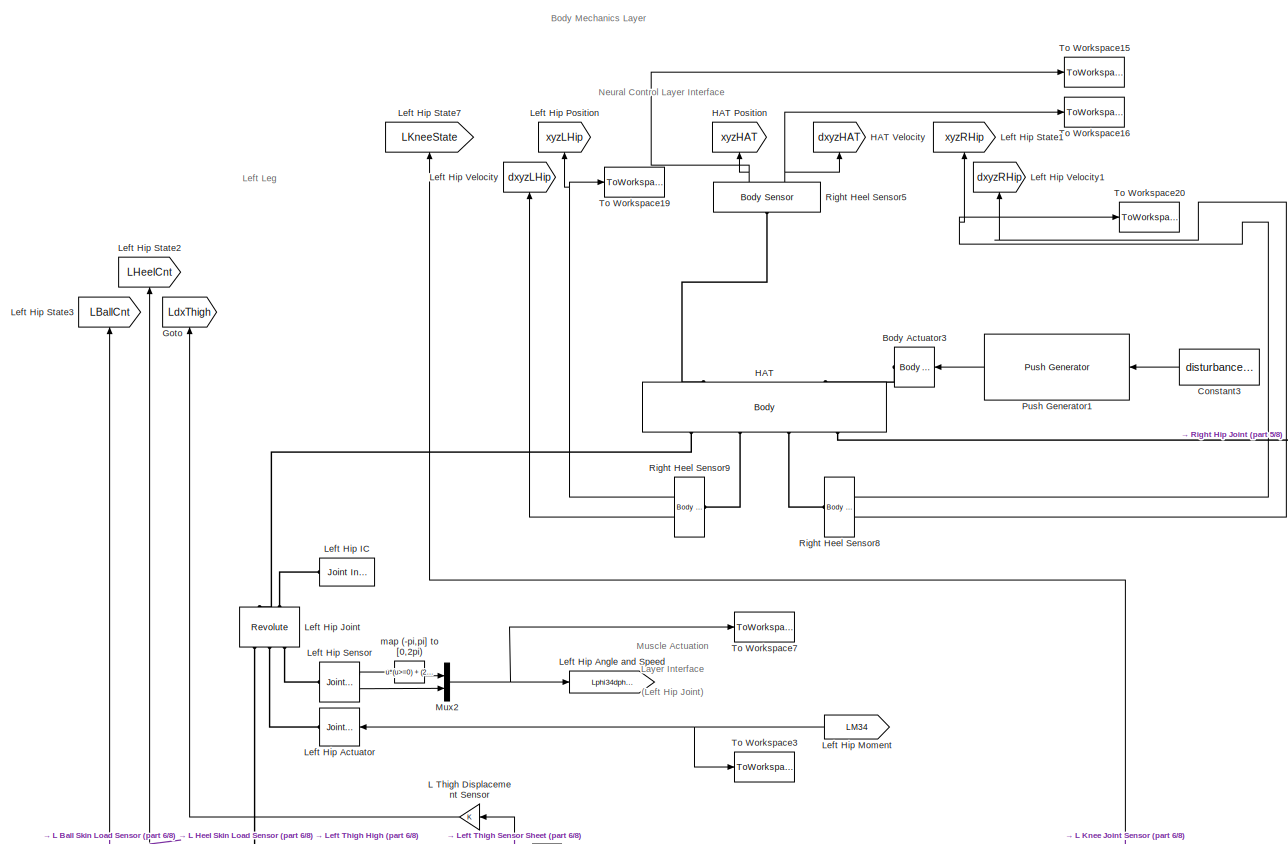
[diagram: Body Mechanics Layer - part 1/8, top left region]
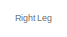
[diagram: Body Mechanics Layer - part 2/8, top center region]
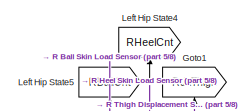
[diagram: Body Mechanics Layer - part 3/8, top center region]
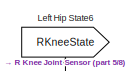
[diagram: Body Mechanics Layer - part 4/8, top right region]
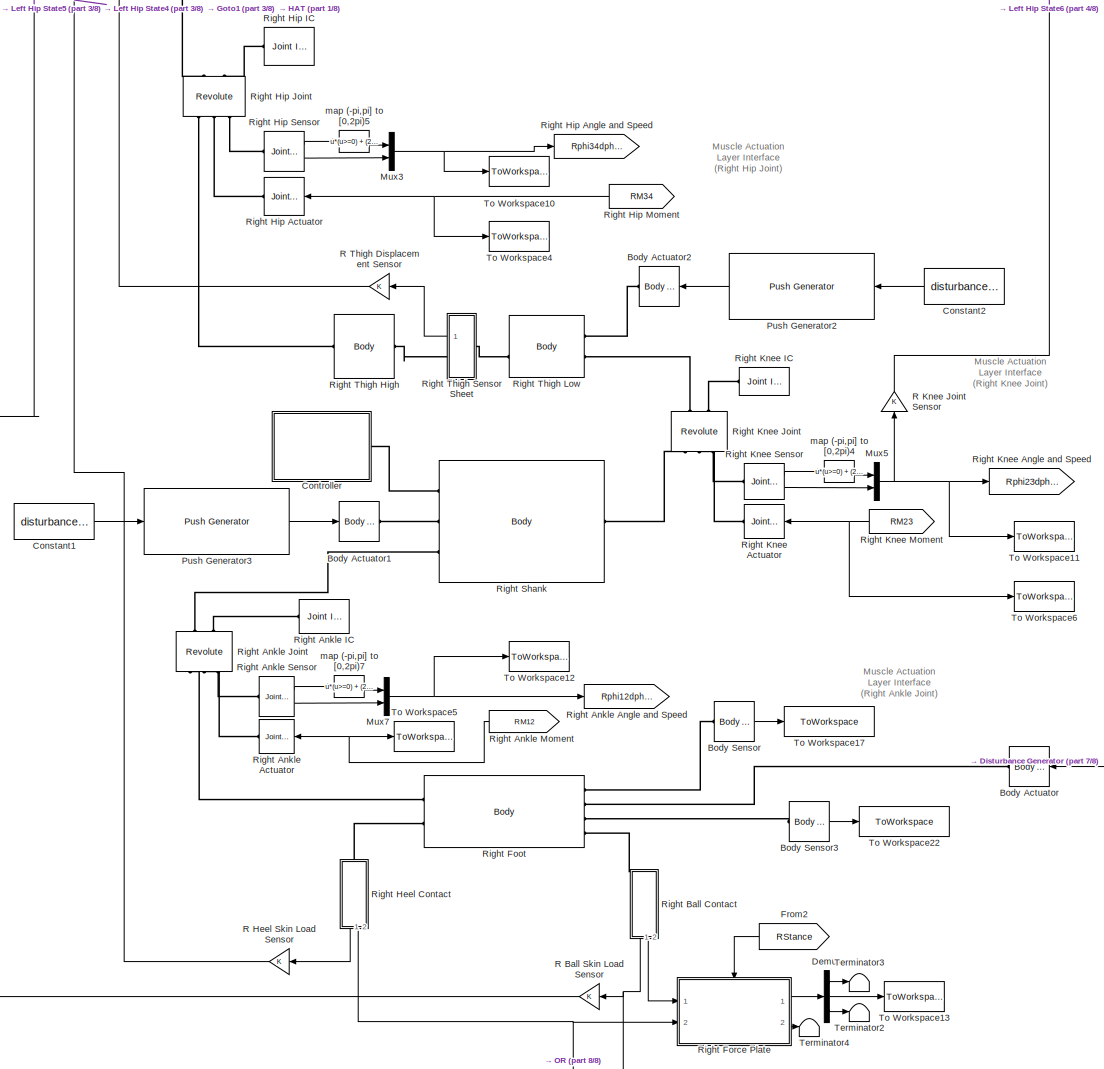
[diagram: Body Mechanics Layer - part 5/8, middle right region]
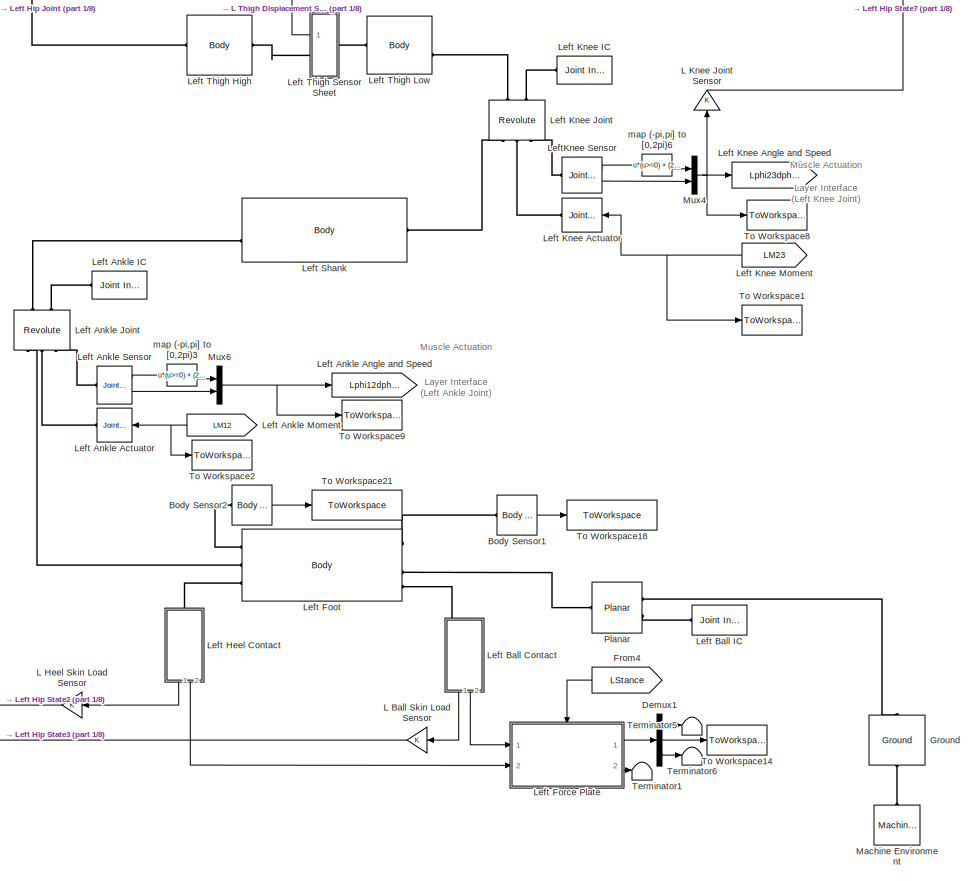
[diagram: Body Mechanics Layer - part 6/8, bottom left region]
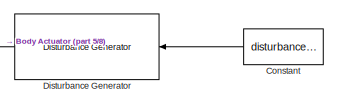
[diagram: Body Mechanics Layer - part 7/8, bottom right region]
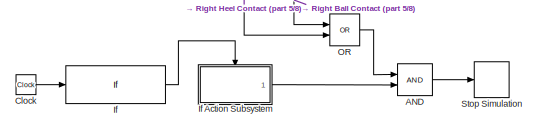
[diagram: Body Mechanics Layer - part 8/8, bottom right region]
BLOCK [SubSystem] Body Mechanics Layer
  Ports = []
  RequestExecContextInheritance = off
BLOCK [Logic] Body Mechanics Layer/AND
  AllPortsSameDT = off
  IconShape = distinctive
  OutDataTypeStr = boolean
  Ports = [2, 1]
BLOCK [Reference] Body Mechanics Layer/Body Actuator  REF=mblibv1/Sensors & 
Actuators/Body Actuator
  Commented = on
  Ports = [1, 0, 0, 0, 0, 0, 1]
  SourceBlock = mblibv1/Sensors & \nActuators/Body Actuator
  SourceProductBaseCode = MS
  SourceProductName = Simscape Multibody
  SourceType = Body Actuator
BLOCK [Reference] Body Mechanics Layer/Body Actuator1  REF=mblibv1/Sensors & 
Actuators/Body Actuator
  Ports = [1, 0, 0, 0, 0, 0, 1]
  SourceBlock = mblibv1/Sensors & \nActuators/Body Actuator
  SourceProductBaseCode = MS
  SourceProductName = Simscape Multibody
  SourceType = Body Actuator
BLOCK [Reference] Body Mechanics Layer/Body Actuator2  REF=mblibv1/Sensors & 
Actuators/Body Actuator
  Ports = [1, 0, 0, 0, 0, 0, 1]
  SourceBlock = mblibv1/Sensors & \nActuators/Body Actuator
  SourceProductBaseCode = MS
  SourceProductName = Simscape Multibody
  SourceType = Body Actuator
BLOCK [Reference] Body Mechanics Layer/Body Actuator3  REF=mblibv1/Sensors & 
Actuators/Body Actuator
  Ports = [1, 0, 0, 0, 0, 0, 1]
  SourceBlock = mblibv1/Sensors & \nActuators/Body Actuator
  SourceProductBaseCode = MS
  SourceProductName = Simscape Multibody
  SourceType = Body Actuator
BLOCK [Reference] Body Mechanics Layer/Body Sensor  REF=mblibv1/Sensors & 
Actuators/Body Sensor
  Ports = [0, 1, 0, 0, 0, 1]
  SourceBlock = mblibv1/Sensors & \nActuators/Body Sensor
  SourceProductBaseCode = MS
  SourceProductName = Simscape Multibody
  SourceType = Body Sensor
BLOCK [Reference] Body Mechanics Layer/Body Sensor1  REF=mblibv1/Sensors & 
Actuators/Body Sensor
  Ports = [0, 1, 0, 0, 0, 1]
  SourceBlock = mblibv1/Sensors & \nActuators/Body Sensor
  SourceProductBaseCode = MS
  SourceProductName = Simscape Multibody
  SourceType = Body Sensor
BLOCK [Reference] Body Mechanics Layer/Body Sensor2  REF=mblibv1/Sensors & 
Actuators/Body Sensor
  Ports = [0, 1, 0, 0, 0, 1]
  SourceBlock = mblibv1/Sensors & \nActuators/Body Sensor
  SourceProductBaseCode = MS
  SourceProductName = Simscape Multibody
  SourceType = Body Sensor
BLOCK [Reference] Body Mechanics Layer/Body Sensor3  REF=mblibv1/Sensors & 
Actuators/Body Sensor
  Ports = [0, 1, 0, 0, 0, 1]
  SourceBlock = mblibv1/Sensors & \nActuators/Body Sensor
  SourceProductBaseCode = MS
  SourceProductName = Simscape Multibody
  SourceType = Body Sensor
BLOCK [Clock] Body Mechanics Layer/Clock
BLOCK [Constant] Body Mechanics Layer/Constant
  Commented = on
  Value = disturbances(7)
BLOCK [Constant] Body Mechanics Layer/Constant1
  Value = disturbances(6)
BLOCK [Constant] Body Mechanics Layer/Constant2
  Value = disturbances(5)
BLOCK [Constant] Body Mechanics Layer/Constant3
  Value = disturbances(4)
BLOCK [SubSystem] Body Mechanics Layer/Controller 
  Ports = [0, 0, 0, 0, 0, 0, 1]
  RequestExecContextInheritance = off
BLOCK [Reference] Body Mechanics Layer/Controller /Body Actuator  REF=mblibv1/Sensors & 
Actuators/Body Actuator
  Ports = [1, 0, 0, 0, 0, 0, 1]
  SourceBlock = mblibv1/Sensors & \nActuators/Body Actuator
  SourceProductBaseCode = MS
  SourceProductName = Simscape Multibody
  SourceType = Body Actuator
BLOCK [Clock] Body Mechanics Layer/Controller /Clock
BLOCK [Constant] Body Mechanics Layer/Controller /Constant
  Value = 0
BLOCK [Constant] Body Mechanics Layer/Controller /Constant1
  Value = uConstant
BLOCK [Constant] Body Mechanics Layer/Controller /Constant2
  Value = 0
BLOCK [If] Body Mechanics Layer/Controller /If
  IfExpression = u1 > controlStart
  Ports = [1, 2]
BLOCK [SubSystem] Body Mechanics Layer/Controller /If Action Subsystem
  Ports = [1, 1, 0, 0, 0, 0, 0, 1]
  RequestExecContextInheritance = off
  TreatAsAtomicUnit = on
BLOCK [ActionPort] Body Mechanics Layer/Controller /If Action Subsystem/Action Port
  ActionPortLabel = if(u1 > controlStart )
BLOCK [Inport] Body Mechanics Layer/Controller /If Action Subsystem/Inport
  IconDisplay = Port number
BLOCK [Outport] Body Mechanics Layer/Controller /If Action Subsystem/Out1
  IconDisplay = Port number
  VectorParamsAs1DForOutWhenUnconnected = on
BLOCK [SubSystem] Body Mechanics Layer/Controller /If Action Subsystem1
  Ports = [1, 1, 0, 0, 0, 0, 0, 1]
  RequestExecContextInheritance = off
  TreatAsAtomicUnit = on
BLOCK [ActionPort] Body Mechanics Layer/Controller /If Action Subsystem1/Action Port
  ActionPortLabel = else
BLOCK [Inport] Body Mechanics Layer/Controller /If Action Subsystem1/Inport
  IconDisplay = Port number
BLOCK [Outport] Body Mechanics Layer/Controller /If Action Subsystem1/Out1
  IconDisplay = Port number
  VectorParamsAs1DForOutWhenUnconnected = on
BLOCK [Merge] Body Mechanics Layer/Controller /Merge
  Ports = [2, 1]
BLOCK [Mux] Body Mechanics Layer/Controller /Mux
  DisplayOption = bar
  Inputs = 3
  Ports = [3, 1]
BLOCK [Mux] Body Mechanics Layer/Controller /Mux1
  DisplayOption = bar
  Inputs = 3
  Ports = [3, 1]
BLOCK [Scope] Body Mechanics Layer/Controller /Scope
  Floating = off
  NumInputPorts = 1
  Ports = [1]
  ScopeSpecificationString = Simulink.scopes.TimeScopeBlockCfg('CurrentConfiguration', extmgr.ConfigurationSet(extmgr.Configuration('Core','General UI',true),extmgr.Configuration('Core','Source UI',true),extmgr.Configuration('Sources','WiredSimulink',true,'DataLoggingVariableName','ScopeData2'),extmgr.Configuration('Visuals','Time Domain',true,'SerializedDisplays',{struct('MinYLimReal','-1.00000','MaxYLimReal','1.00000','YLab...<+1386ch>
BLOCK [PMIOPort] Body Mechanics Layer/Controller /Torque
  Side = Right
BLOCK [Demux] Body Mechanics Layer/Demux
  DisplayOption = bar
  Outputs = 3
  Ports = [1, 3]
BLOCK [Demux] Body Mechanics Layer/Demux1
  DisplayOption = bar
  Outputs = 3
  Ports = [1, 3]
BLOCK [Reference] Body Mechanics Layer/Disturbance Generator  REF=myLibrary/Disturbance Generator
  Commented = on
  Ports = [1, 1]
  SourceBlock = myLibrary/Disturbance Generator
  SourceType = SubSystem
BLOCK [From] Body Mechanics Layer/From2
  CloseFcn = tagdialog Close
  GotoTag = RStance
  TagVisibility = global
BLOCK [From] Body Mechanics Layer/From4
  CloseFcn = tagdialog Close
  GotoTag = LStance
  TagVisibility = global
BLOCK [Goto] Body Mechanics Layer/Goto
  GotoTag = LdxThigh
  TagVisibility = global
BLOCK [Goto] Body Mechanics Layer/Goto1
  GotoTag = RdxThigh
  TagVisibility = global
BLOCK [Reference] Body Mechanics Layer/Ground  REF=mblibv1/Bodies/Ground
  Ports = [0, 0, 0, 0, 0, 1, 1]
  SourceBlock = mblibv1/Bodies/Ground
  SourceProductBaseCode = MS
  SourceProductName = Simscape Multibody
  SourceType = Ground
  UserDataPersistent = on
BLOCK [Reference] Body Mechanics Layer/HAT  REF=mblibv1/Bodies/Body
  Ports = [0, 0, 0, 0, 0, 3, 4]
  SourceBlock = mblibv1/Bodies/Body
  SourceProductBaseCode = MS
  SourceProductName = Simscape Multibody
  SourceType = Body
BLOCK [Goto] Body Mechanics Layer/HAT Position
  GotoTag = xyzHAT
  TagVisibility = global
BLOCK [Goto] Body Mechanics Layer/HAT Velocity
  GotoTag = dxyzHAT
  TagVisibility = global
BLOCK [If] Body Mechanics Layer/If
  IfExpression = u1 > 2.3
  Ports = [1, 1]
  ShowElse = off
BLOCK [SubSystem] Body Mechanics Layer/If Action Subsystem
  Ports = [0, 1, 0, 0, 0, 0, 0, 1]
  RequestExecContextInheritance = off
  TreatAsAtomicUnit = on
BLOCK [ActionPort] Body Mechanics Layer/If Action Subsystem/Action Port
  ActionPortLabel = if(u1 > 2.3)
BLOCK [Constant] Body Mechanics Layer/If Action Subsystem/Constant
BLOCK [Outport] Body Mechanics Layer/If Action Subsystem/Out1
  IconDisplay = Port number
  InitialOutput = 0
  VectorParamsAs1DForOutWhenUnconnected = on
BLOCK [Gain] Body Mechanics Layer/L Ball Skin Load Sensor
  OutDataTypeStr = Inherit: Inherit via internal rule
  ParamDataTypeStr = Inherit: Inherit via internal rule
  SaturateOnIntegerOverflow = off
BLOCK [Gain] Body Mechanics Layer/L Heel Skin Load Sensor
  OutDataTypeStr = Inherit: Inherit via internal rule
  ParamDataTypeStr = Inherit: Inherit via internal rule
  SaturateOnIntegerOverflow = off
BLOCK [Gain] Body Mechanics Layer/L Knee Joint Sensor
  OutDataTypeStr = Inherit: Inherit via internal rule
  ParamDataTypeStr = Inherit: Inherit via internal rule
  SaturateOnIntegerOverflow = off
BLOCK [Gain] Body Mechanics Layer/L Thigh Displacement  Sensor
  OutDataTypeStr = Inherit: Inherit via internal rule
  ParamDataTypeStr = Inherit: Inherit via internal rule
  SaturateOnIntegerOverflow = off
BLOCK [Reference] Body Mechanics Layer/Left Ankle Actuator  REF=mblibv1/Sensors & 
Actuators/Joint Actuator
  Ports = [1, 0, 0, 0, 0, 0, 1]
  SourceBlock = mblibv1/Sensors & \nActuators/Joint Actuator
  SourceProductBaseCode = MS
  SourceProductName = Simscape Multibody
  SourceType = Joint Actuator
BLOCK [Goto] Body Mechanics Layer/Left Ankle Angle and Speed
  GotoTag = Lphi12dphi12
  TagVisibility = global
BLOCK [Reference] Body Mechanics Layer/Left Ankle IC  REF=mblibv1/Sensors & 
Actuators/Joint Initial Condition
  Ports = [0, 0, 0, 0, 0, 0, 1]
  SourceBlock = mblibv1/Sensors & \nActuators/Joint Initial Condition
  SourceProductBaseCode = MS
  SourceProductName = Simscape Multibody
  SourceType = Joint Initial Condition
BLOCK [Reference] Body Mechanics Layer/Left Ankle Joint  REF=mblibv1/Joints/Revolute
  Ports = [0, 0, 0, 0, 0, 3, 2]
  SourceBlock = mblibv1/Joints/Revolute
  SourceProductBaseCode = MS
  SourceProductName = Simscape Multibody
  SourceType = Revolute
BLOCK [From] Body Mechanics Layer/Left Ankle Moment
  CloseFcn = tagdialog Close
  GotoTag = LM12
  TagVisibility = global
BLOCK [Reference] Body Mechanics Layer/Left Ankle Sensor  REF=mblibv1/Sensors & 
Actuators/Joint Sensor
  Ports = [0, 2, 0, 0, 0, 1]
  SourceBlock = mblibv1/Sensors & \nActuators/Joint Sensor
  SourceProductBaseCode = MS
  SourceProductName = Simscape Multibody
  SourceType = Joint Sensor
BLOCK [SubSystem] Body Mechanics Layer/Left Ball Contact
  Ports = [0, 2, 0, 0, 0, 1]
  RequestExecContextInheritance = off
BLOCK [Reference] Body Mechanics Layer/Left Ball Contact/Body Actuator  REF=mblibv1/Sensors & 
Actuators/Body Actuator
  Ports = [1, 0, 0, 0, 0, 0, 1]
  SourceBlock = mblibv1/Sensors & \nActuators/Body Actuator
  SourceProductBaseCode = MS
  SourceProductName = Simscape Multibody
  SourceType = Body Actuator
BLOCK [Reference] Body Mechanics Layer/Left Ball Contact/Body Sensor  REF=mblibv1/Sensors & 
Actuators/Body Sensor
  Ports = [0, 1, 0, 0, 0, 1]
  SourceBlock = mblibv1/Sensors & \nActuators/Body Sensor
  SourceProductBaseCode = MS
  SourceProductName = Simscape Multibody
  SourceType = Body Sensor
BLOCK [Demux] Body Mechanics Layer/Left Ball Contact/Demux1
  DisplayOption = bar
  Ports = [1, 4]
BLOCK [PMIOPort] Body Mechanics Layer/Left Ball Contact/F
  Side = Left
BLOCK [Outport] Body Mechanics Layer/Left Ball Contact/GRF [N N]
  IconDisplay = Port number
  Port = 2
  VectorParamsAs1DForOutWhenUnconnected = on
BLOCK [SubSystem] Body Mechanics Layer/Left Ball Contact/Ground Friction Model
  Ports = [4, 3, 1]
  RequestExecContextInheritance = off
BLOCK [EnablePort] Body Mechanics Layer/Left Ball Contact/Ground Friction Model/Contact!
  Ports = []
  StatesWhenEnabling = reset
BLOCK [DataTypeConversion] Body Mechanics Layer/Left Ball Contact/Ground Friction Model/Data Type Conversion
  OutDataTypeStr = double
  RndMeth = Floor
  SaturateOnIntegerOverflow = off
BLOCK [SubSystem] Body Mechanics Layer/Left Ball Contact/Ground Friction Model/Friction Switch
  Ports = [2, 1]
  RequestExecContextInheritance = off
BLOCK [Memory] Body Mechanics Layer/Left Ball Contact/Ground Friction Model/Friction Switch/Memory
BLOCK [Reference] Body Mechanics Layer/Left Ball Contact/Ground Friction Model/Friction Switch/S-R Flip-Flop  REF=simulink_extras/Flip Flops/S-R
Flip-Flop
  Ports = [2, 2]
  SourceBlock = simulink_extras/Flip Flops/S-R\nFlip-Flop
  SourceProductBaseCode = SL
  SourceProductName = Simulink
  SourceType = SRFlipFlop
BLOCK [Inport] Body Mechanics Layer/Left Ball Contact/Ground Friction Model/Friction Switch/Slide!
  IconDisplay = Port number
BLOCK [Inport] Body Mechanics Layer/Left Ball Contact/Ground Friction Model/Friction Switch/Stick!
  IconDisplay = Port number
  Port = 2
BLOCK [Outport] Body Mechanics Layer/Left Ball Contact/Ground Friction Model/Friction Switch/Stiction
  IconDisplay = Port number
  VectorParamsAs1DForOutWhenUnconnected = on
BLOCK [Terminator] Body Mechanics Layer/Left Ball Contact/Ground Friction Model/Friction Switch/Terminator
BLOCK [Outport] Body Mechanics Layer/Left Ball Contact/Ground Friction Model/Fx_Friction [N]
  AttributesFormatString = initial = '%<InitialOutput>'\nwhen\ndisabled\n'%<OutputWhenDisabled>'
  IconDisplay = Port number
  InitialOutput = 0
  OutputWhenDisabled = reset
  Port = 2
  VectorParamsAs1DForOutWhenUnconnected = on
BLOCK [Outport] Body Mechanics Layer/Left Ball Contact/Ground Friction Model/Fy_Ground[N]
  AttributesFormatString = initial = '%<InitialOutput>'\nwhen disabled = '%<OutputWhenDisabled>'
  IconDisplay = Port number
  InitialOutput = 0
  OutputWhenDisabled = reset
  VectorParamsAs1DForOutWhenUnconnected = on
BLOCK [Gain] Body Mechanics Layer/Left Ball Contact/Ground Friction Model/Gain3
  Gain = k_gy
  OutDataTypeStr = Inherit: Inherit via internal rule
  ParamDataTypeStr = Inherit: Inherit via internal rule
  SaturateOnIntegerOverflow = off
BLOCK [Gain] Body Mechanics Layer/Left Ball Contact/Ground Friction Model/Gain4
  Gain = 1/v_gy_max
  OutDataTypeStr = Inherit: Inherit via internal rule
  ParamDataTypeStr = Inherit: Inherit via internal rule
  SaturateOnIntegerOverflow = off
BLOCK [Logic] Body Mechanics Layer/Left Ball Contact/Ground Friction Model/Logical Operator
  AllPortsSameDT = off
  Operator = NOT
  OutDataTypeStr = boolean
  Ports = [1, 1]
BLOCK [Mux] Body Mechanics Layer/Left Ball Contact/Ground Friction Model/Mux1
  DisplayOption = bar
  Inputs = 2
  Ports = [2, 1]
BLOCK [Outport] Body Mechanics Layer/Left Ball Contact/Ground Friction Model/Stiction!
  AttributesFormatString = initial = '%<InitialOutput>'\nwhen\ndisabled\n'%<OutputWhenDisabled>'
  IconDisplay = Port number
  InitialOutput = 0
  OutputWhenDisabled = reset
  Port = 3
  VectorParamsAs1DForOutWhenUnconnected = on
BLOCK [Sum] Body Mechanics Layer/Left Ball Contact/Ground Friction Model/Sum1
  IconShape = round
  InputSameDT = off
  OutDataTypeStr = Inherit: Inherit via internal rule
  Ports = [2, 1]
  SaturateOnIntegerOverflow = off
BLOCK [SubSystem] Body Mechanics Layer/Left Ball Contact/Ground Friction Model/X-Axis Kinetic Friction Model
  Ports = [3, 3, 1]
  RequestExecContextInheritance = off
BLOCK [Abs] Body Mechanics Layer/Left Ball Contact/Ground Friction Model/X-Axis Kinetic Friction Model/Abs
  SaturateOnIntegerOverflow = off
BLOCK [Constant] Body Mechanics Layer/Left Ball Contact/Ground Friction Model/X-Axis Kinetic Friction Model/Constant
  Value = vLimit
BLOCK [EnablePort] Body Mechanics Layer/Left Ball Contact/Ground Friction Model/X-Axis Kinetic Friction Model/Enable
  Ports = []
  StatesWhenEnabling = reset
  ZeroCross = off
BLOCK [Inport] Body Mechanics Layer/Left Ball Contact/Ground Friction Model/X-Axis Kinetic Friction Model/F_Normal [N]
  IconDisplay = Port number
  Port = 3
BLOCK [Outport] Body Mechanics Layer/Left Ball Contact/Ground Friction Model/X-Axis Kinetic Friction Model/F_Slide [N]
  AttributesFormatString = initial = '%<InitialOutput>'\nwhen disabled = '%<OutputWhenDisabled>'
  IconDisplay = Port number
  InitialOutput = 0
  OutputWhenDisabled = reset
  Port = 3
  VectorParamsAs1DForOutWhenUnconnected = on
BLOCK [RelationalOperator] Body Mechanics Layer/Left Ball Contact/Ground Friction Model/X-Axis Kinetic Friction Model/FixPt Relational Operator
  InputSameDT = off
  Operator = >
  OutDataTypeStr = boolean
  Ports = [2, 1]
  ZeroCross = off
BLOCK [Memory] Body Mechanics Layer/Left Ball Contact/Ground Friction Model/X-Axis Kinetic Friction Model/Memory
BLOCK [Reference] Body Mechanics Layer/Left Ball Contact/Ground Friction Model/X-Axis Kinetic Friction Model/Negative  REF=simulink/Logic and Bit
Operations/Compare
To Zero
  Ports = [1, 1]
  SourceBlock = simulink/Logic and Bit\nOperations/Compare\nTo Zero
  SourceProductBaseCode = SL
  SourceProductName = Simulink
  SourceType = Compare To Zero
BLOCK [Product] Body Mechanics Layer/Left Ball Contact/Ground Friction Model/X-Axis Kinetic Friction Model/Product
  InputSameDT = off
  OutDataTypeStr = Inherit: Inherit via internal rule
  Ports = [2, 1]
  SaturateOnIntegerOverflow = off
BLOCK [Signum] Body Mechanics Layer/Left Ball Contact/Ground Friction Model/X-Axis Kinetic Friction Model/Sign1
BLOCK [Outport] Body Mechanics Layer/Left Ball Contact/Ground Friction Model/X-Axis Kinetic Friction Model/Stiction!
  AttributesFormatString = initial = '%<InitialOutput>'\nwhen disabled = '%<OutputWhenDisabled>'
  IconDisplay = Port number
  InitialOutput = 0
  OutputWhenDisabled = reset
  Port = 2
  VectorParamsAs1DForOutWhenUnconnected = on
BLOCK [Sum] Body Mechanics Layer/Left Ball Contact/Ground Friction Model/X-Axis Kinetic Friction Model/Sum
  IconShape = round
  InputSameDT = off
  Inputs = |+-
  OutDataTypeStr = Inherit: Inherit via internal rule
  Ports = [2, 1]
  SaturateOnIntegerOverflow = off
BLOCK [Inport] Body Mechanics Layer/Left Ball Contact/Ground Friction Model/X-Axis Kinetic Friction Model/pos [m]
  IconDisplay = Port number
BLOCK [Outport] Body Mechanics Layer/Left Ball Contact/Ground Friction Model/X-Axis Kinetic Friction Model/posFP [m]
  AttributesFormatString = initial = '%<InitialOutput>'\nwhen disabled = '%<OutputWhenDisabled>'
  IconDisplay = Port number
  InitialOutput = 0
  VectorParamsAs1DForOutWhenUnconnected = on
BLOCK [Gain] Body Mechanics Layer/Left Ball Contact/Ground Friction Model/X-Axis Kinetic Friction Model/reverse
  Gain = -1
  OutDataTypeStr = Inherit: Inherit via internal rule
  ParamDataTypeStr = Inherit: Inherit via internal rule
  SaturateOnIntegerOverflow = off
BLOCK [Gain] Body Mechanics Layer/Left Ball Contact/Ground Friction Model/X-Axis Kinetic Friction Model/sliding friction coefficient
  Gain = mu_slide
  OutDataTypeStr = Inherit: Inherit via internal rule
  ParamDataTypeStr = Inherit: Inherit via internal rule
  SaturateOnIntegerOverflow = off
BLOCK [Inport] Body Mechanics Layer/Left Ball Contact/Ground Friction Model/X-Axis Kinetic Friction Model/vel [m//s]
  IconDisplay = Port number
  Port = 2
BLOCK [SubSystem] Body Mechanics Layer/Left Ball Contact/Ground Friction Model/X-Axis Static Friction Model
  Ports = [4, 2, 1]
  RequestExecContextInheritance = off
BLOCK [Abs] Body Mechanics Layer/Left Ball Contact/Ground Friction Model/X-Axis Static Friction Model/Abs
  SaturateOnIntegerOverflow = off
BLOCK [Abs] Body Mechanics Layer/Left Ball Contact/Ground Friction Model/X-Axis Static Friction Model/Abs.
  SaturateOnIntegerOverflow = off
BLOCK [Product] Body Mechanics Layer/Left Ball Contact/Ground Friction Model/X-Axis Static Friction Model/Check Vertical Friction
  InputSameDT = off
  OutDataTypeStr = Inherit: Inherit via internal rule
  Ports = [2, 1]
  SaturateOnIntegerOverflow = off
BLOCK [EnablePort] Body Mechanics Layer/Left Ball Contact/Ground Friction Model/X-Axis Static Friction Model/Enable
  Ports = []
  StatesWhenEnabling = reset
  ZeroCross = off
BLOCK [Inport] Body Mechanics Layer/Left Ball Contact/Ground Friction Model/X-Axis Static Friction Model/F_Normal [N]
  IconDisplay = Port number
BLOCK [Outport] Body Mechanics Layer/Left Ball Contact/Ground Friction Model/X-Axis Static Friction Model/F_Stick [N]
  AttributesFormatString = when disabled: %<OutputWhenDisabled>\ninitial: %<InitialOutput>
  IconDisplay = Port number
  InitialOutput = 0
  OutputWhenDisabled = reset
  VectorParamsAs1DForOutWhenUnconnected = on
BLOCK [RelationalOperator] Body Mechanics Layer/Left Ball Contact/Ground Friction Model/X-Axis Static Friction Model/FixPt Relational Operator
  InputSameDT = off
  Operator = >
  OutDataTypeStr = boolean
  Ports = [2, 1]
  ZeroCross = off
BLOCK [Gain] Body Mechanics Layer/Left Ball Contact/Ground Friction Model/X-Axis Static Friction Model/Gain3
  Gain = k_gx
  OutDataTypeStr = Inherit: Inherit via internal rule
  ParamDataTypeStr = Inherit: Inherit via internal rule
  SaturateOnIntegerOverflow = off
BLOCK [Gain] Body Mechanics Layer/Left Ball Contact/Ground Friction Model/X-Axis Static Friction Model/Gain4
  Gain = 1/v_gx_max
  OutDataTypeStr = Inherit: Inherit via internal rule
  ParamDataTypeStr = Inherit: Inherit via internal rule
  SaturateOnIntegerOverflow = off
BLOCK [Memory] Body Mechanics Layer/Left Ball Contact/Ground Friction Model/X-Axis Static Friction Model/Memory
BLOCK [Mux] Body Mechanics Layer/Left Ball Contact/Ground Friction Model/X-Axis Static Friction Model/Mux1
  DisplayOption = bar
  Inputs = 2
  Ports = [2, 1]
BLOCK [Reference] Body Mechanics Layer/Left Ball Contact/Ground Friction Model/X-Axis Static Friction Model/Positive  REF=simulink/Logic and Bit
Operations/Compare
To Zero
  Ports = [1, 1]
  SourceBlock = simulink/Logic and Bit\nOperations/Compare\nTo Zero
  SourceProductBaseCode = SL
  SourceProductName = Simulink
  SourceType = Compare To Zero
BLOCK [Reference] Body Mechanics Layer/Left Ball Contact/Ground Friction Model/X-Axis Static Friction Model/Positive1  REF=simulink/Logic and Bit
Operations/Compare
To Zero
  Ports = [1, 1]
  SourceBlock = simulink/Logic and Bit\nOperations/Compare\nTo Zero
  SourceProductBaseCode = SL
  SourceProductName = Simulink
  SourceType = Compare To Zero
BLOCK [Outport] Body Mechanics Layer/Left Ball Contact/Ground Friction Model/X-Axis Static Friction Model/Sliding!
  AttributesFormatString = when disabled: %<OutputWhenDisabled>\ninitial: %<InitialOutput>
  IconDisplay = Port number
  InitialOutput = 0
  OutputWhenDisabled = reset
  Port = 2
  VectorParamsAs1DForOutWhenUnconnected = on
BLOCK [Sum] Body Mechanics Layer/Left Ball Contact/Ground Friction Model/X-Axis Static Friction Model/Sum
  IconShape = round
  InputSameDT = off
  Inputs = -+
  OutDataTypeStr = Inherit: Inherit via internal rule
  Ports = [2, 1]
  SaturateOnIntegerOverflow = off
BLOCK [Sum] Body Mechanics Layer/Left Ball Contact/Ground Friction Model/X-Axis Static Friction Model/Sum2
  IconShape = round
  InputSameDT = off
  Inputs = -+|
  OutDataTypeStr = Inherit: Inherit via internal rule
  Ports = [2, 1]
  SaturateOnIntegerOverflow = off
BLOCK [Fcn] Body Mechanics Layer/Left Ball Contact/Ground Friction Model/X-Axis Static Friction Model/X-Axis Stiction Force
  Expr = -u(1) * (1+sgn(u(1))*u(2))
BLOCK [Inport] Body Mechanics Layer/Left Ball Contact/Ground Friction Model/X-Axis Static Friction Model/pos [m]
  IconDisplay = Port number
  Port = 2
BLOCK [Inport] Body Mechanics Layer/Left Ball Contact/Ground Friction Model/X-Axis Static Friction Model/posFP [m]
  IconDisplay = Port number
  Port = 4
BLOCK [Gain] Body Mechanics Layer/Left Ball Contact/Ground Friction Model/X-Axis Static Friction Model/stiction limit force
  Gain = mu_stick
  OutDataTypeStr = Inherit: Inherit via internal rule
  ParamDataTypeStr = Inherit: Inherit via internal rule
  SaturateOnIntegerOverflow = off
BLOCK [Inport] Body Mechanics Layer/Left Ball Contact/Ground Friction Model/X-Axis Static Friction Model/vel [m//s]
  IconDisplay = Port number
  Port = 3
BLOCK [Fcn] Body Mechanics Layer/Left Ball Contact/Ground Friction Model/Y-Axis Ground Force
  Expr = - u(1)  *  (1-u(2)) * (u(2)<1)
BLOCK [Inport] Body Mechanics Layer/Left Ball Contact/Ground Friction Model/dy [m]
  IconDisplay = Port number
BLOCK [Inport] Body Mechanics Layer/Left Ball Contact/Ground Friction Model/vx [m//s]
  IconDisplay = Port number
  Port = 4
BLOCK [Inport] Body Mechanics Layer/Left Ball Contact/Ground Friction Model/vy [m//s]
  IconDisplay = Port number
  Port = 2
BLOCK [Inport] Body Mechanics Layer/Left Ball Contact/Ground Friction Model/x [m]
  IconDisplay = Port number
  Port = 3
BLOCK [Ground] Body Mechanics Layer/Left Ball Contact/Ground1
BLOCK [Outport] Body Mechanics Layer/Left Ball Contact/LBallCnt
  IconDisplay = Port number
  VectorParamsAs1DForOutWhenUnconnected = on
BLOCK [Reference] Body Mechanics Layer/Left Ball Contact/Mechanical Branching Bar  REF=mblibv1/Utilities/Mechanical
Branching
Bar
  Ports = [0, 0, 0, 0, 0, 1, 2]
  SourceBlock = mblibv1/Utilities/Mechanical\nBranching\nBar
  SourceProductBaseCode = MS
  SourceProductName = Simscape Multibody
  SourceType = Mechanical Branching Bar
BLOCK [Mux] Body Mechanics Layer/Left Ball Contact/Mux
  DisplayOption = bar
  Inputs = 2
  Ports = [2, 1]
BLOCK [Mux] Body Mechanics Layer/Left Ball Contact/Mux1
  DisplayOption = bar
  Inputs = 3
  Ports = [3, 1]
BLOCK [Sum] Body Mechanics Layer/Left Ball Contact/Sum
  IconShape = round
  InputSameDT = off
  Inputs = -+|
  OutDataTypeStr = Inherit: Inherit via internal rule
  Ports = [2, 1]
  SaturateOnIntegerOverflow = off
BLOCK [Terminator] Body Mechanics Layer/Left Ball Contact/Terminator
BLOCK [Selector] Body Mechanics Layer/Left Ball Contact/[y y' x x']
  IndexOptions = Index vector (dialog)
  Indices = [2 5 1 4]
  InputPortWidth = 6
  OutputSizes = 1
  Ports = [1, 1]
BLOCK [Reference] Body Mechanics Layer/Left Ball Contact/contact?  REF=simulink/Logic and Bit
Operations/Compare
To Zero
  Ports = [1, 1]
  SourceBlock = simulink/Logic and Bit\nOperations/Compare\nTo Zero
  SourceProductBaseCode = SL
  SourceProductName = Simulink
  SourceType = Compare To Zero
BLOCK [Constant] Body Mechanics Layer/Left Ball Contact/yGround
  Value = 0
BLOCK [Reference] Body Mechanics Layer/Left Ball IC  REF=mblibv1/Sensors & 
Actuators/Joint Initial Condition
  Ports = [0, 0, 0, 0, 0, 0, 1]
  SourceBlock = mblibv1/Sensors & \nActuators/Joint Initial Condition
  SourceProductBaseCode = MS
  SourceProductName = Simscape Multibody
  SourceType = Joint Initial Condition
BLOCK [Reference] Body Mechanics Layer/Left Foot  REF=mblibv1/Bodies/Body
  Ports = [0, 0, 0, 0, 0, 4, 3]
  SourceBlock = mblibv1/Bodies/Body
  SourceProductBaseCode = MS
  SourceProductName = Simscape Multibody
  SourceType = Body
BLOCK [SubSystem] Body Mechanics Layer/Left Force Plate
  Ports = [2, 2, 1]
  RequestExecContextInheritance = off
  TreatAsAtomicUnit = on
BLOCK [Outport] Body Mechanics Layer/Left Force Plate/COP
  IconDisplay = Port number
  InitialOutput = 0
  OutputWhenDisabled = reset
  Port = 2
  VectorParamsAs1DForOutWhenUnconnected = on
BLOCK [EnablePort] Body Mechanics Layer/Left Force Plate/Enable
  Ports = []
  StatesWhenEnabling = reset
BLOCK [Fcn] Body Mechanics Layer/Left Force Plate/Fcn
  Expr = u(1)/(u(2)+eps)
BLOCK [Inport] Body Mechanics Layer/Left Force Plate/GRF_Ball [N N] 
  IconDisplay = Port number
BLOCK [Inport] Body Mechanics Layer/Left Force Plate/GRF_Heel [N N]
  IconDisplay = Port number
  Port = 2
BLOCK [Outport] Body Mechanics Layer/Left Force Plate/GRFs
  IconDisplay = Port number
  InitialOutput = 0
  OutputWhenDisabled = reset
  VectorParamsAs1DForOutWhenUnconnected = on
BLOCK [Mux] Body Mechanics Layer/Left Force Plate/Mux
  DisplayOption = bar
  Inputs = 3
  Ports = [3, 1]
BLOCK [Mux] Body Mechanics Layer/Left Force Plate/Mux1
  DisplayOption = bar
  Inputs = 2
  Ports = [2, 1]
BLOCK [Selector] Body Mechanics Layer/Left Force Plate/Selector
  IndexOptions = Index vector (dialog)
  Indices = 2
  InputPortWidth = 2
  OutputSizes = 1
  Ports = [1, 1]
BLOCK [Selector] Body Mechanics Layer/Left Force Plate/Selector1
  IndexOptions = Index vector (dialog)
  Indices = 2
  InputPortWidth = 2
  OutputSizes = 1
  Ports = [1, 1]
BLOCK [Sum] Body Mechanics Layer/Left Force Plate/Sum1
  IconShape = round
  InputSameDT = off
  OutDataTypeStr = Inherit: Inherit via internal rule
  Ports = [2, 1]
  SaturateOnIntegerOverflow = off
BLOCK [SubSystem] Body Mechanics Layer/Left Heel Contact
  Ports = [0, 2, 0, 0, 0, 1]
  RequestExecContextInheritance = off
BLOCK [Reference] Body Mechanics Layer/Left Heel Contact/Body Actuator  REF=mblibv1/Sensors & 
Actuators/Body Actuator
  Ports = [1, 0, 0, 0, 0, 0, 1]
  SourceBlock = mblibv1/Sensors & \nActuators/Body Actuator
  SourceProductBaseCode = MS
  SourceProductName = Simscape Multibody
  SourceType = Body Actuator
BLOCK [Reference] Body Mechanics Layer/Left Heel Contact/Body Sensor  REF=mblibv1/Sensors & 
Actuators/Body Sensor
  Ports = [0, 1, 0, 0, 0, 1]
  SourceBlock = mblibv1/Sensors & \nActuators/Body Sensor
  SourceProductBaseCode = MS
  SourceProductName = Simscape Multibody
  SourceType = Body Sensor
BLOCK [Demux] Body Mechanics Layer/Left Heel Contact/Demux1
  DisplayOption = bar
  Ports = [1, 4]
BLOCK [PMIOPort] Body Mechanics Layer/Left Heel Contact/F
  Side = Left
BLOCK [Outport] Body Mechanics Layer/Left Heel Contact/GRF [N N]
  IconDisplay = Port number
  Port = 2
  VectorParamsAs1DForOutWhenUnconnected = on
BLOCK [SubSystem] Body Mechanics Layer/Left Heel Contact/Ground Friction Model
  Ports = [4, 3, 1]
  RequestExecContextInheritance = off
BLOCK [EnablePort] Body Mechanics Layer/Left Heel Contact/Ground Friction Model/Contact!
  Ports = []
  StatesWhenEnabling = reset
BLOCK [DataTypeConversion] Body Mechanics Layer/Left Heel Contact/Ground Friction Model/Data Type Conversion
  OutDataTypeStr = double
  RndMeth = Floor
  SaturateOnIntegerOverflow = off
BLOCK [SubSystem] Body Mechanics Layer/Left Heel Contact/Ground Friction Model/Friction Switch
  Ports = [2, 1]
  RequestExecContextInheritance = off
BLOCK [Memory] Body Mechanics Layer/Left Heel Contact/Ground Friction Model/Friction Switch/Memory
BLOCK [Reference] Body Mechanics Layer/Left Heel Contact/Ground Friction Model/Friction Switch/S-R Flip-Flop  REF=simulink_extras/Flip Flops/S-R
Flip-Flop
  Ports = [2, 2]
  SourceBlock = simulink_extras/Flip Flops/S-R\nFlip-Flop
  SourceProductBaseCode = SL
  SourceProductName = Simulink
  SourceType = SRFlipFlop
BLOCK [Inport] Body Mechanics Layer/Left Heel Contact/Ground Friction Model/Friction Switch/Slide!
  IconDisplay = Port number
BLOCK [Inport] Body Mechanics Layer/Left Heel Contact/Ground Friction Model/Friction Switch/Stick!
  IconDisplay = Port number
  Port = 2
BLOCK [Outport] Body Mechanics Layer/Left Heel Contact/Ground Friction Model/Friction Switch/Stiction
  IconDisplay = Port number
  VectorParamsAs1DForOutWhenUnconnected = on
BLOCK [Terminator] Body Mechanics Layer/Left Heel Contact/Ground Friction Model/Friction Switch/Terminator
BLOCK [Outport] Body Mechanics Layer/Left Heel Contact/Ground Friction Model/Fx_Friction [N]
  AttributesFormatString = initial = '%<InitialOutput>'\nwhen\ndisabled\n'%<OutputWhenDisabled>'
  IconDisplay = Port number
  InitialOutput = 0
  OutputWhenDisabled = reset
  Port = 2
  VectorParamsAs1DForOutWhenUnconnected = on
BLOCK [Outport] Body Mechanics Layer/Left Heel Contact/Ground Friction Model/Fy_Ground[N]
  AttributesFormatString = initial = '%<InitialOutput>'\nwhen disabled = '%<OutputWhenDisabled>'
  IconDisplay = Port number
  InitialOutput = 0
  OutputWhenDisabled = reset
  VectorParamsAs1DForOutWhenUnconnected = on
BLOCK [Gain] Body Mechanics Layer/Left Heel Contact/Ground Friction Model/Gain3
  Gain = k_gy
  OutDataTypeStr = Inherit: Inherit via internal rule
  ParamDataTypeStr = Inherit: Inherit via internal rule
  SaturateOnIntegerOverflow = off
BLOCK [Gain] Body Mechanics Layer/Left Heel Contact/Ground Friction Model/Gain4
  Gain = 1/v_gy_max
  OutDataTypeStr = Inherit: Inherit via internal rule
  ParamDataTypeStr = Inherit: Inherit via internal rule
  SaturateOnIntegerOverflow = off
BLOCK [Logic] Body Mechanics Layer/Left Heel Contact/Ground Friction Model/Logical Operator
  AllPortsSameDT = off
  Operator = NOT
  OutDataTypeStr = boolean
  Ports = [1, 1]
BLOCK [Mux] Body Mechanics Layer/Left Heel Contact/Ground Friction Model/Mux1
  DisplayOption = bar
  Inputs = 2
  Ports = [2, 1]
BLOCK [Outport] Body Mechanics Layer/Left Heel Contact/Ground Friction Model/Stiction!
  AttributesFormatString = initial = '%<InitialOutput>'\nwhen\ndisabled\n'%<OutputWhenDisabled>'
  IconDisplay = Port number
  InitialOutput = 0
  OutputWhenDisabled = reset
  Port = 3
  VectorParamsAs1DForOutWhenUnconnected = on
BLOCK [Sum] Body Mechanics Layer/Left Heel Contact/Ground Friction Model/Sum1
  IconShape = round
  InputSameDT = off
  OutDataTypeStr = Inherit: Inherit via internal rule
  Ports = [2, 1]
  SaturateOnIntegerOverflow = off
BLOCK [SubSystem] Body Mechanics Layer/Left Heel Contact/Ground Friction Model/X-Axis Kinetic Friction Model
  Ports = [3, 3, 1]
  RequestExecContextInheritance = off
BLOCK [Abs] Body Mechanics Layer/Left Heel Contact/Ground Friction Model/X-Axis Kinetic Friction Model/Abs
  SaturateOnIntegerOverflow = off
BLOCK [Constant] Body Mechanics Layer/Left Heel Contact/Ground Friction Model/X-Axis Kinetic Friction Model/Constant
  Value = vLimit
BLOCK [EnablePort] Body Mechanics Layer/Left Heel Contact/Ground Friction Model/X-Axis Kinetic Friction Model/Enable
  Ports = []
  StatesWhenEnabling = reset
  ZeroCross = off
BLOCK [Inport] Body Mechanics Layer/Left Heel Contact/Ground Friction Model/X-Axis Kinetic Friction Model/F_Normal [N]
  IconDisplay = Port number
  Port = 3
BLOCK [Outport] Body Mechanics Layer/Left Heel Contact/Ground Friction Model/X-Axis Kinetic Friction Model/F_Slide [N]
  AttributesFormatString = initial = '%<InitialOutput>'\nwhen disabled = '%<OutputWhenDisabled>'
  IconDisplay = Port number
  InitialOutput = 0
  OutputWhenDisabled = reset
  Port = 3
  VectorParamsAs1DForOutWhenUnconnected = on
BLOCK [RelationalOperator] Body Mechanics Layer/Left Heel Contact/Ground Friction Model/X-Axis Kinetic Friction Model/FixPt Relational Operator
  InputSameDT = off
  Operator = >
  OutDataTypeStr = boolean
  Ports = [2, 1]
  ZeroCross = off
BLOCK [Memory] Body Mechanics Layer/Left Heel Contact/Ground Friction Model/X-Axis Kinetic Friction Model/Memory
BLOCK [Reference] Body Mechanics Layer/Left Heel Contact/Ground Friction Model/X-Axis Kinetic Friction Model/Negative  REF=simulink/Logic and Bit
Operations/Compare
To Zero
  Ports = [1, 1]
  SourceBlock = simulink/Logic and Bit\nOperations/Compare\nTo Zero
  SourceProductBaseCode = SL
  SourceProductName = Simulink
  SourceType = Compare To Zero
BLOCK [Product] Body Mechanics Layer/Left Heel Contact/Ground Friction Model/X-Axis Kinetic Friction Model/Product
  InputSameDT = off
  OutDataTypeStr = Inherit: Inherit via internal rule
  Ports = [2, 1]
  SaturateOnIntegerOverflow = off
BLOCK [Signum] Body Mechanics Layer/Left Heel Contact/Ground Friction Model/X-Axis Kinetic Friction Model/Sign1
BLOCK [Outport] Body Mechanics Layer/Left Heel Contact/Ground Friction Model/X-Axis Kinetic Friction Model/Stiction!
  AttributesFormatString = initial = '%<InitialOutput>'\nwhen disabled = '%<OutputWhenDisabled>'
  IconDisplay = Port number
  InitialOutput = 0
  OutputWhenDisabled = reset
  Port = 2
  VectorParamsAs1DForOutWhenUnconnected = on
BLOCK [Sum] Body Mechanics Layer/Left Heel Contact/Ground Friction Model/X-Axis Kinetic Friction Model/Sum
  IconShape = round
  InputSameDT = off
  Inputs = |+-
  OutDataTypeStr = Inherit: Inherit via internal rule
  Ports = [2, 1]
  SaturateOnIntegerOverflow = off
BLOCK [Inport] Body Mechanics Layer/Left Heel Contact/Ground Friction Model/X-Axis Kinetic Friction Model/pos [m]
  IconDisplay = Port number
BLOCK [Outport] Body Mechanics Layer/Left Heel Contact/Ground Friction Model/X-Axis Kinetic Friction Model/posFP [m]
  AttributesFormatString = initial = '%<InitialOutput>'\nwhen disabled = '%<OutputWhenDisabled>'
  IconDisplay = Port number
  InitialOutput = 0
  VectorParamsAs1DForOutWhenUnconnected = on
BLOCK [Gain] Body Mechanics Layer/Left Heel Contact/Ground Friction Model/X-Axis Kinetic Friction Model/reverse
  Gain = -1
  OutDataTypeStr = Inherit: Inherit via internal rule
  ParamDataTypeStr = Inherit: Inherit via internal rule
  SaturateOnIntegerOverflow = off
BLOCK [Gain] Body Mechanics Layer/Left Heel Contact/Ground Friction Model/X-Axis Kinetic Friction Model/sliding friction coefficient
  Gain = mu_slide
  OutDataTypeStr = Inherit: Inherit via internal rule
  ParamDataTypeStr = Inherit: Inherit via internal rule
  SaturateOnIntegerOverflow = off
BLOCK [Inport] Body Mechanics Layer/Left Heel Contact/Ground Friction Model/X-Axis Kinetic Friction Model/vel [m//s]
  IconDisplay = Port number
  Port = 2
BLOCK [SubSystem] Body Mechanics Layer/Left Heel Contact/Ground Friction Model/X-Axis Static Friction Model
  Ports = [4, 2, 1]
  RequestExecContextInheritance = off
BLOCK [Abs] Body Mechanics Layer/Left Heel Contact/Ground Friction Model/X-Axis Static Friction Model/Abs
  SaturateOnIntegerOverflow = off
BLOCK [Abs] Body Mechanics Layer/Left Heel Contact/Ground Friction Model/X-Axis Static Friction Model/Abs.
  SaturateOnIntegerOverflow = off
BLOCK [Product] Body Mechanics Layer/Left Heel Contact/Ground Friction Model/X-Axis Static Friction Model/Check Vertical Friction
  InputSameDT = off
  OutDataTypeStr = Inherit: Inherit via internal rule
  Ports = [2, 1]
  SaturateOnIntegerOverflow = off
BLOCK [EnablePort] Body Mechanics Layer/Left Heel Contact/Ground Friction Model/X-Axis Static Friction Model/Enable
  Ports = []
  StatesWhenEnabling = reset
  ZeroCross = off
BLOCK [Inport] Body Mechanics Layer/Left Heel Contact/Ground Friction Model/X-Axis Static Friction Model/F_Normal [N]
  IconDisplay = Port number
BLOCK [Outport] Body Mechanics Layer/Left Heel Contact/Ground Friction Model/X-Axis Static Friction Model/F_Stick [N]
  AttributesFormatString = when disabled: %<OutputWhenDisabled>\ninitial: %<InitialOutput>
  IconDisplay = Port number
  InitialOutput = 0
  OutputWhenDisabled = reset
  VectorParamsAs1DForOutWhenUnconnected = on
BLOCK [RelationalOperator] Body Mechanics Layer/Left Heel Contact/Ground Friction Model/X-Axis Static Friction Model/FixPt Relational Operator
  InputSameDT = off
  Operator = >
  OutDataTypeStr = boolean
  Ports = [2, 1]
  ZeroCross = off
BLOCK [Gain] Body Mechanics Layer/Left Heel Contact/Ground Friction Model/X-Axis Static Friction Model/Gain3
  Gain = k_gx
  OutDataTypeStr = Inherit: Inherit via internal rule
  ParamDataTypeStr = Inherit: Inherit via internal rule
  SaturateOnIntegerOverflow = off
BLOCK [Gain] Body Mechanics Layer/Left Heel Contact/Ground Friction Model/X-Axis Static Friction Model/Gain4
  Gain = 1/v_gx_max
  OutDataTypeStr = Inherit: Inherit via internal rule
  ParamDataTypeStr = Inherit: Inherit via internal rule
  SaturateOnIntegerOverflow = off
BLOCK [Memory] Body Mechanics Layer/Left Heel Contact/Ground Friction Model/X-Axis Static Friction Model/Memory
BLOCK [Mux] Body Mechanics Layer/Left Heel Contact/Ground Friction Model/X-Axis Static Friction Model/Mux1
  DisplayOption = bar
  Inputs = 2
  Ports = [2, 1]
BLOCK [Reference] Body Mechanics Layer/Left Heel Contact/Ground Friction Model/X-Axis Static Friction Model/Positive  REF=simulink/Logic and Bit
Operations/Compare
To Zero
  Ports = [1, 1]
  SourceBlock = simulink/Logic and Bit\nOperations/Compare\nTo Zero
  SourceProductBaseCode = SL
  SourceProductName = Simulink
  SourceType = Compare To Zero
BLOCK [Reference] Body Mechanics Layer/Left Heel Contact/Ground Friction Model/X-Axis Static Friction Model/Positive1  REF=simulink/Logic and Bit
Operations/Compare
To Zero
  Ports = [1, 1]
  SourceBlock = simulink/Logic and Bit\nOperations/Compare\nTo Zero
  SourceProductBaseCode = SL
  SourceProductName = Simulink
  SourceType = Compare To Zero
BLOCK [Outport] Body Mechanics Layer/Left Heel Contact/Ground Friction Model/X-Axis Static Friction Model/Sliding!
  AttributesFormatString = when disabled: %<OutputWhenDisabled>\ninitial: %<InitialOutput>
  IconDisplay = Port number
  InitialOutput = 0
  OutputWhenDisabled = reset
  Port = 2
  VectorParamsAs1DForOutWhenUnconnected = on
BLOCK [Sum] Body Mechanics Layer/Left Heel Contact/Ground Friction Model/X-Axis Static Friction Model/Sum
  IconShape = round
  InputSameDT = off
  Inputs = -+
  OutDataTypeStr = Inherit: Inherit via internal rule
  Ports = [2, 1]
  SaturateOnIntegerOverflow = off
BLOCK [Sum] Body Mechanics Layer/Left Heel Contact/Ground Friction Model/X-Axis Static Friction Model/Sum2
  IconShape = round
  InputSameDT = off
  Inputs = -+|
  OutDataTypeStr = Inherit: Inherit via internal rule
  Ports = [2, 1]
  SaturateOnIntegerOverflow = off
BLOCK [Fcn] Body Mechanics Layer/Left Heel Contact/Ground Friction Model/X-Axis Static Friction Model/X-Axis Stiction Force
  Expr = -u(1) * (1+sgn(u(1))*u(2))
BLOCK [Inport] Body Mechanics Layer/Left Heel Contact/Ground Friction Model/X-Axis Static Friction Model/pos [m]
  IconDisplay = Port number
  Port = 2
BLOCK [Inport] Body Mechanics Layer/Left Heel Contact/Ground Friction Model/X-Axis Static Friction Model/posFP [m]
  IconDisplay = Port number
  Port = 4
BLOCK [Gain] Body Mechanics Layer/Left Heel Contact/Ground Friction Model/X-Axis Static Friction Model/stiction limit force
  Gain = mu_stick
  OutDataTypeStr = Inherit: Inherit via internal rule
  ParamDataTypeStr = Inherit: Inherit via internal rule
  SaturateOnIntegerOverflow = off
BLOCK [Inport] Body Mechanics Layer/Left Heel Contact/Ground Friction Model/X-Axis Static Friction Model/vel [m//s]
  IconDisplay = Port number
  Port = 3
BLOCK [Fcn] Body Mechanics Layer/Left Heel Contact/Ground Friction Model/Y-Axis Ground Force
  Expr = - u(1)  *  (1-u(2)) * (u(2)<1)
BLOCK [Inport] Body Mechanics Layer/Left Heel Contact/Ground Friction Model/dy [m]
  IconDisplay = Port number
BLOCK [Inport] Body Mechanics Layer/Left Heel Contact/Ground Friction Model/vx [m//s]
  IconDisplay = Port number
  Port = 4
BLOCK [Inport] Body Mechanics Layer/Left Heel Contact/Ground Friction Model/vy [m//s]
  IconDisplay = Port number
  Port = 2
BLOCK [Inport] Body Mechanics Layer/Left Heel Contact/Ground Friction Model/x [m]
  IconDisplay = Port number
  Port = 3
BLOCK [Ground] Body Mechanics Layer/Left Heel Contact/Ground1
BLOCK [Outport] Body Mechanics Layer/Left Heel Contact/LHeelCnt
  IconDisplay = Port number
  VectorParamsAs1DForOutWhenUnconnected = on
BLOCK [Reference] Body Mechanics Layer/Left Heel Contact/Mechanical Branching Bar  REF=mblibv1/Utilities/Mechanical
Branching
Bar
  Ports = [0, 0, 0, 0, 0, 1, 2]
  SourceBlock = mblibv1/Utilities/Mechanical\nBranching\nBar
  SourceProductBaseCode = MS
  SourceProductName = Simscape Multibody
  SourceType = Mechanical Branching Bar
BLOCK [Mux] Body Mechanics Layer/Left Heel Contact/Mux
  DisplayOption = bar
  Inputs = 2
  Ports = [2, 1]
BLOCK [Mux] Body Mechanics Layer/Left Heel Contact/Mux1
  DisplayOption = bar
  Inputs = 3
  Ports = [3, 1]
BLOCK [Sum] Body Mechanics Layer/Left Heel Contact/Sum
  IconShape = round
  InputSameDT = off
  Inputs = -+|
  OutDataTypeStr = Inherit: Inherit via internal rule
  Ports = [2, 1]
  SaturateOnIntegerOverflow = off
BLOCK [Terminator] Body Mechanics Layer/Left Heel Contact/Terminator
BLOCK [Selector] Body Mechanics Layer/Left Heel Contact/[y y' x x']
  IndexOptions = Index vector (dialog)
  Indices = [2 5 1 4]
  InputPortWidth = 6
  OutputSizes = 1
  Ports = [1, 1]
BLOCK [Reference] Body Mechanics Layer/Left Heel Contact/skin contact sensor  REF=simulink/Logic and Bit
Operations/Compare
To Zero
  Ports = [1, 1]
  SourceBlock = simulink/Logic and Bit\nOperations/Compare\nTo Zero
  SourceProductBaseCode = SL
  SourceProductName = Simulink
  SourceType = Compare To Zero
BLOCK [Constant] Body Mechanics Layer/Left Heel Contact/yGround
  Value = 0
BLOCK [Reference] Body Mechanics Layer/Left Hip Actuator  REF=mblibv1/Sensors & 
Actuators/Joint Actuator
  Ports = [1, 0, 0, 0, 0, 0, 1]
  SourceBlock = mblibv1/Sensors & \nActuators/Joint Actuator
  SourceProductBaseCode = MS
  SourceProductName = Simscape Multibody
  SourceType = Joint Actuator
BLOCK [Goto] Body Mechanics Layer/Left Hip Angle and Speed
  GotoTag = Lphi34dphi34
  TagVisibility = global
BLOCK [Reference] Body Mechanics Layer/Left Hip IC  REF=mblibv1/Sensors & 
Actuators/Joint Initial Condition
  Ports = [0, 0, 0, 0, 0, 0, 1]
  SourceBlock = mblibv1/Sensors & \nActuators/Joint Initial Condition
  SourceProductBaseCode = MS
  SourceProductName = Simscape Multibody
  SourceType = Joint Initial Condition
BLOCK [Reference] Body Mechanics Layer/Left Hip Joint  REF=mblibv1/Joints/Revolute
  Ports = [0, 0, 0, 0, 0, 3, 2]
  SourceBlock = mblibv1/Joints/Revolute
  SourceProductBaseCode = MS
  SourceProductName = Simscape Multibody
  SourceType = Revolute
BLOCK [From] Body Mechanics Layer/Left Hip Moment
  CloseFcn = tagdialog Close
  GotoTag = LM34
  TagVisibility = global
BLOCK [Goto] Body Mechanics Layer/Left Hip Position
  GotoTag = xyzLHip
  TagVisibility = global
BLOCK [Reference] Body Mechanics Layer/Left Hip Sensor  REF=mblibv1/Sensors & 
Actuators/Joint Sensor
  Ports = [0, 2, 0, 0, 0, 1]
  SourceBlock = mblibv1/Sensors & \nActuators/Joint Sensor
  SourceProductBaseCode = MS
  SourceProductName = Simscape Multibody
  SourceType = Joint Sensor
BLOCK [Goto] Body Mechanics Layer/Left Hip State1
  GotoTag = xyzRHip
  TagVisibility = global
BLOCK [Goto] Body Mechanics Layer/Left Hip State2
  GotoTag = LHeelCnt
  TagVisibility = global
BLOCK [Goto] Body Mechanics Layer/Left Hip State3
  GotoTag = LBallCnt
  TagVisibility = global
BLOCK [Goto] Body Mechanics Layer/Left Hip State4
  GotoTag = RHeelCnt
  TagVisibility = global
BLOCK [Goto] Body Mechanics Layer/Left Hip State5
  GotoTag = RBallCnt
  TagVisibility = global
BLOCK [Goto] Body Mechanics Layer/Left Hip State6
  GotoTag = RKneeState
  TagVisibility = global
BLOCK [Goto] Body Mechanics Layer/Left Hip State7
  GotoTag = LKneeState
  TagVisibility = global
BLOCK [Goto] Body Mechanics Layer/Left Hip Velocity
  GotoTag = dxyzLHip
  TagVisibility = global
BLOCK [Goto] Body Mechanics Layer/Left Hip Velocity1
  GotoTag = dxyzRHip
  TagVisibility = global
BLOCK [Reference] Body Mechanics Layer/Left Knee Actuator  REF=mblibv1/Sensors & 
Actuators/Joint Actuator
  Ports = [1, 0, 0, 0, 0, 0, 1]
  SourceBlock = mblibv1/Sensors & \nActuators/Joint Actuator
  SourceProductBaseCode = MS
  SourceProductName = Simscape Multibody
  SourceType = Joint Actuator
BLOCK [Goto] Body Mechanics Layer/Left Knee Angle and Speed
  GotoTag = Lphi23dphi23
  TagVisibility = global
BLOCK [Reference] Body Mechanics Layer/Left Knee IC  REF=mblibv1/Sensors & 
Actuators/Joint Initial Condition
  Ports = [0, 0, 0, 0, 0, 0, 1]
  SourceBlock = mblibv1/Sensors & \nActuators/Joint Initial Condition
  SourceProductBaseCode = MS
  SourceProductName = Simscape Multibody
  SourceType = Joint Initial Condition
BLOCK [Reference] Body Mechanics Layer/Left Knee Joint  REF=mblibv1/Joints/Revolute
  Ports = [0, 0, 0, 0, 0, 3, 2]
  SourceBlock = mblibv1/Joints/Revolute
  SourceProductBaseCode = MS
  SourceProductName = Simscape Multibody
  SourceType = Revolute
BLOCK [From] Body Mechanics Layer/Left Knee Moment
  CloseFcn = tagdialog Close
  GotoTag = LM23
  TagVisibility = global
BLOCK [Reference] Body Mechanics Layer/Left Shank  REF=mblibv1/Bodies/Body
  Ports = [0, 0, 0, 0, 0, 2, 1]
  SourceBlock = mblibv1/Bodies/Body
  SourceProductBaseCode = MS
  SourceProductName = Simscape Multibody
  SourceType = Body
BLOCK [Reference] Body Mechanics Layer/Left Thigh High  REF=mblibv1/Bodies/Body
  Ports = [0, 0, 0, 0, 0, 1, 1]
  SourceBlock = mblibv1/Bodies/Body
  SourceProductBaseCode = MS
  SourceProductName = Simscape Multibody
  SourceType = Body
BLOCK [Reference] Body Mechanics Layer/Left Thigh Low  REF=mblibv1/Bodies/Body
  Ports = [0, 0, 0, 0, 0, 1, 2]
  SourceBlock = mblibv1/Bodies/Body
  SourceProductBaseCode = MS
  SourceProductName = Simscape Multibody
  SourceType = Body
BLOCK [SubSystem] Body Mechanics Layer/Left Thigh Sensor Sheet
  Ports = [0, 1, 0, 0, 0, 1, 1]
  RequestExecContextInheritance = off
BLOCK [PMIOPort] Body Mechanics Layer/Left Thigh Sensor Sheet/B
  Side = Left
  Tag = PMCPort
BLOCK [PMIOPort] Body Mechanics Layer/Left Thigh Sensor Sheet/F
  Port = 2
  Side = Right
  Tag = PMCPort
BLOCK [Gain] Body Mechanics Layer/Left Thigh Sensor Sheet/Gain3
  Gain = k_pressure
  OutDataTypeStr = Inherit: Inherit via internal rule
  ParamDataTypeStr = Inherit: Inherit via internal rule
  SaturateOnIntegerOverflow = off
BLOCK [Gain] Body Mechanics Layer/Left Thigh Sensor Sheet/Gain4
  Gain = 1/v_max_pressure
  OutDataTypeStr = Inherit: Inherit via internal rule
  ParamDataTypeStr = Inherit: Inherit via internal rule
  SaturateOnIntegerOverflow = off
BLOCK [Reference] Body Mechanics Layer/Left Thigh Sensor Sheet/Inner Thigh Shift Joint  REF=mblibv1/Joints/Prismatic
  Ports = [0, 0, 0, 0, 0, 3, 2]
  SourceBlock = mblibv1/Joints/Prismatic
  SourceProductBaseCode = MS
  SourceProductName = Simscape Multibody
  SourceType = Prismatic
BLOCK [Reference] Body Mechanics Layer/Left Thigh Sensor Sheet/Left Thigh Sensor Sheet IC  REF=mblibv1/Sensors & 
Actuators/Joint Initial Condition
  Ports = [0, 0, 0, 0, 0, 0, 1]
  SourceBlock = mblibv1/Sensors & \nActuators/Joint Initial Condition
  SourceProductBaseCode = MS
  SourceProductName = Simscape Multibody
  SourceType = Joint Initial Condition
BLOCK [Mux] Body Mechanics Layer/Left Thigh Sensor Sheet/Mux1
  DisplayOption = bar
  Inputs = 2
  Ports = [2, 1]
BLOCK [Fcn] Body Mechanics Layer/Left Thigh Sensor Sheet/Pressure Sheet Reaction Force
  Expr = -u(1) * (1+sgn(u(1))*u(2))
BLOCK [Reference] Body Mechanics Layer/Left Thigh Sensor Sheet/Thigh Actuator  REF=mblibv1/Sensors & 
Actuators/Joint Actuator
  Ports = [1, 0, 0, 0, 0, 0, 1]
  SourceBlock = mblibv1/Sensors & \nActuators/Joint Actuator
  SourceProductBaseCode = MS
  SourceProductName = Simscape Multibody
  SourceType = Joint Actuator
BLOCK [Reference] Body Mechanics Layer/Left Thigh Sensor Sheet/Thigh Sensor  REF=mblibv1/Sensors & 
Actuators/Joint Sensor
  Ports = [0, 2, 0, 0, 0, 1]
  SourceBlock = mblibv1/Sensors & \nActuators/Joint Sensor
  SourceProductBaseCode = MS
  SourceProductName = Simscape Multibody
  SourceType = Joint Sensor
BLOCK [Outport] Body Mechanics Layer/Left Thigh Sensor Sheet/dx
  IconDisplay = Port number
  VectorParamsAs1DForOutWhenUnconnected = on
BLOCK [Reference] Body Mechanics Layer/LeftKnee Sensor  REF=mblibv1/Sensors & 
Actuators/Joint Sensor
  Ports = [0, 2, 0, 0, 0, 1]
  SourceBlock = mblibv1/Sensors & \nActuators/Joint Sensor
  SourceProductBaseCode = MS
  SourceProductName = Simscape Multibody
  SourceType = Joint Sensor
BLOCK [Reference] Body Mechanics Layer/Machine Environment  REF=mblibv1/Bodies/Machine
Environment
  Ports = [0, 0, 0, 0, 0, 0, 1]
  SourceBlock = mblibv1/Bodies/Machine\nEnvironment
  SourceProductBaseCode = MS
  SourceProductName = Simscape Multibody
  SourceType = Machine Environment
  Tag = Factory ground
BLOCK [Mux] Body Mechanics Layer/Mux2
  DisplayOption = bar
  Inputs = 2
  Ports = [2, 1]
BLOCK [Mux] Body Mechanics Layer/Mux3
  DisplayOption = bar
  Inputs = 2
  Ports = [2, 1]
BLOCK [Mux] Body Mechanics Layer/Mux4
  DisplayOption = bar
  Inputs = 2
  Ports = [2, 1]
BLOCK [Mux] Body Mechanics Layer/Mux5
  DisplayOption = bar
  Inputs = 2
  Ports = [2, 1]
BLOCK [Mux] Body Mechanics Layer/Mux6
  DisplayOption = bar
  Inputs = 2
  Ports = [2, 1]
BLOCK [Mux] Body Mechanics Layer/Mux7
  DisplayOption = bar
  Inputs = 2
  Ports = [2, 1]
BLOCK [Logic] Body Mechanics Layer/OR
  AllPortsSameDT = off
  IconShape = distinctive
  Operator = OR
  OutDataTypeStr = boolean
  Ports = [2, 1]
BLOCK [Reference] Body Mechanics Layer/Planar  REF=mblibv1/Joints/Planar
  Ports = [0, 0, 0, 0, 0, 2, 1]
  SourceBlock = mblibv1/Joints/Planar
  SourceProductBaseCode = MS
  SourceProductName = Simscape Multibody
  SourceType = Planar
BLOCK [Reference] Body Mechanics Layer/Push Generator1  REF=myLibrary2019a/Push Generator
  Ports = [1, 1]
  SourceBlock = myLibrary2019a/Push Generator
  SourceType = SubSystem
BLOCK [Reference] Body Mechanics Layer/Push Generator2  REF=myLibrary2019a/Push Generator
  Ports = [1, 1]
  SourceBlock = myLibrary2019a/Push Generator
  SourceType = SubSystem
BLOCK [Reference] Body Mechanics Layer/Push Generator3  REF=myLibrary2019a/Push Generator
  Ports = [1, 1]
  SourceBlock = myLibrary2019a/Push Generator
  SourceType = SubSystem
BLOCK [Gain] Body Mechanics Layer/R Ball Skin Load Sensor
  OutDataTypeStr = Inherit: Inherit via internal rule
  ParamDataTypeStr = Inherit: Inherit via internal rule
  SaturateOnIntegerOverflow = off
BLOCK [Gain] Body Mechanics Layer/R Heel Skin Load Sensor
  OutDataTypeStr = Inherit: Inherit via internal rule
  ParamDataTypeStr = Inherit: Inherit via internal rule
  SaturateOnIntegerOverflow = off
BLOCK [Gain] Body Mechanics Layer/R Knee Joint Sensor
  OutDataTypeStr = Inherit: Inherit via internal rule
  ParamDataTypeStr = Inherit: Inherit via internal rule
  SaturateOnIntegerOverflow = off
BLOCK [Gain] Body Mechanics Layer/R Thigh Displacement  Sensor
  OutDataTypeStr = Inherit: Inherit via internal rule
  ParamDataTypeStr = Inherit: Inherit via internal rule
  SaturateOnIntegerOverflow = off
BLOCK [Reference] Body Mechanics Layer/Right Ankle Actuator  REF=mblibv1/Sensors & 
Actuators/Joint Actuator
  Ports = [1, 0, 0, 0, 0, 0, 1]
  SourceBlock = mblibv1/Sensors & \nActuators/Joint Actuator
  SourceProductBaseCode = MS
  SourceProductName = Simscape Multibody
  SourceType = Joint Actuator
BLOCK [Goto] Body Mechanics Layer/Right Ankle Angle and Speed
  GotoTag = Rphi12dphi12
  TagVisibility = global
BLOCK [Reference] Body Mechanics Layer/Right Ankle IC  REF=mblibv1/Sensors & 
Actuators/Joint Initial Condition
  Ports = [0, 0, 0, 0, 0, 0, 1]
  SourceBlock = mblibv1/Sensors & \nActuators/Joint Initial Condition
  SourceProductBaseCode = MS
  SourceProductName = Simscape Multibody
  SourceType = Joint Initial Condition
BLOCK [Reference] Body Mechanics Layer/Right Ankle Joint  REF=mblibv1/Joints/Revolute
  Ports = [0, 0, 0, 0, 0, 3, 2]
  SourceBlock = mblibv1/Joints/Revolute
  SourceProductBaseCode = MS
  SourceProductName = Simscape Multibody
  SourceType = Revolute
BLOCK [From] Body Mechanics Layer/Right Ankle Moment
  CloseFcn = tagdialog Close
  GotoTag = RM12
  TagVisibility = global
BLOCK [Reference] Body Mechanics Layer/Right Ankle Sensor  REF=mblibv1/Sensors & 
Actuators/Joint Sensor
  Ports = [0, 2, 0, 0, 0, 1]
  SourceBlock = mblibv1/Sensors & \nActuators/Joint Sensor
  SourceProductBaseCode = MS
  SourceProductName = Simscape Multibody
  SourceType = Joint Sensor
BLOCK [SubSystem] Body Mechanics Layer/Right Ball Contact
  Ports = [0, 2, 0, 0, 0, 1]
  RequestExecContextInheritance = off
BLOCK [Reference] Body Mechanics Layer/Right Ball Contact/Body Actuator  REF=mblibv1/Sensors & 
Actuators/Body Actuator
  Ports = [1, 0, 0, 0, 0, 0, 1]
  SourceBlock = mblibv1/Sensors & \nActuators/Body Actuator
  SourceProductBaseCode = MS
  SourceProductName = Simscape Multibody
  SourceType = Body Actuator
BLOCK [Reference] Body Mechanics Layer/Right Ball Contact/Body Sensor  REF=mblibv1/Sensors & 
Actuators/Body Sensor
  Ports = [0, 1, 0, 0, 0, 1]
  SourceBlock = mblibv1/Sensors & \nActuators/Body Sensor
  SourceProductBaseCode = MS
  SourceProductName = Simscape Multibody
  SourceType = Body Sensor
BLOCK [Demux] Body Mechanics Layer/Right Ball Contact/Demux1
  DisplayOption = bar
  Ports = [1, 4]
BLOCK [PMIOPort] Body Mechanics Layer/Right Ball Contact/F
  Side = Left
BLOCK [Outport] Body Mechanics Layer/Right Ball Contact/GRF [N N]
  IconDisplay = Port number
  Port = 2
  VectorParamsAs1DForOutWhenUnconnected = on
BLOCK [Ground] Body Mechanics Layer/Right Ball Contact/Ground
BLOCK [SubSystem] Body Mechanics Layer/Right Ball Contact/Ground Friction Model
  Ports = [4, 3, 1]
  RequestExecContextInheritance = off
BLOCK [EnablePort] Body Mechanics Layer/Right Ball Contact/Ground Friction Model/Contact!
  Ports = []
  StatesWhenEnabling = reset
BLOCK [DataTypeConversion] Body Mechanics Layer/Right Ball Contact/Ground Friction Model/Data Type Conversion
  OutDataTypeStr = double
  RndMeth = Floor
  SaturateOnIntegerOverflow = off
BLOCK [SubSystem] Body Mechanics Layer/Right Ball Contact/Ground Friction Model/Friction Switch
  Ports = [2, 1]
  RequestExecContextInheritance = off
BLOCK [Memory] Body Mechanics Layer/Right Ball Contact/Ground Friction Model/Friction Switch/Memory
BLOCK [Reference] Body Mechanics Layer/Right Ball Contact/Ground Friction Model/Friction Switch/S-R Flip-Flop  REF=simulink_extras/Flip Flops/S-R
Flip-Flop
  Ports = [2, 2]
  SourceBlock = simulink_extras/Flip Flops/S-R\nFlip-Flop
  SourceProductBaseCode = SL
  SourceProductName = Simulink
  SourceType = SRFlipFlop
BLOCK [Inport] Body Mechanics Layer/Right Ball Contact/Ground Friction Model/Friction Switch/Slide!
  IconDisplay = Port number
BLOCK [Inport] Body Mechanics Layer/Right Ball Contact/Ground Friction Model/Friction Switch/Stick!
  IconDisplay = Port number
  Port = 2
BLOCK [Outport] Body Mechanics Layer/Right Ball Contact/Ground Friction Model/Friction Switch/Stiction
  IconDisplay = Port number
  VectorParamsAs1DForOutWhenUnconnected = on
BLOCK [Terminator] Body Mechanics Layer/Right Ball Contact/Ground Friction Model/Friction Switch/Terminator
BLOCK [Outport] Body Mechanics Layer/Right Ball Contact/Ground Friction Model/Fx_Friction [N]
  AttributesFormatString = initial = '%<InitialOutput>'\nwhen\ndisabled\n'%<OutputWhenDisabled>'
  IconDisplay = Port number
  InitialOutput = 0
  OutputWhenDisabled = reset
  Port = 2
  VectorParamsAs1DForOutWhenUnconnected = on
BLOCK [Outport] Body Mechanics Layer/Right Ball Contact/Ground Friction Model/Fy_Ground[N]
  AttributesFormatString = initial = '%<InitialOutput>'\nwhen disabled = '%<OutputWhenDisabled>'
  IconDisplay = Port number
  InitialOutput = 0
  OutputWhenDisabled = reset
  VectorParamsAs1DForOutWhenUnconnected = on
BLOCK [Gain] Body Mechanics Layer/Right Ball Contact/Ground Friction Model/Gain3
  Gain = k_gy
  OutDataTypeStr = Inherit: Inherit via internal rule
  ParamDataTypeStr = Inherit: Inherit via internal rule
  SaturateOnIntegerOverflow = off
BLOCK [Gain] Body Mechanics Layer/Right Ball Contact/Ground Friction Model/Gain4
  Gain = 1/v_gy_max
  OutDataTypeStr = Inherit: Inherit via internal rule
  ParamDataTypeStr = Inherit: Inherit via internal rule
  SaturateOnIntegerOverflow = off
BLOCK [Logic] Body Mechanics Layer/Right Ball Contact/Ground Friction Model/Logical Operator
  AllPortsSameDT = off
  Operator = NOT
  OutDataTypeStr = boolean
  Ports = [1, 1]
BLOCK [Mux] Body Mechanics Layer/Right Ball Contact/Ground Friction Model/Mux1
  DisplayOption = bar
  Inputs = 2
  Ports = [2, 1]
BLOCK [Outport] Body Mechanics Layer/Right Ball Contact/Ground Friction Model/Stiction!
  AttributesFormatString = initial = '%<InitialOutput>'\nwhen\ndisabled\n'%<OutputWhenDisabled>'
  IconDisplay = Port number
  InitialOutput = 0
  OutputWhenDisabled = reset
  Port = 3
  VectorParamsAs1DForOutWhenUnconnected = on
BLOCK [Sum] Body Mechanics Layer/Right Ball Contact/Ground Friction Model/Sum1
  IconShape = round
  InputSameDT = off
  OutDataTypeStr = Inherit: Inherit via internal rule
  Ports = [2, 1]
  SaturateOnIntegerOverflow = off
BLOCK [SubSystem] Body Mechanics Layer/Right Ball Contact/Ground Friction Model/X-Axis Kinetic Friction Model
  Ports = [3, 3, 1]
  RequestExecContextInheritance = off
BLOCK [Abs] Body Mechanics Layer/Right Ball Contact/Ground Friction Model/X-Axis Kinetic Friction Model/Abs
  SaturateOnIntegerOverflow = off
BLOCK [Constant] Body Mechanics Layer/Right Ball Contact/Ground Friction Model/X-Axis Kinetic Friction Model/Constant
  Value = vLimit
BLOCK [EnablePort] Body Mechanics Layer/Right Ball Contact/Ground Friction Model/X-Axis Kinetic Friction Model/Enable
  Ports = []
  StatesWhenEnabling = reset
  ZeroCross = off
BLOCK [Inport] Body Mechanics Layer/Right Ball Contact/Ground Friction Model/X-Axis Kinetic Friction Model/F_Normal [N]
  IconDisplay = Port number
  Port = 3
BLOCK [Outport] Body Mechanics Layer/Right Ball Contact/Ground Friction Model/X-Axis Kinetic Friction Model/F_Slide [N]
  AttributesFormatString = initial = '%<InitialOutput>'\nwhen disabled = '%<OutputWhenDisabled>'
  IconDisplay = Port number
  InitialOutput = 0
  OutputWhenDisabled = reset
  Port = 3
  VectorParamsAs1DForOutWhenUnconnected = on
BLOCK [RelationalOperator] Body Mechanics Layer/Right Ball Contact/Ground Friction Model/X-Axis Kinetic Friction Model/FixPt Relational Operator
  InputSameDT = off
  Operator = >
  OutDataTypeStr = boolean
  Ports = [2, 1]
  ZeroCross = off
BLOCK [Memory] Body Mechanics Layer/Right Ball Contact/Ground Friction Model/X-Axis Kinetic Friction Model/Memory
BLOCK [Reference] Body Mechanics Layer/Right Ball Contact/Ground Friction Model/X-Axis Kinetic Friction Model/Negative  REF=simulink/Logic and Bit
Operations/Compare
To Zero
  Ports = [1, 1]
  SourceBlock = simulink/Logic and Bit\nOperations/Compare\nTo Zero
  SourceProductBaseCode = SL
  SourceProductName = Simulink
  SourceType = Compare To Zero
BLOCK [Product] Body Mechanics Layer/Right Ball Contact/Ground Friction Model/X-Axis Kinetic Friction Model/Product
  InputSameDT = off
  OutDataTypeStr = Inherit: Inherit via internal rule
  Ports = [2, 1]
  SaturateOnIntegerOverflow = off
BLOCK [Signum] Body Mechanics Layer/Right Ball Contact/Ground Friction Model/X-Axis Kinetic Friction Model/Sign1
BLOCK [Outport] Body Mechanics Layer/Right Ball Contact/Ground Friction Model/X-Axis Kinetic Friction Model/Stiction!
  AttributesFormatString = initial = '%<InitialOutput>'\nwhen disabled = '%<OutputWhenDisabled>'
  IconDisplay = Port number
  InitialOutput = 0
  OutputWhenDisabled = reset
  Port = 2
  VectorParamsAs1DForOutWhenUnconnected = on
BLOCK [Sum] Body Mechanics Layer/Right Ball Contact/Ground Friction Model/X-Axis Kinetic Friction Model/Sum
  IconShape = round
  InputSameDT = off
  Inputs = |+-
  OutDataTypeStr = Inherit: Inherit via internal rule
  Ports = [2, 1]
  SaturateOnIntegerOverflow = off
BLOCK [Inport] Body Mechanics Layer/Right Ball Contact/Ground Friction Model/X-Axis Kinetic Friction Model/pos [m]
  IconDisplay = Port number
BLOCK [Outport] Body Mechanics Layer/Right Ball Contact/Ground Friction Model/X-Axis Kinetic Friction Model/posFP [m]
  AttributesFormatString = initial = '%<InitialOutput>'\nwhen disabled = '%<OutputWhenDisabled>'
  IconDisplay = Port number
  InitialOutput = 0
  VectorParamsAs1DForOutWhenUnconnected = on
BLOCK [Gain] Body Mechanics Layer/Right Ball Contact/Ground Friction Model/X-Axis Kinetic Friction Model/reverse
  Gain = -1
  OutDataTypeStr = Inherit: Inherit via internal rule
  ParamDataTypeStr = Inherit: Inherit via internal rule
  SaturateOnIntegerOverflow = off
BLOCK [Gain] Body Mechanics Layer/Right Ball Contact/Ground Friction Model/X-Axis Kinetic Friction Model/sliding friction coefficient
  Gain = mu_slide
  OutDataTypeStr = Inherit: Inherit via internal rule
  ParamDataTypeStr = Inherit: Inherit via internal rule
  SaturateOnIntegerOverflow = off
BLOCK [Inport] Body Mechanics Layer/Right Ball Contact/Ground Friction Model/X-Axis Kinetic Friction Model/vel [m//s]
  IconDisplay = Port number
  Port = 2
BLOCK [SubSystem] Body Mechanics Layer/Right Ball Contact/Ground Friction Model/X-Axis Static Friction Model
  Ports = [4, 2, 1]
  RequestExecContextInheritance = off
BLOCK [Abs] Body Mechanics Layer/Right Ball Contact/Ground Friction Model/X-Axis Static Friction Model/Abs
  SaturateOnIntegerOverflow = off
BLOCK [Abs] Body Mechanics Layer/Right Ball Contact/Ground Friction Model/X-Axis Static Friction Model/Abs.
  SaturateOnIntegerOverflow = off
BLOCK [Product] Body Mechanics Layer/Right Ball Contact/Ground Friction Model/X-Axis Static Friction Model/Check Vertical Friction
  InputSameDT = off
  OutDataTypeStr = Inherit: Inherit via internal rule
  Ports = [2, 1]
  SaturateOnIntegerOverflow = off
BLOCK [EnablePort] Body Mechanics Layer/Right Ball Contact/Ground Friction Model/X-Axis Static Friction Model/Enable
  Ports = []
  StatesWhenEnabling = reset
  ZeroCross = off
BLOCK [Inport] Body Mechanics Layer/Right Ball Contact/Ground Friction Model/X-Axis Static Friction Model/F_Normal [N]
  IconDisplay = Port number
BLOCK [Outport] Body Mechanics Layer/Right Ball Contact/Ground Friction Model/X-Axis Static Friction Model/F_Stick [N]
  AttributesFormatString = when disabled: %<OutputWhenDisabled>\ninitial: %<InitialOutput>
  IconDisplay = Port number
  InitialOutput = 0
  OutputWhenDisabled = reset
  VectorParamsAs1DForOutWhenUnconnected = on
BLOCK [RelationalOperator] Body Mechanics Layer/Right Ball Contact/Ground Friction Model/X-Axis Static Friction Model/FixPt Relational Operator
  InputSameDT = off
  Operator = >
  OutDataTypeStr = boolean
  Ports = [2, 1]
  ZeroCross = off
BLOCK [Gain] Body Mechanics Layer/Right Ball Contact/Ground Friction Model/X-Axis Static Friction Model/Gain3
  Gain = k_gx
  OutDataTypeStr = Inherit: Inherit via internal rule
  ParamDataTypeStr = Inherit: Inherit via internal rule
  SaturateOnIntegerOverflow = off
BLOCK [Gain] Body Mechanics Layer/Right Ball Contact/Ground Friction Model/X-Axis Static Friction Model/Gain4
  Gain = 1/v_gx_max
  OutDataTypeStr = Inherit: Inherit via internal rule
  ParamDataTypeStr = Inherit: Inherit via internal rule
  SaturateOnIntegerOverflow = off
BLOCK [Memory] Body Mechanics Layer/Right Ball Contact/Ground Friction Model/X-Axis Static Friction Model/Memory
BLOCK [Mux] Body Mechanics Layer/Right Ball Contact/Ground Friction Model/X-Axis Static Friction Model/Mux1
  DisplayOption = bar
  Inputs = 2
  Ports = [2, 1]
BLOCK [Reference] Body Mechanics Layer/Right Ball Contact/Ground Friction Model/X-Axis Static Friction Model/Positive  REF=simulink/Logic and Bit
Operations/Compare
To Zero
  Ports = [1, 1]
  SourceBlock = simulink/Logic and Bit\nOperations/Compare\nTo Zero
  SourceProductBaseCode = SL
  SourceProductName = Simulink
  SourceType = Compare To Zero
BLOCK [Reference] Body Mechanics Layer/Right Ball Contact/Ground Friction Model/X-Axis Static Friction Model/Positive1  REF=simulink/Logic and Bit
Operations/Compare
To Zero
  Ports = [1, 1]
  SourceBlock = simulink/Logic and Bit\nOperations/Compare\nTo Zero
  SourceProductBaseCode = SL
  SourceProductName = Simulink
  SourceType = Compare To Zero
BLOCK [Outport] Body Mechanics Layer/Right Ball Contact/Ground Friction Model/X-Axis Static Friction Model/Sliding!
  AttributesFormatString = when disabled: %<OutputWhenDisabled>\ninitial: %<InitialOutput>
  IconDisplay = Port number
  InitialOutput = 0
  OutputWhenDisabled = reset
  Port = 2
  VectorParamsAs1DForOutWhenUnconnected = on
BLOCK [Sum] Body Mechanics Layer/Right Ball Contact/Ground Friction Model/X-Axis Static Friction Model/Sum
  IconShape = round
  InputSameDT = off
  Inputs = -+
  OutDataTypeStr = Inherit: Inherit via internal rule
  Ports = [2, 1]
  SaturateOnIntegerOverflow = off
BLOCK [Sum] Body Mechanics Layer/Right Ball Contact/Ground Friction Model/X-Axis Static Friction Model/Sum2
  IconShape = round
  InputSameDT = off
  Inputs = -+|
  OutDataTypeStr = Inherit: Inherit via internal rule
  Ports = [2, 1]
  SaturateOnIntegerOverflow = off
BLOCK [Fcn] Body Mechanics Layer/Right Ball Contact/Ground Friction Model/X-Axis Static Friction Model/X-Axis Stiction Force
  Expr = -u(1) * (1+sgn(u(1))*u(2))
BLOCK [Inport] Body Mechanics Layer/Right Ball Contact/Ground Friction Model/X-Axis Static Friction Model/pos [m]
  IconDisplay = Port number
  Port = 2
BLOCK [Inport] Body Mechanics Layer/Right Ball Contact/Ground Friction Model/X-Axis Static Friction Model/posFP [m]
  IconDisplay = Port number
  Port = 4
BLOCK [Gain] Body Mechanics Layer/Right Ball Contact/Ground Friction Model/X-Axis Static Friction Model/stiction limit force
  Gain = mu_stick
  OutDataTypeStr = Inherit: Inherit via internal rule
  ParamDataTypeStr = Inherit: Inherit via internal rule
  SaturateOnIntegerOverflow = off
BLOCK [Inport] Body Mechanics Layer/Right Ball Contact/Ground Friction Model/X-Axis Static Friction Model/vel [m//s]
  IconDisplay = Port number
  Port = 3
BLOCK [Fcn] Body Mechanics Layer/Right Ball Contact/Ground Friction Model/Y-Axis Ground Force
  Expr = - u(1)  *  (1-u(2)) * (u(2)<1)
BLOCK [Inport] Body Mechanics Layer/Right Ball Contact/Ground Friction Model/dy [m]
  IconDisplay = Port number
BLOCK [Inport] Body Mechanics Layer/Right Ball Contact/Ground Friction Model/vx [m//s]
  IconDisplay = Port number
  Port = 4
BLOCK [Inport] Body Mechanics Layer/Right Ball Contact/Ground Friction Model/vy [m//s]
  IconDisplay = Port number
  Port = 2
BLOCK [Inport] Body Mechanics Layer/Right Ball Contact/Ground Friction Model/x [m]
  IconDisplay = Port number
  Port = 3
BLOCK [Reference] Body Mechanics Layer/Right Ball Contact/Mechanical Branching Bar  REF=mblibv1/Utilities/Mechanical
Branching
Bar
  Ports = [0, 0, 0, 0, 0, 1, 2]
  SourceBlock = mblibv1/Utilities/Mechanical\nBranching\nBar
  SourceProductBaseCode = MS
  SourceProductName = Simscape Multibody
  SourceType = Mechanical Branching Bar
BLOCK [Mux] Body Mechanics Layer/Right Ball Contact/Mux
  DisplayOption = bar
  Inputs = 2
  Ports = [2, 1]
BLOCK [Mux] Body Mechanics Layer/Right Ball Contact/Mux1
  DisplayOption = bar
  Inputs = 3
  Ports = [3, 1]
BLOCK [Outport] Body Mechanics Layer/Right Ball Contact/RBallCnt
  IconDisplay = Port number
  VectorParamsAs1DForOutWhenUnconnected = on
BLOCK [Sum] Body Mechanics Layer/Right Ball Contact/Sum
  IconShape = round
  InputSameDT = off
  Inputs = -+|
  OutDataTypeStr = Inherit: Inherit via internal rule
  Ports = [2, 1]
  SaturateOnIntegerOverflow = off
BLOCK [Terminator] Body Mechanics Layer/Right Ball Contact/Terminator
BLOCK [Selector] Body Mechanics Layer/Right Ball Contact/[y y' x x']
  IndexOptions = Index vector (dialog)
  Indices = [2 5 1 4]
  InputPortWidth = 6
  OutputSizes = 1
  Ports = [1, 1]
BLOCK [Reference] Body Mechanics Layer/Right Ball Contact/contact?  REF=simulink/Logic and Bit
Operations/Compare
To Zero
  Ports = [1, 1]
  SourceBlock = simulink/Logic and Bit\nOperations/Compare\nTo Zero
  SourceProductBaseCode = SL
  SourceProductName = Simulink
  SourceType = Compare To Zero
BLOCK [Constant] Body Mechanics Layer/Right Ball Contact/yGround
  Value = 0
BLOCK [Reference] Body Mechanics Layer/Right Foot  REF=mblibv1/Bodies/Body
  Ports = [0, 0, 0, 0, 0, 4, 2]
  SourceBlock = mblibv1/Bodies/Body
  SourceProductBaseCode = MS
  SourceProductName = Simscape Multibody
  SourceType = Body
BLOCK [SubSystem] Body Mechanics Layer/Right Force Plate
  Ports = [2, 2, 1]
  RequestExecContextInheritance = off
  TreatAsAtomicUnit = on
BLOCK [Outport] Body Mechanics Layer/Right Force Plate/COP
  IconDisplay = Port number
  InitialOutput = 0
  OutputWhenDisabled = reset
  Port = 2
  VectorParamsAs1DForOutWhenUnconnected = on
BLOCK [EnablePort] Body Mechanics Layer/Right Force Plate/Enable
  Ports = []
  StatesWhenEnabling = reset
BLOCK [Fcn] Body Mechanics Layer/Right Force Plate/Fcn
  Expr = u(1)/(u(2)+eps)
BLOCK [Inport] Body Mechanics Layer/Right Force Plate/GRF_Ball [N N] 
  IconDisplay = Port number
BLOCK [Inport] Body Mechanics Layer/Right Force Plate/GRF_Heel [N N]
  IconDisplay = Port number
  Port = 2
BLOCK [Outport] Body Mechanics Layer/Right Force Plate/GRFs
  IconDisplay = Port number
  InitialOutput = 0
  OutputWhenDisabled = reset
  VectorParamsAs1DForOutWhenUnconnected = on
BLOCK [Mux] Body Mechanics Layer/Right Force Plate/Mux
  DisplayOption = bar
  Inputs = 3
  Ports = [3, 1]
BLOCK [Mux] Body Mechanics Layer/Right Force Plate/Mux1
  DisplayOption = bar
  Inputs = 2
  Ports = [2, 1]
BLOCK [Selector] Body Mechanics Layer/Right Force Plate/Selector
  IndexOptions = Index vector (dialog)
  Indices = 2
  InputPortWidth = 2
  OutputSizes = 1
  Ports = [1, 1]
BLOCK [Selector] Body Mechanics Layer/Right Force Plate/Selector1
  IndexOptions = Index vector (dialog)
  Indices = 2
  InputPortWidth = 2
  OutputSizes = 1
  Ports = [1, 1]
BLOCK [Sum] Body Mechanics Layer/Right Force Plate/Sum1
  IconShape = round
  InputSameDT = off
  OutDataTypeStr = Inherit: Inherit via internal rule
  Ports = [2, 1]
  SaturateOnIntegerOverflow = off
BLOCK [SubSystem] Body Mechanics Layer/Right Heel Contact
  Ports = [0, 2, 0, 0, 0, 1]
  RequestExecContextInheritance = off
BLOCK [Reference] Body Mechanics Layer/Right Heel Contact/Body Actuator  REF=mblibv1/Sensors & 
Actuators/Body Actuator
  Ports = [1, 0, 0, 0, 0, 0, 1]
  SourceBlock = mblibv1/Sensors & \nActuators/Body Actuator
  SourceProductBaseCode = MS
  SourceProductName = Simscape Multibody
  SourceType = Body Actuator
BLOCK [Reference] Body Mechanics Layer/Right Heel Contact/Body Sensor  REF=mblibv1/Sensors & 
Actuators/Body Sensor
  Ports = [0, 1, 0, 0, 0, 1]
  SourceBlock = mblibv1/Sensors & \nActuators/Body Sensor
  SourceProductBaseCode = MS
  SourceProductName = Simscape Multibody
  SourceType = Body Sensor
BLOCK [Demux] Body Mechanics Layer/Right Heel Contact/Demux1
  DisplayOption = bar
  Ports = [1, 4]
BLOCK [PMIOPort] Body Mechanics Layer/Right Heel Contact/F
  Side = Left
BLOCK [Outport] Body Mechanics Layer/Right Heel Contact/GRF [N N]
  IconDisplay = Port number
  Port = 2
  VectorParamsAs1DForOutWhenUnconnected = on
BLOCK [Ground] Body Mechanics Layer/Right Heel Contact/Ground
BLOCK [SubSystem] Body Mechanics Layer/Right Heel Contact/Ground Friction Model
  Ports = [4, 3, 1]
  RequestExecContextInheritance = off
BLOCK [EnablePort] Body Mechanics Layer/Right Heel Contact/Ground Friction Model/Contact!
  Ports = []
  StatesWhenEnabling = reset
BLOCK [DataTypeConversion] Body Mechanics Layer/Right Heel Contact/Ground Friction Model/Data Type Conversion
  OutDataTypeStr = double
  RndMeth = Floor
  SaturateOnIntegerOverflow = off
BLOCK [SubSystem] Body Mechanics Layer/Right Heel Contact/Ground Friction Model/Friction Switch
  Ports = [2, 1]
  RequestExecContextInheritance = off
BLOCK [Memory] Body Mechanics Layer/Right Heel Contact/Ground Friction Model/Friction Switch/Memory
BLOCK [Reference] Body Mechanics Layer/Right Heel Contact/Ground Friction Model/Friction Switch/S-R Flip-Flop  REF=simulink_extras/Flip Flops/S-R
Flip-Flop
  Ports = [2, 2]
  SourceBlock = simulink_extras/Flip Flops/S-R\nFlip-Flop
  SourceProductBaseCode = SL
  SourceProductName = Simulink
  SourceType = SRFlipFlop
BLOCK [Inport] Body Mechanics Layer/Right Heel Contact/Ground Friction Model/Friction Switch/Slide!
  IconDisplay = Port number
BLOCK [Inport] Body Mechanics Layer/Right Heel Contact/Ground Friction Model/Friction Switch/Stick!
  IconDisplay = Port number
  Port = 2
BLOCK [Outport] Body Mechanics Layer/Right Heel Contact/Ground Friction Model/Friction Switch/Stiction
  IconDisplay = Port number
  VectorParamsAs1DForOutWhenUnconnected = on
BLOCK [Terminator] Body Mechanics Layer/Right Heel Contact/Ground Friction Model/Friction Switch/Terminator
BLOCK [Outport] Body Mechanics Layer/Right Heel Contact/Ground Friction Model/Fx_Friction [N]
  AttributesFormatString = initial = '%<InitialOutput>'\nwhen\ndisabled\n'%<OutputWhenDisabled>'
  IconDisplay = Port number
  InitialOutput = 0
  OutputWhenDisabled = reset
  Port = 2
  VectorParamsAs1DForOutWhenUnconnected = on
BLOCK [Outport] Body Mechanics Layer/Right Heel Contact/Ground Friction Model/Fy_Ground[N]
  AttributesFormatString = initial = '%<InitialOutput>'\nwhen disabled = '%<OutputWhenDisabled>'
  IconDisplay = Port number
  InitialOutput = 0
  OutputWhenDisabled = reset
  VectorParamsAs1DForOutWhenUnconnected = on
BLOCK [Gain] Body Mechanics Layer/Right Heel Contact/Ground Friction Model/Gain3
  Gain = k_gy
  OutDataTypeStr = Inherit: Inherit via internal rule
  ParamDataTypeStr = Inherit: Inherit via internal rule
  SaturateOnIntegerOverflow = off
BLOCK [Gain] Body Mechanics Layer/Right Heel Contact/Ground Friction Model/Gain4
  Gain = 1/v_gy_max
  OutDataTypeStr = Inherit: Inherit via internal rule
  ParamDataTypeStr = Inherit: Inherit via internal rule
  SaturateOnIntegerOverflow = off
BLOCK [Logic] Body Mechanics Layer/Right Heel Contact/Ground Friction Model/Logical Operator
  AllPortsSameDT = off
  Operator = NOT
  OutDataTypeStr = boolean
  Ports = [1, 1]
BLOCK [Mux] Body Mechanics Layer/Right Heel Contact/Ground Friction Model/Mux1
  DisplayOption = bar
  Inputs = 2
  Ports = [2, 1]
BLOCK [Outport] Body Mechanics Layer/Right Heel Contact/Ground Friction Model/Stiction!
  AttributesFormatString = initial = '%<InitialOutput>'\nwhen\ndisabled\n'%<OutputWhenDisabled>'
  IconDisplay = Port number
  InitialOutput = 0
  OutputWhenDisabled = reset
  Port = 3
  VectorParamsAs1DForOutWhenUnconnected = on
BLOCK [Sum] Body Mechanics Layer/Right Heel Contact/Ground Friction Model/Sum1
  IconShape = round
  InputSameDT = off
  OutDataTypeStr = Inherit: Inherit via internal rule
  Ports = [2, 1]
  SaturateOnIntegerOverflow = off
BLOCK [SubSystem] Body Mechanics Layer/Right Heel Contact/Ground Friction Model/X-Axis Kinetic Friction Model
  Ports = [3, 3, 1]
  RequestExecContextInheritance = off
BLOCK [Abs] Body Mechanics Layer/Right Heel Contact/Ground Friction Model/X-Axis Kinetic Friction Model/Abs
  SaturateOnIntegerOverflow = off
BLOCK [Constant] Body Mechanics Layer/Right Heel Contact/Ground Friction Model/X-Axis Kinetic Friction Model/Constant
  Value = vLimit
BLOCK [EnablePort] Body Mechanics Layer/Right Heel Contact/Ground Friction Model/X-Axis Kinetic Friction Model/Enable
  Ports = []
  StatesWhenEnabling = reset
  ZeroCross = off
BLOCK [Inport] Body Mechanics Layer/Right Heel Contact/Ground Friction Model/X-Axis Kinetic Friction Model/F_Normal [N]
  IconDisplay = Port number
  Port = 3
BLOCK [Outport] Body Mechanics Layer/Right Heel Contact/Ground Friction Model/X-Axis Kinetic Friction Model/F_Slide [N]
  AttributesFormatString = initial = '%<InitialOutput>'\nwhen disabled = '%<OutputWhenDisabled>'
  IconDisplay = Port number
  InitialOutput = 0
  OutputWhenDisabled = reset
  Port = 3
  VectorParamsAs1DForOutWhenUnconnected = on
BLOCK [RelationalOperator] Body Mechanics Layer/Right Heel Contact/Ground Friction Model/X-Axis Kinetic Friction Model/FixPt Relational Operator
  InputSameDT = off
  Operator = >
  OutDataTypeStr = boolean
  Ports = [2, 1]
  ZeroCross = off
BLOCK [Memory] Body Mechanics Layer/Right Heel Contact/Ground Friction Model/X-Axis Kinetic Friction Model/Memory
BLOCK [Reference] Body Mechanics Layer/Right Heel Contact/Ground Friction Model/X-Axis Kinetic Friction Model/Negative  REF=simulink/Logic and Bit
Operations/Compare
To Zero
  Ports = [1, 1]
  SourceBlock = simulink/Logic and Bit\nOperations/Compare\nTo Zero
  SourceProductBaseCode = SL
  SourceProductName = Simulink
  SourceType = Compare To Zero
BLOCK [Product] Body Mechanics Layer/Right Heel Contact/Ground Friction Model/X-Axis Kinetic Friction Model/Product
  InputSameDT = off
  OutDataTypeStr = Inherit: Inherit via internal rule
  Ports = [2, 1]
  SaturateOnIntegerOverflow = off
BLOCK [Signum] Body Mechanics Layer/Right Heel Contact/Ground Friction Model/X-Axis Kinetic Friction Model/Sign1
BLOCK [Outport] Body Mechanics Layer/Right Heel Contact/Ground Friction Model/X-Axis Kinetic Friction Model/Stiction!
  AttributesFormatString = initial = '%<InitialOutput>'\nwhen disabled = '%<OutputWhenDisabled>'
  IconDisplay = Port number
  InitialOutput = 0
  OutputWhenDisabled = reset
  Port = 2
  VectorParamsAs1DForOutWhenUnconnected = on
BLOCK [Sum] Body Mechanics Layer/Right Heel Contact/Ground Friction Model/X-Axis Kinetic Friction Model/Sum
  IconShape = round
  InputSameDT = off
  Inputs = |+-
  OutDataTypeStr = Inherit: Inherit via internal rule
  Ports = [2, 1]
  SaturateOnIntegerOverflow = off
BLOCK [Inport] Body Mechanics Layer/Right Heel Contact/Ground Friction Model/X-Axis Kinetic Friction Model/pos [m]
  IconDisplay = Port number
BLOCK [Outport] Body Mechanics Layer/Right Heel Contact/Ground Friction Model/X-Axis Kinetic Friction Model/posFP [m]
  AttributesFormatString = initial = '%<InitialOutput>'\nwhen disabled = '%<OutputWhenDisabled>'
  IconDisplay = Port number
  InitialOutput = 0
  VectorParamsAs1DForOutWhenUnconnected = on
BLOCK [Gain] Body Mechanics Layer/Right Heel Contact/Ground Friction Model/X-Axis Kinetic Friction Model/reverse
  Gain = -1
  OutDataTypeStr = Inherit: Inherit via internal rule
  ParamDataTypeStr = Inherit: Inherit via internal rule
  SaturateOnIntegerOverflow = off
BLOCK [Gain] Body Mechanics Layer/Right Heel Contact/Ground Friction Model/X-Axis Kinetic Friction Model/sliding friction coefficient
  Gain = mu_slide
  OutDataTypeStr = Inherit: Inherit via internal rule
  ParamDataTypeStr = Inherit: Inherit via internal rule
  SaturateOnIntegerOverflow = off
BLOCK [Inport] Body Mechanics Layer/Right Heel Contact/Ground Friction Model/X-Axis Kinetic Friction Model/vel [m//s]
  IconDisplay = Port number
  Port = 2
BLOCK [SubSystem] Body Mechanics Layer/Right Heel Contact/Ground Friction Model/X-Axis Static Friction Model
  Ports = [4, 2, 1]
  RequestExecContextInheritance = off
BLOCK [Abs] Body Mechanics Layer/Right Heel Contact/Ground Friction Model/X-Axis Static Friction Model/Abs
  SaturateOnIntegerOverflow = off
BLOCK [Abs] Body Mechanics Layer/Right Heel Contact/Ground Friction Model/X-Axis Static Friction Model/Abs.
  SaturateOnIntegerOverflow = off
BLOCK [Product] Body Mechanics Layer/Right Heel Contact/Ground Friction Model/X-Axis Static Friction Model/Check Vertical Friction
  InputSameDT = off
  OutDataTypeStr = Inherit: Inherit via internal rule
  Ports = [2, 1]
  SaturateOnIntegerOverflow = off
BLOCK [EnablePort] Body Mechanics Layer/Right Heel Contact/Ground Friction Model/X-Axis Static Friction Model/Enable
  Ports = []
  StatesWhenEnabling = reset
  ZeroCross = off
BLOCK [Inport] Body Mechanics Layer/Right Heel Contact/Ground Friction Model/X-Axis Static Friction Model/F_Normal [N]
  IconDisplay = Port number
BLOCK [Outport] Body Mechanics Layer/Right Heel Contact/Ground Friction Model/X-Axis Static Friction Model/F_Stick [N]
  AttributesFormatString = when disabled: %<OutputWhenDisabled>\ninitial: %<InitialOutput>
  IconDisplay = Port number
  InitialOutput = 0
  OutputWhenDisabled = reset
  VectorParamsAs1DForOutWhenUnconnected = on
BLOCK [RelationalOperator] Body Mechanics Layer/Right Heel Contact/Ground Friction Model/X-Axis Static Friction Model/FixPt Relational Operator
  InputSameDT = off
  Operator = >
  OutDataTypeStr = boolean
  Ports = [2, 1]
  ZeroCross = off
BLOCK [Gain] Body Mechanics Layer/Right Heel Contact/Ground Friction Model/X-Axis Static Friction Model/Gain3
  Gain = k_gx
  OutDataTypeStr = Inherit: Inherit via internal rule
  ParamDataTypeStr = Inherit: Inherit via internal rule
  SaturateOnIntegerOverflow = off
BLOCK [Gain] Body Mechanics Layer/Right Heel Contact/Ground Friction Model/X-Axis Static Friction Model/Gain4
  Gain = 1/v_gx_max
  OutDataTypeStr = Inherit: Inherit via internal rule
  ParamDataTypeStr = Inherit: Inherit via internal rule
  SaturateOnIntegerOverflow = off
BLOCK [Memory] Body Mechanics Layer/Right Heel Contact/Ground Friction Model/X-Axis Static Friction Model/Memory
BLOCK [Mux] Body Mechanics Layer/Right Heel Contact/Ground Friction Model/X-Axis Static Friction Model/Mux1
  DisplayOption = bar
  Inputs = 2
  Ports = [2, 1]
BLOCK [Reference] Body Mechanics Layer/Right Heel Contact/Ground Friction Model/X-Axis Static Friction Model/Positive  REF=simulink/Logic and Bit
Operations/Compare
To Zero
  Ports = [1, 1]
  SourceBlock = simulink/Logic and Bit\nOperations/Compare\nTo Zero
  SourceProductBaseCode = SL
  SourceProductName = Simulink
  SourceType = Compare To Zero
BLOCK [Reference] Body Mechanics Layer/Right Heel Contact/Ground Friction Model/X-Axis Static Friction Model/Positive1  REF=simulink/Logic and Bit
Operations/Compare
To Zero
  Ports = [1, 1]
  SourceBlock = simulink/Logic and Bit\nOperations/Compare\nTo Zero
  SourceProductBaseCode = SL
  SourceProductName = Simulink
  SourceType = Compare To Zero
BLOCK [Outport] Body Mechanics Layer/Right Heel Contact/Ground Friction Model/X-Axis Static Friction Model/Sliding!
  AttributesFormatString = when disabled: %<OutputWhenDisabled>\ninitial: %<InitialOutput>
  IconDisplay = Port number
  InitialOutput = 0
  OutputWhenDisabled = reset
  Port = 2
  VectorParamsAs1DForOutWhenUnconnected = on
BLOCK [Sum] Body Mechanics Layer/Right Heel Contact/Ground Friction Model/X-Axis Static Friction Model/Sum
  IconShape = round
  InputSameDT = off
  Inputs = -+
  OutDataTypeStr = Inherit: Inherit via internal rule
  Ports = [2, 1]
  SaturateOnIntegerOverflow = off
BLOCK [Sum] Body Mechanics Layer/Right Heel Contact/Ground Friction Model/X-Axis Static Friction Model/Sum2
  IconShape = round
  InputSameDT = off
  Inputs = -+|
  OutDataTypeStr = Inherit: Inherit via internal rule
  Ports = [2, 1]
  SaturateOnIntegerOverflow = off
BLOCK [Fcn] Body Mechanics Layer/Right Heel Contact/Ground Friction Model/X-Axis Static Friction Model/X-Axis Stiction Force
  Expr = -u(1) * (1+sgn(u(1))*u(2))
BLOCK [Inport] Body Mechanics Layer/Right Heel Contact/Ground Friction Model/X-Axis Static Friction Model/pos [m]
  IconDisplay = Port number
  Port = 2
BLOCK [Inport] Body Mechanics Layer/Right Heel Contact/Ground Friction Model/X-Axis Static Friction Model/posFP [m]
  IconDisplay = Port number
  Port = 4
BLOCK [Gain] Body Mechanics Layer/Right Heel Contact/Ground Friction Model/X-Axis Static Friction Model/stiction limit force
  Gain = mu_stick
  OutDataTypeStr = Inherit: Inherit via internal rule
  ParamDataTypeStr = Inherit: Inherit via internal rule
  SaturateOnIntegerOverflow = off
BLOCK [Inport] Body Mechanics Layer/Right Heel Contact/Ground Friction Model/X-Axis Static Friction Model/vel [m//s]
  IconDisplay = Port number
  Port = 3
BLOCK [Fcn] Body Mechanics Layer/Right Heel Contact/Ground Friction Model/Y-Axis Ground Force
  Expr = - u(1)  *  (1-u(2)) * (u(2)<1)
BLOCK [Inport] Body Mechanics Layer/Right Heel Contact/Ground Friction Model/dy [m]
  IconDisplay = Port number
BLOCK [Inport] Body Mechanics Layer/Right Heel Contact/Ground Friction Model/vx [m//s]
  IconDisplay = Port number
  Port = 4
BLOCK [Inport] Body Mechanics Layer/Right Heel Contact/Ground Friction Model/vy [m//s]
  IconDisplay = Port number
  Port = 2
BLOCK [Inport] Body Mechanics Layer/Right Heel Contact/Ground Friction Model/x [m]
  IconDisplay = Port number
  Port = 3
BLOCK [Reference] Body Mechanics Layer/Right Heel Contact/Mechanical Branching Bar  REF=mblibv1/Utilities/Mechanical
Branching
Bar
  Ports = [0, 0, 0, 0, 0, 1, 2]
  SourceBlock = mblibv1/Utilities/Mechanical\nBranching\nBar
  SourceProductBaseCode = MS
  SourceProductName = Simscape Multibody
  SourceType = Mechanical Branching Bar
BLOCK [Mux] Body Mechanics Layer/Right Heel Contact/Mux
  DisplayOption = bar
  Inputs = 2
  Ports = [2, 1]
BLOCK [Mux] Body Mechanics Layer/Right Heel Contact/Mux1
  DisplayOption = bar
  Inputs = 3
  Ports = [3, 1]
BLOCK [Outport] Body Mechanics Layer/Right Heel Contact/RHeelCnt
  IconDisplay = Port number
  VectorParamsAs1DForOutWhenUnconnected = on
BLOCK [Sum] Body Mechanics Layer/Right Heel Contact/Sum
  IconShape = round
  InputSameDT = off
  Inputs = -+|
  OutDataTypeStr = Inherit: Inherit via internal rule
  Ports = [2, 1]
  SaturateOnIntegerOverflow = off
BLOCK [Terminator] Body Mechanics Layer/Right Heel Contact/Terminator
BLOCK [Selector] Body Mechanics Layer/Right Heel Contact/[y y' x x']
  IndexOptions = Index vector (dialog)
  Indices = [2 5 1 4]
  InputPortWidth = 6
  OutputSizes = 1
  Ports = [1, 1]
BLOCK [Reference] Body Mechanics Layer/Right Heel Contact/contact?  REF=simulink/Logic and Bit
Operations/Compare
To Zero
  Ports = [1, 1]
  SourceBlock = simulink/Logic and Bit\nOperations/Compare\nTo Zero
  SourceProductBaseCode = SL
  SourceProductName = Simulink
  SourceType = Compare To Zero
BLOCK [Constant] Body Mechanics Layer/Right Heel Contact/yGround
  Value = 0
BLOCK [Reference] Body Mechanics Layer/Right Heel Sensor5  REF=mblibv1/Sensors & 
Actuators/Body Sensor
  Ports = [0, 2, 0, 0, 0, 1]
  SourceBlock = mblibv1/Sensors & \nActuators/Body Sensor
  SourceProductBaseCode = MS
  SourceProductName = Simscape Multibody
  SourceType = Body Sensor
BLOCK [Reference] Body Mechanics Layer/Right Heel Sensor8  REF=mblibv1/Sensors & 
Actuators/Body Sensor
  Ports = [0, 2, 0, 0, 0, 1]
  SourceBlock = mblibv1/Sensors & \nActuators/Body Sensor
  SourceProductBaseCode = MS
  SourceProductName = Simscape Multibody
  SourceType = Body Sensor
BLOCK [Reference] Body Mechanics Layer/Right Heel Sensor9  REF=mblibv1/Sensors & 
Actuators/Body Sensor
  Ports = [0, 2, 0, 0, 0, 1]
  SourceBlock = mblibv1/Sensors & \nActuators/Body Sensor
  SourceProductBaseCode = MS
  SourceProductName = Simscape Multibody
  SourceType = Body Sensor
BLOCK [Reference] Body Mechanics Layer/Right Hip Actuator  REF=mblibv1/Sensors & 
Actuators/Joint Actuator
  Ports = [1, 0, 0, 0, 0, 0, 1]
  SourceBlock = mblibv1/Sensors & \nActuators/Joint Actuator
  SourceProductBaseCode = MS
  SourceProductName = Simscape Multibody
  SourceType = Joint Actuator
BLOCK [Goto] Body Mechanics Layer/Right Hip Angle and Speed
  GotoTag = Rphi34dphi34
  TagVisibility = global
BLOCK [Reference] Body Mechanics Layer/Right Hip IC  REF=mblibv1/Sensors & 
Actuators/Joint Initial Condition
  Ports = [0, 0, 0, 0, 0, 0, 1]
  SourceBlock = mblibv1/Sensors & \nActuators/Joint Initial Condition
  SourceProductBaseCode = MS
  SourceProductName = Simscape Multibody
  SourceType = Joint Initial Condition
BLOCK [Reference] Body Mechanics Layer/Right Hip Joint  REF=mblibv1/Joints/Revolute
  Ports = [0, 0, 0, 0, 0, 3, 2]
  SourceBlock = mblibv1/Joints/Revolute
  SourceProductBaseCode = MS
  SourceProductName = Simscape Multibody
  SourceType = Revolute
BLOCK [From] Body Mechanics Layer/Right Hip Moment
  CloseFcn = tagdialog Close
  GotoTag = RM34
  TagVisibility = global
BLOCK [Reference] Body Mechanics Layer/Right Hip Sensor  REF=mblibv1/Sensors & 
Actuators/Joint Sensor
  Ports = [0, 2, 0, 0, 0, 1]
  SourceBlock = mblibv1/Sensors & \nActuators/Joint Sensor
  SourceProductBaseCode = MS
  SourceProductName = Simscape Multibody
  SourceType = Joint Sensor
BLOCK [Reference] Body Mechanics Layer/Right Knee Actuator  REF=mblibv1/Sensors & 
Actuators/Joint Actuator
  Ports = [1, 0, 0, 0, 0, 0, 1]
  SourceBlock = mblibv1/Sensors & \nActuators/Joint Actuator
  SourceProductBaseCode = MS
  SourceProductName = Simscape Multibody
  SourceType = Joint Actuator
BLOCK [Goto] Body Mechanics Layer/Right Knee Angle and Speed
  GotoTag = Rphi23dphi23
  TagVisibility = global
BLOCK [Reference] Body Mechanics Layer/Right Knee IC  REF=mblibv1/Sensors & 
Actuators/Joint Initial Condition
  Ports = [0, 0, 0, 0, 0, 0, 1]
  SourceBlock = mblibv1/Sensors & \nActuators/Joint Initial Condition
  SourceProductBaseCode = MS
  SourceProductName = Simscape Multibody
  SourceType = Joint Initial Condition
BLOCK [Reference] Body Mechanics Layer/Right Knee Joint  REF=mblibv1/Joints/Revolute
  Ports = [0, 0, 0, 0, 0, 3, 2]
  SourceBlock = mblibv1/Joints/Revolute
  SourceProductBaseCode = MS
  SourceProductName = Simscape Multibody
  SourceType = Revolute
BLOCK [From] Body Mechanics Layer/Right Knee Moment
  CloseFcn = tagdialog Close
  GotoTag = RM23
  TagVisibility = global
BLOCK [Reference] Body Mechanics Layer/Right Knee Sensor  REF=mblibv1/Sensors & 
Actuators/Joint Sensor
  Ports = [0, 2, 0, 0, 0, 1]
  SourceBlock = mblibv1/Sensors & \nActuators/Joint Sensor
  SourceProductBaseCode = MS
  SourceProductName = Simscape Multibody
  SourceType = Joint Sensor
BLOCK [Reference] Body Mechanics Layer/Right Shank  REF=mblibv1/Bodies/Body
  Ports = [0, 0, 0, 0, 0, 3, 1]
  SourceBlock = mblibv1/Bodies/Body
  SourceProductBaseCode = MS
  SourceProductName = Simscape Multibody
  SourceType = Body
BLOCK [Reference] Body Mechanics Layer/Right Thigh High  REF=mblibv1/Bodies/Body
  Ports = [0, 0, 0, 0, 0, 1, 1]
  SourceBlock = mblibv1/Bodies/Body
  SourceProductBaseCode = MS
  SourceProductName = Simscape Multibody
  SourceType = Body
BLOCK [Reference] Body Mechanics Layer/Right Thigh Low  REF=mblibv1/Bodies/Body
  Ports = [0, 0, 0, 0, 0, 2, 2]
  SourceBlock = mblibv1/Bodies/Body
  SourceProductBaseCode = MS
  SourceProductName = Simscape Multibody
  SourceType = Body
BLOCK [SubSystem] Body Mechanics Layer/Right Thigh Sensor Sheet
  Ports = [0, 1, 0, 0, 0, 1, 1]
  RequestExecContextInheritance = off
BLOCK [PMIOPort] Body Mechanics Layer/Right Thigh Sensor Sheet/B
  Side = Left
  Tag = PMCPort
BLOCK [PMIOPort] Body Mechanics Layer/Right Thigh Sensor Sheet/F
  Port = 2
  Side = Right
  Tag = PMCPort
BLOCK [Gain] Body Mechanics Layer/Right Thigh Sensor Sheet/Gain3
  Gain = k_pressure
  OutDataTypeStr = Inherit: Inherit via internal rule
  ParamDataTypeStr = Inherit: Inherit via internal rule
  SaturateOnIntegerOverflow = off
BLOCK [Gain] Body Mechanics Layer/Right Thigh Sensor Sheet/Gain4
  Gain = 1/v_max_pressure
  OutDataTypeStr = Inherit: Inherit via internal rule
  ParamDataTypeStr = Inherit: Inherit via internal rule
  SaturateOnIntegerOverflow = off
BLOCK [Reference] Body Mechanics Layer/Right Thigh Sensor Sheet/Inner Thigh Shift Joint  REF=mblibv1/Joints/Prismatic
  Ports = [0, 0, 0, 0, 0, 3, 2]
  SourceBlock = mblibv1/Joints/Prismatic
  SourceProductBaseCode = MS
  SourceProductName = Simscape Multibody
  SourceType = Prismatic
BLOCK [Mux] Body Mechanics Layer/Right Thigh Sensor Sheet/Mux1
  DisplayOption = bar
  Inputs = 2
  Ports = [2, 1]
BLOCK [Fcn] Body Mechanics Layer/Right Thigh Sensor Sheet/Pressure Sheet Reaction Force
  Expr = -u(1) * (1+sgn(u(1))*u(2))
BLOCK [Reference] Body Mechanics Layer/Right Thigh Sensor Sheet/Right Thigh Sensor Sheet IC  REF=mblibv1/Sensors & 
Actuators/Joint Initial Condition
  Ports = [0, 0, 0, 0, 0, 0, 1]
  SourceBlock = mblibv1/Sensors & \nActuators/Joint Initial Condition
  SourceProductBaseCode = MS
  SourceProductName = Simscape Multibody
  SourceType = Joint Initial Condition
BLOCK [Reference] Body Mechanics Layer/Right Thigh Sensor Sheet/Thigh Actuator  REF=mblibv1/Sensors & 
Actuators/Joint Actuator
  Ports = [1, 0, 0, 0, 0, 0, 1]
  SourceBlock = mblibv1/Sensors & \nActuators/Joint Actuator
  SourceProductBaseCode = MS
  SourceProductName = Simscape Multibody
  SourceType = Joint Actuator
BLOCK [Reference] Body Mechanics Layer/Right Thigh Sensor Sheet/Thigh Sensor  REF=mblibv1/Sensors & 
Actuators/Joint Sensor
  Ports = [0, 2, 0, 0, 0, 1]
  SourceBlock = mblibv1/Sensors & \nActuators/Joint Sensor
  SourceProductBaseCode = MS
  SourceProductName = Simscape Multibody
  SourceType = Joint Sensor
BLOCK [Outport] Body Mechanics Layer/Right Thigh Sensor Sheet/dx
  IconDisplay = Port number
  VectorParamsAs1DForOutWhenUnconnected = on
BLOCK [Stop] Body Mechanics Layer/Stop Simulation
BLOCK [Terminator] Body Mechanics Layer/Terminator1
BLOCK [Terminator] Body Mechanics Layer/Terminator2
BLOCK [Terminator] Body Mechanics Layer/Terminator3
BLOCK [Terminator] Body Mechanics Layer/Terminator4
BLOCK [Terminator] Body Mechanics Layer/Terminator5
BLOCK [Terminator] Body Mechanics Layer/Terminator6
BLOCK [ToWorkspace] Body Mechanics Layer/To Workspace1
  MaxDataPoints = inf
  Ports = [1]
  SampleTime = dt_visual
  SaveFormat = Structure
  VariableName = MomLKnee
BLOCK [ToWorkspace] Body Mechanics Layer/To Workspace10
  MaxDataPoints = inf
  Ports = [1]
  SampleTime = dt_visual
  SaveFormat = Structure
  VariableName = AngRHip
BLOCK [ToWorkspace] Body Mechanics Layer/To Workspace11
  MaxDataPoints = inf
  Ports = [1]
  SampleTime = dt_visual
  SaveFormat = Structure
  VariableName = AngRKnee
BLOCK [ToWorkspace] Body Mechanics Layer/To Workspace12
  MaxDataPoints = inf
  Ports = [1]
  SampleTime = dt_visual
  SaveFormat = Structure
  VariableName = AngRAnk
BLOCK [ToWorkspace] Body Mechanics Layer/To Workspace13
  MaxDataPoints = inf
  Ports = [1]
  SampleTime = dt_visual
  SaveFormat = Structure
  VariableName = FgR
BLOCK [ToWorkspace] Body Mechanics Layer/To Workspace14
  MaxDataPoints = inf
  Ports = [1]
  SampleTime = dt_visual
  SaveFormat = Structure
  VariableName = FgL
BLOCK [ToWorkspace] Body Mechanics Layer/To Workspace15
  MaxDataPoints = inf
  Ports = [1]
  SampleTime = dt_visual
  SaveFormat = Structure
  VariableName = xyzHAT
BLOCK [ToWorkspace] Body Mechanics Layer/To Workspace16
  MaxDataPoints = inf
  Ports = [1]
  SampleTime = dt_visual
  SaveFormat = Structure
  VariableName = dxyzHAT
BLOCK [ToWorkspace] Body Mechanics Layer/To Workspace17
  FixptAsFi = on
  MaxDataPoints = inf
  Ports = [1]
  SampleTime = dt_visual
  SaveFormat = Structure With Time
  VariableName = RFootPos
BLOCK [ToWorkspace] Body Mechanics Layer/To Workspace18
  FixptAsFi = on
  MaxDataPoints = inf
  Ports = [1]
  SampleTime = dt_visual
  SaveFormat = Structure With Time
  VariableName = LFootPos
BLOCK [ToWorkspace] Body Mechanics Layer/To Workspace19
  MaxDataPoints = inf
  Ports = [1]
  SampleTime = dt_visual
  SaveFormat = Structure
  VariableName = xyzLHip
BLOCK [ToWorkspace] Body Mechanics Layer/To Workspace2
  MaxDataPoints = inf
  Ports = [1]
  SampleTime = dt_visual
  SaveFormat = Structure
  VariableName = MomLAnk
BLOCK [ToWorkspace] Body Mechanics Layer/To Workspace20
  MaxDataPoints = inf
  Ports = [1]
  SampleTime = dt_visual
  SaveFormat = Structure
  VariableName = xyzRHip
BLOCK [ToWorkspace] Body Mechanics Layer/To Workspace21
  FixptAsFi = on
  MaxDataPoints = inf
  Ports = [1]
  SampleTime = dt_visual
  SaveFormat = Structure With Time
  VariableName = LAnkPos
BLOCK [ToWorkspace] Body Mechanics Layer/To Workspace22
  FixptAsFi = on
  MaxDataPoints = inf
  Ports = [1]
  SampleTime = dt_visual
  SaveFormat = Structure With Time
  VariableName = RAnkPos
BLOCK [ToWorkspace] Body Mechanics Layer/To Workspace3
  MaxDataPoints = inf
  Ports = [1]
  SampleTime = dt_visual
  SaveFormat = Structure
  VariableName = MomLHip
BLOCK [ToWorkspace] Body Mechanics Layer/To Workspace4
  MaxDataPoints = inf
  Ports = [1]
  SampleTime = dt_visual
  SaveFormat = Structure
  VariableName = MomRHip
BLOCK [ToWorkspace] Body Mechanics Layer/To Workspace5
  MaxDataPoints = inf
  Ports = [1]
  SampleTime = dt_visual
  SaveFormat = Structure
  VariableName = MomRank
BLOCK [ToWorkspace] Body Mechanics Layer/To Workspace6
  MaxDataPoints = inf
  Ports = [1]
  SampleTime = dt_visual
  SaveFormat = Structure
  VariableName = MomRKnee
BLOCK [ToWorkspace] Body Mechanics Layer/To Workspace7
  MaxDataPoints = inf
  Ports = [1]
  SampleTime = dt_visual
  SaveFormat = Structure
  VariableName = AngLHip
BLOCK [ToWorkspace] Body Mechanics Layer/To Workspace8
  MaxDataPoints = inf
  Ports = [1]
  SampleTime = dt_visual
  SaveFormat = Structure
  VariableName = AngLKnee
BLOCK [ToWorkspace] Body Mechanics Layer/To Workspace9
  MaxDataPoints = inf
  Ports = [1]
  SampleTime = dt_visual
  SaveFormat = Structure
  VariableName = AngLAnk
BLOCK [Fcn] Body Mechanics Layer/map (-pi,pi] to [0,2pi)
  Expr = u*(u>=0) + (2*pi+u)*(u<0)
BLOCK [Fcn] Body Mechanics Layer/map (-pi,pi] to [0,2pi)3
  Expr = u*(u>=0) + (2*pi+u)*(u<0)
BLOCK [Fcn] Body Mechanics Layer/map (-pi,pi] to [0,2pi)4
  Expr = u*(u>=0) + (2*pi+u)*(u<0)
BLOCK [Fcn] Body Mechanics Layer/map (-pi,pi] to [0,2pi)5
  Expr = u*(u>=0) + (2*pi+u)*(u<0)
BLOCK [Fcn] Body Mechanics Layer/map (-pi,pi] to [0,2pi)6
  Expr = u*(u>=0) + (2*pi+u)*(u<0)
BLOCK [Fcn] Body Mechanics Layer/map (-pi,pi] to [0,2pi)7
  Expr = u*(u>=0) + (2*pi+u)*(u<0)
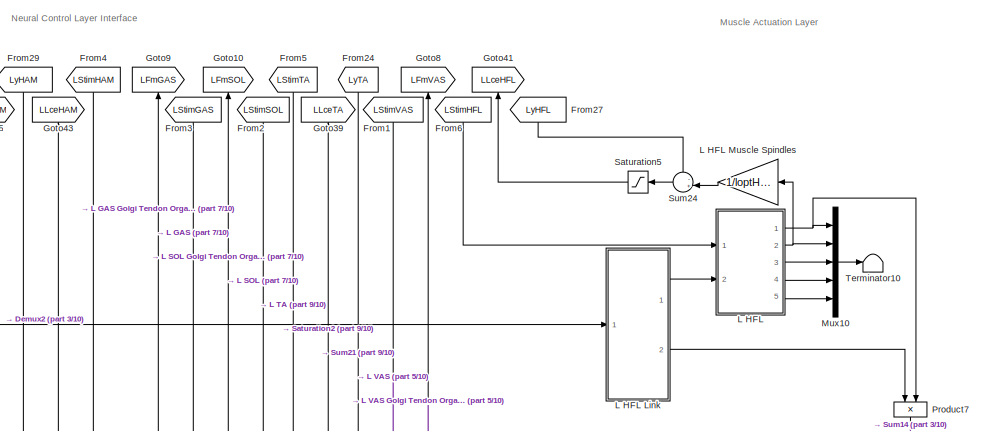
[diagram: Muscle Actuation Layer - part 1/10, top center region]
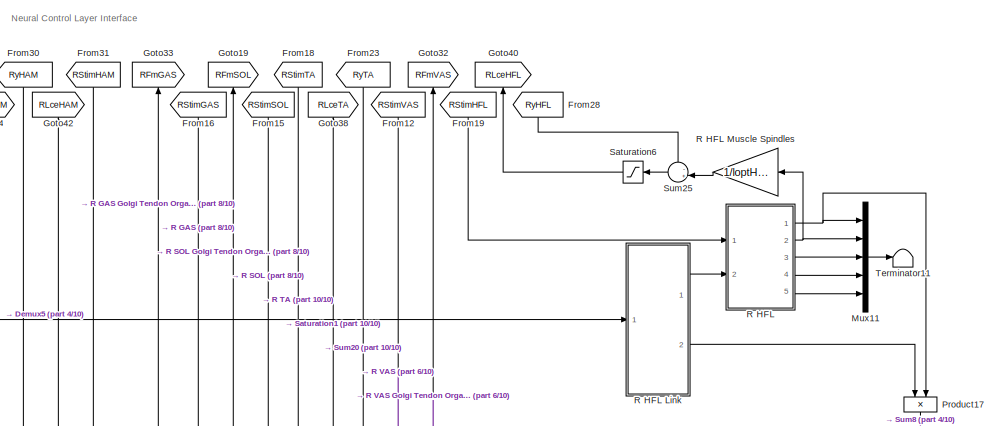
[diagram: Muscle Actuation Layer - part 2/10, top right region]
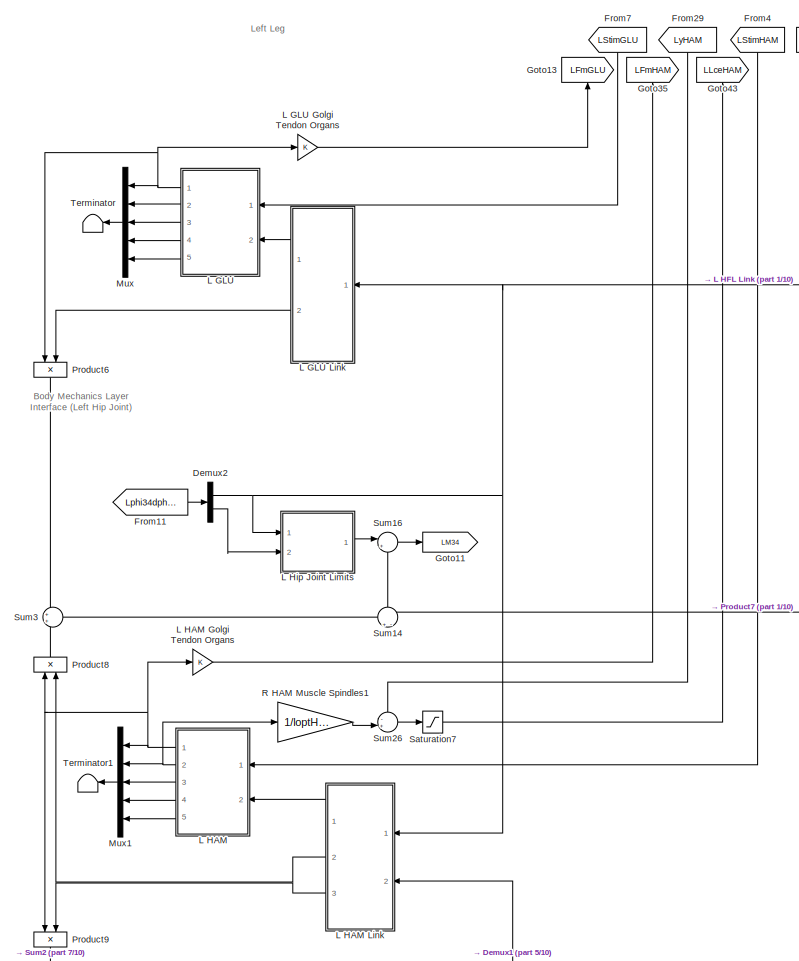
[diagram: Muscle Actuation Layer - part 3/10, top left region]
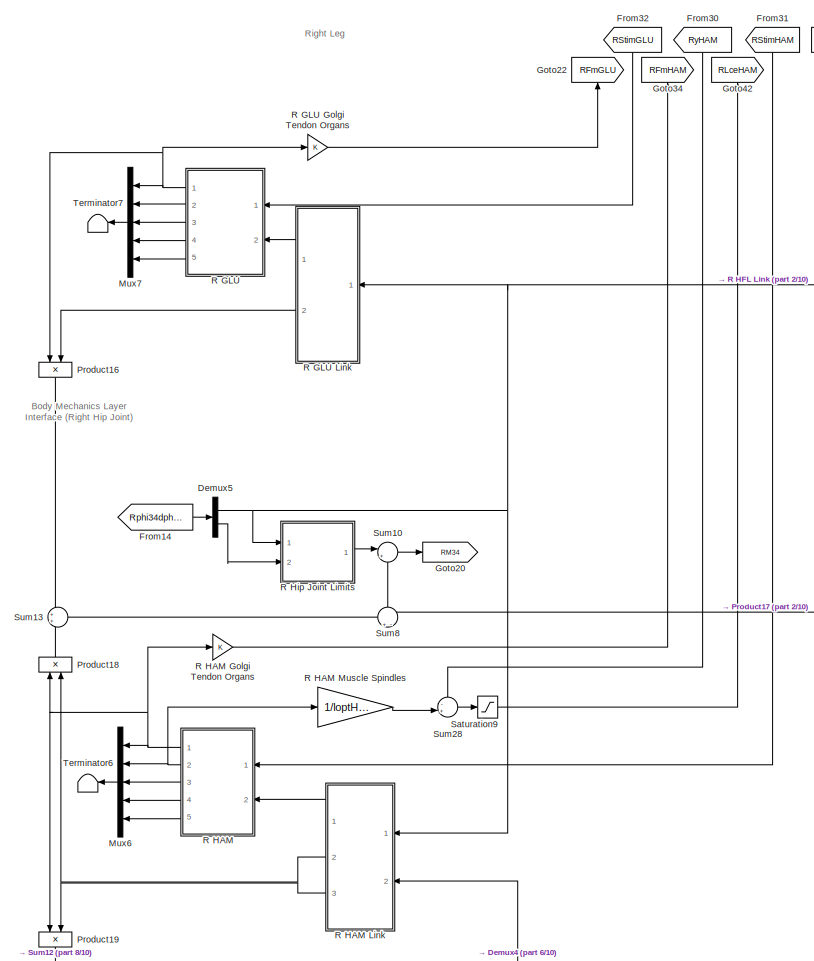
[diagram: Muscle Actuation Layer - part 4/10, top center region]
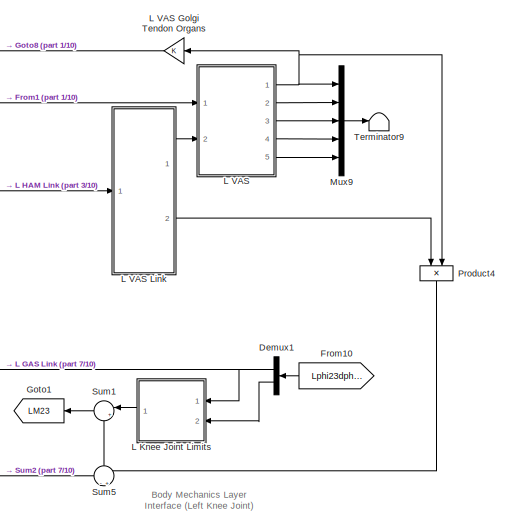
[diagram: Muscle Actuation Layer - part 5/10, central region]
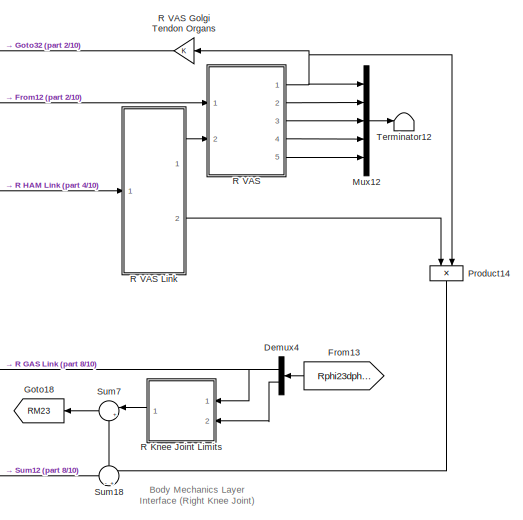
[diagram: Muscle Actuation Layer - part 6/10, middle right region]
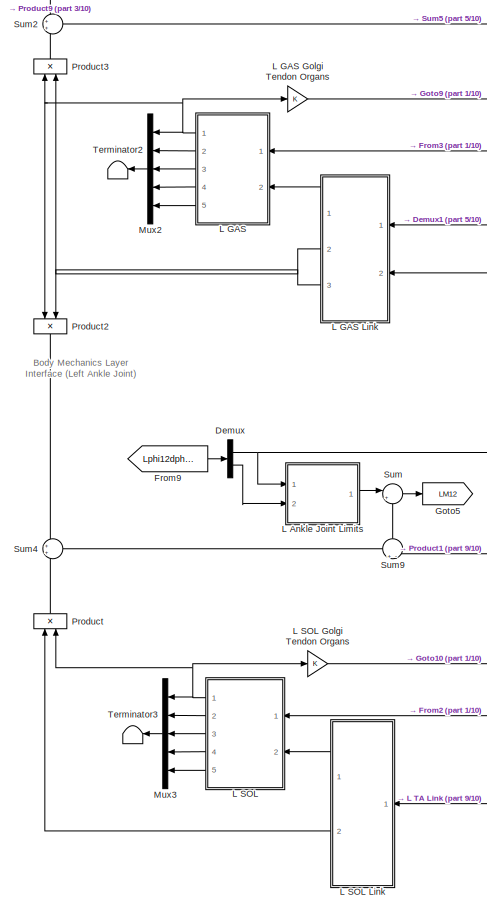
[diagram: Muscle Actuation Layer - part 7/10, bottom left region]
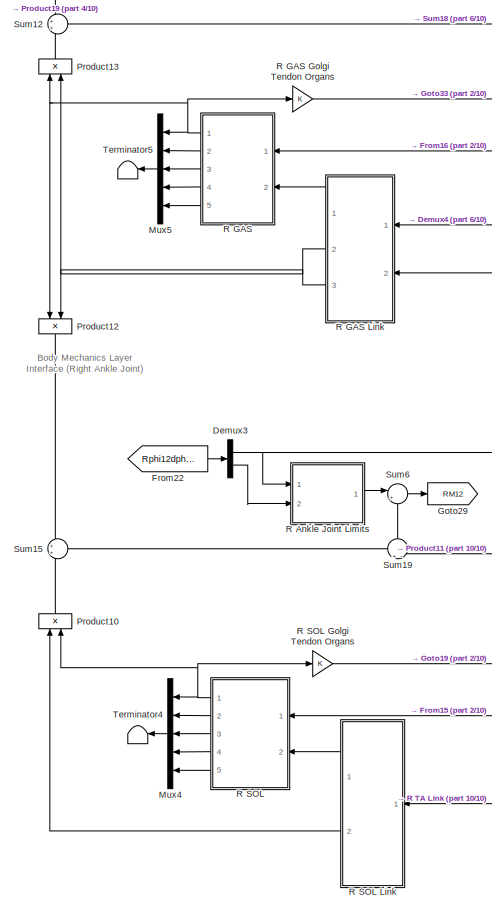
[diagram: Muscle Actuation Layer - part 8/10, bottom center region]
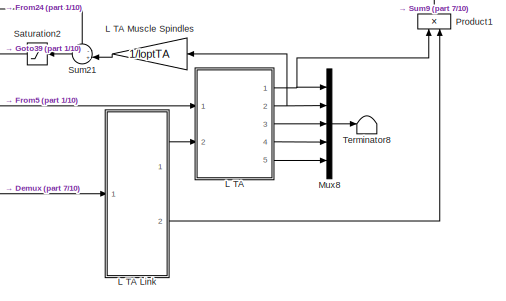
[diagram: Muscle Actuation Layer - part 9/10, bottom center region]
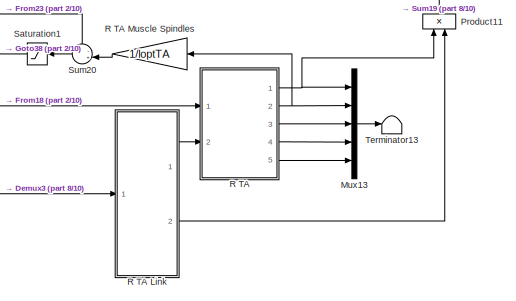
[diagram: Muscle Actuation Layer - part 10/10, bottom right region]
BLOCK [SubSystem] Muscle Actuation Layer
  Ports = []
  RequestExecContextInheritance = off
BLOCK [Demux] Muscle Actuation Layer/Demux
  DisplayOption = bar
  Outputs = 2
  Ports = [1, 2]
BLOCK [Demux] Muscle Actuation Layer/Demux1
  DisplayOption = bar
  Outputs = 2
  Ports = [1, 2]
BLOCK [Demux] Muscle Actuation Layer/Demux2
  DisplayOption = bar
  Outputs = 2
  Ports = [1, 2]
BLOCK [Demux] Muscle Actuation Layer/Demux3
  DisplayOption = bar
  Outputs = 2
  Ports = [1, 2]
BLOCK [Demux] Muscle Actuation Layer/Demux4
  DisplayOption = bar
  Outputs = 2
  Ports = [1, 2]
BLOCK [Demux] Muscle Actuation Layer/Demux5
  DisplayOption = bar
  Outputs = 2
  Ports = [1, 2]
BLOCK [From] Muscle Actuation Layer/From1
  CloseFcn = tagdialog Close
  GotoTag = LStimVAS
  TagVisibility = global
BLOCK [From] Muscle Actuation Layer/From10
  CloseFcn = tagdialog Close
  GotoTag = Lphi23dphi23
  TagVisibility = global
BLOCK [From] Muscle Actuation Layer/From11
  CloseFcn = tagdialog Close
  GotoTag = Lphi34dphi34
  TagVisibility = global
BLOCK [From] Muscle Actuation Layer/From12
  CloseFcn = tagdialog Close
  GotoTag = RStimVAS
  TagVisibility = global
BLOCK [From] Muscle Actuation Layer/From13
  CloseFcn = tagdialog Close
  GotoTag = Rphi23dphi23
  TagVisibility = global
BLOCK [From] Muscle Actuation Layer/From14
  CloseFcn = tagdialog Close
  GotoTag = Rphi34dphi34
  TagVisibility = global
BLOCK [From] Muscle Actuation Layer/From15
  CloseFcn = tagdialog Close
  GotoTag = RStimSOL
  TagVisibility = global
BLOCK [From] Muscle Actuation Layer/From16
  CloseFcn = tagdialog Close
  GotoTag = RStimGAS
  TagVisibility = global
BLOCK [From] Muscle Actuation Layer/From18
  CloseFcn = tagdialog Close
  GotoTag = RStimTA
  TagVisibility = global
BLOCK [From] Muscle Actuation Layer/From19
  CloseFcn = tagdialog Close
  GotoTag = RStimHFL
  TagVisibility = global
BLOCK [From] Muscle Actuation Layer/From2
  CloseFcn = tagdialog Close
  GotoTag = LStimSOL
  TagVisibility = global
BLOCK [From] Muscle Actuation Layer/From22
  CloseFcn = tagdialog Close
  GotoTag = Rphi12dphi12
  TagVisibility = global
BLOCK [From] Muscle Actuation Layer/From23
  CloseFcn = tagdialog Close
  GotoTag = RyTA
  TagVisibility = global
BLOCK [From] Muscle Actuation Layer/From24
  CloseFcn = tagdialog Close
  GotoTag = LyTA
  TagVisibility = global
BLOCK [From] Muscle Actuation Layer/From27
  CloseFcn = tagdialog Close
  GotoTag = LyHFL
  TagVisibility = global
BLOCK [From] Muscle Actuation Layer/From28
  CloseFcn = tagdialog Close
  GotoTag = RyHFL
  TagVisibility = global
BLOCK [From] Muscle Actuation Layer/From29
  CloseFcn = tagdialog Close
  GotoTag = LyHAM
  TagVisibility = global
BLOCK [From] Muscle Actuation Layer/From3
  CloseFcn = tagdialog Close
  GotoTag = LStimGAS
  TagVisibility = global
BLOCK [From] Muscle Actuation Layer/From30
  CloseFcn = tagdialog Close
  GotoTag = RyHAM
  TagVisibility = global
BLOCK [From] Muscle Actuation Layer/From31
  CloseFcn = tagdialog Close
  GotoTag = RStimHAM
  TagVisibility = global
BLOCK [From] Muscle Actuation Layer/From32
  CloseFcn = tagdialog Close
  GotoTag = RStimGLU
  TagVisibility = global
BLOCK [From] Muscle Actuation Layer/From4
  CloseFcn = tagdialog Close
  GotoTag = LStimHAM
  TagVisibility = global
BLOCK [From] Muscle Actuation Layer/From5
  CloseFcn = tagdialog Close
  GotoTag = LStimTA
  TagVisibility = global
BLOCK [From] Muscle Actuation Layer/From6
  CloseFcn = tagdialog Close
  GotoTag = LStimHFL
  TagVisibility = global
BLOCK [From] Muscle Actuation Layer/From7
  CloseFcn = tagdialog Close
  GotoTag = LStimGLU
  TagVisibility = global
BLOCK [From] Muscle Actuation Layer/From9
  CloseFcn = tagdialog Close
  GotoTag = Lphi12dphi12
  TagVisibility = global
BLOCK [Goto] Muscle Actuation Layer/Goto1
  GotoTag = LM23
  TagVisibility = global
BLOCK [Goto] Muscle Actuation Layer/Goto10
  GotoTag = LFmSOL
  TagVisibility = global
BLOCK [Goto] Muscle Actuation Layer/Goto11
  GotoTag = LM34
  TagVisibility = global
BLOCK [Goto] Muscle Actuation Layer/Goto13
  GotoTag = LFmGLU
  TagVisibility = global
BLOCK [Goto] Muscle Actuation Layer/Goto18
  GotoTag = RM23
  TagVisibility = global
BLOCK [Goto] Muscle Actuation Layer/Goto19
  GotoTag = RFmSOL
  TagVisibility = global
BLOCK [Goto] Muscle Actuation Layer/Goto20
  GotoTag = RM34
  TagVisibility = global
BLOCK [Goto] Muscle Actuation Layer/Goto22
  GotoTag = RFmGLU
  TagVisibility = global
BLOCK [Goto] Muscle Actuation Layer/Goto29
  GotoTag = RM12
  TagVisibility = global
BLOCK [Goto] Muscle Actuation Layer/Goto32
  GotoTag = RFmVAS
  TagVisibility = global
BLOCK [Goto] Muscle Actuation Layer/Goto33
  GotoTag = RFmGAS
  TagVisibility = global
BLOCK [Goto] Muscle Actuation Layer/Goto34
  GotoTag = RFmHAM
  TagVisibility = global
BLOCK [Goto] Muscle Actuation Layer/Goto35
  GotoTag = LFmHAM
  TagVisibility = global
BLOCK [Goto] Muscle Actuation Layer/Goto38
  GotoTag = RLceTA
  TagVisibility = global
BLOCK [Goto] Muscle Actuation Layer/Goto39
  GotoTag = LLceTA
  TagVisibility = global
BLOCK [Goto] Muscle Actuation Layer/Goto40
  GotoTag = RLceHFL
  TagVisibility = global
BLOCK [Goto] Muscle Actuation Layer/Goto41
  GotoTag = LLceHFL
  TagVisibility = global
BLOCK [Goto] Muscle Actuation Layer/Goto42
  GotoTag = RLceHAM
  TagVisibility = global
BLOCK [Goto] Muscle Actuation Layer/Goto43
  GotoTag = LLceHAM
  TagVisibility = global
BLOCK [Goto] Muscle Actuation Layer/Goto5
  GotoTag = LM12
  TagVisibility = global
BLOCK [Goto] Muscle Actuation Layer/Goto8
  GotoTag = LFmVAS
  TagVisibility = global
BLOCK [Goto] Muscle Actuation Layer/Goto9
  GotoTag = LFmGAS
  TagVisibility = global
BLOCK [SubSystem] Muscle Actuation Layer/L Ankle Joint Limits
  Ports = [2, 1]
  RequestExecContextInheritance = off
BLOCK [Gain] Muscle Actuation Layer/L Ankle Joint Limits/Gain1
  Gain = c_jointstop
  OutDataTypeStr = Inherit: Inherit via internal rule
  ParamDataTypeStr = Inherit: Inherit via internal rule
  SaturateOnIntegerOverflow = off
BLOCK [Gain] Muscle Actuation Layer/L Ankle Joint Limits/Gain2
  Gain = -1
  OutDataTypeStr = Inherit: Inherit via internal rule
  ParamDataTypeStr = Inherit: Inherit via internal rule
  SaturateOnIntegerOverflow = off
BLOCK [Gain] Muscle Actuation Layer/L Ankle Joint Limits/Gain3
  Gain = c_jointstop
  OutDataTypeStr = Inherit: Inherit via internal rule
  ParamDataTypeStr = Inherit: Inherit via internal rule
  SaturateOnIntegerOverflow = off
BLOCK [Gain] Muscle Actuation Layer/L Ankle Joint Limits/Gain4
  Gain = 1/w_max_jointstop
  OutDataTypeStr = Inherit: Inherit via internal rule
  ParamDataTypeStr = Inherit: Inherit via internal rule
  SaturateOnIntegerOverflow = off
BLOCK [Reference] Muscle Actuation Layer/L Ankle Joint Limits/Limit Ankle Range  REF=simulink/Logic and Bit
Operations/Interval Test
  Ports = [1, 1]
  SourceBlock = simulink/Logic and Bit\nOperations/Interval Test
  SourceProductBaseCode = SL
  SourceProductName = Simulink
  SourceType = Interval Test
BLOCK [Logic] Muscle Actuation Layer/L Ankle Joint Limits/Logical Operator3
  AllPortsSameDT = off
  Operator = NOT
  OutDataTypeStr = boolean
  Ports = [1, 1]
BLOCK [Outport] Muscle Actuation Layer/L Ankle Joint Limits/M_stop [Nm]
  IconDisplay = Port number
  VectorParamsAs1DForOutWhenUnconnected = on
BLOCK [Mux] Muscle Actuation Layer/L Ankle Joint Limits/Mux1
  DisplayOption = bar
  Inputs = 2
  Ports = [2, 1]
BLOCK [Mux] Muscle Actuation Layer/L Ankle Joint Limits/Mux3
  DisplayOption = bar
  Inputs = 2
  Ports = [2, 1]
BLOCK [Fcn] Muscle Actuation Layer/L Ankle Joint Limits/Overextension Torque
  Expr = - u(1)  *  (1-u(2)) * (u(2)<1) * (u(1)>0)
BLOCK [Fcn] Muscle Actuation Layer/L Ankle Joint Limits/Overflexion Torque
  Expr = - u(1)  *  (1-u(2)) * (u(2)<1) * (u(1)<0)
BLOCK [Stop] Muscle Actuation Layer/L Ankle Joint Limits/Stop Simulation1
BLOCK [Sum] Muscle Actuation Layer/L Ankle Joint Limits/Sum
  IconShape = round
  InputSameDT = off
  Inputs = |+-
  OutDataTypeStr = Inherit: Inherit via internal rule
  Ports = [2, 1]
  SaturateOnIntegerOverflow = off
BLOCK [Sum] Muscle Actuation Layer/L Ankle Joint Limits/Sum1
  IconShape = round
  InputSameDT = off
  Inputs = |+-
  OutDataTypeStr = Inherit: Inherit via internal rule
  Ports = [2, 1]
  SaturateOnIntegerOverflow = off
BLOCK [Sum] Muscle Actuation Layer/L Ankle Joint Limits/Sum2
  IconShape = round
  InputSameDT = off
  OutDataTypeStr = Inherit: Inherit via internal rule
  Ports = [2, 1]
  SaturateOnIntegerOverflow = off
BLOCK [Inport] Muscle Actuation Layer/L Ankle Joint Limits/dphi [rad//s]
  IconDisplay = Port number
  Port = 2
BLOCK [Constant] Muscle Actuation Layer/L Ankle Joint Limits/overextension angle
  Value = phi12_UpLimit
BLOCK [Constant] Muscle Actuation Layer/L Ankle Joint Limits/overflexion angle
  Value = phi12_LowLimit
BLOCK [Inport] Muscle Actuation Layer/L Ankle Joint Limits/phi [rad]
  IconDisplay = Port number
BLOCK [SubSystem] Muscle Actuation Layer/L GAS
  Ports = [2, 5]
  RequestExecContextInheritance = off
BLOCK [Gain] Muscle Actuation Layer/L GAS Golgi Tendon Organs
  OutDataTypeStr = Inherit: Inherit via internal rule
  ParamDataTypeStr = Inherit: Inherit via internal rule
  SaturateOnIntegerOverflow = off
BLOCK [SubSystem] Muscle Actuation Layer/L GAS Link
  Ports = [2, 3]
  RequestExecContextInheritance = off
BLOCK [Constant] Muscle Actuation Layer/L GAS Link/Constant1
  Value = phirefGASk
BLOCK [Constant] Muscle Actuation Layer/L GAS Link/Constant2
  Value = phimaxGASk
BLOCK [Constant] Muscle Actuation Layer/L GAS Link/Constant4
  Value = lslackGAS+loptGAS
BLOCK [Constant] Muscle Actuation Layer/L GAS Link/Constant6
  Value = phirefGASa
BLOCK [Constant] Muscle Actuation Layer/L GAS Link/Constant7
  Value = phimaxGASa
BLOCK [Demux] Muscle Actuation Layer/L GAS Link/Demux1
  DisplayOption = bar
  Outputs = 2
  Ports = [1, 2]
BLOCK [Demux] Muscle Actuation Layer/L GAS Link/Demux2
  DisplayOption = bar
  Outputs = 2
  Ports = [1, 2]
BLOCK [Gain] Muscle Actuation Layer/L GAS Link/Gain1
  Gain = rGASk
  OutDataTypeStr = Inherit: Inherit via internal rule
  ParamDataTypeStr = Inherit: Inherit via internal rule
  SaturateOnIntegerOverflow = off
BLOCK [Gain] Muscle Actuation Layer/L GAS Link/Gain2
  Gain = rhoGASk
  OutDataTypeStr = Inherit: Inherit via internal rule
  ParamDataTypeStr = Inherit: Inherit via internal rule
  SaturateOnIntegerOverflow = off
BLOCK [Gain] Muscle Actuation Layer/L GAS Link/Gain3
  Gain = rGASa
  OutDataTypeStr = Inherit: Inherit via internal rule
  ParamDataTypeStr = Inherit: Inherit via internal rule
  SaturateOnIntegerOverflow = off
BLOCK [Gain] Muscle Actuation Layer/L GAS Link/Gain4
  Gain = rhoGASa
  OutDataTypeStr = Inherit: Inherit via internal rule
  ParamDataTypeStr = Inherit: Inherit via internal rule
  SaturateOnIntegerOverflow = off
BLOCK [Mux] Muscle Actuation Layer/L GAS Link/Mux1
  DisplayOption = bar
  Inputs = 2
  Ports = [2, 1]
BLOCK [Mux] Muscle Actuation Layer/L GAS Link/Mux2
  DisplayOption = bar
  Inputs = 2
  Ports = [2, 1]
BLOCK [Sum] Muscle Actuation Layer/L GAS Link/Sum1
  IconShape = round
  InputSameDT = off
  Inputs = |+-
  OutDataTypeStr = Inherit: Inherit via internal rule
  Ports = [2, 1]
  SaturateOnIntegerOverflow = off
BLOCK [Sum] Muscle Actuation Layer/L GAS Link/Sum2
  IconShape = round
  InputSameDT = off
  Inputs = -+|
  OutDataTypeStr = Inherit: Inherit via internal rule
  Ports = [2, 1]
  SaturateOnIntegerOverflow = off
BLOCK [Sum] Muscle Actuation Layer/L GAS Link/Sum3
  IconShape = round
  InputSameDT = off
  Inputs = +-
  OutDataTypeStr = Inherit: Inherit via internal rule
  Ports = [2, 1]
  SaturateOnIntegerOverflow = off
BLOCK [Sum] Muscle Actuation Layer/L GAS Link/Sum5
  IconShape = round
  InputSameDT = off
  Inputs = -++
  OutDataTypeStr = Inherit: Inherit via internal rule
  Ports = [3, 1]
  SaturateOnIntegerOverflow = off
BLOCK [Sum] Muscle Actuation Layer/L GAS Link/Sum7
  IconShape = round
  InputSameDT = off
  Inputs = |+-
  OutDataTypeStr = Inherit: Inherit via internal rule
  Ports = [2, 1]
  SaturateOnIntegerOverflow = off
BLOCK [Sum] Muscle Actuation Layer/L GAS Link/Sum8
  IconShape = round
  InputSameDT = off
  Inputs = -+|
  OutDataTypeStr = Inherit: Inherit via internal rule
  Ports = [2, 1]
  SaturateOnIntegerOverflow = off
BLOCK [Sum] Muscle Actuation Layer/L GAS Link/Sum9
  IconShape = round
  InputSameDT = off
  Inputs = +-
  OutDataTypeStr = Inherit: Inherit via internal rule
  Ports = [2, 1]
  SaturateOnIntegerOverflow = off
BLOCK [Trigonometry] Muscle Actuation Layer/L GAS Link/length change term ankle
  Ports = [1, 1]
BLOCK [Trigonometry] Muscle Actuation Layer/L GAS Link/length change term ankle1
  Ports = [1, 1]
BLOCK [Outport] Muscle Actuation Layer/L GAS Link/lever12 [m]
  IconDisplay = Port number
  Port = 3
  VectorParamsAs1DForOutWhenUnconnected = on
BLOCK [Outport] Muscle Actuation Layer/L GAS Link/lever23 [m]
  IconDisplay = Port number
  Port = 2
  VectorParamsAs1DForOutWhenUnconnected = on
BLOCK [Outport] Muscle Actuation Layer/L GAS Link/lmtu [m]
  IconDisplay = Port number
  VectorParamsAs1DForOutWhenUnconnected = on
BLOCK [Trigonometry] Muscle Actuation Layer/L GAS Link/offset correction term ankle
  Ports = [1, 1]
BLOCK [Trigonometry] Muscle Actuation Layer/L GAS Link/offset correction term ankle1
  Ports = [1, 1]
BLOCK [Inport] Muscle Actuation Layer/L GAS Link/phi12 [rad]
  IconDisplay = Port number
  Port = 2
BLOCK [Inport] Muscle Actuation Layer/L GAS Link/phi23 [rad]
  IconDisplay = Port number
BLOCK [Trigonometry] Muscle Actuation Layer/L GAS Link/variable lever term ankle
  Operator = cos
  Ports = [1, 1]
BLOCK [Trigonometry] Muscle Actuation Layer/L GAS Link/variable lever term ankle1
  Operator = cos
  Ports = [1, 1]
BLOCK [Product] Muscle Actuation Layer/L GAS/1
  Inputs = **
  Ports = [2, 1]
  RndMeth = Floor
BLOCK [Gain] Muscle Actuation Layer/L GAS/1//lslack
  Gain = 1/lslackGAS
BLOCK [Outport] Muscle Actuation Layer/L GAS/A
  IconDisplay = Port number
  InitialOutput = 0
  Port = 5
  VectorParamsAs1DForOutWhenUnconnected = on
BLOCK [SubSystem] Muscle Actuation Layer/L GAS/BE force-length relation
  Ports = [1, 1]
  RequestExecContextInheritance = off
BLOCK [Constant] Muscle Actuation Layer/L GAS/BE force-length relation/Constant1
  Value = 1-w
BLOCK [Math] Muscle Actuation Layer/L GAS/BE force-length relation/Math Function
  Operator = square
  Ports = [1, 1]
BLOCK [Mux] Muscle Actuation Layer/L GAS/BE force-length relation/Mux1
  DisplayOption = bar
  Inputs = 2
  Ports = [2, 1]
BLOCK [Sum] Muscle Actuation Layer/L GAS/BE force-length relation/Sum4
  IconShape = round
  Inputs = |+-
  Ports = [2, 1]
BLOCK [Outport] Muscle Actuation Layer/L GAS/BE force-length relation/fbe [Fmax]
  IconDisplay = Port number
  VectorParamsAs1DForOutWhenUnconnected = on
BLOCK [Fcn] Muscle Actuation Layer/L GAS/BE force-length relation/force above slack length
  Expr = u(2)*(u(1)<0)
BLOCK [Inport] Muscle Actuation Layer/L GAS/BE force-length relation/lce [lopt]
  IconDisplay = Port number
BLOCK [Constant] Muscle Actuation Layer/L GAS/BE force-length relation/reference strain [lslack]
  Value = w/2
BLOCK [Product] Muscle Actuation Layer/L GAS/BE force-length relation/relative strain
  InputSameDT = off
  Inputs = */
  OutDataTypeStr = Inherit: Inherit via internal rule
  Ports = [2, 1]
  RndMeth = Floor
  SaturateOnIntegerOverflow = off
BLOCK [SubSystem] Muscle Actuation Layer/L GAS/CE force-length relation
  Ports = [1, 1]
  RequestExecContextInheritance = off
BLOCK [Abs] Muscle Actuation Layer/L GAS/CE force-length relation/Abs
  SaturateOnIntegerOverflow = off
BLOCK [Constant] Muscle Actuation Layer/L GAS/CE force-length relation/Constant1
BLOCK [Constant] Muscle Actuation Layer/L GAS/CE force-length relation/Constant2
  Value = 3
BLOCK [Gain] Muscle Actuation Layer/L GAS/CE force-length relation/Gain
  Gain = log(c)
  OutDataTypeStr = Inherit: Inherit via internal rule
  ParamDataTypeStr = Inherit: Inherit via internal rule
  SaturateOnIntegerOverflow = off
BLOCK [Math] Muscle Actuation Layer/L GAS/CE force-length relation/Math Function
  Ports = [1, 1]
BLOCK [Math] Muscle Actuation Layer/L GAS/CE force-length relation/Math Function1
  Operator = pow
  Ports = [2, 1]
BLOCK [Sum] Muscle Actuation Layer/L GAS/CE force-length relation/Sum4
  IconShape = round
  Inputs = |+-
  Ports = [2, 1]
BLOCK [Outport] Muscle Actuation Layer/L GAS/CE force-length relation/fce [Fmax]
  IconDisplay = Port number
  VectorParamsAs1DForOutWhenUnconnected = on
BLOCK [Inport] Muscle Actuation Layer/L GAS/CE force-length relation/lce [lopt]
  IconDisplay = Port number
BLOCK [Product] Muscle Actuation Layer/L GAS/CE force-length relation/normalized position
  InputSameDT = off
  Inputs = */
  OutDataTypeStr = Inherit: Inherit via internal rule
  Ports = [2, 1]
  RndMeth = Floor
  SaturateOnIntegerOverflow = off
BLOCK [Constant] Muscle Actuation Layer/L GAS/CE force-length relation/relative width
  Value = w
BLOCK [SubSystem] Muscle Actuation Layer/L GAS/CE inverse force-velocity relation
  Ports = [1, 1]
  RequestExecContextInheritance = off
BLOCK [Product] Muscle Actuation Layer/L GAS/CE inverse force-velocity relation/1
  InputSameDT = off
  Inputs = /*
  OutDataTypeStr = Inherit: Inherit via internal rule
  Ports = [2, 1]
  RndMeth = Floor
  SaturateOnIntegerOverflow = off
BLOCK [Constant] Muscle Actuation Layer/L GAS/CE inverse force-velocity relation/Constant1
BLOCK [Constant] Muscle Actuation Layer/L GAS/CE inverse force-velocity relation/Constant2
  Value = N
BLOCK [Constant] Muscle Actuation Layer/L GAS/CE inverse force-velocity relation/Constant3
BLOCK [Constant] Muscle Actuation Layer/L GAS/CE inverse force-velocity relation/Constant4
BLOCK [Constant] Muscle Actuation Layer/L GAS/CE inverse force-velocity relation/Constant5
  Value = N
BLOCK [Constant] Muscle Actuation Layer/L GAS/CE inverse force-velocity relation/Constant8
BLOCK [Gain] Muscle Actuation Layer/L GAS/CE inverse force-velocity relation/Curvature
  Gain = K
BLOCK [Gain] Muscle Actuation Layer/L GAS/CE inverse force-velocity relation/Curvature1
  Gain = 7.56*K
BLOCK [Inport] Muscle Actuation Layer/L GAS/CE inverse force-velocity relation/Fv[Fmax]
  IconDisplay = Port number
BLOCK [Mux] Muscle Actuation Layer/L GAS/CE inverse force-velocity relation/Mux
  DisplayOption = bar
  Inputs = 2
  Ports = [2, 1]
BLOCK [Mux] Muscle Actuation Layer/L GAS/CE inverse force-velocity relation/Mux1
  DisplayOption = bar
  Inputs = 3
  Ports = [3, 1]
BLOCK [Mux] Muscle Actuation Layer/L GAS/CE inverse force-velocity relation/Mux2
  DisplayOption = bar
  Inputs = 3
  Ports = [3, 1]
BLOCK [Gain] Muscle Actuation Layer/L GAS/CE inverse force-velocity relation/Slope
  Gain = 1e-2
BLOCK [Sum] Muscle Actuation Layer/L GAS/CE inverse force-velocity relation/Sum1
  IconShape = round
  Inputs = |++
  Ports = [2, 1]
BLOCK [Sum] Muscle Actuation Layer/L GAS/CE inverse force-velocity relation/Sum2
  IconShape = round
  Ports = [2, 1]
BLOCK [Sum] Muscle Actuation Layer/L GAS/CE inverse force-velocity relation/Sum3
  IconShape = round
  Inputs = ++|
  Ports = [2, 1]
BLOCK [Sum] Muscle Actuation Layer/L GAS/CE inverse force-velocity relation/Sum4
  IconShape = round
  Inputs = |+-
  Ports = [2, 1]
BLOCK [Sum] Muscle Actuation Layer/L GAS/CE inverse force-velocity relation/Sum5
  IconShape = round
  Inputs = |-+
  Ports = [2, 1]
BLOCK [Sum] Muscle Actuation Layer/L GAS/CE inverse force-velocity relation/Sum6
  IconShape = round
  Inputs = -+|
  Ports = [2, 1]
BLOCK [Sum] Muscle Actuation Layer/L GAS/CE inverse force-velocity relation/Sum7
  IconShape = round
  Inputs = |++
  Ports = [2, 1]
BLOCK [Sum] Muscle Actuation Layer/L GAS/CE inverse force-velocity relation/Sum8
  IconShape = round
  Inputs = +-|
  Ports = [2, 1]
BLOCK [Sum] Muscle Actuation Layer/L GAS/CE inverse force-velocity relation/Sum9
  IconShape = round
  Ports = [2, 1]
BLOCK [Fcn] Muscle Actuation Layer/L GAS/CE inverse force-velocity relation/concentric branch
  Expr = u(1) * (u(2)<=1)
BLOCK [Fcn] Muscle Actuation Layer/L GAS/CE inverse force-velocity relation/excentric branch
  Expr = u(2) * (u(1)>1)*(u(1)<=u(3))
BLOCK [Fcn] Muscle Actuation Layer/L GAS/CE inverse force-velocity relation/excentric overshoot
  Expr = u(3) * (u(2)>u(1))
BLOCK [Outport] Muscle Actuation Layer/L GAS/CE inverse force-velocity relation/v[vmax]
  IconDisplay = Port number
  VectorParamsAs1DForOutWhenUnconnected = on
BLOCK [Product] Muscle Actuation Layer/L GAS/CE inverse force-velocity relation/v_concentric
  InputSameDT = off
  Inputs = */
  OutDataTypeStr = Inherit: Inherit via internal rule
  Ports = [2, 1]
  RndMeth = Floor
  SaturateOnIntegerOverflow = off
BLOCK [Product] Muscle Actuation Layer/L GAS/CE inverse force-velocity relation/v_excentric <N
  InputSameDT = off
  Inputs = */
  OutDataTypeStr = Inherit: Inherit via internal rule
  Ports = [2, 1]
  RndMeth = Floor
  SaturateOnIntegerOverflow = off
BLOCK [Constant] Muscle Actuation Layer/L GAS/Constant
  Value = lslackGAS
BLOCK [Reference] Muscle Actuation Layer/L GAS/ECC TransferFcn  REF=simulink_extras/Additional
Linear/Transfer Fcn
(with initial outputs)
  AttributesFormatString = pre-activation: %<Y0>
  Ports = [1, 1]
  SourceBlock = simulink_extras/Additional\nLinear/Transfer Fcn\n(with initial outputs)
  SourceProductBaseCode = SL
  SourceProductName = Simulink
  SourceType = Transfer Function with Initial Outputs
BLOCK [Gain] Muscle Actuation Layer/L GAS/Fmax
  Gain = FmaxGAS
BLOCK [Outport] Muscle Actuation Layer/L GAS/Fmtc
  IconDisplay = Port number
  InitialOutput = 0
  VectorParamsAs1DForOutWhenUnconnected = on
BLOCK [Product] Muscle Actuation Layer/L GAS/Fv = Fse // (A*Fce)
  Inputs = */
  Ports = [2, 1]
  RndMeth = Floor
BLOCK [Integrator] Muscle Actuation Layer/L GAS/Integrator
  InitialConditionSource = external
  LowerSaturationLimit = 0.05
  Ports = [2, 1]
BLOCK [Outport] Muscle Actuation Layer/L GAS/Lce
  IconDisplay = Port number
  InitialOutput = 0
  Port = 2
  VectorParamsAs1DForOutWhenUnconnected = on
BLOCK [Outport] Muscle Actuation Layer/L GAS/Lse
  IconDisplay = Port number
  InitialOutput = 0
  Port = 4
  VectorParamsAs1DForOutWhenUnconnected = on
BLOCK [SubSystem] Muscle Actuation Layer/L GAS/PE force-length relation
  Ports = [1, 1]
  RequestExecContextInheritance = off
BLOCK [Constant] Muscle Actuation Layer/L GAS/PE force-length relation/Constant3
BLOCK [Math] Muscle Actuation Layer/L GAS/PE force-length relation/Math Function2
  Operator = square
  Ports = [1, 1]
BLOCK [Mux] Muscle Actuation Layer/L GAS/PE force-length relation/Mux
  DisplayOption = bar
  Inputs = 2
  Ports = [2, 1]
BLOCK [Sum] Muscle Actuation Layer/L GAS/PE force-length relation/Sum1
  IconShape = round
  Inputs = |+-
  Ports = [2, 1]
BLOCK [Fcn] Muscle Actuation Layer/L GAS/PE force-length relation/force above slack length
  Expr = u(2) * (u(1)>1)
BLOCK [Outport] Muscle Actuation Layer/L GAS/PE force-length relation/fpe [Fmax]
  IconDisplay = Port number
  VectorParamsAs1DForOutWhenUnconnected = on
BLOCK [Inport] Muscle Actuation Layer/L GAS/PE force-length relation/lce [lopt]
  IconDisplay = Port number
BLOCK [Constant] Muscle Actuation Layer/L GAS/PE force-length relation/reference strain [lopt]
  Value = w
BLOCK [Product] Muscle Actuation Layer/L GAS/PE force-length relation/relative strain
  InputSameDT = off
  Inputs = */
  OutDataTypeStr = Inherit: Inherit via internal rule
  Ports = [2, 1]
  RndMeth = Floor
  SaturateOnIntegerOverflow = off
BLOCK [SubSystem] Muscle Actuation Layer/L GAS/SE force-length relation
  Ports = [1, 1]
  RequestExecContextInheritance = off
BLOCK [Constant] Muscle Actuation Layer/L GAS/SE force-length relation/Constant1
BLOCK [Math] Muscle Actuation Layer/L GAS/SE force-length relation/Math Function
  Operator = square
  Ports = [1, 1]
BLOCK [Mux] Muscle Actuation Layer/L GAS/SE force-length relation/Mux
  DisplayOption = bar
  Inputs = 2
  Ports = [2, 1]
BLOCK [Sum] Muscle Actuation Layer/L GAS/SE force-length relation/Sum4
  IconShape = round
  Inputs = |+-
  Ports = [2, 1]
BLOCK [Fcn] Muscle Actuation Layer/L GAS/SE force-length relation/force above slack length
  Expr = u(2)*(u(1)>1)
BLOCK [Outport] Muscle Actuation Layer/L GAS/SE force-length relation/fse [Fmax]
  IconDisplay = Port number
  VectorParamsAs1DForOutWhenUnconnected = on
BLOCK [Inport] Muscle Actuation Layer/L GAS/SE force-length relation/lse [lslack]
  IconDisplay = Port number
BLOCK [Constant] Muscle Actuation Layer/L GAS/SE force-length relation/reference strain [lslack]
  Value = eref
BLOCK [Product] Muscle Actuation Layer/L GAS/SE force-length relation/relative strain
  InputSameDT = off
  Inputs = */
  OutDataTypeStr = Inherit: Inherit via internal rule
  Ports = [2, 1]
  RndMeth = Floor
  SaturateOnIntegerOverflow = off
BLOCK [Inport] Muscle Actuation Layer/L GAS/STIM
  IconDisplay = Port number
BLOCK [Sum] Muscle Actuation Layer/L GAS/Sum
  IconShape = round
  Inputs = |+-
  Ports = [2, 1]
BLOCK [Sum] Muscle Actuation Layer/L GAS/Sum2
  IconShape = round
  Inputs = |-+
  Ports = [2, 1]
BLOCK [Sum] Muscle Actuation Layer/L GAS/Sum3
  IconShape = round
  Ports = [2, 1]
BLOCK [Sum] Muscle Actuation Layer/L GAS/Sum4
  IconShape = round
  Ports = [2, 1]
BLOCK [Outport] Muscle Actuation Layer/L GAS/Vce
  IconDisplay = Port number
  InitialOutput = 0
  Port = 3
  VectorParamsAs1DForOutWhenUnconnected = on
BLOCK [Gain] Muscle Actuation Layer/L GAS/lce//lopt
  Gain = 1/loptGAS
BLOCK [Inport] Muscle Actuation Layer/L GAS/lmtc [m]
  IconDisplay = Port number
  Port = 2
BLOCK [Gain] Muscle Actuation Layer/L GAS/vmax*lopt
  Gain = vmaxGAS*loptGAS
BLOCK [SubSystem] Muscle Actuation Layer/L GLU
  Ports = [2, 5]
  RequestExecContextInheritance = off
BLOCK [Gain] Muscle Actuation Layer/L GLU Golgi Tendon Organs
  OutDataTypeStr = Inherit: Inherit via internal rule
  ParamDataTypeStr = Inherit: Inherit via internal rule
  SaturateOnIntegerOverflow = off
BLOCK [SubSystem] Muscle Actuation Layer/L GLU Link
  Ports = [1, 2]
  RequestExecContextInheritance = off
BLOCK [Constant] Muscle Actuation Layer/L GLU Link/Constant
  Value = lslackGLU+loptGLU
BLOCK [Constant] Muscle Actuation Layer/L GLU Link/Constant1
  Value = rGLU
BLOCK [Constant] Muscle Actuation Layer/L GLU Link/Constant2
  Value = phirefGLU
BLOCK [Gain] Muscle Actuation Layer/L GLU Link/Gain2
  Gain = rhoGLU
  OutDataTypeStr = Inherit: Inherit via internal rule
  ParamDataTypeStr = Inherit: Inherit via internal rule
  SaturateOnIntegerOverflow = off
BLOCK [Product] Muscle Actuation Layer/L GLU Link/Product
  InputSameDT = off
  OutDataTypeStr = Inherit: Inherit via internal rule
  Ports = [2, 1]
  SaturateOnIntegerOverflow = off
BLOCK [Sum] Muscle Actuation Layer/L GLU Link/Sum2
  IconShape = round
  InputSameDT = off
  Inputs = |+-
  OutDataTypeStr = Inherit: Inherit via internal rule
  Ports = [2, 1]
  SaturateOnIntegerOverflow = off
BLOCK [Sum] Muscle Actuation Layer/L GLU Link/Sum5
  IconShape = round
  InputSameDT = off
  Inputs = |+-
  OutDataTypeStr = Inherit: Inherit via internal rule
  Ports = [2, 1]
  SaturateOnIntegerOverflow = off
BLOCK [Outport] Muscle Actuation Layer/L GLU Link/lever [m]
  IconDisplay = Port number
  Port = 2
  VectorParamsAs1DForOutWhenUnconnected = on
BLOCK [Outport] Muscle Actuation Layer/L GLU Link/lmtu [m]
  IconDisplay = Port number
  VectorParamsAs1DForOutWhenUnconnected = on
BLOCK [Inport] Muscle Actuation Layer/L GLU Link/phi34 [rad]
  IconDisplay = Port number
BLOCK [Product] Muscle Actuation Layer/L GLU/1
  Inputs = **
  Ports = [2, 1]
  RndMeth = Floor
BLOCK [Gain] Muscle Actuation Layer/L GLU/1//lslack
  Gain = 1/lslackGLU
BLOCK [Outport] Muscle Actuation Layer/L GLU/A
  IconDisplay = Port number
  InitialOutput = 0
  Port = 5
  VectorParamsAs1DForOutWhenUnconnected = on
BLOCK [SubSystem] Muscle Actuation Layer/L GLU/BE force-length relation
  Ports = [1, 1]
  RequestExecContextInheritance = off
BLOCK [Constant] Muscle Actuation Layer/L GLU/BE force-length relation/Constant1
  Value = 1-w
BLOCK [Math] Muscle Actuation Layer/L GLU/BE force-length relation/Math Function
  Operator = square
  Ports = [1, 1]
BLOCK [Mux] Muscle Actuation Layer/L GLU/BE force-length relation/Mux1
  DisplayOption = bar
  Inputs = 2
  Ports = [2, 1]
BLOCK [Sum] Muscle Actuation Layer/L GLU/BE force-length relation/Sum4
  IconShape = round
  Inputs = |+-
  Ports = [2, 1]
BLOCK [Outport] Muscle Actuation Layer/L GLU/BE force-length relation/fbe [Fmax]
  IconDisplay = Port number
  VectorParamsAs1DForOutWhenUnconnected = on
BLOCK [Fcn] Muscle Actuation Layer/L GLU/BE force-length relation/force above slack length
  Expr = u(2)*(u(1)<0)
BLOCK [Inport] Muscle Actuation Layer/L GLU/BE force-length relation/lce [lopt]
  IconDisplay = Port number
BLOCK [Constant] Muscle Actuation Layer/L GLU/BE force-length relation/reference strain [lslack]
  Value = w/2
BLOCK [Product] Muscle Actuation Layer/L GLU/BE force-length relation/relative strain
  InputSameDT = off
  Inputs = */
  OutDataTypeStr = Inherit: Inherit via internal rule
  Ports = [2, 1]
  RndMeth = Floor
  SaturateOnIntegerOverflow = off
BLOCK [SubSystem] Muscle Actuation Layer/L GLU/CE force-length relation
  Ports = [1, 1]
  RequestExecContextInheritance = off
BLOCK [Abs] Muscle Actuation Layer/L GLU/CE force-length relation/Abs
  SaturateOnIntegerOverflow = off
BLOCK [Constant] Muscle Actuation Layer/L GLU/CE force-length relation/Constant1
BLOCK [Constant] Muscle Actuation Layer/L GLU/CE force-length relation/Constant2
  Value = 3
BLOCK [Gain] Muscle Actuation Layer/L GLU/CE force-length relation/Gain
  Gain = log(c)
  OutDataTypeStr = Inherit: Inherit via internal rule
  ParamDataTypeStr = Inherit: Inherit via internal rule
  SaturateOnIntegerOverflow = off
BLOCK [Math] Muscle Actuation Layer/L GLU/CE force-length relation/Math Function
  Ports = [1, 1]
BLOCK [Math] Muscle Actuation Layer/L GLU/CE force-length relation/Math Function1
  Operator = pow
  Ports = [2, 1]
BLOCK [Sum] Muscle Actuation Layer/L GLU/CE force-length relation/Sum4
  IconShape = round
  Inputs = |+-
  Ports = [2, 1]
BLOCK [Outport] Muscle Actuation Layer/L GLU/CE force-length relation/fce [Fmax]
  IconDisplay = Port number
  VectorParamsAs1DForOutWhenUnconnected = on
BLOCK [Inport] Muscle Actuation Layer/L GLU/CE force-length relation/lce [lopt]
  IconDisplay = Port number
BLOCK [Product] Muscle Actuation Layer/L GLU/CE force-length relation/normalized position
  InputSameDT = off
  Inputs = */
  OutDataTypeStr = Inherit: Inherit via internal rule
  Ports = [2, 1]
  RndMeth = Floor
  SaturateOnIntegerOverflow = off
BLOCK [Constant] Muscle Actuation Layer/L GLU/CE force-length relation/relative width
  Value = w
BLOCK [SubSystem] Muscle Actuation Layer/L GLU/CE inverse force-velocity relation
  Ports = [1, 1]
  RequestExecContextInheritance = off
BLOCK [Product] Muscle Actuation Layer/L GLU/CE inverse force-velocity relation/1
  InputSameDT = off
  Inputs = /*
  OutDataTypeStr = Inherit: Inherit via internal rule
  Ports = [2, 1]
  RndMeth = Floor
  SaturateOnIntegerOverflow = off
BLOCK [Constant] Muscle Actuation Layer/L GLU/CE inverse force-velocity relation/Constant1
BLOCK [Constant] Muscle Actuation Layer/L GLU/CE inverse force-velocity relation/Constant2
  Value = N
BLOCK [Constant] Muscle Actuation Layer/L GLU/CE inverse force-velocity relation/Constant3
BLOCK [Constant] Muscle Actuation Layer/L GLU/CE inverse force-velocity relation/Constant4
BLOCK [Constant] Muscle Actuation Layer/L GLU/CE inverse force-velocity relation/Constant5
  Value = N
BLOCK [Constant] Muscle Actuation Layer/L GLU/CE inverse force-velocity relation/Constant8
BLOCK [Gain] Muscle Actuation Layer/L GLU/CE inverse force-velocity relation/Curvature
  Gain = K
BLOCK [Gain] Muscle Actuation Layer/L GLU/CE inverse force-velocity relation/Curvature1
  Gain = 7.56*K
BLOCK [Inport] Muscle Actuation Layer/L GLU/CE inverse force-velocity relation/Fv[Fmax]
  IconDisplay = Port number
BLOCK [Mux] Muscle Actuation Layer/L GLU/CE inverse force-velocity relation/Mux
  DisplayOption = bar
  Inputs = 2
  Ports = [2, 1]
BLOCK [Mux] Muscle Actuation Layer/L GLU/CE inverse force-velocity relation/Mux1
  DisplayOption = bar
  Inputs = 3
  Ports = [3, 1]
BLOCK [Mux] Muscle Actuation Layer/L GLU/CE inverse force-velocity relation/Mux2
  DisplayOption = bar
  Inputs = 3
  Ports = [3, 1]
BLOCK [Gain] Muscle Actuation Layer/L GLU/CE inverse force-velocity relation/Slope
  Gain = 1e-2
BLOCK [Sum] Muscle Actuation Layer/L GLU/CE inverse force-velocity relation/Sum1
  IconShape = round
  Inputs = |++
  Ports = [2, 1]
BLOCK [Sum] Muscle Actuation Layer/L GLU/CE inverse force-velocity relation/Sum2
  IconShape = round
  Ports = [2, 1]
BLOCK [Sum] Muscle Actuation Layer/L GLU/CE inverse force-velocity relation/Sum3
  IconShape = round
  Inputs = ++|
  Ports = [2, 1]
BLOCK [Sum] Muscle Actuation Layer/L GLU/CE inverse force-velocity relation/Sum4
  IconShape = round
  Inputs = |+-
  Ports = [2, 1]
BLOCK [Sum] Muscle Actuation Layer/L GLU/CE inverse force-velocity relation/Sum5
  IconShape = round
  Inputs = |-+
  Ports = [2, 1]
BLOCK [Sum] Muscle Actuation Layer/L GLU/CE inverse force-velocity relation/Sum6
  IconShape = round
  Inputs = -+|
  Ports = [2, 1]
BLOCK [Sum] Muscle Actuation Layer/L GLU/CE inverse force-velocity relation/Sum7
  IconShape = round
  Inputs = |++
  Ports = [2, 1]
BLOCK [Sum] Muscle Actuation Layer/L GLU/CE inverse force-velocity relation/Sum8
  IconShape = round
  Inputs = +-|
  Ports = [2, 1]
BLOCK [Sum] Muscle Actuation Layer/L GLU/CE inverse force-velocity relation/Sum9
  IconShape = round
  Ports = [2, 1]
BLOCK [Fcn] Muscle Actuation Layer/L GLU/CE inverse force-velocity relation/concentric branch
  Expr = u(1) * (u(2)<=1)
BLOCK [Fcn] Muscle Actuation Layer/L GLU/CE inverse force-velocity relation/excentric branch
  Expr = u(2) * (u(1)>1)*(u(1)<=u(3))
BLOCK [Fcn] Muscle Actuation Layer/L GLU/CE inverse force-velocity relation/excentric overshoot
  Expr = u(3) * (u(2)>u(1))
BLOCK [Outport] Muscle Actuation Layer/L GLU/CE inverse force-velocity relation/v[vmax]
  IconDisplay = Port number
  VectorParamsAs1DForOutWhenUnconnected = on
BLOCK [Product] Muscle Actuation Layer/L GLU/CE inverse force-velocity relation/v_concentric
  InputSameDT = off
  Inputs = */
  OutDataTypeStr = Inherit: Inherit via internal rule
  Ports = [2, 1]
  RndMeth = Floor
  SaturateOnIntegerOverflow = off
BLOCK [Product] Muscle Actuation Layer/L GLU/CE inverse force-velocity relation/v_excentric <N
  InputSameDT = off
  Inputs = */
  OutDataTypeStr = Inherit: Inherit via internal rule
  Ports = [2, 1]
  RndMeth = Floor
  SaturateOnIntegerOverflow = off
BLOCK [Constant] Muscle Actuation Layer/L GLU/Constant
  Value = lslackGLU
BLOCK [Reference] Muscle Actuation Layer/L GLU/ECC TransferFcn  REF=simulink_extras/Additional
Linear/Transfer Fcn
(with initial outputs)
  AttributesFormatString = pre-activation: %<Y0>
  Ports = [1, 1]
  SourceBlock = simulink_extras/Additional\nLinear/Transfer Fcn\n(with initial outputs)
  SourceProductBaseCode = SL
  SourceProductName = Simulink
  SourceType = Transfer Function with Initial Outputs
BLOCK [Gain] Muscle Actuation Layer/L GLU/Fmax
  Gain = FmaxGLU
BLOCK [Outport] Muscle Actuation Layer/L GLU/Fmtc
  IconDisplay = Port number
  InitialOutput = 0
  VectorParamsAs1DForOutWhenUnconnected = on
BLOCK [Product] Muscle Actuation Layer/L GLU/Fv = Fse // (A*Fce)
  Inputs = */
  Ports = [2, 1]
  RndMeth = Floor
BLOCK [Integrator] Muscle Actuation Layer/L GLU/Integrator
  InitialConditionSource = external
  LowerSaturationLimit = 0.05
  Ports = [2, 1]
BLOCK [Outport] Muscle Actuation Layer/L GLU/Lce
  IconDisplay = Port number
  InitialOutput = 0
  Port = 2
  VectorParamsAs1DForOutWhenUnconnected = on
BLOCK [Outport] Muscle Actuation Layer/L GLU/Lse
  IconDisplay = Port number
  InitialOutput = 0
  Port = 4
  VectorParamsAs1DForOutWhenUnconnected = on
BLOCK [SubSystem] Muscle Actuation Layer/L GLU/PE force-length relation
  Ports = [1, 1]
  RequestExecContextInheritance = off
BLOCK [Constant] Muscle Actuation Layer/L GLU/PE force-length relation/Constant3
BLOCK [Math] Muscle Actuation Layer/L GLU/PE force-length relation/Math Function2
  Operator = square
  Ports = [1, 1]
BLOCK [Mux] Muscle Actuation Layer/L GLU/PE force-length relation/Mux
  DisplayOption = bar
  Inputs = 2
  Ports = [2, 1]
BLOCK [Sum] Muscle Actuation Layer/L GLU/PE force-length relation/Sum1
  IconShape = round
  Inputs = |+-
  Ports = [2, 1]
BLOCK [Fcn] Muscle Actuation Layer/L GLU/PE force-length relation/force above slack length
  Expr = u(2) * (u(1)>1)
BLOCK [Outport] Muscle Actuation Layer/L GLU/PE force-length relation/fpe [Fmax]
  IconDisplay = Port number
  VectorParamsAs1DForOutWhenUnconnected = on
BLOCK [Inport] Muscle Actuation Layer/L GLU/PE force-length relation/lce [lopt]
  IconDisplay = Port number
BLOCK [Constant] Muscle Actuation Layer/L GLU/PE force-length relation/reference strain [lopt]
  Value = w
BLOCK [Product] Muscle Actuation Layer/L GLU/PE force-length relation/relative strain
  InputSameDT = off
  Inputs = */
  OutDataTypeStr = Inherit: Inherit via internal rule
  Ports = [2, 1]
  RndMeth = Floor
  SaturateOnIntegerOverflow = off
BLOCK [SubSystem] Muscle Actuation Layer/L GLU/SE force-length relation
  Ports = [1, 1]
  RequestExecContextInheritance = off
BLOCK [Constant] Muscle Actuation Layer/L GLU/SE force-length relation/Constant1
BLOCK [Math] Muscle Actuation Layer/L GLU/SE force-length relation/Math Function
  Operator = square
  Ports = [1, 1]
BLOCK [Mux] Muscle Actuation Layer/L GLU/SE force-length relation/Mux
  DisplayOption = bar
  Inputs = 2
  Ports = [2, 1]
BLOCK [Sum] Muscle Actuation Layer/L GLU/SE force-length relation/Sum4
  IconShape = round
  Inputs = |+-
  Ports = [2, 1]
BLOCK [Fcn] Muscle Actuation Layer/L GLU/SE force-length relation/force above slack length
  Expr = u(2)*(u(1)>1)
BLOCK [Outport] Muscle Actuation Layer/L GLU/SE force-length relation/fse [Fmax]
  IconDisplay = Port number
  VectorParamsAs1DForOutWhenUnconnected = on
BLOCK [Inport] Muscle Actuation Layer/L GLU/SE force-length relation/lse [lslack]
  IconDisplay = Port number
BLOCK [Constant] Muscle Actuation Layer/L GLU/SE force-length relation/reference strain [lslack]
  Value = eref
BLOCK [Product] Muscle Actuation Layer/L GLU/SE force-length relation/relative strain
  InputSameDT = off
  Inputs = */
  OutDataTypeStr = Inherit: Inherit via internal rule
  Ports = [2, 1]
  RndMeth = Floor
  SaturateOnIntegerOverflow = off
BLOCK [Inport] Muscle Actuation Layer/L GLU/STIM
  IconDisplay = Port number
BLOCK [Sum] Muscle Actuation Layer/L GLU/Sum
  IconShape = round
  Inputs = |+-
  Ports = [2, 1]
BLOCK [Sum] Muscle Actuation Layer/L GLU/Sum2
  IconShape = round
  Inputs = |-+
  Ports = [2, 1]
BLOCK [Sum] Muscle Actuation Layer/L GLU/Sum3
  IconShape = round
  Ports = [2, 1]
BLOCK [Sum] Muscle Actuation Layer/L GLU/Sum4
  IconShape = round
  Ports = [2, 1]
BLOCK [Outport] Muscle Actuation Layer/L GLU/Vce
  IconDisplay = Port number
  InitialOutput = 0
  Port = 3
  VectorParamsAs1DForOutWhenUnconnected = on
BLOCK [Gain] Muscle Actuation Layer/L GLU/lce//lopt
  Gain = 1/loptGLU
BLOCK [Inport] Muscle Actuation Layer/L GLU/lmtc [m]
  IconDisplay = Port number
  Port = 2
BLOCK [Gain] Muscle Actuation Layer/L GLU/vmax*lopt
  Gain = vmaxGLU*loptGLU
BLOCK [SubSystem] Muscle Actuation Layer/L HAM
  Ports = [2, 5]
  RequestExecContextInheritance = off
BLOCK [Gain] Muscle Actuation Layer/L HAM Golgi Tendon Organs
  OutDataTypeStr = Inherit: Inherit via internal rule
  ParamDataTypeStr = Inherit: Inherit via internal rule
  SaturateOnIntegerOverflow = off
BLOCK [SubSystem] Muscle Actuation Layer/L HAM Link
  Ports = [2, 3]
  RequestExecContextInheritance = off
BLOCK [Constant] Muscle Actuation Layer/L HAM Link/Constant3
  Value = rHAMh
BLOCK [Constant] Muscle Actuation Layer/L HAM Link/Constant4
  Value = lslackHAM+loptHAM
BLOCK [Constant] Muscle Actuation Layer/L HAM Link/Constant5
  Value = phirefHAMh
BLOCK [Constant] Muscle Actuation Layer/L HAM Link/Constant6
  Value = phirefHAMk
BLOCK [Constant] Muscle Actuation Layer/L HAM Link/Constant7
  Value = phimaxHAMk
  VectorParams1D = off
BLOCK [Demux] Muscle Actuation Layer/L HAM Link/Demux1
  DisplayOption = bar
  Outputs = 2
  Ports = [1, 2]
BLOCK [Gain] Muscle Actuation Layer/L HAM Link/Gain2
  Gain = rhoHAMh
  OutDataTypeStr = Inherit: Inherit via internal rule
  ParamDataTypeStr = Inherit: Inherit via internal rule
  SaturateOnIntegerOverflow = off
BLOCK [Gain] Muscle Actuation Layer/L HAM Link/Gain3
  Gain = rHAMk
  OutDataTypeStr = Inherit: Inherit via internal rule
  ParamDataTypeStr = Inherit: Inherit via internal rule
  SaturateOnIntegerOverflow = off
BLOCK [Gain] Muscle Actuation Layer/L HAM Link/Gain4
  Gain = rhoHAMk
  OutDataTypeStr = Inherit: Inherit via internal rule
  ParamDataTypeStr = Inherit: Inherit via internal rule
  SaturateOnIntegerOverflow = off
BLOCK [Mux] Muscle Actuation Layer/L HAM Link/Mux1
  DisplayOption = bar
  Inputs = 2
  Ports = [2, 1]
BLOCK [Product] Muscle Actuation Layer/L HAM Link/Product
  InputSameDT = off
  OutDataTypeStr = Inherit: Inherit via internal rule
  Ports = [2, 1]
  SaturateOnIntegerOverflow = off
BLOCK [Sum] Muscle Actuation Layer/L HAM Link/Sum4
  IconShape = round
  InputSameDT = off
  Inputs = |+-
  OutDataTypeStr = Inherit: Inherit via internal rule
  Ports = [2, 1]
  SaturateOnIntegerOverflow = off
BLOCK [Sum] Muscle Actuation Layer/L HAM Link/Sum5
  IconShape = round
  InputSameDT = off
  Inputs = -+-
  OutDataTypeStr = Inherit: Inherit via internal rule
  Ports = [3, 1]
  SaturateOnIntegerOverflow = off
BLOCK [Sum] Muscle Actuation Layer/L HAM Link/Sum7
  IconShape = round
  InputSameDT = off
  Inputs = |+-
  OutDataTypeStr = Inherit: Inherit via internal rule
  Ports = [2, 1]
  SaturateOnIntegerOverflow = off
BLOCK [Sum] Muscle Actuation Layer/L HAM Link/Sum8
  IconShape = round
  InputSameDT = off
  Inputs = -+|
  OutDataTypeStr = Inherit: Inherit via internal rule
  Ports = [2, 1]
  SaturateOnIntegerOverflow = off
BLOCK [Sum] Muscle Actuation Layer/L HAM Link/Sum9
  IconShape = round
  InputSameDT = off
  Inputs = +-
  OutDataTypeStr = Inherit: Inherit via internal rule
  Ports = [2, 1]
  SaturateOnIntegerOverflow = off
BLOCK [Trigonometry] Muscle Actuation Layer/L HAM Link/length change term ankle
  Ports = [1, 1]
BLOCK [Outport] Muscle Actuation Layer/L HAM Link/lever23 [m]
  IconDisplay = Port number
  Port = 3
  VectorParamsAs1DForOutWhenUnconnected = on
BLOCK [Outport] Muscle Actuation Layer/L HAM Link/lever34 [m]
  IconDisplay = Port number
  Port = 2
  VectorParamsAs1DForOutWhenUnconnected = on
BLOCK [Outport] Muscle Actuation Layer/L HAM Link/lmtu [m]
  IconDisplay = Port number
  VectorParamsAs1DForOutWhenUnconnected = on
BLOCK [Trigonometry] Muscle Actuation Layer/L HAM Link/offset correction term ankle
  Ports = [1, 1]
BLOCK [Inport] Muscle Actuation Layer/L HAM Link/phi23 [rad]
  IconDisplay = Port number
  Port = 2
BLOCK [Inport] Muscle Actuation Layer/L HAM Link/phi34 [rad]
  IconDisplay = Port number
BLOCK [Trigonometry] Muscle Actuation Layer/L HAM Link/variable lever term ankle
  Operator = cos
  Ports = [1, 1]
BLOCK [Product] Muscle Actuation Layer/L HAM/1
  Inputs = **
  Ports = [2, 1]
  RndMeth = Floor
BLOCK [Gain] Muscle Actuation Layer/L HAM/1//lslack
  Gain = 1/lslackHAM
BLOCK [Outport] Muscle Actuation Layer/L HAM/A
  IconDisplay = Port number
  InitialOutput = 0
  Port = 5
  VectorParamsAs1DForOutWhenUnconnected = on
BLOCK [SubSystem] Muscle Actuation Layer/L HAM/BE force-length relation
  Ports = [1, 1]
  RequestExecContextInheritance = off
BLOCK [Constant] Muscle Actuation Layer/L HAM/BE force-length relation/Constant1
  Value = 1-w
BLOCK [Math] Muscle Actuation Layer/L HAM/BE force-length relation/Math Function
  Operator = square
  Ports = [1, 1]
BLOCK [Mux] Muscle Actuation Layer/L HAM/BE force-length relation/Mux1
  DisplayOption = bar
  Inputs = 2
  Ports = [2, 1]
BLOCK [Sum] Muscle Actuation Layer/L HAM/BE force-length relation/Sum4
  IconShape = round
  Inputs = |+-
  Ports = [2, 1]
BLOCK [Outport] Muscle Actuation Layer/L HAM/BE force-length relation/fbe [Fmax]
  IconDisplay = Port number
  VectorParamsAs1DForOutWhenUnconnected = on
BLOCK [Fcn] Muscle Actuation Layer/L HAM/BE force-length relation/force above slack length
  Expr = u(2)*(u(1)<0)
BLOCK [Inport] Muscle Actuation Layer/L HAM/BE force-length relation/lce [lopt]
  IconDisplay = Port number
BLOCK [Constant] Muscle Actuation Layer/L HAM/BE force-length relation/reference strain [lslack]
  Value = w/2
BLOCK [Product] Muscle Actuation Layer/L HAM/BE force-length relation/relative strain
  InputSameDT = off
  Inputs = */
  OutDataTypeStr = Inherit: Inherit via internal rule
  Ports = [2, 1]
  RndMeth = Floor
  SaturateOnIntegerOverflow = off
BLOCK [SubSystem] Muscle Actuation Layer/L HAM/CE force-length relation
  Ports = [1, 1]
  RequestExecContextInheritance = off
BLOCK [Abs] Muscle Actuation Layer/L HAM/CE force-length relation/Abs
  SaturateOnIntegerOverflow = off
BLOCK [Constant] Muscle Actuation Layer/L HAM/CE force-length relation/Constant1
BLOCK [Constant] Muscle Actuation Layer/L HAM/CE force-length relation/Constant2
  Value = 3
BLOCK [Gain] Muscle Actuation Layer/L HAM/CE force-length relation/Gain
  Gain = log(c)
  OutDataTypeStr = Inherit: Inherit via internal rule
  ParamDataTypeStr = Inherit: Inherit via internal rule
  SaturateOnIntegerOverflow = off
BLOCK [Math] Muscle Actuation Layer/L HAM/CE force-length relation/Math Function
  Ports = [1, 1]
BLOCK [Math] Muscle Actuation Layer/L HAM/CE force-length relation/Math Function1
  Operator = pow
  Ports = [2, 1]
BLOCK [Sum] Muscle Actuation Layer/L HAM/CE force-length relation/Sum4
  IconShape = round
  Inputs = |+-
  Ports = [2, 1]
BLOCK [Outport] Muscle Actuation Layer/L HAM/CE force-length relation/fce [Fmax]
  IconDisplay = Port number
  VectorParamsAs1DForOutWhenUnconnected = on
BLOCK [Inport] Muscle Actuation Layer/L HAM/CE force-length relation/lce [lopt]
  IconDisplay = Port number
BLOCK [Product] Muscle Actuation Layer/L HAM/CE force-length relation/normalized position
  InputSameDT = off
  Inputs = */
  OutDataTypeStr = Inherit: Inherit via internal rule
  Ports = [2, 1]
  RndMeth = Floor
  SaturateOnIntegerOverflow = off
BLOCK [Constant] Muscle Actuation Layer/L HAM/CE force-length relation/relative width
  Value = w
BLOCK [SubSystem] Muscle Actuation Layer/L HAM/CE inverse force-velocity relation
  Ports = [1, 1]
  RequestExecContextInheritance = off
BLOCK [Product] Muscle Actuation Layer/L HAM/CE inverse force-velocity relation/1
  InputSameDT = off
  Inputs = /*
  OutDataTypeStr = Inherit: Inherit via internal rule
  Ports = [2, 1]
  RndMeth = Floor
  SaturateOnIntegerOverflow = off
BLOCK [Constant] Muscle Actuation Layer/L HAM/CE inverse force-velocity relation/Constant1
BLOCK [Constant] Muscle Actuation Layer/L HAM/CE inverse force-velocity relation/Constant2
  Value = N
BLOCK [Constant] Muscle Actuation Layer/L HAM/CE inverse force-velocity relation/Constant3
BLOCK [Constant] Muscle Actuation Layer/L HAM/CE inverse force-velocity relation/Constant4
BLOCK [Constant] Muscle Actuation Layer/L HAM/CE inverse force-velocity relation/Constant5
  Value = N
BLOCK [Constant] Muscle Actuation Layer/L HAM/CE inverse force-velocity relation/Constant8
BLOCK [Gain] Muscle Actuation Layer/L HAM/CE inverse force-velocity relation/Curvature
  Gain = K
BLOCK [Gain] Muscle Actuation Layer/L HAM/CE inverse force-velocity relation/Curvature1
  Gain = 7.56*K
BLOCK [Inport] Muscle Actuation Layer/L HAM/CE inverse force-velocity relation/Fv[Fmax]
  IconDisplay = Port number
BLOCK [Mux] Muscle Actuation Layer/L HAM/CE inverse force-velocity relation/Mux
  DisplayOption = bar
  Inputs = 2
  Ports = [2, 1]
BLOCK [Mux] Muscle Actuation Layer/L HAM/CE inverse force-velocity relation/Mux1
  DisplayOption = bar
  Inputs = 3
  Ports = [3, 1]
BLOCK [Mux] Muscle Actuation Layer/L HAM/CE inverse force-velocity relation/Mux2
  DisplayOption = bar
  Inputs = 3
  Ports = [3, 1]
BLOCK [Gain] Muscle Actuation Layer/L HAM/CE inverse force-velocity relation/Slope
  Gain = 1e-2
BLOCK [Sum] Muscle Actuation Layer/L HAM/CE inverse force-velocity relation/Sum1
  IconShape = round
  Inputs = |++
  Ports = [2, 1]
BLOCK [Sum] Muscle Actuation Layer/L HAM/CE inverse force-velocity relation/Sum2
  IconShape = round
  Ports = [2, 1]
BLOCK [Sum] Muscle Actuation Layer/L HAM/CE inverse force-velocity relation/Sum3
  IconShape = round
  Inputs = ++|
  Ports = [2, 1]
BLOCK [Sum] Muscle Actuation Layer/L HAM/CE inverse force-velocity relation/Sum4
  IconShape = round
  Inputs = |+-
  Ports = [2, 1]
BLOCK [Sum] Muscle Actuation Layer/L HAM/CE inverse force-velocity relation/Sum5
  IconShape = round
  Inputs = |-+
  Ports = [2, 1]
BLOCK [Sum] Muscle Actuation Layer/L HAM/CE inverse force-velocity relation/Sum6
  IconShape = round
  Inputs = -+|
  Ports = [2, 1]
BLOCK [Sum] Muscle Actuation Layer/L HAM/CE inverse force-velocity relation/Sum7
  IconShape = round
  Inputs = |++
  Ports = [2, 1]
BLOCK [Sum] Muscle Actuation Layer/L HAM/CE inverse force-velocity relation/Sum8
  IconShape = round
  Inputs = +-|
  Ports = [2, 1]
BLOCK [Sum] Muscle Actuation Layer/L HAM/CE inverse force-velocity relation/Sum9
  IconShape = round
  Ports = [2, 1]
BLOCK [Fcn] Muscle Actuation Layer/L HAM/CE inverse force-velocity relation/concentric branch
  Expr = u(1) * (u(2)<=1)
BLOCK [Fcn] Muscle Actuation Layer/L HAM/CE inverse force-velocity relation/excentric branch
  Expr = u(2) * (u(1)>1)*(u(1)<=u(3))
BLOCK [Fcn] Muscle Actuation Layer/L HAM/CE inverse force-velocity relation/excentric overshoot
  Expr = u(3) * (u(2)>u(1))
BLOCK [Outport] Muscle Actuation Layer/L HAM/CE inverse force-velocity relation/v[vmax]
  IconDisplay = Port number
  VectorParamsAs1DForOutWhenUnconnected = on
BLOCK [Product] Muscle Actuation Layer/L HAM/CE inverse force-velocity relation/v_concentric
  InputSameDT = off
  Inputs = */
  OutDataTypeStr = Inherit: Inherit via internal rule
  Ports = [2, 1]
  RndMeth = Floor
  SaturateOnIntegerOverflow = off
BLOCK [Product] Muscle Actuation Layer/L HAM/CE inverse force-velocity relation/v_excentric <N
  InputSameDT = off
  Inputs = */
  OutDataTypeStr = Inherit: Inherit via internal rule
  Ports = [2, 1]
  RndMeth = Floor
  SaturateOnIntegerOverflow = off
BLOCK [Constant] Muscle Actuation Layer/L HAM/Constant
  Value = lslackHAM
BLOCK [Reference] Muscle Actuation Layer/L HAM/ECC TransferFcn  REF=simulink_extras/Additional
Linear/Transfer Fcn
(with initial outputs)
  AttributesFormatString = pre-activation: %<Y0>
  Ports = [1, 1]
  SourceBlock = simulink_extras/Additional\nLinear/Transfer Fcn\n(with initial outputs)
  SourceProductBaseCode = SL
  SourceProductName = Simulink
  SourceType = Transfer Function with Initial Outputs
BLOCK [Gain] Muscle Actuation Layer/L HAM/Fmax
  Gain = FmaxHAM
BLOCK [Outport] Muscle Actuation Layer/L HAM/Fmtc
  IconDisplay = Port number
  InitialOutput = 0
  VectorParamsAs1DForOutWhenUnconnected = on
BLOCK [Product] Muscle Actuation Layer/L HAM/Fv = Fse // (A*Fce)
  Inputs = */
  Ports = [2, 1]
  RndMeth = Floor
BLOCK [Integrator] Muscle Actuation Layer/L HAM/Integrator
  InitialConditionSource = external
  LowerSaturationLimit = 0.05
  Ports = [2, 1]
BLOCK [Outport] Muscle Actuation Layer/L HAM/Lce
  IconDisplay = Port number
  InitialOutput = 0
  Port = 2
  VectorParamsAs1DForOutWhenUnconnected = on
BLOCK [Outport] Muscle Actuation Layer/L HAM/Lse
  IconDisplay = Port number
  InitialOutput = 0
  Port = 4
  VectorParamsAs1DForOutWhenUnconnected = on
BLOCK [SubSystem] Muscle Actuation Layer/L HAM/PE force-length relation
  Ports = [1, 1]
  RequestExecContextInheritance = off
BLOCK [Constant] Muscle Actuation Layer/L HAM/PE force-length relation/Constant3
BLOCK [Math] Muscle Actuation Layer/L HAM/PE force-length relation/Math Function2
  Operator = square
  Ports = [1, 1]
BLOCK [Mux] Muscle Actuation Layer/L HAM/PE force-length relation/Mux
  DisplayOption = bar
  Inputs = 2
  Ports = [2, 1]
BLOCK [Sum] Muscle Actuation Layer/L HAM/PE force-length relation/Sum1
  IconShape = round
  Inputs = |+-
  Ports = [2, 1]
BLOCK [Fcn] Muscle Actuation Layer/L HAM/PE force-length relation/force above slack length
  Expr = u(2) * (u(1)>1)
BLOCK [Outport] Muscle Actuation Layer/L HAM/PE force-length relation/fpe [Fmax]
  IconDisplay = Port number
  VectorParamsAs1DForOutWhenUnconnected = on
BLOCK [Inport] Muscle Actuation Layer/L HAM/PE force-length relation/lce [lopt]
  IconDisplay = Port number
BLOCK [Constant] Muscle Actuation Layer/L HAM/PE force-length relation/reference strain [lopt]
  Value = w
BLOCK [Product] Muscle Actuation Layer/L HAM/PE force-length relation/relative strain
  InputSameDT = off
  Inputs = */
  OutDataTypeStr = Inherit: Inherit via internal rule
  Ports = [2, 1]
  RndMeth = Floor
  SaturateOnIntegerOverflow = off
BLOCK [SubSystem] Muscle Actuation Layer/L HAM/SE force-length relation
  Ports = [1, 1]
  RequestExecContextInheritance = off
BLOCK [Constant] Muscle Actuation Layer/L HAM/SE force-length relation/Constant1
BLOCK [Math] Muscle Actuation Layer/L HAM/SE force-length relation/Math Function
  Operator = square
  Ports = [1, 1]
BLOCK [Mux] Muscle Actuation Layer/L HAM/SE force-length relation/Mux
  DisplayOption = bar
  Inputs = 2
  Ports = [2, 1]
BLOCK [Sum] Muscle Actuation Layer/L HAM/SE force-length relation/Sum4
  IconShape = round
  Inputs = |+-
  Ports = [2, 1]
BLOCK [Fcn] Muscle Actuation Layer/L HAM/SE force-length relation/force above slack length
  Expr = u(2)*(u(1)>1)
BLOCK [Outport] Muscle Actuation Layer/L HAM/SE force-length relation/fse [Fmax]
  IconDisplay = Port number
  VectorParamsAs1DForOutWhenUnconnected = on
BLOCK [Inport] Muscle Actuation Layer/L HAM/SE force-length relation/lse [lslack]
  IconDisplay = Port number
BLOCK [Constant] Muscle Actuation Layer/L HAM/SE force-length relation/reference strain [lslack]
  Value = eref
BLOCK [Product] Muscle Actuation Layer/L HAM/SE force-length relation/relative strain
  InputSameDT = off
  Inputs = */
  OutDataTypeStr = Inherit: Inherit via internal rule
  Ports = [2, 1]
  RndMeth = Floor
  SaturateOnIntegerOverflow = off
BLOCK [Inport] Muscle Actuation Layer/L HAM/STIM
  IconDisplay = Port number
BLOCK [Sum] Muscle Actuation Layer/L HAM/Sum
  IconShape = round
  Inputs = |+-
  Ports = [2, 1]
BLOCK [Sum] Muscle Actuation Layer/L HAM/Sum2
  IconShape = round
  Inputs = |-+
  Ports = [2, 1]
BLOCK [Sum] Muscle Actuation Layer/L HAM/Sum3
  IconShape = round
  Ports = [2, 1]
BLOCK [Sum] Muscle Actuation Layer/L HAM/Sum4
  IconShape = round
  Ports = [2, 1]
BLOCK [Outport] Muscle Actuation Layer/L HAM/Vce
  IconDisplay = Port number
  InitialOutput = 0
  Port = 3
  VectorParamsAs1DForOutWhenUnconnected = on
BLOCK [Gain] Muscle Actuation Layer/L HAM/lce//lopt
  Gain = 1/loptHAM
BLOCK [Inport] Muscle Actuation Layer/L HAM/lmtc [m]
  IconDisplay = Port number
  Port = 2
BLOCK [Gain] Muscle Actuation Layer/L HAM/vmax*lopt
  Gain = vmaxHAM*loptHAM
BLOCK [SubSystem] Muscle Actuation Layer/L HFL
  Ports = [2, 5]
  RequestExecContextInheritance = off
BLOCK [SubSystem] Muscle Actuation Layer/L HFL Link
  Ports = [1, 2]
  RequestExecContextInheritance = off
BLOCK [Constant] Muscle Actuation Layer/L HFL Link/Constant
  Value = lslackHFL+loptHFL
BLOCK [Constant] Muscle Actuation Layer/L HFL Link/Constant1
  Value = rHFL
BLOCK [Constant] Muscle Actuation Layer/L HFL Link/Constant2
  Value = phirefHFL
BLOCK [Gain] Muscle Actuation Layer/L HFL Link/Gain2
  Gain = rhoHFL
  OutDataTypeStr = Inherit: Inherit via internal rule
  ParamDataTypeStr = Inherit: Inherit via internal rule
  SaturateOnIntegerOverflow = off
BLOCK [Product] Muscle Actuation Layer/L HFL Link/Product
  InputSameDT = off
  OutDataTypeStr = Inherit: Inherit via internal rule
  Ports = [2, 1]
  SaturateOnIntegerOverflow = off
BLOCK [Sum] Muscle Actuation Layer/L HFL Link/Sum2
  IconShape = round
  InputSameDT = off
  Inputs = |+-
  OutDataTypeStr = Inherit: Inherit via internal rule
  Ports = [2, 1]
  SaturateOnIntegerOverflow = off
BLOCK [Sum] Muscle Actuation Layer/L HFL Link/Sum5
  IconShape = round
  InputSameDT = off
  Inputs = |++
  OutDataTypeStr = Inherit: Inherit via internal rule
  Ports = [2, 1]
  SaturateOnIntegerOverflow = off
BLOCK [Outport] Muscle Actuation Layer/L HFL Link/lever [m]
  IconDisplay = Port number
  Port = 2
  VectorParamsAs1DForOutWhenUnconnected = on
BLOCK [Outport] Muscle Actuation Layer/L HFL Link/lmtu [m]
  IconDisplay = Port number
  VectorParamsAs1DForOutWhenUnconnected = on
BLOCK [Inport] Muscle Actuation Layer/L HFL Link/phi34 [rad]
  IconDisplay = Port number
BLOCK [Gain] Muscle Actuation Layer/L HFL Muscle Spindles
  Gain = 1/loptHFL
  OutDataTypeStr = Inherit: Inherit via internal rule
  ParamDataTypeStr = Inherit: Inherit via internal rule
  SaturateOnIntegerOverflow = off
BLOCK [Product] Muscle Actuation Layer/L HFL/1
  Inputs = **
  Ports = [2, 1]
  RndMeth = Floor
BLOCK [Gain] Muscle Actuation Layer/L HFL/1//lslack
  Gain = 1/lslackHFL
BLOCK [Outport] Muscle Actuation Layer/L HFL/A
  IconDisplay = Port number
  InitialOutput = 0
  Port = 5
  VectorParamsAs1DForOutWhenUnconnected = on
BLOCK [SubSystem] Muscle Actuation Layer/L HFL/BE force-length relation
  Ports = [1, 1]
  RequestExecContextInheritance = off
BLOCK [Constant] Muscle Actuation Layer/L HFL/BE force-length relation/Constant1
  Value = 1-w
BLOCK [Math] Muscle Actuation Layer/L HFL/BE force-length relation/Math Function
  Operator = square
  Ports = [1, 1]
BLOCK [Mux] Muscle Actuation Layer/L HFL/BE force-length relation/Mux1
  DisplayOption = bar
  Inputs = 2
  Ports = [2, 1]
BLOCK [Sum] Muscle Actuation Layer/L HFL/BE force-length relation/Sum4
  IconShape = round
  Inputs = |+-
  Ports = [2, 1]
BLOCK [Outport] Muscle Actuation Layer/L HFL/BE force-length relation/fbe [Fmax]
  IconDisplay = Port number
  VectorParamsAs1DForOutWhenUnconnected = on
BLOCK [Fcn] Muscle Actuation Layer/L HFL/BE force-length relation/force above slack length
  Expr = u(2)*(u(1)<0)
BLOCK [Inport] Muscle Actuation Layer/L HFL/BE force-length relation/lce [lopt]
  IconDisplay = Port number
BLOCK [Constant] Muscle Actuation Layer/L HFL/BE force-length relation/reference strain [lslack]
  Value = w/2
BLOCK [Product] Muscle Actuation Layer/L HFL/BE force-length relation/relative strain
  InputSameDT = off
  Inputs = */
  OutDataTypeStr = Inherit: Inherit via internal rule
  Ports = [2, 1]
  RndMeth = Floor
  SaturateOnIntegerOverflow = off
BLOCK [SubSystem] Muscle Actuation Layer/L HFL/CE force-length relation
  Ports = [1, 1]
  RequestExecContextInheritance = off
BLOCK [Abs] Muscle Actuation Layer/L HFL/CE force-length relation/Abs
  SaturateOnIntegerOverflow = off
BLOCK [Constant] Muscle Actuation Layer/L HFL/CE force-length relation/Constant1
BLOCK [Constant] Muscle Actuation Layer/L HFL/CE force-length relation/Constant2
  Value = 3
BLOCK [Gain] Muscle Actuation Layer/L HFL/CE force-length relation/Gain
  Gain = log(c)
  OutDataTypeStr = Inherit: Inherit via internal rule
  ParamDataTypeStr = Inherit: Inherit via internal rule
  SaturateOnIntegerOverflow = off
BLOCK [Math] Muscle Actuation Layer/L HFL/CE force-length relation/Math Function
  Ports = [1, 1]
BLOCK [Math] Muscle Actuation Layer/L HFL/CE force-length relation/Math Function1
  Operator = pow
  Ports = [2, 1]
BLOCK [Sum] Muscle Actuation Layer/L HFL/CE force-length relation/Sum4
  IconShape = round
  Inputs = |+-
  Ports = [2, 1]
BLOCK [Outport] Muscle Actuation Layer/L HFL/CE force-length relation/fce [Fmax]
  IconDisplay = Port number
  VectorParamsAs1DForOutWhenUnconnected = on
BLOCK [Inport] Muscle Actuation Layer/L HFL/CE force-length relation/lce [lopt]
  IconDisplay = Port number
BLOCK [Product] Muscle Actuation Layer/L HFL/CE force-length relation/normalized position
  InputSameDT = off
  Inputs = */
  OutDataTypeStr = Inherit: Inherit via internal rule
  Ports = [2, 1]
  RndMeth = Floor
  SaturateOnIntegerOverflow = off
BLOCK [Constant] Muscle Actuation Layer/L HFL/CE force-length relation/relative width
  Value = w
BLOCK [SubSystem] Muscle Actuation Layer/L HFL/CE inverse force-velocity relation
  Ports = [1, 1]
  RequestExecContextInheritance = off
BLOCK [Product] Muscle Actuation Layer/L HFL/CE inverse force-velocity relation/1
  InputSameDT = off
  Inputs = /*
  OutDataTypeStr = Inherit: Inherit via internal rule
  Ports = [2, 1]
  RndMeth = Floor
  SaturateOnIntegerOverflow = off
BLOCK [Constant] Muscle Actuation Layer/L HFL/CE inverse force-velocity relation/Constant1
BLOCK [Constant] Muscle Actuation Layer/L HFL/CE inverse force-velocity relation/Constant2
  Value = N
BLOCK [Constant] Muscle Actuation Layer/L HFL/CE inverse force-velocity relation/Constant3
BLOCK [Constant] Muscle Actuation Layer/L HFL/CE inverse force-velocity relation/Constant4
BLOCK [Constant] Muscle Actuation Layer/L HFL/CE inverse force-velocity relation/Constant5
  Value = N
BLOCK [Constant] Muscle Actuation Layer/L HFL/CE inverse force-velocity relation/Constant8
BLOCK [Gain] Muscle Actuation Layer/L HFL/CE inverse force-velocity relation/Curvature
  Gain = K
BLOCK [Gain] Muscle Actuation Layer/L HFL/CE inverse force-velocity relation/Curvature1
  Gain = 7.56*K
BLOCK [Inport] Muscle Actuation Layer/L HFL/CE inverse force-velocity relation/Fv[Fmax]
  IconDisplay = Port number
BLOCK [Mux] Muscle Actuation Layer/L HFL/CE inverse force-velocity relation/Mux
  DisplayOption = bar
  Inputs = 2
  Ports = [2, 1]
BLOCK [Mux] Muscle Actuation Layer/L HFL/CE inverse force-velocity relation/Mux1
  DisplayOption = bar
  Inputs = 3
  Ports = [3, 1]
BLOCK [Mux] Muscle Actuation Layer/L HFL/CE inverse force-velocity relation/Mux2
  DisplayOption = bar
  Inputs = 3
  Ports = [3, 1]
BLOCK [Gain] Muscle Actuation Layer/L HFL/CE inverse force-velocity relation/Slope
  Gain = 1e-2
BLOCK [Sum] Muscle Actuation Layer/L HFL/CE inverse force-velocity relation/Sum1
  IconShape = round
  Inputs = |++
  Ports = [2, 1]
BLOCK [Sum] Muscle Actuation Layer/L HFL/CE inverse force-velocity relation/Sum2
  IconShape = round
  Ports = [2, 1]
BLOCK [Sum] Muscle Actuation Layer/L HFL/CE inverse force-velocity relation/Sum3
  IconShape = round
  Inputs = ++|
  Ports = [2, 1]
BLOCK [Sum] Muscle Actuation Layer/L HFL/CE inverse force-velocity relation/Sum4
  IconShape = round
  Inputs = |+-
  Ports = [2, 1]
BLOCK [Sum] Muscle Actuation Layer/L HFL/CE inverse force-velocity relation/Sum5
  IconShape = round
  Inputs = |-+
  Ports = [2, 1]
BLOCK [Sum] Muscle Actuation Layer/L HFL/CE inverse force-velocity relation/Sum6
  IconShape = round
  Inputs = -+|
  Ports = [2, 1]
BLOCK [Sum] Muscle Actuation Layer/L HFL/CE inverse force-velocity relation/Sum7
  IconShape = round
  Inputs = |++
  Ports = [2, 1]
BLOCK [Sum] Muscle Actuation Layer/L HFL/CE inverse force-velocity relation/Sum8
  IconShape = round
  Inputs = +-|
  Ports = [2, 1]
BLOCK [Sum] Muscle Actuation Layer/L HFL/CE inverse force-velocity relation/Sum9
  IconShape = round
  Ports = [2, 1]
BLOCK [Fcn] Muscle Actuation Layer/L HFL/CE inverse force-velocity relation/concentric branch
  Expr = u(1) * (u(2)<=1)
BLOCK [Fcn] Muscle Actuation Layer/L HFL/CE inverse force-velocity relation/excentric branch
  Expr = u(2) * (u(1)>1)*(u(1)<=u(3))
BLOCK [Fcn] Muscle Actuation Layer/L HFL/CE inverse force-velocity relation/excentric overshoot
  Expr = u(3) * (u(2)>u(1))
BLOCK [Outport] Muscle Actuation Layer/L HFL/CE inverse force-velocity relation/v[vmax]
  IconDisplay = Port number
  VectorParamsAs1DForOutWhenUnconnected = on
BLOCK [Product] Muscle Actuation Layer/L HFL/CE inverse force-velocity relation/v_concentric
  InputSameDT = off
  Inputs = */
  OutDataTypeStr = Inherit: Inherit via internal rule
  Ports = [2, 1]
  RndMeth = Floor
  SaturateOnIntegerOverflow = off
BLOCK [Product] Muscle Actuation Layer/L HFL/CE inverse force-velocity relation/v_excentric <N
  InputSameDT = off
  Inputs = */
  OutDataTypeStr = Inherit: Inherit via internal rule
  Ports = [2, 1]
  RndMeth = Floor
  SaturateOnIntegerOverflow = off
BLOCK [Constant] Muscle Actuation Layer/L HFL/Constant
  Value = lslackHFL
BLOCK [Reference] Muscle Actuation Layer/L HFL/ECC TransferFcn  REF=simulink_extras/Additional
Linear/Transfer Fcn
(with initial outputs)
  AttributesFormatString = pre-activation: %<Y0>
  Ports = [1, 1]
  SourceBlock = simulink_extras/Additional\nLinear/Transfer Fcn\n(with initial outputs)
  SourceProductBaseCode = SL
  SourceProductName = Simulink
  SourceType = Transfer Function with Initial Outputs
BLOCK [Gain] Muscle Actuation Layer/L HFL/Fmax
  Gain = FmaxHFL
BLOCK [Outport] Muscle Actuation Layer/L HFL/Fmtc
  IconDisplay = Port number
  InitialOutput = 0
  VectorParamsAs1DForOutWhenUnconnected = on
BLOCK [Product] Muscle Actuation Layer/L HFL/Fv = Fse // (A*Fce)
  Inputs = */
  Ports = [2, 1]
  RndMeth = Floor
BLOCK [Integrator] Muscle Actuation Layer/L HFL/Integrator
  InitialConditionSource = external
  LowerSaturationLimit = 0.05
  Ports = [2, 1]
BLOCK [Outport] Muscle Actuation Layer/L HFL/Lce
  IconDisplay = Port number
  InitialOutput = 0
  Port = 2
  VectorParamsAs1DForOutWhenUnconnected = on
BLOCK [Outport] Muscle Actuation Layer/L HFL/Lse
  IconDisplay = Port number
  InitialOutput = 0
  Port = 4
  VectorParamsAs1DForOutWhenUnconnected = on
BLOCK [SubSystem] Muscle Actuation Layer/L HFL/PE force-length relation
  Ports = [1, 1]
  RequestExecContextInheritance = off
BLOCK [Constant] Muscle Actuation Layer/L HFL/PE force-length relation/Constant3
BLOCK [Math] Muscle Actuation Layer/L HFL/PE force-length relation/Math Function2
  Operator = square
  Ports = [1, 1]
BLOCK [Mux] Muscle Actuation Layer/L HFL/PE force-length relation/Mux
  DisplayOption = bar
  Inputs = 2
  Ports = [2, 1]
BLOCK [Sum] Muscle Actuation Layer/L HFL/PE force-length relation/Sum1
  IconShape = round
  Inputs = |+-
  Ports = [2, 1]
BLOCK [Fcn] Muscle Actuation Layer/L HFL/PE force-length relation/force above slack length
  Expr = u(2) * (u(1)>1)
BLOCK [Outport] Muscle Actuation Layer/L HFL/PE force-length relation/fpe [Fmax]
  IconDisplay = Port number
  VectorParamsAs1DForOutWhenUnconnected = on
BLOCK [Inport] Muscle Actuation Layer/L HFL/PE force-length relation/lce [lopt]
  IconDisplay = Port number
BLOCK [Constant] Muscle Actuation Layer/L HFL/PE force-length relation/reference strain [lopt]
  Value = w
BLOCK [Product] Muscle Actuation Layer/L HFL/PE force-length relation/relative strain
  InputSameDT = off
  Inputs = */
  OutDataTypeStr = Inherit: Inherit via internal rule
  Ports = [2, 1]
  RndMeth = Floor
  SaturateOnIntegerOverflow = off
BLOCK [SubSystem] Muscle Actuation Layer/L HFL/SE force-length relation
  Ports = [1, 1]
  RequestExecContextInheritance = off
BLOCK [Constant] Muscle Actuation Layer/L HFL/SE force-length relation/Constant1
BLOCK [Math] Muscle Actuation Layer/L HFL/SE force-length relation/Math Function
  Operator = square
  Ports = [1, 1]
BLOCK [Mux] Muscle Actuation Layer/L HFL/SE force-length relation/Mux
  DisplayOption = bar
  Inputs = 2
  Ports = [2, 1]
BLOCK [Sum] Muscle Actuation Layer/L HFL/SE force-length relation/Sum4
  IconShape = round
  Inputs = |+-
  Ports = [2, 1]
BLOCK [Fcn] Muscle Actuation Layer/L HFL/SE force-length relation/force above slack length
  Expr = u(2)*(u(1)>1)
BLOCK [Outport] Muscle Actuation Layer/L HFL/SE force-length relation/fse [Fmax]
  IconDisplay = Port number
  VectorParamsAs1DForOutWhenUnconnected = on
BLOCK [Inport] Muscle Actuation Layer/L HFL/SE force-length relation/lse [lslack]
  IconDisplay = Port number
BLOCK [Constant] Muscle Actuation Layer/L HFL/SE force-length relation/reference strain [lslack]
  Value = eref
BLOCK [Product] Muscle Actuation Layer/L HFL/SE force-length relation/relative strain
  InputSameDT = off
  Inputs = */
  OutDataTypeStr = Inherit: Inherit via internal rule
  Ports = [2, 1]
  RndMeth = Floor
  SaturateOnIntegerOverflow = off
BLOCK [Inport] Muscle Actuation Layer/L HFL/STIM
  IconDisplay = Port number
BLOCK [Sum] Muscle Actuation Layer/L HFL/Sum
  IconShape = round
  Inputs = |+-
  Ports = [2, 1]
BLOCK [Sum] Muscle Actuation Layer/L HFL/Sum2
  IconShape = round
  Inputs = |-+
  Ports = [2, 1]
BLOCK [Sum] Muscle Actuation Layer/L HFL/Sum3
  IconShape = round
  Ports = [2, 1]
BLOCK [Sum] Muscle Actuation Layer/L HFL/Sum4
  IconShape = round
  Ports = [2, 1]
BLOCK [Outport] Muscle Actuation Layer/L HFL/Vce
  IconDisplay = Port number
  InitialOutput = 0
  Port = 3
  VectorParamsAs1DForOutWhenUnconnected = on
BLOCK [Gain] Muscle Actuation Layer/L HFL/lce//lopt
  Gain = 1/loptHFL
BLOCK [Inport] Muscle Actuation Layer/L HFL/lmtc [m]
  IconDisplay = Port number
  Port = 2
BLOCK [Gain] Muscle Actuation Layer/L HFL/vmax*lopt
  Gain = vmaxHFL*loptHFL
BLOCK [SubSystem] Muscle Actuation Layer/L Hip Joint Limits
  Ports = [2, 1]
  RequestExecContextInheritance = off
BLOCK [Gain] Muscle Actuation Layer/L Hip Joint Limits/Gain2
  Gain = -1
  OutDataTypeStr = Inherit: Inherit via internal rule
  ParamDataTypeStr = Inherit: Inherit via internal rule
  SaturateOnIntegerOverflow = off
BLOCK [Gain] Muscle Actuation Layer/L Hip Joint Limits/Gain3
  Gain = c_jointstop
  OutDataTypeStr = Inherit: Inherit via internal rule
  ParamDataTypeStr = Inherit: Inherit via internal rule
  SaturateOnIntegerOverflow = off
BLOCK [Gain] Muscle Actuation Layer/L Hip Joint Limits/Gain4
  Gain = 1/w_max_jointstop
  OutDataTypeStr = Inherit: Inherit via internal rule
  ParamDataTypeStr = Inherit: Inherit via internal rule
  SaturateOnIntegerOverflow = off
BLOCK [Reference] Muscle Actuation Layer/L Hip Joint Limits/Limit Ankle Range  REF=simulink/Logic and Bit
Operations/Interval Test
  Ports = [1, 1]
  SourceBlock = simulink/Logic and Bit\nOperations/Interval Test
  SourceProductBaseCode = SL
  SourceProductName = Simulink
  SourceType = Interval Test
BLOCK [Logic] Muscle Actuation Layer/L Hip Joint Limits/Logical Operator3
  AllPortsSameDT = off
  Operator = NOT
  OutDataTypeStr = boolean
  Ports = [1, 1]
BLOCK [Outport] Muscle Actuation Layer/L Hip Joint Limits/M_stop [Nm]
  IconDisplay = Port number
  VectorParamsAs1DForOutWhenUnconnected = on
BLOCK [Mux] Muscle Actuation Layer/L Hip Joint Limits/Mux3
  DisplayOption = bar
  Inputs = 2
  Ports = [2, 1]
BLOCK [Fcn] Muscle Actuation Layer/L Hip Joint Limits/Overextension Torque
  Expr = - u(1)  *  (1-u(2)) * (u(2)<1) * (u(1)>0)
BLOCK [Stop] Muscle Actuation Layer/L Hip Joint Limits/Stop Simulation1
BLOCK [Sum] Muscle Actuation Layer/L Hip Joint Limits/Sum
  IconShape = round
  InputSameDT = off
  Inputs = |+-
  OutDataTypeStr = Inherit: Inherit via internal rule
  Ports = [2, 1]
  SaturateOnIntegerOverflow = off
BLOCK [Inport] Muscle Actuation Layer/L Hip Joint Limits/dphi [rad//s]
  IconDisplay = Port number
  Port = 2
BLOCK [Constant] Muscle Actuation Layer/L Hip Joint Limits/overextension angle
  Value = phi34_UpLimit
BLOCK [Inport] Muscle Actuation Layer/L Hip Joint Limits/phi [rad]
  IconDisplay = Port number
BLOCK [SubSystem] Muscle Actuation Layer/L Knee Joint Limits
  Ports = [2, 1]
  RequestExecContextInheritance = off
BLOCK [Gain] Muscle Actuation Layer/L Knee Joint Limits/Gain2
  Gain = -1
  OutDataTypeStr = Inherit: Inherit via internal rule
  ParamDataTypeStr = Inherit: Inherit via internal rule
  SaturateOnIntegerOverflow = off
BLOCK [Gain] Muscle Actuation Layer/L Knee Joint Limits/Gain3
  Gain = c_jointstop
  OutDataTypeStr = Inherit: Inherit via internal rule
  ParamDataTypeStr = Inherit: Inherit via internal rule
  SaturateOnIntegerOverflow = off
BLOCK [Gain] Muscle Actuation Layer/L Knee Joint Limits/Gain4
  Gain = 1/w_max_jointstop
  OutDataTypeStr = Inherit: Inherit via internal rule
  ParamDataTypeStr = Inherit: Inherit via internal rule
  SaturateOnIntegerOverflow = off
BLOCK [Reference] Muscle Actuation Layer/L Knee Joint Limits/Limit Ankle Range  REF=simulink/Logic and Bit
Operations/Interval Test
  Ports = [1, 1]
  SourceBlock = simulink/Logic and Bit\nOperations/Interval Test
  SourceProductBaseCode = SL
  SourceProductName = Simulink
  SourceType = Interval Test
BLOCK [Logic] Muscle Actuation Layer/L Knee Joint Limits/Logical Operator3
  AllPortsSameDT = off
  Operator = NOT
  OutDataTypeStr = boolean
  Ports = [1, 1]
BLOCK [Outport] Muscle Actuation Layer/L Knee Joint Limits/M_stop [Nm]
  IconDisplay = Port number
  VectorParamsAs1DForOutWhenUnconnected = on
BLOCK [Mux] Muscle Actuation Layer/L Knee Joint Limits/Mux3
  DisplayOption = bar
  Inputs = 2
  Ports = [2, 1]
BLOCK [Fcn] Muscle Actuation Layer/L Knee Joint Limits/Overextension Torque
  Expr = - u(1)  *  (1-u(2)) * (u(2)<1) * (u(1)>0)
BLOCK [Stop] Muscle Actuation Layer/L Knee Joint Limits/Stop Simulation1
BLOCK [Sum] Muscle Actuation Layer/L Knee Joint Limits/Sum
  IconShape = round
  InputSameDT = off
  Inputs = |+-
  OutDataTypeStr = Inherit: Inherit via internal rule
  Ports = [2, 1]
  SaturateOnIntegerOverflow = off
BLOCK [Inport] Muscle Actuation Layer/L Knee Joint Limits/dphi [rad//s]
  IconDisplay = Port number
  Port = 2
BLOCK [Constant] Muscle Actuation Layer/L Knee Joint Limits/overextension angle
  Value = phi23_UpLimit
BLOCK [Inport] Muscle Actuation Layer/L Knee Joint Limits/phi [rad]
  IconDisplay = Port number
BLOCK [SubSystem] Muscle Actuation Layer/L SOL
  Ports = [2, 5]
  RequestExecContextInheritance = off
BLOCK [Gain] Muscle Actuation Layer/L SOL Golgi Tendon Organs
  OutDataTypeStr = Inherit: Inherit via internal rule
  ParamDataTypeStr = Inherit: Inherit via internal rule
  SaturateOnIntegerOverflow = off
BLOCK [SubSystem] Muscle Actuation Layer/L SOL Link
  Ports = [1, 2]
  RequestExecContextInheritance = off
BLOCK [Constant] Muscle Actuation Layer/L SOL Link/Constant
  Value = lslackSOL+loptSOL
BLOCK [Constant] Muscle Actuation Layer/L SOL Link/Constant2
  Value = phirefSOL
BLOCK [Constant] Muscle Actuation Layer/L SOL Link/Constant3
  Value = phimaxSOL
BLOCK [Demux] Muscle Actuation Layer/L SOL Link/Demux
  DisplayOption = bar
  Outputs = 2
  Ports = [1, 2]
BLOCK [Gain] Muscle Actuation Layer/L SOL Link/Gain2
  Gain = rSOL
  OutDataTypeStr = Inherit: Inherit via internal rule
  ParamDataTypeStr = Inherit: Inherit via internal rule
  SaturateOnIntegerOverflow = off
BLOCK [Gain] Muscle Actuation Layer/L SOL Link/Gain4
  Gain = rhoSOL
  OutDataTypeStr = Inherit: Inherit via internal rule
  ParamDataTypeStr = Inherit: Inherit via internal rule
  SaturateOnIntegerOverflow = off
BLOCK [Mux] Muscle Actuation Layer/L SOL Link/Mux
  DisplayOption = bar
  Inputs = 2
  Ports = [2, 1]
BLOCK [Sum] Muscle Actuation Layer/L SOL Link/Sum2
  IconShape = round
  InputSameDT = off
  Inputs = |+-
  OutDataTypeStr = Inherit: Inherit via internal rule
  Ports = [2, 1]
  SaturateOnIntegerOverflow = off
BLOCK [Sum] Muscle Actuation Layer/L SOL Link/Sum3
  IconShape = round
  InputSameDT = off
  Inputs = -+|
  OutDataTypeStr = Inherit: Inherit via internal rule
  Ports = [2, 1]
  SaturateOnIntegerOverflow = off
BLOCK [Sum] Muscle Actuation Layer/L SOL Link/Sum4
  IconShape = round
  InputSameDT = off
  Inputs = +-
  OutDataTypeStr = Inherit: Inherit via internal rule
  Ports = [2, 1]
  SaturateOnIntegerOverflow = off
BLOCK [Sum] Muscle Actuation Layer/L SOL Link/Sum5
  IconShape = round
  InputSameDT = off
  Inputs = |++
  OutDataTypeStr = Inherit: Inherit via internal rule
  Ports = [2, 1]
  SaturateOnIntegerOverflow = off
BLOCK [Trigonometry] Muscle Actuation Layer/L SOL Link/length change term
  Ports = [1, 1]
BLOCK [Outport] Muscle Actuation Layer/L SOL Link/lever [m]
  IconDisplay = Port number
  Port = 2
  VectorParamsAs1DForOutWhenUnconnected = on
BLOCK [Outport] Muscle Actuation Layer/L SOL Link/lmtc [m]
  IconDisplay = Port number
  VectorParamsAs1DForOutWhenUnconnected = on
BLOCK [Trigonometry] Muscle Actuation Layer/L SOL Link/offset correction term
  Ports = [1, 1]
BLOCK [Inport] Muscle Actuation Layer/L SOL Link/phi12 [rad]
  IconDisplay = Port number
BLOCK [Trigonometry] Muscle Actuation Layer/L SOL Link/variable lever term
  Operator = cos
  Ports = [1, 1]
BLOCK [Product] Muscle Actuation Layer/L SOL/1
  Inputs = **
  Ports = [2, 1]
  RndMeth = Floor
BLOCK [Gain] Muscle Actuation Layer/L SOL/1//lslack
  Gain = 1/lslackSOL
BLOCK [Outport] Muscle Actuation Layer/L SOL/A
  IconDisplay = Port number
  InitialOutput = 0
  Port = 5
  VectorParamsAs1DForOutWhenUnconnected = on
BLOCK [SubSystem] Muscle Actuation Layer/L SOL/BE force-length relation
  Ports = [1, 1]
  RequestExecContextInheritance = off
BLOCK [Constant] Muscle Actuation Layer/L SOL/BE force-length relation/Constant1
  Value = 1-w
BLOCK [Math] Muscle Actuation Layer/L SOL/BE force-length relation/Math Function
  Operator = square
  Ports = [1, 1]
BLOCK [Mux] Muscle Actuation Layer/L SOL/BE force-length relation/Mux1
  DisplayOption = bar
  Inputs = 2
  Ports = [2, 1]
BLOCK [Sum] Muscle Actuation Layer/L SOL/BE force-length relation/Sum4
  IconShape = round
  Inputs = |+-
  Ports = [2, 1]
BLOCK [Outport] Muscle Actuation Layer/L SOL/BE force-length relation/fbe [Fmax]
  IconDisplay = Port number
  VectorParamsAs1DForOutWhenUnconnected = on
BLOCK [Fcn] Muscle Actuation Layer/L SOL/BE force-length relation/force above slack length
  Expr = u(2)*(u(1)<0)
BLOCK [Inport] Muscle Actuation Layer/L SOL/BE force-length relation/lce [lopt]
  IconDisplay = Port number
BLOCK [Constant] Muscle Actuation Layer/L SOL/BE force-length relation/reference strain [lslack]
  Value = w/2
BLOCK [Product] Muscle Actuation Layer/L SOL/BE force-length relation/relative strain
  InputSameDT = off
  Inputs = */
  OutDataTypeStr = Inherit: Inherit via internal rule
  Ports = [2, 1]
  RndMeth = Floor
  SaturateOnIntegerOverflow = off
BLOCK [SubSystem] Muscle Actuation Layer/L SOL/CE force-length relation
  Ports = [1, 1]
  RequestExecContextInheritance = off
BLOCK [Abs] Muscle Actuation Layer/L SOL/CE force-length relation/Abs
  SaturateOnIntegerOverflow = off
BLOCK [Constant] Muscle Actuation Layer/L SOL/CE force-length relation/Constant1
BLOCK [Constant] Muscle Actuation Layer/L SOL/CE force-length relation/Constant2
  Value = 3
BLOCK [Gain] Muscle Actuation Layer/L SOL/CE force-length relation/Gain
  Gain = log(c)
  OutDataTypeStr = Inherit: Inherit via internal rule
  ParamDataTypeStr = Inherit: Inherit via internal rule
  SaturateOnIntegerOverflow = off
BLOCK [Math] Muscle Actuation Layer/L SOL/CE force-length relation/Math Function
  Ports = [1, 1]
BLOCK [Math] Muscle Actuation Layer/L SOL/CE force-length relation/Math Function1
  Operator = pow
  Ports = [2, 1]
BLOCK [Sum] Muscle Actuation Layer/L SOL/CE force-length relation/Sum4
  IconShape = round
  Inputs = |+-
  Ports = [2, 1]
BLOCK [Outport] Muscle Actuation Layer/L SOL/CE force-length relation/fce [Fmax]
  IconDisplay = Port number
  VectorParamsAs1DForOutWhenUnconnected = on
BLOCK [Inport] Muscle Actuation Layer/L SOL/CE force-length relation/lce [lopt]
  IconDisplay = Port number
BLOCK [Product] Muscle Actuation Layer/L SOL/CE force-length relation/normalized position
  InputSameDT = off
  Inputs = */
  OutDataTypeStr = Inherit: Inherit via internal rule
  Ports = [2, 1]
  RndMeth = Floor
  SaturateOnIntegerOverflow = off
BLOCK [Constant] Muscle Actuation Layer/L SOL/CE force-length relation/relative width
  Value = w
BLOCK [SubSystem] Muscle Actuation Layer/L SOL/CE inverse force-velocity relation
  Ports = [1, 1]
  RequestExecContextInheritance = off
BLOCK [Product] Muscle Actuation Layer/L SOL/CE inverse force-velocity relation/1
  InputSameDT = off
  Inputs = /*
  OutDataTypeStr = Inherit: Inherit via internal rule
  Ports = [2, 1]
  RndMeth = Floor
  SaturateOnIntegerOverflow = off
BLOCK [Constant] Muscle Actuation Layer/L SOL/CE inverse force-velocity relation/Constant1
BLOCK [Constant] Muscle Actuation Layer/L SOL/CE inverse force-velocity relation/Constant2
  Value = N
BLOCK [Constant] Muscle Actuation Layer/L SOL/CE inverse force-velocity relation/Constant3
BLOCK [Constant] Muscle Actuation Layer/L SOL/CE inverse force-velocity relation/Constant4
BLOCK [Constant] Muscle Actuation Layer/L SOL/CE inverse force-velocity relation/Constant5
  Value = N
BLOCK [Constant] Muscle Actuation Layer/L SOL/CE inverse force-velocity relation/Constant8
BLOCK [Gain] Muscle Actuation Layer/L SOL/CE inverse force-velocity relation/Curvature
  Gain = K
BLOCK [Gain] Muscle Actuation Layer/L SOL/CE inverse force-velocity relation/Curvature1
  Gain = 7.56*K
BLOCK [Inport] Muscle Actuation Layer/L SOL/CE inverse force-velocity relation/Fv[Fmax]
  IconDisplay = Port number
BLOCK [Mux] Muscle Actuation Layer/L SOL/CE inverse force-velocity relation/Mux
  DisplayOption = bar
  Inputs = 2
  Ports = [2, 1]
BLOCK [Mux] Muscle Actuation Layer/L SOL/CE inverse force-velocity relation/Mux1
  DisplayOption = bar
  Inputs = 3
  Ports = [3, 1]
BLOCK [Mux] Muscle Actuation Layer/L SOL/CE inverse force-velocity relation/Mux2
  DisplayOption = bar
  Inputs = 3
  Ports = [3, 1]
BLOCK [Gain] Muscle Actuation Layer/L SOL/CE inverse force-velocity relation/Slope
  Gain = 1e-2
BLOCK [Sum] Muscle Actuation Layer/L SOL/CE inverse force-velocity relation/Sum1
  IconShape = round
  Inputs = |++
  Ports = [2, 1]
BLOCK [Sum] Muscle Actuation Layer/L SOL/CE inverse force-velocity relation/Sum2
  IconShape = round
  Ports = [2, 1]
BLOCK [Sum] Muscle Actuation Layer/L SOL/CE inverse force-velocity relation/Sum3
  IconShape = round
  Inputs = ++|
  Ports = [2, 1]
BLOCK [Sum] Muscle Actuation Layer/L SOL/CE inverse force-velocity relation/Sum4
  IconShape = round
  Inputs = |+-
  Ports = [2, 1]
BLOCK [Sum] Muscle Actuation Layer/L SOL/CE inverse force-velocity relation/Sum5
  IconShape = round
  Inputs = |-+
  Ports = [2, 1]
BLOCK [Sum] Muscle Actuation Layer/L SOL/CE inverse force-velocity relation/Sum6
  IconShape = round
  Inputs = -+|
  Ports = [2, 1]
BLOCK [Sum] Muscle Actuation Layer/L SOL/CE inverse force-velocity relation/Sum7
  IconShape = round
  Inputs = |++
  Ports = [2, 1]
BLOCK [Sum] Muscle Actuation Layer/L SOL/CE inverse force-velocity relation/Sum8
  IconShape = round
  Inputs = +-|
  Ports = [2, 1]
BLOCK [Sum] Muscle Actuation Layer/L SOL/CE inverse force-velocity relation/Sum9
  IconShape = round
  Ports = [2, 1]
BLOCK [Fcn] Muscle Actuation Layer/L SOL/CE inverse force-velocity relation/concentric branch
  Expr = u(1) * (u(2)<=1)
BLOCK [Fcn] Muscle Actuation Layer/L SOL/CE inverse force-velocity relation/excentric branch
  Expr = u(2) * (u(1)>1)*(u(1)<=u(3))
BLOCK [Fcn] Muscle Actuation Layer/L SOL/CE inverse force-velocity relation/excentric overshoot
  Expr = u(3) * (u(2)>u(1))
BLOCK [Outport] Muscle Actuation Layer/L SOL/CE inverse force-velocity relation/v[vmax]
  IconDisplay = Port number
  VectorParamsAs1DForOutWhenUnconnected = on
BLOCK [Product] Muscle Actuation Layer/L SOL/CE inverse force-velocity relation/v_concentric
  InputSameDT = off
  Inputs = */
  OutDataTypeStr = Inherit: Inherit via internal rule
  Ports = [2, 1]
  RndMeth = Floor
  SaturateOnIntegerOverflow = off
BLOCK [Product] Muscle Actuation Layer/L SOL/CE inverse force-velocity relation/v_excentric <N
  InputSameDT = off
  Inputs = */
  OutDataTypeStr = Inherit: Inherit via internal rule
  Ports = [2, 1]
  RndMeth = Floor
  SaturateOnIntegerOverflow = off
BLOCK [Constant] Muscle Actuation Layer/L SOL/Constant
  Value = lslackSOL
BLOCK [Reference] Muscle Actuation Layer/L SOL/ECC TransferFcn  REF=simulink_extras/Additional
Linear/Transfer Fcn
(with initial outputs)
  AttributesFormatString = pre-activation: %<Y0>
  Ports = [1, 1]
  SourceBlock = simulink_extras/Additional\nLinear/Transfer Fcn\n(with initial outputs)
  SourceProductBaseCode = SL
  SourceProductName = Simulink
  SourceType = Transfer Function with Initial Outputs
BLOCK [Gain] Muscle Actuation Layer/L SOL/Fmax
  Gain = FmaxSOL
BLOCK [Outport] Muscle Actuation Layer/L SOL/Fmtc
  IconDisplay = Port number
  InitialOutput = 0
  VectorParamsAs1DForOutWhenUnconnected = on
BLOCK [Product] Muscle Actuation Layer/L SOL/Fv = Fse // (A*Fce)
  Inputs = */
  Ports = [2, 1]
  RndMeth = Floor
BLOCK [Integrator] Muscle Actuation Layer/L SOL/Integrator
  InitialConditionSource = external
  LowerSaturationLimit = 0.05
  Ports = [2, 1]
BLOCK [Outport] Muscle Actuation Layer/L SOL/Lce
  IconDisplay = Port number
  InitialOutput = 0
  Port = 2
  VectorParamsAs1DForOutWhenUnconnected = on
BLOCK [Outport] Muscle Actuation Layer/L SOL/Lse
  IconDisplay = Port number
  InitialOutput = 0
  Port = 4
  VectorParamsAs1DForOutWhenUnconnected = on
BLOCK [SubSystem] Muscle Actuation Layer/L SOL/PE force-length relation
  Ports = [1, 1]
  RequestExecContextInheritance = off
BLOCK [Constant] Muscle Actuation Layer/L SOL/PE force-length relation/Constant3
BLOCK [Math] Muscle Actuation Layer/L SOL/PE force-length relation/Math Function2
  Operator = square
  Ports = [1, 1]
BLOCK [Mux] Muscle Actuation Layer/L SOL/PE force-length relation/Mux
  DisplayOption = bar
  Inputs = 2
  Ports = [2, 1]
BLOCK [Sum] Muscle Actuation Layer/L SOL/PE force-length relation/Sum1
  IconShape = round
  Inputs = |+-
  Ports = [2, 1]
BLOCK [Fcn] Muscle Actuation Layer/L SOL/PE force-length relation/force above slack length
  Expr = u(2) * (u(1)>1)
BLOCK [Outport] Muscle Actuation Layer/L SOL/PE force-length relation/fpe [Fmax]
  IconDisplay = Port number
  VectorParamsAs1DForOutWhenUnconnected = on
BLOCK [Inport] Muscle Actuation Layer/L SOL/PE force-length relation/lce [lopt]
  IconDisplay = Port number
BLOCK [Constant] Muscle Actuation Layer/L SOL/PE force-length relation/reference strain [lopt]
  Value = w
BLOCK [Product] Muscle Actuation Layer/L SOL/PE force-length relation/relative strain
  InputSameDT = off
  Inputs = */
  OutDataTypeStr = Inherit: Inherit via internal rule
  Ports = [2, 1]
  RndMeth = Floor
  SaturateOnIntegerOverflow = off
BLOCK [SubSystem] Muscle Actuation Layer/L SOL/SE force-length relation
  Ports = [1, 1]
  RequestExecContextInheritance = off
BLOCK [Constant] Muscle Actuation Layer/L SOL/SE force-length relation/Constant1
BLOCK [Math] Muscle Actuation Layer/L SOL/SE force-length relation/Math Function
  Operator = square
  Ports = [1, 1]
BLOCK [Mux] Muscle Actuation Layer/L SOL/SE force-length relation/Mux
  DisplayOption = bar
  Inputs = 2
  Ports = [2, 1]
BLOCK [Sum] Muscle Actuation Layer/L SOL/SE force-length relation/Sum4
  IconShape = round
  Inputs = |+-
  Ports = [2, 1]
BLOCK [Fcn] Muscle Actuation Layer/L SOL/SE force-length relation/force above slack length
  Expr = u(2)*(u(1)>1)
BLOCK [Outport] Muscle Actuation Layer/L SOL/SE force-length relation/fse [Fmax]
  IconDisplay = Port number
  VectorParamsAs1DForOutWhenUnconnected = on
BLOCK [Inport] Muscle Actuation Layer/L SOL/SE force-length relation/lse [lslack]
  IconDisplay = Port number
BLOCK [Constant] Muscle Actuation Layer/L SOL/SE force-length relation/reference strain [lslack]
  Value = eref
BLOCK [Product] Muscle Actuation Layer/L SOL/SE force-length relation/relative strain
  InputSameDT = off
  Inputs = */
  OutDataTypeStr = Inherit: Inherit via internal rule
  Ports = [2, 1]
  RndMeth = Floor
  SaturateOnIntegerOverflow = off
BLOCK [Inport] Muscle Actuation Layer/L SOL/STIM
  IconDisplay = Port number
BLOCK [Sum] Muscle Actuation Layer/L SOL/Sum
  IconShape = round
  Inputs = |+-
  Ports = [2, 1]
BLOCK [Sum] Muscle Actuation Layer/L SOL/Sum2
  IconShape = round
  Inputs = |-+
  Ports = [2, 1]
BLOCK [Sum] Muscle Actuation Layer/L SOL/Sum3
  IconShape = round
  Ports = [2, 1]
BLOCK [Sum] Muscle Actuation Layer/L SOL/Sum4
  IconShape = round
  Ports = [2, 1]
BLOCK [Outport] Muscle Actuation Layer/L SOL/Vce
  IconDisplay = Port number
  InitialOutput = 0
  Port = 3
  VectorParamsAs1DForOutWhenUnconnected = on
BLOCK [Gain] Muscle Actuation Layer/L SOL/lce//lopt
  Gain = 1/loptSOL
BLOCK [Inport] Muscle Actuation Layer/L SOL/lmtc [m]
  IconDisplay = Port number
  Port = 2
BLOCK [Gain] Muscle Actuation Layer/L SOL/vmax*lopt
  Gain = vmaxSOL*loptSOL
BLOCK [SubSystem] Muscle Actuation Layer/L TA
  Ports = [2, 5]
  RequestExecContextInheritance = off
BLOCK [SubSystem] Muscle Actuation Layer/L TA Link
  Ports = [1, 2]
  RequestExecContextInheritance = off
BLOCK [Constant] Muscle Actuation Layer/L TA Link/Constant
  Value = lslackTA+loptTA
BLOCK [Constant] Muscle Actuation Layer/L TA Link/Constant2
  Value = phirefTA
BLOCK [Constant] Muscle Actuation Layer/L TA Link/Constant3
  Value = phimaxTA
BLOCK [Demux] Muscle Actuation Layer/L TA Link/Demux
  DisplayOption = bar
  Outputs = 2
  Ports = [1, 2]
BLOCK [Gain] Muscle Actuation Layer/L TA Link/Gain2
  Gain = rTA
  OutDataTypeStr = Inherit: Inherit via internal rule
  ParamDataTypeStr = Inherit: Inherit via internal rule
  SaturateOnIntegerOverflow = off
BLOCK [Gain] Muscle Actuation Layer/L TA Link/Gain4
  Gain = rhoTA
  OutDataTypeStr = Inherit: Inherit via internal rule
  ParamDataTypeStr = Inherit: Inherit via internal rule
  SaturateOnIntegerOverflow = off
BLOCK [Mux] Muscle Actuation Layer/L TA Link/Mux
  DisplayOption = bar
  Inputs = 2
  Ports = [2, 1]
BLOCK [Sum] Muscle Actuation Layer/L TA Link/Sum2
  IconShape = round
  InputSameDT = off
  Inputs = |+-
  OutDataTypeStr = Inherit: Inherit via internal rule
  Ports = [2, 1]
  SaturateOnIntegerOverflow = off
BLOCK [Sum] Muscle Actuation Layer/L TA Link/Sum3
  IconShape = round
  InputSameDT = off
  Inputs = -+|
  OutDataTypeStr = Inherit: Inherit via internal rule
  Ports = [2, 1]
  SaturateOnIntegerOverflow = off
BLOCK [Sum] Muscle Actuation Layer/L TA Link/Sum4
  IconShape = round
  InputSameDT = off
  Inputs = +-
  OutDataTypeStr = Inherit: Inherit via internal rule
  Ports = [2, 1]
  SaturateOnIntegerOverflow = off
BLOCK [Sum] Muscle Actuation Layer/L TA Link/Sum5
  IconShape = round
  InputSameDT = off
  Inputs = |+-
  OutDataTypeStr = Inherit: Inherit via internal rule
  Ports = [2, 1]
  SaturateOnIntegerOverflow = off
BLOCK [Trigonometry] Muscle Actuation Layer/L TA Link/length change term
  Ports = [1, 1]
BLOCK [Outport] Muscle Actuation Layer/L TA Link/lever [m]
  IconDisplay = Port number
  Port = 2
  VectorParamsAs1DForOutWhenUnconnected = on
BLOCK [Outport] Muscle Actuation Layer/L TA Link/lmtc [m]
  IconDisplay = Port number
  VectorParamsAs1DForOutWhenUnconnected = on
BLOCK [Trigonometry] Muscle Actuation Layer/L TA Link/offset correction term
  Ports = [1, 1]
BLOCK [Inport] Muscle Actuation Layer/L TA Link/phi12 [rad]
  IconDisplay = Port number
BLOCK [Trigonometry] Muscle Actuation Layer/L TA Link/variable lever term
  Operator = cos
  Ports = [1, 1]
BLOCK [Gain] Muscle Actuation Layer/L TA Muscle Spindles
  Gain = 1/loptTA
  OutDataTypeStr = Inherit: Inherit via internal rule
  ParamDataTypeStr = Inherit: Inherit via internal rule
  SaturateOnIntegerOverflow = off
BLOCK [Product] Muscle Actuation Layer/L TA/1
  Inputs = **
  Ports = [2, 1]
  RndMeth = Floor
BLOCK [Gain] Muscle Actuation Layer/L TA/1//lslack
  Gain = 1/lslackTA
BLOCK [Outport] Muscle Actuation Layer/L TA/A
  IconDisplay = Port number
  InitialOutput = 0
  Port = 5
  VectorParamsAs1DForOutWhenUnconnected = on
BLOCK [SubSystem] Muscle Actuation Layer/L TA/BE force-length relation
  Ports = [1, 1]
  RequestExecContextInheritance = off
BLOCK [Constant] Muscle Actuation Layer/L TA/BE force-length relation/Constant1
  Value = 1-w
BLOCK [Math] Muscle Actuation Layer/L TA/BE force-length relation/Math Function
  Operator = square
  Ports = [1, 1]
BLOCK [Mux] Muscle Actuation Layer/L TA/BE force-length relation/Mux1
  DisplayOption = bar
  Inputs = 2
  Ports = [2, 1]
BLOCK [Sum] Muscle Actuation Layer/L TA/BE force-length relation/Sum4
  IconShape = round
  Inputs = |+-
  Ports = [2, 1]
BLOCK [Outport] Muscle Actuation Layer/L TA/BE force-length relation/fbe [Fmax]
  IconDisplay = Port number
  VectorParamsAs1DForOutWhenUnconnected = on
BLOCK [Fcn] Muscle Actuation Layer/L TA/BE force-length relation/force above slack length
  Expr = u(2)*(u(1)<0)
BLOCK [Inport] Muscle Actuation Layer/L TA/BE force-length relation/lce [lopt]
  IconDisplay = Port number
BLOCK [Constant] Muscle Actuation Layer/L TA/BE force-length relation/reference strain [lslack]
  Value = w/2
BLOCK [Product] Muscle Actuation Layer/L TA/BE force-length relation/relative strain
  InputSameDT = off
  Inputs = */
  OutDataTypeStr = Inherit: Inherit via internal rule
  Ports = [2, 1]
  RndMeth = Floor
  SaturateOnIntegerOverflow = off
BLOCK [SubSystem] Muscle Actuation Layer/L TA/CE force-length relation
  Ports = [1, 1]
  RequestExecContextInheritance = off
BLOCK [Abs] Muscle Actuation Layer/L TA/CE force-length relation/Abs
  SaturateOnIntegerOverflow = off
BLOCK [Constant] Muscle Actuation Layer/L TA/CE force-length relation/Constant1
BLOCK [Constant] Muscle Actuation Layer/L TA/CE force-length relation/Constant2
  Value = 3
BLOCK [Gain] Muscle Actuation Layer/L TA/CE force-length relation/Gain
  Gain = log(c)
  OutDataTypeStr = Inherit: Inherit via internal rule
  ParamDataTypeStr = Inherit: Inherit via internal rule
  SaturateOnIntegerOverflow = off
BLOCK [Math] Muscle Actuation Layer/L TA/CE force-length relation/Math Function
  Ports = [1, 1]
BLOCK [Math] Muscle Actuation Layer/L TA/CE force-length relation/Math Function1
  Operator = pow
  Ports = [2, 1]
BLOCK [Sum] Muscle Actuation Layer/L TA/CE force-length relation/Sum4
  IconShape = round
  Inputs = |+-
  Ports = [2, 1]
BLOCK [Outport] Muscle Actuation Layer/L TA/CE force-length relation/fce [Fmax]
  IconDisplay = Port number
  VectorParamsAs1DForOutWhenUnconnected = on
BLOCK [Inport] Muscle Actuation Layer/L TA/CE force-length relation/lce [lopt]
  IconDisplay = Port number
BLOCK [Product] Muscle Actuation Layer/L TA/CE force-length relation/normalized position
  InputSameDT = off
  Inputs = */
  OutDataTypeStr = Inherit: Inherit via internal rule
  Ports = [2, 1]
  RndMeth = Floor
  SaturateOnIntegerOverflow = off
BLOCK [Constant] Muscle Actuation Layer/L TA/CE force-length relation/relative width
  Value = w
BLOCK [SubSystem] Muscle Actuation Layer/L TA/CE inverse force-velocity relation
  Ports = [1, 1]
  RequestExecContextInheritance = off
BLOCK [Product] Muscle Actuation Layer/L TA/CE inverse force-velocity relation/1
  InputSameDT = off
  Inputs = /*
  OutDataTypeStr = Inherit: Inherit via internal rule
  Ports = [2, 1]
  RndMeth = Floor
  SaturateOnIntegerOverflow = off
BLOCK [Constant] Muscle Actuation Layer/L TA/CE inverse force-velocity relation/Constant1
BLOCK [Constant] Muscle Actuation Layer/L TA/CE inverse force-velocity relation/Constant2
  Value = N
BLOCK [Constant] Muscle Actuation Layer/L TA/CE inverse force-velocity relation/Constant3
BLOCK [Constant] Muscle Actuation Layer/L TA/CE inverse force-velocity relation/Constant4
BLOCK [Constant] Muscle Actuation Layer/L TA/CE inverse force-velocity relation/Constant5
  Value = N
BLOCK [Constant] Muscle Actuation Layer/L TA/CE inverse force-velocity relation/Constant8
BLOCK [Gain] Muscle Actuation Layer/L TA/CE inverse force-velocity relation/Curvature
  Gain = K
BLOCK [Gain] Muscle Actuation Layer/L TA/CE inverse force-velocity relation/Curvature1
  Gain = 7.56*K
BLOCK [Inport] Muscle Actuation Layer/L TA/CE inverse force-velocity relation/Fv[Fmax]
  IconDisplay = Port number
BLOCK [Mux] Muscle Actuation Layer/L TA/CE inverse force-velocity relation/Mux
  DisplayOption = bar
  Inputs = 2
  Ports = [2, 1]
BLOCK [Mux] Muscle Actuation Layer/L TA/CE inverse force-velocity relation/Mux1
  DisplayOption = bar
  Inputs = 3
  Ports = [3, 1]
BLOCK [Mux] Muscle Actuation Layer/L TA/CE inverse force-velocity relation/Mux2
  DisplayOption = bar
  Inputs = 3
  Ports = [3, 1]
BLOCK [Gain] Muscle Actuation Layer/L TA/CE inverse force-velocity relation/Slope
  Gain = 1e-2
BLOCK [Sum] Muscle Actuation Layer/L TA/CE inverse force-velocity relation/Sum1
  IconShape = round
  Inputs = |++
  Ports = [2, 1]
BLOCK [Sum] Muscle Actuation Layer/L TA/CE inverse force-velocity relation/Sum2
  IconShape = round
  Ports = [2, 1]
BLOCK [Sum] Muscle Actuation Layer/L TA/CE inverse force-velocity relation/Sum3
  IconShape = round
  Inputs = ++|
  Ports = [2, 1]
BLOCK [Sum] Muscle Actuation Layer/L TA/CE inverse force-velocity relation/Sum4
  IconShape = round
  Inputs = |+-
  Ports = [2, 1]
BLOCK [Sum] Muscle Actuation Layer/L TA/CE inverse force-velocity relation/Sum5
  IconShape = round
  Inputs = |-+
  Ports = [2, 1]
BLOCK [Sum] Muscle Actuation Layer/L TA/CE inverse force-velocity relation/Sum6
  IconShape = round
  Inputs = -+|
  Ports = [2, 1]
BLOCK [Sum] Muscle Actuation Layer/L TA/CE inverse force-velocity relation/Sum7
  IconShape = round
  Inputs = |++
  Ports = [2, 1]
BLOCK [Sum] Muscle Actuation Layer/L TA/CE inverse force-velocity relation/Sum8
  IconShape = round
  Inputs = +-|
  Ports = [2, 1]
BLOCK [Sum] Muscle Actuation Layer/L TA/CE inverse force-velocity relation/Sum9
  IconShape = round
  Ports = [2, 1]
BLOCK [Fcn] Muscle Actuation Layer/L TA/CE inverse force-velocity relation/concentric branch
  Expr = u(1) * (u(2)<=1)
BLOCK [Fcn] Muscle Actuation Layer/L TA/CE inverse force-velocity relation/excentric branch
  Expr = u(2) * (u(1)>1)*(u(1)<=u(3))
BLOCK [Fcn] Muscle Actuation Layer/L TA/CE inverse force-velocity relation/excentric overshoot
  Expr = u(3) * (u(2)>u(1))
BLOCK [Outport] Muscle Actuation Layer/L TA/CE inverse force-velocity relation/v[vmax]
  IconDisplay = Port number
  VectorParamsAs1DForOutWhenUnconnected = on
BLOCK [Product] Muscle Actuation Layer/L TA/CE inverse force-velocity relation/v_concentric
  InputSameDT = off
  Inputs = */
  OutDataTypeStr = Inherit: Inherit via internal rule
  Ports = [2, 1]
  RndMeth = Floor
  SaturateOnIntegerOverflow = off
BLOCK [Product] Muscle Actuation Layer/L TA/CE inverse force-velocity relation/v_excentric <N
  InputSameDT = off
  Inputs = */
  OutDataTypeStr = Inherit: Inherit via internal rule
  Ports = [2, 1]
  RndMeth = Floor
  SaturateOnIntegerOverflow = off
BLOCK [Constant] Muscle Actuation Layer/L TA/Constant
  Value = lslackTA
BLOCK [Reference] Muscle Actuation Layer/L TA/ECC TransferFcn  REF=simulink_extras/Additional
Linear/Transfer Fcn
(with initial outputs)
  AttributesFormatString = pre-activation: %<Y0>
  Ports = [1, 1]
  SourceBlock = simulink_extras/Additional\nLinear/Transfer Fcn\n(with initial outputs)
  SourceProductBaseCode = SL
  SourceProductName = Simulink
  SourceType = Transfer Function with Initial Outputs
BLOCK [Gain] Muscle Actuation Layer/L TA/Fmax
  Gain = FmaxTA
BLOCK [Outport] Muscle Actuation Layer/L TA/Fmtc
  IconDisplay = Port number
  InitialOutput = 0
  VectorParamsAs1DForOutWhenUnconnected = on
BLOCK [Product] Muscle Actuation Layer/L TA/Fv = Fse // (A*Fce)
  Inputs = */
  Ports = [2, 1]
  RndMeth = Floor
BLOCK [Integrator] Muscle Actuation Layer/L TA/Integrator
  InitialConditionSource = external
  LowerSaturationLimit = 0.05
  Ports = [2, 1]
BLOCK [Outport] Muscle Actuation Layer/L TA/Lce
  IconDisplay = Port number
  InitialOutput = 0
  Port = 2
  VectorParamsAs1DForOutWhenUnconnected = on
BLOCK [Outport] Muscle Actuation Layer/L TA/Lse
  IconDisplay = Port number
  InitialOutput = 0
  Port = 4
  VectorParamsAs1DForOutWhenUnconnected = on
BLOCK [SubSystem] Muscle Actuation Layer/L TA/PE force-length relation
  Ports = [1, 1]
  RequestExecContextInheritance = off
BLOCK [Constant] Muscle Actuation Layer/L TA/PE force-length relation/Constant3
BLOCK [Math] Muscle Actuation Layer/L TA/PE force-length relation/Math Function2
  Operator = square
  Ports = [1, 1]
BLOCK [Mux] Muscle Actuation Layer/L TA/PE force-length relation/Mux
  DisplayOption = bar
  Inputs = 2
  Ports = [2, 1]
BLOCK [Sum] Muscle Actuation Layer/L TA/PE force-length relation/Sum1
  IconShape = round
  Inputs = |+-
  Ports = [2, 1]
BLOCK [Fcn] Muscle Actuation Layer/L TA/PE force-length relation/force above slack length
  Expr = u(2) * (u(1)>1)
BLOCK [Outport] Muscle Actuation Layer/L TA/PE force-length relation/fpe [Fmax]
  IconDisplay = Port number
  VectorParamsAs1DForOutWhenUnconnected = on
BLOCK [Inport] Muscle Actuation Layer/L TA/PE force-length relation/lce [lopt]
  IconDisplay = Port number
BLOCK [Constant] Muscle Actuation Layer/L TA/PE force-length relation/reference strain [lopt]
  Value = w
BLOCK [Product] Muscle Actuation Layer/L TA/PE force-length relation/relative strain
  InputSameDT = off
  Inputs = */
  OutDataTypeStr = Inherit: Inherit via internal rule
  Ports = [2, 1]
  RndMeth = Floor
  SaturateOnIntegerOverflow = off
BLOCK [SubSystem] Muscle Actuation Layer/L TA/SE force-length relation
  Ports = [1, 1]
  RequestExecContextInheritance = off
BLOCK [Constant] Muscle Actuation Layer/L TA/SE force-length relation/Constant1
BLOCK [Math] Muscle Actuation Layer/L TA/SE force-length relation/Math Function
  Operator = square
  Ports = [1, 1]
BLOCK [Mux] Muscle Actuation Layer/L TA/SE force-length relation/Mux
  DisplayOption = bar
  Inputs = 2
  Ports = [2, 1]
BLOCK [Sum] Muscle Actuation Layer/L TA/SE force-length relation/Sum4
  IconShape = round
  Inputs = |+-
  Ports = [2, 1]
BLOCK [Fcn] Muscle Actuation Layer/L TA/SE force-length relation/force above slack length
  Expr = u(2)*(u(1)>1)
BLOCK [Outport] Muscle Actuation Layer/L TA/SE force-length relation/fse [Fmax]
  IconDisplay = Port number
  VectorParamsAs1DForOutWhenUnconnected = on
BLOCK [Inport] Muscle Actuation Layer/L TA/SE force-length relation/lse [lslack]
  IconDisplay = Port number
BLOCK [Constant] Muscle Actuation Layer/L TA/SE force-length relation/reference strain [lslack]
  Value = eref
BLOCK [Product] Muscle Actuation Layer/L TA/SE force-length relation/relative strain
  InputSameDT = off
  Inputs = */
  OutDataTypeStr = Inherit: Inherit via internal rule
  Ports = [2, 1]
  RndMeth = Floor
  SaturateOnIntegerOverflow = off
BLOCK [Inport] Muscle Actuation Layer/L TA/STIM
  IconDisplay = Port number
BLOCK [Sum] Muscle Actuation Layer/L TA/Sum
  IconShape = round
  Inputs = |+-
  Ports = [2, 1]
BLOCK [Sum] Muscle Actuation Layer/L TA/Sum2
  IconShape = round
  Inputs = |-+
  Ports = [2, 1]
BLOCK [Sum] Muscle Actuation Layer/L TA/Sum3
  IconShape = round
  Ports = [2, 1]
BLOCK [Sum] Muscle Actuation Layer/L TA/Sum4
  IconShape = round
  Ports = [2, 1]
BLOCK [Outport] Muscle Actuation Layer/L TA/Vce
  IconDisplay = Port number
  InitialOutput = 0
  Port = 3
  VectorParamsAs1DForOutWhenUnconnected = on
BLOCK [Gain] Muscle Actuation Layer/L TA/lce//lopt
  Gain = 1/loptTA
BLOCK [Inport] Muscle Actuation Layer/L TA/lmtc [m]
  IconDisplay = Port number
  Port = 2
BLOCK [Gain] Muscle Actuation Layer/L TA/vmax*lopt
  Gain = vmaxTA*loptTA
BLOCK [SubSystem] Muscle Actuation Layer/L VAS
  Ports = [2, 5]
  RequestExecContextInheritance = off
BLOCK [Gain] Muscle Actuation Layer/L VAS Golgi Tendon Organs
  OutDataTypeStr = Inherit: Inherit via internal rule
  ParamDataTypeStr = Inherit: Inherit via internal rule
  SaturateOnIntegerOverflow = off
BLOCK [SubSystem] Muscle Actuation Layer/L VAS Link
  Ports = [1, 2]
  RequestExecContextInheritance = off
BLOCK [Constant] Muscle Actuation Layer/L VAS Link/Constant
  Value = lslackVAS+loptVAS
BLOCK [Constant] Muscle Actuation Layer/L VAS Link/Constant2
  Value = phirefVAS
BLOCK [Constant] Muscle Actuation Layer/L VAS Link/Constant3
  Value = phimaxVAS
BLOCK [Demux] Muscle Actuation Layer/L VAS Link/Demux
  DisplayOption = bar
  Outputs = 2
  Ports = [1, 2]
BLOCK [Gain] Muscle Actuation Layer/L VAS Link/Gain2
  Gain = rVAS
  OutDataTypeStr = Inherit: Inherit via internal rule
  ParamDataTypeStr = Inherit: Inherit via internal rule
  SaturateOnIntegerOverflow = off
BLOCK [Gain] Muscle Actuation Layer/L VAS Link/Gain4
  Gain = rhoVAS
  OutDataTypeStr = Inherit: Inherit via internal rule
  ParamDataTypeStr = Inherit: Inherit via internal rule
  SaturateOnIntegerOverflow = off
BLOCK [Mux] Muscle Actuation Layer/L VAS Link/Mux
  DisplayOption = bar
  Inputs = 2
  Ports = [2, 1]
BLOCK [Sum] Muscle Actuation Layer/L VAS Link/Sum2
  IconShape = round
  InputSameDT = off
  Inputs = |+-
  OutDataTypeStr = Inherit: Inherit via internal rule
  Ports = [2, 1]
  SaturateOnIntegerOverflow = off
BLOCK [Sum] Muscle Actuation Layer/L VAS Link/Sum3
  IconShape = round
  InputSameDT = off
  Inputs = -+|
  OutDataTypeStr = Inherit: Inherit via internal rule
  Ports = [2, 1]
  SaturateOnIntegerOverflow = off
BLOCK [Sum] Muscle Actuation Layer/L VAS Link/Sum4
  IconShape = round
  InputSameDT = off
  Inputs = +-
  OutDataTypeStr = Inherit: Inherit via internal rule
  Ports = [2, 1]
  SaturateOnIntegerOverflow = off
BLOCK [Sum] Muscle Actuation Layer/L VAS Link/Sum5
  IconShape = round
  InputSameDT = off
  Inputs = |++
  OutDataTypeStr = Inherit: Inherit via internal rule
  Ports = [2, 1]
  SaturateOnIntegerOverflow = off
BLOCK [Trigonometry] Muscle Actuation Layer/L VAS Link/length change term
  Ports = [1, 1]
BLOCK [Outport] Muscle Actuation Layer/L VAS Link/lever [m]
  IconDisplay = Port number
  Port = 2
  VectorParamsAs1DForOutWhenUnconnected = on
BLOCK [Outport] Muscle Actuation Layer/L VAS Link/lmtu [m]
  IconDisplay = Port number
  VectorParamsAs1DForOutWhenUnconnected = on
BLOCK [Trigonometry] Muscle Actuation Layer/L VAS Link/offset correction term
  Ports = [1, 1]
BLOCK [Inport] Muscle Actuation Layer/L VAS Link/phi23 [rad]
  IconDisplay = Port number
BLOCK [Trigonometry] Muscle Actuation Layer/L VAS Link/variable lever term
  Operator = cos
  Ports = [1, 1]
BLOCK [Product] Muscle Actuation Layer/L VAS/1
  Inputs = **
  Ports = [2, 1]
  RndMeth = Floor
BLOCK [Gain] Muscle Actuation Layer/L VAS/1//lslack
  Gain = 1/lslackVAS
BLOCK [Outport] Muscle Actuation Layer/L VAS/A
  IconDisplay = Port number
  InitialOutput = 0
  Port = 5
  VectorParamsAs1DForOutWhenUnconnected = on
BLOCK [SubSystem] Muscle Actuation Layer/L VAS/BE force-length relation
  Ports = [1, 1]
  RequestExecContextInheritance = off
BLOCK [Constant] Muscle Actuation Layer/L VAS/BE force-length relation/Constant1
  Value = 1-w
BLOCK [Math] Muscle Actuation Layer/L VAS/BE force-length relation/Math Function
  Operator = square
  Ports = [1, 1]
BLOCK [Mux] Muscle Actuation Layer/L VAS/BE force-length relation/Mux1
  DisplayOption = bar
  Inputs = 2
  Ports = [2, 1]
BLOCK [Sum] Muscle Actuation Layer/L VAS/BE force-length relation/Sum4
  IconShape = round
  Inputs = |+-
  Ports = [2, 1]
BLOCK [Outport] Muscle Actuation Layer/L VAS/BE force-length relation/fbe [Fmax]
  IconDisplay = Port number
  VectorParamsAs1DForOutWhenUnconnected = on
BLOCK [Fcn] Muscle Actuation Layer/L VAS/BE force-length relation/force above slack length
  Expr = u(2)*(u(1)<0)
BLOCK [Inport] Muscle Actuation Layer/L VAS/BE force-length relation/lce [lopt]
  IconDisplay = Port number
BLOCK [Constant] Muscle Actuation Layer/L VAS/BE force-length relation/reference strain [lslack]
  Value = w/2
BLOCK [Product] Muscle Actuation Layer/L VAS/BE force-length relation/relative strain
  InputSameDT = off
  Inputs = */
  OutDataTypeStr = Inherit: Inherit via internal rule
  Ports = [2, 1]
  RndMeth = Floor
  SaturateOnIntegerOverflow = off
BLOCK [SubSystem] Muscle Actuation Layer/L VAS/CE force-length relation
  Ports = [1, 1]
  RequestExecContextInheritance = off
BLOCK [Abs] Muscle Actuation Layer/L VAS/CE force-length relation/Abs
  SaturateOnIntegerOverflow = off
BLOCK [Constant] Muscle Actuation Layer/L VAS/CE force-length relation/Constant1
BLOCK [Constant] Muscle Actuation Layer/L VAS/CE force-length relation/Constant2
  Value = 3
BLOCK [Gain] Muscle Actuation Layer/L VAS/CE force-length relation/Gain
  Gain = log(c)
  OutDataTypeStr = Inherit: Inherit via internal rule
  ParamDataTypeStr = Inherit: Inherit via internal rule
  SaturateOnIntegerOverflow = off
BLOCK [Math] Muscle Actuation Layer/L VAS/CE force-length relation/Math Function
  Ports = [1, 1]
BLOCK [Math] Muscle Actuation Layer/L VAS/CE force-length relation/Math Function1
  Operator = pow
  Ports = [2, 1]
BLOCK [Sum] Muscle Actuation Layer/L VAS/CE force-length relation/Sum4
  IconShape = round
  Inputs = |+-
  Ports = [2, 1]
BLOCK [Outport] Muscle Actuation Layer/L VAS/CE force-length relation/fce [Fmax]
  IconDisplay = Port number
  VectorParamsAs1DForOutWhenUnconnected = on
BLOCK [Inport] Muscle Actuation Layer/L VAS/CE force-length relation/lce [lopt]
  IconDisplay = Port number
BLOCK [Product] Muscle Actuation Layer/L VAS/CE force-length relation/normalized position
  InputSameDT = off
  Inputs = */
  OutDataTypeStr = Inherit: Inherit via internal rule
  Ports = [2, 1]
  RndMeth = Floor
  SaturateOnIntegerOverflow = off
BLOCK [Constant] Muscle Actuation Layer/L VAS/CE force-length relation/relative width
  Value = w
BLOCK [SubSystem] Muscle Actuation Layer/L VAS/CE inverse force-velocity relation
  Ports = [1, 1]
  RequestExecContextInheritance = off
BLOCK [Product] Muscle Actuation Layer/L VAS/CE inverse force-velocity relation/1
  InputSameDT = off
  Inputs = /*
  OutDataTypeStr = Inherit: Inherit via internal rule
  Ports = [2, 1]
  RndMeth = Floor
  SaturateOnIntegerOverflow = off
BLOCK [Constant] Muscle Actuation Layer/L VAS/CE inverse force-velocity relation/Constant1
BLOCK [Constant] Muscle Actuation Layer/L VAS/CE inverse force-velocity relation/Constant2
  Value = N
BLOCK [Constant] Muscle Actuation Layer/L VAS/CE inverse force-velocity relation/Constant3
BLOCK [Constant] Muscle Actuation Layer/L VAS/CE inverse force-velocity relation/Constant4
BLOCK [Constant] Muscle Actuation Layer/L VAS/CE inverse force-velocity relation/Constant5
  Value = N
BLOCK [Constant] Muscle Actuation Layer/L VAS/CE inverse force-velocity relation/Constant8
BLOCK [Gain] Muscle Actuation Layer/L VAS/CE inverse force-velocity relation/Curvature
  Gain = K
BLOCK [Gain] Muscle Actuation Layer/L VAS/CE inverse force-velocity relation/Curvature1
  Gain = 7.56*K
BLOCK [Inport] Muscle Actuation Layer/L VAS/CE inverse force-velocity relation/Fv[Fmax]
  IconDisplay = Port number
BLOCK [Mux] Muscle Actuation Layer/L VAS/CE inverse force-velocity relation/Mux
  DisplayOption = bar
  Inputs = 2
  Ports = [2, 1]
BLOCK [Mux] Muscle Actuation Layer/L VAS/CE inverse force-velocity relation/Mux1
  DisplayOption = bar
  Inputs = 3
  Ports = [3, 1]
BLOCK [Mux] Muscle Actuation Layer/L VAS/CE inverse force-velocity relation/Mux2
  DisplayOption = bar
  Inputs = 3
  Ports = [3, 1]
BLOCK [Gain] Muscle Actuation Layer/L VAS/CE inverse force-velocity relation/Slope
  Gain = 1e-2
BLOCK [Sum] Muscle Actuation Layer/L VAS/CE inverse force-velocity relation/Sum1
  IconShape = round
  Inputs = |++
  Ports = [2, 1]
BLOCK [Sum] Muscle Actuation Layer/L VAS/CE inverse force-velocity relation/Sum2
  IconShape = round
  Ports = [2, 1]
BLOCK [Sum] Muscle Actuation Layer/L VAS/CE inverse force-velocity relation/Sum3
  IconShape = round
  Inputs = ++|
  Ports = [2, 1]
BLOCK [Sum] Muscle Actuation Layer/L VAS/CE inverse force-velocity relation/Sum4
  IconShape = round
  Inputs = |+-
  Ports = [2, 1]
BLOCK [Sum] Muscle Actuation Layer/L VAS/CE inverse force-velocity relation/Sum5
  IconShape = round
  Inputs = |-+
  Ports = [2, 1]
BLOCK [Sum] Muscle Actuation Layer/L VAS/CE inverse force-velocity relation/Sum6
  IconShape = round
  Inputs = -+|
  Ports = [2, 1]
BLOCK [Sum] Muscle Actuation Layer/L VAS/CE inverse force-velocity relation/Sum7
  IconShape = round
  Inputs = |++
  Ports = [2, 1]
BLOCK [Sum] Muscle Actuation Layer/L VAS/CE inverse force-velocity relation/Sum8
  IconShape = round
  Inputs = +-|
  Ports = [2, 1]
BLOCK [Sum] Muscle Actuation Layer/L VAS/CE inverse force-velocity relation/Sum9
  IconShape = round
  Ports = [2, 1]
BLOCK [Fcn] Muscle Actuation Layer/L VAS/CE inverse force-velocity relation/concentric branch
  Expr = u(1) * (u(2)<=1)
BLOCK [Fcn] Muscle Actuation Layer/L VAS/CE inverse force-velocity relation/excentric branch
  Expr = u(2) * (u(1)>1)*(u(1)<=u(3))
BLOCK [Fcn] Muscle Actuation Layer/L VAS/CE inverse force-velocity relation/excentric overshoot
  Expr = u(3) * (u(2)>u(1))
BLOCK [Outport] Muscle Actuation Layer/L VAS/CE inverse force-velocity relation/v[vmax]
  IconDisplay = Port number
  VectorParamsAs1DForOutWhenUnconnected = on
BLOCK [Product] Muscle Actuation Layer/L VAS/CE inverse force-velocity relation/v_concentric
  InputSameDT = off
  Inputs = */
  OutDataTypeStr = Inherit: Inherit via internal rule
  Ports = [2, 1]
  RndMeth = Floor
  SaturateOnIntegerOverflow = off
BLOCK [Product] Muscle Actuation Layer/L VAS/CE inverse force-velocity relation/v_excentric <N
  InputSameDT = off
  Inputs = */
  OutDataTypeStr = Inherit: Inherit via internal rule
  Ports = [2, 1]
  RndMeth = Floor
  SaturateOnIntegerOverflow = off
BLOCK [Constant] Muscle Actuation Layer/L VAS/Constant
  Value = lslackVAS
BLOCK [Reference] Muscle Actuation Layer/L VAS/ECC TransferFcn  REF=simulink_extras/Additional
Linear/Transfer Fcn
(with initial outputs)
  AttributesFormatString = pre-activation: %<Y0>
  Ports = [1, 1]
  SourceBlock = simulink_extras/Additional\nLinear/Transfer Fcn\n(with initial outputs)
  SourceProductBaseCode = SL
  SourceProductName = Simulink
  SourceType = Transfer Function with Initial Outputs
BLOCK [Gain] Muscle Actuation Layer/L VAS/Fmax
  Gain = FmaxVAS
BLOCK [Outport] Muscle Actuation Layer/L VAS/Fmtc
  IconDisplay = Port number
  InitialOutput = 0
  VectorParamsAs1DForOutWhenUnconnected = on
BLOCK [Product] Muscle Actuation Layer/L VAS/Fv = Fse // (A*Fce)
  Inputs = */
  Ports = [2, 1]
  RndMeth = Floor
BLOCK [Integrator] Muscle Actuation Layer/L VAS/Integrator
  InitialConditionSource = external
  LowerSaturationLimit = 0.05
  Ports = [2, 1]
BLOCK [Outport] Muscle Actuation Layer/L VAS/Lce
  IconDisplay = Port number
  InitialOutput = 0
  Port = 2
  VectorParamsAs1DForOutWhenUnconnected = on
BLOCK [Outport] Muscle Actuation Layer/L VAS/Lse
  IconDisplay = Port number
  InitialOutput = 0
  Port = 4
  VectorParamsAs1DForOutWhenUnconnected = on
BLOCK [SubSystem] Muscle Actuation Layer/L VAS/PE force-length relation
  Ports = [1, 1]
  RequestExecContextInheritance = off
BLOCK [Constant] Muscle Actuation Layer/L VAS/PE force-length relation/Constant3
BLOCK [Math] Muscle Actuation Layer/L VAS/PE force-length relation/Math Function2
  Operator = square
  Ports = [1, 1]
BLOCK [Mux] Muscle Actuation Layer/L VAS/PE force-length relation/Mux
  DisplayOption = bar
  Inputs = 2
  Ports = [2, 1]
BLOCK [Sum] Muscle Actuation Layer/L VAS/PE force-length relation/Sum1
  IconShape = round
  Inputs = |+-
  Ports = [2, 1]
BLOCK [Fcn] Muscle Actuation Layer/L VAS/PE force-length relation/force above slack length
  Expr = u(2) * (u(1)>1)
BLOCK [Outport] Muscle Actuation Layer/L VAS/PE force-length relation/fpe [Fmax]
  IconDisplay = Port number
  VectorParamsAs1DForOutWhenUnconnected = on
BLOCK [Inport] Muscle Actuation Layer/L VAS/PE force-length relation/lce [lopt]
  IconDisplay = Port number
BLOCK [Constant] Muscle Actuation Layer/L VAS/PE force-length relation/reference strain [lopt]
  Value = w
BLOCK [Product] Muscle Actuation Layer/L VAS/PE force-length relation/relative strain
  InputSameDT = off
  Inputs = */
  OutDataTypeStr = Inherit: Inherit via internal rule
  Ports = [2, 1]
  RndMeth = Floor
  SaturateOnIntegerOverflow = off
BLOCK [SubSystem] Muscle Actuation Layer/L VAS/SE force-length relation
  Ports = [1, 1]
  RequestExecContextInheritance = off
BLOCK [Constant] Muscle Actuation Layer/L VAS/SE force-length relation/Constant1
BLOCK [Math] Muscle Actuation Layer/L VAS/SE force-length relation/Math Function
  Operator = square
  Ports = [1, 1]
BLOCK [Mux] Muscle Actuation Layer/L VAS/SE force-length relation/Mux
  DisplayOption = bar
  Inputs = 2
  Ports = [2, 1]
BLOCK [Sum] Muscle Actuation Layer/L VAS/SE force-length relation/Sum4
  IconShape = round
  Inputs = |+-
  Ports = [2, 1]
BLOCK [Fcn] Muscle Actuation Layer/L VAS/SE force-length relation/force above slack length
  Expr = u(2)*(u(1)>1)
BLOCK [Outport] Muscle Actuation Layer/L VAS/SE force-length relation/fse [Fmax]
  IconDisplay = Port number
  VectorParamsAs1DForOutWhenUnconnected = on
BLOCK [Inport] Muscle Actuation Layer/L VAS/SE force-length relation/lse [lslack]
  IconDisplay = Port number
BLOCK [Constant] Muscle Actuation Layer/L VAS/SE force-length relation/reference strain [lslack]
  Value = eref
BLOCK [Product] Muscle Actuation Layer/L VAS/SE force-length relation/relative strain
  InputSameDT = off
  Inputs = */
  OutDataTypeStr = Inherit: Inherit via internal rule
  Ports = [2, 1]
  RndMeth = Floor
  SaturateOnIntegerOverflow = off
BLOCK [Inport] Muscle Actuation Layer/L VAS/STIM
  IconDisplay = Port number
BLOCK [Sum] Muscle Actuation Layer/L VAS/Sum
  IconShape = round
  Inputs = |+-
  Ports = [2, 1]
BLOCK [Sum] Muscle Actuation Layer/L VAS/Sum2
  IconShape = round
  Inputs = |-+
  Ports = [2, 1]
BLOCK [Sum] Muscle Actuation Layer/L VAS/Sum3
  IconShape = round
  Ports = [2, 1]
BLOCK [Sum] Muscle Actuation Layer/L VAS/Sum4
  IconShape = round
  Ports = [2, 1]
BLOCK [Outport] Muscle Actuation Layer/L VAS/Vce
  IconDisplay = Port number
  InitialOutput = 0
  Port = 3
  VectorParamsAs1DForOutWhenUnconnected = on
BLOCK [Gain] Muscle Actuation Layer/L VAS/lce//lopt
  Gain = 1/loptVAS
BLOCK [Inport] Muscle Actuation Layer/L VAS/lmtc [m]
  IconDisplay = Port number
  Port = 2
BLOCK [Gain] Muscle Actuation Layer/L VAS/vmax*lopt
  Gain = vmaxVAS*loptVAS
BLOCK [Mux] Muscle Actuation Layer/Mux
  DisplayOption = bar
  Inputs = 5
  Ports = [5, 1]
BLOCK [Mux] Muscle Actuation Layer/Mux1
  DisplayOption = bar
  Inputs = 5
  Ports = [5, 1]
BLOCK [Mux] Muscle Actuation Layer/Mux10
  DisplayOption = bar
  Inputs = 5
  Ports = [5, 1]
BLOCK [Mux] Muscle Actuation Layer/Mux11
  DisplayOption = bar
  Inputs = 5
  Ports = [5, 1]
BLOCK [Mux] Muscle Actuation Layer/Mux12
  DisplayOption = bar
  Inputs = 5
  Ports = [5, 1]
BLOCK [Mux] Muscle Actuation Layer/Mux13
  DisplayOption = bar
  Inputs = 5
  Ports = [5, 1]
BLOCK [Mux] Muscle Actuation Layer/Mux2
  DisplayOption = bar
  Inputs = 5
  Ports = [5, 1]
BLOCK [Mux] Muscle Actuation Layer/Mux3
  DisplayOption = bar
  Inputs = 5
  Ports = [5, 1]
BLOCK [Mux] Muscle Actuation Layer/Mux4
  DisplayOption = bar
  Inputs = 5
  Ports = [5, 1]
BLOCK [Mux] Muscle Actuation Layer/Mux5
  DisplayOption = bar
  Inputs = 5
  Ports = [5, 1]
BLOCK [Mux] Muscle Actuation Layer/Mux6
  DisplayOption = bar
  Inputs = 5
  Ports = [5, 1]
BLOCK [Mux] Muscle Actuation Layer/Mux7
  DisplayOption = bar
  Inputs = 5
  Ports = [5, 1]
BLOCK [Mux] Muscle Actuation Layer/Mux8
  DisplayOption = bar
  Inputs = 5
  Ports = [5, 1]
BLOCK [Mux] Muscle Actuation Layer/Mux9
  DisplayOption = bar
  Inputs = 5
  Ports = [5, 1]
BLOCK [Product] Muscle Actuation Layer/Product
  InputSameDT = off
  OutDataTypeStr = Inherit: Inherit via internal rule
  Ports = [2, 1]
  SaturateOnIntegerOverflow = off
BLOCK [Product] Muscle Actuation Layer/Product1
  InputSameDT = off
  OutDataTypeStr = Inherit: Inherit via internal rule
  Ports = [2, 1]
  SaturateOnIntegerOverflow = off
BLOCK [Product] Muscle Actuation Layer/Product10
  InputSameDT = off
  OutDataTypeStr = Inherit: Inherit via internal rule
  Ports = [2, 1]
  SaturateOnIntegerOverflow = off
BLOCK [Product] Muscle Actuation Layer/Product11
  InputSameDT = off
  OutDataTypeStr = Inherit: Inherit via internal rule
  Ports = [2, 1]
  SaturateOnIntegerOverflow = off
BLOCK [Product] Muscle Actuation Layer/Product12
  InputSameDT = off
  OutDataTypeStr = Inherit: Inherit via internal rule
  Ports = [2, 1]
  SaturateOnIntegerOverflow = off
BLOCK [Product] Muscle Actuation Layer/Product13
  InputSameDT = off
  OutDataTypeStr = Inherit: Inherit via internal rule
  Ports = [2, 1]
  SaturateOnIntegerOverflow = off
BLOCK [Product] Muscle Actuation Layer/Product14
  InputSameDT = off
  OutDataTypeStr = Inherit: Inherit via internal rule
  Ports = [2, 1]
  SaturateOnIntegerOverflow = off
BLOCK [Product] Muscle Actuation Layer/Product16
  InputSameDT = off
  OutDataTypeStr = Inherit: Inherit via internal rule
  Ports = [2, 1]
  SaturateOnIntegerOverflow = off
BLOCK [Product] Muscle Actuation Layer/Product17
  InputSameDT = off
  OutDataTypeStr = Inherit: Inherit via internal rule
  Ports = [2, 1]
  SaturateOnIntegerOverflow = off
BLOCK [Product] Muscle Actuation Layer/Product18
  InputSameDT = off
  OutDataTypeStr = Inherit: Inherit via internal rule
  Ports = [2, 1]
  SaturateOnIntegerOverflow = off
BLOCK [Product] Muscle Actuation Layer/Product19
  InputSameDT = off
  OutDataTypeStr = Inherit: Inherit via internal rule
  Ports = [2, 1]
  SaturateOnIntegerOverflow = off
BLOCK [Product] Muscle Actuation Layer/Product2
  InputSameDT = off
  OutDataTypeStr = Inherit: Inherit via internal rule
  Ports = [2, 1]
  SaturateOnIntegerOverflow = off
BLOCK [Product] Muscle Actuation Layer/Product3
  InputSameDT = off
  OutDataTypeStr = Inherit: Inherit via internal rule
  Ports = [2, 1]
  SaturateOnIntegerOverflow = off
BLOCK [Product] Muscle Actuation Layer/Product4
  InputSameDT = off
  OutDataTypeStr = Inherit: Inherit via internal rule
  Ports = [2, 1]
  SaturateOnIntegerOverflow = off
BLOCK [Product] Muscle Actuation Layer/Product6
  InputSameDT = off
  OutDataTypeStr = Inherit: Inherit via internal rule
  Ports = [2, 1]
  SaturateOnIntegerOverflow = off
BLOCK [Product] Muscle Actuation Layer/Product7
  InputSameDT = off
  OutDataTypeStr = Inherit: Inherit via internal rule
  Ports = [2, 1]
  SaturateOnIntegerOverflow = off
BLOCK [Product] Muscle Actuation Layer/Product8
  InputSameDT = off
  OutDataTypeStr = Inherit: Inherit via internal rule
  Ports = [2, 1]
  SaturateOnIntegerOverflow = off
BLOCK [Product] Muscle Actuation Layer/Product9
  InputSameDT = off
  OutDataTypeStr = Inherit: Inherit via internal rule
  Ports = [2, 1]
  SaturateOnIntegerOverflow = off
BLOCK [SubSystem] Muscle Actuation Layer/R Ankle Joint Limits
  Ports = [2, 1]
  RequestExecContextInheritance = off
BLOCK [Gain] Muscle Actuation Layer/R Ankle Joint Limits/Gain1
  Gain = c_jointstop
  OutDataTypeStr = Inherit: Inherit via internal rule
  ParamDataTypeStr = Inherit: Inherit via internal rule
  SaturateOnIntegerOverflow = off
BLOCK [Gain] Muscle Actuation Layer/R Ankle Joint Limits/Gain2
  Gain = -1
  OutDataTypeStr = Inherit: Inherit via internal rule
  ParamDataTypeStr = Inherit: Inherit via internal rule
  SaturateOnIntegerOverflow = off
BLOCK [Gain] Muscle Actuation Layer/R Ankle Joint Limits/Gain3
  Gain = c_jointstop
  OutDataTypeStr = Inherit: Inherit via internal rule
  ParamDataTypeStr = Inherit: Inherit via internal rule
  SaturateOnIntegerOverflow = off
BLOCK [Gain] Muscle Actuation Layer/R Ankle Joint Limits/Gain4
  Gain = 1/w_max_jointstop
  OutDataTypeStr = Inherit: Inherit via internal rule
  ParamDataTypeStr = Inherit: Inherit via internal rule
  SaturateOnIntegerOverflow = off
BLOCK [Reference] Muscle Actuation Layer/R Ankle Joint Limits/Limit Ankle Range  REF=simulink/Logic and Bit
Operations/Interval Test
  Ports = [1, 1]
  SourceBlock = simulink/Logic and Bit\nOperations/Interval Test
  SourceProductBaseCode = SL
  SourceProductName = Simulink
  SourceType = Interval Test
BLOCK [Logic] Muscle Actuation Layer/R Ankle Joint Limits/Logical Operator3
  AllPortsSameDT = off
  Operator = NOT
  OutDataTypeStr = boolean
  Ports = [1, 1]
BLOCK [Outport] Muscle Actuation Layer/R Ankle Joint Limits/M_stop [Nm]
  IconDisplay = Port number
  VectorParamsAs1DForOutWhenUnconnected = on
BLOCK [Mux] Muscle Actuation Layer/R Ankle Joint Limits/Mux1
  DisplayOption = bar
  Inputs = 2
  Ports = [2, 1]
BLOCK [Mux] Muscle Actuation Layer/R Ankle Joint Limits/Mux3
  DisplayOption = bar
  Inputs = 2
  Ports = [2, 1]
BLOCK [Fcn] Muscle Actuation Layer/R Ankle Joint Limits/Overextension Torque
  Expr = - u(1)  *  (1-u(2)) * (u(2)<1) * (u(1)>0)
BLOCK [Fcn] Muscle Actuation Layer/R Ankle Joint Limits/Overflexion Torque
  Expr = - u(1)  *  (1-u(2)) * (u(2)<1) * (u(1)<0)
BLOCK [Stop] Muscle Actuation Layer/R Ankle Joint Limits/Stop Simulation1
BLOCK [Sum] Muscle Actuation Layer/R Ankle Joint Limits/Sum
  IconShape = round
  InputSameDT = off
  Inputs = |+-
  OutDataTypeStr = Inherit: Inherit via internal rule
  Ports = [2, 1]
  SaturateOnIntegerOverflow = off
BLOCK [Sum] Muscle Actuation Layer/R Ankle Joint Limits/Sum1
  IconShape = round
  InputSameDT = off
  Inputs = |+-
  OutDataTypeStr = Inherit: Inherit via internal rule
  Ports = [2, 1]
  SaturateOnIntegerOverflow = off
BLOCK [Sum] Muscle Actuation Layer/R Ankle Joint Limits/Sum2
  IconShape = round
  InputSameDT = off
  OutDataTypeStr = Inherit: Inherit via internal rule
  Ports = [2, 1]
  SaturateOnIntegerOverflow = off
BLOCK [Inport] Muscle Actuation Layer/R Ankle Joint Limits/dphi [rad//s]
  IconDisplay = Port number
  Port = 2
BLOCK [Constant] Muscle Actuation Layer/R Ankle Joint Limits/overextension angle
  Value = phi12_UpLimit
BLOCK [Constant] Muscle Actuation Layer/R Ankle Joint Limits/overflexion angle
  Value = phi12_LowLimit
BLOCK [Inport] Muscle Actuation Layer/R Ankle Joint Limits/phi [rad]
  IconDisplay = Port number
BLOCK [SubSystem] Muscle Actuation Layer/R GAS
  Ports = [2, 5]
  RequestExecContextInheritance = off
BLOCK [Gain] Muscle Actuation Layer/R GAS Golgi Tendon Organs
  OutDataTypeStr = Inherit: Inherit via internal rule
  ParamDataTypeStr = Inherit: Inherit via internal rule
  SaturateOnIntegerOverflow = off
BLOCK [SubSystem] Muscle Actuation Layer/R GAS Link
  Ports = [2, 3]
  RequestExecContextInheritance = off
BLOCK [Constant] Muscle Actuation Layer/R GAS Link/Constant1
  Value = phirefGASk
BLOCK [Constant] Muscle Actuation Layer/R GAS Link/Constant2
  Value = phimaxGASk
BLOCK [Constant] Muscle Actuation Layer/R GAS Link/Constant4
  Value = lslackGAS+loptGAS
BLOCK [Constant] Muscle Actuation Layer/R GAS Link/Constant6
  Value = phirefGASa
BLOCK [Constant] Muscle Actuation Layer/R GAS Link/Constant7
  Value = phimaxGASa
BLOCK [Demux] Muscle Actuation Layer/R GAS Link/Demux1
  DisplayOption = bar
  Outputs = 2
  Ports = [1, 2]
BLOCK [Demux] Muscle Actuation Layer/R GAS Link/Demux2
  DisplayOption = bar
  Outputs = 2
  Ports = [1, 2]
BLOCK [Gain] Muscle Actuation Layer/R GAS Link/Gain1
  Gain = rGASk
  OutDataTypeStr = Inherit: Inherit via internal rule
  ParamDataTypeStr = Inherit: Inherit via internal rule
  SaturateOnIntegerOverflow = off
BLOCK [Gain] Muscle Actuation Layer/R GAS Link/Gain2
  Gain = rhoGASk
  OutDataTypeStr = Inherit: Inherit via internal rule
  ParamDataTypeStr = Inherit: Inherit via internal rule
  SaturateOnIntegerOverflow = off
BLOCK [Gain] Muscle Actuation Layer/R GAS Link/Gain3
  Gain = rGASa
  OutDataTypeStr = Inherit: Inherit via internal rule
  ParamDataTypeStr = Inherit: Inherit via internal rule
  SaturateOnIntegerOverflow = off
BLOCK [Gain] Muscle Actuation Layer/R GAS Link/Gain4
  Gain = rhoGASa
  OutDataTypeStr = Inherit: Inherit via internal rule
  ParamDataTypeStr = Inherit: Inherit via internal rule
  SaturateOnIntegerOverflow = off
BLOCK [Mux] Muscle Actuation Layer/R GAS Link/Mux1
  DisplayOption = bar
  Inputs = 2
  Ports = [2, 1]
BLOCK [Mux] Muscle Actuation Layer/R GAS Link/Mux2
  DisplayOption = bar
  Inputs = 2
  Ports = [2, 1]
BLOCK [Sum] Muscle Actuation Layer/R GAS Link/Sum1
  IconShape = round
  InputSameDT = off
  Inputs = |+-
  OutDataTypeStr = Inherit: Inherit via internal rule
  Ports = [2, 1]
  SaturateOnIntegerOverflow = off
BLOCK [Sum] Muscle Actuation Layer/R GAS Link/Sum2
  IconShape = round
  InputSameDT = off
  Inputs = -+|
  OutDataTypeStr = Inherit: Inherit via internal rule
  Ports = [2, 1]
  SaturateOnIntegerOverflow = off
BLOCK [Sum] Muscle Actuation Layer/R GAS Link/Sum3
  IconShape = round
  InputSameDT = off
  Inputs = +-
  OutDataTypeStr = Inherit: Inherit via internal rule
  Ports = [2, 1]
  SaturateOnIntegerOverflow = off
BLOCK [Sum] Muscle Actuation Layer/R GAS Link/Sum5
  IconShape = round
  InputSameDT = off
  Inputs = -++
  OutDataTypeStr = Inherit: Inherit via internal rule
  Ports = [3, 1]
  SaturateOnIntegerOverflow = off
BLOCK [Sum] Muscle Actuation Layer/R GAS Link/Sum7
  IconShape = round
  InputSameDT = off
  Inputs = |+-
  OutDataTypeStr = Inherit: Inherit via internal rule
  Ports = [2, 1]
  SaturateOnIntegerOverflow = off
BLOCK [Sum] Muscle Actuation Layer/R GAS Link/Sum8
  IconShape = round
  InputSameDT = off
  Inputs = -+|
  OutDataTypeStr = Inherit: Inherit via internal rule
  Ports = [2, 1]
  SaturateOnIntegerOverflow = off
BLOCK [Sum] Muscle Actuation Layer/R GAS Link/Sum9
  IconShape = round
  InputSameDT = off
  Inputs = +-
  OutDataTypeStr = Inherit: Inherit via internal rule
  Ports = [2, 1]
  SaturateOnIntegerOverflow = off
BLOCK [Trigonometry] Muscle Actuation Layer/R GAS Link/length change term ankle
  Ports = [1, 1]
BLOCK [Trigonometry] Muscle Actuation Layer/R GAS Link/length change term ankle1
  Ports = [1, 1]
BLOCK [Outport] Muscle Actuation Layer/R GAS Link/lever12 [m]
  IconDisplay = Port number
  Port = 3
  VectorParamsAs1DForOutWhenUnconnected = on
BLOCK [Outport] Muscle Actuation Layer/R GAS Link/lever23 [m]
  IconDisplay = Port number
  Port = 2
  VectorParamsAs1DForOutWhenUnconnected = on
BLOCK [Outport] Muscle Actuation Layer/R GAS Link/lmtu [m]
  IconDisplay = Port number
  VectorParamsAs1DForOutWhenUnconnected = on
BLOCK [Trigonometry] Muscle Actuation Layer/R GAS Link/offset correction term ankle
  Ports = [1, 1]
BLOCK [Trigonometry] Muscle Actuation Layer/R GAS Link/offset correction term ankle1
  Ports = [1, 1]
BLOCK [Inport] Muscle Actuation Layer/R GAS Link/phi12 [rad]
  IconDisplay = Port number
  Port = 2
BLOCK [Inport] Muscle Actuation Layer/R GAS Link/phi23 [rad]
  IconDisplay = Port number
BLOCK [Trigonometry] Muscle Actuation Layer/R GAS Link/variable lever term ankle
  Operator = cos
  Ports = [1, 1]
BLOCK [Trigonometry] Muscle Actuation Layer/R GAS Link/variable lever term ankle1
  Operator = cos
  Ports = [1, 1]
BLOCK [Product] Muscle Actuation Layer/R GAS/1
  Inputs = **
  Ports = [2, 1]
  RndMeth = Floor
BLOCK [Gain] Muscle Actuation Layer/R GAS/1//lslack
  Gain = 1/lslackGAS
BLOCK [Outport] Muscle Actuation Layer/R GAS/A
  IconDisplay = Port number
  InitialOutput = 0
  Port = 5
  VectorParamsAs1DForOutWhenUnconnected = on
BLOCK [SubSystem] Muscle Actuation Layer/R GAS/BE force-length relation
  Ports = [1, 1]
  RequestExecContextInheritance = off
BLOCK [Constant] Muscle Actuation Layer/R GAS/BE force-length relation/Constant1
  Value = 1-w
BLOCK [Math] Muscle Actuation Layer/R GAS/BE force-length relation/Math Function
  Operator = square
  Ports = [1, 1]
BLOCK [Mux] Muscle Actuation Layer/R GAS/BE force-length relation/Mux1
  DisplayOption = bar
  Inputs = 2
  Ports = [2, 1]
BLOCK [Sum] Muscle Actuation Layer/R GAS/BE force-length relation/Sum4
  IconShape = round
  Inputs = |+-
  Ports = [2, 1]
BLOCK [Outport] Muscle Actuation Layer/R GAS/BE force-length relation/fbe [Fmax]
  IconDisplay = Port number
  VectorParamsAs1DForOutWhenUnconnected = on
BLOCK [Fcn] Muscle Actuation Layer/R GAS/BE force-length relation/force above slack length
  Expr = u(2)*(u(1)<0)
BLOCK [Inport] Muscle Actuation Layer/R GAS/BE force-length relation/lce [lopt]
  IconDisplay = Port number
BLOCK [Constant] Muscle Actuation Layer/R GAS/BE force-length relation/reference strain [lslack]
  Value = w/2
BLOCK [Product] Muscle Actuation Layer/R GAS/BE force-length relation/relative strain
  InputSameDT = off
  Inputs = */
  OutDataTypeStr = Inherit: Inherit via internal rule
  Ports = [2, 1]
  RndMeth = Floor
  SaturateOnIntegerOverflow = off
BLOCK [SubSystem] Muscle Actuation Layer/R GAS/CE force-length relation
  Ports = [1, 1]
  RequestExecContextInheritance = off
BLOCK [Abs] Muscle Actuation Layer/R GAS/CE force-length relation/Abs
  SaturateOnIntegerOverflow = off
BLOCK [Constant] Muscle Actuation Layer/R GAS/CE force-length relation/Constant1
BLOCK [Constant] Muscle Actuation Layer/R GAS/CE force-length relation/Constant2
  Value = 3
BLOCK [Gain] Muscle Actuation Layer/R GAS/CE force-length relation/Gain
  Gain = log(c)
  OutDataTypeStr = Inherit: Inherit via internal rule
  ParamDataTypeStr = Inherit: Inherit via internal rule
  SaturateOnIntegerOverflow = off
BLOCK [Math] Muscle Actuation Layer/R GAS/CE force-length relation/Math Function
  Ports = [1, 1]
BLOCK [Math] Muscle Actuation Layer/R GAS/CE force-length relation/Math Function1
  Operator = pow
  Ports = [2, 1]
BLOCK [Sum] Muscle Actuation Layer/R GAS/CE force-length relation/Sum4
  IconShape = round
  Inputs = |+-
  Ports = [2, 1]
BLOCK [Outport] Muscle Actuation Layer/R GAS/CE force-length relation/fce [Fmax]
  IconDisplay = Port number
  VectorParamsAs1DForOutWhenUnconnected = on
BLOCK [Inport] Muscle Actuation Layer/R GAS/CE force-length relation/lce [lopt]
  IconDisplay = Port number
BLOCK [Product] Muscle Actuation Layer/R GAS/CE force-length relation/normalized position
  InputSameDT = off
  Inputs = */
  OutDataTypeStr = Inherit: Inherit via internal rule
  Ports = [2, 1]
  RndMeth = Floor
  SaturateOnIntegerOverflow = off
BLOCK [Constant] Muscle Actuation Layer/R GAS/CE force-length relation/relative width
  Value = w
BLOCK [SubSystem] Muscle Actuation Layer/R GAS/CE inverse force-velocity relation
  Ports = [1, 1]
  RequestExecContextInheritance = off
BLOCK [Product] Muscle Actuation Layer/R GAS/CE inverse force-velocity relation/1
  InputSameDT = off
  Inputs = /*
  OutDataTypeStr = Inherit: Inherit via internal rule
  Ports = [2, 1]
  RndMeth = Floor
  SaturateOnIntegerOverflow = off
BLOCK [Constant] Muscle Actuation Layer/R GAS/CE inverse force-velocity relation/Constant1
BLOCK [Constant] Muscle Actuation Layer/R GAS/CE inverse force-velocity relation/Constant2
  Value = N
BLOCK [Constant] Muscle Actuation Layer/R GAS/CE inverse force-velocity relation/Constant3
BLOCK [Constant] Muscle Actuation Layer/R GAS/CE inverse force-velocity relation/Constant4
BLOCK [Constant] Muscle Actuation Layer/R GAS/CE inverse force-velocity relation/Constant5
  Value = N
BLOCK [Constant] Muscle Actuation Layer/R GAS/CE inverse force-velocity relation/Constant8
BLOCK [Gain] Muscle Actuation Layer/R GAS/CE inverse force-velocity relation/Curvature
  Gain = K
BLOCK [Gain] Muscle Actuation Layer/R GAS/CE inverse force-velocity relation/Curvature1
  Gain = 7.56*K
BLOCK [Inport] Muscle Actuation Layer/R GAS/CE inverse force-velocity relation/Fv[Fmax]
  IconDisplay = Port number
BLOCK [Mux] Muscle Actuation Layer/R GAS/CE inverse force-velocity relation/Mux
  DisplayOption = bar
  Inputs = 2
  Ports = [2, 1]
BLOCK [Mux] Muscle Actuation Layer/R GAS/CE inverse force-velocity relation/Mux1
  DisplayOption = bar
  Inputs = 3
  Ports = [3, 1]
BLOCK [Mux] Muscle Actuation Layer/R GAS/CE inverse force-velocity relation/Mux2
  DisplayOption = bar
  Inputs = 3
  Ports = [3, 1]
BLOCK [Gain] Muscle Actuation Layer/R GAS/CE inverse force-velocity relation/Slope
  Gain = 1e-2
BLOCK [Sum] Muscle Actuation Layer/R GAS/CE inverse force-velocity relation/Sum1
  IconShape = round
  Inputs = |++
  Ports = [2, 1]
BLOCK [Sum] Muscle Actuation Layer/R GAS/CE inverse force-velocity relation/Sum2
  IconShape = round
  Ports = [2, 1]
BLOCK [Sum] Muscle Actuation Layer/R GAS/CE inverse force-velocity relation/Sum3
  IconShape = round
  Inputs = ++|
  Ports = [2, 1]
BLOCK [Sum] Muscle Actuation Layer/R GAS/CE inverse force-velocity relation/Sum4
  IconShape = round
  Inputs = |+-
  Ports = [2, 1]
BLOCK [Sum] Muscle Actuation Layer/R GAS/CE inverse force-velocity relation/Sum5
  IconShape = round
  Inputs = |-+
  Ports = [2, 1]
BLOCK [Sum] Muscle Actuation Layer/R GAS/CE inverse force-velocity relation/Sum6
  IconShape = round
  Inputs = -+|
  Ports = [2, 1]
BLOCK [Sum] Muscle Actuation Layer/R GAS/CE inverse force-velocity relation/Sum7
  IconShape = round
  Inputs = |++
  Ports = [2, 1]
BLOCK [Sum] Muscle Actuation Layer/R GAS/CE inverse force-velocity relation/Sum8
  IconShape = round
  Inputs = +-|
  Ports = [2, 1]
BLOCK [Sum] Muscle Actuation Layer/R GAS/CE inverse force-velocity relation/Sum9
  IconShape = round
  Ports = [2, 1]
BLOCK [Fcn] Muscle Actuation Layer/R GAS/CE inverse force-velocity relation/concentric branch
  Expr = u(1) * (u(2)<=1)
BLOCK [Fcn] Muscle Actuation Layer/R GAS/CE inverse force-velocity relation/excentric branch
  Expr = u(2) * (u(1)>1)*(u(1)<=u(3))
BLOCK [Fcn] Muscle Actuation Layer/R GAS/CE inverse force-velocity relation/excentric overshoot
  Expr = u(3) * (u(2)>u(1))
BLOCK [Outport] Muscle Actuation Layer/R GAS/CE inverse force-velocity relation/v[vmax]
  IconDisplay = Port number
  VectorParamsAs1DForOutWhenUnconnected = on
BLOCK [Product] Muscle Actuation Layer/R GAS/CE inverse force-velocity relation/v_concentric
  InputSameDT = off
  Inputs = */
  OutDataTypeStr = Inherit: Inherit via internal rule
  Ports = [2, 1]
  RndMeth = Floor
  SaturateOnIntegerOverflow = off
BLOCK [Product] Muscle Actuation Layer/R GAS/CE inverse force-velocity relation/v_excentric <N
  InputSameDT = off
  Inputs = */
  OutDataTypeStr = Inherit: Inherit via internal rule
  Ports = [2, 1]
  RndMeth = Floor
  SaturateOnIntegerOverflow = off
BLOCK [Constant] Muscle Actuation Layer/R GAS/Constant
  Value = lslackGAS
BLOCK [Reference] Muscle Actuation Layer/R GAS/ECC TransferFcn  REF=simulink_extras/Additional
Linear/Transfer Fcn
(with initial outputs)
  AttributesFormatString = pre-activation: %<Y0>
  Ports = [1, 1]
  SourceBlock = simulink_extras/Additional\nLinear/Transfer Fcn\n(with initial outputs)
  SourceProductBaseCode = SL
  SourceProductName = Simulink
  SourceType = Transfer Function with Initial Outputs
BLOCK [Gain] Muscle Actuation Layer/R GAS/Fmax
  Gain = FmaxGAS
BLOCK [Outport] Muscle Actuation Layer/R GAS/Fmtc
  IconDisplay = Port number
  InitialOutput = 0
  VectorParamsAs1DForOutWhenUnconnected = on
BLOCK [Product] Muscle Actuation Layer/R GAS/Fv = Fse // (A*Fce)
  Inputs = */
  Ports = [2, 1]
  RndMeth = Floor
BLOCK [Integrator] Muscle Actuation Layer/R GAS/Integrator
  InitialConditionSource = external
  LowerSaturationLimit = 0.05
  Ports = [2, 1]
BLOCK [Outport] Muscle Actuation Layer/R GAS/Lce
  IconDisplay = Port number
  InitialOutput = 0
  Port = 2
  VectorParamsAs1DForOutWhenUnconnected = on
BLOCK [Outport] Muscle Actuation Layer/R GAS/Lse
  IconDisplay = Port number
  InitialOutput = 0
  Port = 4
  VectorParamsAs1DForOutWhenUnconnected = on
BLOCK [SubSystem] Muscle Actuation Layer/R GAS/PE force-length relation
  Ports = [1, 1]
  RequestExecContextInheritance = off
BLOCK [Constant] Muscle Actuation Layer/R GAS/PE force-length relation/Constant3
BLOCK [Math] Muscle Actuation Layer/R GAS/PE force-length relation/Math Function2
  Operator = square
  Ports = [1, 1]
BLOCK [Mux] Muscle Actuation Layer/R GAS/PE force-length relation/Mux
  DisplayOption = bar
  Inputs = 2
  Ports = [2, 1]
BLOCK [Sum] Muscle Actuation Layer/R GAS/PE force-length relation/Sum1
  IconShape = round
  Inputs = |+-
  Ports = [2, 1]
BLOCK [Fcn] Muscle Actuation Layer/R GAS/PE force-length relation/force above slack length
  Expr = u(2) * (u(1)>1)
BLOCK [Outport] Muscle Actuation Layer/R GAS/PE force-length relation/fpe [Fmax]
  IconDisplay = Port number
  VectorParamsAs1DForOutWhenUnconnected = on
BLOCK [Inport] Muscle Actuation Layer/R GAS/PE force-length relation/lce [lopt]
  IconDisplay = Port number
BLOCK [Constant] Muscle Actuation Layer/R GAS/PE force-length relation/reference strain [lopt]
  Value = w
BLOCK [Product] Muscle Actuation Layer/R GAS/PE force-length relation/relative strain
  InputSameDT = off
  Inputs = */
  OutDataTypeStr = Inherit: Inherit via internal rule
  Ports = [2, 1]
  RndMeth = Floor
  SaturateOnIntegerOverflow = off
BLOCK [SubSystem] Muscle Actuation Layer/R GAS/SE force-length relation
  Ports = [1, 1]
  RequestExecContextInheritance = off
BLOCK [Constant] Muscle Actuation Layer/R GAS/SE force-length relation/Constant1
BLOCK [Math] Muscle Actuation Layer/R GAS/SE force-length relation/Math Function
  Operator = square
  Ports = [1, 1]
BLOCK [Mux] Muscle Actuation Layer/R GAS/SE force-length relation/Mux
  DisplayOption = bar
  Inputs = 2
  Ports = [2, 1]
BLOCK [Sum] Muscle Actuation Layer/R GAS/SE force-length relation/Sum4
  IconShape = round
  Inputs = |+-
  Ports = [2, 1]
BLOCK [Fcn] Muscle Actuation Layer/R GAS/SE force-length relation/force above slack length
  Expr = u(2)*(u(1)>1)
BLOCK [Outport] Muscle Actuation Layer/R GAS/SE force-length relation/fse [Fmax]
  IconDisplay = Port number
  VectorParamsAs1DForOutWhenUnconnected = on
BLOCK [Inport] Muscle Actuation Layer/R GAS/SE force-length relation/lse [lslack]
  IconDisplay = Port number
BLOCK [Constant] Muscle Actuation Layer/R GAS/SE force-length relation/reference strain [lslack]
  Value = eref
BLOCK [Product] Muscle Actuation Layer/R GAS/SE force-length relation/relative strain
  InputSameDT = off
  Inputs = */
  OutDataTypeStr = Inherit: Inherit via internal rule
  Ports = [2, 1]
  RndMeth = Floor
  SaturateOnIntegerOverflow = off
BLOCK [Inport] Muscle Actuation Layer/R GAS/STIM
  IconDisplay = Port number
BLOCK [Sum] Muscle Actuation Layer/R GAS/Sum
  IconShape = round
  Inputs = |+-
  Ports = [2, 1]
BLOCK [Sum] Muscle Actuation Layer/R GAS/Sum2
  IconShape = round
  Inputs = |-+
  Ports = [2, 1]
BLOCK [Sum] Muscle Actuation Layer/R GAS/Sum3
  IconShape = round
  Ports = [2, 1]
BLOCK [Sum] Muscle Actuation Layer/R GAS/Sum4
  IconShape = round
  Ports = [2, 1]
BLOCK [Outport] Muscle Actuation Layer/R GAS/Vce
  IconDisplay = Port number
  InitialOutput = 0
  Port = 3
  VectorParamsAs1DForOutWhenUnconnected = on
BLOCK [Gain] Muscle Actuation Layer/R GAS/lce//lopt
  Gain = 1/loptGAS
BLOCK [Inport] Muscle Actuation Layer/R GAS/lmtc [m]
  IconDisplay = Port number
  Port = 2
BLOCK [Gain] Muscle Actuation Layer/R GAS/vmax*lopt
  Gain = vmaxGAS*loptGAS
BLOCK [SubSystem] Muscle Actuation Layer/R GLU
  Ports = [2, 5]
  RequestExecContextInheritance = off
BLOCK [Gain] Muscle Actuation Layer/R GLU Golgi Tendon Organs
  OutDataTypeStr = Inherit: Inherit via internal rule
  ParamDataTypeStr = Inherit: Inherit via internal rule
  SaturateOnIntegerOverflow = off
BLOCK [SubSystem] Muscle Actuation Layer/R GLU Link
  Ports = [1, 2]
  RequestExecContextInheritance = off
BLOCK [Constant] Muscle Actuation Layer/R GLU Link/Constant
  Value = lslackGLU+loptGLU
BLOCK [Constant] Muscle Actuation Layer/R GLU Link/Constant1
  Value = rGLU
BLOCK [Constant] Muscle Actuation Layer/R GLU Link/Constant2
  Value = phirefGLU
BLOCK [Gain] Muscle Actuation Layer/R GLU Link/Gain2
  Gain = rhoGLU
  OutDataTypeStr = Inherit: Inherit via internal rule
  ParamDataTypeStr = Inherit: Inherit via internal rule
  SaturateOnIntegerOverflow = off
BLOCK [Product] Muscle Actuation Layer/R GLU Link/Product
  InputSameDT = off
  OutDataTypeStr = Inherit: Inherit via internal rule
  Ports = [2, 1]
  SaturateOnIntegerOverflow = off
BLOCK [Sum] Muscle Actuation Layer/R GLU Link/Sum2
  IconShape = round
  InputSameDT = off
  Inputs = |+-
  OutDataTypeStr = Inherit: Inherit via internal rule
  Ports = [2, 1]
  SaturateOnIntegerOverflow = off
BLOCK [Sum] Muscle Actuation Layer/R GLU Link/Sum5
  IconShape = round
  InputSameDT = off
  Inputs = |+-
  OutDataTypeStr = Inherit: Inherit via internal rule
  Ports = [2, 1]
  SaturateOnIntegerOverflow = off
BLOCK [Outport] Muscle Actuation Layer/R GLU Link/lever [m]
  IconDisplay = Port number
  Port = 2
  VectorParamsAs1DForOutWhenUnconnected = on
BLOCK [Outport] Muscle Actuation Layer/R GLU Link/lmtu [m]
  IconDisplay = Port number
  VectorParamsAs1DForOutWhenUnconnected = on
BLOCK [Inport] Muscle Actuation Layer/R GLU Link/phi34 [rad]
  IconDisplay = Port number
BLOCK [Product] Muscle Actuation Layer/R GLU/1
  Inputs = **
  Ports = [2, 1]
  RndMeth = Floor
BLOCK [Gain] Muscle Actuation Layer/R GLU/1//lslack
  Gain = 1/lslackGLU
BLOCK [Outport] Muscle Actuation Layer/R GLU/A
  IconDisplay = Port number
  InitialOutput = 0
  Port = 5
  VectorParamsAs1DForOutWhenUnconnected = on
BLOCK [SubSystem] Muscle Actuation Layer/R GLU/BE force-length relation
  Ports = [1, 1]
  RequestExecContextInheritance = off
BLOCK [Constant] Muscle Actuation Layer/R GLU/BE force-length relation/Constant1
  Value = 1-w
BLOCK [Math] Muscle Actuation Layer/R GLU/BE force-length relation/Math Function
  Operator = square
  Ports = [1, 1]
BLOCK [Mux] Muscle Actuation Layer/R GLU/BE force-length relation/Mux1
  DisplayOption = bar
  Inputs = 2
  Ports = [2, 1]
BLOCK [Sum] Muscle Actuation Layer/R GLU/BE force-length relation/Sum4
  IconShape = round
  Inputs = |+-
  Ports = [2, 1]
BLOCK [Outport] Muscle Actuation Layer/R GLU/BE force-length relation/fbe [Fmax]
  IconDisplay = Port number
  VectorParamsAs1DForOutWhenUnconnected = on
BLOCK [Fcn] Muscle Actuation Layer/R GLU/BE force-length relation/force above slack length
  Expr = u(2)*(u(1)<0)
BLOCK [Inport] Muscle Actuation Layer/R GLU/BE force-length relation/lce [lopt]
  IconDisplay = Port number
BLOCK [Constant] Muscle Actuation Layer/R GLU/BE force-length relation/reference strain [lslack]
  Value = w/2
BLOCK [Product] Muscle Actuation Layer/R GLU/BE force-length relation/relative strain
  InputSameDT = off
  Inputs = */
  OutDataTypeStr = Inherit: Inherit via internal rule
  Ports = [2, 1]
  RndMeth = Floor
  SaturateOnIntegerOverflow = off
BLOCK [SubSystem] Muscle Actuation Layer/R GLU/CE force-length relation
  Ports = [1, 1]
  RequestExecContextInheritance = off
BLOCK [Abs] Muscle Actuation Layer/R GLU/CE force-length relation/Abs
  SaturateOnIntegerOverflow = off
BLOCK [Constant] Muscle Actuation Layer/R GLU/CE force-length relation/Constant1
BLOCK [Constant] Muscle Actuation Layer/R GLU/CE force-length relation/Constant2
  Value = 3
BLOCK [Gain] Muscle Actuation Layer/R GLU/CE force-length relation/Gain
  Gain = log(c)
  OutDataTypeStr = Inherit: Inherit via internal rule
  ParamDataTypeStr = Inherit: Inherit via internal rule
  SaturateOnIntegerOverflow = off
BLOCK [Math] Muscle Actuation Layer/R GLU/CE force-length relation/Math Function
  Ports = [1, 1]
BLOCK [Math] Muscle Actuation Layer/R GLU/CE force-length relation/Math Function1
  Operator = pow
  Ports = [2, 1]
BLOCK [Sum] Muscle Actuation Layer/R GLU/CE force-length relation/Sum4
  IconShape = round
  Inputs = |+-
  Ports = [2, 1]
BLOCK [Outport] Muscle Actuation Layer/R GLU/CE force-length relation/fce [Fmax]
  IconDisplay = Port number
  VectorParamsAs1DForOutWhenUnconnected = on
BLOCK [Inport] Muscle Actuation Layer/R GLU/CE force-length relation/lce [lopt]
  IconDisplay = Port number
BLOCK [Product] Muscle Actuation Layer/R GLU/CE force-length relation/normalized position
  InputSameDT = off
  Inputs = */
  OutDataTypeStr = Inherit: Inherit via internal rule
  Ports = [2, 1]
  RndMeth = Floor
  SaturateOnIntegerOverflow = off
BLOCK [Constant] Muscle Actuation Layer/R GLU/CE force-length relation/relative width
  Value = w
BLOCK [SubSystem] Muscle Actuation Layer/R GLU/CE inverse force-velocity relation
  Ports = [1, 1]
  RequestExecContextInheritance = off
BLOCK [Product] Muscle Actuation Layer/R GLU/CE inverse force-velocity relation/1
  InputSameDT = off
  Inputs = /*
  OutDataTypeStr = Inherit: Inherit via internal rule
  Ports = [2, 1]
  RndMeth = Floor
  SaturateOnIntegerOverflow = off
BLOCK [Constant] Muscle Actuation Layer/R GLU/CE inverse force-velocity relation/Constant1
BLOCK [Constant] Muscle Actuation Layer/R GLU/CE inverse force-velocity relation/Constant2
  Value = N
BLOCK [Constant] Muscle Actuation Layer/R GLU/CE inverse force-velocity relation/Constant3
BLOCK [Constant] Muscle Actuation Layer/R GLU/CE inverse force-velocity relation/Constant4
BLOCK [Constant] Muscle Actuation Layer/R GLU/CE inverse force-velocity relation/Constant5
  Value = N
BLOCK [Constant] Muscle Actuation Layer/R GLU/CE inverse force-velocity relation/Constant8
BLOCK [Gain] Muscle Actuation Layer/R GLU/CE inverse force-velocity relation/Curvature
  Gain = K
BLOCK [Gain] Muscle Actuation Layer/R GLU/CE inverse force-velocity relation/Curvature1
  Gain = 7.56*K
BLOCK [Inport] Muscle Actuation Layer/R GLU/CE inverse force-velocity relation/Fv[Fmax]
  IconDisplay = Port number
BLOCK [Mux] Muscle Actuation Layer/R GLU/CE inverse force-velocity relation/Mux
  DisplayOption = bar
  Inputs = 2
  Ports = [2, 1]
BLOCK [Mux] Muscle Actuation Layer/R GLU/CE inverse force-velocity relation/Mux1
  DisplayOption = bar
  Inputs = 3
  Ports = [3, 1]
BLOCK [Mux] Muscle Actuation Layer/R GLU/CE inverse force-velocity relation/Mux2
  DisplayOption = bar
  Inputs = 3
  Ports = [3, 1]
BLOCK [Gain] Muscle Actuation Layer/R GLU/CE inverse force-velocity relation/Slope
  Gain = 1e-2
BLOCK [Sum] Muscle Actuation Layer/R GLU/CE inverse force-velocity relation/Sum1
  IconShape = round
  Inputs = |++
  Ports = [2, 1]
BLOCK [Sum] Muscle Actuation Layer/R GLU/CE inverse force-velocity relation/Sum2
  IconShape = round
  Ports = [2, 1]
BLOCK [Sum] Muscle Actuation Layer/R GLU/CE inverse force-velocity relation/Sum3
  IconShape = round
  Inputs = ++|
  Ports = [2, 1]
BLOCK [Sum] Muscle Actuation Layer/R GLU/CE inverse force-velocity relation/Sum4
  IconShape = round
  Inputs = |+-
  Ports = [2, 1]
BLOCK [Sum] Muscle Actuation Layer/R GLU/CE inverse force-velocity relation/Sum5
  IconShape = round
  Inputs = |-+
  Ports = [2, 1]
BLOCK [Sum] Muscle Actuation Layer/R GLU/CE inverse force-velocity relation/Sum6
  IconShape = round
  Inputs = -+|
  Ports = [2, 1]
BLOCK [Sum] Muscle Actuation Layer/R GLU/CE inverse force-velocity relation/Sum7
  IconShape = round
  Inputs = |++
  Ports = [2, 1]
BLOCK [Sum] Muscle Actuation Layer/R GLU/CE inverse force-velocity relation/Sum8
  IconShape = round
  Inputs = +-|
  Ports = [2, 1]
BLOCK [Sum] Muscle Actuation Layer/R GLU/CE inverse force-velocity relation/Sum9
  IconShape = round
  Ports = [2, 1]
BLOCK [Fcn] Muscle Actuation Layer/R GLU/CE inverse force-velocity relation/concentric branch
  Expr = u(1) * (u(2)<=1)
BLOCK [Fcn] Muscle Actuation Layer/R GLU/CE inverse force-velocity relation/excentric branch
  Expr = u(2) * (u(1)>1)*(u(1)<=u(3))
BLOCK [Fcn] Muscle Actuation Layer/R GLU/CE inverse force-velocity relation/excentric overshoot
  Expr = u(3) * (u(2)>u(1))
BLOCK [Outport] Muscle Actuation Layer/R GLU/CE inverse force-velocity relation/v[vmax]
  IconDisplay = Port number
  VectorParamsAs1DForOutWhenUnconnected = on
BLOCK [Product] Muscle Actuation Layer/R GLU/CE inverse force-velocity relation/v_concentric
  InputSameDT = off
  Inputs = */
  OutDataTypeStr = Inherit: Inherit via internal rule
  Ports = [2, 1]
  RndMeth = Floor
  SaturateOnIntegerOverflow = off
BLOCK [Product] Muscle Actuation Layer/R GLU/CE inverse force-velocity relation/v_excentric <N
  InputSameDT = off
  Inputs = */
  OutDataTypeStr = Inherit: Inherit via internal rule
  Ports = [2, 1]
  RndMeth = Floor
  SaturateOnIntegerOverflow = off
BLOCK [Constant] Muscle Actuation Layer/R GLU/Constant
  Value = lslackGLU
BLOCK [Reference] Muscle Actuation Layer/R GLU/ECC TransferFcn  REF=simulink_extras/Additional
Linear/Transfer Fcn
(with initial outputs)
  AttributesFormatString = pre-activation: %<Y0>
  Ports = [1, 1]
  SourceBlock = simulink_extras/Additional\nLinear/Transfer Fcn\n(with initial outputs)
  SourceProductBaseCode = SL
  SourceProductName = Simulink
  SourceType = Transfer Function with Initial Outputs
BLOCK [Gain] Muscle Actuation Layer/R GLU/Fmax
  Gain = FmaxGLU
BLOCK [Outport] Muscle Actuation Layer/R GLU/Fmtc
  IconDisplay = Port number
  InitialOutput = 0
  VectorParamsAs1DForOutWhenUnconnected = on
BLOCK [Product] Muscle Actuation Layer/R GLU/Fv = Fse // (A*Fce)
  Inputs = */
  Ports = [2, 1]
  RndMeth = Floor
BLOCK [Integrator] Muscle Actuation Layer/R GLU/Integrator
  InitialConditionSource = external
  LowerSaturationLimit = 0.05
  Ports = [2, 1]
BLOCK [Outport] Muscle Actuation Layer/R GLU/Lce
  IconDisplay = Port number
  InitialOutput = 0
  Port = 2
  VectorParamsAs1DForOutWhenUnconnected = on
BLOCK [Outport] Muscle Actuation Layer/R GLU/Lse
  IconDisplay = Port number
  InitialOutput = 0
  Port = 4
  VectorParamsAs1DForOutWhenUnconnected = on
BLOCK [SubSystem] Muscle Actuation Layer/R GLU/PE force-length relation
  Ports = [1, 1]
  RequestExecContextInheritance = off
BLOCK [Constant] Muscle Actuation Layer/R GLU/PE force-length relation/Constant3
BLOCK [Math] Muscle Actuation Layer/R GLU/PE force-length relation/Math Function2
  Operator = square
  Ports = [1, 1]
BLOCK [Mux] Muscle Actuation Layer/R GLU/PE force-length relation/Mux
  DisplayOption = bar
  Inputs = 2
  Ports = [2, 1]
BLOCK [Sum] Muscle Actuation Layer/R GLU/PE force-length relation/Sum1
  IconShape = round
  Inputs = |+-
  Ports = [2, 1]
BLOCK [Fcn] Muscle Actuation Layer/R GLU/PE force-length relation/force above slack length
  Expr = u(2) * (u(1)>1)
BLOCK [Outport] Muscle Actuation Layer/R GLU/PE force-length relation/fpe [Fmax]
  IconDisplay = Port number
  VectorParamsAs1DForOutWhenUnconnected = on
BLOCK [Inport] Muscle Actuation Layer/R GLU/PE force-length relation/lce [lopt]
  IconDisplay = Port number
BLOCK [Constant] Muscle Actuation Layer/R GLU/PE force-length relation/reference strain [lopt]
  Value = w
BLOCK [Product] Muscle Actuation Layer/R GLU/PE force-length relation/relative strain
  InputSameDT = off
  Inputs = */
  OutDataTypeStr = Inherit: Inherit via internal rule
  Ports = [2, 1]
  RndMeth = Floor
  SaturateOnIntegerOverflow = off
BLOCK [SubSystem] Muscle Actuation Layer/R GLU/SE force-length relation
  Ports = [1, 1]
  RequestExecContextInheritance = off
BLOCK [Constant] Muscle Actuation Layer/R GLU/SE force-length relation/Constant1
BLOCK [Math] Muscle Actuation Layer/R GLU/SE force-length relation/Math Function
  Operator = square
  Ports = [1, 1]
BLOCK [Mux] Muscle Actuation Layer/R GLU/SE force-length relation/Mux
  DisplayOption = bar
  Inputs = 2
  Ports = [2, 1]
BLOCK [Sum] Muscle Actuation Layer/R GLU/SE force-length relation/Sum4
  IconShape = round
  Inputs = |+-
  Ports = [2, 1]
BLOCK [Fcn] Muscle Actuation Layer/R GLU/SE force-length relation/force above slack length
  Expr = u(2)*(u(1)>1)
BLOCK [Outport] Muscle Actuation Layer/R GLU/SE force-length relation/fse [Fmax]
  IconDisplay = Port number
  VectorParamsAs1DForOutWhenUnconnected = on
BLOCK [Inport] Muscle Actuation Layer/R GLU/SE force-length relation/lse [lslack]
  IconDisplay = Port number
BLOCK [Constant] Muscle Actuation Layer/R GLU/SE force-length relation/reference strain [lslack]
  Value = eref
BLOCK [Product] Muscle Actuation Layer/R GLU/SE force-length relation/relative strain
  InputSameDT = off
  Inputs = */
  OutDataTypeStr = Inherit: Inherit via internal rule
  Ports = [2, 1]
  RndMeth = Floor
  SaturateOnIntegerOverflow = off
BLOCK [Inport] Muscle Actuation Layer/R GLU/STIM
  IconDisplay = Port number
BLOCK [Sum] Muscle Actuation Layer/R GLU/Sum
  IconShape = round
  Inputs = |+-
  Ports = [2, 1]
BLOCK [Sum] Muscle Actuation Layer/R GLU/Sum2
  IconShape = round
  Inputs = |-+
  Ports = [2, 1]
BLOCK [Sum] Muscle Actuation Layer/R GLU/Sum3
  IconShape = round
  Ports = [2, 1]
BLOCK [Sum] Muscle Actuation Layer/R GLU/Sum4
  IconShape = round
  Ports = [2, 1]
BLOCK [Outport] Muscle Actuation Layer/R GLU/Vce
  IconDisplay = Port number
  InitialOutput = 0
  Port = 3
  VectorParamsAs1DForOutWhenUnconnected = on
BLOCK [Gain] Muscle Actuation Layer/R GLU/lce//lopt
  Gain = 1/loptGLU
BLOCK [Inport] Muscle Actuation Layer/R GLU/lmtc [m]
  IconDisplay = Port number
  Port = 2
BLOCK [Gain] Muscle Actuation Layer/R GLU/vmax*lopt
  Gain = vmaxGLU*loptGLU
BLOCK [SubSystem] Muscle Actuation Layer/R HAM
  Ports = [2, 5]
  RequestExecContextInheritance = off
BLOCK [Gain] Muscle Actuation Layer/R HAM Golgi Tendon Organs
  OutDataTypeStr = Inherit: Inherit via internal rule
  ParamDataTypeStr = Inherit: Inherit via internal rule
  SaturateOnIntegerOverflow = off
BLOCK [SubSystem] Muscle Actuation Layer/R HAM Link
  Ports = [2, 3]
  RequestExecContextInheritance = off
BLOCK [Constant] Muscle Actuation Layer/R HAM Link/Constant3
  Value = rHAMh
BLOCK [Constant] Muscle Actuation Layer/R HAM Link/Constant4
  Value = lslackHAM+loptHAM
BLOCK [Constant] Muscle Actuation Layer/R HAM Link/Constant5
  Value = phirefHAMh
BLOCK [Constant] Muscle Actuation Layer/R HAM Link/Constant6
  Value = phirefHAMk
BLOCK [Constant] Muscle Actuation Layer/R HAM Link/Constant7
  Value = phimaxHAMk
  VectorParams1D = off
BLOCK [Demux] Muscle Actuation Layer/R HAM Link/Demux1
  DisplayOption = bar
  Outputs = 2
  Ports = [1, 2]
BLOCK [Gain] Muscle Actuation Layer/R HAM Link/Gain2
  Gain = rhoHAMh
  OutDataTypeStr = Inherit: Inherit via internal rule
  ParamDataTypeStr = Inherit: Inherit via internal rule
  SaturateOnIntegerOverflow = off
BLOCK [Gain] Muscle Actuation Layer/R HAM Link/Gain3
  Gain = rHAMk
  OutDataTypeStr = Inherit: Inherit via internal rule
  ParamDataTypeStr = Inherit: Inherit via internal rule
  SaturateOnIntegerOverflow = off
BLOCK [Gain] Muscle Actuation Layer/R HAM Link/Gain4
  Gain = rhoHAMk
  OutDataTypeStr = Inherit: Inherit via internal rule
  ParamDataTypeStr = Inherit: Inherit via internal rule
  SaturateOnIntegerOverflow = off
BLOCK [Mux] Muscle Actuation Layer/R HAM Link/Mux1
  DisplayOption = bar
  Inputs = 2
  Ports = [2, 1]
BLOCK [Product] Muscle Actuation Layer/R HAM Link/Product
  InputSameDT = off
  OutDataTypeStr = Inherit: Inherit via internal rule
  Ports = [2, 1]
  SaturateOnIntegerOverflow = off
BLOCK [Sum] Muscle Actuation Layer/R HAM Link/Sum4
  IconShape = round
  InputSameDT = off
  Inputs = |+-
  OutDataTypeStr = Inherit: Inherit via internal rule
  Ports = [2, 1]
  SaturateOnIntegerOverflow = off
BLOCK [Sum] Muscle Actuation Layer/R HAM Link/Sum5
  IconShape = round
  InputSameDT = off
  Inputs = -+-
  OutDataTypeStr = Inherit: Inherit via internal rule
  Ports = [3, 1]
  SaturateOnIntegerOverflow = off
BLOCK [Sum] Muscle Actuation Layer/R HAM Link/Sum7
  IconShape = round
  InputSameDT = off
  Inputs = |+-
  OutDataTypeStr = Inherit: Inherit via internal rule
  Ports = [2, 1]
  SaturateOnIntegerOverflow = off
BLOCK [Sum] Muscle Actuation Layer/R HAM Link/Sum8
  IconShape = round
  InputSameDT = off
  Inputs = -+|
  OutDataTypeStr = Inherit: Inherit via internal rule
  Ports = [2, 1]
  SaturateOnIntegerOverflow = off
BLOCK [Sum] Muscle Actuation Layer/R HAM Link/Sum9
  IconShape = round
  InputSameDT = off
  Inputs = +-
  OutDataTypeStr = Inherit: Inherit via internal rule
  Ports = [2, 1]
  SaturateOnIntegerOverflow = off
BLOCK [Trigonometry] Muscle Actuation Layer/R HAM Link/length change term ankle
  Ports = [1, 1]
BLOCK [Outport] Muscle Actuation Layer/R HAM Link/lever23 [m]
  IconDisplay = Port number
  Port = 3
  VectorParamsAs1DForOutWhenUnconnected = on
BLOCK [Outport] Muscle Actuation Layer/R HAM Link/lever34 [m]
  IconDisplay = Port number
  Port = 2
  VectorParamsAs1DForOutWhenUnconnected = on
BLOCK [Outport] Muscle Actuation Layer/R HAM Link/lmtu [m]
  IconDisplay = Port number
  VectorParamsAs1DForOutWhenUnconnected = on
BLOCK [Trigonometry] Muscle Actuation Layer/R HAM Link/offset correction term ankle
  Ports = [1, 1]
BLOCK [Inport] Muscle Actuation Layer/R HAM Link/phi23 [rad]
  IconDisplay = Port number
  Port = 2
BLOCK [Inport] Muscle Actuation Layer/R HAM Link/phi34 [rad]
  IconDisplay = Port number
BLOCK [Trigonometry] Muscle Actuation Layer/R HAM Link/variable lever term ankle
  Operator = cos
  Ports = [1, 1]
BLOCK [Gain] Muscle Actuation Layer/R HAM Muscle Spindles
  Gain = 1/loptHAM
  OutDataTypeStr = Inherit: Inherit via internal rule
  ParamDataTypeStr = Inherit: Inherit via internal rule
  SaturateOnIntegerOverflow = off
BLOCK [Gain] Muscle Actuation Layer/R HAM Muscle Spindles1
  Gain = 1/loptHAM
  OutDataTypeStr = Inherit: Inherit via internal rule
  ParamDataTypeStr = Inherit: Inherit via internal rule
  SaturateOnIntegerOverflow = off
BLOCK [Product] Muscle Actuation Layer/R HAM/1
  Inputs = **
  Ports = [2, 1]
  RndMeth = Floor
BLOCK [Gain] Muscle Actuation Layer/R HAM/1//lslack
  Gain = 1/lslackHAM
BLOCK [Outport] Muscle Actuation Layer/R HAM/A
  IconDisplay = Port number
  InitialOutput = 0
  Port = 5
  VectorParamsAs1DForOutWhenUnconnected = on
BLOCK [SubSystem] Muscle Actuation Layer/R HAM/BE force-length relation
  Ports = [1, 1]
  RequestExecContextInheritance = off
BLOCK [Constant] Muscle Actuation Layer/R HAM/BE force-length relation/Constant1
  Value = 1-w
BLOCK [Math] Muscle Actuation Layer/R HAM/BE force-length relation/Math Function
  Operator = square
  Ports = [1, 1]
BLOCK [Mux] Muscle Actuation Layer/R HAM/BE force-length relation/Mux1
  DisplayOption = bar
  Inputs = 2
  Ports = [2, 1]
BLOCK [Sum] Muscle Actuation Layer/R HAM/BE force-length relation/Sum4
  IconShape = round
  Inputs = |+-
  Ports = [2, 1]
BLOCK [Outport] Muscle Actuation Layer/R HAM/BE force-length relation/fbe [Fmax]
  IconDisplay = Port number
  VectorParamsAs1DForOutWhenUnconnected = on
BLOCK [Fcn] Muscle Actuation Layer/R HAM/BE force-length relation/force above slack length
  Expr = u(2)*(u(1)<0)
BLOCK [Inport] Muscle Actuation Layer/R HAM/BE force-length relation/lce [lopt]
  IconDisplay = Port number
BLOCK [Constant] Muscle Actuation Layer/R HAM/BE force-length relation/reference strain [lslack]
  Value = w/2
BLOCK [Product] Muscle Actuation Layer/R HAM/BE force-length relation/relative strain
  InputSameDT = off
  Inputs = */
  OutDataTypeStr = Inherit: Inherit via internal rule
  Ports = [2, 1]
  RndMeth = Floor
  SaturateOnIntegerOverflow = off
BLOCK [SubSystem] Muscle Actuation Layer/R HAM/CE force-length relation
  Ports = [1, 1]
  RequestExecContextInheritance = off
BLOCK [Abs] Muscle Actuation Layer/R HAM/CE force-length relation/Abs
  SaturateOnIntegerOverflow = off
BLOCK [Constant] Muscle Actuation Layer/R HAM/CE force-length relation/Constant1
BLOCK [Constant] Muscle Actuation Layer/R HAM/CE force-length relation/Constant2
  Value = 3
BLOCK [Gain] Muscle Actuation Layer/R HAM/CE force-length relation/Gain
  Gain = log(c)
  OutDataTypeStr = Inherit: Inherit via internal rule
  ParamDataTypeStr = Inherit: Inherit via internal rule
  SaturateOnIntegerOverflow = off
BLOCK [Math] Muscle Actuation Layer/R HAM/CE force-length relation/Math Function
  Ports = [1, 1]
BLOCK [Math] Muscle Actuation Layer/R HAM/CE force-length relation/Math Function1
  Operator = pow
  Ports = [2, 1]
BLOCK [Sum] Muscle Actuation Layer/R HAM/CE force-length relation/Sum4
  IconShape = round
  Inputs = |+-
  Ports = [2, 1]
BLOCK [Outport] Muscle Actuation Layer/R HAM/CE force-length relation/fce [Fmax]
  IconDisplay = Port number
  VectorParamsAs1DForOutWhenUnconnected = on
BLOCK [Inport] Muscle Actuation Layer/R HAM/CE force-length relation/lce [lopt]
  IconDisplay = Port number
BLOCK [Product] Muscle Actuation Layer/R HAM/CE force-length relation/normalized position
  InputSameDT = off
  Inputs = */
  OutDataTypeStr = Inherit: Inherit via internal rule
  Ports = [2, 1]
  RndMeth = Floor
  SaturateOnIntegerOverflow = off
BLOCK [Constant] Muscle Actuation Layer/R HAM/CE force-length relation/relative width
  Value = w
BLOCK [SubSystem] Muscle Actuation Layer/R HAM/CE inverse force-velocity relation
  Ports = [1, 1]
  RequestExecContextInheritance = off
BLOCK [Product] Muscle Actuation Layer/R HAM/CE inverse force-velocity relation/1
  InputSameDT = off
  Inputs = /*
  OutDataTypeStr = Inherit: Inherit via internal rule
  Ports = [2, 1]
  RndMeth = Floor
  SaturateOnIntegerOverflow = off
BLOCK [Constant] Muscle Actuation Layer/R HAM/CE inverse force-velocity relation/Constant1
BLOCK [Constant] Muscle Actuation Layer/R HAM/CE inverse force-velocity relation/Constant2
  Value = N
BLOCK [Constant] Muscle Actuation Layer/R HAM/CE inverse force-velocity relation/Constant3
BLOCK [Constant] Muscle Actuation Layer/R HAM/CE inverse force-velocity relation/Constant4
BLOCK [Constant] Muscle Actuation Layer/R HAM/CE inverse force-velocity relation/Constant5
  Value = N
BLOCK [Constant] Muscle Actuation Layer/R HAM/CE inverse force-velocity relation/Constant8
BLOCK [Gain] Muscle Actuation Layer/R HAM/CE inverse force-velocity relation/Curvature
  Gain = K
BLOCK [Gain] Muscle Actuation Layer/R HAM/CE inverse force-velocity relation/Curvature1
  Gain = 7.56*K
BLOCK [Inport] Muscle Actuation Layer/R HAM/CE inverse force-velocity relation/Fv[Fmax]
  IconDisplay = Port number
BLOCK [Mux] Muscle Actuation Layer/R HAM/CE inverse force-velocity relation/Mux
  DisplayOption = bar
  Inputs = 2
  Ports = [2, 1]
BLOCK [Mux] Muscle Actuation Layer/R HAM/CE inverse force-velocity relation/Mux1
  DisplayOption = bar
  Inputs = 3
  Ports = [3, 1]
BLOCK [Mux] Muscle Actuation Layer/R HAM/CE inverse force-velocity relation/Mux2
  DisplayOption = bar
  Inputs = 3
  Ports = [3, 1]
BLOCK [Gain] Muscle Actuation Layer/R HAM/CE inverse force-velocity relation/Slope
  Gain = 1e-2
BLOCK [Sum] Muscle Actuation Layer/R HAM/CE inverse force-velocity relation/Sum1
  IconShape = round
  Inputs = |++
  Ports = [2, 1]
BLOCK [Sum] Muscle Actuation Layer/R HAM/CE inverse force-velocity relation/Sum2
  IconShape = round
  Ports = [2, 1]
BLOCK [Sum] Muscle Actuation Layer/R HAM/CE inverse force-velocity relation/Sum3
  IconShape = round
  Inputs = ++|
  Ports = [2, 1]
BLOCK [Sum] Muscle Actuation Layer/R HAM/CE inverse force-velocity relation/Sum4
  IconShape = round
  Inputs = |+-
  Ports = [2, 1]
BLOCK [Sum] Muscle Actuation Layer/R HAM/CE inverse force-velocity relation/Sum5
  IconShape = round
  Inputs = |-+
  Ports = [2, 1]
BLOCK [Sum] Muscle Actuation Layer/R HAM/CE inverse force-velocity relation/Sum6
  IconShape = round
  Inputs = -+|
  Ports = [2, 1]
BLOCK [Sum] Muscle Actuation Layer/R HAM/CE inverse force-velocity relation/Sum7
  IconShape = round
  Inputs = |++
  Ports = [2, 1]
BLOCK [Sum] Muscle Actuation Layer/R HAM/CE inverse force-velocity relation/Sum8
  IconShape = round
  Inputs = +-|
  Ports = [2, 1]
BLOCK [Sum] Muscle Actuation Layer/R HAM/CE inverse force-velocity relation/Sum9
  IconShape = round
  Ports = [2, 1]
BLOCK [Fcn] Muscle Actuation Layer/R HAM/CE inverse force-velocity relation/concentric branch
  Expr = u(1) * (u(2)<=1)
BLOCK [Fcn] Muscle Actuation Layer/R HAM/CE inverse force-velocity relation/excentric branch
  Expr = u(2) * (u(1)>1)*(u(1)<=u(3))
BLOCK [Fcn] Muscle Actuation Layer/R HAM/CE inverse force-velocity relation/excentric overshoot
  Expr = u(3) * (u(2)>u(1))
BLOCK [Outport] Muscle Actuation Layer/R HAM/CE inverse force-velocity relation/v[vmax]
  IconDisplay = Port number
  VectorParamsAs1DForOutWhenUnconnected = on
BLOCK [Product] Muscle Actuation Layer/R HAM/CE inverse force-velocity relation/v_concentric
  InputSameDT = off
  Inputs = */
  OutDataTypeStr = Inherit: Inherit via internal rule
  Ports = [2, 1]
  RndMeth = Floor
  SaturateOnIntegerOverflow = off
BLOCK [Product] Muscle Actuation Layer/R HAM/CE inverse force-velocity relation/v_excentric <N
  InputSameDT = off
  Inputs = */
  OutDataTypeStr = Inherit: Inherit via internal rule
  Ports = [2, 1]
  RndMeth = Floor
  SaturateOnIntegerOverflow = off
BLOCK [Constant] Muscle Actuation Layer/R HAM/Constant
  Value = lslackHAM
BLOCK [Reference] Muscle Actuation Layer/R HAM/ECC TransferFcn  REF=simulink_extras/Additional
Linear/Transfer Fcn
(with initial outputs)
  AttributesFormatString = pre-activation: %<Y0>
  Ports = [1, 1]
  SourceBlock = simulink_extras/Additional\nLinear/Transfer Fcn\n(with initial outputs)
  SourceProductBaseCode = SL
  SourceProductName = Simulink
  SourceType = Transfer Function with Initial Outputs
BLOCK [Gain] Muscle Actuation Layer/R HAM/Fmax
  Gain = FmaxHAM
BLOCK [Outport] Muscle Actuation Layer/R HAM/Fmtc
  IconDisplay = Port number
  InitialOutput = 0
  VectorParamsAs1DForOutWhenUnconnected = on
BLOCK [Product] Muscle Actuation Layer/R HAM/Fv = Fse // (A*Fce)
  Inputs = */
  Ports = [2, 1]
  RndMeth = Floor
BLOCK [Integrator] Muscle Actuation Layer/R HAM/Integrator
  InitialConditionSource = external
  LowerSaturationLimit = 0.05
  Ports = [2, 1]
BLOCK [Outport] Muscle Actuation Layer/R HAM/Lce
  IconDisplay = Port number
  InitialOutput = 0
  Port = 2
  VectorParamsAs1DForOutWhenUnconnected = on
BLOCK [Outport] Muscle Actuation Layer/R HAM/Lse
  IconDisplay = Port number
  InitialOutput = 0
  Port = 4
  VectorParamsAs1DForOutWhenUnconnected = on
BLOCK [SubSystem] Muscle Actuation Layer/R HAM/PE force-length relation
  Ports = [1, 1]
  RequestExecContextInheritance = off
BLOCK [Constant] Muscle Actuation Layer/R HAM/PE force-length relation/Constant3
BLOCK [Math] Muscle Actuation Layer/R HAM/PE force-length relation/Math Function2
  Operator = square
  Ports = [1, 1]
BLOCK [Mux] Muscle Actuation Layer/R HAM/PE force-length relation/Mux
  DisplayOption = bar
  Inputs = 2
  Ports = [2, 1]
BLOCK [Sum] Muscle Actuation Layer/R HAM/PE force-length relation/Sum1
  IconShape = round
  Inputs = |+-
  Ports = [2, 1]
BLOCK [Fcn] Muscle Actuation Layer/R HAM/PE force-length relation/force above slack length
  Expr = u(2) * (u(1)>1)
BLOCK [Outport] Muscle Actuation Layer/R HAM/PE force-length relation/fpe [Fmax]
  IconDisplay = Port number
  VectorParamsAs1DForOutWhenUnconnected = on
BLOCK [Inport] Muscle Actuation Layer/R HAM/PE force-length relation/lce [lopt]
  IconDisplay = Port number
BLOCK [Constant] Muscle Actuation Layer/R HAM/PE force-length relation/reference strain [lopt]
  Value = w
BLOCK [Product] Muscle Actuation Layer/R HAM/PE force-length relation/relative strain
  InputSameDT = off
  Inputs = */
  OutDataTypeStr = Inherit: Inherit via internal rule
  Ports = [2, 1]
  RndMeth = Floor
  SaturateOnIntegerOverflow = off
BLOCK [SubSystem] Muscle Actuation Layer/R HAM/SE force-length relation
  Ports = [1, 1]
  RequestExecContextInheritance = off
BLOCK [Constant] Muscle Actuation Layer/R HAM/SE force-length relation/Constant1
BLOCK [Math] Muscle Actuation Layer/R HAM/SE force-length relation/Math Function
  Operator = square
  Ports = [1, 1]
BLOCK [Mux] Muscle Actuation Layer/R HAM/SE force-length relation/Mux
  DisplayOption = bar
  Inputs = 2
  Ports = [2, 1]
BLOCK [Sum] Muscle Actuation Layer/R HAM/SE force-length relation/Sum4
  IconShape = round
  Inputs = |+-
  Ports = [2, 1]
BLOCK [Fcn] Muscle Actuation Layer/R HAM/SE force-length relation/force above slack length
  Expr = u(2)*(u(1)>1)
BLOCK [Outport] Muscle Actuation Layer/R HAM/SE force-length relation/fse [Fmax]
  IconDisplay = Port number
  VectorParamsAs1DForOutWhenUnconnected = on
BLOCK [Inport] Muscle Actuation Layer/R HAM/SE force-length relation/lse [lslack]
  IconDisplay = Port number
BLOCK [Constant] Muscle Actuation Layer/R HAM/SE force-length relation/reference strain [lslack]
  Value = eref
BLOCK [Product] Muscle Actuation Layer/R HAM/SE force-length relation/relative strain
  InputSameDT = off
  Inputs = */
  OutDataTypeStr = Inherit: Inherit via internal rule
  Ports = [2, 1]
  RndMeth = Floor
  SaturateOnIntegerOverflow = off
BLOCK [Inport] Muscle Actuation Layer/R HAM/STIM
  IconDisplay = Port number
BLOCK [Sum] Muscle Actuation Layer/R HAM/Sum
  IconShape = round
  Inputs = |+-
  Ports = [2, 1]
BLOCK [Sum] Muscle Actuation Layer/R HAM/Sum2
  IconShape = round
  Inputs = |-+
  Ports = [2, 1]
BLOCK [Sum] Muscle Actuation Layer/R HAM/Sum3
  IconShape = round
  Ports = [2, 1]
BLOCK [Sum] Muscle Actuation Layer/R HAM/Sum4
  IconShape = round
  Ports = [2, 1]
BLOCK [Outport] Muscle Actuation Layer/R HAM/Vce
  IconDisplay = Port number
  InitialOutput = 0
  Port = 3
  VectorParamsAs1DForOutWhenUnconnected = on
BLOCK [Gain] Muscle Actuation Layer/R HAM/lce//lopt
  Gain = 1/loptHAM
BLOCK [Inport] Muscle Actuation Layer/R HAM/lmtc [m]
  IconDisplay = Port number
  Port = 2
BLOCK [Gain] Muscle Actuation Layer/R HAM/vmax*lopt
  Gain = vmaxHAM*loptHAM
BLOCK [SubSystem] Muscle Actuation Layer/R HFL
  Ports = [2, 5]
  RequestExecContextInheritance = off
BLOCK [SubSystem] Muscle Actuation Layer/R HFL Link
  Ports = [1, 2]
  RequestExecContextInheritance = off
BLOCK [Constant] Muscle Actuation Layer/R HFL Link/Constant
  Value = lslackHFL+loptHFL
BLOCK [Constant] Muscle Actuation Layer/R HFL Link/Constant1
  Value = rHFL
BLOCK [Constant] Muscle Actuation Layer/R HFL Link/Constant2
  Value = phirefHFL
BLOCK [Gain] Muscle Actuation Layer/R HFL Link/Gain2
  Gain = rhoHFL
  OutDataTypeStr = Inherit: Inherit via internal rule
  ParamDataTypeStr = Inherit: Inherit via internal rule
  SaturateOnIntegerOverflow = off
BLOCK [Product] Muscle Actuation Layer/R HFL Link/Product
  InputSameDT = off
  OutDataTypeStr = Inherit: Inherit via internal rule
  Ports = [2, 1]
  SaturateOnIntegerOverflow = off
BLOCK [Sum] Muscle Actuation Layer/R HFL Link/Sum2
  IconShape = round
  InputSameDT = off
  Inputs = |+-
  OutDataTypeStr = Inherit: Inherit via internal rule
  Ports = [2, 1]
  SaturateOnIntegerOverflow = off
BLOCK [Sum] Muscle Actuation Layer/R HFL Link/Sum5
  IconShape = round
  InputSameDT = off
  Inputs = |++
  OutDataTypeStr = Inherit: Inherit via internal rule
  Ports = [2, 1]
  SaturateOnIntegerOverflow = off
BLOCK [Outport] Muscle Actuation Layer/R HFL Link/lever [m]
  IconDisplay = Port number
  Port = 2
  VectorParamsAs1DForOutWhenUnconnected = on
BLOCK [Outport] Muscle Actuation Layer/R HFL Link/lmtu [m]
  IconDisplay = Port number
  VectorParamsAs1DForOutWhenUnconnected = on
BLOCK [Inport] Muscle Actuation Layer/R HFL Link/phi34 [rad]
  IconDisplay = Port number
BLOCK [Gain] Muscle Actuation Layer/R HFL Muscle Spindles
  Gain = 1/loptHFL
  OutDataTypeStr = Inherit: Inherit via internal rule
  ParamDataTypeStr = Inherit: Inherit via internal rule
  SaturateOnIntegerOverflow = off
BLOCK [Product] Muscle Actuation Layer/R HFL/1
  Inputs = **
  Ports = [2, 1]
  RndMeth = Floor
BLOCK [Gain] Muscle Actuation Layer/R HFL/1//lslack
  Gain = 1/lslackHFL
BLOCK [Outport] Muscle Actuation Layer/R HFL/A
  IconDisplay = Port number
  InitialOutput = 0
  Port = 5
  VectorParamsAs1DForOutWhenUnconnected = on
BLOCK [SubSystem] Muscle Actuation Layer/R HFL/BE force-length relation
  Ports = [1, 1]
  RequestExecContextInheritance = off
BLOCK [Constant] Muscle Actuation Layer/R HFL/BE force-length relation/Constant1
  Value = 1-w
BLOCK [Math] Muscle Actuation Layer/R HFL/BE force-length relation/Math Function
  Operator = square
  Ports = [1, 1]
BLOCK [Mux] Muscle Actuation Layer/R HFL/BE force-length relation/Mux1
  DisplayOption = bar
  Inputs = 2
  Ports = [2, 1]
BLOCK [Sum] Muscle Actuation Layer/R HFL/BE force-length relation/Sum4
  IconShape = round
  Inputs = |+-
  Ports = [2, 1]
BLOCK [Outport] Muscle Actuation Layer/R HFL/BE force-length relation/fbe [Fmax]
  IconDisplay = Port number
  VectorParamsAs1DForOutWhenUnconnected = on
BLOCK [Fcn] Muscle Actuation Layer/R HFL/BE force-length relation/force above slack length
  Expr = u(2)*(u(1)<0)
BLOCK [Inport] Muscle Actuation Layer/R HFL/BE force-length relation/lce [lopt]
  IconDisplay = Port number
BLOCK [Constant] Muscle Actuation Layer/R HFL/BE force-length relation/reference strain [lslack]
  Value = w/2
BLOCK [Product] Muscle Actuation Layer/R HFL/BE force-length relation/relative strain
  InputSameDT = off
  Inputs = */
  OutDataTypeStr = Inherit: Inherit via internal rule
  Ports = [2, 1]
  RndMeth = Floor
  SaturateOnIntegerOverflow = off
BLOCK [SubSystem] Muscle Actuation Layer/R HFL/CE force-length relation
  Ports = [1, 1]
  RequestExecContextInheritance = off
BLOCK [Abs] Muscle Actuation Layer/R HFL/CE force-length relation/Abs
  SaturateOnIntegerOverflow = off
BLOCK [Constant] Muscle Actuation Layer/R HFL/CE force-length relation/Constant1
BLOCK [Constant] Muscle Actuation Layer/R HFL/CE force-length relation/Constant2
  Value = 3
BLOCK [Gain] Muscle Actuation Layer/R HFL/CE force-length relation/Gain
  Gain = log(c)
  OutDataTypeStr = Inherit: Inherit via internal rule
  ParamDataTypeStr = Inherit: Inherit via internal rule
  SaturateOnIntegerOverflow = off
BLOCK [Math] Muscle Actuation Layer/R HFL/CE force-length relation/Math Function
  Ports = [1, 1]
BLOCK [Math] Muscle Actuation Layer/R HFL/CE force-length relation/Math Function1
  Operator = pow
  Ports = [2, 1]
BLOCK [Sum] Muscle Actuation Layer/R HFL/CE force-length relation/Sum4
  IconShape = round
  Inputs = |+-
  Ports = [2, 1]
BLOCK [Outport] Muscle Actuation Layer/R HFL/CE force-length relation/fce [Fmax]
  IconDisplay = Port number
  VectorParamsAs1DForOutWhenUnconnected = on
BLOCK [Inport] Muscle Actuation Layer/R HFL/CE force-length relation/lce [lopt]
  IconDisplay = Port number
BLOCK [Product] Muscle Actuation Layer/R HFL/CE force-length relation/normalized position
  InputSameDT = off
  Inputs = */
  OutDataTypeStr = Inherit: Inherit via internal rule
  Ports = [2, 1]
  RndMeth = Floor
  SaturateOnIntegerOverflow = off
BLOCK [Constant] Muscle Actuation Layer/R HFL/CE force-length relation/relative width
  Value = w
BLOCK [SubSystem] Muscle Actuation Layer/R HFL/CE inverse force-velocity relation
  Ports = [1, 1]
  RequestExecContextInheritance = off
BLOCK [Product] Muscle Actuation Layer/R HFL/CE inverse force-velocity relation/1
  InputSameDT = off
  Inputs = /*
  OutDataTypeStr = Inherit: Inherit via internal rule
  Ports = [2, 1]
  RndMeth = Floor
  SaturateOnIntegerOverflow = off
BLOCK [Constant] Muscle Actuation Layer/R HFL/CE inverse force-velocity relation/Constant1
BLOCK [Constant] Muscle Actuation Layer/R HFL/CE inverse force-velocity relation/Constant2
  Value = N
BLOCK [Constant] Muscle Actuation Layer/R HFL/CE inverse force-velocity relation/Constant3
BLOCK [Constant] Muscle Actuation Layer/R HFL/CE inverse force-velocity relation/Constant4
BLOCK [Constant] Muscle Actuation Layer/R HFL/CE inverse force-velocity relation/Constant5
  Value = N
BLOCK [Constant] Muscle Actuation Layer/R HFL/CE inverse force-velocity relation/Constant8
BLOCK [Gain] Muscle Actuation Layer/R HFL/CE inverse force-velocity relation/Curvature
  Gain = K
BLOCK [Gain] Muscle Actuation Layer/R HFL/CE inverse force-velocity relation/Curvature1
  Gain = 7.56*K
BLOCK [Inport] Muscle Actuation Layer/R HFL/CE inverse force-velocity relation/Fv[Fmax]
  IconDisplay = Port number
BLOCK [Mux] Muscle Actuation Layer/R HFL/CE inverse force-velocity relation/Mux
  DisplayOption = bar
  Inputs = 2
  Ports = [2, 1]
BLOCK [Mux] Muscle Actuation Layer/R HFL/CE inverse force-velocity relation/Mux1
  DisplayOption = bar
  Inputs = 3
  Ports = [3, 1]
BLOCK [Mux] Muscle Actuation Layer/R HFL/CE inverse force-velocity relation/Mux2
  DisplayOption = bar
  Inputs = 3
  Ports = [3, 1]
BLOCK [Gain] Muscle Actuation Layer/R HFL/CE inverse force-velocity relation/Slope
  Gain = 1e-2
BLOCK [Sum] Muscle Actuation Layer/R HFL/CE inverse force-velocity relation/Sum1
  IconShape = round
  Inputs = |++
  Ports = [2, 1]
BLOCK [Sum] Muscle Actuation Layer/R HFL/CE inverse force-velocity relation/Sum2
  IconShape = round
  Ports = [2, 1]
BLOCK [Sum] Muscle Actuation Layer/R HFL/CE inverse force-velocity relation/Sum3
  IconShape = round
  Inputs = ++|
  Ports = [2, 1]
BLOCK [Sum] Muscle Actuation Layer/R HFL/CE inverse force-velocity relation/Sum4
  IconShape = round
  Inputs = |+-
  Ports = [2, 1]
BLOCK [Sum] Muscle Actuation Layer/R HFL/CE inverse force-velocity relation/Sum5
  IconShape = round
  Inputs = |-+
  Ports = [2, 1]
BLOCK [Sum] Muscle Actuation Layer/R HFL/CE inverse force-velocity relation/Sum6
  IconShape = round
  Inputs = -+|
  Ports = [2, 1]
BLOCK [Sum] Muscle Actuation Layer/R HFL/CE inverse force-velocity relation/Sum7
  IconShape = round
  Inputs = |++
  Ports = [2, 1]
BLOCK [Sum] Muscle Actuation Layer/R HFL/CE inverse force-velocity relation/Sum8
  IconShape = round
  Inputs = +-|
  Ports = [2, 1]
BLOCK [Sum] Muscle Actuation Layer/R HFL/CE inverse force-velocity relation/Sum9
  IconShape = round
  Ports = [2, 1]
BLOCK [Fcn] Muscle Actuation Layer/R HFL/CE inverse force-velocity relation/concentric branch
  Expr = u(1) * (u(2)<=1)
BLOCK [Fcn] Muscle Actuation Layer/R HFL/CE inverse force-velocity relation/excentric branch
  Expr = u(2) * (u(1)>1)*(u(1)<=u(3))
BLOCK [Fcn] Muscle Actuation Layer/R HFL/CE inverse force-velocity relation/excentric overshoot
  Expr = u(3) * (u(2)>u(1))
BLOCK [Outport] Muscle Actuation Layer/R HFL/CE inverse force-velocity relation/v[vmax]
  IconDisplay = Port number
  VectorParamsAs1DForOutWhenUnconnected = on
BLOCK [Product] Muscle Actuation Layer/R HFL/CE inverse force-velocity relation/v_concentric
  InputSameDT = off
  Inputs = */
  OutDataTypeStr = Inherit: Inherit via internal rule
  Ports = [2, 1]
  RndMeth = Floor
  SaturateOnIntegerOverflow = off
BLOCK [Product] Muscle Actuation Layer/R HFL/CE inverse force-velocity relation/v_excentric <N
  InputSameDT = off
  Inputs = */
  OutDataTypeStr = Inherit: Inherit via internal rule
  Ports = [2, 1]
  RndMeth = Floor
  SaturateOnIntegerOverflow = off
BLOCK [Constant] Muscle Actuation Layer/R HFL/Constant
  Value = lslackHFL
BLOCK [Reference] Muscle Actuation Layer/R HFL/ECC TransferFcn  REF=simulink_extras/Additional
Linear/Transfer Fcn
(with initial outputs)
  AttributesFormatString = pre-activation: %<Y0>
  Ports = [1, 1]
  SourceBlock = simulink_extras/Additional\nLinear/Transfer Fcn\n(with initial outputs)
  SourceProductBaseCode = SL
  SourceProductName = Simulink
  SourceType = Transfer Function with Initial Outputs
BLOCK [Gain] Muscle Actuation Layer/R HFL/Fmax
  Gain = FmaxHFL
BLOCK [Outport] Muscle Actuation Layer/R HFL/Fmtc
  IconDisplay = Port number
  InitialOutput = 0
  VectorParamsAs1DForOutWhenUnconnected = on
BLOCK [Product] Muscle Actuation Layer/R HFL/Fv = Fse // (A*Fce)
  Inputs = */
  Ports = [2, 1]
  RndMeth = Floor
BLOCK [Integrator] Muscle Actuation Layer/R HFL/Integrator
  InitialConditionSource = external
  LowerSaturationLimit = 0.05
  Ports = [2, 1]
BLOCK [Outport] Muscle Actuation Layer/R HFL/Lce
  IconDisplay = Port number
  InitialOutput = 0
  Port = 2
  VectorParamsAs1DForOutWhenUnconnected = on
BLOCK [Outport] Muscle Actuation Layer/R HFL/Lse
  IconDisplay = Port number
  InitialOutput = 0
  Port = 4
  VectorParamsAs1DForOutWhenUnconnected = on
BLOCK [SubSystem] Muscle Actuation Layer/R HFL/PE force-length relation
  Ports = [1, 1]
  RequestExecContextInheritance = off
BLOCK [Constant] Muscle Actuation Layer/R HFL/PE force-length relation/Constant3
BLOCK [Math] Muscle Actuation Layer/R HFL/PE force-length relation/Math Function2
  Operator = square
  Ports = [1, 1]
BLOCK [Mux] Muscle Actuation Layer/R HFL/PE force-length relation/Mux
  DisplayOption = bar
  Inputs = 2
  Ports = [2, 1]
BLOCK [Sum] Muscle Actuation Layer/R HFL/PE force-length relation/Sum1
  IconShape = round
  Inputs = |+-
  Ports = [2, 1]
BLOCK [Fcn] Muscle Actuation Layer/R HFL/PE force-length relation/force above slack length
  Expr = u(2) * (u(1)>1)
BLOCK [Outport] Muscle Actuation Layer/R HFL/PE force-length relation/fpe [Fmax]
  IconDisplay = Port number
  VectorParamsAs1DForOutWhenUnconnected = on
BLOCK [Inport] Muscle Actuation Layer/R HFL/PE force-length relation/lce [lopt]
  IconDisplay = Port number
BLOCK [Constant] Muscle Actuation Layer/R HFL/PE force-length relation/reference strain [lopt]
  Value = w
BLOCK [Product] Muscle Actuation Layer/R HFL/PE force-length relation/relative strain
  InputSameDT = off
  Inputs = */
  OutDataTypeStr = Inherit: Inherit via internal rule
  Ports = [2, 1]
  RndMeth = Floor
  SaturateOnIntegerOverflow = off
BLOCK [SubSystem] Muscle Actuation Layer/R HFL/SE force-length relation
  Ports = [1, 1]
  RequestExecContextInheritance = off
BLOCK [Constant] Muscle Actuation Layer/R HFL/SE force-length relation/Constant1
BLOCK [Math] Muscle Actuation Layer/R HFL/SE force-length relation/Math Function
  Operator = square
  Ports = [1, 1]
BLOCK [Mux] Muscle Actuation Layer/R HFL/SE force-length relation/Mux
  DisplayOption = bar
  Inputs = 2
  Ports = [2, 1]
BLOCK [Sum] Muscle Actuation Layer/R HFL/SE force-length relation/Sum4
  IconShape = round
  Inputs = |+-
  Ports = [2, 1]
BLOCK [Fcn] Muscle Actuation Layer/R HFL/SE force-length relation/force above slack length
  Expr = u(2)*(u(1)>1)
BLOCK [Outport] Muscle Actuation Layer/R HFL/SE force-length relation/fse [Fmax]
  IconDisplay = Port number
  VectorParamsAs1DForOutWhenUnconnected = on
BLOCK [Inport] Muscle Actuation Layer/R HFL/SE force-length relation/lse [lslack]
  IconDisplay = Port number
BLOCK [Constant] Muscle Actuation Layer/R HFL/SE force-length relation/reference strain [lslack]
  Value = eref
BLOCK [Product] Muscle Actuation Layer/R HFL/SE force-length relation/relative strain
  InputSameDT = off
  Inputs = */
  OutDataTypeStr = Inherit: Inherit via internal rule
  Ports = [2, 1]
  RndMeth = Floor
  SaturateOnIntegerOverflow = off
BLOCK [Inport] Muscle Actuation Layer/R HFL/STIM
  IconDisplay = Port number
BLOCK [Sum] Muscle Actuation Layer/R HFL/Sum
  IconShape = round
  Inputs = |+-
  Ports = [2, 1]
BLOCK [Sum] Muscle Actuation Layer/R HFL/Sum2
  IconShape = round
  Inputs = |-+
  Ports = [2, 1]
BLOCK [Sum] Muscle Actuation Layer/R HFL/Sum3
  IconShape = round
  Ports = [2, 1]
BLOCK [Sum] Muscle Actuation Layer/R HFL/Sum4
  IconShape = round
  Ports = [2, 1]
BLOCK [Outport] Muscle Actuation Layer/R HFL/Vce
  IconDisplay = Port number
  InitialOutput = 0
  Port = 3
  VectorParamsAs1DForOutWhenUnconnected = on
BLOCK [Gain] Muscle Actuation Layer/R HFL/lce//lopt
  Gain = 1/loptHFL
BLOCK [Inport] Muscle Actuation Layer/R HFL/lmtc [m]
  IconDisplay = Port number
  Port = 2
BLOCK [Gain] Muscle Actuation Layer/R HFL/vmax*lopt
  Gain = vmaxHFL*loptHFL
BLOCK [SubSystem] Muscle Actuation Layer/R Hip Joint Limits
  Ports = [2, 1]
  RequestExecContextInheritance = off
BLOCK [Gain] Muscle Actuation Layer/R Hip Joint Limits/Gain2
  Gain = -1
  OutDataTypeStr = Inherit: Inherit via internal rule
  ParamDataTypeStr = Inherit: Inherit via internal rule
  SaturateOnIntegerOverflow = off
BLOCK [Gain] Muscle Actuation Layer/R Hip Joint Limits/Gain3
  Gain = c_jointstop
  OutDataTypeStr = Inherit: Inherit via internal rule
  ParamDataTypeStr = Inherit: Inherit via internal rule
  SaturateOnIntegerOverflow = off
BLOCK [Gain] Muscle Actuation Layer/R Hip Joint Limits/Gain4
  Gain = 1/w_max_jointstop
  OutDataTypeStr = Inherit: Inherit via internal rule
  ParamDataTypeStr = Inherit: Inherit via internal rule
  SaturateOnIntegerOverflow = off
BLOCK [Reference] Muscle Actuation Layer/R Hip Joint Limits/Limit Ankle Range  REF=simulink/Logic and Bit
Operations/Interval Test
  Ports = [1, 1]
  SourceBlock = simulink/Logic and Bit\nOperations/Interval Test
  SourceProductBaseCode = SL
  SourceProductName = Simulink
  SourceType = Interval Test
BLOCK [Logic] Muscle Actuation Layer/R Hip Joint Limits/Logical Operator3
  AllPortsSameDT = off
  Operator = NOT
  OutDataTypeStr = boolean
  Ports = [1, 1]
BLOCK [Outport] Muscle Actuation Layer/R Hip Joint Limits/M_stop [Nm]
  IconDisplay = Port number
  VectorParamsAs1DForOutWhenUnconnected = on
BLOCK [Mux] Muscle Actuation Layer/R Hip Joint Limits/Mux3
  DisplayOption = bar
  Inputs = 2
  Ports = [2, 1]
BLOCK [Fcn] Muscle Actuation Layer/R Hip Joint Limits/Overextension Torque
  Expr = - u(1)  *  (1-u(2)) * (u(2)<1) * (u(1)>0)
BLOCK [Stop] Muscle Actuation Layer/R Hip Joint Limits/Stop Simulation1
BLOCK [Sum] Muscle Actuation Layer/R Hip Joint Limits/Sum
  IconShape = round
  InputSameDT = off
  Inputs = |+-
  OutDataTypeStr = Inherit: Inherit via internal rule
  Ports = [2, 1]
  SaturateOnIntegerOverflow = off
BLOCK [Inport] Muscle Actuation Layer/R Hip Joint Limits/dphi [rad//s]
  IconDisplay = Port number
  Port = 2
BLOCK [Constant] Muscle Actuation Layer/R Hip Joint Limits/overextension angle
  Value = phi34_UpLimit
BLOCK [Inport] Muscle Actuation Layer/R Hip Joint Limits/phi [rad]
  IconDisplay = Port number
BLOCK [SubSystem] Muscle Actuation Layer/R Knee Joint Limits
  Ports = [2, 1]
  RequestExecContextInheritance = off
BLOCK [Gain] Muscle Actuation Layer/R Knee Joint Limits/Gain2
  Gain = -1
  OutDataTypeStr = Inherit: Inherit via internal rule
  ParamDataTypeStr = Inherit: Inherit via internal rule
  SaturateOnIntegerOverflow = off
BLOCK [Gain] Muscle Actuation Layer/R Knee Joint Limits/Gain3
  Gain = c_jointstop
  OutDataTypeStr = Inherit: Inherit via internal rule
  ParamDataTypeStr = Inherit: Inherit via internal rule
  SaturateOnIntegerOverflow = off
BLOCK [Gain] Muscle Actuation Layer/R Knee Joint Limits/Gain4
  Gain = 1/w_max_jointstop
  OutDataTypeStr = Inherit: Inherit via internal rule
  ParamDataTypeStr = Inherit: Inherit via internal rule
  SaturateOnIntegerOverflow = off
BLOCK [Reference] Muscle Actuation Layer/R Knee Joint Limits/Limit Ankle Range  REF=simulink/Logic and Bit
Operations/Interval Test
  Ports = [1, 1]
  SourceBlock = simulink/Logic and Bit\nOperations/Interval Test
  SourceProductBaseCode = SL
  SourceProductName = Simulink
  SourceType = Interval Test
BLOCK [Logic] Muscle Actuation Layer/R Knee Joint Limits/Logical Operator3
  AllPortsSameDT = off
  Operator = NOT
  OutDataTypeStr = boolean
  Ports = [1, 1]
BLOCK [Outport] Muscle Actuation Layer/R Knee Joint Limits/M_stop [Nm]
  IconDisplay = Port number
  VectorParamsAs1DForOutWhenUnconnected = on
BLOCK [Mux] Muscle Actuation Layer/R Knee Joint Limits/Mux3
  DisplayOption = bar
  Inputs = 2
  Ports = [2, 1]
BLOCK [Fcn] Muscle Actuation Layer/R Knee Joint Limits/Overextension Torque
  Expr = - u(1)  *  (1-u(2)) * (u(2)<1) * (u(1)>0)
BLOCK [Stop] Muscle Actuation Layer/R Knee Joint Limits/Stop Simulation1
BLOCK [Sum] Muscle Actuation Layer/R Knee Joint Limits/Sum
  IconShape = round
  InputSameDT = off
  Inputs = |+-
  OutDataTypeStr = Inherit: Inherit via internal rule
  Ports = [2, 1]
  SaturateOnIntegerOverflow = off
BLOCK [Inport] Muscle Actuation Layer/R Knee Joint Limits/dphi [rad//s]
  IconDisplay = Port number
  Port = 2
BLOCK [Constant] Muscle Actuation Layer/R Knee Joint Limits/overextension angle
  Value = phi23_UpLimit
BLOCK [Inport] Muscle Actuation Layer/R Knee Joint Limits/phi [rad]
  IconDisplay = Port number
BLOCK [SubSystem] Muscle Actuation Layer/R SOL
  Ports = [2, 5]
  RequestExecContextInheritance = off
BLOCK [Gain] Muscle Actuation Layer/R SOL Golgi Tendon Organs
  OutDataTypeStr = Inherit: Inherit via internal rule
  ParamDataTypeStr = Inherit: Inherit via internal rule
  SaturateOnIntegerOverflow = off
BLOCK [SubSystem] Muscle Actuation Layer/R SOL Link
  Ports = [1, 2]
  RequestExecContextInheritance = off
BLOCK [Constant] Muscle Actuation Layer/R SOL Link/Constant
  Value = lslackSOL+loptSOL
BLOCK [Constant] Muscle Actuation Layer/R SOL Link/Constant2
  Value = phirefSOL
BLOCK [Constant] Muscle Actuation Layer/R SOL Link/Constant3
  Value = phimaxSOL
BLOCK [Demux] Muscle Actuation Layer/R SOL Link/Demux
  DisplayOption = bar
  Outputs = 2
  Ports = [1, 2]
BLOCK [Gain] Muscle Actuation Layer/R SOL Link/Gain2
  Gain = rSOL
  OutDataTypeStr = Inherit: Inherit via internal rule
  ParamDataTypeStr = Inherit: Inherit via internal rule
  SaturateOnIntegerOverflow = off
BLOCK [Gain] Muscle Actuation Layer/R SOL Link/Gain4
  Gain = rhoSOL
  OutDataTypeStr = Inherit: Inherit via internal rule
  ParamDataTypeStr = Inherit: Inherit via internal rule
  SaturateOnIntegerOverflow = off
BLOCK [Mux] Muscle Actuation Layer/R SOL Link/Mux
  DisplayOption = bar
  Inputs = 2
  Ports = [2, 1]
BLOCK [Sum] Muscle Actuation Layer/R SOL Link/Sum2
  IconShape = round
  InputSameDT = off
  Inputs = |+-
  OutDataTypeStr = Inherit: Inherit via internal rule
  Ports = [2, 1]
  SaturateOnIntegerOverflow = off
BLOCK [Sum] Muscle Actuation Layer/R SOL Link/Sum3
  IconShape = round
  InputSameDT = off
  Inputs = -+|
  OutDataTypeStr = Inherit: Inherit via internal rule
  Ports = [2, 1]
  SaturateOnIntegerOverflow = off
BLOCK [Sum] Muscle Actuation Layer/R SOL Link/Sum4
  IconShape = round
  InputSameDT = off
  Inputs = +-
  OutDataTypeStr = Inherit: Inherit via internal rule
  Ports = [2, 1]
  SaturateOnIntegerOverflow = off
BLOCK [Sum] Muscle Actuation Layer/R SOL Link/Sum5
  IconShape = round
  InputSameDT = off
  Inputs = |++
  OutDataTypeStr = Inherit: Inherit via internal rule
  Ports = [2, 1]
  SaturateOnIntegerOverflow = off
BLOCK [Trigonometry] Muscle Actuation Layer/R SOL Link/length change term
  Ports = [1, 1]
BLOCK [Outport] Muscle Actuation Layer/R SOL Link/lever [m]
  IconDisplay = Port number
  Port = 2
  VectorParamsAs1DForOutWhenUnconnected = on
BLOCK [Outport] Muscle Actuation Layer/R SOL Link/lmtc [m]
  IconDisplay = Port number
  VectorParamsAs1DForOutWhenUnconnected = on
BLOCK [Trigonometry] Muscle Actuation Layer/R SOL Link/offset correction term
  Ports = [1, 1]
BLOCK [Inport] Muscle Actuation Layer/R SOL Link/phi12 [rad]
  IconDisplay = Port number
BLOCK [Trigonometry] Muscle Actuation Layer/R SOL Link/variable lever term
  Operator = cos
  Ports = [1, 1]
BLOCK [Product] Muscle Actuation Layer/R SOL/1
  Inputs = **
  Ports = [2, 1]
  RndMeth = Floor
BLOCK [Gain] Muscle Actuation Layer/R SOL/1//lslack
  Gain = 1/lslackSOL
BLOCK [Outport] Muscle Actuation Layer/R SOL/A
  IconDisplay = Port number
  InitialOutput = 0
  Port = 5
  VectorParamsAs1DForOutWhenUnconnected = on
BLOCK [SubSystem] Muscle Actuation Layer/R SOL/BE force-length relation
  Ports = [1, 1]
  RequestExecContextInheritance = off
BLOCK [Constant] Muscle Actuation Layer/R SOL/BE force-length relation/Constant1
  Value = 1-w
BLOCK [Math] Muscle Actuation Layer/R SOL/BE force-length relation/Math Function
  Operator = square
  Ports = [1, 1]
BLOCK [Mux] Muscle Actuation Layer/R SOL/BE force-length relation/Mux1
  DisplayOption = bar
  Inputs = 2
  Ports = [2, 1]
BLOCK [Sum] Muscle Actuation Layer/R SOL/BE force-length relation/Sum4
  IconShape = round
  Inputs = |+-
  Ports = [2, 1]
BLOCK [Outport] Muscle Actuation Layer/R SOL/BE force-length relation/fbe [Fmax]
  IconDisplay = Port number
  VectorParamsAs1DForOutWhenUnconnected = on
BLOCK [Fcn] Muscle Actuation Layer/R SOL/BE force-length relation/force above slack length
  Expr = u(2)*(u(1)<0)
BLOCK [Inport] Muscle Actuation Layer/R SOL/BE force-length relation/lce [lopt]
  IconDisplay = Port number
BLOCK [Constant] Muscle Actuation Layer/R SOL/BE force-length relation/reference strain [lslack]
  Value = w/2
BLOCK [Product] Muscle Actuation Layer/R SOL/BE force-length relation/relative strain
  InputSameDT = off
  Inputs = */
  OutDataTypeStr = Inherit: Inherit via internal rule
  Ports = [2, 1]
  RndMeth = Floor
  SaturateOnIntegerOverflow = off
BLOCK [SubSystem] Muscle Actuation Layer/R SOL/CE force-length relation
  Ports = [1, 1]
  RequestExecContextInheritance = off
BLOCK [Abs] Muscle Actuation Layer/R SOL/CE force-length relation/Abs
  SaturateOnIntegerOverflow = off
BLOCK [Constant] Muscle Actuation Layer/R SOL/CE force-length relation/Constant1
BLOCK [Constant] Muscle Actuation Layer/R SOL/CE force-length relation/Constant2
  Value = 3
BLOCK [Gain] Muscle Actuation Layer/R SOL/CE force-length relation/Gain
  Gain = log(c)
  OutDataTypeStr = Inherit: Inherit via internal rule
  ParamDataTypeStr = Inherit: Inherit via internal rule
  SaturateOnIntegerOverflow = off
BLOCK [Math] Muscle Actuation Layer/R SOL/CE force-length relation/Math Function
  Ports = [1, 1]
BLOCK [Math] Muscle Actuation Layer/R SOL/CE force-length relation/Math Function1
  Operator = pow
  Ports = [2, 1]
BLOCK [Sum] Muscle Actuation Layer/R SOL/CE force-length relation/Sum4
  IconShape = round
  Inputs = |+-
  Ports = [2, 1]
BLOCK [Outport] Muscle Actuation Layer/R SOL/CE force-length relation/fce [Fmax]
  IconDisplay = Port number
  VectorParamsAs1DForOutWhenUnconnected = on
BLOCK [Inport] Muscle Actuation Layer/R SOL/CE force-length relation/lce [lopt]
  IconDisplay = Port number
BLOCK [Product] Muscle Actuation Layer/R SOL/CE force-length relation/normalized position
  InputSameDT = off
  Inputs = */
  OutDataTypeStr = Inherit: Inherit via internal rule
  Ports = [2, 1]
  RndMeth = Floor
  SaturateOnIntegerOverflow = off
BLOCK [Constant] Muscle Actuation Layer/R SOL/CE force-length relation/relative width
  Value = w
BLOCK [SubSystem] Muscle Actuation Layer/R SOL/CE inverse force-velocity relation
  Ports = [1, 1]
  RequestExecContextInheritance = off
BLOCK [Product] Muscle Actuation Layer/R SOL/CE inverse force-velocity relation/1
  InputSameDT = off
  Inputs = /*
  OutDataTypeStr = Inherit: Inherit via internal rule
  Ports = [2, 1]
  RndMeth = Floor
  SaturateOnIntegerOverflow = off
BLOCK [Constant] Muscle Actuation Layer/R SOL/CE inverse force-velocity relation/Constant1
BLOCK [Constant] Muscle Actuation Layer/R SOL/CE inverse force-velocity relation/Constant2
  Value = N
BLOCK [Constant] Muscle Actuation Layer/R SOL/CE inverse force-velocity relation/Constant3
BLOCK [Constant] Muscle Actuation Layer/R SOL/CE inverse force-velocity relation/Constant4
BLOCK [Constant] Muscle Actuation Layer/R SOL/CE inverse force-velocity relation/Constant5
  Value = N
BLOCK [Constant] Muscle Actuation Layer/R SOL/CE inverse force-velocity relation/Constant8
BLOCK [Gain] Muscle Actuation Layer/R SOL/CE inverse force-velocity relation/Curvature
  Gain = K
BLOCK [Gain] Muscle Actuation Layer/R SOL/CE inverse force-velocity relation/Curvature1
  Gain = 7.56*K
BLOCK [Inport] Muscle Actuation Layer/R SOL/CE inverse force-velocity relation/Fv[Fmax]
  IconDisplay = Port number
BLOCK [Mux] Muscle Actuation Layer/R SOL/CE inverse force-velocity relation/Mux
  DisplayOption = bar
  Inputs = 2
  Ports = [2, 1]
BLOCK [Mux] Muscle Actuation Layer/R SOL/CE inverse force-velocity relation/Mux1
  DisplayOption = bar
  Inputs = 3
  Ports = [3, 1]
BLOCK [Mux] Muscle Actuation Layer/R SOL/CE inverse force-velocity relation/Mux2
  DisplayOption = bar
  Inputs = 3
  Ports = [3, 1]
BLOCK [Gain] Muscle Actuation Layer/R SOL/CE inverse force-velocity relation/Slope
  Gain = 1e-2
BLOCK [Sum] Muscle Actuation Layer/R SOL/CE inverse force-velocity relation/Sum1
  IconShape = round
  Inputs = |++
  Ports = [2, 1]
BLOCK [Sum] Muscle Actuation Layer/R SOL/CE inverse force-velocity relation/Sum2
  IconShape = round
  Ports = [2, 1]
BLOCK [Sum] Muscle Actuation Layer/R SOL/CE inverse force-velocity relation/Sum3
  IconShape = round
  Inputs = ++|
  Ports = [2, 1]
BLOCK [Sum] Muscle Actuation Layer/R SOL/CE inverse force-velocity relation/Sum4
  IconShape = round
  Inputs = |+-
  Ports = [2, 1]
BLOCK [Sum] Muscle Actuation Layer/R SOL/CE inverse force-velocity relation/Sum5
  IconShape = round
  Inputs = |-+
  Ports = [2, 1]
BLOCK [Sum] Muscle Actuation Layer/R SOL/CE inverse force-velocity relation/Sum6
  IconShape = round
  Inputs = -+|
  Ports = [2, 1]
BLOCK [Sum] Muscle Actuation Layer/R SOL/CE inverse force-velocity relation/Sum7
  IconShape = round
  Inputs = |++
  Ports = [2, 1]
BLOCK [Sum] Muscle Actuation Layer/R SOL/CE inverse force-velocity relation/Sum8
  IconShape = round
  Inputs = +-|
  Ports = [2, 1]
BLOCK [Sum] Muscle Actuation Layer/R SOL/CE inverse force-velocity relation/Sum9
  IconShape = round
  Ports = [2, 1]
BLOCK [Fcn] Muscle Actuation Layer/R SOL/CE inverse force-velocity relation/concentric branch
  Expr = u(1) * (u(2)<=1)
BLOCK [Fcn] Muscle Actuation Layer/R SOL/CE inverse force-velocity relation/excentric branch
  Expr = u(2) * (u(1)>1)*(u(1)<=u(3))
BLOCK [Fcn] Muscle Actuation Layer/R SOL/CE inverse force-velocity relation/excentric overshoot
  Expr = u(3) * (u(2)>u(1))
BLOCK [Outport] Muscle Actuation Layer/R SOL/CE inverse force-velocity relation/v[vmax]
  IconDisplay = Port number
  VectorParamsAs1DForOutWhenUnconnected = on
BLOCK [Product] Muscle Actuation Layer/R SOL/CE inverse force-velocity relation/v_concentric
  InputSameDT = off
  Inputs = */
  OutDataTypeStr = Inherit: Inherit via internal rule
  Ports = [2, 1]
  RndMeth = Floor
  SaturateOnIntegerOverflow = off
BLOCK [Product] Muscle Actuation Layer/R SOL/CE inverse force-velocity relation/v_excentric <N
  InputSameDT = off
  Inputs = */
  OutDataTypeStr = Inherit: Inherit via internal rule
  Ports = [2, 1]
  RndMeth = Floor
  SaturateOnIntegerOverflow = off
BLOCK [Constant] Muscle Actuation Layer/R SOL/Constant
  Value = lslackSOL
BLOCK [Reference] Muscle Actuation Layer/R SOL/ECC TransferFcn  REF=simulink_extras/Additional
Linear/Transfer Fcn
(with initial outputs)
  AttributesFormatString = pre-activation: %<Y0>
  Ports = [1, 1]
  SourceBlock = simulink_extras/Additional\nLinear/Transfer Fcn\n(with initial outputs)
  SourceProductBaseCode = SL
  SourceProductName = Simulink
  SourceType = Transfer Function with Initial Outputs
BLOCK [Gain] Muscle Actuation Layer/R SOL/Fmax
  Gain = FmaxSOL
BLOCK [Outport] Muscle Actuation Layer/R SOL/Fmtc
  IconDisplay = Port number
  InitialOutput = 0
  VectorParamsAs1DForOutWhenUnconnected = on
BLOCK [Product] Muscle Actuation Layer/R SOL/Fv = Fse // (A*Fce)
  Inputs = */
  Ports = [2, 1]
  RndMeth = Floor
BLOCK [Integrator] Muscle Actuation Layer/R SOL/Integrator
  InitialConditionSource = external
  LowerSaturationLimit = 0.05
  Ports = [2, 1]
BLOCK [Outport] Muscle Actuation Layer/R SOL/Lce
  IconDisplay = Port number
  InitialOutput = 0
  Port = 2
  VectorParamsAs1DForOutWhenUnconnected = on
BLOCK [Outport] Muscle Actuation Layer/R SOL/Lse
  IconDisplay = Port number
  InitialOutput = 0
  Port = 4
  VectorParamsAs1DForOutWhenUnconnected = on
BLOCK [SubSystem] Muscle Actuation Layer/R SOL/PE force-length relation
  Ports = [1, 1]
  RequestExecContextInheritance = off
BLOCK [Constant] Muscle Actuation Layer/R SOL/PE force-length relation/Constant3
BLOCK [Math] Muscle Actuation Layer/R SOL/PE force-length relation/Math Function2
  Operator = square
  Ports = [1, 1]
BLOCK [Mux] Muscle Actuation Layer/R SOL/PE force-length relation/Mux
  DisplayOption = bar
  Inputs = 2
  Ports = [2, 1]
BLOCK [Sum] Muscle Actuation Layer/R SOL/PE force-length relation/Sum1
  IconShape = round
  Inputs = |+-
  Ports = [2, 1]
BLOCK [Fcn] Muscle Actuation Layer/R SOL/PE force-length relation/force above slack length
  Expr = u(2) * (u(1)>1)
BLOCK [Outport] Muscle Actuation Layer/R SOL/PE force-length relation/fpe [Fmax]
  IconDisplay = Port number
  VectorParamsAs1DForOutWhenUnconnected = on
BLOCK [Inport] Muscle Actuation Layer/R SOL/PE force-length relation/lce [lopt]
  IconDisplay = Port number
BLOCK [Constant] Muscle Actuation Layer/R SOL/PE force-length relation/reference strain [lopt]
  Value = w
BLOCK [Product] Muscle Actuation Layer/R SOL/PE force-length relation/relative strain
  InputSameDT = off
  Inputs = */
  OutDataTypeStr = Inherit: Inherit via internal rule
  Ports = [2, 1]
  RndMeth = Floor
  SaturateOnIntegerOverflow = off
BLOCK [SubSystem] Muscle Actuation Layer/R SOL/SE force-length relation
  Ports = [1, 1]
  RequestExecContextInheritance = off
BLOCK [Constant] Muscle Actuation Layer/R SOL/SE force-length relation/Constant1
BLOCK [Math] Muscle Actuation Layer/R SOL/SE force-length relation/Math Function
  Operator = square
  Ports = [1, 1]
BLOCK [Mux] Muscle Actuation Layer/R SOL/SE force-length relation/Mux
  DisplayOption = bar
  Inputs = 2
  Ports = [2, 1]
BLOCK [Sum] Muscle Actuation Layer/R SOL/SE force-length relation/Sum4
  IconShape = round
  Inputs = |+-
  Ports = [2, 1]
BLOCK [Fcn] Muscle Actuation Layer/R SOL/SE force-length relation/force above slack length
  Expr = u(2)*(u(1)>1)
BLOCK [Outport] Muscle Actuation Layer/R SOL/SE force-length relation/fse [Fmax]
  IconDisplay = Port number
  VectorParamsAs1DForOutWhenUnconnected = on
BLOCK [Inport] Muscle Actuation Layer/R SOL/SE force-length relation/lse [lslack]
  IconDisplay = Port number
BLOCK [Constant] Muscle Actuation Layer/R SOL/SE force-length relation/reference strain [lslack]
  Value = eref
BLOCK [Product] Muscle Actuation Layer/R SOL/SE force-length relation/relative strain
  InputSameDT = off
  Inputs = */
  OutDataTypeStr = Inherit: Inherit via internal rule
  Ports = [2, 1]
  RndMeth = Floor
  SaturateOnIntegerOverflow = off
BLOCK [Inport] Muscle Actuation Layer/R SOL/STIM
  IconDisplay = Port number
BLOCK [Sum] Muscle Actuation Layer/R SOL/Sum
  IconShape = round
  Inputs = |+-
  Ports = [2, 1]
BLOCK [Sum] Muscle Actuation Layer/R SOL/Sum2
  IconShape = round
  Inputs = |-+
  Ports = [2, 1]
BLOCK [Sum] Muscle Actuation Layer/R SOL/Sum3
  IconShape = round
  Ports = [2, 1]
BLOCK [Sum] Muscle Actuation Layer/R SOL/Sum4
  IconShape = round
  Ports = [2, 1]
BLOCK [Outport] Muscle Actuation Layer/R SOL/Vce
  IconDisplay = Port number
  InitialOutput = 0
  Port = 3
  VectorParamsAs1DForOutWhenUnconnected = on
BLOCK [Gain] Muscle Actuation Layer/R SOL/lce//lopt
  Gain = 1/loptSOL
BLOCK [Inport] Muscle Actuation Layer/R SOL/lmtc [m]
  IconDisplay = Port number
  Port = 2
BLOCK [Gain] Muscle Actuation Layer/R SOL/vmax*lopt
  Gain = vmaxSOL*loptSOL
BLOCK [SubSystem] Muscle Actuation Layer/R TA
  Ports = [2, 5]
  RequestExecContextInheritance = off
BLOCK [SubSystem] Muscle Actuation Layer/R TA Link
  Ports = [1, 2]
  RequestExecContextInheritance = off
BLOCK [Constant] Muscle Actuation Layer/R TA Link/Constant
  Value = lslackTA+loptTA
BLOCK [Constant] Muscle Actuation Layer/R TA Link/Constant2
  Value = phirefTA
BLOCK [Constant] Muscle Actuation Layer/R TA Link/Constant3
  Value = phimaxTA
BLOCK [Demux] Muscle Actuation Layer/R TA Link/Demux
  DisplayOption = bar
  Outputs = 2
  Ports = [1, 2]
BLOCK [Gain] Muscle Actuation Layer/R TA Link/Gain2
  Gain = rTA
  OutDataTypeStr = Inherit: Inherit via internal rule
  ParamDataTypeStr = Inherit: Inherit via internal rule
  SaturateOnIntegerOverflow = off
BLOCK [Gain] Muscle Actuation Layer/R TA Link/Gain4
  Gain = rhoTA
  OutDataTypeStr = Inherit: Inherit via internal rule
  ParamDataTypeStr = Inherit: Inherit via internal rule
  SaturateOnIntegerOverflow = off
BLOCK [Mux] Muscle Actuation Layer/R TA Link/Mux
  DisplayOption = bar
  Inputs = 2
  Ports = [2, 1]
BLOCK [Sum] Muscle Actuation Layer/R TA Link/Sum2
  IconShape = round
  InputSameDT = off
  Inputs = |+-
  OutDataTypeStr = Inherit: Inherit via internal rule
  Ports = [2, 1]
  SaturateOnIntegerOverflow = off
BLOCK [Sum] Muscle Actuation Layer/R TA Link/Sum3
  IconShape = round
  InputSameDT = off
  Inputs = -+|
  OutDataTypeStr = Inherit: Inherit via internal rule
  Ports = [2, 1]
  SaturateOnIntegerOverflow = off
BLOCK [Sum] Muscle Actuation Layer/R TA Link/Sum4
  IconShape = round
  InputSameDT = off
  Inputs = +-
  OutDataTypeStr = Inherit: Inherit via internal rule
  Ports = [2, 1]
  SaturateOnIntegerOverflow = off
BLOCK [Sum] Muscle Actuation Layer/R TA Link/Sum5
  IconShape = round
  InputSameDT = off
  Inputs = |+-
  OutDataTypeStr = Inherit: Inherit via internal rule
  Ports = [2, 1]
  SaturateOnIntegerOverflow = off
BLOCK [Trigonometry] Muscle Actuation Layer/R TA Link/length change term
  Ports = [1, 1]
BLOCK [Outport] Muscle Actuation Layer/R TA Link/lever [m]
  IconDisplay = Port number
  Port = 2
  VectorParamsAs1DForOutWhenUnconnected = on
BLOCK [Outport] Muscle Actuation Layer/R TA Link/lmtc [m]
  IconDisplay = Port number
  VectorParamsAs1DForOutWhenUnconnected = on
BLOCK [Trigonometry] Muscle Actuation Layer/R TA Link/offset correction term
  Ports = [1, 1]
BLOCK [Inport] Muscle Actuation Layer/R TA Link/phi12 [rad]
  IconDisplay = Port number
BLOCK [Trigonometry] Muscle Actuation Layer/R TA Link/variable lever term
  Operator = cos
  Ports = [1, 1]
BLOCK [Gain] Muscle Actuation Layer/R TA Muscle Spindles
  Gain = 1/loptTA
  OutDataTypeStr = Inherit: Inherit via internal rule
  ParamDataTypeStr = Inherit: Inherit via internal rule
  SaturateOnIntegerOverflow = off
BLOCK [Product] Muscle Actuation Layer/R TA/1
  Inputs = **
  Ports = [2, 1]
  RndMeth = Floor
BLOCK [Gain] Muscle Actuation Layer/R TA/1//lslack
  Gain = 1/lslackTA
BLOCK [Outport] Muscle Actuation Layer/R TA/A
  IconDisplay = Port number
  InitialOutput = 0
  Port = 5
  VectorParamsAs1DForOutWhenUnconnected = on
BLOCK [SubSystem] Muscle Actuation Layer/R TA/BE force-length relation
  Ports = [1, 1]
  RequestExecContextInheritance = off
BLOCK [Constant] Muscle Actuation Layer/R TA/BE force-length relation/Constant1
  Value = 1-w
BLOCK [Math] Muscle Actuation Layer/R TA/BE force-length relation/Math Function
  Operator = square
  Ports = [1, 1]
BLOCK [Mux] Muscle Actuation Layer/R TA/BE force-length relation/Mux1
  DisplayOption = bar
  Inputs = 2
  Ports = [2, 1]
BLOCK [Sum] Muscle Actuation Layer/R TA/BE force-length relation/Sum4
  IconShape = round
  Inputs = |+-
  Ports = [2, 1]
BLOCK [Outport] Muscle Actuation Layer/R TA/BE force-length relation/fbe [Fmax]
  IconDisplay = Port number
  VectorParamsAs1DForOutWhenUnconnected = on
BLOCK [Fcn] Muscle Actuation Layer/R TA/BE force-length relation/force above slack length
  Expr = u(2)*(u(1)<0)
BLOCK [Inport] Muscle Actuation Layer/R TA/BE force-length relation/lce [lopt]
  IconDisplay = Port number
BLOCK [Constant] Muscle Actuation Layer/R TA/BE force-length relation/reference strain [lslack]
  Value = w/2
BLOCK [Product] Muscle Actuation Layer/R TA/BE force-length relation/relative strain
  InputSameDT = off
  Inputs = */
  OutDataTypeStr = Inherit: Inherit via internal rule
  Ports = [2, 1]
  RndMeth = Floor
  SaturateOnIntegerOverflow = off
BLOCK [SubSystem] Muscle Actuation Layer/R TA/CE force-length relation
  Ports = [1, 1]
  RequestExecContextInheritance = off
BLOCK [Abs] Muscle Actuation Layer/R TA/CE force-length relation/Abs
  SaturateOnIntegerOverflow = off
BLOCK [Constant] Muscle Actuation Layer/R TA/CE force-length relation/Constant1
BLOCK [Constant] Muscle Actuation Layer/R TA/CE force-length relation/Constant2
  Value = 3
BLOCK [Gain] Muscle Actuation Layer/R TA/CE force-length relation/Gain
  Gain = log(c)
  OutDataTypeStr = Inherit: Inherit via internal rule
  ParamDataTypeStr = Inherit: Inherit via internal rule
  SaturateOnIntegerOverflow = off
BLOCK [Math] Muscle Actuation Layer/R TA/CE force-length relation/Math Function
  Ports = [1, 1]
BLOCK [Math] Muscle Actuation Layer/R TA/CE force-length relation/Math Function1
  Operator = pow
  Ports = [2, 1]
BLOCK [Sum] Muscle Actuation Layer/R TA/CE force-length relation/Sum4
  IconShape = round
  Inputs = |+-
  Ports = [2, 1]
BLOCK [Outport] Muscle Actuation Layer/R TA/CE force-length relation/fce [Fmax]
  IconDisplay = Port number
  VectorParamsAs1DForOutWhenUnconnected = on
BLOCK [Inport] Muscle Actuation Layer/R TA/CE force-length relation/lce [lopt]
  IconDisplay = Port number
BLOCK [Product] Muscle Actuation Layer/R TA/CE force-length relation/normalized position
  InputSameDT = off
  Inputs = */
  OutDataTypeStr = Inherit: Inherit via internal rule
  Ports = [2, 1]
  RndMeth = Floor
  SaturateOnIntegerOverflow = off
BLOCK [Constant] Muscle Actuation Layer/R TA/CE force-length relation/relative width
  Value = w
BLOCK [SubSystem] Muscle Actuation Layer/R TA/CE inverse force-velocity relation
  Ports = [1, 1]
  RequestExecContextInheritance = off
BLOCK [Product] Muscle Actuation Layer/R TA/CE inverse force-velocity relation/1
  InputSameDT = off
  Inputs = /*
  OutDataTypeStr = Inherit: Inherit via internal rule
  Ports = [2, 1]
  RndMeth = Floor
  SaturateOnIntegerOverflow = off
BLOCK [Constant] Muscle Actuation Layer/R TA/CE inverse force-velocity relation/Constant1
BLOCK [Constant] Muscle Actuation Layer/R TA/CE inverse force-velocity relation/Constant2
  Value = N
BLOCK [Constant] Muscle Actuation Layer/R TA/CE inverse force-velocity relation/Constant3
BLOCK [Constant] Muscle Actuation Layer/R TA/CE inverse force-velocity relation/Constant4
BLOCK [Constant] Muscle Actuation Layer/R TA/CE inverse force-velocity relation/Constant5
  Value = N
BLOCK [Constant] Muscle Actuation Layer/R TA/CE inverse force-velocity relation/Constant8
BLOCK [Gain] Muscle Actuation Layer/R TA/CE inverse force-velocity relation/Curvature
  Gain = K
BLOCK [Gain] Muscle Actuation Layer/R TA/CE inverse force-velocity relation/Curvature1
  Gain = 7.56*K
BLOCK [Inport] Muscle Actuation Layer/R TA/CE inverse force-velocity relation/Fv[Fmax]
  IconDisplay = Port number
BLOCK [Mux] Muscle Actuation Layer/R TA/CE inverse force-velocity relation/Mux
  DisplayOption = bar
  Inputs = 2
  Ports = [2, 1]
BLOCK [Mux] Muscle Actuation Layer/R TA/CE inverse force-velocity relation/Mux1
  DisplayOption = bar
  Inputs = 3
  Ports = [3, 1]
BLOCK [Mux] Muscle Actuation Layer/R TA/CE inverse force-velocity relation/Mux2
  DisplayOption = bar
  Inputs = 3
  Ports = [3, 1]
BLOCK [Gain] Muscle Actuation Layer/R TA/CE inverse force-velocity relation/Slope
  Gain = 1e-2
BLOCK [Sum] Muscle Actuation Layer/R TA/CE inverse force-velocity relation/Sum1
  IconShape = round
  Inputs = |++
  Ports = [2, 1]
BLOCK [Sum] Muscle Actuation Layer/R TA/CE inverse force-velocity relation/Sum2
  IconShape = round
  Ports = [2, 1]
BLOCK [Sum] Muscle Actuation Layer/R TA/CE inverse force-velocity relation/Sum3
  IconShape = round
  Inputs = ++|
  Ports = [2, 1]
BLOCK [Sum] Muscle Actuation Layer/R TA/CE inverse force-velocity relation/Sum4
  IconShape = round
  Inputs = |+-
  Ports = [2, 1]
BLOCK [Sum] Muscle Actuation Layer/R TA/CE inverse force-velocity relation/Sum5
  IconShape = round
  Inputs = |-+
  Ports = [2, 1]
BLOCK [Sum] Muscle Actuation Layer/R TA/CE inverse force-velocity relation/Sum6
  IconShape = round
  Inputs = -+|
  Ports = [2, 1]
BLOCK [Sum] Muscle Actuation Layer/R TA/CE inverse force-velocity relation/Sum7
  IconShape = round
  Inputs = |++
  Ports = [2, 1]
BLOCK [Sum] Muscle Actuation Layer/R TA/CE inverse force-velocity relation/Sum8
  IconShape = round
  Inputs = +-|
  Ports = [2, 1]
BLOCK [Sum] Muscle Actuation Layer/R TA/CE inverse force-velocity relation/Sum9
  IconShape = round
  Ports = [2, 1]
BLOCK [Fcn] Muscle Actuation Layer/R TA/CE inverse force-velocity relation/concentric branch
  Expr = u(1) * (u(2)<=1)
BLOCK [Fcn] Muscle Actuation Layer/R TA/CE inverse force-velocity relation/excentric branch
  Expr = u(2) * (u(1)>1)*(u(1)<=u(3))
BLOCK [Fcn] Muscle Actuation Layer/R TA/CE inverse force-velocity relation/excentric overshoot
  Expr = u(3) * (u(2)>u(1))
BLOCK [Outport] Muscle Actuation Layer/R TA/CE inverse force-velocity relation/v[vmax]
  IconDisplay = Port number
  VectorParamsAs1DForOutWhenUnconnected = on
BLOCK [Product] Muscle Actuation Layer/R TA/CE inverse force-velocity relation/v_concentric
  InputSameDT = off
  Inputs = */
  OutDataTypeStr = Inherit: Inherit via internal rule
  Ports = [2, 1]
  RndMeth = Floor
  SaturateOnIntegerOverflow = off
BLOCK [Product] Muscle Actuation Layer/R TA/CE inverse force-velocity relation/v_excentric <N
  InputSameDT = off
  Inputs = */
  OutDataTypeStr = Inherit: Inherit via internal rule
  Ports = [2, 1]
  RndMeth = Floor
  SaturateOnIntegerOverflow = off
BLOCK [Constant] Muscle Actuation Layer/R TA/Constant
  Value = lslackTA
BLOCK [Reference] Muscle Actuation Layer/R TA/ECC TransferFcn  REF=simulink_extras/Additional
Linear/Transfer Fcn
(with initial outputs)
  AttributesFormatString = pre-activation: %<Y0>
  Ports = [1, 1]
  SourceBlock = simulink_extras/Additional\nLinear/Transfer Fcn\n(with initial outputs)
  SourceProductBaseCode = SL
  SourceProductName = Simulink
  SourceType = Transfer Function with Initial Outputs
BLOCK [Gain] Muscle Actuation Layer/R TA/Fmax
  Gain = FmaxTA
BLOCK [Outport] Muscle Actuation Layer/R TA/Fmtc
  IconDisplay = Port number
  InitialOutput = 0
  VectorParamsAs1DForOutWhenUnconnected = on
BLOCK [Product] Muscle Actuation Layer/R TA/Fv = Fse // (A*Fce)
  Inputs = */
  Ports = [2, 1]
  RndMeth = Floor
BLOCK [Integrator] Muscle Actuation Layer/R TA/Integrator
  InitialConditionSource = external
  LowerSaturationLimit = 0.05
  Ports = [2, 1]
BLOCK [Outport] Muscle Actuation Layer/R TA/Lce
  IconDisplay = Port number
  InitialOutput = 0
  Port = 2
  VectorParamsAs1DForOutWhenUnconnected = on
BLOCK [Outport] Muscle Actuation Layer/R TA/Lse
  IconDisplay = Port number
  InitialOutput = 0
  Port = 4
  VectorParamsAs1DForOutWhenUnconnected = on
BLOCK [SubSystem] Muscle Actuation Layer/R TA/PE force-length relation
  Ports = [1, 1]
  RequestExecContextInheritance = off
BLOCK [Constant] Muscle Actuation Layer/R TA/PE force-length relation/Constant3
BLOCK [Math] Muscle Actuation Layer/R TA/PE force-length relation/Math Function2
  Operator = square
  Ports = [1, 1]
BLOCK [Mux] Muscle Actuation Layer/R TA/PE force-length relation/Mux
  DisplayOption = bar
  Inputs = 2
  Ports = [2, 1]
BLOCK [Sum] Muscle Actuation Layer/R TA/PE force-length relation/Sum1
  IconShape = round
  Inputs = |+-
  Ports = [2, 1]
BLOCK [Fcn] Muscle Actuation Layer/R TA/PE force-length relation/force above slack length
  Expr = u(2) * (u(1)>1)
BLOCK [Outport] Muscle Actuation Layer/R TA/PE force-length relation/fpe [Fmax]
  IconDisplay = Port number
  VectorParamsAs1DForOutWhenUnconnected = on
BLOCK [Inport] Muscle Actuation Layer/R TA/PE force-length relation/lce [lopt]
  IconDisplay = Port number
BLOCK [Constant] Muscle Actuation Layer/R TA/PE force-length relation/reference strain [lopt]
  Value = w
BLOCK [Product] Muscle Actuation Layer/R TA/PE force-length relation/relative strain
  InputSameDT = off
  Inputs = */
  OutDataTypeStr = Inherit: Inherit via internal rule
  Ports = [2, 1]
  RndMeth = Floor
  SaturateOnIntegerOverflow = off
BLOCK [SubSystem] Muscle Actuation Layer/R TA/SE force-length relation
  Ports = [1, 1]
  RequestExecContextInheritance = off
BLOCK [Constant] Muscle Actuation Layer/R TA/SE force-length relation/Constant1
BLOCK [Math] Muscle Actuation Layer/R TA/SE force-length relation/Math Function
  Operator = square
  Ports = [1, 1]
BLOCK [Mux] Muscle Actuation Layer/R TA/SE force-length relation/Mux
  DisplayOption = bar
  Inputs = 2
  Ports = [2, 1]
BLOCK [Sum] Muscle Actuation Layer/R TA/SE force-length relation/Sum4
  IconShape = round
  Inputs = |+-
  Ports = [2, 1]
BLOCK [Fcn] Muscle Actuation Layer/R TA/SE force-length relation/force above slack length
  Expr = u(2)*(u(1)>1)
BLOCK [Outport] Muscle Actuation Layer/R TA/SE force-length relation/fse [Fmax]
  IconDisplay = Port number
  VectorParamsAs1DForOutWhenUnconnected = on
BLOCK [Inport] Muscle Actuation Layer/R TA/SE force-length relation/lse [lslack]
  IconDisplay = Port number
BLOCK [Constant] Muscle Actuation Layer/R TA/SE force-length relation/reference strain [lslack]
  Value = eref
BLOCK [Product] Muscle Actuation Layer/R TA/SE force-length relation/relative strain
  InputSameDT = off
  Inputs = */
  OutDataTypeStr = Inherit: Inherit via internal rule
  Ports = [2, 1]
  RndMeth = Floor
  SaturateOnIntegerOverflow = off
BLOCK [Inport] Muscle Actuation Layer/R TA/STIM
  IconDisplay = Port number
BLOCK [Sum] Muscle Actuation Layer/R TA/Sum
  IconShape = round
  Inputs = |+-
  Ports = [2, 1]
BLOCK [Sum] Muscle Actuation Layer/R TA/Sum2
  IconShape = round
  Inputs = |-+
  Ports = [2, 1]
BLOCK [Sum] Muscle Actuation Layer/R TA/Sum3
  IconShape = round
  Ports = [2, 1]
BLOCK [Sum] Muscle Actuation Layer/R TA/Sum4
  IconShape = round
  Ports = [2, 1]
BLOCK [Outport] Muscle Actuation Layer/R TA/Vce
  IconDisplay = Port number
  InitialOutput = 0
  Port = 3
  VectorParamsAs1DForOutWhenUnconnected = on
BLOCK [Gain] Muscle Actuation Layer/R TA/lce//lopt
  Gain = 1/loptTA
BLOCK [Inport] Muscle Actuation Layer/R TA/lmtc [m]
  IconDisplay = Port number
  Port = 2
BLOCK [Gain] Muscle Actuation Layer/R TA/vmax*lopt
  Gain = vmaxTA*loptTA
BLOCK [SubSystem] Muscle Actuation Layer/R VAS
  Ports = [2, 5]
  RequestExecContextInheritance = off
BLOCK [Gain] Muscle Actuation Layer/R VAS Golgi Tendon Organs
  OutDataTypeStr = Inherit: Inherit via internal rule
  ParamDataTypeStr = Inherit: Inherit via internal rule
  SaturateOnIntegerOverflow = off
BLOCK [SubSystem] Muscle Actuation Layer/R VAS Link
  Ports = [1, 2]
  RequestExecContextInheritance = off
BLOCK [Constant] Muscle Actuation Layer/R VAS Link/Constant
  Value = lslackVAS+loptVAS
BLOCK [Constant] Muscle Actuation Layer/R VAS Link/Constant2
  Value = phirefVAS
BLOCK [Constant] Muscle Actuation Layer/R VAS Link/Constant3
  Value = phimaxVAS
BLOCK [Demux] Muscle Actuation Layer/R VAS Link/Demux
  DisplayOption = bar
  Outputs = 2
  Ports = [1, 2]
BLOCK [Gain] Muscle Actuation Layer/R VAS Link/Gain2
  Gain = rVAS
  OutDataTypeStr = Inherit: Inherit via internal rule
  ParamDataTypeStr = Inherit: Inherit via internal rule
  SaturateOnIntegerOverflow = off
BLOCK [Gain] Muscle Actuation Layer/R VAS Link/Gain4
  Gain = rhoVAS
  OutDataTypeStr = Inherit: Inherit via internal rule
  ParamDataTypeStr = Inherit: Inherit via internal rule
  SaturateOnIntegerOverflow = off
BLOCK [Mux] Muscle Actuation Layer/R VAS Link/Mux
  DisplayOption = bar
  Inputs = 2
  Ports = [2, 1]
BLOCK [Sum] Muscle Actuation Layer/R VAS Link/Sum2
  IconShape = round
  InputSameDT = off
  Inputs = |+-
  OutDataTypeStr = Inherit: Inherit via internal rule
  Ports = [2, 1]
  SaturateOnIntegerOverflow = off
BLOCK [Sum] Muscle Actuation Layer/R VAS Link/Sum3
  IconShape = round
  InputSameDT = off
  Inputs = -+|
  OutDataTypeStr = Inherit: Inherit via internal rule
  Ports = [2, 1]
  SaturateOnIntegerOverflow = off
BLOCK [Sum] Muscle Actuation Layer/R VAS Link/Sum4
  IconShape = round
  InputSameDT = off
  Inputs = +-
  OutDataTypeStr = Inherit: Inherit via internal rule
  Ports = [2, 1]
  SaturateOnIntegerOverflow = off
BLOCK [Sum] Muscle Actuation Layer/R VAS Link/Sum5
  IconShape = round
  InputSameDT = off
  Inputs = |++
  OutDataTypeStr = Inherit: Inherit via internal rule
  Ports = [2, 1]
  SaturateOnIntegerOverflow = off
BLOCK [Trigonometry] Muscle Actuation Layer/R VAS Link/length change term
  Ports = [1, 1]
BLOCK [Outport] Muscle Actuation Layer/R VAS Link/lever [m]
  IconDisplay = Port number
  Port = 2
  VectorParamsAs1DForOutWhenUnconnected = on
BLOCK [Outport] Muscle Actuation Layer/R VAS Link/lmtu [m]
  IconDisplay = Port number
  VectorParamsAs1DForOutWhenUnconnected = on
BLOCK [Trigonometry] Muscle Actuation Layer/R VAS Link/offset correction term
  Ports = [1, 1]
BLOCK [Inport] Muscle Actuation Layer/R VAS Link/phi23 [rad]
  IconDisplay = Port number
BLOCK [Trigonometry] Muscle Actuation Layer/R VAS Link/variable lever term
  Operator = cos
  Ports = [1, 1]
BLOCK [Product] Muscle Actuation Layer/R VAS/1
  Inputs = **
  Ports = [2, 1]
  RndMeth = Floor
BLOCK [Gain] Muscle Actuation Layer/R VAS/1//lslack
  Gain = 1/lslackVAS
BLOCK [Outport] Muscle Actuation Layer/R VAS/A
  IconDisplay = Port number
  InitialOutput = 0
  Port = 5
  VectorParamsAs1DForOutWhenUnconnected = on
BLOCK [SubSystem] Muscle Actuation Layer/R VAS/BE force-length relation
  Ports = [1, 1]
  RequestExecContextInheritance = off
BLOCK [Constant] Muscle Actuation Layer/R VAS/BE force-length relation/Constant1
  Value = 1-w
BLOCK [Math] Muscle Actuation Layer/R VAS/BE force-length relation/Math Function
  Operator = square
  Ports = [1, 1]
BLOCK [Mux] Muscle Actuation Layer/R VAS/BE force-length relation/Mux1
  DisplayOption = bar
  Inputs = 2
  Ports = [2, 1]
BLOCK [Sum] Muscle Actuation Layer/R VAS/BE force-length relation/Sum4
  IconShape = round
  Inputs = |+-
  Ports = [2, 1]
BLOCK [Outport] Muscle Actuation Layer/R VAS/BE force-length relation/fbe [Fmax]
  IconDisplay = Port number
  VectorParamsAs1DForOutWhenUnconnected = on
BLOCK [Fcn] Muscle Actuation Layer/R VAS/BE force-length relation/force above slack length
  Expr = u(2)*(u(1)<0)
BLOCK [Inport] Muscle Actuation Layer/R VAS/BE force-length relation/lce [lopt]
  IconDisplay = Port number
BLOCK [Constant] Muscle Actuation Layer/R VAS/BE force-length relation/reference strain [lslack]
  Value = w/2
BLOCK [Product] Muscle Actuation Layer/R VAS/BE force-length relation/relative strain
  InputSameDT = off
  Inputs = */
  OutDataTypeStr = Inherit: Inherit via internal rule
  Ports = [2, 1]
  RndMeth = Floor
  SaturateOnIntegerOverflow = off
BLOCK [SubSystem] Muscle Actuation Layer/R VAS/CE force-length relation
  Ports = [1, 1]
  RequestExecContextInheritance = off
BLOCK [Abs] Muscle Actuation Layer/R VAS/CE force-length relation/Abs
  SaturateOnIntegerOverflow = off
BLOCK [Constant] Muscle Actuation Layer/R VAS/CE force-length relation/Constant1
BLOCK [Constant] Muscle Actuation Layer/R VAS/CE force-length relation/Constant2
  Value = 3
BLOCK [Gain] Muscle Actuation Layer/R VAS/CE force-length relation/Gain
  Gain = log(c)
  OutDataTypeStr = Inherit: Inherit via internal rule
  ParamDataTypeStr = Inherit: Inherit via internal rule
  SaturateOnIntegerOverflow = off
BLOCK [Math] Muscle Actuation Layer/R VAS/CE force-length relation/Math Function
  Ports = [1, 1]
BLOCK [Math] Muscle Actuation Layer/R VAS/CE force-length relation/Math Function1
  Operator = pow
  Ports = [2, 1]
BLOCK [Sum] Muscle Actuation Layer/R VAS/CE force-length relation/Sum4
  IconShape = round
  Inputs = |+-
  Ports = [2, 1]
BLOCK [Outport] Muscle Actuation Layer/R VAS/CE force-length relation/fce [Fmax]
  IconDisplay = Port number
  VectorParamsAs1DForOutWhenUnconnected = on
BLOCK [Inport] Muscle Actuation Layer/R VAS/CE force-length relation/lce [lopt]
  IconDisplay = Port number
BLOCK [Product] Muscle Actuation Layer/R VAS/CE force-length relation/normalized position
  InputSameDT = off
  Inputs = */
  OutDataTypeStr = Inherit: Inherit via internal rule
  Ports = [2, 1]
  RndMeth = Floor
  SaturateOnIntegerOverflow = off
BLOCK [Constant] Muscle Actuation Layer/R VAS/CE force-length relation/relative width
  Value = w
BLOCK [SubSystem] Muscle Actuation Layer/R VAS/CE inverse force-velocity relation
  Ports = [1, 1]
  RequestExecContextInheritance = off
BLOCK [Product] Muscle Actuation Layer/R VAS/CE inverse force-velocity relation/1
  InputSameDT = off
  Inputs = /*
  OutDataTypeStr = Inherit: Inherit via internal rule
  Ports = [2, 1]
  RndMeth = Floor
  SaturateOnIntegerOverflow = off
BLOCK [Constant] Muscle Actuation Layer/R VAS/CE inverse force-velocity relation/Constant1
BLOCK [Constant] Muscle Actuation Layer/R VAS/CE inverse force-velocity relation/Constant2
  Value = N
BLOCK [Constant] Muscle Actuation Layer/R VAS/CE inverse force-velocity relation/Constant3
BLOCK [Constant] Muscle Actuation Layer/R VAS/CE inverse force-velocity relation/Constant4
BLOCK [Constant] Muscle Actuation Layer/R VAS/CE inverse force-velocity relation/Constant5
  Value = N
BLOCK [Constant] Muscle Actuation Layer/R VAS/CE inverse force-velocity relation/Constant8
BLOCK [Gain] Muscle Actuation Layer/R VAS/CE inverse force-velocity relation/Curvature
  Gain = K
BLOCK [Gain] Muscle Actuation Layer/R VAS/CE inverse force-velocity relation/Curvature1
  Gain = 7.56*K
BLOCK [Inport] Muscle Actuation Layer/R VAS/CE inverse force-velocity relation/Fv[Fmax]
  IconDisplay = Port number
BLOCK [Mux] Muscle Actuation Layer/R VAS/CE inverse force-velocity relation/Mux
  DisplayOption = bar
  Inputs = 2
  Ports = [2, 1]
BLOCK [Mux] Muscle Actuation Layer/R VAS/CE inverse force-velocity relation/Mux1
  DisplayOption = bar
  Inputs = 3
  Ports = [3, 1]
BLOCK [Mux] Muscle Actuation Layer/R VAS/CE inverse force-velocity relation/Mux2
  DisplayOption = bar
  Inputs = 3
  Ports = [3, 1]
BLOCK [Gain] Muscle Actuation Layer/R VAS/CE inverse force-velocity relation/Slope
  Gain = 1e-2
BLOCK [Sum] Muscle Actuation Layer/R VAS/CE inverse force-velocity relation/Sum1
  IconShape = round
  Inputs = |++
  Ports = [2, 1]
BLOCK [Sum] Muscle Actuation Layer/R VAS/CE inverse force-velocity relation/Sum2
  IconShape = round
  Ports = [2, 1]
BLOCK [Sum] Muscle Actuation Layer/R VAS/CE inverse force-velocity relation/Sum3
  IconShape = round
  Inputs = ++|
  Ports = [2, 1]
BLOCK [Sum] Muscle Actuation Layer/R VAS/CE inverse force-velocity relation/Sum4
  IconShape = round
  Inputs = |+-
  Ports = [2, 1]
BLOCK [Sum] Muscle Actuation Layer/R VAS/CE inverse force-velocity relation/Sum5
  IconShape = round
  Inputs = |-+
  Ports = [2, 1]
BLOCK [Sum] Muscle Actuation Layer/R VAS/CE inverse force-velocity relation/Sum6
  IconShape = round
  Inputs = -+|
  Ports = [2, 1]
BLOCK [Sum] Muscle Actuation Layer/R VAS/CE inverse force-velocity relation/Sum7
  IconShape = round
  Inputs = |++
  Ports = [2, 1]
BLOCK [Sum] Muscle Actuation Layer/R VAS/CE inverse force-velocity relation/Sum8
  IconShape = round
  Inputs = +-|
  Ports = [2, 1]
BLOCK [Sum] Muscle Actuation Layer/R VAS/CE inverse force-velocity relation/Sum9
  IconShape = round
  Ports = [2, 1]
BLOCK [Fcn] Muscle Actuation Layer/R VAS/CE inverse force-velocity relation/concentric branch
  Expr = u(1) * (u(2)<=1)
BLOCK [Fcn] Muscle Actuation Layer/R VAS/CE inverse force-velocity relation/excentric branch
  Expr = u(2) * (u(1)>1)*(u(1)<=u(3))
BLOCK [Fcn] Muscle Actuation Layer/R VAS/CE inverse force-velocity relation/excentric overshoot
  Expr = u(3) * (u(2)>u(1))
BLOCK [Outport] Muscle Actuation Layer/R VAS/CE inverse force-velocity relation/v[vmax]
  IconDisplay = Port number
  VectorParamsAs1DForOutWhenUnconnected = on
BLOCK [Product] Muscle Actuation Layer/R VAS/CE inverse force-velocity relation/v_concentric
  InputSameDT = off
  Inputs = */
  OutDataTypeStr = Inherit: Inherit via internal rule
  Ports = [2, 1]
  RndMeth = Floor
  SaturateOnIntegerOverflow = off
BLOCK [Product] Muscle Actuation Layer/R VAS/CE inverse force-velocity relation/v_excentric <N
  InputSameDT = off
  Inputs = */
  OutDataTypeStr = Inherit: Inherit via internal rule
  Ports = [2, 1]
  RndMeth = Floor
  SaturateOnIntegerOverflow = off
BLOCK [Constant] Muscle Actuation Layer/R VAS/Constant
  Value = lslackVAS
BLOCK [Reference] Muscle Actuation Layer/R VAS/ECC TransferFcn  REF=simulink_extras/Additional
Linear/Transfer Fcn
(with initial outputs)
  AttributesFormatString = pre-activation: %<Y0>
  Ports = [1, 1]
  SourceBlock = simulink_extras/Additional\nLinear/Transfer Fcn\n(with initial outputs)
  SourceProductBaseCode = SL
  SourceProductName = Simulink
  SourceType = Transfer Function with Initial Outputs
BLOCK [Gain] Muscle Actuation Layer/R VAS/Fmax
  Gain = FmaxVAS
BLOCK [Outport] Muscle Actuation Layer/R VAS/Fmtc
  IconDisplay = Port number
  InitialOutput = 0
  VectorParamsAs1DForOutWhenUnconnected = on
BLOCK [Product] Muscle Actuation Layer/R VAS/Fv = Fse // (A*Fce)
  Inputs = */
  Ports = [2, 1]
  RndMeth = Floor
BLOCK [Integrator] Muscle Actuation Layer/R VAS/Integrator
  InitialConditionSource = external
  LowerSaturationLimit = 0.05
  Ports = [2, 1]
BLOCK [Outport] Muscle Actuation Layer/R VAS/Lce
  IconDisplay = Port number
  InitialOutput = 0
  Port = 2
  VectorParamsAs1DForOutWhenUnconnected = on
BLOCK [Outport] Muscle Actuation Layer/R VAS/Lse
  IconDisplay = Port number
  InitialOutput = 0
  Port = 4
  VectorParamsAs1DForOutWhenUnconnected = on
BLOCK [SubSystem] Muscle Actuation Layer/R VAS/PE force-length relation
  Ports = [1, 1]
  RequestExecContextInheritance = off
BLOCK [Constant] Muscle Actuation Layer/R VAS/PE force-length relation/Constant3
BLOCK [Math] Muscle Actuation Layer/R VAS/PE force-length relation/Math Function2
  Operator = square
  Ports = [1, 1]
BLOCK [Mux] Muscle Actuation Layer/R VAS/PE force-length relation/Mux
  DisplayOption = bar
  Inputs = 2
  Ports = [2, 1]
BLOCK [Sum] Muscle Actuation Layer/R VAS/PE force-length relation/Sum1
  IconShape = round
  Inputs = |+-
  Ports = [2, 1]
BLOCK [Fcn] Muscle Actuation Layer/R VAS/PE force-length relation/force above slack length
  Expr = u(2) * (u(1)>1)
BLOCK [Outport] Muscle Actuation Layer/R VAS/PE force-length relation/fpe [Fmax]
  IconDisplay = Port number
  VectorParamsAs1DForOutWhenUnconnected = on
BLOCK [Inport] Muscle Actuation Layer/R VAS/PE force-length relation/lce [lopt]
  IconDisplay = Port number
BLOCK [Constant] Muscle Actuation Layer/R VAS/PE force-length relation/reference strain [lopt]
  Value = w
BLOCK [Product] Muscle Actuation Layer/R VAS/PE force-length relation/relative strain
  InputSameDT = off
  Inputs = */
  OutDataTypeStr = Inherit: Inherit via internal rule
  Ports = [2, 1]
  RndMeth = Floor
  SaturateOnIntegerOverflow = off
BLOCK [SubSystem] Muscle Actuation Layer/R VAS/SE force-length relation
  Ports = [1, 1]
  RequestExecContextInheritance = off
BLOCK [Constant] Muscle Actuation Layer/R VAS/SE force-length relation/Constant1
BLOCK [Math] Muscle Actuation Layer/R VAS/SE force-length relation/Math Function
  Operator = square
  Ports = [1, 1]
BLOCK [Mux] Muscle Actuation Layer/R VAS/SE force-length relation/Mux
  DisplayOption = bar
  Inputs = 2
  Ports = [2, 1]
BLOCK [Sum] Muscle Actuation Layer/R VAS/SE force-length relation/Sum4
  IconShape = round
  Inputs = |+-
  Ports = [2, 1]
BLOCK [Fcn] Muscle Actuation Layer/R VAS/SE force-length relation/force above slack length
  Expr = u(2)*(u(1)>1)
BLOCK [Outport] Muscle Actuation Layer/R VAS/SE force-length relation/fse [Fmax]
  IconDisplay = Port number
  VectorParamsAs1DForOutWhenUnconnected = on
BLOCK [Inport] Muscle Actuation Layer/R VAS/SE force-length relation/lse [lslack]
  IconDisplay = Port number
BLOCK [Constant] Muscle Actuation Layer/R VAS/SE force-length relation/reference strain [lslack]
  Value = eref
BLOCK [Product] Muscle Actuation Layer/R VAS/SE force-length relation/relative strain
  InputSameDT = off
  Inputs = */
  OutDataTypeStr = Inherit: Inherit via internal rule
  Ports = [2, 1]
  RndMeth = Floor
  SaturateOnIntegerOverflow = off
BLOCK [Inport] Muscle Actuation Layer/R VAS/STIM
  IconDisplay = Port number
BLOCK [Sum] Muscle Actuation Layer/R VAS/Sum
  IconShape = round
  Inputs = |+-
  Ports = [2, 1]
BLOCK [Sum] Muscle Actuation Layer/R VAS/Sum2
  IconShape = round
  Inputs = |-+
  Ports = [2, 1]
BLOCK [Sum] Muscle Actuation Layer/R VAS/Sum3
  IconShape = round
  Ports = [2, 1]
BLOCK [Sum] Muscle Actuation Layer/R VAS/Sum4
  IconShape = round
  Ports = [2, 1]
BLOCK [Outport] Muscle Actuation Layer/R VAS/Vce
  IconDisplay = Port number
  InitialOutput = 0
  Port = 3
  VectorParamsAs1DForOutWhenUnconnected = on
BLOCK [Gain] Muscle Actuation Layer/R VAS/lce//lopt
  Gain = 1/loptVAS
BLOCK [Inport] Muscle Actuation Layer/R VAS/lmtc [m]
  IconDisplay = Port number
  Port = 2
BLOCK [Gain] Muscle Actuation Layer/R VAS/vmax*lopt
  Gain = vmaxVAS*loptVAS
BLOCK [Saturate] Muscle Actuation Layer/Saturation1
  InputPortMap = u0
  LowerLimit = 0
  Ports = [1, 1]
  UpperLimit = inf
  ZeroCross = off
BLOCK [Saturate] Muscle Actuation Layer/Saturation2
  InputPortMap = u0
  LowerLimit = 0
  Ports = [1, 1]
  UpperLimit = inf
  ZeroCross = off
BLOCK [Saturate] Muscle Actuation Layer/Saturation5
  InputPortMap = u0
  LowerLimit = 0
  Ports = [1, 1]
  UpperLimit = inf
  ZeroCross = off
BLOCK [Saturate] Muscle Actuation Layer/Saturation6
  InputPortMap = u0
  LowerLimit = 0
  Ports = [1, 1]
  UpperLimit = inf
  ZeroCross = off
BLOCK [Saturate] Muscle Actuation Layer/Saturation7
  InputPortMap = u0
  LowerLimit = 0
  Ports = [1, 1]
  UpperLimit = inf
  ZeroCross = off
BLOCK [Saturate] Muscle Actuation Layer/Saturation9
  InputPortMap = u0
  LowerLimit = 0
  Ports = [1, 1]
  UpperLimit = inf
  ZeroCross = off
BLOCK [Sum] Muscle Actuation Layer/Sum
  IconShape = round
  InputSameDT = off
  Inputs = |++
  OutDataTypeStr = Inherit: Inherit via internal rule
  Ports = [2, 1]
  SaturateOnIntegerOverflow = off
BLOCK [Sum] Muscle Actuation Layer/Sum1
  IconShape = round
  InputSameDT = off
  Inputs = |++
  OutDataTypeStr = Inherit: Inherit via internal rule
  Ports = [2, 1]
  SaturateOnIntegerOverflow = off
BLOCK [Sum] Muscle Actuation Layer/Sum10
  IconShape = round
  InputSameDT = off
  Inputs = |++
  OutDataTypeStr = Inherit: Inherit via internal rule
  Ports = [2, 1]
  SaturateOnIntegerOverflow = off
BLOCK [Sum] Muscle Actuation Layer/Sum12
  IconShape = round
  InputSameDT = off
  OutDataTypeStr = Inherit: Inherit via internal rule
  Ports = [2, 1]
  SaturateOnIntegerOverflow = off
BLOCK [Sum] Muscle Actuation Layer/Sum13
  IconShape = round
  InputSameDT = off
  OutDataTypeStr = Inherit: Inherit via internal rule
  Ports = [2, 1]
  SaturateOnIntegerOverflow = off
BLOCK [Sum] Muscle Actuation Layer/Sum14
  IconShape = round
  InputSameDT = off
  Inputs = +-
  OutDataTypeStr = Inherit: Inherit via internal rule
  Ports = [2, 1]
  SaturateOnIntegerOverflow = off
BLOCK [Sum] Muscle Actuation Layer/Sum15
  IconShape = round
  InputSameDT = off
  OutDataTypeStr = Inherit: Inherit via internal rule
  Ports = [2, 1]
  SaturateOnIntegerOverflow = off
BLOCK [Sum] Muscle Actuation Layer/Sum16
  IconShape = round
  InputSameDT = off
  Inputs = |++
  OutDataTypeStr = Inherit: Inherit via internal rule
  Ports = [2, 1]
  SaturateOnIntegerOverflow = off
BLOCK [Sum] Muscle Actuation Layer/Sum18
  IconShape = round
  InputSameDT = off
  Inputs = -+
  OutDataTypeStr = Inherit: Inherit via internal rule
  Ports = [2, 1]
  SaturateOnIntegerOverflow = off
BLOCK [Sum] Muscle Actuation Layer/Sum19
  IconShape = round
  InputSameDT = off
  Inputs = +-
  OutDataTypeStr = Inherit: Inherit via internal rule
  Ports = [2, 1]
  SaturateOnIntegerOverflow = off
BLOCK [Sum] Muscle Actuation Layer/Sum2
  IconShape = round
  InputSameDT = off
  OutDataTypeStr = Inherit: Inherit via internal rule
  Ports = [2, 1]
  SaturateOnIntegerOverflow = off
BLOCK [Sum] Muscle Actuation Layer/Sum20
  IconShape = round
  Inputs = -+|
  Ports = [2, 1]
BLOCK [Sum] Muscle Actuation Layer/Sum21
  IconShape = round
  Inputs = -+|
  Ports = [2, 1]
BLOCK [Sum] Muscle Actuation Layer/Sum24
  IconShape = round
  Inputs = -+|
  Ports = [2, 1]
BLOCK [Sum] Muscle Actuation Layer/Sum25
  IconShape = round
  Inputs = -+|
  Ports = [2, 1]
BLOCK [Sum] Muscle Actuation Layer/Sum26
  IconShape = round
  Inputs = -+|
  Ports = [2, 1]
BLOCK [Sum] Muscle Actuation Layer/Sum28
  IconShape = round
  Inputs = -+|
  Ports = [2, 1]
BLOCK [Sum] Muscle Actuation Layer/Sum3
  IconShape = round
  InputSameDT = off
  OutDataTypeStr = Inherit: Inherit via internal rule
  Ports = [2, 1]
  SaturateOnIntegerOverflow = off
BLOCK [Sum] Muscle Actuation Layer/Sum4
  IconShape = round
  InputSameDT = off
  OutDataTypeStr = Inherit: Inherit via internal rule
  Ports = [2, 1]
  SaturateOnIntegerOverflow = off
BLOCK [Sum] Muscle Actuation Layer/Sum5
  IconShape = round
  InputSameDT = off
  Inputs = -+
  OutDataTypeStr = Inherit: Inherit via internal rule
  Ports = [2, 1]
  SaturateOnIntegerOverflow = off
BLOCK [Sum] Muscle Actuation Layer/Sum6
  IconShape = round
  InputSameDT = off
  Inputs = |++
  OutDataTypeStr = Inherit: Inherit via internal rule
  Ports = [2, 1]
  SaturateOnIntegerOverflow = off
BLOCK [Sum] Muscle Actuation Layer/Sum7
  IconShape = round
  InputSameDT = off
  Inputs = |++
  OutDataTypeStr = Inherit: Inherit via internal rule
  Ports = [2, 1]
  SaturateOnIntegerOverflow = off
BLOCK [Sum] Muscle Actuation Layer/Sum8
  IconShape = round
  InputSameDT = off
  Inputs = +-
  OutDataTypeStr = Inherit: Inherit via internal rule
  Ports = [2, 1]
  SaturateOnIntegerOverflow = off
BLOCK [Sum] Muscle Actuation Layer/Sum9
  IconShape = round
  InputSameDT = off
  Inputs = +-
  OutDataTypeStr = Inherit: Inherit via internal rule
  Ports = [2, 1]
  SaturateOnIntegerOverflow = off
BLOCK [Terminator] Muscle Actuation Layer/Terminator
BLOCK [Terminator] Muscle Actuation Layer/Terminator1
BLOCK [Terminator] Muscle Actuation Layer/Terminator10
BLOCK [Terminator] Muscle Actuation Layer/Terminator11
BLOCK [Terminator] Muscle Actuation Layer/Terminator12
BLOCK [Terminator] Muscle Actuation Layer/Terminator13
BLOCK [Terminator] Muscle Actuation Layer/Terminator2
BLOCK [Terminator] Muscle Actuation Layer/Terminator3
BLOCK [Terminator] Muscle Actuation Layer/Terminator4
BLOCK [Terminator] Muscle Actuation Layer/Terminator5
BLOCK [Terminator] Muscle Actuation Layer/Terminator6
BLOCK [Terminator] Muscle Actuation Layer/Terminator7
BLOCK [Terminator] Muscle Actuation Layer/Terminator8
BLOCK [Terminator] Muscle Actuation Layer/Terminator9
BLOCK [SubSystem] Neural Control Layer
  Ports = []
  RequestExecContextInheritance = off
BLOCK [Gain] Neural Control Layer/ Mean Hip Speed
  Gain = 1/2
  OutDataTypeStr = Inherit: Inherit via internal rule
  ParamDataTypeStr = Inherit: Inherit via internal rule
  SaturateOnIntegerOverflow = off
BLOCK [TransportDelay] Neural Control Layer/Body Pitch loop delay
  DelayTime = ShortDelay
  Ports = [1, 1]
BLOCK [TransportDelay] Neural Control Layer/Body Pitch loop delay.
  DelayTime = ShortDelay
  Ports = [1, 1]
BLOCK [SubSystem] Neural Control Layer/Cross Influence Detection
  Ports = [2, 3]
  RequestExecContextInheritance = off
BLOCK [HitCross] Neural Control Layer/Cross Influence Detection/DSup ends
  HitCrossingDirection = falling
  HitCrossingOffset = 0.5
  Ports = [1, 1]
  ZeroCross = off
BLOCK [Logic] Neural Control Layer/Cross Influence Detection/Double Support?
  AllPortsSameDT = off
  Ports = [2, 1]
BLOCK [Logic] Neural Control Layer/Cross Influence Detection/Double Support?1
  AllPortsSameDT = off
  Ports = [2, 1]
BLOCK [Logic] Neural Control Layer/Cross Influence Detection/Double Support?4
  AllPortsSameDT = off
  Ports = [2, 1]
BLOCK [Outport] Neural Control Layer/Cross Influence Detection/Flight
  IconDisplay = Port number
  Port = 2
  VectorParamsAs1DForOutWhenUnconnected = on
BLOCK [Logic] Neural Control Layer/Cross Influence Detection/Flight?
  AllPortsSameDT = off
  Operator = NOR
  Ports = [2, 1]
BLOCK [HitCross] Neural Control Layer/Cross Influence Detection/LLeg starts DSup
  HitCrossingDirection = rising
  HitCrossingOffset = 0.5
  Ports = [1, 1]
  ZeroCross = off
BLOCK [Inport] Neural Control Layer/Cross Influence Detection/LStance
  IconDisplay = Port number
BLOCK [Outport] Neural Control Layer/Cross Influence Detection/LonR
  IconDisplay = Port number
  Port = 3
  VectorParamsAs1DForOutWhenUnconnected = on
BLOCK [Memory] Neural Control Layer/Cross Influence Detection/Memory
BLOCK [Memory] Neural Control Layer/Cross Influence Detection/Memory3
BLOCK [HitCross] Neural Control Layer/Cross Influence Detection/RLeg starts DSup
  HitCrossingDirection = rising
  HitCrossingOffset = 0.5
  Ports = [1, 1]
  ZeroCross = off
BLOCK [Inport] Neural Control Layer/Cross Influence Detection/RStance
  IconDisplay = Port number
  Port = 2
BLOCK [Outport] Neural Control Layer/Cross Influence Detection/RonL
  IconDisplay = Port number
  VectorParamsAs1DForOutWhenUnconnected = on
BLOCK [Reference] Neural Control Layer/Cross Influence Detection/S-R Flip-Flop  REF=simulink_extras/Flip Flops/S-R
Flip-Flop
  Ports = [2, 2]
  SourceBlock = simulink_extras/Flip Flops/S-R\nFlip-Flop
  SourceProductBaseCode = SL
  SourceProductName = Simulink
  SourceType = SRFlipFlop
BLOCK [Reference] Neural Control Layer/Cross Influence Detection/S-R Flip-Flop1  REF=simulink_extras/Flip Flops/S-R
Flip-Flop
  Ports = [2, 2]
  SourceBlock = simulink_extras/Flip Flops/S-R\nFlip-Flop
  SourceProductBaseCode = SL
  SourceProductName = Simulink
  SourceType = SRFlipFlop
BLOCK [Terminator] Neural Control Layer/Cross Influence Detection/Terminator1
BLOCK [Terminator] Neural Control Layer/Cross Influence Detection/Terminator2
BLOCK [Demux] Neural Control Layer/Demux
  DisplayOption = bar
  Outputs = 7
  Ports = [1, 7]
BLOCK [Demux] Neural Control Layer/Demux1
  DisplayOption = bar
  Outputs = 7
  Ports = [1, 7]
BLOCK [Demux] Neural Control Layer/Demux2
  DisplayOption = bar
  Outputs = 2
  Ports = [1, 2]
BLOCK [Demux] Neural Control Layer/Demux3
  DisplayOption = bar
  Outputs = 2
  Ports = [1, 2]
BLOCK [Selector] Neural Control Layer/Dx, Dy
  IndexOptions = Index vector (dialog)
  Indices = [1 2]
  InputPortWidth = 3
  OutputSizes = 1
  Ports = [1, 1]
BLOCK [From] Neural Control Layer/From
  CloseFcn = tagdialog Close
  GotoTag = RBallCnt
  TagVisibility = global
BLOCK [From] Neural Control Layer/From1
  CloseFcn = tagdialog Close
  GotoTag = xyzRHip
  TagVisibility = global
BLOCK [From] Neural Control Layer/From10
  CloseFcn = tagdialog Close
  GotoTag = LFmGAS
  TagVisibility = global
BLOCK [From] Neural Control Layer/From11
  CloseFcn = tagdialog Close
  GotoTag = dxyzHAT
  TagVisibility = global
BLOCK [From] Neural Control Layer/From12
  CloseFcn = tagdialog Close
  GotoTag = RdxThigh
  TagVisibility = global
BLOCK [From] Neural Control Layer/From13
  CloseFcn = tagdialog Close
  GotoTag = LFmSOL
  TagVisibility = global
BLOCK [From] Neural Control Layer/From14
  CloseFcn = tagdialog Close
  GotoTag = RFmGAS
  TagVisibility = global
BLOCK [From] Neural Control Layer/From15
  CloseFcn = tagdialog Close
  GotoTag = LdxThigh
  TagVisibility = global
BLOCK [From] Neural Control Layer/From16
  CloseFcn = tagdialog Close
  GotoTag = RFmSOL
  TagVisibility = global
BLOCK [From] Neural Control Layer/From17
  CloseFcn = tagdialog Close
  GotoTag = RFmVAS
  TagVisibility = global
BLOCK [From] Neural Control Layer/From18
  CloseFcn = tagdialog Close
  GotoTag = RFmGLU
  TagVisibility = global
BLOCK [From] Neural Control Layer/From19
  CloseFcn = tagdialog Close
  GotoTag = LFmGLU
  TagVisibility = global
BLOCK [From] Neural Control Layer/From2
  CloseFcn = tagdialog Close
  GotoTag = xyzLHip
  TagVisibility = global
BLOCK [From] Neural Control Layer/From21
  CloseFcn = tagdialog Close
  GotoTag = LFmHAM
  TagVisibility = global
BLOCK [From] Neural Control Layer/From23
  CloseFcn = tagdialog Close
  GotoTag = RFmHAM
  TagVisibility = global
BLOCK [From] Neural Control Layer/From24
  CloseFcn = tagdialog Close
  GotoTag = RLceTA
  TagVisibility = global
BLOCK [From] Neural Control Layer/From25
  CloseFcn = tagdialog Close
  GotoTag = LLceTA
  TagVisibility = global
BLOCK [From] Neural Control Layer/From26
  CloseFcn = tagdialog Close
  GotoTag = RKneeState
  TagVisibility = global
BLOCK [From] Neural Control Layer/From27
  CloseFcn = tagdialog Close
  GotoTag = LKneeState
  TagVisibility = global
BLOCK [From] Neural Control Layer/From3
  CloseFcn = tagdialog Close
  GotoTag = RHeelCnt
  TagVisibility = global
BLOCK [From] Neural Control Layer/From30
  CloseFcn = tagdialog Close
  GotoTag = RLceHAM
  TagVisibility = global
BLOCK [From] Neural Control Layer/From31
  CloseFcn = tagdialog Close
  GotoTag = LLceHAM
  TagVisibility = global
BLOCK [From] Neural Control Layer/From32
  CloseFcn = tagdialog Close
  GotoTag = RLceHFL
  TagVisibility = global
BLOCK [From] Neural Control Layer/From33
  CloseFcn = tagdialog Close
  GotoTag = LLceHFL
  TagVisibility = global
BLOCK [From] Neural Control Layer/From4
  CloseFcn = tagdialog Close
  GotoTag = LBallCnt
  TagVisibility = global
BLOCK [From] Neural Control Layer/From5
  CloseFcn = tagdialog Close
  GotoTag = LHeelCnt
  TagVisibility = global
BLOCK [From] Neural Control Layer/From6
  CloseFcn = tagdialog Close
  GotoTag = dxyzRHip
  TagVisibility = global
BLOCK [From] Neural Control Layer/From7
  CloseFcn = tagdialog Close
  GotoTag = xyzHAT
  TagVisibility = global
BLOCK [From] Neural Control Layer/From8
  CloseFcn = tagdialog Close
  GotoTag = dxyzLHip
  TagVisibility = global
BLOCK [From] Neural Control Layer/From9
  CloseFcn = tagdialog Close
  GotoTag = LFmVAS
  TagVisibility = global
BLOCK [Goto] Neural Control Layer/Goto
  GotoTag = RStance
  TagVisibility = global
BLOCK [Goto] Neural Control Layer/Goto1
  GotoTag = RStimHAM
  TagVisibility = global
BLOCK [Goto] Neural Control Layer/Goto11
  GotoTag = RyTA
  TagVisibility = global
BLOCK [Goto] Neural Control Layer/Goto12
  GotoTag = LyTA
  TagVisibility = global
BLOCK [Goto] Neural Control Layer/Goto14
  GotoTag = LStimHAM
  TagVisibility = global
BLOCK [Goto] Neural Control Layer/Goto15
  GotoTag = LStimHFL
  TagVisibility = global
BLOCK [Goto] Neural Control Layer/Goto16
  GotoTag = LStimGLU
  TagVisibility = global
BLOCK [Goto] Neural Control Layer/Goto18
  GotoTag = LStimVAS
  TagVisibility = global
BLOCK [Goto] Neural Control Layer/Goto19
  GotoTag = LStimGAS
  TagVisibility = global
BLOCK [Goto] Neural Control Layer/Goto2
  GotoTag = RStimHFL
  TagVisibility = global
BLOCK [Goto] Neural Control Layer/Goto20
  GotoTag = LStimTA
  TagVisibility = global
BLOCK [Goto] Neural Control Layer/Goto21
  GotoTag = LStimSOL
  TagVisibility = global
BLOCK [Goto] Neural Control Layer/Goto23
  GotoTag = LyHFL
  TagVisibility = global
BLOCK [Goto] Neural Control Layer/Goto24
  GotoTag = RyHFL
  TagVisibility = global
BLOCK [Goto] Neural Control Layer/Goto25
  GotoTag = LyHAM
  TagVisibility = global
BLOCK [Goto] Neural Control Layer/Goto27
  GotoTag = RyHAM
  TagVisibility = global
BLOCK [Goto] Neural Control Layer/Goto3
  GotoTag = LStance
  TagVisibility = global
BLOCK [Goto] Neural Control Layer/Goto4
  GotoTag = RStimGLU
  TagVisibility = global
BLOCK [Goto] Neural Control Layer/Goto6
  GotoTag = RStimVAS
  TagVisibility = global
BLOCK [Goto] Neural Control Layer/Goto7
  GotoTag = RStimGAS
  TagVisibility = global
BLOCK [Goto] Neural Control Layer/Goto8
  GotoTag = RStimTA
  TagVisibility = global
BLOCK [Goto] Neural Control Layer/Goto9
  GotoTag = RStimSOL
  TagVisibility = global
BLOCK [TransportDelay] Neural Control Layer/L GAS loop delay
  DelayTime = LongDelay
  Ports = [1, 1]
BLOCK [TransportDelay] Neural Control Layer/L GLU Fm loop delay
  DelayTime = ShortDelay
  Ports = [1, 1]
BLOCK [TransportDelay] Neural Control Layer/L HAM Fm loop delay
  DelayTime = ShortDelay
  Ports = [1, 1]
BLOCK [TransportDelay] Neural Control Layer/L HAM Lce loop delay
  DelayTime = ShortDelay
  Ports = [1, 1]
BLOCK [TransportDelay] Neural Control Layer/L HFL loop delay
  DelayTime = ShortDelay
  Ports = [1, 1]
BLOCK [TransportDelay] Neural Control Layer/L Knee loop delay
  DelayTime = MidDelay
  Ports = [1, 1]
BLOCK [TransportDelay] Neural Control Layer/L SOL loop delay
  DelayTime = LongDelay
  Ports = [1, 1]
BLOCK [SubSystem] Neural Control Layer/L Stance Phase
  Ports = [10, 8, 1]
  RequestExecContextInheritance = off
  TreatAsAtomicUnit = on
BLOCK [Outport] Neural Control Layer/L Stance Phase/Delta_Theta
  IconDisplay = Port number
  InitialOutput = 0
  Port = 8
  VectorParamsAs1DForOutWhenUnconnected = on
BLOCK [Product] Neural Control Layer/L Stance Phase/Divide
  InputSameDT = off
  OutDataTypeStr = Inherit: Inherit via internal rule
  Ports = [2, 1]
  RndMeth = Floor
  SaturateOnIntegerOverflow = off
BLOCK [Product] Neural Control Layer/L Stance Phase/Divide1
  InputSameDT = off
  OutDataTypeStr = Inherit: Inherit via internal rule
  Ports = [2, 1]
  RndMeth = Floor
  SaturateOnIntegerOverflow = off
BLOCK [EnablePort] Neural Control Layer/L Stance Phase/Enable
  Ports = []
  StatesWhenEnabling = reset
BLOCK [Gain] Neural Control Layer/L Stance Phase/FB Gain
  Gain = GainVAS
BLOCK [Gain] Neural Control Layer/L Stance Phase/FB Gain1
  Gain = 1/DeltaThRef
BLOCK [Gain] Neural Control Layer/L Stance Phase/FB Gain10
  Gain = SpeedGainGG
BLOCK [Gain] Neural Control Layer/L Stance Phase/FB Gain11
  Gain = PosGainGG
BLOCK [Gain] Neural Control Layer/L Stance Phase/FB Gain2
  Gain = GainGAS
BLOCK [Gain] Neural Control Layer/L Stance Phase/FB Gain3
  Gain = GainSOLTA
BLOCK [Gain] Neural Control Layer/L Stance Phase/FB Gain4
  Gain = GainSOL
BLOCK [Gain] Neural Control Layer/L Stance Phase/FB Gain6
  Gain = 1/DeltaThRef
BLOCK [Gain] Neural Control Layer/L Stance Phase/FB Gain8
  Gain = GainTA
BLOCK [Gain] Neural Control Layer/L Stance Phase/Gain
  OutDataTypeStr = Inherit: Inherit via internal rule
  ParamDataTypeStr = Inherit: Inherit via internal rule
  SaturateOnIntegerOverflow = off
BLOCK [Gain] Neural Control Layer/L Stance Phase/Gain1
  Gain = 0.7
  OutDataTypeStr = Inherit: Inherit via internal rule
  ParamDataTypeStr = Inherit: Inherit via internal rule
  SaturateOnIntegerOverflow = off
BLOCK [Gain] Neural Control Layer/L Stance Phase/Gain2
  Gain = GainKneOverExt
  OutDataTypeStr = Inherit: Inherit via internal rule
  ParamDataTypeStr = Inherit: Inherit via internal rule
  SaturateOnIntegerOverflow = off
BLOCK [Gain] Neural Control Layer/L Stance Phase/Gain3
  Gain = K_swing
  OutDataTypeStr = Inherit: Inherit via internal rule
  ParamDataTypeStr = Inherit: Inherit via internal rule
  SaturateOnIntegerOverflow = off
BLOCK [Gain] Neural Control Layer/L Stance Phase/Gain4
  Gain = K_swing
  OutDataTypeStr = Inherit: Inherit via internal rule
  ParamDataTypeStr = Inherit: Inherit via internal rule
  SaturateOnIntegerOverflow = off
BLOCK [Inport] Neural Control Layer/L Stance Phase/LFmGAS
  IconDisplay = Port number
  Port = 8
BLOCK [Inport] Neural Control Layer/L Stance Phase/LFmSOL
  IconDisplay = Port number
  Port = 9
BLOCK [Inport] Neural Control Layer/L Stance Phase/LFmVAS
  IconDisplay = Port number
  Port = 7
BLOCK [Inport] Neural Control Layer/L Stance Phase/LKneeState
  IconDisplay = Port number
BLOCK [Inport] Neural Control Layer/L Stance Phase/LLceTA
  IconDisplay = Port number
  Port = 10
BLOCK [Outport] Neural Control Layer/L Stance Phase/LStimGAS
  IconDisplay = Port number
  InitialOutput = 0
  OutputWhenDisabled = reset
  Port = 5
  VectorParamsAs1DForOutWhenUnconnected = on
BLOCK [Outport] Neural Control Layer/L Stance Phase/LStimGLU
  IconDisplay = Port number
  InitialOutput = 0
  OutputWhenDisabled = reset
  Port = 2
  VectorParamsAs1DForOutWhenUnconnected = on
BLOCK [Outport] Neural Control Layer/L Stance Phase/LStimHAM
  IconDisplay = Port number
  InitialOutput = 0
  OutputWhenDisabled = reset
  Port = 3
  VectorParamsAs1DForOutWhenUnconnected = on
BLOCK [Outport] Neural Control Layer/L Stance Phase/LStimHFL
  IconDisplay = Port number
  InitialOutput = 0
  OutputWhenDisabled = reset
  VectorParamsAs1DForOutWhenUnconnected = on
BLOCK [Outport] Neural Control Layer/L Stance Phase/LStimSOL
  IconDisplay = Port number
  InitialOutput = 0
  OutputWhenDisabled = reset
  Port = 7
  VectorParamsAs1DForOutWhenUnconnected = on
BLOCK [Outport] Neural Control Layer/L Stance Phase/LStimTA
  IconDisplay = Port number
  InitialOutput = 0
  OutputWhenDisabled = reset
  Port = 6
  VectorParamsAs1DForOutWhenUnconnected = on
BLOCK [Outport] Neural Control Layer/L Stance Phase/LStimVAS
  IconDisplay = Port number
  InitialOutput = 0
  OutputWhenDisabled = reset
  Port = 4
  VectorParamsAs1DForOutWhenUnconnected = on
BLOCK [Inport] Neural Control Layer/L Stance Phase/LdxThigh [N]
  IconDisplay = Port number
  Port = 4
BLOCK [Product] Neural Control Layer/L Stance Phase/Product1
  InputSameDT = off
  OutDataTypeStr = Inherit: Inherit via internal rule
  Ports = [2, 1]
  SaturateOnIntegerOverflow = off
BLOCK [Inport] Neural Control Layer/L Stance Phase/RdxThigh [N]
  IconDisplay = Port number
  Port = 5
BLOCK [Inport] Neural Control Layer/L Stance Phase/RonL
  IconDisplay = Port number
  Port = 6
BLOCK [Saturate] Neural Control Layer/L Stance Phase/Saturation1
  InputPortMap = u0
  LowerLimit = 0
  Ports = [1, 1]
  UpperLimit = 1
  ZeroCross = off
BLOCK [Saturate] Neural Control Layer/L Stance Phase/Saturation2
  InputPortMap = u0
  LowerLimit = 0
  Ports = [1, 1]
  UpperLimit = inf
  ZeroCross = off
BLOCK [Saturate] Neural Control Layer/L Stance Phase/Saturation3
  InputPortMap = u0
  LowerLimit = 0
  Ports = [1, 1]
  UpperLimit = 1
  ZeroCross = off
BLOCK [Saturate] Neural Control Layer/L Stance Phase/Saturation4
  InputPortMap = u0
  LowerLimit = 0
  Ports = [1, 1]
  UpperLimit = inf
  ZeroCross = off
BLOCK [Constant] Neural Control Layer/L Stance Phase/Stimulation Bias
  Value = PreStimVAS
BLOCK [Constant] Neural Control Layer/L Stance Phase/Stimulation Bias1
  Value = PreStimGAS
BLOCK [Constant] Neural Control Layer/L Stance Phase/Stimulation Bias2
  Value = PreStimTA
BLOCK [Constant] Neural Control Layer/L Stance Phase/Stimulation Bias3
  Value = PreStimSOL
BLOCK [Constant] Neural Control Layer/L Stance Phase/Stimulation Bias6
  Value = Theta0
BLOCK [Constant] Neural Control Layer/L Stance Phase/Stimulation Bias7
  Value = PreStimGG
BLOCK [Sum] Neural Control Layer/L Stance Phase/Sum1
  IconShape = round
  Inputs = -+|
  Ports = [2, 1]
BLOCK [Sum] Neural Control Layer/L Stance Phase/Sum10
  IconShape = round
  Inputs = |++
  Ports = [2, 1]
BLOCK [Sum] Neural Control Layer/L Stance Phase/Sum11
  IconShape = round
  Inputs = -+|
  Ports = [2, 1]
BLOCK [Sum] Neural Control Layer/L Stance Phase/Sum12
  IconShape = round
  Ports = [2, 1]
BLOCK [Sum] Neural Control Layer/L Stance Phase/Sum13
  IconShape = round
  Ports = [2, 1]
BLOCK [Sum] Neural Control Layer/L Stance Phase/Sum14
  IconShape = round
  Inputs = |+-
  Ports = [2, 1]
BLOCK [Sum] Neural Control Layer/L Stance Phase/Sum2
  IconShape = round
  Inputs = |++
  Ports = [2, 1]
BLOCK [Sum] Neural Control Layer/L Stance Phase/Sum3
  IconShape = round
  Inputs = |++
  Ports = [2, 1]
BLOCK [Sum] Neural Control Layer/L Stance Phase/Sum4
  IconShape = round
  Inputs = |+-
  Ports = [2, 1]
BLOCK [Sum] Neural Control Layer/L Stance Phase/Sum6
  IconShape = round
  Inputs = |++
  Ports = [2, 1]
BLOCK [Sum] Neural Control Layer/L Stance Phase/Sum7
  IconShape = round
  Inputs = |++
  Ports = [2, 1]
BLOCK [Sum] Neural Control Layer/L Stance Phase/Sum8
  IconShape = round
  Inputs = +-
  Ports = [2, 1]
BLOCK [Sum] Neural Control Layer/L Stance Phase/Sum9
  IconShape = round
  Inputs = |+-
  Ports = [2, 1]
BLOCK [Inport] Neural Control Layer/L Stance Phase/Theta
  IconDisplay = Port number
  Port = 2
BLOCK [Inport] Neural Control Layer/L Stance Phase/dTheta [rad//s]
  IconDisplay = Port number
  Port = 3
BLOCK [Saturate] Neural Control Layer/L Stance Phase/negative half
  InputPortMap = u0
  LowerLimit = -inf
  Ports = [1, 1]
  UpperLimit = 0
  ZeroCross = off
BLOCK [Saturate] Neural Control Layer/L Stance Phase/positive half
  InputPortMap = u0
  LowerLimit = 0
  Ports = [1, 1]
  UpperLimit = inf
  ZeroCross = off
BLOCK [TransportDelay] Neural Control Layer/L Stance afferent delay
  DelayTime = MidDelay
  Ports = [1, 1]
BLOCK [SubSystem] Neural Control Layer/L Swing Phase
  Ports = [6, 7, 1]
  RequestExecContextInheritance = off
  TreatAsAtomicUnit = on
BLOCK [Inport] Neural Control Layer/L Swing Phase/Delta_Theta
  IconDisplay = Port number
BLOCK [EnablePort] Neural Control Layer/L Swing Phase/Enable
  Ports = []
  StatesWhenEnabling = reset
BLOCK [Gain] Neural Control Layer/L Swing Phase/FB Gain1
  Gain = GainHAM
BLOCK [Gain] Neural Control Layer/L Swing Phase/FB Gain2
  Gain = GainGLU
BLOCK [Gain] Neural Control Layer/L Swing Phase/Gain1
  Gain = GainTA
  OutDataTypeStr = Inherit: Inherit via internal rule
  ParamDataTypeStr = Inherit: Inherit via internal rule
  SaturateOnIntegerOverflow = off
BLOCK [Gain] Neural Control Layer/L Swing Phase/L+: 0.18 F+: 0.9//Fmax
  Gain = GainHFL
BLOCK [Gain] Neural Control Layer/L Swing Phase/L+: 2
  Gain = GainDeltaTheta
BLOCK [Gain] Neural Control Layer/L Swing Phase/L+: 3
  Gain = GainHAMHFL
BLOCK [Inport] Neural Control Layer/L Swing Phase/LFmGLU
  IconDisplay = Port number
  Port = 6
BLOCK [Inport] Neural Control Layer/L Swing Phase/LFmHAM
  IconDisplay = Port number
  Port = 5
BLOCK [Inport] Neural Control Layer/L Swing Phase/LLceHAM
  IconDisplay = Port number
  Port = 4
BLOCK [Inport] Neural Control Layer/L Swing Phase/LLceHFL
  IconDisplay = Port number
  Port = 3
BLOCK [Inport] Neural Control Layer/L Swing Phase/LLceTA
  IconDisplay = Port number
  Port = 2
BLOCK [Outport] Neural Control Layer/L Swing Phase/LStimGAS
  IconDisplay = Port number
  InitialOutput = 0
  OutputWhenDisabled = reset
  Port = 5
  VectorParamsAs1DForOutWhenUnconnected = on
BLOCK [Outport] Neural Control Layer/L Swing Phase/LStimGLU
  IconDisplay = Port number
  InitialOutput = 0
  OutputWhenDisabled = reset
  Port = 2
  VectorParamsAs1DForOutWhenUnconnected = on
BLOCK [Outport] Neural Control Layer/L Swing Phase/LStimHAM
  IconDisplay = Port number
  InitialOutput = 0
  OutputWhenDisabled = reset
  Port = 3
  VectorParamsAs1DForOutWhenUnconnected = on
BLOCK [Outport] Neural Control Layer/L Swing Phase/LStimHFL
  IconDisplay = Port number
  InitialOutput = 0
  OutputWhenDisabled = reset
  VectorParamsAs1DForOutWhenUnconnected = on
BLOCK [Outport] Neural Control Layer/L Swing Phase/LStimSOL
  IconDisplay = Port number
  InitialOutput = 0
  OutputWhenDisabled = reset
  Port = 7
  VectorParamsAs1DForOutWhenUnconnected = on
BLOCK [Outport] Neural Control Layer/L Swing Phase/LStimTA
  IconDisplay = Port number
  InitialOutput = 0
  OutputWhenDisabled = reset
  Port = 6
  VectorParamsAs1DForOutWhenUnconnected = on
BLOCK [Outport] Neural Control Layer/L Swing Phase/LStimVAS
  IconDisplay = Port number
  InitialOutput = 0
  OutputWhenDisabled = reset
  Port = 4
  VectorParamsAs1DForOutWhenUnconnected = on
BLOCK [Constant] Neural Control Layer/L Swing Phase/Stimulation Bias1
  Value = PreStimGAS
BLOCK [Constant] Neural Control Layer/L Swing Phase/Stimulation Bias2
  Value = PreStimSOL
BLOCK [Constant] Neural Control Layer/L Swing Phase/Stimulation Bias3
  Value = PreStimGLU
BLOCK [Constant] Neural Control Layer/L Swing Phase/Stimulation Bias4
  Value = PreStimHAM
BLOCK [Constant] Neural Control Layer/L Swing Phase/Stimulation Bias5
  Value = 0
BLOCK [Constant] Neural Control Layer/L Swing Phase/Stimulation Bias7
  Value = PreStimTA
BLOCK [Sum] Neural Control Layer/L Swing Phase/Sum1
  IconShape = round
  Inputs = |++
  Ports = [2, 1]
BLOCK [Sum] Neural Control Layer/L Swing Phase/Sum12
  IconShape = round
  Inputs = |+-
  Ports = [2, 1]
BLOCK [Sum] Neural Control Layer/L Swing Phase/Sum2
  IconShape = round
  Ports = [2, 1]
BLOCK [Sum] Neural Control Layer/L Swing Phase/Sum3
  IconShape = round
  Inputs = |++
  Ports = [2, 1]
BLOCK [Sum] Neural Control Layer/L Swing Phase/Sum4
  IconShape = round
  Inputs = |++
  Ports = [2, 1]
BLOCK [Sum] Neural Control Layer/L Swing Phase/Sum6
  IconShape = round
  Inputs = |++
  Ports = [2, 1]
BLOCK [Constant] Neural Control Layer/L Swing Phase/d
  Value = PreStimHFL
BLOCK [TransportDelay] Neural Control Layer/L TA loop delay
  DelayTime = LongDelay
  Ports = [1, 1]
BLOCK [TransportDelay] Neural Control Layer/L Thigh afferent delay
  DelayTime = ShortDelay
  Ports = [1, 1]
BLOCK [TransportDelay] Neural Control Layer/L VAS loop delay
  DelayTime = MidDelay
  Ports = [1, 1]
BLOCK [Logic] Neural Control Layer/Left Stance?
  AllPortsSameDT = off
  Operator = OR
  Ports = [2, 1]
BLOCK [Logic] Neural Control Layer/Logical Operator
  AllPortsSameDT = off
  Operator = NOT
  OutDataTypeStr = boolean
  Ports = [1, 1]
BLOCK [Logic] Neural Control Layer/Logical Operator1
  AllPortsSameDT = off
  Operator = NOT
  OutDataTypeStr = boolean
  Ports = [1, 1]
BLOCK [Gain] Neural Control Layer/Mean Hip Position
  Gain = 1/2
  OutDataTypeStr = Inherit: Inherit via internal rule
  ParamDataTypeStr = Inherit: Inherit via internal rule
  SaturateOnIntegerOverflow = off
BLOCK [Mux] Neural Control Layer/Mux
  DisplayOption = bar
  Inputs = 7
  Ports = [7, 1]
BLOCK [Mux] Neural Control Layer/Mux1
  DisplayOption = bar
  Inputs = 7
  Ports = [7, 1]
BLOCK [Mux] Neural Control Layer/Mux2
  DisplayOption = bar
  Inputs = 2
  Ports = [2, 1]
BLOCK [Mux] Neural Control Layer/Mux3
  DisplayOption = bar
  Inputs = 7
  Ports = [7, 1]
BLOCK [Mux] Neural Control Layer/Mux4
  DisplayOption = bar
  Inputs = 7
  Ports = [7, 1]
BLOCK [Mux] Neural Control Layer/Mux5
  DisplayOption = bar
  Inputs = 2
  Ports = [2, 1]
BLOCK [Mux] Neural Control Layer/Mux6
  DisplayOption = bar
  Inputs = 2
  Ports = [2, 1]
BLOCK [TransportDelay] Neural Control Layer/R GAS loop delay
  DelayTime = LongDelay
  Ports = [1, 1]
BLOCK [TransportDelay] Neural Control Layer/R GLU Fm loop delay
  DelayTime = ShortDelay
  Ports = [1, 1]
BLOCK [TransportDelay] Neural Control Layer/R HAM Fm loop delay
  DelayTime = ShortDelay
  Ports = [1, 1]
BLOCK [TransportDelay] Neural Control Layer/R HAM Lce loop delay
  DelayTime = ShortDelay
  Ports = [1, 1]
BLOCK [TransportDelay] Neural Control Layer/R HFL loop delay
  DelayTime = ShortDelay
  Ports = [1, 1]
BLOCK [TransportDelay] Neural Control Layer/R Knee loop delay
  DelayTime = MidDelay
  Ports = [1, 1]
BLOCK [TransportDelay] Neural Control Layer/R SOL loop delay
  DelayTime = LongDelay
  Ports = [1, 1]
BLOCK [SubSystem] Neural Control Layer/R Stance Phase
  Ports = [10, 8, 1]
  RequestExecContextInheritance = off
  TreatAsAtomicUnit = on
BLOCK [Outport] Neural Control Layer/R Stance Phase/Delta_Theta
  IconDisplay = Port number
  InitialOutput = 0
  Port = 8
  VectorParamsAs1DForOutWhenUnconnected = on
BLOCK [Product] Neural Control Layer/R Stance Phase/Divide
  InputSameDT = off
  OutDataTypeStr = Inherit: Inherit via internal rule
  Ports = [2, 1]
  RndMeth = Floor
  SaturateOnIntegerOverflow = off
BLOCK [Product] Neural Control Layer/R Stance Phase/Divide1
  InputSameDT = off
  OutDataTypeStr = Inherit: Inherit via internal rule
  Ports = [2, 1]
  RndMeth = Floor
  SaturateOnIntegerOverflow = off
BLOCK [EnablePort] Neural Control Layer/R Stance Phase/Enable
  Ports = []
  StatesWhenEnabling = reset
BLOCK [Gain] Neural Control Layer/R Stance Phase/FB Gain
  Gain = GainVAS
BLOCK [Gain] Neural Control Layer/R Stance Phase/FB Gain1
  Gain = 1/DeltaThRef
BLOCK [Gain] Neural Control Layer/R Stance Phase/FB Gain10
  Gain = SpeedGainGG
BLOCK [Gain] Neural Control Layer/R Stance Phase/FB Gain11
  Gain = PosGainGG
BLOCK [Gain] Neural Control Layer/R Stance Phase/FB Gain2
  Gain = GainGAS
BLOCK [Gain] Neural Control Layer/R Stance Phase/FB Gain3
  Gain = GainSOLTA
BLOCK [Gain] Neural Control Layer/R Stance Phase/FB Gain4
  Gain = GainSOL
BLOCK [Gain] Neural Control Layer/R Stance Phase/FB Gain6
  Gain = 1/DeltaThRef
BLOCK [Gain] Neural Control Layer/R Stance Phase/FB Gain8
  Gain = GainTA
BLOCK [Gain] Neural Control Layer/R Stance Phase/Gain
  Gain = 0.7
  OutDataTypeStr = Inherit: Inherit via internal rule
  ParamDataTypeStr = Inherit: Inherit via internal rule
  SaturateOnIntegerOverflow = off
BLOCK [Gain] Neural Control Layer/R Stance Phase/Gain1
  OutDataTypeStr = Inherit: Inherit via internal rule
  ParamDataTypeStr = Inherit: Inherit via internal rule
  SaturateOnIntegerOverflow = off
BLOCK [Gain] Neural Control Layer/R Stance Phase/Gain2
  Gain = GainKneOverExt
  OutDataTypeStr = Inherit: Inherit via internal rule
  ParamDataTypeStr = Inherit: Inherit via internal rule
  SaturateOnIntegerOverflow = off
BLOCK [Gain] Neural Control Layer/R Stance Phase/Gain3
  Gain = K_swing
  OutDataTypeStr = Inherit: Inherit via internal rule
  ParamDataTypeStr = Inherit: Inherit via internal rule
  SaturateOnIntegerOverflow = off
BLOCK [Gain] Neural Control Layer/R Stance Phase/Gain4
  Gain = K_swing
  OutDataTypeStr = Inherit: Inherit via internal rule
  ParamDataTypeStr = Inherit: Inherit via internal rule
  SaturateOnIntegerOverflow = off
BLOCK [Inport] Neural Control Layer/R Stance Phase/LdxThigh [m]
  IconDisplay = Port number
  Port = 5
BLOCK [Inport] Neural Control Layer/R Stance Phase/LonR
  IconDisplay = Port number
  Port = 6
BLOCK [Product] Neural Control Layer/R Stance Phase/Product1
  InputSameDT = off
  OutDataTypeStr = Inherit: Inherit via internal rule
  Ports = [2, 1]
  SaturateOnIntegerOverflow = off
BLOCK [Inport] Neural Control Layer/R Stance Phase/RFmGAS
  IconDisplay = Port number
  Port = 8
BLOCK [Inport] Neural Control Layer/R Stance Phase/RFmSOL
  IconDisplay = Port number
  Port = 9
BLOCK [Inport] Neural Control Layer/R Stance Phase/RFmVAS
  IconDisplay = Port number
  Port = 7
BLOCK [Inport] Neural Control Layer/R Stance Phase/RKneeOverExt
  IconDisplay = Port number
BLOCK [Inport] Neural Control Layer/R Stance Phase/RLceTA
  IconDisplay = Port number
  Port = 10
BLOCK [Outport] Neural Control Layer/R Stance Phase/RStimGAS
  IconDisplay = Port number
  InitialOutput = 0
  OutputWhenDisabled = reset
  Port = 5
  VectorParamsAs1DForOutWhenUnconnected = on
BLOCK [Outport] Neural Control Layer/R Stance Phase/RStimGLU
  IconDisplay = Port number
  InitialOutput = 0
  OutputWhenDisabled = reset
  Port = 2
  VectorParamsAs1DForOutWhenUnconnected = on
BLOCK [Outport] Neural Control Layer/R Stance Phase/RStimHAM
  IconDisplay = Port number
  InitialOutput = 0
  OutputWhenDisabled = reset
  Port = 3
  VectorParamsAs1DForOutWhenUnconnected = on
BLOCK [Outport] Neural Control Layer/R Stance Phase/RStimHFL
  IconDisplay = Port number
  InitialOutput = 0
  OutputWhenDisabled = reset
  VectorParamsAs1DForOutWhenUnconnected = on
BLOCK [Outport] Neural Control Layer/R Stance Phase/RStimSOL
  IconDisplay = Port number
  InitialOutput = 0
  OutputWhenDisabled = reset
  Port = 7
  VectorParamsAs1DForOutWhenUnconnected = on
BLOCK [Outport] Neural Control Layer/R Stance Phase/RStimTA
  IconDisplay = Port number
  InitialOutput = 0
  OutputWhenDisabled = reset
  Port = 6
  VectorParamsAs1DForOutWhenUnconnected = on
BLOCK [Outport] Neural Control Layer/R Stance Phase/RStimVAS
  IconDisplay = Port number
  InitialOutput = 0
  OutputWhenDisabled = reset
  Port = 4
  VectorParamsAs1DForOutWhenUnconnected = on
BLOCK [Inport] Neural Control Layer/R Stance Phase/RdxThigh [m]
  IconDisplay = Port number
  Port = 4
BLOCK [Saturate] Neural Control Layer/R Stance Phase/Saturation1
  InputPortMap = u0
  LowerLimit = 0
  Ports = [1, 1]
  UpperLimit = inf
  ZeroCross = off
BLOCK [Saturate] Neural Control Layer/R Stance Phase/Saturation4
  InputPortMap = u0
  LowerLimit = 0
  Ports = [1, 1]
  UpperLimit = inf
  ZeroCross = off
BLOCK [Saturate] Neural Control Layer/R Stance Phase/Stim Signal Limit
  InputPortMap = u0
  LowerLimit = 0
  Ports = [1, 1]
  UpperLimit = 1
  ZeroCross = off
BLOCK [Saturate] Neural Control Layer/R Stance Phase/Stim Signal Limit1
  InputPortMap = u0
  LowerLimit = 0
  Ports = [1, 1]
  UpperLimit = 1
  ZeroCross = off
BLOCK [Constant] Neural Control Layer/R Stance Phase/Stimulation Bias
  Value = PreStimVAS
BLOCK [Constant] Neural Control Layer/R Stance Phase/Stimulation Bias1
  Value = PreStimGAS
BLOCK [Constant] Neural Control Layer/R Stance Phase/Stimulation Bias2
  Value = PreStimTA
BLOCK [Constant] Neural Control Layer/R Stance Phase/Stimulation Bias3
  Value = PreStimSOL
BLOCK [Constant] Neural Control Layer/R Stance Phase/Stimulation Bias6
  Value = Theta0
BLOCK [Constant] Neural Control Layer/R Stance Phase/Stimulation Bias7
  Value = PreStimGG
BLOCK [Sum] Neural Control Layer/R Stance Phase/Sum1
  IconShape = round
  Inputs = -+|
  Ports = [2, 1]
BLOCK [Sum] Neural Control Layer/R Stance Phase/Sum10
  IconShape = round
  Inputs = |++
  Ports = [2, 1]
BLOCK [Sum] Neural Control Layer/R Stance Phase/Sum11
  IconShape = round
  Inputs = -+|
  Ports = [2, 1]
BLOCK [Sum] Neural Control Layer/R Stance Phase/Sum12
  IconShape = round
  Ports = [2, 1]
BLOCK [Sum] Neural Control Layer/R Stance Phase/Sum13
  IconShape = round
  Ports = [2, 1]
BLOCK [Sum] Neural Control Layer/R Stance Phase/Sum14
  IconShape = round
  Inputs = |+-
  Ports = [2, 1]
BLOCK [Sum] Neural Control Layer/R Stance Phase/Sum2
  IconShape = round
  Inputs = |++
  Ports = [2, 1]
BLOCK [Sum] Neural Control Layer/R Stance Phase/Sum3
  IconShape = round
  Inputs = |++
  Ports = [2, 1]
BLOCK [Sum] Neural Control Layer/R Stance Phase/Sum4
  IconShape = round
  Inputs = |+-
  Ports = [2, 1]
BLOCK [Sum] Neural Control Layer/R Stance Phase/Sum6
  IconShape = round
  Inputs = |++
  Ports = [2, 1]
BLOCK [Sum] Neural Control Layer/R Stance Phase/Sum7
  IconShape = round
  Inputs = |++
  Ports = [2, 1]
BLOCK [Sum] Neural Control Layer/R Stance Phase/Sum8
  IconShape = round
  Inputs = +-
  Ports = [2, 1]
BLOCK [Sum] Neural Control Layer/R Stance Phase/Sum9
  IconShape = round
  Inputs = |+-
  Ports = [2, 1]
BLOCK [Inport] Neural Control Layer/R Stance Phase/Theta [rad]
  IconDisplay = Port number
  Port = 2
BLOCK [Inport] Neural Control Layer/R Stance Phase/dTheta [rad//s]
  IconDisplay = Port number
  Port = 3
BLOCK [Saturate] Neural Control Layer/R Stance Phase/negative half
  InputPortMap = u0
  LowerLimit = -inf
  Ports = [1, 1]
  UpperLimit = 0
  ZeroCross = off
BLOCK [Saturate] Neural Control Layer/R Stance Phase/positive half
  InputPortMap = u0
  LowerLimit = 0
  Ports = [1, 1]
  UpperLimit = inf
  ZeroCross = off
BLOCK [TransportDelay] Neural Control Layer/R Stance afferent delay
  DelayTime = MidDelay
  Ports = [1, 1]
BLOCK [SubSystem] Neural Control Layer/R Swing Phase
  Ports = [6, 7, 1]
  RequestExecContextInheritance = off
  TreatAsAtomicUnit = on
BLOCK [Inport] Neural Control Layer/R Swing Phase/Delta_Theta
  IconDisplay = Port number
BLOCK [EnablePort] Neural Control Layer/R Swing Phase/Enable
  Ports = []
  StatesWhenEnabling = reset
BLOCK [Gain] Neural Control Layer/R Swing Phase/FB Gain1
  Gain = GainHAM
BLOCK [Gain] Neural Control Layer/R Swing Phase/FB Gain2
  Gain = GainGLU
BLOCK [Gain] Neural Control Layer/R Swing Phase/Gain1
  Gain = GainTA
  OutDataTypeStr = Inherit: Inherit via internal rule
  ParamDataTypeStr = Inherit: Inherit via internal rule
  SaturateOnIntegerOverflow = off
BLOCK [Constant] Neural Control Layer/R Swing Phase/L+: 0 F+:0.01
  Value = PreStimHFL
BLOCK [Gain] Neural Control Layer/R Swing Phase/L+: 0.18 F+: 0.9//Fmax
  Gain = GainHFL
BLOCK [Gain] Neural Control Layer/R Swing Phase/L+: 2
  Gain = GainDeltaTheta
BLOCK [Gain] Neural Control Layer/R Swing Phase/L+: 3
  Gain = GainHAMHFL
BLOCK [Inport] Neural Control Layer/R Swing Phase/RFmGLU
  IconDisplay = Port number
  Port = 6
BLOCK [Inport] Neural Control Layer/R Swing Phase/RFmHAM
  IconDisplay = Port number
  Port = 5
BLOCK [Inport] Neural Control Layer/R Swing Phase/RLceHAM
  IconDisplay = Port number
  Port = 4
BLOCK [Inport] Neural Control Layer/R Swing Phase/RLceHFL
  IconDisplay = Port number
  Port = 3
BLOCK [Inport] Neural Control Layer/R Swing Phase/RLceTA
  IconDisplay = Port number
  Port = 2
BLOCK [Outport] Neural Control Layer/R Swing Phase/RStimGAS
  IconDisplay = Port number
  InitialOutput = 0
  OutputWhenDisabled = reset
  Port = 5
  VectorParamsAs1DForOutWhenUnconnected = on
BLOCK [Outport] Neural Control Layer/R Swing Phase/RStimGLU
  IconDisplay = Port number
  InitialOutput = 0
  OutputWhenDisabled = reset
  Port = 2
  VectorParamsAs1DForOutWhenUnconnected = on
BLOCK [Outport] Neural Control Layer/R Swing Phase/RStimHAM
  IconDisplay = Port number
  InitialOutput = 0
  OutputWhenDisabled = reset
  Port = 3
  VectorParamsAs1DForOutWhenUnconnected = on
BLOCK [Outport] Neural Control Layer/R Swing Phase/RStimHFL
  IconDisplay = Port number
  InitialOutput = 0
  OutputWhenDisabled = reset
  VectorParamsAs1DForOutWhenUnconnected = on
BLOCK [Outport] Neural Control Layer/R Swing Phase/RStimSOL
  IconDisplay = Port number
  InitialOutput = 0
  OutputWhenDisabled = reset
  Port = 7
  VectorParamsAs1DForOutWhenUnconnected = on
BLOCK [Outport] Neural Control Layer/R Swing Phase/RStimTA
  IconDisplay = Port number
  InitialOutput = 0
  OutputWhenDisabled = reset
  Port = 6
  VectorParamsAs1DForOutWhenUnconnected = on
BLOCK [Outport] Neural Control Layer/R Swing Phase/RStimVAS
  IconDisplay = Port number
  InitialOutput = 0
  OutputWhenDisabled = reset
  Port = 4
  VectorParamsAs1DForOutWhenUnconnected = on
BLOCK [Constant] Neural Control Layer/R Swing Phase/Stimulation Bias1
  Value = PreStimGAS
BLOCK [Constant] Neural Control Layer/R Swing Phase/Stimulation Bias2
  Value = PreStimGLU
BLOCK [Constant] Neural Control Layer/R Swing Phase/Stimulation Bias3
  Value = PreStimSOL
BLOCK [Constant] Neural Control Layer/R Swing Phase/Stimulation Bias5
  Value = PreStimHAM
BLOCK [Constant] Neural Control Layer/R Swing Phase/Stimulation Bias6
  Value = 0
BLOCK [Constant] Neural Control Layer/R Swing Phase/Stimulation Bias8
  Value = PreStimTA
BLOCK [Sum] Neural Control Layer/R Swing Phase/Sum1
  IconShape = round
  Inputs = |++
  Ports = [2, 1]
BLOCK [Sum] Neural Control Layer/R Swing Phase/Sum12
  IconShape = round
  Inputs = |+-
  Ports = [2, 1]
BLOCK [Sum] Neural Control Layer/R Swing Phase/Sum2
  IconShape = round
  Ports = [2, 1]
BLOCK [Sum] Neural Control Layer/R Swing Phase/Sum3
  IconShape = round
  Inputs = |++
  Ports = [2, 1]
BLOCK [Sum] Neural Control Layer/R Swing Phase/Sum5
  IconShape = round
  Inputs = |++
  Ports = [2, 1]
BLOCK [Sum] Neural Control Layer/R Swing Phase/Sum6
  IconShape = round
  Inputs = |++
  Ports = [2, 1]
BLOCK [TransportDelay] Neural Control Layer/R TA loop delay
  DelayTime = LongDelay
  Ports = [1, 1]
BLOCK [TransportDelay] Neural Control Layer/R Thigh afferent delay
  DelayTime = ShortDelay
  Ports = [1, 1]
BLOCK [TransportDelay] Neural Control Layer/R VAS loop delay
  DelayTime = MidDelay
  Ports = [1, 1]
BLOCK [Logic] Neural Control Layer/Right Stance?
  AllPortsSameDT = off
  Operator = OR
  Ports = [2, 1]
BLOCK [Saturate] Neural Control Layer/Saturation1
  InputPortMap = u0
  LowerLimit = 0.01
  Ports = [1, 1]
  UpperLimit = 1
BLOCK [Saturate] Neural Control Layer/Saturation17
  InputPortMap = u0
  LowerLimit = 0.01
  Ports = [1, 1]
  UpperLimit = 1
  ZeroCross = off
BLOCK [Constant] Neural Control Layer/Stimulation Bias1
  Value = LceOffsetTA
BLOCK [Constant] Neural Control Layer/Stimulation Bias10
  Value = KneePh23Offset
BLOCK [Constant] Neural Control Layer/Stimulation Bias3
  Value = LceOffsetTA
BLOCK [Constant] Neural Control Layer/Stimulation Bias5
  Value = LceOffsetHFL
BLOCK [Constant] Neural Control Layer/Stimulation Bias6
  Value = LceOffsetHFL
BLOCK [Constant] Neural Control Layer/Stimulation Bias7
  Value = LceOffsetHAM
BLOCK [Constant] Neural Control Layer/Stimulation Bias8
  Value = KneePh23Offset
BLOCK [Constant] Neural Control Layer/Stimulation Bias9
  Value = LceOffsetHAM
BLOCK [Sum] Neural Control Layer/Sum1
  IconShape = round
  InputSameDT = off
  OutDataTypeStr = Inherit: Inherit via internal rule
  Ports = [2, 1]
  SaturateOnIntegerOverflow = off
BLOCK [Sum] Neural Control Layer/Sum15
  IconShape = round
  Inputs = -+|
  Ports = [2, 1]
BLOCK [Sum] Neural Control Layer/Sum18
  IconShape = round
  InputSameDT = off
  OutDataTypeStr = Inherit: Inherit via internal rule
  Ports = [2, 1]
  SaturateOnIntegerOverflow = off
BLOCK [Sum] Neural Control Layer/Sum2
  IconShape = round
  InputSameDT = off
  OutDataTypeStr = Inherit: Inherit via internal rule
  Ports = [2, 1]
  SaturateOnIntegerOverflow = off
BLOCK [Sum] Neural Control Layer/Sum3
  IconShape = round
  InputSameDT = off
  OutDataTypeStr = Inherit: Inherit via internal rule
  Ports = [2, 1]
  SaturateOnIntegerOverflow = off
BLOCK [Sum] Neural Control Layer/Sum4
  IconShape = round
  InputSameDT = off
  Inputs = -+
  OutDataTypeStr = Inherit: Inherit via internal rule
  Ports = [2, 1]
  SaturateOnIntegerOverflow = off
BLOCK [Sum] Neural Control Layer/Sum5
  IconShape = round
  InputSameDT = off
  Inputs = +-
  OutDataTypeStr = Inherit: Inherit via internal rule
  Ports = [2, 1]
  SaturateOnIntegerOverflow = off
BLOCK [Sum] Neural Control Layer/Sum6
  IconShape = round
  Inputs = -+|
  Ports = [2, 1]
BLOCK [Terminator] Neural Control Layer/Terminator
BLOCK [Fcn] Neural Control Layer/Theta
  Expr = atan2(u(1),u(2))
BLOCK [Selector] Neural Control Layer/dDx
  IndexOptions = Index vector (dialog)
  Indices = [1 2]
  InputPortWidth = 3
  OutputSizes = 1
  Ports = [1, 1]
BLOCK [Fcn] Neural Control Layer/dTheta
  Expr = ( u(2)*u(3) - u(1)*u(4) ) / D1G_HAT^2
BLOCK [Fcn] Neural Control Layer/map (-pi,pi] to [0,2pi)1
  Expr = u(1)*(u(1)>0)*(u(2)>0)
BLOCK [Fcn] Neural Control Layer/map (-pi,pi] to [0,2pi)2
  Expr = u(1)*(u(1)>0)*(u(2)>0)
BLOCK [TransferFcn] Neural Control Layer/smooth
  Denominator = [0.02 1]
BLOCK [TransferFcn] Neural Control Layer/smooth1
  Denominator = [0.02 1]
ANNOTATION (root): Neuromuscular Locomotion Model H. Geyer (email: <email>)
ANNOTATION (root): The Man model is a neuromechanical model of human locomotion. The model has a torso and two legs each with thigh, shank and foot. All segments are connected by revolute joints (Body Mechanics Layer). These joints are actuated and constraint by eight Hill-type muscles and five passive joint limits per leg (Muscle Actuation Layer). In addition, each leg can contact the ground at the ball and heel of...<+197ch>
ANNOTATION Body Mechanics Layer: Body Mechanics Layer
ANNOTATION Body Mechanics Layer: Left Leg
ANNOTATION Body Mechanics Layer: Muscle Actuation Layer Interface (Left Ankle Joint)
ANNOTATION Body Mechanics Layer: Muscle Actuation Layer Interface (Left Hip Joint)
ANNOTATION Body Mechanics Layer: Muscle Actuation Layer Interface (Left Knee Joint)
ANNOTATION Body Mechanics Layer: Muscle Actuation Layer Interface (Right Ankle Joint)
ANNOTATION Body Mechanics Layer: Muscle Actuation Layer Interface (Right Hip Joint)
ANNOTATION Body Mechanics Layer: Muscle Actuation Layer Interface (Right Knee Joint)
ANNOTATION Body Mechanics Layer: Neural Control Layer Interface
ANNOTATION Body Mechanics Layer: Right Leg
ANNOTATION Body Mechanics Layer/Left Ball Contact: Planar Ground Interaction Model
ANNOTATION Body Mechanics Layer/Left Ball Contact/Ground Friction Model: Horizontal Ground Friction Model
ANNOTATION Body Mechanics Layer/Left Ball Contact/Ground Friction Model: Vertical Ground Stiction Model
ANNOTATION Body Mechanics Layer/Left Ball Contact/Ground Friction Model/Friction Switch: Static/Kinetic Friction Switch
ANNOTATION Body Mechanics Layer/Left Ball Contact/Ground Friction Model/X-Axis Kinetic Friction Model: Footpoint Determiner
ANNOTATION Body Mechanics Layer/Left Ball Contact/Ground Friction Model/X-Axis Kinetic Friction Model: Kinetic Friction Model
ANNOTATION Body Mechanics Layer/Left Ball Contact/Ground Friction Model/X-Axis Kinetic Friction Model: Sliding Limit Detector
ANNOTATION Body Mechanics Layer/Left Ball Contact/Ground Friction Model/X-Axis Static Friction Model: Static Friction Model
ANNOTATION Body Mechanics Layer/Left Ball Contact/Ground Friction Model/X-Axis Static Friction Model: Stiction Limit Detector
ANNOTATION Body Mechanics Layer/Left Ball Contact/Ground Friction Model/X-Axis Static Friction Model: Zero multiplication prevents horizontal friction model from oscillating between static and kinetic friction when the vertical force is zero but the ground level is not yet reached in the upward motion
ANNOTATION Body Mechanics Layer/Left Heel Contact: Planar Ground Interaction Model
ANNOTATION Body Mechanics Layer/Left Heel Contact/Ground Friction Model: Horizontal Ground Friction Model
ANNOTATION Body Mechanics Layer/Left Heel Contact/Ground Friction Model: Vertical Ground Stiction Model
ANNOTATION Body Mechanics Layer/Left Heel Contact/Ground Friction Model/Friction Switch: Static/Kinetic Friction Switch
ANNOTATION Body Mechanics Layer/Left Heel Contact/Ground Friction Model/X-Axis Kinetic Friction Model: Footpoint Determiner
ANNOTATION Body Mechanics Layer/Left Heel Contact/Ground Friction Model/X-Axis Kinetic Friction Model: Kinetic Friction Model
ANNOTATION Body Mechanics Layer/Left Heel Contact/Ground Friction Model/X-Axis Kinetic Friction Model: Sliding Limit Detector
ANNOTATION Body Mechanics Layer/Left Heel Contact/Ground Friction Model/X-Axis Static Friction Model: Static Friction Model
ANNOTATION Body Mechanics Layer/Left Heel Contact/Ground Friction Model/X-Axis Static Friction Model: Stiction Limit Detector
ANNOTATION Body Mechanics Layer/Left Heel Contact/Ground Friction Model/X-Axis Static Friction Model: Zero multiplication prevents horizontal friction model from oscillating between static and kinetic friction when the vertical force is zero but the ground level is not yet reached in the upward motion
ANNOTATION Body Mechanics Layer/Left Thigh Sensor Sheet: Inner Segment Pressure Sheet
ANNOTATION Body Mechanics Layer/Right Ball Contact: Planar Ground Interaction Model
ANNOTATION Body Mechanics Layer/Right Ball Contact/Ground Friction Model: Horizontal Ground Friction Model
ANNOTATION Body Mechanics Layer/Right Ball Contact/Ground Friction Model: Vertical Ground Stiction Model
ANNOTATION Body Mechanics Layer/Right Ball Contact/Ground Friction Model/Friction Switch: Static/Kinetic Friction Switch
ANNOTATION Body Mechanics Layer/Right Ball Contact/Ground Friction Model/X-Axis Kinetic Friction Model: Footpoint Determiner
ANNOTATION Body Mechanics Layer/Right Ball Contact/Ground Friction Model/X-Axis Kinetic Friction Model: Kinetic Friction Model
ANNOTATION Body Mechanics Layer/Right Ball Contact/Ground Friction Model/X-Axis Kinetic Friction Model: Sliding Limit Detector
ANNOTATION Body Mechanics Layer/Right Ball Contact/Ground Friction Model/X-Axis Static Friction Model: Static Friction Model
ANNOTATION Body Mechanics Layer/Right Ball Contact/Ground Friction Model/X-Axis Static Friction Model: Stiction Limit Detector
ANNOTATION Body Mechanics Layer/Right Ball Contact/Ground Friction Model/X-Axis Static Friction Model: Zero multiplication prevents horizontal friction model from oscillating between static and kinetic friction when the vertical force is zero but the ground level is not yet reached in the upward motion
ANNOTATION Body Mechanics Layer/Right Heel Contact: Planar Ground Interaction Model
ANNOTATION Body Mechanics Layer/Right Heel Contact/Ground Friction Model: Horizontal Ground Friction Model
ANNOTATION Body Mechanics Layer/Right Heel Contact/Ground Friction Model: Vertical Ground Stiction Model
ANNOTATION Body Mechanics Layer/Right Heel Contact/Ground Friction Model/Friction Switch: Static/Kinetic Friction Switch
ANNOTATION Body Mechanics Layer/Right Heel Contact/Ground Friction Model/X-Axis Kinetic Friction Model: Footpoint Determiner
ANNOTATION Body Mechanics Layer/Right Heel Contact/Ground Friction Model/X-Axis Kinetic Friction Model: Kinetic Friction Model
ANNOTATION Body Mechanics Layer/Right Heel Contact/Ground Friction Model/X-Axis Kinetic Friction Model: Sliding Limit Detector
ANNOTATION Body Mechanics Layer/Right Heel Contact/Ground Friction Model/X-Axis Static Friction Model: Static Friction Model
ANNOTATION Body Mechanics Layer/Right Heel Contact/Ground Friction Model/X-Axis Static Friction Model: Stiction Limit Detector
ANNOTATION Body Mechanics Layer/Right Heel Contact/Ground Friction Model/X-Axis Static Friction Model: Zero multiplication prevents horizontal friction model from oscillating between static and kinetic friction when the vertical force is zero but the ground level is not yet reached in the upward motion
ANNOTATION Body Mechanics Layer/Right Thigh Sensor Sheet: Inner Segment Pressure Sheet
ANNOTATION Muscle Actuation Layer: Body Mechanics Layer Interface (Left Ankle Joint)
ANNOTATION Muscle Actuation Layer: Body Mechanics Layer Interface (Left Knee Joint)
ANNOTATION Muscle Actuation Layer: Body Mechanics Layer Interface (Right Ankle Joint)
ANNOTATION Muscle Actuation Layer: Body Mechanics Layer Interface (Right Hip Joint)
ANNOTATION Muscle Actuation Layer: Body Mechanics Layer Interface (Right Knee Joint)
ANNOTATION Muscle Actuation Layer: Body Mechanics Layer Interface (Left Hip Joint)
ANNOTATION Muscle Actuation Layer: Left Leg
ANNOTATION Muscle Actuation Layer: Muscle Actuation Layer
ANNOTATION Muscle Actuation Layer: Neural Control Layer Interface
ANNOTATION Muscle Actuation Layer: Right Leg
ANNOTATION Muscle Actuation Layer/L Ankle Joint Limits: Ankle Joint Limits
ANNOTATION Muscle Actuation Layer/L GAS: Excitation Contraction Coupling
ANNOTATION Muscle Actuation Layer/L GAS: SOLEUS Muscle-Tendon Dynamics
ANNOTATION Muscle Actuation Layer/L GAS Link: GAS Attachment
ANNOTATION Muscle Actuation Layer/L GAS/BE force-length relation: Buffer Elasticity BE
ANNOTATION Muscle Actuation Layer/L GAS/CE force-length relation: CE Force-Length Relationship
ANNOTATION Muscle Actuation Layer/L GAS/CE inverse force-velocity relation: CE Inverse Force-Velocity Relationship
ANNOTATION Muscle Actuation Layer/L GAS/PE force-length relation: Parallel Elasticity PE
ANNOTATION Muscle Actuation Layer/L GAS/SE force-length relation: SE Force-Length Relationship
ANNOTATION Muscle Actuation Layer/L GLU: Excitation Contraction Coupling
ANNOTATION Muscle Actuation Layer/L GLU: SOLEUS Muscle-Tendon Dynamics
ANNOTATION Muscle Actuation Layer/L GLU Link: GLUTEUS Attachment
ANNOTATION Muscle Actuation Layer/L GLU/BE force-length relation: Buffer Elasticity BE
ANNOTATION Muscle Actuation Layer/L GLU/CE force-length relation: CE Force-Length Relationship
ANNOTATION Muscle Actuation Layer/L GLU/CE inverse force-velocity relation: CE Inverse Force-Velocity Relationship
ANNOTATION Muscle Actuation Layer/L GLU/PE force-length relation: Parallel Elasticity PE
ANNOTATION Muscle Actuation Layer/L GLU/SE force-length relation: SE Force-Length Relationship
ANNOTATION Muscle Actuation Layer/L HAM: Excitation Contraction Coupling
ANNOTATION Muscle Actuation Layer/L HAM: SOLEUS Muscle-Tendon Dynamics
ANNOTATION Muscle Actuation Layer/L HAM Link: HAM Attachment
ANNOTATION Muscle Actuation Layer/L HAM/BE force-length relation: Buffer Elasticity BE
ANNOTATION Muscle Actuation Layer/L HAM/CE force-length relation: CE Force-Length Relationship
ANNOTATION Muscle Actuation Layer/L HAM/CE inverse force-velocity relation: CE Inverse Force-Velocity Relationship
ANNOTATION Muscle Actuation Layer/L HAM/PE force-length relation: Parallel Elasticity PE
ANNOTATION Muscle Actuation Layer/L HAM/SE force-length relation: SE Force-Length Relationship
ANNOTATION Muscle Actuation Layer/L HFL: Excitation Contraction Coupling
ANNOTATION Muscle Actuation Layer/L HFL: SOLEUS Muscle-Tendon Dynamics
ANNOTATION Muscle Actuation Layer/L HFL Link: HFL Attachment
ANNOTATION Muscle Actuation Layer/L HFL/BE force-length relation: Buffer Elasticity BE
ANNOTATION Muscle Actuation Layer/L HFL/CE force-length relation: CE Force-Length Relationship
ANNOTATION Muscle Actuation Layer/L HFL/CE inverse force-velocity relation: CE Inverse Force-Velocity Relationship
ANNOTATION Muscle Actuation Layer/L HFL/PE force-length relation: Parallel Elasticity PE
ANNOTATION Muscle Actuation Layer/L HFL/SE force-length relation: SE Force-Length Relationship
ANNOTATION Muscle Actuation Layer/L Hip Joint Limits: Ankle Joint Limits
ANNOTATION Muscle Actuation Layer/L Knee Joint Limits: Ankle Joint Limits
ANNOTATION Muscle Actuation Layer/L SOL: Excitation Contraction Coupling
ANNOTATION Muscle Actuation Layer/L SOL: SOLEUS Muscle-Tendon Dynamics
ANNOTATION Muscle Actuation Layer/L SOL Link: Soleus Attachment
ANNOTATION Muscle Actuation Layer/L SOL/BE force-length relation: Buffer Elasticity BE
ANNOTATION Muscle Actuation Layer/L SOL/CE force-length relation: CE Force-Length Relationship
ANNOTATION Muscle Actuation Layer/L SOL/CE inverse force-velocity relation: CE Inverse Force-Velocity Relationship
ANNOTATION Muscle Actuation Layer/L SOL/PE force-length relation: Parallel Elasticity PE
ANNOTATION Muscle Actuation Layer/L SOL/SE force-length relation: SE Force-Length Relationship
ANNOTATION Muscle Actuation Layer/L TA: Excitation Contraction Coupling
ANNOTATION Muscle Actuation Layer/L TA: SOLEUS Muscle-Tendon Dynamics
ANNOTATION Muscle Actuation Layer/L TA Link: Muscle Length and Moment Arm
ANNOTATION Muscle Actuation Layer/L TA/BE force-length relation: Buffer Elasticity BE
ANNOTATION Muscle Actuation Layer/L TA/CE force-length relation: CE Force-Length Relationship
ANNOTATION Muscle Actuation Layer/L TA/CE inverse force-velocity relation: CE Inverse Force-Velocity Relationship
ANNOTATION Muscle Actuation Layer/L TA/PE force-length relation: Parallel Elasticity PE
ANNOTATION Muscle Actuation Layer/L TA/SE force-length relation: SE Force-Length Relationship
ANNOTATION Muscle Actuation Layer/L VAS: Excitation Contraction Coupling
ANNOTATION Muscle Actuation Layer/L VAS: VASTI Muscle-Tendon Dynamics
ANNOTATION Muscle Actuation Layer/L VAS Link: Muscle Length and Moment Arm
ANNOTATION Muscle Actuation Layer/L VAS/BE force-length relation: Buffer Elasticity BE
ANNOTATION Muscle Actuation Layer/L VAS/CE force-length relation: CE Force-Length Relationship
ANNOTATION Muscle Actuation Layer/L VAS/CE inverse force-velocity relation: CE Inverse Force-Velocity Relationship
ANNOTATION Muscle Actuation Layer/L VAS/PE force-length relation: Parallel Elasticity PE
ANNOTATION Muscle Actuation Layer/L VAS/SE force-length relation: SE Force-Length Relationship
ANNOTATION Muscle Actuation Layer/R Ankle Joint Limits: Ankle Joint Limits
ANNOTATION Muscle Actuation Layer/R GAS: Excitation Contraction Coupling
ANNOTATION Muscle Actuation Layer/R GAS: SOLEUS Muscle-Tendon Dynamics
ANNOTATION Muscle Actuation Layer/R GAS Link: GAS Attachment
ANNOTATION Muscle Actuation Layer/R GAS/BE force-length relation: Buffer Elasticity BE
ANNOTATION Muscle Actuation Layer/R GAS/CE force-length relation: CE Force-Length Relationship
ANNOTATION Muscle Actuation Layer/R GAS/CE inverse force-velocity relation: CE Inverse Force-Velocity Relationship
ANNOTATION Muscle Actuation Layer/R GAS/PE force-length relation: Parallel Elasticity PE
ANNOTATION Muscle Actuation Layer/R GAS/SE force-length relation: SE Force-Length Relationship
ANNOTATION Muscle Actuation Layer/R GLU: Excitation Contraction Coupling
ANNOTATION Muscle Actuation Layer/R GLU: SOLEUS Muscle-Tendon Dynamics
ANNOTATION Muscle Actuation Layer/R GLU Link: GLUTEUS Attachment
ANNOTATION Muscle Actuation Layer/R GLU/BE force-length relation: Buffer Elasticity BE
ANNOTATION Muscle Actuation Layer/R GLU/CE force-length relation: CE Force-Length Relationship
ANNOTATION Muscle Actuation Layer/R GLU/CE inverse force-velocity relation: CE Inverse Force-Velocity Relationship
ANNOTATION Muscle Actuation Layer/R GLU/PE force-length relation: Parallel Elasticity PE
ANNOTATION Muscle Actuation Layer/R GLU/SE force-length relation: SE Force-Length Relationship
ANNOTATION Muscle Actuation Layer/R HAM: Excitation Contraction Coupling
ANNOTATION Muscle Actuation Layer/R HAM: SOLEUS Muscle-Tendon Dynamics
ANNOTATION Muscle Actuation Layer/R HAM Link: HAM Attachment
ANNOTATION Muscle Actuation Layer/R HAM/BE force-length relation: Buffer Elasticity BE
ANNOTATION Muscle Actuation Layer/R HAM/CE force-length relation: CE Force-Length Relationship
ANNOTATION Muscle Actuation Layer/R HAM/CE inverse force-velocity relation: CE Inverse Force-Velocity Relationship
ANNOTATION Muscle Actuation Layer/R HAM/PE force-length relation: Parallel Elasticity PE
ANNOTATION Muscle Actuation Layer/R HAM/SE force-length relation: SE Force-Length Relationship
ANNOTATION Muscle Actuation Layer/R HFL: Excitation Contraction Coupling
ANNOTATION Muscle Actuation Layer/R HFL: SOLEUS Muscle-Tendon Dynamics
ANNOTATION Muscle Actuation Layer/R HFL Link: HFL Attachment
ANNOTATION Muscle Actuation Layer/R HFL/BE force-length relation: Buffer Elasticity BE
ANNOTATION Muscle Actuation Layer/R HFL/CE force-length relation: CE Force-Length Relationship
ANNOTATION Muscle Actuation Layer/R HFL/CE inverse force-velocity relation: CE Inverse Force-Velocity Relationship
ANNOTATION Muscle Actuation Layer/R HFL/PE force-length relation: Parallel Elasticity PE
ANNOTATION Muscle Actuation Layer/R HFL/SE force-length relation: SE Force-Length Relationship
ANNOTATION Muscle Actuation Layer/R Hip Joint Limits: Ankle Joint Limits
ANNOTATION Muscle Actuation Layer/R Knee Joint Limits: Ankle Joint Limits
ANNOTATION Muscle Actuation Layer/R SOL: Excitation Contraction Coupling
ANNOTATION Muscle Actuation Layer/R SOL: SOLEUS Muscle-Tendon Dynamics
ANNOTATION Muscle Actuation Layer/R SOL Link: Soleus Attachment
ANNOTATION Muscle Actuation Layer/R SOL/BE force-length relation: Buffer Elasticity BE
ANNOTATION Muscle Actuation Layer/R SOL/CE force-length relation: CE Force-Length Relationship
ANNOTATION Muscle Actuation Layer/R SOL/CE inverse force-velocity relation: CE Inverse Force-Velocity Relationship
ANNOTATION Muscle Actuation Layer/R SOL/PE force-length relation: Parallel Elasticity PE
ANNOTATION Muscle Actuation Layer/R SOL/SE force-length relation: SE Force-Length Relationship
ANNOTATION Muscle Actuation Layer/R TA: Excitation Contraction Coupling
ANNOTATION Muscle Actuation Layer/R TA: Tibialis Anterior Muscle-Tendon Dynamics
ANNOTATION Muscle Actuation Layer/R TA Link: Muscle Length and Moment Arm
ANNOTATION Muscle Actuation Layer/R TA/BE force-length relation: Buffer Elasticity BE
ANNOTATION Muscle Actuation Layer/R TA/CE force-length relation: CE Force-Length Relationship
ANNOTATION Muscle Actuation Layer/R TA/CE inverse force-velocity relation: CE Inverse Force-Velocity Relationship
ANNOTATION Muscle Actuation Layer/R TA/PE force-length relation: Parallel Elasticity PE
ANNOTATION Muscle Actuation Layer/R TA/SE force-length relation: SE Force-Length Relationship
ANNOTATION Muscle Actuation Layer/R VAS: Excitation Contraction Coupling
ANNOTATION Muscle Actuation Layer/R VAS: VASTI Muscle-Tendon Dynamics
ANNOTATION Muscle Actuation Layer/R VAS Link: Muscle Length and Moment Arm
ANNOTATION Muscle Actuation Layer/R VAS/BE force-length relation: Buffer Elasticity BE
ANNOTATION Muscle Actuation Layer/R VAS/CE force-length relation: CE Force-Length Relationship
ANNOTATION Muscle Actuation Layer/R VAS/CE inverse force-velocity relation: CE Inverse Force-Velocity Relationship
ANNOTATION Muscle Actuation Layer/R VAS/PE force-length relation: Parallel Elasticity PE
ANNOTATION Muscle Actuation Layer/R VAS/SE force-length relation: SE Force-Length Relationship
ANNOTATION Neural Control Layer: Body Mechanics Layer Interface (Foot Skin Sensors)
ANNOTATION Neural Control Layer: Body Mechanics Layer Interface (Thigh Body Load Sensors)
ANNOTATION Neural Control Layer: Body Mechanics Layer Interface (Upper Body Orientation Sensors)
ANNOTATION Neural Control Layer: Muscle Actuation Layer Interface (Left Muscle Sensors)
ANNOTATION Neural Control Layer: Neural Control Layer
ANNOTATION Neural Control Layer/Cross Influence Detection: Double Support Cross Influences
ANNOTATION Neural Control Layer/Cross Influence Detection: left leg is leading
ANNOTATION Neural Control Layer/Cross Influence Detection: right leg is leading
ANNOTATION Neural Control Layer/L Stance Phase: GAS Control
ANNOTATION Neural Control Layer/L Stance Phase: GLU Control
ANNOTATION Neural Control Layer/L Stance Phase: HAM Control
ANNOTATION Neural Control Layer/L Stance Phase: HFL Control
ANNOTATION Neural Control Layer/L Stance Phase: Left Stance Phase Control
ANNOTATION Neural Control Layer/L Stance Phase: SOL Control
ANNOTATION Neural Control Layer/L Stance Phase: TA Control
ANNOTATION Neural Control Layer/L Stance Phase: VAS Control
ANNOTATION Neural Control Layer/L Stance Phase: cross leg influence
ANNOTATION Neural Control Layer/L Stance Phase: load bearing potential
ANNOTATION Neural Control Layer/L Swing Phase: GAS Control
ANNOTATION Neural Control Layer/L Swing Phase: GLU Control
ANNOTATION Neural Control Layer/L Swing Phase: HAM Control
ANNOTATION Neural Control Layer/L Swing Phase: HFL Control
ANNOTATION Neural Control Layer/L Swing Phase: Left Swing Phase Control
ANNOTATION Neural Control Layer/L Swing Phase: SOL Control
ANNOTATION Neural Control Layer/L Swing Phase: TA Control
ANNOTATION Neural Control Layer/L Swing Phase: VAS Control
ANNOTATION Neural Control Layer/R Stance Phase: GAS Control
ANNOTATION Neural Control Layer/R Stance Phase: GLU Control
ANNOTATION Neural Control Layer/R Stance Phase: HAM Control
ANNOTATION Neural Control Layer/R Stance Phase: HFL Control
ANNOTATION Neural Control Layer/R Stance Phase: Right Stance Phase Control
ANNOTATION Neural Control Layer/R Stance Phase: SOL Control
ANNOTATION Neural Control Layer/R Stance Phase: TA Control
ANNOTATION Neural Control Layer/R Stance Phase: VAS Control
ANNOTATION Neural Control Layer/R Stance Phase: cross leg influence
ANNOTATION Neural Control Layer/R Stance Phase: load bearing potential
ANNOTATION Neural Control Layer/R Swing Phase: GAS Control
ANNOTATION Neural Control Layer/R Swing Phase: GLU Control
ANNOTATION Neural Control Layer/R Swing Phase: HAM Control
ANNOTATION Neural Control Layer/R Swing Phase: HFL Control
ANNOTATION Neural Control Layer/R Swing Phase: Right Swing Phase Control
ANNOTATION Neural Control Layer/R Swing Phase: SOL Control
ANNOTATION Neural Control Layer/R Swing Phase: TA Control
ANNOTATION Neural Control Layer/R Swing Phase: VAS Control
LINE Body Mechanics Layer/AND:1 -> Body Mechanics Layer/Stop Simulation:1
LINE Body Mechanics Layer/Body Sensor1:1 -> Body Mechanics Layer/To Workspace18:1
LINE Body Mechanics Layer/Body Sensor2:1 -> Body Mechanics Layer/To Workspace21:1
LINE Body Mechanics Layer/Body Sensor3:1 -> Body Mechanics Layer/To Workspace22:1
LINE Body Mechanics Layer/Body Sensor:1 -> Body Mechanics Layer/To Workspace17:1
LINE Body Mechanics Layer/Clock:1 -> Body Mechanics Layer/If:1
LINE Body Mechanics Layer/Constant1:1 -> Body Mechanics Layer/Push Generator3:1
LINE Body Mechanics Layer/Constant2:1 -> Body Mechanics Layer/Push Generator2:1
LINE Body Mechanics Layer/Constant3:1 -> Body Mechanics Layer/Push Generator1:1
LINE Body Mechanics Layer/Constant:1 -> Body Mechanics Layer/Disturbance Generator:1
LINE Body Mechanics Layer/Controller /Clock:1 -> Body Mechanics Layer/Controller /If:1
LINE Body Mechanics Layer/Controller /Constant1:1 -> Body Mechanics Layer/Controller /Mux:3
NET Body Mechanics Layer/Controller /Constant2:1 -> Body Mechanics Layer/Controller /Mux1:1, Body Mechanics Layer/Controller /Mux1:2, Body Mechanics Layer/Controller /Mux1:3
NET Body Mechanics Layer/Controller /Constant:1 -> Body Mechanics Layer/Controller /Mux:1, Body Mechanics Layer/Controller /Mux:2
LINE Body Mechanics Layer/Controller /If Action Subsystem/Inport:1 -> Body Mechanics Layer/Controller /If Action Subsystem/Out1:1
LINE Body Mechanics Layer/Controller /If Action Subsystem1/Inport:1 -> Body Mechanics Layer/Controller /If Action Subsystem1/Out1:1
LINE Body Mechanics Layer/Controller /If Action Subsystem1:1 -> Body Mechanics Layer/Controller /Merge:2
LINE Body Mechanics Layer/Controller /If Action Subsystem:1 -> Body Mechanics Layer/Controller /Merge:1
LINE Body Mechanics Layer/Controller /If:1 -> Body Mechanics Layer/Controller /If Action Subsystem:ifaction
LINE Body Mechanics Layer/Controller /If:2 -> Body Mechanics Layer/Controller /If Action Subsystem1:ifaction
NET Body Mechanics Layer/Controller /Merge:1 -> Body Mechanics Layer/Controller /Body Actuator:1, Body Mechanics Layer/Controller /Scope:1
LINE Body Mechanics Layer/Controller /Mux1:1 -> Body Mechanics Layer/Controller /If Action Subsystem1:1
LINE Body Mechanics Layer/Controller /Mux:1 -> Body Mechanics Layer/Controller /If Action Subsystem:1
LINE Body Mechanics Layer/Demux1:1 -> Body Mechanics Layer/Terminator5:1
LINE Body Mechanics Layer/Demux1:2 -> Body Mechanics Layer/To Workspace14:1
LINE Body Mechanics Layer/Demux1:3 -> Body Mechanics Layer/Terminator6:1
LINE Body Mechanics Layer/Demux:1 -> Body Mechanics Layer/Terminator3:1
LINE Body Mechanics Layer/Demux:2 -> Body Mechanics Layer/To Workspace13:1
LINE Body Mechanics Layer/Demux:3 -> Body Mechanics Layer/Terminator2:1
LINE Body Mechanics Layer/Disturbance Generator:1 -> Body Mechanics Layer/Body Actuator:1
LINE Body Mechanics Layer/From2:1 -> Body Mechanics Layer/Right Force Plate:enable
LINE Body Mechanics Layer/From4:1 -> Body Mechanics Layer/Left Force Plate:enable
LINE Body Mechanics Layer/If Action Subsystem/Constant:1 -> Body Mechanics Layer/If Action Subsystem/Out1:1
LINE Body Mechanics Layer/If Action Subsystem:1 -> Body Mechanics Layer/AND:2
LINE Body Mechanics Layer/If:1 -> Body Mechanics Layer/If Action Subsystem:ifaction
LINE Body Mechanics Layer/L Ball Skin Load Sensor:1 -> Body Mechanics Layer/Left Hip State3:1
LINE Body Mechanics Layer/L Heel Skin Load Sensor:1 -> Body Mechanics Layer/Left Hip State2:1
LINE Body Mechanics Layer/L Knee Joint Sensor:1 -> Body Mechanics Layer/Left Hip State7:1
LINE Body Mechanics Layer/L Thigh Displacement  Sensor:1 -> Body Mechanics Layer/Goto:1
NET Body Mechanics Layer/Left Ankle Moment:1 -> Body Mechanics Layer/Left Ankle Actuator:1, Body Mechanics Layer/To Workspace2:1
LINE Body Mechanics Layer/Left Ankle Sensor:1 -> Body Mechanics Layer/map (-pi,pi] to [0,2pi)3:1
LINE Body Mechanics Layer/Left Ankle Sensor:2 -> Body Mechanics Layer/Mux6:2
LINE Body Mechanics Layer/Left Ball Contact/Body Sensor:1 -> Body Mechanics Layer/Left Ball Contact/[y y' x x']:1
LINE Body Mechanics Layer/Left Ball Contact/Demux1:1 -> Body Mechanics Layer/Left Ball Contact/Sum:2
LINE Body Mechanics Layer/Left Ball Contact/Demux1:2 -> Body Mechanics Layer/Left Ball Contact/Ground Friction Model:2
LINE Body Mechanics Layer/Left Ball Contact/Demux1:3 -> Body Mechanics Layer/Left Ball Contact/Ground Friction Model:3
LINE Body Mechanics Layer/Left Ball Contact/Demux1:4 -> Body Mechanics Layer/Left Ball Contact/Ground Friction Model:4
LINE Body Mechanics Layer/Left Ball Contact/Ground Friction Model/Data Type Conversion:1 -> Body Mechanics Layer/Left Ball Contact/Ground Friction Model/Stiction!:1
LINE Body Mechanics Layer/Left Ball Contact/Ground Friction Model/Friction Switch/Memory:1 -> Body Mechanics Layer/Left Ball Contact/Ground Friction Model/Friction Switch/Stiction:1
LINE Body Mechanics Layer/Left Ball Contact/Ground Friction Model/Friction Switch/S-R Flip-Flop:1 -> Body Mechanics Layer/Left Ball Contact/Ground Friction Model/Friction Switch/Memory:1
LINE Body Mechanics Layer/Left Ball Contact/Ground Friction Model/Friction Switch/S-R Flip-Flop:2 -> Body Mechanics Layer/Left Ball Contact/Ground Friction Model/Friction Switch/Terminator:1
LINE Body Mechanics Layer/Left Ball Contact/Ground Friction Model/Friction Switch/Slide!:1 -> Body Mechanics Layer/Left Ball Contact/Ground Friction Model/Friction Switch/S-R Flip-Flop:2
LINE Body Mechanics Layer/Left Ball Contact/Ground Friction Model/Friction Switch/Stick!:1 -> Body Mechanics Layer/Left Ball Contact/Ground Friction Model/Friction Switch/S-R Flip-Flop:1
NET Body Mechanics Layer/Left Ball Contact/Ground Friction Model/Friction Switch:1 -> Body Mechanics Layer/Left Ball Contact/Ground Friction Model/Data Type Conversion:1, Body Mechanics Layer/Left Ball Contact/Ground Friction Model/Logical Operator:1, Body Mechanics Layer/Left Ball Contact/Ground Friction Model/X-Axis Static Friction Model:enable
LINE Body Mechanics Layer/Left Ball Contact/Ground Friction Model/Gain3:1 -> Body Mechanics Layer/Left Ball Contact/Ground Friction Model/Mux1:1
LINE Body Mechanics Layer/Left Ball Contact/Ground Friction Model/Gain4:1 -> Body Mechanics Layer/Left Ball Contact/Ground Friction Model/Mux1:2
LINE Body Mechanics Layer/Left Ball Contact/Ground Friction Model/Logical Operator:1 -> Body Mechanics Layer/Left Ball Contact/Ground Friction Model/X-Axis Kinetic Friction Model:enable
LINE Body Mechanics Layer/Left Ball Contact/Ground Friction Model/Mux1:1 -> Body Mechanics Layer/Left Ball Contact/Ground Friction Model/Y-Axis Ground Force:1
LINE Body Mechanics Layer/Left Ball Contact/Ground Friction Model/Sum1:1 -> Body Mechanics Layer/Left Ball Contact/Ground Friction Model/Fx_Friction [N]:1
LINE Body Mechanics Layer/Left Ball Contact/Ground Friction Model/X-Axis Kinetic Friction Model/Abs:1 -> Body Mechanics Layer/Left Ball Contact/Ground Friction Model/X-Axis Kinetic Friction Model/Sum:1
LINE Body Mechanics Layer/Left Ball Contact/Ground Friction Model/X-Axis Kinetic Friction Model/Constant:1 -> Body Mechanics Layer/Left Ball Contact/Ground Friction Model/X-Axis Kinetic Friction Model/Sum:2
LINE Body Mechanics Layer/Left Ball Contact/Ground Friction Model/X-Axis Kinetic Friction Model/F_Normal [N]:1 -> Body Mechanics Layer/Left Ball Contact/Ground Friction Model/X-Axis Kinetic Friction Model/sliding friction coefficient:1
LINE Body Mechanics Layer/Left Ball Contact/Ground Friction Model/X-Axis Kinetic Friction Model/FixPt Relational Operator:1 -> Body Mechanics Layer/Left Ball Contact/Ground Friction Model/X-Axis Kinetic Friction Model/Stiction!:1
LINE Body Mechanics Layer/Left Ball Contact/Ground Friction Model/X-Axis Kinetic Friction Model/Memory:1 -> Body Mechanics Layer/Left Ball Contact/Ground Friction Model/X-Axis Kinetic Friction Model/FixPt Relational Operator:2
NET Body Mechanics Layer/Left Ball Contact/Ground Friction Model/X-Axis Kinetic Friction Model/Negative:1 -> Body Mechanics Layer/Left Ball Contact/Ground Friction Model/X-Axis Kinetic Friction Model/FixPt Relational Operator:1, Body Mechanics Layer/Left Ball Contact/Ground Friction Model/X-Axis Kinetic Friction Model/Memory:1
LINE Body Mechanics Layer/Left Ball Contact/Ground Friction Model/X-Axis Kinetic Friction Model/Product:1 -> Body Mechanics Layer/Left Ball Contact/Ground Friction Model/X-Axis Kinetic Friction Model/F_Slide [N]:1
LINE Body Mechanics Layer/Left Ball Contact/Ground Friction Model/X-Axis Kinetic Friction Model/Sign1:1 -> Body Mechanics Layer/Left Ball Contact/Ground Friction Model/X-Axis Kinetic Friction Model/reverse:1
LINE Body Mechanics Layer/Left Ball Contact/Ground Friction Model/X-Axis Kinetic Friction Model/Sum:1 -> Body Mechanics Layer/Left Ball Contact/Ground Friction Model/X-Axis Kinetic Friction Model/Negative:1
LINE Body Mechanics Layer/Left Ball Contact/Ground Friction Model/X-Axis Kinetic Friction Model/pos [m]:1 -> Body Mechanics Layer/Left Ball Contact/Ground Friction Model/X-Axis Kinetic Friction Model/posFP [m]:1
LINE Body Mechanics Layer/Left Ball Contact/Ground Friction Model/X-Axis Kinetic Friction Model/reverse:1 -> Body Mechanics Layer/Left Ball Contact/Ground Friction Model/X-Axis Kinetic Friction Model/Product:1
LINE Body Mechanics Layer/Left Ball Contact/Ground Friction Model/X-Axis Kinetic Friction Model/sliding friction coefficient:1 -> Body Mechanics Layer/Left Ball Contact/Ground Friction Model/X-Axis Kinetic Friction Model/Product:2
NET Body Mechanics Layer/Left Ball Contact/Ground Friction Model/X-Axis Kinetic Friction Model/vel [m//s]:1 -> Body Mechanics Layer/Left Ball Contact/Ground Friction Model/X-Axis Kinetic Friction Model/Abs:1, Body Mechanics Layer/Left Ball Contact/Ground Friction Model/X-Axis Kinetic Friction Model/Sign1:1
LINE Body Mechanics Layer/Left Ball Contact/Ground Friction Model/X-Axis Kinetic Friction Model:1 -> Body Mechanics Layer/Left Ball Contact/Ground Friction Model/X-Axis Static Friction Model:4
LINE Body Mechanics Layer/Left Ball Contact/Ground Friction Model/X-Axis Kinetic Friction Model:2 -> Body Mechanics Layer/Left Ball Contact/Ground Friction Model/Friction Switch:2
LINE Body Mechanics Layer/Left Ball Contact/Ground Friction Model/X-Axis Kinetic Friction Model:3 -> Body Mechanics Layer/Left Ball Contact/Ground Friction Model/Sum1:2
LINE Body Mechanics Layer/Left Ball Contact/Ground Friction Model/X-Axis Static Friction Model/Abs.:1 -> Body Mechanics Layer/Left Ball Contact/Ground Friction Model/X-Axis Static Friction Model/Sum:2
LINE Body Mechanics Layer/Left Ball Contact/Ground Friction Model/X-Axis Static Friction Model/Abs:1 -> Body Mechanics Layer/Left Ball Contact/Ground Friction Model/X-Axis Static Friction Model/Sum:1
NET Body Mechanics Layer/Left Ball Contact/Ground Friction Model/X-Axis Static Friction Model/Check Vertical Friction:1 -> Body Mechanics Layer/Left Ball Contact/Ground Friction Model/X-Axis Static Friction Model/Abs.:1, Body Mechanics Layer/Left Ball Contact/Ground Friction Model/X-Axis Static Friction Model/F_Stick [N]:1
NET Body Mechanics Layer/Left Ball Contact/Ground Friction Model/X-Axis Static Friction Model/F_Normal [N]:1 -> Body Mechanics Layer/Left Ball Contact/Ground Friction Model/X-Axis Static Friction Model/Positive1:1, Body Mechanics Layer/Left Ball Contact/Ground Friction Model/X-Axis Static Friction Model/stiction limit force:1
LINE Body Mechanics Layer/Left Ball Contact/Ground Friction Model/X-Axis Static Friction Model/FixPt Relational Operator:1 -> Body Mechanics Layer/Left Ball Contact/Ground Friction Model/X-Axis Static Friction Model/Sliding!:1
LINE Body Mechanics Layer/Left Ball Contact/Ground Friction Model/X-Axis Static Friction Model/Gain3:1 -> Body Mechanics Layer/Left Ball Contact/Ground Friction Model/X-Axis Static Friction Model/Mux1:1
LINE Body Mechanics Layer/Left Ball Contact/Ground Friction Model/X-Axis Static Friction Model/Gain4:1 -> Body Mechanics Layer/Left Ball Contact/Ground Friction Model/X-Axis Static Friction Model/Mux1:2
LINE Body Mechanics Layer/Left Ball Contact/Ground Friction Model/X-Axis Static Friction Model/Memory:1 -> Body Mechanics Layer/Left Ball Contact/Ground Friction Model/X-Axis Static Friction Model/FixPt Relational Operator:2
LINE Body Mechanics Layer/Left Ball Contact/Ground Friction Model/X-Axis Static Friction Model/Mux1:1 -> Body Mechanics Layer/Left Ball Contact/Ground Friction Model/X-Axis Static Friction Model/X-Axis Stiction Force:1
LINE Body Mechanics Layer/Left Ball Contact/Ground Friction Model/X-Axis Static Friction Model/Positive1:1 -> Body Mechanics Layer/Left Ball Contact/Ground Friction Model/X-Axis Static Friction Model/Check Vertical Friction:2
NET Body Mechanics Layer/Left Ball Contact/Ground Friction Model/X-Axis Static Friction Model/Positive:1 -> Body Mechanics Layer/Left Ball Contact/Ground Friction Model/X-Axis Static Friction Model/FixPt Relational Operator:1, Body Mechanics Layer/Left Ball Contact/Ground Friction Model/X-Axis Static Friction Model/Memory:1
LINE Body Mechanics Layer/Left Ball Contact/Ground Friction Model/X-Axis Static Friction Model/Sum2:1 -> Body Mechanics Layer/Left Ball Contact/Ground Friction Model/X-Axis Static Friction Model/Gain3:1
LINE Body Mechanics Layer/Left Ball Contact/Ground Friction Model/X-Axis Static Friction Model/Sum:1 -> Body Mechanics Layer/Left Ball Contact/Ground Friction Model/X-Axis Static Friction Model/Positive:1
LINE Body Mechanics Layer/Left Ball Contact/Ground Friction Model/X-Axis Static Friction Model/X-Axis Stiction Force:1 -> Body Mechanics Layer/Left Ball Contact/Ground Friction Model/X-Axis Static Friction Model/Check Vertical Friction:1
LINE Body Mechanics Layer/Left Ball Contact/Ground Friction Model/X-Axis Static Friction Model/pos [m]:1 -> Body Mechanics Layer/Left Ball Contact/Ground Friction Model/X-Axis Static Friction Model/Sum2:2
LINE Body Mechanics Layer/Left Ball Contact/Ground Friction Model/X-Axis Static Friction Model/posFP [m]:1 -> Body Mechanics Layer/Left Ball Contact/Ground Friction Model/X-Axis Static Friction Model/Sum2:1
LINE Body Mechanics Layer/Left Ball Contact/Ground Friction Model/X-Axis Static Friction Model/stiction limit force:1 -> Body Mechanics Layer/Left Ball Contact/Ground Friction Model/X-Axis Static Friction Model/Abs:1
LINE Body Mechanics Layer/Left Ball Contact/Ground Friction Model/X-Axis Static Friction Model/vel [m//s]:1 -> Body Mechanics Layer/Left Ball Contact/Ground Friction Model/X-Axis Static Friction Model/Gain4:1
LINE Body Mechanics Layer/Left Ball Contact/Ground Friction Model/X-Axis Static Friction Model:1 -> Body Mechanics Layer/Left Ball Contact/Ground Friction Model/Sum1:1
LINE Body Mechanics Layer/Left Ball Contact/Ground Friction Model/X-Axis Static Friction Model:2 -> Body Mechanics Layer/Left Ball Contact/Ground Friction Model/Friction Switch:1
NET Body Mechanics Layer/Left Ball Contact/Ground Friction Model/Y-Axis Ground Force:1 -> Body Mechanics Layer/Left Ball Contact/Ground Friction Model/Fy_Ground[N]:1, Body Mechanics Layer/Left Ball Contact/Ground Friction Model/X-Axis Kinetic Friction Model:3, Body Mechanics Layer/Left Ball Contact/Ground Friction Model/X-Axis Static Friction Model:1
LINE Body Mechanics Layer/Left Ball Contact/Ground Friction Model/dy [m]:1 -> Body Mechanics Layer/Left Ball Contact/Ground Friction Model/Gain3:1
NET Body Mechanics Layer/Left Ball Contact/Ground Friction Model/vx [m//s]:1 -> Body Mechanics Layer/Left Ball Contact/Ground Friction Model/X-Axis Kinetic Friction Model:2, Body Mechanics Layer/Left Ball Contact/Ground Friction Model/X-Axis Static Friction Model:3
LINE Body Mechanics Layer/Left Ball Contact/Ground Friction Model/vy [m//s]:1 -> Body Mechanics Layer/Left Ball Contact/Ground Friction Model/Gain4:1
NET Body Mechanics Layer/Left Ball Contact/Ground Friction Model/x [m]:1 -> Body Mechanics Layer/Left Ball Contact/Ground Friction Model/X-Axis Kinetic Friction Model:1, Body Mechanics Layer/Left Ball Contact/Ground Friction Model/X-Axis Static Friction Model:2
NET Body Mechanics Layer/Left Ball Contact/Ground Friction Model:1 -> Body Mechanics Layer/Left Ball Contact/Mux1:2, Body Mechanics Layer/Left Ball Contact/Mux:2
NET Body Mechanics Layer/Left Ball Contact/Ground Friction Model:2 -> Body Mechanics Layer/Left Ball Contact/Mux1:1, Body Mechanics Layer/Left Ball Contact/Mux:1
LINE Body Mechanics Layer/Left Ball Contact/Ground Friction Model:3 -> Body Mechanics Layer/Left Ball Contact/Terminator:1
LINE Body Mechanics Layer/Left Ball Contact/Ground1:1 -> Body Mechanics Layer/Left Ball Contact/Mux1:3
LINE Body Mechanics Layer/Left Ball Contact/Mux1:1 -> Body Mechanics Layer/Left Ball Contact/Body Actuator:1
LINE Body Mechanics Layer/Left Ball Contact/Mux:1 -> Body Mechanics Layer/Left Ball Contact/GRF [N N]:1
NET Body Mechanics Layer/Left Ball Contact/Sum:1 -> Body Mechanics Layer/Left Ball Contact/Ground Friction Model:1, Body Mechanics Layer/Left Ball Contact/contact?:1
LINE Body Mechanics Layer/Left Ball Contact/[y y' x x']:1 -> Body Mechanics Layer/Left Ball Contact/Demux1:1
NET Body Mechanics Layer/Left Ball Contact/contact?:1 -> Body Mechanics Layer/Left Ball Contact/Ground Friction Model:enable, Body Mechanics Layer/Left Ball Contact/LBallCnt:1
LINE Body Mechanics Layer/Left Ball Contact/yGround:1 -> Body Mechanics Layer/Left Ball Contact/Sum:1
LINE Body Mechanics Layer/Left Ball Contact:1 -> Body Mechanics Layer/L Ball Skin Load Sensor:1
LINE Body Mechanics Layer/Left Ball Contact:2 -> Body Mechanics Layer/Left Force Plate:1
LINE Body Mechanics Layer/Left Force Plate/Fcn:1 -> Body Mechanics Layer/Left Force Plate/COP:1
NET Body Mechanics Layer/Left Force Plate/GRF_Ball [N N] :1 -> Body Mechanics Layer/Left Force Plate/Mux:1, Body Mechanics Layer/Left Force Plate/Selector1:1, Body Mechanics Layer/Left Force Plate/Sum1:1
NET Body Mechanics Layer/Left Force Plate/GRF_Heel [N N]:1 -> Body Mechanics Layer/Left Force Plate/Mux:3, Body Mechanics Layer/Left Force Plate/Sum1:2
LINE Body Mechanics Layer/Left Force Plate/Mux1:1 -> Body Mechanics Layer/Left Force Plate/Fcn:1
LINE Body Mechanics Layer/Left Force Plate/Mux:1 -> Body Mechanics Layer/Left Force Plate/GRFs:1
LINE Body Mechanics Layer/Left Force Plate/Selector1:1 -> Body Mechanics Layer/Left Force Plate/Mux1:1
LINE Body Mechanics Layer/Left Force Plate/Selector:1 -> Body Mechanics Layer/Left Force Plate/Mux1:2
NET Body Mechanics Layer/Left Force Plate/Sum1:1 -> Body Mechanics Layer/Left Force Plate/Mux:2, Body Mechanics Layer/Left Force Plate/Selector:1
LINE Body Mechanics Layer/Left Force Plate:1 -> Body Mechanics Layer/Demux1:1
LINE Body Mechanics Layer/Left Force Plate:2 -> Body Mechanics Layer/Terminator1:1
LINE Body Mechanics Layer/Left Heel Contact/Body Sensor:1 -> Body Mechanics Layer/Left Heel Contact/[y y' x x']:1
LINE Body Mechanics Layer/Left Heel Contact/Demux1:1 -> Body Mechanics Layer/Left Heel Contact/Sum:2
LINE Body Mechanics Layer/Left Heel Contact/Demux1:2 -> Body Mechanics Layer/Left Heel Contact/Ground Friction Model:2
LINE Body Mechanics Layer/Left Heel Contact/Demux1:3 -> Body Mechanics Layer/Left Heel Contact/Ground Friction Model:3
LINE Body Mechanics Layer/Left Heel Contact/Demux1:4 -> Body Mechanics Layer/Left Heel Contact/Ground Friction Model:4
LINE Body Mechanics Layer/Left Heel Contact/Ground Friction Model/Data Type Conversion:1 -> Body Mechanics Layer/Left Heel Contact/Ground Friction Model/Stiction!:1
LINE Body Mechanics Layer/Left Heel Contact/Ground Friction Model/Friction Switch/Memory:1 -> Body Mechanics Layer/Left Heel Contact/Ground Friction Model/Friction Switch/Stiction:1
LINE Body Mechanics Layer/Left Heel Contact/Ground Friction Model/Friction Switch/S-R Flip-Flop:1 -> Body Mechanics Layer/Left Heel Contact/Ground Friction Model/Friction Switch/Memory:1
LINE Body Mechanics Layer/Left Heel Contact/Ground Friction Model/Friction Switch/S-R Flip-Flop:2 -> Body Mechanics Layer/Left Heel Contact/Ground Friction Model/Friction Switch/Terminator:1
LINE Body Mechanics Layer/Left Heel Contact/Ground Friction Model/Friction Switch/Slide!:1 -> Body Mechanics Layer/Left Heel Contact/Ground Friction Model/Friction Switch/S-R Flip-Flop:2
LINE Body Mechanics Layer/Left Heel Contact/Ground Friction Model/Friction Switch/Stick!:1 -> Body Mechanics Layer/Left Heel Contact/Ground Friction Model/Friction Switch/S-R Flip-Flop:1
NET Body Mechanics Layer/Left Heel Contact/Ground Friction Model/Friction Switch:1 -> Body Mechanics Layer/Left Heel Contact/Ground Friction Model/Data Type Conversion:1, Body Mechanics Layer/Left Heel Contact/Ground Friction Model/Logical Operator:1, Body Mechanics Layer/Left Heel Contact/Ground Friction Model/X-Axis Static Friction Model:enable
LINE Body Mechanics Layer/Left Heel Contact/Ground Friction Model/Gain3:1 -> Body Mechanics Layer/Left Heel Contact/Ground Friction Model/Mux1:1
LINE Body Mechanics Layer/Left Heel Contact/Ground Friction Model/Gain4:1 -> Body Mechanics Layer/Left Heel Contact/Ground Friction Model/Mux1:2
LINE Body Mechanics Layer/Left Heel Contact/Ground Friction Model/Logical Operator:1 -> Body Mechanics Layer/Left Heel Contact/Ground Friction Model/X-Axis Kinetic Friction Model:enable
LINE Body Mechanics Layer/Left Heel Contact/Ground Friction Model/Mux1:1 -> Body Mechanics Layer/Left Heel Contact/Ground Friction Model/Y-Axis Ground Force:1
LINE Body Mechanics Layer/Left Heel Contact/Ground Friction Model/Sum1:1 -> Body Mechanics Layer/Left Heel Contact/Ground Friction Model/Fx_Friction [N]:1
LINE Body Mechanics Layer/Left Heel Contact/Ground Friction Model/X-Axis Kinetic Friction Model/Abs:1 -> Body Mechanics Layer/Left Heel Contact/Ground Friction Model/X-Axis Kinetic Friction Model/Sum:1
LINE Body Mechanics Layer/Left Heel Contact/Ground Friction Model/X-Axis Kinetic Friction Model/Constant:1 -> Body Mechanics Layer/Left Heel Contact/Ground Friction Model/X-Axis Kinetic Friction Model/Sum:2
LINE Body Mechanics Layer/Left Heel Contact/Ground Friction Model/X-Axis Kinetic Friction Model/F_Normal [N]:1 -> Body Mechanics Layer/Left Heel Contact/Ground Friction Model/X-Axis Kinetic Friction Model/sliding friction coefficient:1
LINE Body Mechanics Layer/Left Heel Contact/Ground Friction Model/X-Axis Kinetic Friction Model/FixPt Relational Operator:1 -> Body Mechanics Layer/Left Heel Contact/Ground Friction Model/X-Axis Kinetic Friction Model/Stiction!:1
LINE Body Mechanics Layer/Left Heel Contact/Ground Friction Model/X-Axis Kinetic Friction Model/Memory:1 -> Body Mechanics Layer/Left Heel Contact/Ground Friction Model/X-Axis Kinetic Friction Model/FixPt Relational Operator:2
NET Body Mechanics Layer/Left Heel Contact/Ground Friction Model/X-Axis Kinetic Friction Model/Negative:1 -> Body Mechanics Layer/Left Heel Contact/Ground Friction Model/X-Axis Kinetic Friction Model/FixPt Relational Operator:1, Body Mechanics Layer/Left Heel Contact/Ground Friction Model/X-Axis Kinetic Friction Model/Memory:1
LINE Body Mechanics Layer/Left Heel Contact/Ground Friction Model/X-Axis Kinetic Friction Model/Product:1 -> Body Mechanics Layer/Left Heel Contact/Ground Friction Model/X-Axis Kinetic Friction Model/F_Slide [N]:1
LINE Body Mechanics Layer/Left Heel Contact/Ground Friction Model/X-Axis Kinetic Friction Model/Sign1:1 -> Body Mechanics Layer/Left Heel Contact/Ground Friction Model/X-Axis Kinetic Friction Model/reverse:1
LINE Body Mechanics Layer/Left Heel Contact/Ground Friction Model/X-Axis Kinetic Friction Model/Sum:1 -> Body Mechanics Layer/Left Heel Contact/Ground Friction Model/X-Axis Kinetic Friction Model/Negative:1
LINE Body Mechanics Layer/Left Heel Contact/Ground Friction Model/X-Axis Kinetic Friction Model/pos [m]:1 -> Body Mechanics Layer/Left Heel Contact/Ground Friction Model/X-Axis Kinetic Friction Model/posFP [m]:1
LINE Body Mechanics Layer/Left Heel Contact/Ground Friction Model/X-Axis Kinetic Friction Model/reverse:1 -> Body Mechanics Layer/Left Heel Contact/Ground Friction Model/X-Axis Kinetic Friction Model/Product:1
LINE Body Mechanics Layer/Left Heel Contact/Ground Friction Model/X-Axis Kinetic Friction Model/sliding friction coefficient:1 -> Body Mechanics Layer/Left Heel Contact/Ground Friction Model/X-Axis Kinetic Friction Model/Product:2
NET Body Mechanics Layer/Left Heel Contact/Ground Friction Model/X-Axis Kinetic Friction Model/vel [m//s]:1 -> Body Mechanics Layer/Left Heel Contact/Ground Friction Model/X-Axis Kinetic Friction Model/Abs:1, Body Mechanics Layer/Left Heel Contact/Ground Friction Model/X-Axis Kinetic Friction Model/Sign1:1
LINE Body Mechanics Layer/Left Heel Contact/Ground Friction Model/X-Axis Kinetic Friction Model:1 -> Body Mechanics Layer/Left Heel Contact/Ground Friction Model/X-Axis Static Friction Model:4
LINE Body Mechanics Layer/Left Heel Contact/Ground Friction Model/X-Axis Kinetic Friction Model:2 -> Body Mechanics Layer/Left Heel Contact/Ground Friction Model/Friction Switch:2
LINE Body Mechanics Layer/Left Heel Contact/Ground Friction Model/X-Axis Kinetic Friction Model:3 -> Body Mechanics Layer/Left Heel Contact/Ground Friction Model/Sum1:2
LINE Body Mechanics Layer/Left Heel Contact/Ground Friction Model/X-Axis Static Friction Model/Abs.:1 -> Body Mechanics Layer/Left Heel Contact/Ground Friction Model/X-Axis Static Friction Model/Sum:2
LINE Body Mechanics Layer/Left Heel Contact/Ground Friction Model/X-Axis Static Friction Model/Abs:1 -> Body Mechanics Layer/Left Heel Contact/Ground Friction Model/X-Axis Static Friction Model/Sum:1
NET Body Mechanics Layer/Left Heel Contact/Ground Friction Model/X-Axis Static Friction Model/Check Vertical Friction:1 -> Body Mechanics Layer/Left Heel Contact/Ground Friction Model/X-Axis Static Friction Model/Abs.:1, Body Mechanics Layer/Left Heel Contact/Ground Friction Model/X-Axis Static Friction Model/F_Stick [N]:1
NET Body Mechanics Layer/Left Heel Contact/Ground Friction Model/X-Axis Static Friction Model/F_Normal [N]:1 -> Body Mechanics Layer/Left Heel Contact/Ground Friction Model/X-Axis Static Friction Model/Positive1:1, Body Mechanics Layer/Left Heel Contact/Ground Friction Model/X-Axis Static Friction Model/stiction limit force:1
LINE Body Mechanics Layer/Left Heel Contact/Ground Friction Model/X-Axis Static Friction Model/FixPt Relational Operator:1 -> Body Mechanics Layer/Left Heel Contact/Ground Friction Model/X-Axis Static Friction Model/Sliding!:1
LINE Body Mechanics Layer/Left Heel Contact/Ground Friction Model/X-Axis Static Friction Model/Gain3:1 -> Body Mechanics Layer/Left Heel Contact/Ground Friction Model/X-Axis Static Friction Model/Mux1:1
LINE Body Mechanics Layer/Left Heel Contact/Ground Friction Model/X-Axis Static Friction Model/Gain4:1 -> Body Mechanics Layer/Left Heel Contact/Ground Friction Model/X-Axis Static Friction Model/Mux1:2
LINE Body Mechanics Layer/Left Heel Contact/Ground Friction Model/X-Axis Static Friction Model/Memory:1 -> Body Mechanics Layer/Left Heel Contact/Ground Friction Model/X-Axis Static Friction Model/FixPt Relational Operator:2
LINE Body Mechanics Layer/Left Heel Contact/Ground Friction Model/X-Axis Static Friction Model/Mux1:1 -> Body Mechanics Layer/Left Heel Contact/Ground Friction Model/X-Axis Static Friction Model/X-Axis Stiction Force:1
LINE Body Mechanics Layer/Left Heel Contact/Ground Friction Model/X-Axis Static Friction Model/Positive1:1 -> Body Mechanics Layer/Left Heel Contact/Ground Friction Model/X-Axis Static Friction Model/Check Vertical Friction:2
NET Body Mechanics Layer/Left Heel Contact/Ground Friction Model/X-Axis Static Friction Model/Positive:1 -> Body Mechanics Layer/Left Heel Contact/Ground Friction Model/X-Axis Static Friction Model/FixPt Relational Operator:1, Body Mechanics Layer/Left Heel Contact/Ground Friction Model/X-Axis Static Friction Model/Memory:1
LINE Body Mechanics Layer/Left Heel Contact/Ground Friction Model/X-Axis Static Friction Model/Sum2:1 -> Body Mechanics Layer/Left Heel Contact/Ground Friction Model/X-Axis Static Friction Model/Gain3:1
LINE Body Mechanics Layer/Left Heel Contact/Ground Friction Model/X-Axis Static Friction Model/Sum:1 -> Body Mechanics Layer/Left Heel Contact/Ground Friction Model/X-Axis Static Friction Model/Positive:1
LINE Body Mechanics Layer/Left Heel Contact/Ground Friction Model/X-Axis Static Friction Model/X-Axis Stiction Force:1 -> Body Mechanics Layer/Left Heel Contact/Ground Friction Model/X-Axis Static Friction Model/Check Vertical Friction:1
LINE Body Mechanics Layer/Left Heel Contact/Ground Friction Model/X-Axis Static Friction Model/pos [m]:1 -> Body Mechanics Layer/Left Heel Contact/Ground Friction Model/X-Axis Static Friction Model/Sum2:2
LINE Body Mechanics Layer/Left Heel Contact/Ground Friction Model/X-Axis Static Friction Model/posFP [m]:1 -> Body Mechanics Layer/Left Heel Contact/Ground Friction Model/X-Axis Static Friction Model/Sum2:1
LINE Body Mechanics Layer/Left Heel Contact/Ground Friction Model/X-Axis Static Friction Model/stiction limit force:1 -> Body Mechanics Layer/Left Heel Contact/Ground Friction Model/X-Axis Static Friction Model/Abs:1
LINE Body Mechanics Layer/Left Heel Contact/Ground Friction Model/X-Axis Static Friction Model/vel [m//s]:1 -> Body Mechanics Layer/Left Heel Contact/Ground Friction Model/X-Axis Static Friction Model/Gain4:1
LINE Body Mechanics Layer/Left Heel Contact/Ground Friction Model/X-Axis Static Friction Model:1 -> Body Mechanics Layer/Left Heel Contact/Ground Friction Model/Sum1:1
LINE Body Mechanics Layer/Left Heel Contact/Ground Friction Model/X-Axis Static Friction Model:2 -> Body Mechanics Layer/Left Heel Contact/Ground Friction Model/Friction Switch:1
NET Body Mechanics Layer/Left Heel Contact/Ground Friction Model/Y-Axis Ground Force:1 -> Body Mechanics Layer/Left Heel Contact/Ground Friction Model/Fy_Ground[N]:1, Body Mechanics Layer/Left Heel Contact/Ground Friction Model/X-Axis Kinetic Friction Model:3, Body Mechanics Layer/Left Heel Contact/Ground Friction Model/X-Axis Static Friction Model:1
LINE Body Mechanics Layer/Left Heel Contact/Ground Friction Model/dy [m]:1 -> Body Mechanics Layer/Left Heel Contact/Ground Friction Model/Gain3:1
NET Body Mechanics Layer/Left Heel Contact/Ground Friction Model/vx [m//s]:1 -> Body Mechanics Layer/Left Heel Contact/Ground Friction Model/X-Axis Kinetic Friction Model:2, Body Mechanics Layer/Left Heel Contact/Ground Friction Model/X-Axis Static Friction Model:3
LINE Body Mechanics Layer/Left Heel Contact/Ground Friction Model/vy [m//s]:1 -> Body Mechanics Layer/Left Heel Contact/Ground Friction Model/Gain4:1
NET Body Mechanics Layer/Left Heel Contact/Ground Friction Model/x [m]:1 -> Body Mechanics Layer/Left Heel Contact/Ground Friction Model/X-Axis Kinetic Friction Model:1, Body Mechanics Layer/Left Heel Contact/Ground Friction Model/X-Axis Static Friction Model:2
NET Body Mechanics Layer/Left Heel Contact/Ground Friction Model:1 -> Body Mechanics Layer/Left Heel Contact/Mux1:2, Body Mechanics Layer/Left Heel Contact/Mux:2
NET Body Mechanics Layer/Left Heel Contact/Ground Friction Model:2 -> Body Mechanics Layer/Left Heel Contact/Mux1:1, Body Mechanics Layer/Left Heel Contact/Mux:1
LINE Body Mechanics Layer/Left Heel Contact/Ground Friction Model:3 -> Body Mechanics Layer/Left Heel Contact/Terminator:1
LINE Body Mechanics Layer/Left Heel Contact/Ground1:1 -> Body Mechanics Layer/Left Heel Contact/Mux1:3
LINE Body Mechanics Layer/Left Heel Contact/Mux1:1 -> Body Mechanics Layer/Left Heel Contact/Body Actuator:1
LINE Body Mechanics Layer/Left Heel Contact/Mux:1 -> Body Mechanics Layer/Left Heel Contact/GRF [N N]:1
NET Body Mechanics Layer/Left Heel Contact/Sum:1 -> Body Mechanics Layer/Left Heel Contact/Ground Friction Model:1, Body Mechanics Layer/Left Heel Contact/skin contact sensor:1
LINE Body Mechanics Layer/Left Heel Contact/[y y' x x']:1 -> Body Mechanics Layer/Left Heel Contact/Demux1:1
NET Body Mechanics Layer/Left Heel Contact/skin contact sensor:1 -> Body Mechanics Layer/Left Heel Contact/Ground Friction Model:enable, Body Mechanics Layer/Left Heel Contact/LHeelCnt:1
LINE Body Mechanics Layer/Left Heel Contact/yGround:1 -> Body Mechanics Layer/Left Heel Contact/Sum:1
LINE Body Mechanics Layer/Left Heel Contact:1 -> Body Mechanics Layer/L Heel Skin Load Sensor:1
LINE Body Mechanics Layer/Left Heel Contact:2 -> Body Mechanics Layer/Left Force Plate:2
NET Body Mechanics Layer/Left Hip Moment:1 -> Body Mechanics Layer/Left Hip Actuator:1, Body Mechanics Layer/To Workspace3:1
LINE Body Mechanics Layer/Left Hip Sensor:1 -> Body Mechanics Layer/map (-pi,pi] to [0,2pi):1
LINE Body Mechanics Layer/Left Hip Sensor:2 -> Body Mechanics Layer/Mux2:2
NET Body Mechanics Layer/Left Knee Moment:1 -> Body Mechanics Layer/Left Knee Actuator:1, Body Mechanics Layer/To Workspace1:1
LINE Body Mechanics Layer/Left Thigh Sensor Sheet/Gain3:1 -> Body Mechanics Layer/Left Thigh Sensor Sheet/Mux1:1
LINE Body Mechanics Layer/Left Thigh Sensor Sheet/Gain4:1 -> Body Mechanics Layer/Left Thigh Sensor Sheet/Mux1:2
LINE Body Mechanics Layer/Left Thigh Sensor Sheet/Mux1:1 -> Body Mechanics Layer/Left Thigh Sensor Sheet/Pressure Sheet Reaction Force:1
LINE Body Mechanics Layer/Left Thigh Sensor Sheet/Pressure Sheet Reaction Force:1 -> Body Mechanics Layer/Left Thigh Sensor Sheet/Thigh Actuator:1
NET Body Mechanics Layer/Left Thigh Sensor Sheet/Thigh Sensor:1 -> Body Mechanics Layer/Left Thigh Sensor Sheet/Gain3:1, Body Mechanics Layer/Left Thigh Sensor Sheet/dx:1
LINE Body Mechanics Layer/Left Thigh Sensor Sheet/Thigh Sensor:2 -> Body Mechanics Layer/Left Thigh Sensor Sheet/Gain4:1
LINE Body Mechanics Layer/Left Thigh Sensor Sheet:1 -> Body Mechanics Layer/L Thigh Displacement  Sensor:1
LINE Body Mechanics Layer/LeftKnee Sensor:1 -> Body Mechanics Layer/map (-pi,pi] to [0,2pi)6:1
LINE Body Mechanics Layer/LeftKnee Sensor:2 -> Body Mechanics Layer/Mux4:2
NET Body Mechanics Layer/Mux2:1 -> Body Mechanics Layer/Left Hip Angle and Speed:1, Body Mechanics Layer/To Workspace7:1
NET Body Mechanics Layer/Mux3:1 -> Body Mechanics Layer/Right Hip Angle and Speed:1, Body Mechanics Layer/To Workspace10:1
NET Body Mechanics Layer/Mux4:1 -> Body Mechanics Layer/L Knee Joint Sensor:1, Body Mechanics Layer/Left Knee Angle and Speed:1, Body Mechanics Layer/To Workspace8:1
NET Body Mechanics Layer/Mux5:1 -> Body Mechanics Layer/R Knee Joint Sensor:1, Body Mechanics Layer/Right Knee Angle and Speed:1, Body Mechanics Layer/To Workspace11:1
NET Body Mechanics Layer/Mux6:1 -> Body Mechanics Layer/Left Ankle Angle and Speed:1, Body Mechanics Layer/To Workspace9:1
NET Body Mechanics Layer/Mux7:1 -> Body Mechanics Layer/Right Ankle Angle and Speed:1, Body Mechanics Layer/To Workspace12:1
LINE Body Mechanics Layer/OR:1 -> Body Mechanics Layer/AND:1
LINE Body Mechanics Layer/Push Generator1:1 -> Body Mechanics Layer/Body Actuator3:1
LINE Body Mechanics Layer/Push Generator2:1 -> Body Mechanics Layer/Body Actuator2:1
LINE Body Mechanics Layer/Push Generator3:1 -> Body Mechanics Layer/Body Actuator1:1
LINE Body Mechanics Layer/R Ball Skin Load Sensor:1 -> Body Mechanics Layer/Left Hip State5:1
LINE Body Mechanics Layer/R Heel Skin Load Sensor:1 -> Body Mechanics Layer/Left Hip State4:1
LINE Body Mechanics Layer/R Knee Joint Sensor:1 -> Body Mechanics Layer/Left Hip State6:1
LINE Body Mechanics Layer/R Thigh Displacement  Sensor:1 -> Body Mechanics Layer/Goto1:1
NET Body Mechanics Layer/Right Ankle Moment:1 -> Body Mechanics Layer/Right Ankle Actuator:1, Body Mechanics Layer/To Workspace5:1
LINE Body Mechanics Layer/Right Ankle Sensor:1 -> Body Mechanics Layer/map (-pi,pi] to [0,2pi)7:1
LINE Body Mechanics Layer/Right Ankle Sensor:2 -> Body Mechanics Layer/Mux7:2
LINE Body Mechanics Layer/Right Ball Contact/Body Sensor:1 -> Body Mechanics Layer/Right Ball Contact/[y y' x x']:1
LINE Body Mechanics Layer/Right Ball Contact/Demux1:1 -> Body Mechanics Layer/Right Ball Contact/Sum:2
LINE Body Mechanics Layer/Right Ball Contact/Demux1:2 -> Body Mechanics Layer/Right Ball Contact/Ground Friction Model:2
LINE Body Mechanics Layer/Right Ball Contact/Demux1:3 -> Body Mechanics Layer/Right Ball Contact/Ground Friction Model:3
LINE Body Mechanics Layer/Right Ball Contact/Demux1:4 -> Body Mechanics Layer/Right Ball Contact/Ground Friction Model:4
LINE Body Mechanics Layer/Right Ball Contact/Ground Friction Model/Data Type Conversion:1 -> Body Mechanics Layer/Right Ball Contact/Ground Friction Model/Stiction!:1
LINE Body Mechanics Layer/Right Ball Contact/Ground Friction Model/Friction Switch/Memory:1 -> Body Mechanics Layer/Right Ball Contact/Ground Friction Model/Friction Switch/Stiction:1
LINE Body Mechanics Layer/Right Ball Contact/Ground Friction Model/Friction Switch/S-R Flip-Flop:1 -> Body Mechanics Layer/Right Ball Contact/Ground Friction Model/Friction Switch/Memory:1
LINE Body Mechanics Layer/Right Ball Contact/Ground Friction Model/Friction Switch/S-R Flip-Flop:2 -> Body Mechanics Layer/Right Ball Contact/Ground Friction Model/Friction Switch/Terminator:1
LINE Body Mechanics Layer/Right Ball Contact/Ground Friction Model/Friction Switch/Slide!:1 -> Body Mechanics Layer/Right Ball Contact/Ground Friction Model/Friction Switch/S-R Flip-Flop:2
LINE Body Mechanics Layer/Right Ball Contact/Ground Friction Model/Friction Switch/Stick!:1 -> Body Mechanics Layer/Right Ball Contact/Ground Friction Model/Friction Switch/S-R Flip-Flop:1
NET Body Mechanics Layer/Right Ball Contact/Ground Friction Model/Friction Switch:1 -> Body Mechanics Layer/Right Ball Contact/Ground Friction Model/Data Type Conversion:1, Body Mechanics Layer/Right Ball Contact/Ground Friction Model/Logical Operator:1, Body Mechanics Layer/Right Ball Contact/Ground Friction Model/X-Axis Static Friction Model:enable
LINE Body Mechanics Layer/Right Ball Contact/Ground Friction Model/Gain3:1 -> Body Mechanics Layer/Right Ball Contact/Ground Friction Model/Mux1:1
LINE Body Mechanics Layer/Right Ball Contact/Ground Friction Model/Gain4:1 -> Body Mechanics Layer/Right Ball Contact/Ground Friction Model/Mux1:2
LINE Body Mechanics Layer/Right Ball Contact/Ground Friction Model/Logical Operator:1 -> Body Mechanics Layer/Right Ball Contact/Ground Friction Model/X-Axis Kinetic Friction Model:enable
LINE Body Mechanics Layer/Right Ball Contact/Ground Friction Model/Mux1:1 -> Body Mechanics Layer/Right Ball Contact/Ground Friction Model/Y-Axis Ground Force:1
LINE Body Mechanics Layer/Right Ball Contact/Ground Friction Model/Sum1:1 -> Body Mechanics Layer/Right Ball Contact/Ground Friction Model/Fx_Friction [N]:1
LINE Body Mechanics Layer/Right Ball Contact/Ground Friction Model/X-Axis Kinetic Friction Model/Abs:1 -> Body Mechanics Layer/Right Ball Contact/Ground Friction Model/X-Axis Kinetic Friction Model/Sum:1
LINE Body Mechanics Layer/Right Ball Contact/Ground Friction Model/X-Axis Kinetic Friction Model/Constant:1 -> Body Mechanics Layer/Right Ball Contact/Ground Friction Model/X-Axis Kinetic Friction Model/Sum:2
LINE Body Mechanics Layer/Right Ball Contact/Ground Friction Model/X-Axis Kinetic Friction Model/F_Normal [N]:1 -> Body Mechanics Layer/Right Ball Contact/Ground Friction Model/X-Axis Kinetic Friction Model/sliding friction coefficient:1
LINE Body Mechanics Layer/Right Ball Contact/Ground Friction Model/X-Axis Kinetic Friction Model/FixPt Relational Operator:1 -> Body Mechanics Layer/Right Ball Contact/Ground Friction Model/X-Axis Kinetic Friction Model/Stiction!:1
LINE Body Mechanics Layer/Right Ball Contact/Ground Friction Model/X-Axis Kinetic Friction Model/Memory:1 -> Body Mechanics Layer/Right Ball Contact/Ground Friction Model/X-Axis Kinetic Friction Model/FixPt Relational Operator:2
NET Body Mechanics Layer/Right Ball Contact/Ground Friction Model/X-Axis Kinetic Friction Model/Negative:1 -> Body Mechanics Layer/Right Ball Contact/Ground Friction Model/X-Axis Kinetic Friction Model/FixPt Relational Operator:1, Body Mechanics Layer/Right Ball Contact/Ground Friction Model/X-Axis Kinetic Friction Model/Memory:1
LINE Body Mechanics Layer/Right Ball Contact/Ground Friction Model/X-Axis Kinetic Friction Model/Product:1 -> Body Mechanics Layer/Right Ball Contact/Ground Friction Model/X-Axis Kinetic Friction Model/F_Slide [N]:1
LINE Body Mechanics Layer/Right Ball Contact/Ground Friction Model/X-Axis Kinetic Friction Model/Sign1:1 -> Body Mechanics Layer/Right Ball Contact/Ground Friction Model/X-Axis Kinetic Friction Model/reverse:1
LINE Body Mechanics Layer/Right Ball Contact/Ground Friction Model/X-Axis Kinetic Friction Model/Sum:1 -> Body Mechanics Layer/Right Ball Contact/Ground Friction Model/X-Axis Kinetic Friction Model/Negative:1
LINE Body Mechanics Layer/Right Ball Contact/Ground Friction Model/X-Axis Kinetic Friction Model/pos [m]:1 -> Body Mechanics Layer/Right Ball Contact/Ground Friction Model/X-Axis Kinetic Friction Model/posFP [m]:1
LINE Body Mechanics Layer/Right Ball Contact/Ground Friction Model/X-Axis Kinetic Friction Model/reverse:1 -> Body Mechanics Layer/Right Ball Contact/Ground Friction Model/X-Axis Kinetic Friction Model/Product:1
LINE Body Mechanics Layer/Right Ball Contact/Ground Friction Model/X-Axis Kinetic Friction Model/sliding friction coefficient:1 -> Body Mechanics Layer/Right Ball Contact/Ground Friction Model/X-Axis Kinetic Friction Model/Product:2
NET Body Mechanics Layer/Right Ball Contact/Ground Friction Model/X-Axis Kinetic Friction Model/vel [m//s]:1 -> Body Mechanics Layer/Right Ball Contact/Ground Friction Model/X-Axis Kinetic Friction Model/Abs:1, Body Mechanics Layer/Right Ball Contact/Ground Friction Model/X-Axis Kinetic Friction Model/Sign1:1
LINE Body Mechanics Layer/Right Ball Contact/Ground Friction Model/X-Axis Kinetic Friction Model:1 -> Body Mechanics Layer/Right Ball Contact/Ground Friction Model/X-Axis Static Friction Model:4
LINE Body Mechanics Layer/Right Ball Contact/Ground Friction Model/X-Axis Kinetic Friction Model:2 -> Body Mechanics Layer/Right Ball Contact/Ground Friction Model/Friction Switch:2
LINE Body Mechanics Layer/Right Ball Contact/Ground Friction Model/X-Axis Kinetic Friction Model:3 -> Body Mechanics Layer/Right Ball Contact/Ground Friction Model/Sum1:2
LINE Body Mechanics Layer/Right Ball Contact/Ground Friction Model/X-Axis Static Friction Model/Abs.:1 -> Body Mechanics Layer/Right Ball Contact/Ground Friction Model/X-Axis Static Friction Model/Sum:2
LINE Body Mechanics Layer/Right Ball Contact/Ground Friction Model/X-Axis Static Friction Model/Abs:1 -> Body Mechanics Layer/Right Ball Contact/Ground Friction Model/X-Axis Static Friction Model/Sum:1
NET Body Mechanics Layer/Right Ball Contact/Ground Friction Model/X-Axis Static Friction Model/Check Vertical Friction:1 -> Body Mechanics Layer/Right Ball Contact/Ground Friction Model/X-Axis Static Friction Model/Abs.:1, Body Mechanics Layer/Right Ball Contact/Ground Friction Model/X-Axis Static Friction Model/F_Stick [N]:1
NET Body Mechanics Layer/Right Ball Contact/Ground Friction Model/X-Axis Static Friction Model/F_Normal [N]:1 -> Body Mechanics Layer/Right Ball Contact/Ground Friction Model/X-Axis Static Friction Model/Positive1:1, Body Mechanics Layer/Right Ball Contact/Ground Friction Model/X-Axis Static Friction Model/stiction limit force:1
LINE Body Mechanics Layer/Right Ball Contact/Ground Friction Model/X-Axis Static Friction Model/FixPt Relational Operator:1 -> Body Mechanics Layer/Right Ball Contact/Ground Friction Model/X-Axis Static Friction Model/Sliding!:1
LINE Body Mechanics Layer/Right Ball Contact/Ground Friction Model/X-Axis Static Friction Model/Gain3:1 -> Body Mechanics Layer/Right Ball Contact/Ground Friction Model/X-Axis Static Friction Model/Mux1:1
LINE Body Mechanics Layer/Right Ball Contact/Ground Friction Model/X-Axis Static Friction Model/Gain4:1 -> Body Mechanics Layer/Right Ball Contact/Ground Friction Model/X-Axis Static Friction Model/Mux1:2
LINE Body Mechanics Layer/Right Ball Contact/Ground Friction Model/X-Axis Static Friction Model/Memory:1 -> Body Mechanics Layer/Right Ball Contact/Ground Friction Model/X-Axis Static Friction Model/FixPt Relational Operator:2
LINE Body Mechanics Layer/Right Ball Contact/Ground Friction Model/X-Axis Static Friction Model/Mux1:1 -> Body Mechanics Layer/Right Ball Contact/Ground Friction Model/X-Axis Static Friction Model/X-Axis Stiction Force:1
LINE Body Mechanics Layer/Right Ball Contact/Ground Friction Model/X-Axis Static Friction Model/Positive1:1 -> Body Mechanics Layer/Right Ball Contact/Ground Friction Model/X-Axis Static Friction Model/Check Vertical Friction:2
NET Body Mechanics Layer/Right Ball Contact/Ground Friction Model/X-Axis Static Friction Model/Positive:1 -> Body Mechanics Layer/Right Ball Contact/Ground Friction Model/X-Axis Static Friction Model/FixPt Relational Operator:1, Body Mechanics Layer/Right Ball Contact/Ground Friction Model/X-Axis Static Friction Model/Memory:1
LINE Body Mechanics Layer/Right Ball Contact/Ground Friction Model/X-Axis Static Friction Model/Sum2:1 -> Body Mechanics Layer/Right Ball Contact/Ground Friction Model/X-Axis Static Friction Model/Gain3:1
LINE Body Mechanics Layer/Right Ball Contact/Ground Friction Model/X-Axis Static Friction Model/Sum:1 -> Body Mechanics Layer/Right Ball Contact/Ground Friction Model/X-Axis Static Friction Model/Positive:1
LINE Body Mechanics Layer/Right Ball Contact/Ground Friction Model/X-Axis Static Friction Model/X-Axis Stiction Force:1 -> Body Mechanics Layer/Right Ball Contact/Ground Friction Model/X-Axis Static Friction Model/Check Vertical Friction:1
LINE Body Mechanics Layer/Right Ball Contact/Ground Friction Model/X-Axis Static Friction Model/pos [m]:1 -> Body Mechanics Layer/Right Ball Contact/Ground Friction Model/X-Axis Static Friction Model/Sum2:2
LINE Body Mechanics Layer/Right Ball Contact/Ground Friction Model/X-Axis Static Friction Model/posFP [m]:1 -> Body Mechanics Layer/Right Ball Contact/Ground Friction Model/X-Axis Static Friction Model/Sum2:1
LINE Body Mechanics Layer/Right Ball Contact/Ground Friction Model/X-Axis Static Friction Model/stiction limit force:1 -> Body Mechanics Layer/Right Ball Contact/Ground Friction Model/X-Axis Static Friction Model/Abs:1
LINE Body Mechanics Layer/Right Ball Contact/Ground Friction Model/X-Axis Static Friction Model/vel [m//s]:1 -> Body Mechanics Layer/Right Ball Contact/Ground Friction Model/X-Axis Static Friction Model/Gain4:1
LINE Body Mechanics Layer/Right Ball Contact/Ground Friction Model/X-Axis Static Friction Model:1 -> Body Mechanics Layer/Right Ball Contact/Ground Friction Model/Sum1:1
LINE Body Mechanics Layer/Right Ball Contact/Ground Friction Model/X-Axis Static Friction Model:2 -> Body Mechanics Layer/Right Ball Contact/Ground Friction Model/Friction Switch:1
NET Body Mechanics Layer/Right Ball Contact/Ground Friction Model/Y-Axis Ground Force:1 -> Body Mechanics Layer/Right Ball Contact/Ground Friction Model/Fy_Ground[N]:1, Body Mechanics Layer/Right Ball Contact/Ground Friction Model/X-Axis Kinetic Friction Model:3, Body Mechanics Layer/Right Ball Contact/Ground Friction Model/X-Axis Static Friction Model:1
LINE Body Mechanics Layer/Right Ball Contact/Ground Friction Model/dy [m]:1 -> Body Mechanics Layer/Right Ball Contact/Ground Friction Model/Gain3:1
NET Body Mechanics Layer/Right Ball Contact/Ground Friction Model/vx [m//s]:1 -> Body Mechanics Layer/Right Ball Contact/Ground Friction Model/X-Axis Kinetic Friction Model:2, Body Mechanics Layer/Right Ball Contact/Ground Friction Model/X-Axis Static Friction Model:3
LINE Body Mechanics Layer/Right Ball Contact/Ground Friction Model/vy [m//s]:1 -> Body Mechanics Layer/Right Ball Contact/Ground Friction Model/Gain4:1
NET Body Mechanics Layer/Right Ball Contact/Ground Friction Model/x [m]:1 -> Body Mechanics Layer/Right Ball Contact/Ground Friction Model/X-Axis Kinetic Friction Model:1, Body Mechanics Layer/Right Ball Contact/Ground Friction Model/X-Axis Static Friction Model:2
NET Body Mechanics Layer/Right Ball Contact/Ground Friction Model:1 -> Body Mechanics Layer/Right Ball Contact/Mux1:2, Body Mechanics Layer/Right Ball Contact/Mux:2
NET Body Mechanics Layer/Right Ball Contact/Ground Friction Model:2 -> Body Mechanics Layer/Right Ball Contact/Mux1:1, Body Mechanics Layer/Right Ball Contact/Mux:1
LINE Body Mechanics Layer/Right Ball Contact/Ground Friction Model:3 -> Body Mechanics Layer/Right Ball Contact/Terminator:1
LINE Body Mechanics Layer/Right Ball Contact/Ground:1 -> Body Mechanics Layer/Right Ball Contact/Mux1:3
LINE Body Mechanics Layer/Right Ball Contact/Mux1:1 -> Body Mechanics Layer/Right Ball Contact/Body Actuator:1
LINE Body Mechanics Layer/Right Ball Contact/Mux:1 -> Body Mechanics Layer/Right Ball Contact/GRF [N N]:1
NET Body Mechanics Layer/Right Ball Contact/Sum:1 -> Body Mechanics Layer/Right Ball Contact/Ground Friction Model:1, Body Mechanics Layer/Right Ball Contact/contact?:1
LINE Body Mechanics Layer/Right Ball Contact/[y y' x x']:1 -> Body Mechanics Layer/Right Ball Contact/Demux1:1
NET Body Mechanics Layer/Right Ball Contact/contact?:1 -> Body Mechanics Layer/Right Ball Contact/Ground Friction Model:enable, Body Mechanics Layer/Right Ball Contact/RBallCnt:1
LINE Body Mechanics Layer/Right Ball Contact/yGround:1 -> Body Mechanics Layer/Right Ball Contact/Sum:1
NET Body Mechanics Layer/Right Ball Contact:1 -> Body Mechanics Layer/OR:1, Body Mechanics Layer/R Ball Skin Load Sensor:1
LINE Body Mechanics Layer/Right Ball Contact:2 -> Body Mechanics Layer/Right Force Plate:1
LINE Body Mechanics Layer/Right Force Plate/Fcn:1 -> Body Mechanics Layer/Right Force Plate/COP:1
NET Body Mechanics Layer/Right Force Plate/GRF_Ball [N N] :1 -> Body Mechanics Layer/Right Force Plate/Mux:1, Body Mechanics Layer/Right Force Plate/Selector1:1, Body Mechanics Layer/Right Force Plate/Sum1:1
NET Body Mechanics Layer/Right Force Plate/GRF_Heel [N N]:1 -> Body Mechanics Layer/Right Force Plate/Mux:3, Body Mechanics Layer/Right Force Plate/Sum1:2
LINE Body Mechanics Layer/Right Force Plate/Mux1:1 -> Body Mechanics Layer/Right Force Plate/Fcn:1
LINE Body Mechanics Layer/Right Force Plate/Mux:1 -> Body Mechanics Layer/Right Force Plate/GRFs:1
LINE Body Mechanics Layer/Right Force Plate/Selector1:1 -> Body Mechanics Layer/Right Force Plate/Mux1:1
LINE Body Mechanics Layer/Right Force Plate/Selector:1 -> Body Mechanics Layer/Right Force Plate/Mux1:2
NET Body Mechanics Layer/Right Force Plate/Sum1:1 -> Body Mechanics Layer/Right Force Plate/Mux:2, Body Mechanics Layer/Right Force Plate/Selector:1
LINE Body Mechanics Layer/Right Force Plate:1 -> Body Mechanics Layer/Demux:1
LINE Body Mechanics Layer/Right Force Plate:2 -> Body Mechanics Layer/Terminator4:1
LINE Body Mechanics Layer/Right Heel Contact/Body Sensor:1 -> Body Mechanics Layer/Right Heel Contact/[y y' x x']:1
LINE Body Mechanics Layer/Right Heel Contact/Demux1:1 -> Body Mechanics Layer/Right Heel Contact/Sum:2
LINE Body Mechanics Layer/Right Heel Contact/Demux1:2 -> Body Mechanics Layer/Right Heel Contact/Ground Friction Model:2
LINE Body Mechanics Layer/Right Heel Contact/Demux1:3 -> Body Mechanics Layer/Right Heel Contact/Ground Friction Model:3
LINE Body Mechanics Layer/Right Heel Contact/Demux1:4 -> Body Mechanics Layer/Right Heel Contact/Ground Friction Model:4
LINE Body Mechanics Layer/Right Heel Contact/Ground Friction Model/Data Type Conversion:1 -> Body Mechanics Layer/Right Heel Contact/Ground Friction Model/Stiction!:1
LINE Body Mechanics Layer/Right Heel Contact/Ground Friction Model/Friction Switch/Memory:1 -> Body Mechanics Layer/Right Heel Contact/Ground Friction Model/Friction Switch/Stiction:1
LINE Body Mechanics Layer/Right Heel Contact/Ground Friction Model/Friction Switch/S-R Flip-Flop:1 -> Body Mechanics Layer/Right Heel Contact/Ground Friction Model/Friction Switch/Memory:1
LINE Body Mechanics Layer/Right Heel Contact/Ground Friction Model/Friction Switch/S-R Flip-Flop:2 -> Body Mechanics Layer/Right Heel Contact/Ground Friction Model/Friction Switch/Terminator:1
LINE Body Mechanics Layer/Right Heel Contact/Ground Friction Model/Friction Switch/Slide!:1 -> Body Mechanics Layer/Right Heel Contact/Ground Friction Model/Friction Switch/S-R Flip-Flop:2
LINE Body Mechanics Layer/Right Heel Contact/Ground Friction Model/Friction Switch/Stick!:1 -> Body Mechanics Layer/Right Heel Contact/Ground Friction Model/Friction Switch/S-R Flip-Flop:1
NET Body Mechanics Layer/Right Heel Contact/Ground Friction Model/Friction Switch:1 -> Body Mechanics Layer/Right Heel Contact/Ground Friction Model/Data Type Conversion:1, Body Mechanics Layer/Right Heel Contact/Ground Friction Model/Logical Operator:1, Body Mechanics Layer/Right Heel Contact/Ground Friction Model/X-Axis Static Friction Model:enable
LINE Body Mechanics Layer/Right Heel Contact/Ground Friction Model/Gain3:1 -> Body Mechanics Layer/Right Heel Contact/Ground Friction Model/Mux1:1
LINE Body Mechanics Layer/Right Heel Contact/Ground Friction Model/Gain4:1 -> Body Mechanics Layer/Right Heel Contact/Ground Friction Model/Mux1:2
LINE Body Mechanics Layer/Right Heel Contact/Ground Friction Model/Logical Operator:1 -> Body Mechanics Layer/Right Heel Contact/Ground Friction Model/X-Axis Kinetic Friction Model:enable
LINE Body Mechanics Layer/Right Heel Contact/Ground Friction Model/Mux1:1 -> Body Mechanics Layer/Right Heel Contact/Ground Friction Model/Y-Axis Ground Force:1
LINE Body Mechanics Layer/Right Heel Contact/Ground Friction Model/Sum1:1 -> Body Mechanics Layer/Right Heel Contact/Ground Friction Model/Fx_Friction [N]:1
LINE Body Mechanics Layer/Right Heel Contact/Ground Friction Model/X-Axis Kinetic Friction Model/Abs:1 -> Body Mechanics Layer/Right Heel Contact/Ground Friction Model/X-Axis Kinetic Friction Model/Sum:1
LINE Body Mechanics Layer/Right Heel Contact/Ground Friction Model/X-Axis Kinetic Friction Model/Constant:1 -> Body Mechanics Layer/Right Heel Contact/Ground Friction Model/X-Axis Kinetic Friction Model/Sum:2
LINE Body Mechanics Layer/Right Heel Contact/Ground Friction Model/X-Axis Kinetic Friction Model/F_Normal [N]:1 -> Body Mechanics Layer/Right Heel Contact/Ground Friction Model/X-Axis Kinetic Friction Model/sliding friction coefficient:1
LINE Body Mechanics Layer/Right Heel Contact/Ground Friction Model/X-Axis Kinetic Friction Model/FixPt Relational Operator:1 -> Body Mechanics Layer/Right Heel Contact/Ground Friction Model/X-Axis Kinetic Friction Model/Stiction!:1
LINE Body Mechanics Layer/Right Heel Contact/Ground Friction Model/X-Axis Kinetic Friction Model/Memory:1 -> Body Mechanics Layer/Right Heel Contact/Ground Friction Model/X-Axis Kinetic Friction Model/FixPt Relational Operator:2
NET Body Mechanics Layer/Right Heel Contact/Ground Friction Model/X-Axis Kinetic Friction Model/Negative:1 -> Body Mechanics Layer/Right Heel Contact/Ground Friction Model/X-Axis Kinetic Friction Model/FixPt Relational Operator:1, Body Mechanics Layer/Right Heel Contact/Ground Friction Model/X-Axis Kinetic Friction Model/Memory:1
LINE Body Mechanics Layer/Right Heel Contact/Ground Friction Model/X-Axis Kinetic Friction Model/Product:1 -> Body Mechanics Layer/Right Heel Contact/Ground Friction Model/X-Axis Kinetic Friction Model/F_Slide [N]:1
LINE Body Mechanics Layer/Right Heel Contact/Ground Friction Model/X-Axis Kinetic Friction Model/Sign1:1 -> Body Mechanics Layer/Right Heel Contact/Ground Friction Model/X-Axis Kinetic Friction Model/reverse:1
LINE Body Mechanics Layer/Right Heel Contact/Ground Friction Model/X-Axis Kinetic Friction Model/Sum:1 -> Body Mechanics Layer/Right Heel Contact/Ground Friction Model/X-Axis Kinetic Friction Model/Negative:1
LINE Body Mechanics Layer/Right Heel Contact/Ground Friction Model/X-Axis Kinetic Friction Model/pos [m]:1 -> Body Mechanics Layer/Right Heel Contact/Ground Friction Model/X-Axis Kinetic Friction Model/posFP [m]:1
LINE Body Mechanics Layer/Right Heel Contact/Ground Friction Model/X-Axis Kinetic Friction Model/reverse:1 -> Body Mechanics Layer/Right Heel Contact/Ground Friction Model/X-Axis Kinetic Friction Model/Product:1
LINE Body Mechanics Layer/Right Heel Contact/Ground Friction Model/X-Axis Kinetic Friction Model/sliding friction coefficient:1 -> Body Mechanics Layer/Right Heel Contact/Ground Friction Model/X-Axis Kinetic Friction Model/Product:2
NET Body Mechanics Layer/Right Heel Contact/Ground Friction Model/X-Axis Kinetic Friction Model/vel [m//s]:1 -> Body Mechanics Layer/Right Heel Contact/Ground Friction Model/X-Axis Kinetic Friction Model/Abs:1, Body Mechanics Layer/Right Heel Contact/Ground Friction Model/X-Axis Kinetic Friction Model/Sign1:1
LINE Body Mechanics Layer/Right Heel Contact/Ground Friction Model/X-Axis Kinetic Friction Model:1 -> Body Mechanics Layer/Right Heel Contact/Ground Friction Model/X-Axis Static Friction Model:4
LINE Body Mechanics Layer/Right Heel Contact/Ground Friction Model/X-Axis Kinetic Friction Model:2 -> Body Mechanics Layer/Right Heel Contact/Ground Friction Model/Friction Switch:2
LINE Body Mechanics Layer/Right Heel Contact/Ground Friction Model/X-Axis Kinetic Friction Model:3 -> Body Mechanics Layer/Right Heel Contact/Ground Friction Model/Sum1:2
LINE Body Mechanics Layer/Right Heel Contact/Ground Friction Model/X-Axis Static Friction Model/Abs.:1 -> Body Mechanics Layer/Right Heel Contact/Ground Friction Model/X-Axis Static Friction Model/Sum:2
LINE Body Mechanics Layer/Right Heel Contact/Ground Friction Model/X-Axis Static Friction Model/Abs:1 -> Body Mechanics Layer/Right Heel Contact/Ground Friction Model/X-Axis Static Friction Model/Sum:1
NET Body Mechanics Layer/Right Heel Contact/Ground Friction Model/X-Axis Static Friction Model/Check Vertical Friction:1 -> Body Mechanics Layer/Right Heel Contact/Ground Friction Model/X-Axis Static Friction Model/Abs.:1, Body Mechanics Layer/Right Heel Contact/Ground Friction Model/X-Axis Static Friction Model/F_Stick [N]:1
NET Body Mechanics Layer/Right Heel Contact/Ground Friction Model/X-Axis Static Friction Model/F_Normal [N]:1 -> Body Mechanics Layer/Right Heel Contact/Ground Friction Model/X-Axis Static Friction Model/Positive1:1, Body Mechanics Layer/Right Heel Contact/Ground Friction Model/X-Axis Static Friction Model/stiction limit force:1
LINE Body Mechanics Layer/Right Heel Contact/Ground Friction Model/X-Axis Static Friction Model/FixPt Relational Operator:1 -> Body Mechanics Layer/Right Heel Contact/Ground Friction Model/X-Axis Static Friction Model/Sliding!:1
LINE Body Mechanics Layer/Right Heel Contact/Ground Friction Model/X-Axis Static Friction Model/Gain3:1 -> Body Mechanics Layer/Right Heel Contact/Ground Friction Model/X-Axis Static Friction Model/Mux1:1
LINE Body Mechanics Layer/Right Heel Contact/Ground Friction Model/X-Axis Static Friction Model/Gain4:1 -> Body Mechanics Layer/Right Heel Contact/Ground Friction Model/X-Axis Static Friction Model/Mux1:2
LINE Body Mechanics Layer/Right Heel Contact/Ground Friction Model/X-Axis Static Friction Model/Memory:1 -> Body Mechanics Layer/Right Heel Contact/Ground Friction Model/X-Axis Static Friction Model/FixPt Relational Operator:2
LINE Body Mechanics Layer/Right Heel Contact/Ground Friction Model/X-Axis Static Friction Model/Mux1:1 -> Body Mechanics Layer/Right Heel Contact/Ground Friction Model/X-Axis Static Friction Model/X-Axis Stiction Force:1
LINE Body Mechanics Layer/Right Heel Contact/Ground Friction Model/X-Axis Static Friction Model/Positive1:1 -> Body Mechanics Layer/Right Heel Contact/Ground Friction Model/X-Axis Static Friction Model/Check Vertical Friction:2
NET Body Mechanics Layer/Right Heel Contact/Ground Friction Model/X-Axis Static Friction Model/Positive:1 -> Body Mechanics Layer/Right Heel Contact/Ground Friction Model/X-Axis Static Friction Model/FixPt Relational Operator:1, Body Mechanics Layer/Right Heel Contact/Ground Friction Model/X-Axis Static Friction Model/Memory:1
LINE Body Mechanics Layer/Right Heel Contact/Ground Friction Model/X-Axis Static Friction Model/Sum2:1 -> Body Mechanics Layer/Right Heel Contact/Ground Friction Model/X-Axis Static Friction Model/Gain3:1
LINE Body Mechanics Layer/Right Heel Contact/Ground Friction Model/X-Axis Static Friction Model/Sum:1 -> Body Mechanics Layer/Right Heel Contact/Ground Friction Model/X-Axis Static Friction Model/Positive:1
LINE Body Mechanics Layer/Right Heel Contact/Ground Friction Model/X-Axis Static Friction Model/X-Axis Stiction Force:1 -> Body Mechanics Layer/Right Heel Contact/Ground Friction Model/X-Axis Static Friction Model/Check Vertical Friction:1
LINE Body Mechanics Layer/Right Heel Contact/Ground Friction Model/X-Axis Static Friction Model/pos [m]:1 -> Body Mechanics Layer/Right Heel Contact/Ground Friction Model/X-Axis Static Friction Model/Sum2:2
LINE Body Mechanics Layer/Right Heel Contact/Ground Friction Model/X-Axis Static Friction Model/posFP [m]:1 -> Body Mechanics Layer/Right Heel Contact/Ground Friction Model/X-Axis Static Friction Model/Sum2:1
LINE Body Mechanics Layer/Right Heel Contact/Ground Friction Model/X-Axis Static Friction Model/stiction limit force:1 -> Body Mechanics Layer/Right Heel Contact/Ground Friction Model/X-Axis Static Friction Model/Abs:1
LINE Body Mechanics Layer/Right Heel Contact/Ground Friction Model/X-Axis Static Friction Model/vel [m//s]:1 -> Body Mechanics Layer/Right Heel Contact/Ground Friction Model/X-Axis Static Friction Model/Gain4:1
LINE Body Mechanics Layer/Right Heel Contact/Ground Friction Model/X-Axis Static Friction Model:1 -> Body Mechanics Layer/Right Heel Contact/Ground Friction Model/Sum1:1
LINE Body Mechanics Layer/Right Heel Contact/Ground Friction Model/X-Axis Static Friction Model:2 -> Body Mechanics Layer/Right Heel Contact/Ground Friction Model/Friction Switch:1
NET Body Mechanics Layer/Right Heel Contact/Ground Friction Model/Y-Axis Ground Force:1 -> Body Mechanics Layer/Right Heel Contact/Ground Friction Model/Fy_Ground[N]:1, Body Mechanics Layer/Right Heel Contact/Ground Friction Model/X-Axis Kinetic Friction Model:3, Body Mechanics Layer/Right Heel Contact/Ground Friction Model/X-Axis Static Friction Model:1
LINE Body Mechanics Layer/Right Heel Contact/Ground Friction Model/dy [m]:1 -> Body Mechanics Layer/Right Heel Contact/Ground Friction Model/Gain3:1
NET Body Mechanics Layer/Right Heel Contact/Ground Friction Model/vx [m//s]:1 -> Body Mechanics Layer/Right Heel Contact/Ground Friction Model/X-Axis Kinetic Friction Model:2, Body Mechanics Layer/Right Heel Contact/Ground Friction Model/X-Axis Static Friction Model:3
LINE Body Mechanics Layer/Right Heel Contact/Ground Friction Model/vy [m//s]:1 -> Body Mechanics Layer/Right Heel Contact/Ground Friction Model/Gain4:1
NET Body Mechanics Layer/Right Heel Contact/Ground Friction Model/x [m]:1 -> Body Mechanics Layer/Right Heel Contact/Ground Friction Model/X-Axis Kinetic Friction Model:1, Body Mechanics Layer/Right Heel Contact/Ground Friction Model/X-Axis Static Friction Model:2
NET Body Mechanics Layer/Right Heel Contact/Ground Friction Model:1 -> Body Mechanics Layer/Right Heel Contact/Mux1:2, Body Mechanics Layer/Right Heel Contact/Mux:2
NET Body Mechanics Layer/Right Heel Contact/Ground Friction Model:2 -> Body Mechanics Layer/Right Heel Contact/Mux1:1, Body Mechanics Layer/Right Heel Contact/Mux:1
LINE Body Mechanics Layer/Right Heel Contact/Ground Friction Model:3 -> Body Mechanics Layer/Right Heel Contact/Terminator:1
LINE Body Mechanics Layer/Right Heel Contact/Ground:1 -> Body Mechanics Layer/Right Heel Contact/Mux1:3
LINE Body Mechanics Layer/Right Heel Contact/Mux1:1 -> Body Mechanics Layer/Right Heel Contact/Body Actuator:1
LINE Body Mechanics Layer/Right Heel Contact/Mux:1 -> Body Mechanics Layer/Right Heel Contact/GRF [N N]:1
NET Body Mechanics Layer/Right Heel Contact/Sum:1 -> Body Mechanics Layer/Right Heel Contact/Ground Friction Model:1, Body Mechanics Layer/Right Heel Contact/contact?:1
LINE Body Mechanics Layer/Right Heel Contact/[y y' x x']:1 -> Body Mechanics Layer/Right Heel Contact/Demux1:1
NET Body Mechanics Layer/Right Heel Contact/contact?:1 -> Body Mechanics Layer/Right Heel Contact/Ground Friction Model:enable, Body Mechanics Layer/Right Heel Contact/RHeelCnt:1
LINE Body Mechanics Layer/Right Heel Contact/yGround:1 -> Body Mechanics Layer/Right Heel Contact/Sum:1
LINE Body Mechanics Layer/Right Heel Contact:1 -> Body Mechanics Layer/R Heel Skin Load Sensor:1
NET Body Mechanics Layer/Right Heel Contact:2 -> Body Mechanics Layer/OR:2, Body Mechanics Layer/Right Force Plate:2
NET Body Mechanics Layer/Right Heel Sensor5:1 -> Body Mechanics Layer/HAT Position:1, Body Mechanics Layer/To Workspace15:1
NET Body Mechanics Layer/Right Heel Sensor5:2 -> Body Mechanics Layer/HAT Velocity:1, Body Mechanics Layer/To Workspace16:1
NET Body Mechanics Layer/Right Heel Sensor8:1 -> Body Mechanics Layer/Left Hip State1:1, Body Mechanics Layer/To Workspace20:1
LINE Body Mechanics Layer/Right Heel Sensor8:2 -> Body Mechanics Layer/Left Hip Velocity1:1
NET Body Mechanics Layer/Right Heel Sensor9:1 -> Body Mechanics Layer/Left Hip Position:1, Body Mechanics Layer/To Workspace19:1
LINE Body Mechanics Layer/Right Heel Sensor9:2 -> Body Mechanics Layer/Left Hip Velocity:1
NET Body Mechanics Layer/Right Hip Moment:1 -> Body Mechanics Layer/Right Hip Actuator:1, Body Mechanics Layer/To Workspace4:1
LINE Body Mechanics Layer/Right Hip Sensor:1 -> Body Mechanics Layer/map (-pi,pi] to [0,2pi)5:1
LINE Body Mechanics Layer/Right Hip Sensor:2 -> Body Mechanics Layer/Mux3:2
NET Body Mechanics Layer/Right Knee Moment:1 -> Body Mechanics Layer/Right Knee Actuator:1, Body Mechanics Layer/To Workspace6:1
LINE Body Mechanics Layer/Right Knee Sensor:1 -> Body Mechanics Layer/map (-pi,pi] to [0,2pi)4:1
LINE Body Mechanics Layer/Right Knee Sensor:2 -> Body Mechanics Layer/Mux5:2
LINE Body Mechanics Layer/Right Thigh Sensor Sheet/Gain3:1 -> Body Mechanics Layer/Right Thigh Sensor Sheet/Mux1:1
LINE Body Mechanics Layer/Right Thigh Sensor Sheet/Gain4:1 -> Body Mechanics Layer/Right Thigh Sensor Sheet/Mux1:2
LINE Body Mechanics Layer/Right Thigh Sensor Sheet/Mux1:1 -> Body Mechanics Layer/Right Thigh Sensor Sheet/Pressure Sheet Reaction Force:1
LINE Body Mechanics Layer/Right Thigh Sensor Sheet/Pressure Sheet Reaction Force:1 -> Body Mechanics Layer/Right Thigh Sensor Sheet/Thigh Actuator:1
NET Body Mechanics Layer/Right Thigh Sensor Sheet/Thigh Sensor:1 -> Body Mechanics Layer/Right Thigh Sensor Sheet/Gain3:1, Body Mechanics Layer/Right Thigh Sensor Sheet/dx:1
LINE Body Mechanics Layer/Right Thigh Sensor Sheet/Thigh Sensor:2 -> Body Mechanics Layer/Right Thigh Sensor Sheet/Gain4:1
LINE Body Mechanics Layer/Right Thigh Sensor Sheet:1 -> Body Mechanics Layer/R Thigh Displacement  Sensor:1
LINE Body Mechanics Layer/map (-pi,pi] to [0,2pi)3:1 -> Body Mechanics Layer/Mux6:1
LINE Body Mechanics Layer/map (-pi,pi] to [0,2pi)4:1 -> Body Mechanics Layer/Mux5:1
LINE Body Mechanics Layer/map (-pi,pi] to [0,2pi)5:1 -> Body Mechanics Layer/Mux3:1
LINE Body Mechanics Layer/map (-pi,pi] to [0,2pi)6:1 -> Body Mechanics Layer/Mux4:1
LINE Body Mechanics Layer/map (-pi,pi] to [0,2pi)7:1 -> Body Mechanics Layer/Mux7:1
LINE Body Mechanics Layer/map (-pi,pi] to [0,2pi):1 -> Body Mechanics Layer/Mux2:1
NET Muscle Actuation Layer/Demux1:1 -> Muscle Actuation Layer/L GAS Link:1, Muscle Actuation Layer/L HAM Link:2, Muscle Actuation Layer/L Knee Joint Limits:1, Muscle Actuation Layer/L VAS Link:1
LINE Muscle Actuation Layer/Demux1:2 -> Muscle Actuation Layer/L Knee Joint Limits:2
NET Muscle Actuation Layer/Demux2:1 -> Muscle Actuation Layer/L GLU Link:1, Muscle Actuation Layer/L HAM Link:1, Muscle Actuation Layer/L HFL Link:1, Muscle Actuation Layer/L Hip Joint Limits:1
LINE Muscle Actuation Layer/Demux2:2 -> Muscle Actuation Layer/L Hip Joint Limits:2
NET Muscle Actuation Layer/Demux3:1 -> Muscle Actuation Layer/R Ankle Joint Limits:1, Muscle Actuation Layer/R GAS Link:2, Muscle Actuation Layer/R SOL Link:1, Muscle Actuation Layer/R TA Link:1
LINE Muscle Actuation Layer/Demux3:2 -> Muscle Actuation Layer/R Ankle Joint Limits:2
NET Muscle Actuation Layer/Demux4:1 -> Muscle Actuation Layer/R GAS Link:1, Muscle Actuation Layer/R HAM Link:2, Muscle Actuation Layer/R Knee Joint Limits:1, Muscle Actuation Layer/R VAS Link:1
LINE Muscle Actuation Layer/Demux4:2 -> Muscle Actuation Layer/R Knee Joint Limits:2
NET Muscle Actuation Layer/Demux5:1 -> Muscle Actuation Layer/R GLU Link:1, Muscle Actuation Layer/R HAM Link:1, Muscle Actuation Layer/R HFL Link:1, Muscle Actuation Layer/R Hip Joint Limits:1
LINE Muscle Actuation Layer/Demux5:2 -> Muscle Actuation Layer/R Hip Joint Limits:2
NET Muscle Actuation Layer/Demux:1 -> Muscle Actuation Layer/L Ankle Joint Limits:1, Muscle Actuation Layer/L GAS Link:2, Muscle Actuation Layer/L SOL Link:1, Muscle Actuation Layer/L TA Link:1
LINE Muscle Actuation Layer/Demux:2 -> Muscle Actuation Layer/L Ankle Joint Limits:2
LINE Muscle Actuation Layer/From10:1 -> Muscle Actuation Layer/Demux1:1
LINE Muscle Actuation Layer/From11:1 -> Muscle Actuation Layer/Demux2:1
LINE Muscle Actuation Layer/From12:1 -> Muscle Actuation Layer/R VAS:1
LINE Muscle Actuation Layer/From13:1 -> Muscle Actuation Layer/Demux4:1
LINE Muscle Actuation Layer/From14:1 -> Muscle Actuation Layer/Demux5:1
LINE Muscle Actuation Layer/From15:1 -> Muscle Actuation Layer/R SOL:1
LINE Muscle Actuation Layer/From16:1 -> Muscle Actuation Layer/R GAS:1
LINE Muscle Actuation Layer/From18:1 -> Muscle Actuation Layer/R TA:1
LINE Muscle Actuation Layer/From19:1 -> Muscle Actuation Layer/R HFL:1
LINE Muscle Actuation Layer/From1:1 -> Muscle Actuation Layer/L VAS:1
LINE Muscle Actuation Layer/From22:1 -> Muscle Actuation Layer/Demux3:1
LINE Muscle Actuation Layer/From23:1 -> Muscle Actuation Layer/Sum20:1
LINE Muscle Actuation Layer/From24:1 -> Muscle Actuation Layer/Sum21:1
LINE Muscle Actuation Layer/From27:1 -> Muscle Actuation Layer/Sum24:1
LINE Muscle Actuation Layer/From28:1 -> Muscle Actuation Layer/Sum25:1
LINE Muscle Actuation Layer/From29:1 -> Muscle Actuation Layer/Sum26:1
LINE Muscle Actuation Layer/From2:1 -> Muscle Actuation Layer/L SOL:1
LINE Muscle Actuation Layer/From30:1 -> Muscle Actuation Layer/Sum28:1
LINE Muscle Actuation Layer/From31:1 -> Muscle Actuation Layer/R HAM:1
LINE Muscle Actuation Layer/From32:1 -> Muscle Actuation Layer/R GLU:1
LINE Muscle Actuation Layer/From3:1 -> Muscle Actuation Layer/L GAS:1
LINE Muscle Actuation Layer/From4:1 -> Muscle Actuation Layer/L HAM:1
LINE Muscle Actuation Layer/From5:1 -> Muscle Actuation Layer/L TA:1
LINE Muscle Actuation Layer/From6:1 -> Muscle Actuation Layer/L HFL:1
LINE Muscle Actuation Layer/From7:1 -> Muscle Actuation Layer/L GLU:1
LINE Muscle Actuation Layer/From9:1 -> Muscle Actuation Layer/Demux:1
LINE Muscle Actuation Layer/L Ankle Joint Limits/Gain1:1 -> Muscle Actuation Layer/L Ankle Joint Limits/Mux1:1
LINE Muscle Actuation Layer/L Ankle Joint Limits/Gain2:1 -> Muscle Actuation Layer/L Ankle Joint Limits/Mux3:2
LINE Muscle Actuation Layer/L Ankle Joint Limits/Gain3:1 -> Muscle Actuation Layer/L Ankle Joint Limits/Mux3:1
NET Muscle Actuation Layer/L Ankle Joint Limits/Gain4:1 -> Muscle Actuation Layer/L Ankle Joint Limits/Gain2:1, Muscle Actuation Layer/L Ankle Joint Limits/Mux1:2
LINE Muscle Actuation Layer/L Ankle Joint Limits/Limit Ankle Range:1 -> Muscle Actuation Layer/L Ankle Joint Limits/Logical Operator3:1
LINE Muscle Actuation Layer/L Ankle Joint Limits/Logical Operator3:1 -> Muscle Actuation Layer/L Ankle Joint Limits/Stop Simulation1:1
LINE Muscle Actuation Layer/L Ankle Joint Limits/Mux1:1 -> Muscle Actuation Layer/L Ankle Joint Limits/Overflexion Torque:1
LINE Muscle Actuation Layer/L Ankle Joint Limits/Mux3:1 -> Muscle Actuation Layer/L Ankle Joint Limits/Overextension Torque:1
LINE Muscle Actuation Layer/L Ankle Joint Limits/Overextension Torque:1 -> Muscle Actuation Layer/L Ankle Joint Limits/Sum2:1
LINE Muscle Actuation Layer/L Ankle Joint Limits/Overflexion Torque:1 -> Muscle Actuation Layer/L Ankle Joint Limits/Sum2:2
LINE Muscle Actuation Layer/L Ankle Joint Limits/Sum1:1 -> Muscle Actuation Layer/L Ankle Joint Limits/Gain1:1
LINE Muscle Actuation Layer/L Ankle Joint Limits/Sum2:1 -> Muscle Actuation Layer/L Ankle Joint Limits/M_stop [Nm]:1
LINE Muscle Actuation Layer/L Ankle Joint Limits/Sum:1 -> Muscle Actuation Layer/L Ankle Joint Limits/Gain3:1
LINE Muscle Actuation Layer/L Ankle Joint Limits/dphi [rad//s]:1 -> Muscle Actuation Layer/L Ankle Joint Limits/Gain4:1
LINE Muscle Actuation Layer/L Ankle Joint Limits/overextension angle:1 -> Muscle Actuation Layer/L Ankle Joint Limits/Sum:2
LINE Muscle Actuation Layer/L Ankle Joint Limits/overflexion angle:1 -> Muscle Actuation Layer/L Ankle Joint Limits/Sum1:2
NET Muscle Actuation Layer/L Ankle Joint Limits/phi [rad]:1 -> Muscle Actuation Layer/L Ankle Joint Limits/Limit Ankle Range:1, Muscle Actuation Layer/L Ankle Joint Limits/Sum1:1, Muscle Actuation Layer/L Ankle Joint Limits/Sum:1
LINE Muscle Actuation Layer/L Ankle Joint Limits:1 -> Muscle Actuation Layer/Sum:1
LINE Muscle Actuation Layer/L GAS Golgi Tendon Organs:1 -> Muscle Actuation Layer/Goto9:1
LINE Muscle Actuation Layer/L GAS Link/Constant1:1 -> Muscle Actuation Layer/L GAS Link/Sum1:1
NET Muscle Actuation Layer/L GAS Link/Constant2:1 -> Muscle Actuation Layer/L GAS Link/Sum1:2, Muscle Actuation Layer/L GAS Link/Sum2:1
LINE Muscle Actuation Layer/L GAS Link/Constant4:1 -> Muscle Actuation Layer/L GAS Link/Sum5:2
LINE Muscle Actuation Layer/L GAS Link/Constant6:1 -> Muscle Actuation Layer/L GAS Link/Sum7:1
NET Muscle Actuation Layer/L GAS Link/Constant7:1 -> Muscle Actuation Layer/L GAS Link/Sum7:2, Muscle Actuation Layer/L GAS Link/Sum8:1
LINE Muscle Actuation Layer/L GAS Link/Demux1:1 -> Muscle Actuation Layer/L GAS Link/Gain4:1
LINE Muscle Actuation Layer/L GAS Link/Demux1:2 -> Muscle Actuation Layer/L GAS Link/lever12 [m]:1
LINE Muscle Actuation Layer/L GAS Link/Demux2:1 -> Muscle Actuation Layer/L GAS Link/Gain2:1
LINE Muscle Actuation Layer/L GAS Link/Demux2:2 -> Muscle Actuation Layer/L GAS Link/lever23 [m]:1
LINE Muscle Actuation Layer/L GAS Link/Gain1:1 -> Muscle Actuation Layer/L GAS Link/Demux2:1
LINE Muscle Actuation Layer/L GAS Link/Gain2:1 -> Muscle Actuation Layer/L GAS Link/Sum5:1
LINE Muscle Actuation Layer/L GAS Link/Gain3:1 -> Muscle Actuation Layer/L GAS Link/Demux1:1
LINE Muscle Actuation Layer/L GAS Link/Gain4:1 -> Muscle Actuation Layer/L GAS Link/Sum5:3
LINE Muscle Actuation Layer/L GAS Link/Mux1:1 -> Muscle Actuation Layer/L GAS Link/Gain3:1
LINE Muscle Actuation Layer/L GAS Link/Mux2:1 -> Muscle Actuation Layer/L GAS Link/Gain1:1
LINE Muscle Actuation Layer/L GAS Link/Sum1:1 -> Muscle Actuation Layer/L GAS Link/offset correction term ankle1:1
NET Muscle Actuation Layer/L GAS Link/Sum2:1 -> Muscle Actuation Layer/L GAS Link/length change term ankle1:1, Muscle Actuation Layer/L GAS Link/variable lever term ankle1:1
LINE Muscle Actuation Layer/L GAS Link/Sum3:1 -> Muscle Actuation Layer/L GAS Link/Mux2:1
LINE Muscle Actuation Layer/L GAS Link/Sum5:1 -> Muscle Actuation Layer/L GAS Link/lmtu [m]:1
LINE Muscle Actuation Layer/L GAS Link/Sum7:1 -> Muscle Actuation Layer/L GAS Link/offset correction term ankle:1
NET Muscle Actuation Layer/L GAS Link/Sum8:1 -> Muscle Actuation Layer/L GAS Link/length change term ankle:1, Muscle Actuation Layer/L GAS Link/variable lever term ankle:1
LINE Muscle Actuation Layer/L GAS Link/Sum9:1 -> Muscle Actuation Layer/L GAS Link/Mux1:1
LINE Muscle Actuation Layer/L GAS Link/length change term ankle1:1 -> Muscle Actuation Layer/L GAS Link/Sum3:2
LINE Muscle Actuation Layer/L GAS Link/length change term ankle:1 -> Muscle Actuation Layer/L GAS Link/Sum9:2
LINE Muscle Actuation Layer/L GAS Link/offset correction term ankle1:1 -> Muscle Actuation Layer/L GAS Link/Sum3:1
LINE Muscle Actuation Layer/L GAS Link/offset correction term ankle:1 -> Muscle Actuation Layer/L GAS Link/Sum9:1
LINE Muscle Actuation Layer/L GAS Link/phi12 [rad]:1 -> Muscle Actuation Layer/L GAS Link/Sum8:2
LINE Muscle Actuation Layer/L GAS Link/phi23 [rad]:1 -> Muscle Actuation Layer/L GAS Link/Sum2:2
LINE Muscle Actuation Layer/L GAS Link/variable lever term ankle1:1 -> Muscle Actuation Layer/L GAS Link/Mux2:2
LINE Muscle Actuation Layer/L GAS Link/variable lever term ankle:1 -> Muscle Actuation Layer/L GAS Link/Mux1:2
LINE Muscle Actuation Layer/L GAS Link:1 -> Muscle Actuation Layer/L GAS:2
LINE Muscle Actuation Layer/L GAS Link:2 -> Muscle Actuation Layer/Product3:2
LINE Muscle Actuation Layer/L GAS Link:3 -> Muscle Actuation Layer/Product2:2
LINE Muscle Actuation Layer/L GAS/1//lslack:1 -> Muscle Actuation Layer/L GAS/SE force-length relation:1
LINE Muscle Actuation Layer/L GAS/1:1 -> Muscle Actuation Layer/L GAS/Sum3:2
LINE Muscle Actuation Layer/L GAS/BE force-length relation/Constant1:1 -> Muscle Actuation Layer/L GAS/BE force-length relation/Sum4:2
LINE Muscle Actuation Layer/L GAS/BE force-length relation/Math Function:1 -> Muscle Actuation Layer/L GAS/BE force-length relation/Mux1:2
LINE Muscle Actuation Layer/L GAS/BE force-length relation/Mux1:1 -> Muscle Actuation Layer/L GAS/BE force-length relation/force above slack length:1
NET Muscle Actuation Layer/L GAS/BE force-length relation/Sum4:1 -> Muscle Actuation Layer/L GAS/BE force-length relation/Mux1:1, Muscle Actuation Layer/L GAS/BE force-length relation/relative strain:1
LINE Muscle Actuation Layer/L GAS/BE force-length relation/force above slack length:1 -> Muscle Actuation Layer/L GAS/BE force-length relation/fbe [Fmax]:1
LINE Muscle Actuation Layer/L GAS/BE force-length relation/lce [lopt]:1 -> Muscle Actuation Layer/L GAS/BE force-length relation/Sum4:1
LINE Muscle Actuation Layer/L GAS/BE force-length relation/reference strain [lslack]:1 -> Muscle Actuation Layer/L GAS/BE force-length relation/relative strain:2
LINE Muscle Actuation Layer/L GAS/BE force-length relation/relative strain:1 -> Muscle Actuation Layer/L GAS/BE force-length relation/Math Function:1
LINE Muscle Actuation Layer/L GAS/BE force-length relation:1 -> Muscle Actuation Layer/L GAS/Sum4:2
LINE Muscle Actuation Layer/L GAS/CE force-length relation/Abs:1 -> Muscle Actuation Layer/L GAS/CE force-length relation/normalized position:1
LINE Muscle Actuation Layer/L GAS/CE force-length relation/Constant1:1 -> Muscle Actuation Layer/L GAS/CE force-length relation/Sum4:2
LINE Muscle Actuation Layer/L GAS/CE force-length relation/Constant2:1 -> Muscle Actuation Layer/L GAS/CE force-length relation/Math Function1:2
LINE Muscle Actuation Layer/L GAS/CE force-length relation/Gain:1 -> Muscle Actuation Layer/L GAS/CE force-length relation/Math Function:1
LINE Muscle Actuation Layer/L GAS/CE force-length relation/Math Function1:1 -> Muscle Actuation Layer/L GAS/CE force-length relation/Gain:1
LINE Muscle Actuation Layer/L GAS/CE force-length relation/Math Function:1 -> Muscle Actuation Layer/L GAS/CE force-length relation/fce [Fmax]:1
LINE Muscle Actuation Layer/L GAS/CE force-length relation/Sum4:1 -> Muscle Actuation Layer/L GAS/CE force-length relation/Abs:1
LINE Muscle Actuation Layer/L GAS/CE force-length relation/lce [lopt]:1 -> Muscle Actuation Layer/L GAS/CE force-length relation/Sum4:1
LINE Muscle Actuation Layer/L GAS/CE force-length relation/normalized position:1 -> Muscle Actuation Layer/L GAS/CE force-length relation/Math Function1:1
LINE Muscle Actuation Layer/L GAS/CE force-length relation/relative width:1 -> Muscle Actuation Layer/L GAS/CE force-length relation/normalized position:2
LINE Muscle Actuation Layer/L GAS/CE force-length relation:1 -> Muscle Actuation Layer/L GAS/1:1
NET Muscle Actuation Layer/L GAS/CE inverse force-velocity relation/1:1 -> Muscle Actuation Layer/L GAS/CE inverse force-velocity relation/Curvature1:1, Muscle Actuation Layer/L GAS/CE inverse force-velocity relation/Sum7:1
NET Muscle Actuation Layer/L GAS/CE inverse force-velocity relation/Constant1:1 -> Muscle Actuation Layer/L GAS/CE inverse force-velocity relation/Sum3:1, Muscle Actuation Layer/L GAS/CE inverse force-velocity relation/Sum4:2
NET Muscle Actuation Layer/L GAS/CE inverse force-velocity relation/Constant2:1 -> Muscle Actuation Layer/L GAS/CE inverse force-velocity relation/Sum5:2, Muscle Actuation Layer/L GAS/CE inverse force-velocity relation/Sum6:1
LINE Muscle Actuation Layer/L GAS/CE inverse force-velocity relation/Constant3:1 -> Muscle Actuation Layer/L GAS/CE inverse force-velocity relation/Sum5:1
NET Muscle Actuation Layer/L GAS/CE inverse force-velocity relation/Constant4:1 -> Muscle Actuation Layer/L GAS/CE inverse force-velocity relation/Sum7:2, Muscle Actuation Layer/L GAS/CE inverse force-velocity relation/Sum8:1
NET Muscle Actuation Layer/L GAS/CE inverse force-velocity relation/Constant5:1 -> Muscle Actuation Layer/L GAS/CE inverse force-velocity relation/Mux1:3, Muscle Actuation Layer/L GAS/CE inverse force-velocity relation/Mux2:1
LINE Muscle Actuation Layer/L GAS/CE inverse force-velocity relation/Constant8:1 -> Muscle Actuation Layer/L GAS/CE inverse force-velocity relation/Sum1:2
LINE Muscle Actuation Layer/L GAS/CE inverse force-velocity relation/Curvature1:1 -> Muscle Actuation Layer/L GAS/CE inverse force-velocity relation/Sum8:2
LINE Muscle Actuation Layer/L GAS/CE inverse force-velocity relation/Curvature:1 -> Muscle Actuation Layer/L GAS/CE inverse force-velocity relation/Sum3:2
NET Muscle Actuation Layer/L GAS/CE inverse force-velocity relation/Fv[Fmax]:1 -> Muscle Actuation Layer/L GAS/CE inverse force-velocity relation/Curvature:1, Muscle Actuation Layer/L GAS/CE inverse force-velocity relation/Mux1:1, Muscle Actuation Layer/L GAS/CE inverse force-velocity relation/Mux2:2, Muscle Actuation Layer/L GAS/CE inverse force-velocity relation/Mux:2, Muscle Actuation Layer/L GAS/CE inverse force-velocity relation/Sum4:1, Muscle Actuation Layer/L GAS/CE inverse force-velocity relation/Sum6:2
LINE Muscle Actuation Layer/L GAS/CE inverse force-velocity relation/Mux1:1 -> Muscle Actuation Layer/L GAS/CE inverse force-velocity relation/excentric branch:1
LINE Muscle Actuation Layer/L GAS/CE inverse force-velocity relation/Mux2:1 -> Muscle Actuation Layer/L GAS/CE inverse force-velocity relation/excentric overshoot:1
LINE Muscle Actuation Layer/L GAS/CE inverse force-velocity relation/Mux:1 -> Muscle Actuation Layer/L GAS/CE inverse force-velocity relation/concentric branch:1
LINE Muscle Actuation Layer/L GAS/CE inverse force-velocity relation/Slope:1 -> Muscle Actuation Layer/L GAS/CE inverse force-velocity relation/Sum1:1
LINE Muscle Actuation Layer/L GAS/CE inverse force-velocity relation/Sum1:1 -> Muscle Actuation Layer/L GAS/CE inverse force-velocity relation/Mux2:3
LINE Muscle Actuation Layer/L GAS/CE inverse force-velocity relation/Sum2:1 -> Muscle Actuation Layer/L GAS/CE inverse force-velocity relation/Sum9:2
LINE Muscle Actuation Layer/L GAS/CE inverse force-velocity relation/Sum3:1 -> Muscle Actuation Layer/L GAS/CE inverse force-velocity relation/v_concentric:2
LINE Muscle Actuation Layer/L GAS/CE inverse force-velocity relation/Sum4:1 -> Muscle Actuation Layer/L GAS/CE inverse force-velocity relation/v_concentric:1
LINE Muscle Actuation Layer/L GAS/CE inverse force-velocity relation/Sum5:1 -> Muscle Actuation Layer/L GAS/CE inverse force-velocity relation/1:1
NET Muscle Actuation Layer/L GAS/CE inverse force-velocity relation/Sum6:1 -> Muscle Actuation Layer/L GAS/CE inverse force-velocity relation/1:2, Muscle Actuation Layer/L GAS/CE inverse force-velocity relation/Slope:1
LINE Muscle Actuation Layer/L GAS/CE inverse force-velocity relation/Sum7:1 -> Muscle Actuation Layer/L GAS/CE inverse force-velocity relation/v_excentric <N:1
LINE Muscle Actuation Layer/L GAS/CE inverse force-velocity relation/Sum8:1 -> Muscle Actuation Layer/L GAS/CE inverse force-velocity relation/v_excentric <N:2
LINE Muscle Actuation Layer/L GAS/CE inverse force-velocity relation/Sum9:1 -> Muscle Actuation Layer/L GAS/CE inverse force-velocity relation/v[vmax]:1
LINE Muscle Actuation Layer/L GAS/CE inverse force-velocity relation/concentric branch:1 -> Muscle Actuation Layer/L GAS/CE inverse force-velocity relation/Sum9:1
LINE Muscle Actuation Layer/L GAS/CE inverse force-velocity relation/excentric branch:1 -> Muscle Actuation Layer/L GAS/CE inverse force-velocity relation/Sum2:1
LINE Muscle Actuation Layer/L GAS/CE inverse force-velocity relation/excentric overshoot:1 -> Muscle Actuation Layer/L GAS/CE inverse force-velocity relation/Sum2:2
LINE Muscle Actuation Layer/L GAS/CE inverse force-velocity relation/v_concentric:1 -> Muscle Actuation Layer/L GAS/CE inverse force-velocity relation/Mux:1
LINE Muscle Actuation Layer/L GAS/CE inverse force-velocity relation/v_excentric <N:1 -> Muscle Actuation Layer/L GAS/CE inverse force-velocity relation/Mux1:2
LINE Muscle Actuation Layer/L GAS/CE inverse force-velocity relation:1 -> Muscle Actuation Layer/L GAS/vmax*lopt:1
LINE Muscle Actuation Layer/L GAS/Constant:1 -> Muscle Actuation Layer/L GAS/Sum2:1
NET Muscle Actuation Layer/L GAS/ECC TransferFcn:1 -> Muscle Actuation Layer/L GAS/1:2, Muscle Actuation Layer/L GAS/A:1
LINE Muscle Actuation Layer/L GAS/Fmax:1 -> Muscle Actuation Layer/L GAS/Fmtc:1
LINE Muscle Actuation Layer/L GAS/Fv = Fse // (A*Fce):1 -> Muscle Actuation Layer/L GAS/CE inverse force-velocity relation:1
NET Muscle Actuation Layer/L GAS/Integrator:1 -> Muscle Actuation Layer/L GAS/Lce:1, Muscle Actuation Layer/L GAS/Sum:2, Muscle Actuation Layer/L GAS/lce//lopt:1
LINE Muscle Actuation Layer/L GAS/PE force-length relation/Constant3:1 -> Muscle Actuation Layer/L GAS/PE force-length relation/Sum1:2
LINE Muscle Actuation Layer/L GAS/PE force-length relation/Math Function2:1 -> Muscle Actuation Layer/L GAS/PE force-length relation/Mux:2
LINE Muscle Actuation Layer/L GAS/PE force-length relation/Mux:1 -> Muscle Actuation Layer/L GAS/PE force-length relation/force above slack length:1
LINE Muscle Actuation Layer/L GAS/PE force-length relation/Sum1:1 -> Muscle Actuation Layer/L GAS/PE force-length relation/relative strain:1
LINE Muscle Actuation Layer/L GAS/PE force-length relation/force above slack length:1 -> Muscle Actuation Layer/L GAS/PE force-length relation/fpe [Fmax]:1
NET Muscle Actuation Layer/L GAS/PE force-length relation/lce [lopt]:1 -> Muscle Actuation Layer/L GAS/PE force-length relation/Mux:1, Muscle Actuation Layer/L GAS/PE force-length relation/Sum1:1
LINE Muscle Actuation Layer/L GAS/PE force-length relation/reference strain [lopt]:1 -> Muscle Actuation Layer/L GAS/PE force-length relation/relative strain:2
LINE Muscle Actuation Layer/L GAS/PE force-length relation/relative strain:1 -> Muscle Actuation Layer/L GAS/PE force-length relation/Math Function2:1
LINE Muscle Actuation Layer/L GAS/PE force-length relation:1 -> Muscle Actuation Layer/L GAS/Sum3:1
LINE Muscle Actuation Layer/L GAS/SE force-length relation/Constant1:1 -> Muscle Actuation Layer/L GAS/SE force-length relation/Sum4:2
LINE Muscle Actuation Layer/L GAS/SE force-length relation/Math Function:1 -> Muscle Actuation Layer/L GAS/SE force-length relation/Mux:2
LINE Muscle Actuation Layer/L GAS/SE force-length relation/Mux:1 -> Muscle Actuation Layer/L GAS/SE force-length relation/force above slack length:1
LINE Muscle Actuation Layer/L GAS/SE force-length relation/Sum4:1 -> Muscle Actuation Layer/L GAS/SE force-length relation/relative strain:1
LINE Muscle Actuation Layer/L GAS/SE force-length relation/force above slack length:1 -> Muscle Actuation Layer/L GAS/SE force-length relation/fse [Fmax]:1
NET Muscle Actuation Layer/L GAS/SE force-length relation/lse [lslack]:1 -> Muscle Actuation Layer/L GAS/SE force-length relation/Mux:1, Muscle Actuation Layer/L GAS/SE force-length relation/Sum4:1
LINE Muscle Actuation Layer/L GAS/SE force-length relation/reference strain [lslack]:1 -> Muscle Actuation Layer/L GAS/SE force-length relation/relative strain:2
LINE Muscle Actuation Layer/L GAS/SE force-length relation/relative strain:1 -> Muscle Actuation Layer/L GAS/SE force-length relation/Math Function:1
NET Muscle Actuation Layer/L GAS/SE force-length relation:1 -> Muscle Actuation Layer/L GAS/Fmax:1, Muscle Actuation Layer/L GAS/Sum4:1
LINE Muscle Actuation Layer/L GAS/STIM:1 -> Muscle Actuation Layer/L GAS/ECC TransferFcn:1
LINE Muscle Actuation Layer/L GAS/Sum2:1 -> Muscle Actuation Layer/L GAS/Integrator:2
LINE Muscle Actuation Layer/L GAS/Sum3:1 -> Muscle Actuation Layer/L GAS/Fv = Fse // (A*Fce):2
LINE Muscle Actuation Layer/L GAS/Sum4:1 -> Muscle Actuation Layer/L GAS/Fv = Fse // (A*Fce):1
NET Muscle Actuation Layer/L GAS/Sum:1 -> Muscle Actuation Layer/L GAS/1//lslack:1, Muscle Actuation Layer/L GAS/Lse:1
NET Muscle Actuation Layer/L GAS/lce//lopt:1 -> Muscle Actuation Layer/L GAS/BE force-length relation:1, Muscle Actuation Layer/L GAS/CE force-length relation:1, Muscle Actuation Layer/L GAS/PE force-length relation:1
NET Muscle Actuation Layer/L GAS/lmtc [m]:1 -> Muscle Actuation Layer/L GAS/Sum2:2, Muscle Actuation Layer/L GAS/Sum:1
NET Muscle Actuation Layer/L GAS/vmax*lopt:1 -> Muscle Actuation Layer/L GAS/Integrator:1, Muscle Actuation Layer/L GAS/Vce:1
NET Muscle Actuation Layer/L GAS:1 -> Muscle Actuation Layer/L GAS Golgi Tendon Organs:1, Muscle Actuation Layer/Mux2:1, Muscle Actuation Layer/Product2:1, Muscle Actuation Layer/Product3:1
LINE Muscle Actuation Layer/L GAS:2 -> Muscle Actuation Layer/Mux2:2
LINE Muscle Actuation Layer/L GAS:3 -> Muscle Actuation Layer/Mux2:3
LINE Muscle Actuation Layer/L GAS:4 -> Muscle Actuation Layer/Mux2:4
LINE Muscle Actuation Layer/L GAS:5 -> Muscle Actuation Layer/Mux2:5
LINE Muscle Actuation Layer/L GLU Golgi Tendon Organs:1 -> Muscle Actuation Layer/Goto13:1
NET Muscle Actuation Layer/L GLU Link/Constant1:1 -> Muscle Actuation Layer/L GLU Link/Product:2, Muscle Actuation Layer/L GLU Link/lever [m]:1
LINE Muscle Actuation Layer/L GLU Link/Constant2:1 -> Muscle Actuation Layer/L GLU Link/Sum2:2
LINE Muscle Actuation Layer/L GLU Link/Constant:1 -> Muscle Actuation Layer/L GLU Link/Sum5:1
LINE Muscle Actuation Layer/L GLU Link/Gain2:1 -> Muscle Actuation Layer/L GLU Link/Sum5:2
LINE Muscle Actuation Layer/L GLU Link/Product:1 -> Muscle Actuation Layer/L GLU Link/Gain2:1
LINE Muscle Actuation Layer/L GLU Link/Sum2:1 -> Muscle Actuation Layer/L GLU Link/Product:1
LINE Muscle Actuation Layer/L GLU Link/Sum5:1 -> Muscle Actuation Layer/L GLU Link/lmtu [m]:1
LINE Muscle Actuation Layer/L GLU Link/phi34 [rad]:1 -> Muscle Actuation Layer/L GLU Link/Sum2:1
LINE Muscle Actuation Layer/L GLU Link:1 -> Muscle Actuation Layer/L GLU:2
LINE Muscle Actuation Layer/L GLU Link:2 -> Muscle Actuation Layer/Product6:2
LINE Muscle Actuation Layer/L GLU/1//lslack:1 -> Muscle Actuation Layer/L GLU/SE force-length relation:1
LINE Muscle Actuation Layer/L GLU/1:1 -> Muscle Actuation Layer/L GLU/Sum3:2
LINE Muscle Actuation Layer/L GLU/BE force-length relation/Constant1:1 -> Muscle Actuation Layer/L GLU/BE force-length relation/Sum4:2
LINE Muscle Actuation Layer/L GLU/BE force-length relation/Math Function:1 -> Muscle Actuation Layer/L GLU/BE force-length relation/Mux1:2
LINE Muscle Actuation Layer/L GLU/BE force-length relation/Mux1:1 -> Muscle Actuation Layer/L GLU/BE force-length relation/force above slack length:1
NET Muscle Actuation Layer/L GLU/BE force-length relation/Sum4:1 -> Muscle Actuation Layer/L GLU/BE force-length relation/Mux1:1, Muscle Actuation Layer/L GLU/BE force-length relation/relative strain:1
LINE Muscle Actuation Layer/L GLU/BE force-length relation/force above slack length:1 -> Muscle Actuation Layer/L GLU/BE force-length relation/fbe [Fmax]:1
LINE Muscle Actuation Layer/L GLU/BE force-length relation/lce [lopt]:1 -> Muscle Actuation Layer/L GLU/BE force-length relation/Sum4:1
LINE Muscle Actuation Layer/L GLU/BE force-length relation/reference strain [lslack]:1 -> Muscle Actuation Layer/L GLU/BE force-length relation/relative strain:2
LINE Muscle Actuation Layer/L GLU/BE force-length relation/relative strain:1 -> Muscle Actuation Layer/L GLU/BE force-length relation/Math Function:1
LINE Muscle Actuation Layer/L GLU/BE force-length relation:1 -> Muscle Actuation Layer/L GLU/Sum4:2
LINE Muscle Actuation Layer/L GLU/CE force-length relation/Abs:1 -> Muscle Actuation Layer/L GLU/CE force-length relation/normalized position:1
LINE Muscle Actuation Layer/L GLU/CE force-length relation/Constant1:1 -> Muscle Actuation Layer/L GLU/CE force-length relation/Sum4:2
LINE Muscle Actuation Layer/L GLU/CE force-length relation/Constant2:1 -> Muscle Actuation Layer/L GLU/CE force-length relation/Math Function1:2
LINE Muscle Actuation Layer/L GLU/CE force-length relation/Gain:1 -> Muscle Actuation Layer/L GLU/CE force-length relation/Math Function:1
LINE Muscle Actuation Layer/L GLU/CE force-length relation/Math Function1:1 -> Muscle Actuation Layer/L GLU/CE force-length relation/Gain:1
LINE Muscle Actuation Layer/L GLU/CE force-length relation/Math Function:1 -> Muscle Actuation Layer/L GLU/CE force-length relation/fce [Fmax]:1
LINE Muscle Actuation Layer/L GLU/CE force-length relation/Sum4:1 -> Muscle Actuation Layer/L GLU/CE force-length relation/Abs:1
LINE Muscle Actuation Layer/L GLU/CE force-length relation/lce [lopt]:1 -> Muscle Actuation Layer/L GLU/CE force-length relation/Sum4:1
LINE Muscle Actuation Layer/L GLU/CE force-length relation/normalized position:1 -> Muscle Actuation Layer/L GLU/CE force-length relation/Math Function1:1
LINE Muscle Actuation Layer/L GLU/CE force-length relation/relative width:1 -> Muscle Actuation Layer/L GLU/CE force-length relation/normalized position:2
LINE Muscle Actuation Layer/L GLU/CE force-length relation:1 -> Muscle Actuation Layer/L GLU/1:1
NET Muscle Actuation Layer/L GLU/CE inverse force-velocity relation/1:1 -> Muscle Actuation Layer/L GLU/CE inverse force-velocity relation/Curvature1:1, Muscle Actuation Layer/L GLU/CE inverse force-velocity relation/Sum7:1
NET Muscle Actuation Layer/L GLU/CE inverse force-velocity relation/Constant1:1 -> Muscle Actuation Layer/L GLU/CE inverse force-velocity relation/Sum3:1, Muscle Actuation Layer/L GLU/CE inverse force-velocity relation/Sum4:2
NET Muscle Actuation Layer/L GLU/CE inverse force-velocity relation/Constant2:1 -> Muscle Actuation Layer/L GLU/CE inverse force-velocity relation/Sum5:2, Muscle Actuation Layer/L GLU/CE inverse force-velocity relation/Sum6:1
LINE Muscle Actuation Layer/L GLU/CE inverse force-velocity relation/Constant3:1 -> Muscle Actuation Layer/L GLU/CE inverse force-velocity relation/Sum5:1
NET Muscle Actuation Layer/L GLU/CE inverse force-velocity relation/Constant4:1 -> Muscle Actuation Layer/L GLU/CE inverse force-velocity relation/Sum7:2, Muscle Actuation Layer/L GLU/CE inverse force-velocity relation/Sum8:1
NET Muscle Actuation Layer/L GLU/CE inverse force-velocity relation/Constant5:1 -> Muscle Actuation Layer/L GLU/CE inverse force-velocity relation/Mux1:3, Muscle Actuation Layer/L GLU/CE inverse force-velocity relation/Mux2:1
LINE Muscle Actuation Layer/L GLU/CE inverse force-velocity relation/Constant8:1 -> Muscle Actuation Layer/L GLU/CE inverse force-velocity relation/Sum1:2
LINE Muscle Actuation Layer/L GLU/CE inverse force-velocity relation/Curvature1:1 -> Muscle Actuation Layer/L GLU/CE inverse force-velocity relation/Sum8:2
LINE Muscle Actuation Layer/L GLU/CE inverse force-velocity relation/Curvature:1 -> Muscle Actuation Layer/L GLU/CE inverse force-velocity relation/Sum3:2
NET Muscle Actuation Layer/L GLU/CE inverse force-velocity relation/Fv[Fmax]:1 -> Muscle Actuation Layer/L GLU/CE inverse force-velocity relation/Curvature:1, Muscle Actuation Layer/L GLU/CE inverse force-velocity relation/Mux1:1, Muscle Actuation Layer/L GLU/CE inverse force-velocity relation/Mux2:2, Muscle Actuation Layer/L GLU/CE inverse force-velocity relation/Mux:2, Muscle Actuation Layer/L GLU/CE inverse force-velocity relation/Sum4:1, Muscle Actuation Layer/L GLU/CE inverse force-velocity relation/Sum6:2
LINE Muscle Actuation Layer/L GLU/CE inverse force-velocity relation/Mux1:1 -> Muscle Actuation Layer/L GLU/CE inverse force-velocity relation/excentric branch:1
LINE Muscle Actuation Layer/L GLU/CE inverse force-velocity relation/Mux2:1 -> Muscle Actuation Layer/L GLU/CE inverse force-velocity relation/excentric overshoot:1
LINE Muscle Actuation Layer/L GLU/CE inverse force-velocity relation/Mux:1 -> Muscle Actuation Layer/L GLU/CE inverse force-velocity relation/concentric branch:1
LINE Muscle Actuation Layer/L GLU/CE inverse force-velocity relation/Slope:1 -> Muscle Actuation Layer/L GLU/CE inverse force-velocity relation/Sum1:1
LINE Muscle Actuation Layer/L GLU/CE inverse force-velocity relation/Sum1:1 -> Muscle Actuation Layer/L GLU/CE inverse force-velocity relation/Mux2:3
LINE Muscle Actuation Layer/L GLU/CE inverse force-velocity relation/Sum2:1 -> Muscle Actuation Layer/L GLU/CE inverse force-velocity relation/Sum9:2
LINE Muscle Actuation Layer/L GLU/CE inverse force-velocity relation/Sum3:1 -> Muscle Actuation Layer/L GLU/CE inverse force-velocity relation/v_concentric:2
LINE Muscle Actuation Layer/L GLU/CE inverse force-velocity relation/Sum4:1 -> Muscle Actuation Layer/L GLU/CE inverse force-velocity relation/v_concentric:1
LINE Muscle Actuation Layer/L GLU/CE inverse force-velocity relation/Sum5:1 -> Muscle Actuation Layer/L GLU/CE inverse force-velocity relation/1:1
NET Muscle Actuation Layer/L GLU/CE inverse force-velocity relation/Sum6:1 -> Muscle Actuation Layer/L GLU/CE inverse force-velocity relation/1:2, Muscle Actuation Layer/L GLU/CE inverse force-velocity relation/Slope:1
LINE Muscle Actuation Layer/L GLU/CE inverse force-velocity relation/Sum7:1 -> Muscle Actuation Layer/L GLU/CE inverse force-velocity relation/v_excentric <N:1
LINE Muscle Actuation Layer/L GLU/CE inverse force-velocity relation/Sum8:1 -> Muscle Actuation Layer/L GLU/CE inverse force-velocity relation/v_excentric <N:2
LINE Muscle Actuation Layer/L GLU/CE inverse force-velocity relation/Sum9:1 -> Muscle Actuation Layer/L GLU/CE inverse force-velocity relation/v[vmax]:1
LINE Muscle Actuation Layer/L GLU/CE inverse force-velocity relation/concentric branch:1 -> Muscle Actuation Layer/L GLU/CE inverse force-velocity relation/Sum9:1
LINE Muscle Actuation Layer/L GLU/CE inverse force-velocity relation/excentric branch:1 -> Muscle Actuation Layer/L GLU/CE inverse force-velocity relation/Sum2:1
LINE Muscle Actuation Layer/L GLU/CE inverse force-velocity relation/excentric overshoot:1 -> Muscle Actuation Layer/L GLU/CE inverse force-velocity relation/Sum2:2
LINE Muscle Actuation Layer/L GLU/CE inverse force-velocity relation/v_concentric:1 -> Muscle Actuation Layer/L GLU/CE inverse force-velocity relation/Mux:1
LINE Muscle Actuation Layer/L GLU/CE inverse force-velocity relation/v_excentric <N:1 -> Muscle Actuation Layer/L GLU/CE inverse force-velocity relation/Mux1:2
LINE Muscle Actuation Layer/L GLU/CE inverse force-velocity relation:1 -> Muscle Actuation Layer/L GLU/vmax*lopt:1
LINE Muscle Actuation Layer/L GLU/Constant:1 -> Muscle Actuation Layer/L GLU/Sum2:1
NET Muscle Actuation Layer/L GLU/ECC TransferFcn:1 -> Muscle Actuation Layer/L GLU/1:2, Muscle Actuation Layer/L GLU/A:1
LINE Muscle Actuation Layer/L GLU/Fmax:1 -> Muscle Actuation Layer/L GLU/Fmtc:1
LINE Muscle Actuation Layer/L GLU/Fv = Fse // (A*Fce):1 -> Muscle Actuation Layer/L GLU/CE inverse force-velocity relation:1
NET Muscle Actuation Layer/L GLU/Integrator:1 -> Muscle Actuation Layer/L GLU/Lce:1, Muscle Actuation Layer/L GLU/Sum:2, Muscle Actuation Layer/L GLU/lce//lopt:1
LINE Muscle Actuation Layer/L GLU/PE force-length relation/Constant3:1 -> Muscle Actuation Layer/L GLU/PE force-length relation/Sum1:2
LINE Muscle Actuation Layer/L GLU/PE force-length relation/Math Function2:1 -> Muscle Actuation Layer/L GLU/PE force-length relation/Mux:2
LINE Muscle Actuation Layer/L GLU/PE force-length relation/Mux:1 -> Muscle Actuation Layer/L GLU/PE force-length relation/force above slack length:1
LINE Muscle Actuation Layer/L GLU/PE force-length relation/Sum1:1 -> Muscle Actuation Layer/L GLU/PE force-length relation/relative strain:1
LINE Muscle Actuation Layer/L GLU/PE force-length relation/force above slack length:1 -> Muscle Actuation Layer/L GLU/PE force-length relation/fpe [Fmax]:1
NET Muscle Actuation Layer/L GLU/PE force-length relation/lce [lopt]:1 -> Muscle Actuation Layer/L GLU/PE force-length relation/Mux:1, Muscle Actuation Layer/L GLU/PE force-length relation/Sum1:1
LINE Muscle Actuation Layer/L GLU/PE force-length relation/reference strain [lopt]:1 -> Muscle Actuation Layer/L GLU/PE force-length relation/relative strain:2
LINE Muscle Actuation Layer/L GLU/PE force-length relation/relative strain:1 -> Muscle Actuation Layer/L GLU/PE force-length relation/Math Function2:1
LINE Muscle Actuation Layer/L GLU/PE force-length relation:1 -> Muscle Actuation Layer/L GLU/Sum3:1
LINE Muscle Actuation Layer/L GLU/SE force-length relation/Constant1:1 -> Muscle Actuation Layer/L GLU/SE force-length relation/Sum4:2
LINE Muscle Actuation Layer/L GLU/SE force-length relation/Math Function:1 -> Muscle Actuation Layer/L GLU/SE force-length relation/Mux:2
LINE Muscle Actuation Layer/L GLU/SE force-length relation/Mux:1 -> Muscle Actuation Layer/L GLU/SE force-length relation/force above slack length:1
LINE Muscle Actuation Layer/L GLU/SE force-length relation/Sum4:1 -> Muscle Actuation Layer/L GLU/SE force-length relation/relative strain:1
LINE Muscle Actuation Layer/L GLU/SE force-length relation/force above slack length:1 -> Muscle Actuation Layer/L GLU/SE force-length relation/fse [Fmax]:1
NET Muscle Actuation Layer/L GLU/SE force-length relation/lse [lslack]:1 -> Muscle Actuation Layer/L GLU/SE force-length relation/Mux:1, Muscle Actuation Layer/L GLU/SE force-length relation/Sum4:1
LINE Muscle Actuation Layer/L GLU/SE force-length relation/reference strain [lslack]:1 -> Muscle Actuation Layer/L GLU/SE force-length relation/relative strain:2
LINE Muscle Actuation Layer/L GLU/SE force-length relation/relative strain:1 -> Muscle Actuation Layer/L GLU/SE force-length relation/Math Function:1
NET Muscle Actuation Layer/L GLU/SE force-length relation:1 -> Muscle Actuation Layer/L GLU/Fmax:1, Muscle Actuation Layer/L GLU/Sum4:1
LINE Muscle Actuation Layer/L GLU/STIM:1 -> Muscle Actuation Layer/L GLU/ECC TransferFcn:1
LINE Muscle Actuation Layer/L GLU/Sum2:1 -> Muscle Actuation Layer/L GLU/Integrator:2
LINE Muscle Actuation Layer/L GLU/Sum3:1 -> Muscle Actuation Layer/L GLU/Fv = Fse // (A*Fce):2
LINE Muscle Actuation Layer/L GLU/Sum4:1 -> Muscle Actuation Layer/L GLU/Fv = Fse // (A*Fce):1
NET Muscle Actuation Layer/L GLU/Sum:1 -> Muscle Actuation Layer/L GLU/1//lslack:1, Muscle Actuation Layer/L GLU/Lse:1
NET Muscle Actuation Layer/L GLU/lce//lopt:1 -> Muscle Actuation Layer/L GLU/BE force-length relation:1, Muscle Actuation Layer/L GLU/CE force-length relation:1, Muscle Actuation Layer/L GLU/PE force-length relation:1
NET Muscle Actuation Layer/L GLU/lmtc [m]:1 -> Muscle Actuation Layer/L GLU/Sum2:2, Muscle Actuation Layer/L GLU/Sum:1
NET Muscle Actuation Layer/L GLU/vmax*lopt:1 -> Muscle Actuation Layer/L GLU/Integrator:1, Muscle Actuation Layer/L GLU/Vce:1
NET Muscle Actuation Layer/L GLU:1 -> Muscle Actuation Layer/L GLU Golgi Tendon Organs:1, Muscle Actuation Layer/Mux:1, Muscle Actuation Layer/Product6:1
LINE Muscle Actuation Layer/L GLU:2 -> Muscle Actuation Layer/Mux:2
LINE Muscle Actuation Layer/L GLU:3 -> Muscle Actuation Layer/Mux:3
LINE Muscle Actuation Layer/L GLU:4 -> Muscle Actuation Layer/Mux:4
LINE Muscle Actuation Layer/L GLU:5 -> Muscle Actuation Layer/Mux:5
LINE Muscle Actuation Layer/L HAM Golgi Tendon Organs:1 -> Muscle Actuation Layer/Goto35:1
NET Muscle Actuation Layer/L HAM Link/Constant3:1 -> Muscle Actuation Layer/L HAM Link/Product:2, Muscle Actuation Layer/L HAM Link/lever34 [m]:1
LINE Muscle Actuation Layer/L HAM Link/Constant4:1 -> Muscle Actuation Layer/L HAM Link/Sum5:2
LINE Muscle Actuation Layer/L HAM Link/Constant5:1 -> Muscle Actuation Layer/L HAM Link/Sum4:2
LINE Muscle Actuation Layer/L HAM Link/Constant6:1 -> Muscle Actuation Layer/L HAM Link/Sum7:1
NET Muscle Actuation Layer/L HAM Link/Constant7:1 -> Muscle Actuation Layer/L HAM Link/Sum7:2, Muscle Actuation Layer/L HAM Link/Sum8:1
LINE Muscle Actuation Layer/L HAM Link/Demux1:1 -> Muscle Actuation Layer/L HAM Link/Gain4:1
LINE Muscle Actuation Layer/L HAM Link/Demux1:2 -> Muscle Actuation Layer/L HAM Link/lever23 [m]:1
LINE Muscle Actuation Layer/L HAM Link/Gain2:1 -> Muscle Actuation Layer/L HAM Link/Sum5:1
LINE Muscle Actuation Layer/L HAM Link/Gain3:1 -> Muscle Actuation Layer/L HAM Link/Demux1:1
LINE Muscle Actuation Layer/L HAM Link/Gain4:1 -> Muscle Actuation Layer/L HAM Link/Sum5:3
LINE Muscle Actuation Layer/L HAM Link/Mux1:1 -> Muscle Actuation Layer/L HAM Link/Gain3:1
LINE Muscle Actuation Layer/L HAM Link/Product:1 -> Muscle Actuation Layer/L HAM Link/Gain2:1
LINE Muscle Actuation Layer/L HAM Link/Sum4:1 -> Muscle Actuation Layer/L HAM Link/Product:1
LINE Muscle Actuation Layer/L HAM Link/Sum5:1 -> Muscle Actuation Layer/L HAM Link/lmtu [m]:1
LINE Muscle Actuation Layer/L HAM Link/Sum7:1 -> Muscle Actuation Layer/L HAM Link/offset correction term ankle:1
NET Muscle Actuation Layer/L HAM Link/Sum8:1 -> Muscle Actuation Layer/L HAM Link/length change term ankle:1, Muscle Actuation Layer/L HAM Link/variable lever term ankle:1
LINE Muscle Actuation Layer/L HAM Link/Sum9:1 -> Muscle Actuation Layer/L HAM Link/Mux1:1
LINE Muscle Actuation Layer/L HAM Link/length change term ankle:1 -> Muscle Actuation Layer/L HAM Link/Sum9:2
LINE Muscle Actuation Layer/L HAM Link/offset correction term ankle:1 -> Muscle Actuation Layer/L HAM Link/Sum9:1
LINE Muscle Actuation Layer/L HAM Link/phi23 [rad]:1 -> Muscle Actuation Layer/L HAM Link/Sum8:2
LINE Muscle Actuation Layer/L HAM Link/phi34 [rad]:1 -> Muscle Actuation Layer/L HAM Link/Sum4:1
LINE Muscle Actuation Layer/L HAM Link/variable lever term ankle:1 -> Muscle Actuation Layer/L HAM Link/Mux1:2
LINE Muscle Actuation Layer/L HAM Link:1 -> Muscle Actuation Layer/L HAM:2
LINE Muscle Actuation Layer/L HAM Link:2 -> Muscle Actuation Layer/Product8:2
LINE Muscle Actuation Layer/L HAM Link:3 -> Muscle Actuation Layer/Product9:2
LINE Muscle Actuation Layer/L HAM/1//lslack:1 -> Muscle Actuation Layer/L HAM/SE force-length relation:1
LINE Muscle Actuation Layer/L HAM/1:1 -> Muscle Actuation Layer/L HAM/Sum3:2
LINE Muscle Actuation Layer/L HAM/BE force-length relation/Constant1:1 -> Muscle Actuation Layer/L HAM/BE force-length relation/Sum4:2
LINE Muscle Actuation Layer/L HAM/BE force-length relation/Math Function:1 -> Muscle Actuation Layer/L HAM/BE force-length relation/Mux1:2
LINE Muscle Actuation Layer/L HAM/BE force-length relation/Mux1:1 -> Muscle Actuation Layer/L HAM/BE force-length relation/force above slack length:1
NET Muscle Actuation Layer/L HAM/BE force-length relation/Sum4:1 -> Muscle Actuation Layer/L HAM/BE force-length relation/Mux1:1, Muscle Actuation Layer/L HAM/BE force-length relation/relative strain:1
LINE Muscle Actuation Layer/L HAM/BE force-length relation/force above slack length:1 -> Muscle Actuation Layer/L HAM/BE force-length relation/fbe [Fmax]:1
LINE Muscle Actuation Layer/L HAM/BE force-length relation/lce [lopt]:1 -> Muscle Actuation Layer/L HAM/BE force-length relation/Sum4:1
LINE Muscle Actuation Layer/L HAM/BE force-length relation/reference strain [lslack]:1 -> Muscle Actuation Layer/L HAM/BE force-length relation/relative strain:2
LINE Muscle Actuation Layer/L HAM/BE force-length relation/relative strain:1 -> Muscle Actuation Layer/L HAM/BE force-length relation/Math Function:1
LINE Muscle Actuation Layer/L HAM/BE force-length relation:1 -> Muscle Actuation Layer/L HAM/Sum4:2
LINE Muscle Actuation Layer/L HAM/CE force-length relation/Abs:1 -> Muscle Actuation Layer/L HAM/CE force-length relation/normalized position:1
LINE Muscle Actuation Layer/L HAM/CE force-length relation/Constant1:1 -> Muscle Actuation Layer/L HAM/CE force-length relation/Sum4:2
LINE Muscle Actuation Layer/L HAM/CE force-length relation/Constant2:1 -> Muscle Actuation Layer/L HAM/CE force-length relation/Math Function1:2
LINE Muscle Actuation Layer/L HAM/CE force-length relation/Gain:1 -> Muscle Actuation Layer/L HAM/CE force-length relation/Math Function:1
LINE Muscle Actuation Layer/L HAM/CE force-length relation/Math Function1:1 -> Muscle Actuation Layer/L HAM/CE force-length relation/Gain:1
LINE Muscle Actuation Layer/L HAM/CE force-length relation/Math Function:1 -> Muscle Actuation Layer/L HAM/CE force-length relation/fce [Fmax]:1
LINE Muscle Actuation Layer/L HAM/CE force-length relation/Sum4:1 -> Muscle Actuation Layer/L HAM/CE force-length relation/Abs:1
LINE Muscle Actuation Layer/L HAM/CE force-length relation/lce [lopt]:1 -> Muscle Actuation Layer/L HAM/CE force-length relation/Sum4:1
LINE Muscle Actuation Layer/L HAM/CE force-length relation/normalized position:1 -> Muscle Actuation Layer/L HAM/CE force-length relation/Math Function1:1
LINE Muscle Actuation Layer/L HAM/CE force-length relation/relative width:1 -> Muscle Actuation Layer/L HAM/CE force-length relation/normalized position:2
LINE Muscle Actuation Layer/L HAM/CE force-length relation:1 -> Muscle Actuation Layer/L HAM/1:1
NET Muscle Actuation Layer/L HAM/CE inverse force-velocity relation/1:1 -> Muscle Actuation Layer/L HAM/CE inverse force-velocity relation/Curvature1:1, Muscle Actuation Layer/L HAM/CE inverse force-velocity relation/Sum7:1
NET Muscle Actuation Layer/L HAM/CE inverse force-velocity relation/Constant1:1 -> Muscle Actuation Layer/L HAM/CE inverse force-velocity relation/Sum3:1, Muscle Actuation Layer/L HAM/CE inverse force-velocity relation/Sum4:2
NET Muscle Actuation Layer/L HAM/CE inverse force-velocity relation/Constant2:1 -> Muscle Actuation Layer/L HAM/CE inverse force-velocity relation/Sum5:2, Muscle Actuation Layer/L HAM/CE inverse force-velocity relation/Sum6:1
LINE Muscle Actuation Layer/L HAM/CE inverse force-velocity relation/Constant3:1 -> Muscle Actuation Layer/L HAM/CE inverse force-velocity relation/Sum5:1
NET Muscle Actuation Layer/L HAM/CE inverse force-velocity relation/Constant4:1 -> Muscle Actuation Layer/L HAM/CE inverse force-velocity relation/Sum7:2, Muscle Actuation Layer/L HAM/CE inverse force-velocity relation/Sum8:1
NET Muscle Actuation Layer/L HAM/CE inverse force-velocity relation/Constant5:1 -> Muscle Actuation Layer/L HAM/CE inverse force-velocity relation/Mux1:3, Muscle Actuation Layer/L HAM/CE inverse force-velocity relation/Mux2:1
LINE Muscle Actuation Layer/L HAM/CE inverse force-velocity relation/Constant8:1 -> Muscle Actuation Layer/L HAM/CE inverse force-velocity relation/Sum1:2
LINE Muscle Actuation Layer/L HAM/CE inverse force-velocity relation/Curvature1:1 -> Muscle Actuation Layer/L HAM/CE inverse force-velocity relation/Sum8:2
LINE Muscle Actuation Layer/L HAM/CE inverse force-velocity relation/Curvature:1 -> Muscle Actuation Layer/L HAM/CE inverse force-velocity relation/Sum3:2
NET Muscle Actuation Layer/L HAM/CE inverse force-velocity relation/Fv[Fmax]:1 -> Muscle Actuation Layer/L HAM/CE inverse force-velocity relation/Curvature:1, Muscle Actuation Layer/L HAM/CE inverse force-velocity relation/Mux1:1, Muscle Actuation Layer/L HAM/CE inverse force-velocity relation/Mux2:2, Muscle Actuation Layer/L HAM/CE inverse force-velocity relation/Mux:2, Muscle Actuation Layer/L HAM/CE inverse force-velocity relation/Sum4:1, Muscle Actuation Layer/L HAM/CE inverse force-velocity relation/Sum6:2
LINE Muscle Actuation Layer/L HAM/CE inverse force-velocity relation/Mux1:1 -> Muscle Actuation Layer/L HAM/CE inverse force-velocity relation/excentric branch:1
LINE Muscle Actuation Layer/L HAM/CE inverse force-velocity relation/Mux2:1 -> Muscle Actuation Layer/L HAM/CE inverse force-velocity relation/excentric overshoot:1
LINE Muscle Actuation Layer/L HAM/CE inverse force-velocity relation/Mux:1 -> Muscle Actuation Layer/L HAM/CE inverse force-velocity relation/concentric branch:1
LINE Muscle Actuation Layer/L HAM/CE inverse force-velocity relation/Slope:1 -> Muscle Actuation Layer/L HAM/CE inverse force-velocity relation/Sum1:1
LINE Muscle Actuation Layer/L HAM/CE inverse force-velocity relation/Sum1:1 -> Muscle Actuation Layer/L HAM/CE inverse force-velocity relation/Mux2:3
LINE Muscle Actuation Layer/L HAM/CE inverse force-velocity relation/Sum2:1 -> Muscle Actuation Layer/L HAM/CE inverse force-velocity relation/Sum9:2
LINE Muscle Actuation Layer/L HAM/CE inverse force-velocity relation/Sum3:1 -> Muscle Actuation Layer/L HAM/CE inverse force-velocity relation/v_concentric:2
LINE Muscle Actuation Layer/L HAM/CE inverse force-velocity relation/Sum4:1 -> Muscle Actuation Layer/L HAM/CE inverse force-velocity relation/v_concentric:1
LINE Muscle Actuation Layer/L HAM/CE inverse force-velocity relation/Sum5:1 -> Muscle Actuation Layer/L HAM/CE inverse force-velocity relation/1:1
NET Muscle Actuation Layer/L HAM/CE inverse force-velocity relation/Sum6:1 -> Muscle Actuation Layer/L HAM/CE inverse force-velocity relation/1:2, Muscle Actuation Layer/L HAM/CE inverse force-velocity relation/Slope:1
LINE Muscle Actuation Layer/L HAM/CE inverse force-velocity relation/Sum7:1 -> Muscle Actuation Layer/L HAM/CE inverse force-velocity relation/v_excentric <N:1
LINE Muscle Actuation Layer/L HAM/CE inverse force-velocity relation/Sum8:1 -> Muscle Actuation Layer/L HAM/CE inverse force-velocity relation/v_excentric <N:2
LINE Muscle Actuation Layer/L HAM/CE inverse force-velocity relation/Sum9:1 -> Muscle Actuation Layer/L HAM/CE inverse force-velocity relation/v[vmax]:1
LINE Muscle Actuation Layer/L HAM/CE inverse force-velocity relation/concentric branch:1 -> Muscle Actuation Layer/L HAM/CE inverse force-velocity relation/Sum9:1
LINE Muscle Actuation Layer/L HAM/CE inverse force-velocity relation/excentric branch:1 -> Muscle Actuation Layer/L HAM/CE inverse force-velocity relation/Sum2:1
LINE Muscle Actuation Layer/L HAM/CE inverse force-velocity relation/excentric overshoot:1 -> Muscle Actuation Layer/L HAM/CE inverse force-velocity relation/Sum2:2
LINE Muscle Actuation Layer/L HAM/CE inverse force-velocity relation/v_concentric:1 -> Muscle Actuation Layer/L HAM/CE inverse force-velocity relation/Mux:1
LINE Muscle Actuation Layer/L HAM/CE inverse force-velocity relation/v_excentric <N:1 -> Muscle Actuation Layer/L HAM/CE inverse force-velocity relation/Mux1:2
LINE Muscle Actuation Layer/L HAM/CE inverse force-velocity relation:1 -> Muscle Actuation Layer/L HAM/vmax*lopt:1
LINE Muscle Actuation Layer/L HAM/Constant:1 -> Muscle Actuation Layer/L HAM/Sum2:1
NET Muscle Actuation Layer/L HAM/ECC TransferFcn:1 -> Muscle Actuation Layer/L HAM/1:2, Muscle Actuation Layer/L HAM/A:1
LINE Muscle Actuation Layer/L HAM/Fmax:1 -> Muscle Actuation Layer/L HAM/Fmtc:1
LINE Muscle Actuation Layer/L HAM/Fv = Fse // (A*Fce):1 -> Muscle Actuation Layer/L HAM/CE inverse force-velocity relation:1
NET Muscle Actuation Layer/L HAM/Integrator:1 -> Muscle Actuation Layer/L HAM/Lce:1, Muscle Actuation Layer/L HAM/Sum:2, Muscle Actuation Layer/L HAM/lce//lopt:1
LINE Muscle Actuation Layer/L HAM/PE force-length relation/Constant3:1 -> Muscle Actuation Layer/L HAM/PE force-length relation/Sum1:2
LINE Muscle Actuation Layer/L HAM/PE force-length relation/Math Function2:1 -> Muscle Actuation Layer/L HAM/PE force-length relation/Mux:2
LINE Muscle Actuation Layer/L HAM/PE force-length relation/Mux:1 -> Muscle Actuation Layer/L HAM/PE force-length relation/force above slack length:1
LINE Muscle Actuation Layer/L HAM/PE force-length relation/Sum1:1 -> Muscle Actuation Layer/L HAM/PE force-length relation/relative strain:1
LINE Muscle Actuation Layer/L HAM/PE force-length relation/force above slack length:1 -> Muscle Actuation Layer/L HAM/PE force-length relation/fpe [Fmax]:1
NET Muscle Actuation Layer/L HAM/PE force-length relation/lce [lopt]:1 -> Muscle Actuation Layer/L HAM/PE force-length relation/Mux:1, Muscle Actuation Layer/L HAM/PE force-length relation/Sum1:1
LINE Muscle Actuation Layer/L HAM/PE force-length relation/reference strain [lopt]:1 -> Muscle Actuation Layer/L HAM/PE force-length relation/relative strain:2
LINE Muscle Actuation Layer/L HAM/PE force-length relation/relative strain:1 -> Muscle Actuation Layer/L HAM/PE force-length relation/Math Function2:1
LINE Muscle Actuation Layer/L HAM/PE force-length relation:1 -> Muscle Actuation Layer/L HAM/Sum3:1
LINE Muscle Actuation Layer/L HAM/SE force-length relation/Constant1:1 -> Muscle Actuation Layer/L HAM/SE force-length relation/Sum4:2
LINE Muscle Actuation Layer/L HAM/SE force-length relation/Math Function:1 -> Muscle Actuation Layer/L HAM/SE force-length relation/Mux:2
LINE Muscle Actuation Layer/L HAM/SE force-length relation/Mux:1 -> Muscle Actuation Layer/L HAM/SE force-length relation/force above slack length:1
LINE Muscle Actuation Layer/L HAM/SE force-length relation/Sum4:1 -> Muscle Actuation Layer/L HAM/SE force-length relation/relative strain:1
LINE Muscle Actuation Layer/L HAM/SE force-length relation/force above slack length:1 -> Muscle Actuation Layer/L HAM/SE force-length relation/fse [Fmax]:1
NET Muscle Actuation Layer/L HAM/SE force-length relation/lse [lslack]:1 -> Muscle Actuation Layer/L HAM/SE force-length relation/Mux:1, Muscle Actuation Layer/L HAM/SE force-length relation/Sum4:1
LINE Muscle Actuation Layer/L HAM/SE force-length relation/reference strain [lslack]:1 -> Muscle Actuation Layer/L HAM/SE force-length relation/relative strain:2
LINE Muscle Actuation Layer/L HAM/SE force-length relation/relative strain:1 -> Muscle Actuation Layer/L HAM/SE force-length relation/Math Function:1
NET Muscle Actuation Layer/L HAM/SE force-length relation:1 -> Muscle Actuation Layer/L HAM/Fmax:1, Muscle Actuation Layer/L HAM/Sum4:1
LINE Muscle Actuation Layer/L HAM/STIM:1 -> Muscle Actuation Layer/L HAM/ECC TransferFcn:1
LINE Muscle Actuation Layer/L HAM/Sum2:1 -> Muscle Actuation Layer/L HAM/Integrator:2
LINE Muscle Actuation Layer/L HAM/Sum3:1 -> Muscle Actuation Layer/L HAM/Fv = Fse // (A*Fce):2
LINE Muscle Actuation Layer/L HAM/Sum4:1 -> Muscle Actuation Layer/L HAM/Fv = Fse // (A*Fce):1
NET Muscle Actuation Layer/L HAM/Sum:1 -> Muscle Actuation Layer/L HAM/1//lslack:1, Muscle Actuation Layer/L HAM/Lse:1
NET Muscle Actuation Layer/L HAM/lce//lopt:1 -> Muscle Actuation Layer/L HAM/BE force-length relation:1, Muscle Actuation Layer/L HAM/CE force-length relation:1, Muscle Actuation Layer/L HAM/PE force-length relation:1
NET Muscle Actuation Layer/L HAM/lmtc [m]:1 -> Muscle Actuation Layer/L HAM/Sum2:2, Muscle Actuation Layer/L HAM/Sum:1
NET Muscle Actuation Layer/L HAM/vmax*lopt:1 -> Muscle Actuation Layer/L HAM/Integrator:1, Muscle Actuation Layer/L HAM/Vce:1
NET Muscle Actuation Layer/L HAM:1 -> Muscle Actuation Layer/L HAM Golgi Tendon Organs:1, Muscle Actuation Layer/Mux1:1, Muscle Actuation Layer/Product8:1, Muscle Actuation Layer/Product9:1
NET Muscle Actuation Layer/L HAM:2 -> Muscle Actuation Layer/Mux1:2, Muscle Actuation Layer/R HAM Muscle Spindles1:1
LINE Muscle Actuation Layer/L HAM:3 -> Muscle Actuation Layer/Mux1:3
LINE Muscle Actuation Layer/L HAM:4 -> Muscle Actuation Layer/Mux1:4
LINE Muscle Actuation Layer/L HAM:5 -> Muscle Actuation Layer/Mux1:5
NET Muscle Actuation Layer/L HFL Link/Constant1:1 -> Muscle Actuation Layer/L HFL Link/Product:2, Muscle Actuation Layer/L HFL Link/lever [m]:1
LINE Muscle Actuation Layer/L HFL Link/Constant2:1 -> Muscle Actuation Layer/L HFL Link/Sum2:2
LINE Muscle Actuation Layer/L HFL Link/Constant:1 -> Muscle Actuation Layer/L HFL Link/Sum5:1
LINE Muscle Actuation Layer/L HFL Link/Gain2:1 -> Muscle Actuation Layer/L HFL Link/Sum5:2
LINE Muscle Actuation Layer/L HFL Link/Product:1 -> Muscle Actuation Layer/L HFL Link/Gain2:1
LINE Muscle Actuation Layer/L HFL Link/Sum2:1 -> Muscle Actuation Layer/L HFL Link/Product:1
LINE Muscle Actuation Layer/L HFL Link/Sum5:1 -> Muscle Actuation Layer/L HFL Link/lmtu [m]:1
LINE Muscle Actuation Layer/L HFL Link/phi34 [rad]:1 -> Muscle Actuation Layer/L HFL Link/Sum2:1
LINE Muscle Actuation Layer/L HFL Link:1 -> Muscle Actuation Layer/L HFL:2
LINE Muscle Actuation Layer/L HFL Link:2 -> Muscle Actuation Layer/Product7:1
LINE Muscle Actuation Layer/L HFL Muscle Spindles:1 -> Muscle Actuation Layer/Sum24:2
LINE Muscle Actuation Layer/L HFL/1//lslack:1 -> Muscle Actuation Layer/L HFL/SE force-length relation:1
LINE Muscle Actuation Layer/L HFL/1:1 -> Muscle Actuation Layer/L HFL/Sum3:2
LINE Muscle Actuation Layer/L HFL/BE force-length relation/Constant1:1 -> Muscle Actuation Layer/L HFL/BE force-length relation/Sum4:2
LINE Muscle Actuation Layer/L HFL/BE force-length relation/Math Function:1 -> Muscle Actuation Layer/L HFL/BE force-length relation/Mux1:2
LINE Muscle Actuation Layer/L HFL/BE force-length relation/Mux1:1 -> Muscle Actuation Layer/L HFL/BE force-length relation/force above slack length:1
NET Muscle Actuation Layer/L HFL/BE force-length relation/Sum4:1 -> Muscle Actuation Layer/L HFL/BE force-length relation/Mux1:1, Muscle Actuation Layer/L HFL/BE force-length relation/relative strain:1
LINE Muscle Actuation Layer/L HFL/BE force-length relation/force above slack length:1 -> Muscle Actuation Layer/L HFL/BE force-length relation/fbe [Fmax]:1
LINE Muscle Actuation Layer/L HFL/BE force-length relation/lce [lopt]:1 -> Muscle Actuation Layer/L HFL/BE force-length relation/Sum4:1
LINE Muscle Actuation Layer/L HFL/BE force-length relation/reference strain [lslack]:1 -> Muscle Actuation Layer/L HFL/BE force-length relation/relative strain:2
LINE Muscle Actuation Layer/L HFL/BE force-length relation/relative strain:1 -> Muscle Actuation Layer/L HFL/BE force-length relation/Math Function:1
LINE Muscle Actuation Layer/L HFL/BE force-length relation:1 -> Muscle Actuation Layer/L HFL/Sum4:2
LINE Muscle Actuation Layer/L HFL/CE force-length relation/Abs:1 -> Muscle Actuation Layer/L HFL/CE force-length relation/normalized position:1
LINE Muscle Actuation Layer/L HFL/CE force-length relation/Constant1:1 -> Muscle Actuation Layer/L HFL/CE force-length relation/Sum4:2
LINE Muscle Actuation Layer/L HFL/CE force-length relation/Constant2:1 -> Muscle Actuation Layer/L HFL/CE force-length relation/Math Function1:2
LINE Muscle Actuation Layer/L HFL/CE force-length relation/Gain:1 -> Muscle Actuation Layer/L HFL/CE force-length relation/Math Function:1
LINE Muscle Actuation Layer/L HFL/CE force-length relation/Math Function1:1 -> Muscle Actuation Layer/L HFL/CE force-length relation/Gain:1
LINE Muscle Actuation Layer/L HFL/CE force-length relation/Math Function:1 -> Muscle Actuation Layer/L HFL/CE force-length relation/fce [Fmax]:1
LINE Muscle Actuation Layer/L HFL/CE force-length relation/Sum4:1 -> Muscle Actuation Layer/L HFL/CE force-length relation/Abs:1
LINE Muscle Actuation Layer/L HFL/CE force-length relation/lce [lopt]:1 -> Muscle Actuation Layer/L HFL/CE force-length relation/Sum4:1
LINE Muscle Actuation Layer/L HFL/CE force-length relation/normalized position:1 -> Muscle Actuation Layer/L HFL/CE force-length relation/Math Function1:1
LINE Muscle Actuation Layer/L HFL/CE force-length relation/relative width:1 -> Muscle Actuation Layer/L HFL/CE force-length relation/normalized position:2
LINE Muscle Actuation Layer/L HFL/CE force-length relation:1 -> Muscle Actuation Layer/L HFL/1:1
NET Muscle Actuation Layer/L HFL/CE inverse force-velocity relation/1:1 -> Muscle Actuation Layer/L HFL/CE inverse force-velocity relation/Curvature1:1, Muscle Actuation Layer/L HFL/CE inverse force-velocity relation/Sum7:1
NET Muscle Actuation Layer/L HFL/CE inverse force-velocity relation/Constant1:1 -> Muscle Actuation Layer/L HFL/CE inverse force-velocity relation/Sum3:1, Muscle Actuation Layer/L HFL/CE inverse force-velocity relation/Sum4:2
NET Muscle Actuation Layer/L HFL/CE inverse force-velocity relation/Constant2:1 -> Muscle Actuation Layer/L HFL/CE inverse force-velocity relation/Sum5:2, Muscle Actuation Layer/L HFL/CE inverse force-velocity relation/Sum6:1
LINE Muscle Actuation Layer/L HFL/CE inverse force-velocity relation/Constant3:1 -> Muscle Actuation Layer/L HFL/CE inverse force-velocity relation/Sum5:1
NET Muscle Actuation Layer/L HFL/CE inverse force-velocity relation/Constant4:1 -> Muscle Actuation Layer/L HFL/CE inverse force-velocity relation/Sum7:2, Muscle Actuation Layer/L HFL/CE inverse force-velocity relation/Sum8:1
NET Muscle Actuation Layer/L HFL/CE inverse force-velocity relation/Constant5:1 -> Muscle Actuation Layer/L HFL/CE inverse force-velocity relation/Mux1:3, Muscle Actuation Layer/L HFL/CE inverse force-velocity relation/Mux2:1
LINE Muscle Actuation Layer/L HFL/CE inverse force-velocity relation/Constant8:1 -> Muscle Actuation Layer/L HFL/CE inverse force-velocity relation/Sum1:2
LINE Muscle Actuation Layer/L HFL/CE inverse force-velocity relation/Curvature1:1 -> Muscle Actuation Layer/L HFL/CE inverse force-velocity relation/Sum8:2
LINE Muscle Actuation Layer/L HFL/CE inverse force-velocity relation/Curvature:1 -> Muscle Actuation Layer/L HFL/CE inverse force-velocity relation/Sum3:2
NET Muscle Actuation Layer/L HFL/CE inverse force-velocity relation/Fv[Fmax]:1 -> Muscle Actuation Layer/L HFL/CE inverse force-velocity relation/Curvature:1, Muscle Actuation Layer/L HFL/CE inverse force-velocity relation/Mux1:1, Muscle Actuation Layer/L HFL/CE inverse force-velocity relation/Mux2:2, Muscle Actuation Layer/L HFL/CE inverse force-velocity relation/Mux:2, Muscle Actuation Layer/L HFL/CE inverse force-velocity relation/Sum4:1, Muscle Actuation Layer/L HFL/CE inverse force-velocity relation/Sum6:2
LINE Muscle Actuation Layer/L HFL/CE inverse force-velocity relation/Mux1:1 -> Muscle Actuation Layer/L HFL/CE inverse force-velocity relation/excentric branch:1
LINE Muscle Actuation Layer/L HFL/CE inverse force-velocity relation/Mux2:1 -> Muscle Actuation Layer/L HFL/CE inverse force-velocity relation/excentric overshoot:1
LINE Muscle Actuation Layer/L HFL/CE inverse force-velocity relation/Mux:1 -> Muscle Actuation Layer/L HFL/CE inverse force-velocity relation/concentric branch:1
LINE Muscle Actuation Layer/L HFL/CE inverse force-velocity relation/Slope:1 -> Muscle Actuation Layer/L HFL/CE inverse force-velocity relation/Sum1:1
LINE Muscle Actuation Layer/L HFL/CE inverse force-velocity relation/Sum1:1 -> Muscle Actuation Layer/L HFL/CE inverse force-velocity relation/Mux2:3
LINE Muscle Actuation Layer/L HFL/CE inverse force-velocity relation/Sum2:1 -> Muscle Actuation Layer/L HFL/CE inverse force-velocity relation/Sum9:2
LINE Muscle Actuation Layer/L HFL/CE inverse force-velocity relation/Sum3:1 -> Muscle Actuation Layer/L HFL/CE inverse force-velocity relation/v_concentric:2
LINE Muscle Actuation Layer/L HFL/CE inverse force-velocity relation/Sum4:1 -> Muscle Actuation Layer/L HFL/CE inverse force-velocity relation/v_concentric:1
LINE Muscle Actuation Layer/L HFL/CE inverse force-velocity relation/Sum5:1 -> Muscle Actuation Layer/L HFL/CE inverse force-velocity relation/1:1
NET Muscle Actuation Layer/L HFL/CE inverse force-velocity relation/Sum6:1 -> Muscle Actuation Layer/L HFL/CE inverse force-velocity relation/1:2, Muscle Actuation Layer/L HFL/CE inverse force-velocity relation/Slope:1
LINE Muscle Actuation Layer/L HFL/CE inverse force-velocity relation/Sum7:1 -> Muscle Actuation Layer/L HFL/CE inverse force-velocity relation/v_excentric <N:1
LINE Muscle Actuation Layer/L HFL/CE inverse force-velocity relation/Sum8:1 -> Muscle Actuation Layer/L HFL/CE inverse force-velocity relation/v_excentric <N:2
LINE Muscle Actuation Layer/L HFL/CE inverse force-velocity relation/Sum9:1 -> Muscle Actuation Layer/L HFL/CE inverse force-velocity relation/v[vmax]:1
LINE Muscle Actuation Layer/L HFL/CE inverse force-velocity relation/concentric branch:1 -> Muscle Actuation Layer/L HFL/CE inverse force-velocity relation/Sum9:1
LINE Muscle Actuation Layer/L HFL/CE inverse force-velocity relation/excentric branch:1 -> Muscle Actuation Layer/L HFL/CE inverse force-velocity relation/Sum2:1
LINE Muscle Actuation Layer/L HFL/CE inverse force-velocity relation/excentric overshoot:1 -> Muscle Actuation Layer/L HFL/CE inverse force-velocity relation/Sum2:2
LINE Muscle Actuation Layer/L HFL/CE inverse force-velocity relation/v_concentric:1 -> Muscle Actuation Layer/L HFL/CE inverse force-velocity relation/Mux:1
LINE Muscle Actuation Layer/L HFL/CE inverse force-velocity relation/v_excentric <N:1 -> Muscle Actuation Layer/L HFL/CE inverse force-velocity relation/Mux1:2
LINE Muscle Actuation Layer/L HFL/CE inverse force-velocity relation:1 -> Muscle Actuation Layer/L HFL/vmax*lopt:1
LINE Muscle Actuation Layer/L HFL/Constant:1 -> Muscle Actuation Layer/L HFL/Sum2:1
NET Muscle Actuation Layer/L HFL/ECC TransferFcn:1 -> Muscle Actuation Layer/L HFL/1:2, Muscle Actuation Layer/L HFL/A:1
LINE Muscle Actuation Layer/L HFL/Fmax:1 -> Muscle Actuation Layer/L HFL/Fmtc:1
LINE Muscle Actuation Layer/L HFL/Fv = Fse // (A*Fce):1 -> Muscle Actuation Layer/L HFL/CE inverse force-velocity relation:1
NET Muscle Actuation Layer/L HFL/Integrator:1 -> Muscle Actuation Layer/L HFL/Lce:1, Muscle Actuation Layer/L HFL/Sum:2, Muscle Actuation Layer/L HFL/lce//lopt:1
LINE Muscle Actuation Layer/L HFL/PE force-length relation/Constant3:1 -> Muscle Actuation Layer/L HFL/PE force-length relation/Sum1:2
LINE Muscle Actuation Layer/L HFL/PE force-length relation/Math Function2:1 -> Muscle Actuation Layer/L HFL/PE force-length relation/Mux:2
LINE Muscle Actuation Layer/L HFL/PE force-length relation/Mux:1 -> Muscle Actuation Layer/L HFL/PE force-length relation/force above slack length:1
LINE Muscle Actuation Layer/L HFL/PE force-length relation/Sum1:1 -> Muscle Actuation Layer/L HFL/PE force-length relation/relative strain:1
LINE Muscle Actuation Layer/L HFL/PE force-length relation/force above slack length:1 -> Muscle Actuation Layer/L HFL/PE force-length relation/fpe [Fmax]:1
NET Muscle Actuation Layer/L HFL/PE force-length relation/lce [lopt]:1 -> Muscle Actuation Layer/L HFL/PE force-length relation/Mux:1, Muscle Actuation Layer/L HFL/PE force-length relation/Sum1:1
LINE Muscle Actuation Layer/L HFL/PE force-length relation/reference strain [lopt]:1 -> Muscle Actuation Layer/L HFL/PE force-length relation/relative strain:2
LINE Muscle Actuation Layer/L HFL/PE force-length relation/relative strain:1 -> Muscle Actuation Layer/L HFL/PE force-length relation/Math Function2:1
LINE Muscle Actuation Layer/L HFL/PE force-length relation:1 -> Muscle Actuation Layer/L HFL/Sum3:1
LINE Muscle Actuation Layer/L HFL/SE force-length relation/Constant1:1 -> Muscle Actuation Layer/L HFL/SE force-length relation/Sum4:2
LINE Muscle Actuation Layer/L HFL/SE force-length relation/Math Function:1 -> Muscle Actuation Layer/L HFL/SE force-length relation/Mux:2
LINE Muscle Actuation Layer/L HFL/SE force-length relation/Mux:1 -> Muscle Actuation Layer/L HFL/SE force-length relation/force above slack length:1
LINE Muscle Actuation Layer/L HFL/SE force-length relation/Sum4:1 -> Muscle Actuation Layer/L HFL/SE force-length relation/relative strain:1
LINE Muscle Actuation Layer/L HFL/SE force-length relation/force above slack length:1 -> Muscle Actuation Layer/L HFL/SE force-length relation/fse [Fmax]:1
NET Muscle Actuation Layer/L HFL/SE force-length relation/lse [lslack]:1 -> Muscle Actuation Layer/L HFL/SE force-length relation/Mux:1, Muscle Actuation Layer/L HFL/SE force-length relation/Sum4:1
LINE Muscle Actuation Layer/L HFL/SE force-length relation/reference strain [lslack]:1 -> Muscle Actuation Layer/L HFL/SE force-length relation/relative strain:2
LINE Muscle Actuation Layer/L HFL/SE force-length relation/relative strain:1 -> Muscle Actuation Layer/L HFL/SE force-length relation/Math Function:1
NET Muscle Actuation Layer/L HFL/SE force-length relation:1 -> Muscle Actuation Layer/L HFL/Fmax:1, Muscle Actuation Layer/L HFL/Sum4:1
LINE Muscle Actuation Layer/L HFL/STIM:1 -> Muscle Actuation Layer/L HFL/ECC TransferFcn:1
LINE Muscle Actuation Layer/L HFL/Sum2:1 -> Muscle Actuation Layer/L HFL/Integrator:2
LINE Muscle Actuation Layer/L HFL/Sum3:1 -> Muscle Actuation Layer/L HFL/Fv = Fse // (A*Fce):2
LINE Muscle Actuation Layer/L HFL/Sum4:1 -> Muscle Actuation Layer/L HFL/Fv = Fse // (A*Fce):1
NET Muscle Actuation Layer/L HFL/Sum:1 -> Muscle Actuation Layer/L HFL/1//lslack:1, Muscle Actuation Layer/L HFL/Lse:1
NET Muscle Actuation Layer/L HFL/lce//lopt:1 -> Muscle Actuation Layer/L HFL/BE force-length relation:1, Muscle Actuation Layer/L HFL/CE force-length relation:1, Muscle Actuation Layer/L HFL/PE force-length relation:1
NET Muscle Actuation Layer/L HFL/lmtc [m]:1 -> Muscle Actuation Layer/L HFL/Sum2:2, Muscle Actuation Layer/L HFL/Sum:1
NET Muscle Actuation Layer/L HFL/vmax*lopt:1 -> Muscle Actuation Layer/L HFL/Integrator:1, Muscle Actuation Layer/L HFL/Vce:1
NET Muscle Actuation Layer/L HFL:1 -> Muscle Actuation Layer/Mux10:1, Muscle Actuation Layer/Product7:2
NET Muscle Actuation Layer/L HFL:2 -> Muscle Actuation Layer/L HFL Muscle Spindles:1, Muscle Actuation Layer/Mux10:2
LINE Muscle Actuation Layer/L HFL:3 -> Muscle Actuation Layer/Mux10:3
LINE Muscle Actuation Layer/L HFL:4 -> Muscle Actuation Layer/Mux10:4
LINE Muscle Actuation Layer/L HFL:5 -> Muscle Actuation Layer/Mux10:5
LINE Muscle Actuation Layer/L Hip Joint Limits/Gain2:1 -> Muscle Actuation Layer/L Hip Joint Limits/Mux3:2
LINE Muscle Actuation Layer/L Hip Joint Limits/Gain3:1 -> Muscle Actuation Layer/L Hip Joint Limits/Mux3:1
LINE Muscle Actuation Layer/L Hip Joint Limits/Gain4:1 -> Muscle Actuation Layer/L Hip Joint Limits/Gain2:1
LINE Muscle Actuation Layer/L Hip Joint Limits/Limit Ankle Range:1 -> Muscle Actuation Layer/L Hip Joint Limits/Logical Operator3:1
LINE Muscle Actuation Layer/L Hip Joint Limits/Logical Operator3:1 -> Muscle Actuation Layer/L Hip Joint Limits/Stop Simulation1:1
LINE Muscle Actuation Layer/L Hip Joint Limits/Mux3:1 -> Muscle Actuation Layer/L Hip Joint Limits/Overextension Torque:1
LINE Muscle Actuation Layer/L Hip Joint Limits/Overextension Torque:1 -> Muscle Actuation Layer/L Hip Joint Limits/M_stop [Nm]:1
LINE Muscle Actuation Layer/L Hip Joint Limits/Sum:1 -> Muscle Actuation Layer/L Hip Joint Limits/Gain3:1
LINE Muscle Actuation Layer/L Hip Joint Limits/dphi [rad//s]:1 -> Muscle Actuation Layer/L Hip Joint Limits/Gain4:1
LINE Muscle Actuation Layer/L Hip Joint Limits/overextension angle:1 -> Muscle Actuation Layer/L Hip Joint Limits/Sum:2
NET Muscle Actuation Layer/L Hip Joint Limits/phi [rad]:1 -> Muscle Actuation Layer/L Hip Joint Limits/Limit Ankle Range:1, Muscle Actuation Layer/L Hip Joint Limits/Sum:1
LINE Muscle Actuation Layer/L Hip Joint Limits:1 -> Muscle Actuation Layer/Sum16:1
LINE Muscle Actuation Layer/L Knee Joint Limits/Gain2:1 -> Muscle Actuation Layer/L Knee Joint Limits/Mux3:2
LINE Muscle Actuation Layer/L Knee Joint Limits/Gain3:1 -> Muscle Actuation Layer/L Knee Joint Limits/Mux3:1
LINE Muscle Actuation Layer/L Knee Joint Limits/Gain4:1 -> Muscle Actuation Layer/L Knee Joint Limits/Gain2:1
LINE Muscle Actuation Layer/L Knee Joint Limits/Limit Ankle Range:1 -> Muscle Actuation Layer/L Knee Joint Limits/Logical Operator3:1
LINE Muscle Actuation Layer/L Knee Joint Limits/Logical Operator3:1 -> Muscle Actuation Layer/L Knee Joint Limits/Stop Simulation1:1
LINE Muscle Actuation Layer/L Knee Joint Limits/Mux3:1 -> Muscle Actuation Layer/L Knee Joint Limits/Overextension Torque:1
LINE Muscle Actuation Layer/L Knee Joint Limits/Overextension Torque:1 -> Muscle Actuation Layer/L Knee Joint Limits/M_stop [Nm]:1
LINE Muscle Actuation Layer/L Knee Joint Limits/Sum:1 -> Muscle Actuation Layer/L Knee Joint Limits/Gain3:1
LINE Muscle Actuation Layer/L Knee Joint Limits/dphi [rad//s]:1 -> Muscle Actuation Layer/L Knee Joint Limits/Gain4:1
LINE Muscle Actuation Layer/L Knee Joint Limits/overextension angle:1 -> Muscle Actuation Layer/L Knee Joint Limits/Sum:2
NET Muscle Actuation Layer/L Knee Joint Limits/phi [rad]:1 -> Muscle Actuation Layer/L Knee Joint Limits/Limit Ankle Range:1, Muscle Actuation Layer/L Knee Joint Limits/Sum:1
LINE Muscle Actuation Layer/L Knee Joint Limits:1 -> Muscle Actuation Layer/Sum1:1
LINE Muscle Actuation Layer/L SOL Golgi Tendon Organs:1 -> Muscle Actuation Layer/Goto10:1
LINE Muscle Actuation Layer/L SOL Link/Constant2:1 -> Muscle Actuation Layer/L SOL Link/Sum2:1
NET Muscle Actuation Layer/L SOL Link/Constant3:1 -> Muscle Actuation Layer/L SOL Link/Sum2:2, Muscle Actuation Layer/L SOL Link/Sum3:1
LINE Muscle Actuation Layer/L SOL Link/Constant:1 -> Muscle Actuation Layer/L SOL Link/Sum5:1
LINE Muscle Actuation Layer/L SOL Link/Demux:1 -> Muscle Actuation Layer/L SOL Link/Gain4:1
LINE Muscle Actuation Layer/L SOL Link/Demux:2 -> Muscle Actuation Layer/L SOL Link/lever [m]:1
LINE Muscle Actuation Layer/L SOL Link/Gain2:1 -> Muscle Actuation Layer/L SOL Link/Demux:1
LINE Muscle Actuation Layer/L SOL Link/Gain4:1 -> Muscle Actuation Layer/L SOL Link/Sum5:2
LINE Muscle Actuation Layer/L SOL Link/Mux:1 -> Muscle Actuation Layer/L SOL Link/Gain2:1
LINE Muscle Actuation Layer/L SOL Link/Sum2:1 -> Muscle Actuation Layer/L SOL Link/offset correction term:1
NET Muscle Actuation Layer/L SOL Link/Sum3:1 -> Muscle Actuation Layer/L SOL Link/length change term:1, Muscle Actuation Layer/L SOL Link/variable lever term:1
LINE Muscle Actuation Layer/L SOL Link/Sum4:1 -> Muscle Actuation Layer/L SOL Link/Mux:1
LINE Muscle Actuation Layer/L SOL Link/Sum5:1 -> Muscle Actuation Layer/L SOL Link/lmtc [m]:1
LINE Muscle Actuation Layer/L SOL Link/length change term:1 -> Muscle Actuation Layer/L SOL Link/Sum4:2
LINE Muscle Actuation Layer/L SOL Link/offset correction term:1 -> Muscle Actuation Layer/L SOL Link/Sum4:1
LINE Muscle Actuation Layer/L SOL Link/phi12 [rad]:1 -> Muscle Actuation Layer/L SOL Link/Sum3:2
LINE Muscle Actuation Layer/L SOL Link/variable lever term:1 -> Muscle Actuation Layer/L SOL Link/Mux:2
LINE Muscle Actuation Layer/L SOL Link:1 -> Muscle Actuation Layer/L SOL:2
LINE Muscle Actuation Layer/L SOL Link:2 -> Muscle Actuation Layer/Product:1
LINE Muscle Actuation Layer/L SOL/1//lslack:1 -> Muscle Actuation Layer/L SOL/SE force-length relation:1
LINE Muscle Actuation Layer/L SOL/1:1 -> Muscle Actuation Layer/L SOL/Sum3:2
LINE Muscle Actuation Layer/L SOL/BE force-length relation/Constant1:1 -> Muscle Actuation Layer/L SOL/BE force-length relation/Sum4:2
LINE Muscle Actuation Layer/L SOL/BE force-length relation/Math Function:1 -> Muscle Actuation Layer/L SOL/BE force-length relation/Mux1:2
LINE Muscle Actuation Layer/L SOL/BE force-length relation/Mux1:1 -> Muscle Actuation Layer/L SOL/BE force-length relation/force above slack length:1
NET Muscle Actuation Layer/L SOL/BE force-length relation/Sum4:1 -> Muscle Actuation Layer/L SOL/BE force-length relation/Mux1:1, Muscle Actuation Layer/L SOL/BE force-length relation/relative strain:1
LINE Muscle Actuation Layer/L SOL/BE force-length relation/force above slack length:1 -> Muscle Actuation Layer/L SOL/BE force-length relation/fbe [Fmax]:1
LINE Muscle Actuation Layer/L SOL/BE force-length relation/lce [lopt]:1 -> Muscle Actuation Layer/L SOL/BE force-length relation/Sum4:1
LINE Muscle Actuation Layer/L SOL/BE force-length relation/reference strain [lslack]:1 -> Muscle Actuation Layer/L SOL/BE force-length relation/relative strain:2
LINE Muscle Actuation Layer/L SOL/BE force-length relation/relative strain:1 -> Muscle Actuation Layer/L SOL/BE force-length relation/Math Function:1
LINE Muscle Actuation Layer/L SOL/BE force-length relation:1 -> Muscle Actuation Layer/L SOL/Sum4:2
LINE Muscle Actuation Layer/L SOL/CE force-length relation/Abs:1 -> Muscle Actuation Layer/L SOL/CE force-length relation/normalized position:1
LINE Muscle Actuation Layer/L SOL/CE force-length relation/Constant1:1 -> Muscle Actuation Layer/L SOL/CE force-length relation/Sum4:2
LINE Muscle Actuation Layer/L SOL/CE force-length relation/Constant2:1 -> Muscle Actuation Layer/L SOL/CE force-length relation/Math Function1:2
LINE Muscle Actuation Layer/L SOL/CE force-length relation/Gain:1 -> Muscle Actuation Layer/L SOL/CE force-length relation/Math Function:1
LINE Muscle Actuation Layer/L SOL/CE force-length relation/Math Function1:1 -> Muscle Actuation Layer/L SOL/CE force-length relation/Gain:1
LINE Muscle Actuation Layer/L SOL/CE force-length relation/Math Function:1 -> Muscle Actuation Layer/L SOL/CE force-length relation/fce [Fmax]:1
LINE Muscle Actuation Layer/L SOL/CE force-length relation/Sum4:1 -> Muscle Actuation Layer/L SOL/CE force-length relation/Abs:1
LINE Muscle Actuation Layer/L SOL/CE force-length relation/lce [lopt]:1 -> Muscle Actuation Layer/L SOL/CE force-length relation/Sum4:1
LINE Muscle Actuation Layer/L SOL/CE force-length relation/normalized position:1 -> Muscle Actuation Layer/L SOL/CE force-length relation/Math Function1:1
LINE Muscle Actuation Layer/L SOL/CE force-length relation/relative width:1 -> Muscle Actuation Layer/L SOL/CE force-length relation/normalized position:2
LINE Muscle Actuation Layer/L SOL/CE force-length relation:1 -> Muscle Actuation Layer/L SOL/1:1
NET Muscle Actuation Layer/L SOL/CE inverse force-velocity relation/1:1 -> Muscle Actuation Layer/L SOL/CE inverse force-velocity relation/Curvature1:1, Muscle Actuation Layer/L SOL/CE inverse force-velocity relation/Sum7:1
NET Muscle Actuation Layer/L SOL/CE inverse force-velocity relation/Constant1:1 -> Muscle Actuation Layer/L SOL/CE inverse force-velocity relation/Sum3:1, Muscle Actuation Layer/L SOL/CE inverse force-velocity relation/Sum4:2
NET Muscle Actuation Layer/L SOL/CE inverse force-velocity relation/Constant2:1 -> Muscle Actuation Layer/L SOL/CE inverse force-velocity relation/Sum5:2, Muscle Actuation Layer/L SOL/CE inverse force-velocity relation/Sum6:1
LINE Muscle Actuation Layer/L SOL/CE inverse force-velocity relation/Constant3:1 -> Muscle Actuation Layer/L SOL/CE inverse force-velocity relation/Sum5:1
NET Muscle Actuation Layer/L SOL/CE inverse force-velocity relation/Constant4:1 -> Muscle Actuation Layer/L SOL/CE inverse force-velocity relation/Sum7:2, Muscle Actuation Layer/L SOL/CE inverse force-velocity relation/Sum8:1
NET Muscle Actuation Layer/L SOL/CE inverse force-velocity relation/Constant5:1 -> Muscle Actuation Layer/L SOL/CE inverse force-velocity relation/Mux1:3, Muscle Actuation Layer/L SOL/CE inverse force-velocity relation/Mux2:1
LINE Muscle Actuation Layer/L SOL/CE inverse force-velocity relation/Constant8:1 -> Muscle Actuation Layer/L SOL/CE inverse force-velocity relation/Sum1:2
LINE Muscle Actuation Layer/L SOL/CE inverse force-velocity relation/Curvature1:1 -> Muscle Actuation Layer/L SOL/CE inverse force-velocity relation/Sum8:2
LINE Muscle Actuation Layer/L SOL/CE inverse force-velocity relation/Curvature:1 -> Muscle Actuation Layer/L SOL/CE inverse force-velocity relation/Sum3:2
NET Muscle Actuation Layer/L SOL/CE inverse force-velocity relation/Fv[Fmax]:1 -> Muscle Actuation Layer/L SOL/CE inverse force-velocity relation/Curvature:1, Muscle Actuation Layer/L SOL/CE inverse force-velocity relation/Mux1:1, Muscle Actuation Layer/L SOL/CE inverse force-velocity relation/Mux2:2, Muscle Actuation Layer/L SOL/CE inverse force-velocity relation/Mux:2, Muscle Actuation Layer/L SOL/CE inverse force-velocity relation/Sum4:1, Muscle Actuation Layer/L SOL/CE inverse force-velocity relation/Sum6:2
LINE Muscle Actuation Layer/L SOL/CE inverse force-velocity relation/Mux1:1 -> Muscle Actuation Layer/L SOL/CE inverse force-velocity relation/excentric branch:1
LINE Muscle Actuation Layer/L SOL/CE inverse force-velocity relation/Mux2:1 -> Muscle Actuation Layer/L SOL/CE inverse force-velocity relation/excentric overshoot:1
LINE Muscle Actuation Layer/L SOL/CE inverse force-velocity relation/Mux:1 -> Muscle Actuation Layer/L SOL/CE inverse force-velocity relation/concentric branch:1
LINE Muscle Actuation Layer/L SOL/CE inverse force-velocity relation/Slope:1 -> Muscle Actuation Layer/L SOL/CE inverse force-velocity relation/Sum1:1
LINE Muscle Actuation Layer/L SOL/CE inverse force-velocity relation/Sum1:1 -> Muscle Actuation Layer/L SOL/CE inverse force-velocity relation/Mux2:3
LINE Muscle Actuation Layer/L SOL/CE inverse force-velocity relation/Sum2:1 -> Muscle Actuation Layer/L SOL/CE inverse force-velocity relation/Sum9:2
LINE Muscle Actuation Layer/L SOL/CE inverse force-velocity relation/Sum3:1 -> Muscle Actuation Layer/L SOL/CE inverse force-velocity relation/v_concentric:2
LINE Muscle Actuation Layer/L SOL/CE inverse force-velocity relation/Sum4:1 -> Muscle Actuation Layer/L SOL/CE inverse force-velocity relation/v_concentric:1
LINE Muscle Actuation Layer/L SOL/CE inverse force-velocity relation/Sum5:1 -> Muscle Actuation Layer/L SOL/CE inverse force-velocity relation/1:1
NET Muscle Actuation Layer/L SOL/CE inverse force-velocity relation/Sum6:1 -> Muscle Actuation Layer/L SOL/CE inverse force-velocity relation/1:2, Muscle Actuation Layer/L SOL/CE inverse force-velocity relation/Slope:1
LINE Muscle Actuation Layer/L SOL/CE inverse force-velocity relation/Sum7:1 -> Muscle Actuation Layer/L SOL/CE inverse force-velocity relation/v_excentric <N:1
LINE Muscle Actuation Layer/L SOL/CE inverse force-velocity relation/Sum8:1 -> Muscle Actuation Layer/L SOL/CE inverse force-velocity relation/v_excentric <N:2
LINE Muscle Actuation Layer/L SOL/CE inverse force-velocity relation/Sum9:1 -> Muscle Actuation Layer/L SOL/CE inverse force-velocity relation/v[vmax]:1
LINE Muscle Actuation Layer/L SOL/CE inverse force-velocity relation/concentric branch:1 -> Muscle Actuation Layer/L SOL/CE inverse force-velocity relation/Sum9:1
LINE Muscle Actuation Layer/L SOL/CE inverse force-velocity relation/excentric branch:1 -> Muscle Actuation Layer/L SOL/CE inverse force-velocity relation/Sum2:1
LINE Muscle Actuation Layer/L SOL/CE inverse force-velocity relation/excentric overshoot:1 -> Muscle Actuation Layer/L SOL/CE inverse force-velocity relation/Sum2:2
LINE Muscle Actuation Layer/L SOL/CE inverse force-velocity relation/v_concentric:1 -> Muscle Actuation Layer/L SOL/CE inverse force-velocity relation/Mux:1
LINE Muscle Actuation Layer/L SOL/CE inverse force-velocity relation/v_excentric <N:1 -> Muscle Actuation Layer/L SOL/CE inverse force-velocity relation/Mux1:2
LINE Muscle Actuation Layer/L SOL/CE inverse force-velocity relation:1 -> Muscle Actuation Layer/L SOL/vmax*lopt:1
LINE Muscle Actuation Layer/L SOL/Constant:1 -> Muscle Actuation Layer/L SOL/Sum2:1
NET Muscle Actuation Layer/L SOL/ECC TransferFcn:1 -> Muscle Actuation Layer/L SOL/1:2, Muscle Actuation Layer/L SOL/A:1
LINE Muscle Actuation Layer/L SOL/Fmax:1 -> Muscle Actuation Layer/L SOL/Fmtc:1
LINE Muscle Actuation Layer/L SOL/Fv = Fse // (A*Fce):1 -> Muscle Actuation Layer/L SOL/CE inverse force-velocity relation:1
NET Muscle Actuation Layer/L SOL/Integrator:1 -> Muscle Actuation Layer/L SOL/Lce:1, Muscle Actuation Layer/L SOL/Sum:2, Muscle Actuation Layer/L SOL/lce//lopt:1
LINE Muscle Actuation Layer/L SOL/PE force-length relation/Constant3:1 -> Muscle Actuation Layer/L SOL/PE force-length relation/Sum1:2
LINE Muscle Actuation Layer/L SOL/PE force-length relation/Math Function2:1 -> Muscle Actuation Layer/L SOL/PE force-length relation/Mux:2
LINE Muscle Actuation Layer/L SOL/PE force-length relation/Mux:1 -> Muscle Actuation Layer/L SOL/PE force-length relation/force above slack length:1
LINE Muscle Actuation Layer/L SOL/PE force-length relation/Sum1:1 -> Muscle Actuation Layer/L SOL/PE force-length relation/relative strain:1
LINE Muscle Actuation Layer/L SOL/PE force-length relation/force above slack length:1 -> Muscle Actuation Layer/L SOL/PE force-length relation/fpe [Fmax]:1
NET Muscle Actuation Layer/L SOL/PE force-length relation/lce [lopt]:1 -> Muscle Actuation Layer/L SOL/PE force-length relation/Mux:1, Muscle Actuation Layer/L SOL/PE force-length relation/Sum1:1
LINE Muscle Actuation Layer/L SOL/PE force-length relation/reference strain [lopt]:1 -> Muscle Actuation Layer/L SOL/PE force-length relation/relative strain:2
LINE Muscle Actuation Layer/L SOL/PE force-length relation/relative strain:1 -> Muscle Actuation Layer/L SOL/PE force-length relation/Math Function2:1
LINE Muscle Actuation Layer/L SOL/PE force-length relation:1 -> Muscle Actuation Layer/L SOL/Sum3:1
LINE Muscle Actuation Layer/L SOL/SE force-length relation/Constant1:1 -> Muscle Actuation Layer/L SOL/SE force-length relation/Sum4:2
LINE Muscle Actuation Layer/L SOL/SE force-length relation/Math Function:1 -> Muscle Actuation Layer/L SOL/SE force-length relation/Mux:2
LINE Muscle Actuation Layer/L SOL/SE force-length relation/Mux:1 -> Muscle Actuation Layer/L SOL/SE force-length relation/force above slack length:1
LINE Muscle Actuation Layer/L SOL/SE force-length relation/Sum4:1 -> Muscle Actuation Layer/L SOL/SE force-length relation/relative strain:1
LINE Muscle Actuation Layer/L SOL/SE force-length relation/force above slack length:1 -> Muscle Actuation Layer/L SOL/SE force-length relation/fse [Fmax]:1
NET Muscle Actuation Layer/L SOL/SE force-length relation/lse [lslack]:1 -> Muscle Actuation Layer/L SOL/SE force-length relation/Mux:1, Muscle Actuation Layer/L SOL/SE force-length relation/Sum4:1
LINE Muscle Actuation Layer/L SOL/SE force-length relation/reference strain [lslack]:1 -> Muscle Actuation Layer/L SOL/SE force-length relation/relative strain:2
LINE Muscle Actuation Layer/L SOL/SE force-length relation/relative strain:1 -> Muscle Actuation Layer/L SOL/SE force-length relation/Math Function:1
NET Muscle Actuation Layer/L SOL/SE force-length relation:1 -> Muscle Actuation Layer/L SOL/Fmax:1, Muscle Actuation Layer/L SOL/Sum4:1
LINE Muscle Actuation Layer/L SOL/STIM:1 -> Muscle Actuation Layer/L SOL/ECC TransferFcn:1
LINE Muscle Actuation Layer/L SOL/Sum2:1 -> Muscle Actuation Layer/L SOL/Integrator:2
LINE Muscle Actuation Layer/L SOL/Sum3:1 -> Muscle Actuation Layer/L SOL/Fv = Fse // (A*Fce):2
LINE Muscle Actuation Layer/L SOL/Sum4:1 -> Muscle Actuation Layer/L SOL/Fv = Fse // (A*Fce):1
NET Muscle Actuation Layer/L SOL/Sum:1 -> Muscle Actuation Layer/L SOL/1//lslack:1, Muscle Actuation Layer/L SOL/Lse:1
NET Muscle Actuation Layer/L SOL/lce//lopt:1 -> Muscle Actuation Layer/L SOL/BE force-length relation:1, Muscle Actuation Layer/L SOL/CE force-length relation:1, Muscle Actuation Layer/L SOL/PE force-length relation:1
NET Muscle Actuation Layer/L SOL/lmtc [m]:1 -> Muscle Actuation Layer/L SOL/Sum2:2, Muscle Actuation Layer/L SOL/Sum:1
NET Muscle Actuation Layer/L SOL/vmax*lopt:1 -> Muscle Actuation Layer/L SOL/Integrator:1, Muscle Actuation Layer/L SOL/Vce:1
NET Muscle Actuation Layer/L SOL:1 -> Muscle Actuation Layer/L SOL Golgi Tendon Organs:1, Muscle Actuation Layer/Mux3:1, Muscle Actuation Layer/Product:2
LINE Muscle Actuation Layer/L SOL:2 -> Muscle Actuation Layer/Mux3:2
LINE Muscle Actuation Layer/L SOL:3 -> Muscle Actuation Layer/Mux3:3
LINE Muscle Actuation Layer/L SOL:4 -> Muscle Actuation Layer/Mux3:4
LINE Muscle Actuation Layer/L SOL:5 -> Muscle Actuation Layer/Mux3:5
LINE Muscle Actuation Layer/L TA Link/Constant2:1 -> Muscle Actuation Layer/L TA Link/Sum2:1
NET Muscle Actuation Layer/L TA Link/Constant3:1 -> Muscle Actuation Layer/L TA Link/Sum2:2, Muscle Actuation Layer/L TA Link/Sum3:1
LINE Muscle Actuation Layer/L TA Link/Constant:1 -> Muscle Actuation Layer/L TA Link/Sum5:1
LINE Muscle Actuation Layer/L TA Link/Demux:1 -> Muscle Actuation Layer/L TA Link/Gain4:1
LINE Muscle Actuation Layer/L TA Link/Demux:2 -> Muscle Actuation Layer/L TA Link/lever [m]:1
LINE Muscle Actuation Layer/L TA Link/Gain2:1 -> Muscle Actuation Layer/L TA Link/Demux:1
LINE Muscle Actuation Layer/L TA Link/Gain4:1 -> Muscle Actuation Layer/L TA Link/Sum5:2
LINE Muscle Actuation Layer/L TA Link/Mux:1 -> Muscle Actuation Layer/L TA Link/Gain2:1
LINE Muscle Actuation Layer/L TA Link/Sum2:1 -> Muscle Actuation Layer/L TA Link/offset correction term:1
NET Muscle Actuation Layer/L TA Link/Sum3:1 -> Muscle Actuation Layer/L TA Link/length change term:1, Muscle Actuation Layer/L TA Link/variable lever term:1
LINE Muscle Actuation Layer/L TA Link/Sum4:1 -> Muscle Actuation Layer/L TA Link/Mux:1
LINE Muscle Actuation Layer/L TA Link/Sum5:1 -> Muscle Actuation Layer/L TA Link/lmtc [m]:1
LINE Muscle Actuation Layer/L TA Link/length change term:1 -> Muscle Actuation Layer/L TA Link/Sum4:2
LINE Muscle Actuation Layer/L TA Link/offset correction term:1 -> Muscle Actuation Layer/L TA Link/Sum4:1
LINE Muscle Actuation Layer/L TA Link/phi12 [rad]:1 -> Muscle Actuation Layer/L TA Link/Sum3:2
LINE Muscle Actuation Layer/L TA Link/variable lever term:1 -> Muscle Actuation Layer/L TA Link/Mux:2
LINE Muscle Actuation Layer/L TA Link:1 -> Muscle Actuation Layer/L TA:2
LINE Muscle Actuation Layer/L TA Link:2 -> Muscle Actuation Layer/Product1:2
LINE Muscle Actuation Layer/L TA Muscle Spindles:1 -> Muscle Actuation Layer/Sum21:2
LINE Muscle Actuation Layer/L TA/1//lslack:1 -> Muscle Actuation Layer/L TA/SE force-length relation:1
LINE Muscle Actuation Layer/L TA/1:1 -> Muscle Actuation Layer/L TA/Sum3:2
LINE Muscle Actuation Layer/L TA/BE force-length relation/Constant1:1 -> Muscle Actuation Layer/L TA/BE force-length relation/Sum4:2
LINE Muscle Actuation Layer/L TA/BE force-length relation/Math Function:1 -> Muscle Actuation Layer/L TA/BE force-length relation/Mux1:2
LINE Muscle Actuation Layer/L TA/BE force-length relation/Mux1:1 -> Muscle Actuation Layer/L TA/BE force-length relation/force above slack length:1
NET Muscle Actuation Layer/L TA/BE force-length relation/Sum4:1 -> Muscle Actuation Layer/L TA/BE force-length relation/Mux1:1, Muscle Actuation Layer/L TA/BE force-length relation/relative strain:1
LINE Muscle Actuation Layer/L TA/BE force-length relation/force above slack length:1 -> Muscle Actuation Layer/L TA/BE force-length relation/fbe [Fmax]:1
LINE Muscle Actuation Layer/L TA/BE force-length relation/lce [lopt]:1 -> Muscle Actuation Layer/L TA/BE force-length relation/Sum4:1
LINE Muscle Actuation Layer/L TA/BE force-length relation/reference strain [lslack]:1 -> Muscle Actuation Layer/L TA/BE force-length relation/relative strain:2
LINE Muscle Actuation Layer/L TA/BE force-length relation/relative strain:1 -> Muscle Actuation Layer/L TA/BE force-length relation/Math Function:1
LINE Muscle Actuation Layer/L TA/BE force-length relation:1 -> Muscle Actuation Layer/L TA/Sum4:2
LINE Muscle Actuation Layer/L TA/CE force-length relation/Abs:1 -> Muscle Actuation Layer/L TA/CE force-length relation/normalized position:1
LINE Muscle Actuation Layer/L TA/CE force-length relation/Constant1:1 -> Muscle Actuation Layer/L TA/CE force-length relation/Sum4:2
LINE Muscle Actuation Layer/L TA/CE force-length relation/Constant2:1 -> Muscle Actuation Layer/L TA/CE force-length relation/Math Function1:2
LINE Muscle Actuation Layer/L TA/CE force-length relation/Gain:1 -> Muscle Actuation Layer/L TA/CE force-length relation/Math Function:1
LINE Muscle Actuation Layer/L TA/CE force-length relation/Math Function1:1 -> Muscle Actuation Layer/L TA/CE force-length relation/Gain:1
LINE Muscle Actuation Layer/L TA/CE force-length relation/Math Function:1 -> Muscle Actuation Layer/L TA/CE force-length relation/fce [Fmax]:1
LINE Muscle Actuation Layer/L TA/CE force-length relation/Sum4:1 -> Muscle Actuation Layer/L TA/CE force-length relation/Abs:1
LINE Muscle Actuation Layer/L TA/CE force-length relation/lce [lopt]:1 -> Muscle Actuation Layer/L TA/CE force-length relation/Sum4:1
LINE Muscle Actuation Layer/L TA/CE force-length relation/normalized position:1 -> Muscle Actuation Layer/L TA/CE force-length relation/Math Function1:1
LINE Muscle Actuation Layer/L TA/CE force-length relation/relative width:1 -> Muscle Actuation Layer/L TA/CE force-length relation/normalized position:2
LINE Muscle Actuation Layer/L TA/CE force-length relation:1 -> Muscle Actuation Layer/L TA/1:1
NET Muscle Actuation Layer/L TA/CE inverse force-velocity relation/1:1 -> Muscle Actuation Layer/L TA/CE inverse force-velocity relation/Curvature1:1, Muscle Actuation Layer/L TA/CE inverse force-velocity relation/Sum7:1
NET Muscle Actuation Layer/L TA/CE inverse force-velocity relation/Constant1:1 -> Muscle Actuation Layer/L TA/CE inverse force-velocity relation/Sum3:1, Muscle Actuation Layer/L TA/CE inverse force-velocity relation/Sum4:2
NET Muscle Actuation Layer/L TA/CE inverse force-velocity relation/Constant2:1 -> Muscle Actuation Layer/L TA/CE inverse force-velocity relation/Sum5:2, Muscle Actuation Layer/L TA/CE inverse force-velocity relation/Sum6:1
LINE Muscle Actuation Layer/L TA/CE inverse force-velocity relation/Constant3:1 -> Muscle Actuation Layer/L TA/CE inverse force-velocity relation/Sum5:1
NET Muscle Actuation Layer/L TA/CE inverse force-velocity relation/Constant4:1 -> Muscle Actuation Layer/L TA/CE inverse force-velocity relation/Sum7:2, Muscle Actuation Layer/L TA/CE inverse force-velocity relation/Sum8:1
NET Muscle Actuation Layer/L TA/CE inverse force-velocity relation/Constant5:1 -> Muscle Actuation Layer/L TA/CE inverse force-velocity relation/Mux1:3, Muscle Actuation Layer/L TA/CE inverse force-velocity relation/Mux2:1
LINE Muscle Actuation Layer/L TA/CE inverse force-velocity relation/Constant8:1 -> Muscle Actuation Layer/L TA/CE inverse force-velocity relation/Sum1:2
LINE Muscle Actuation Layer/L TA/CE inverse force-velocity relation/Curvature1:1 -> Muscle Actuation Layer/L TA/CE inverse force-velocity relation/Sum8:2
LINE Muscle Actuation Layer/L TA/CE inverse force-velocity relation/Curvature:1 -> Muscle Actuation Layer/L TA/CE inverse force-velocity relation/Sum3:2
NET Muscle Actuation Layer/L TA/CE inverse force-velocity relation/Fv[Fmax]:1 -> Muscle Actuation Layer/L TA/CE inverse force-velocity relation/Curvature:1, Muscle Actuation Layer/L TA/CE inverse force-velocity relation/Mux1:1, Muscle Actuation Layer/L TA/CE inverse force-velocity relation/Mux2:2, Muscle Actuation Layer/L TA/CE inverse force-velocity relation/Mux:2, Muscle Actuation Layer/L TA/CE inverse force-velocity relation/Sum4:1, Muscle Actuation Layer/L TA/CE inverse force-velocity relation/Sum6:2
LINE Muscle Actuation Layer/L TA/CE inverse force-velocity relation/Mux1:1 -> Muscle Actuation Layer/L TA/CE inverse force-velocity relation/excentric branch:1
LINE Muscle Actuation Layer/L TA/CE inverse force-velocity relation/Mux2:1 -> Muscle Actuation Layer/L TA/CE inverse force-velocity relation/excentric overshoot:1
LINE Muscle Actuation Layer/L TA/CE inverse force-velocity relation/Mux:1 -> Muscle Actuation Layer/L TA/CE inverse force-velocity relation/concentric branch:1
LINE Muscle Actuation Layer/L TA/CE inverse force-velocity relation/Slope:1 -> Muscle Actuation Layer/L TA/CE inverse force-velocity relation/Sum1:1
LINE Muscle Actuation Layer/L TA/CE inverse force-velocity relation/Sum1:1 -> Muscle Actuation Layer/L TA/CE inverse force-velocity relation/Mux2:3
LINE Muscle Actuation Layer/L TA/CE inverse force-velocity relation/Sum2:1 -> Muscle Actuation Layer/L TA/CE inverse force-velocity relation/Sum9:2
LINE Muscle Actuation Layer/L TA/CE inverse force-velocity relation/Sum3:1 -> Muscle Actuation Layer/L TA/CE inverse force-velocity relation/v_concentric:2
LINE Muscle Actuation Layer/L TA/CE inverse force-velocity relation/Sum4:1 -> Muscle Actuation Layer/L TA/CE inverse force-velocity relation/v_concentric:1
LINE Muscle Actuation Layer/L TA/CE inverse force-velocity relation/Sum5:1 -> Muscle Actuation Layer/L TA/CE inverse force-velocity relation/1:1
NET Muscle Actuation Layer/L TA/CE inverse force-velocity relation/Sum6:1 -> Muscle Actuation Layer/L TA/CE inverse force-velocity relation/1:2, Muscle Actuation Layer/L TA/CE inverse force-velocity relation/Slope:1
LINE Muscle Actuation Layer/L TA/CE inverse force-velocity relation/Sum7:1 -> Muscle Actuation Layer/L TA/CE inverse force-velocity relation/v_excentric <N:1
LINE Muscle Actuation Layer/L TA/CE inverse force-velocity relation/Sum8:1 -> Muscle Actuation Layer/L TA/CE inverse force-velocity relation/v_excentric <N:2
LINE Muscle Actuation Layer/L TA/CE inverse force-velocity relation/Sum9:1 -> Muscle Actuation Layer/L TA/CE inverse force-velocity relation/v[vmax]:1
LINE Muscle Actuation Layer/L TA/CE inverse force-velocity relation/concentric branch:1 -> Muscle Actuation Layer/L TA/CE inverse force-velocity relation/Sum9:1
LINE Muscle Actuation Layer/L TA/CE inverse force-velocity relation/excentric branch:1 -> Muscle Actuation Layer/L TA/CE inverse force-velocity relation/Sum2:1
LINE Muscle Actuation Layer/L TA/CE inverse force-velocity relation/excentric overshoot:1 -> Muscle Actuation Layer/L TA/CE inverse force-velocity relation/Sum2:2
LINE Muscle Actuation Layer/L TA/CE inverse force-velocity relation/v_concentric:1 -> Muscle Actuation Layer/L TA/CE inverse force-velocity relation/Mux:1
LINE Muscle Actuation Layer/L TA/CE inverse force-velocity relation/v_excentric <N:1 -> Muscle Actuation Layer/L TA/CE inverse force-velocity relation/Mux1:2
LINE Muscle Actuation Layer/L TA/CE inverse force-velocity relation:1 -> Muscle Actuation Layer/L TA/vmax*lopt:1
LINE Muscle Actuation Layer/L TA/Constant:1 -> Muscle Actuation Layer/L TA/Sum2:1
NET Muscle Actuation Layer/L TA/ECC TransferFcn:1 -> Muscle Actuation Layer/L TA/1:2, Muscle Actuation Layer/L TA/A:1
LINE Muscle Actuation Layer/L TA/Fmax:1 -> Muscle Actuation Layer/L TA/Fmtc:1
LINE Muscle Actuation Layer/L TA/Fv = Fse // (A*Fce):1 -> Muscle Actuation Layer/L TA/CE inverse force-velocity relation:1
NET Muscle Actuation Layer/L TA/Integrator:1 -> Muscle Actuation Layer/L TA/Lce:1, Muscle Actuation Layer/L TA/Sum:2, Muscle Actuation Layer/L TA/lce//lopt:1
LINE Muscle Actuation Layer/L TA/PE force-length relation/Constant3:1 -> Muscle Actuation Layer/L TA/PE force-length relation/Sum1:2
LINE Muscle Actuation Layer/L TA/PE force-length relation/Math Function2:1 -> Muscle Actuation Layer/L TA/PE force-length relation/Mux:2
LINE Muscle Actuation Layer/L TA/PE force-length relation/Mux:1 -> Muscle Actuation Layer/L TA/PE force-length relation/force above slack length:1
LINE Muscle Actuation Layer/L TA/PE force-length relation/Sum1:1 -> Muscle Actuation Layer/L TA/PE force-length relation/relative strain:1
LINE Muscle Actuation Layer/L TA/PE force-length relation/force above slack length:1 -> Muscle Actuation Layer/L TA/PE force-length relation/fpe [Fmax]:1
NET Muscle Actuation Layer/L TA/PE force-length relation/lce [lopt]:1 -> Muscle Actuation Layer/L TA/PE force-length relation/Mux:1, Muscle Actuation Layer/L TA/PE force-length relation/Sum1:1
LINE Muscle Actuation Layer/L TA/PE force-length relation/reference strain [lopt]:1 -> Muscle Actuation Layer/L TA/PE force-length relation/relative strain:2
LINE Muscle Actuation Layer/L TA/PE force-length relation/relative strain:1 -> Muscle Actuation Layer/L TA/PE force-length relation/Math Function2:1
LINE Muscle Actuation Layer/L TA/PE force-length relation:1 -> Muscle Actuation Layer/L TA/Sum3:1
LINE Muscle Actuation Layer/L TA/SE force-length relation/Constant1:1 -> Muscle Actuation Layer/L TA/SE force-length relation/Sum4:2
LINE Muscle Actuation Layer/L TA/SE force-length relation/Math Function:1 -> Muscle Actuation Layer/L TA/SE force-length relation/Mux:2
LINE Muscle Actuation Layer/L TA/SE force-length relation/Mux:1 -> Muscle Actuation Layer/L TA/SE force-length relation/force above slack length:1
LINE Muscle Actuation Layer/L TA/SE force-length relation/Sum4:1 -> Muscle Actuation Layer/L TA/SE force-length relation/relative strain:1
LINE Muscle Actuation Layer/L TA/SE force-length relation/force above slack length:1 -> Muscle Actuation Layer/L TA/SE force-length relation/fse [Fmax]:1
NET Muscle Actuation Layer/L TA/SE force-length relation/lse [lslack]:1 -> Muscle Actuation Layer/L TA/SE force-length relation/Mux:1, Muscle Actuation Layer/L TA/SE force-length relation/Sum4:1
LINE Muscle Actuation Layer/L TA/SE force-length relation/reference strain [lslack]:1 -> Muscle Actuation Layer/L TA/SE force-length relation/relative strain:2
LINE Muscle Actuation Layer/L TA/SE force-length relation/relative strain:1 -> Muscle Actuation Layer/L TA/SE force-length relation/Math Function:1
NET Muscle Actuation Layer/L TA/SE force-length relation:1 -> Muscle Actuation Layer/L TA/Fmax:1, Muscle Actuation Layer/L TA/Sum4:1
LINE Muscle Actuation Layer/L TA/STIM:1 -> Muscle Actuation Layer/L TA/ECC TransferFcn:1
LINE Muscle Actuation Layer/L TA/Sum2:1 -> Muscle Actuation Layer/L TA/Integrator:2
LINE Muscle Actuation Layer/L TA/Sum3:1 -> Muscle Actuation Layer/L TA/Fv = Fse // (A*Fce):2
LINE Muscle Actuation Layer/L TA/Sum4:1 -> Muscle Actuation Layer/L TA/Fv = Fse // (A*Fce):1
NET Muscle Actuation Layer/L TA/Sum:1 -> Muscle Actuation Layer/L TA/1//lslack:1, Muscle Actuation Layer/L TA/Lse:1
NET Muscle Actuation Layer/L TA/lce//lopt:1 -> Muscle Actuation Layer/L TA/BE force-length relation:1, Muscle Actuation Layer/L TA/CE force-length relation:1, Muscle Actuation Layer/L TA/PE force-length relation:1
NET Muscle Actuation Layer/L TA/lmtc [m]:1 -> Muscle Actuation Layer/L TA/Sum2:2, Muscle Actuation Layer/L TA/Sum:1
NET Muscle Actuation Layer/L TA/vmax*lopt:1 -> Muscle Actuation Layer/L TA/Integrator:1, Muscle Actuation Layer/L TA/Vce:1
NET Muscle Actuation Layer/L TA:1 -> Muscle Actuation Layer/Mux8:1, Muscle Actuation Layer/Product1:1
NET Muscle Actuation Layer/L TA:2 -> Muscle Actuation Layer/L TA Muscle Spindles:1, Muscle Actuation Layer/Mux8:2
LINE Muscle Actuation Layer/L TA:3 -> Muscle Actuation Layer/Mux8:3
LINE Muscle Actuation Layer/L TA:4 -> Muscle Actuation Layer/Mux8:4
LINE Muscle Actuation Layer/L TA:5 -> Muscle Actuation Layer/Mux8:5
LINE Muscle Actuation Layer/L VAS Golgi Tendon Organs:1 -> Muscle Actuation Layer/Goto8:1
LINE Muscle Actuation Layer/L VAS Link/Constant2:1 -> Muscle Actuation Layer/L VAS Link/Sum2:1
NET Muscle Actuation Layer/L VAS Link/Constant3:1 -> Muscle Actuation Layer/L VAS Link/Sum2:2, Muscle Actuation Layer/L VAS Link/Sum3:1
LINE Muscle Actuation Layer/L VAS Link/Constant:1 -> Muscle Actuation Layer/L VAS Link/Sum5:1
LINE Muscle Actuation Layer/L VAS Link/Demux:1 -> Muscle Actuation Layer/L VAS Link/Gain4:1
LINE Muscle Actuation Layer/L VAS Link/Demux:2 -> Muscle Actuation Layer/L VAS Link/lever [m]:1
LINE Muscle Actuation Layer/L VAS Link/Gain2:1 -> Muscle Actuation Layer/L VAS Link/Demux:1
LINE Muscle Actuation Layer/L VAS Link/Gain4:1 -> Muscle Actuation Layer/L VAS Link/Sum5:2
LINE Muscle Actuation Layer/L VAS Link/Mux:1 -> Muscle Actuation Layer/L VAS Link/Gain2:1
LINE Muscle Actuation Layer/L VAS Link/Sum2:1 -> Muscle Actuation Layer/L VAS Link/offset correction term:1
NET Muscle Actuation Layer/L VAS Link/Sum3:1 -> Muscle Actuation Layer/L VAS Link/length change term:1, Muscle Actuation Layer/L VAS Link/variable lever term:1
LINE Muscle Actuation Layer/L VAS Link/Sum4:1 -> Muscle Actuation Layer/L VAS Link/Mux:1
LINE Muscle Actuation Layer/L VAS Link/Sum5:1 -> Muscle Actuation Layer/L VAS Link/lmtu [m]:1
LINE Muscle Actuation Layer/L VAS Link/length change term:1 -> Muscle Actuation Layer/L VAS Link/Sum4:2
LINE Muscle Actuation Layer/L VAS Link/offset correction term:1 -> Muscle Actuation Layer/L VAS Link/Sum4:1
LINE Muscle Actuation Layer/L VAS Link/phi23 [rad]:1 -> Muscle Actuation Layer/L VAS Link/Sum3:2
LINE Muscle Actuation Layer/L VAS Link/variable lever term:1 -> Muscle Actuation Layer/L VAS Link/Mux:2
LINE Muscle Actuation Layer/L VAS Link:1 -> Muscle Actuation Layer/L VAS:2
LINE Muscle Actuation Layer/L VAS Link:2 -> Muscle Actuation Layer/Product4:1
LINE Muscle Actuation Layer/L VAS/1//lslack:1 -> Muscle Actuation Layer/L VAS/SE force-length relation:1
LINE Muscle Actuation Layer/L VAS/1:1 -> Muscle Actuation Layer/L VAS/Sum3:2
LINE Muscle Actuation Layer/L VAS/BE force-length relation/Constant1:1 -> Muscle Actuation Layer/L VAS/BE force-length relation/Sum4:2
LINE Muscle Actuation Layer/L VAS/BE force-length relation/Math Function:1 -> Muscle Actuation Layer/L VAS/BE force-length relation/Mux1:2
LINE Muscle Actuation Layer/L VAS/BE force-length relation/Mux1:1 -> Muscle Actuation Layer/L VAS/BE force-length relation/force above slack length:1
NET Muscle Actuation Layer/L VAS/BE force-length relation/Sum4:1 -> Muscle Actuation Layer/L VAS/BE force-length relation/Mux1:1, Muscle Actuation Layer/L VAS/BE force-length relation/relative strain:1
LINE Muscle Actuation Layer/L VAS/BE force-length relation/force above slack length:1 -> Muscle Actuation Layer/L VAS/BE force-length relation/fbe [Fmax]:1
LINE Muscle Actuation Layer/L VAS/BE force-length relation/lce [lopt]:1 -> Muscle Actuation Layer/L VAS/BE force-length relation/Sum4:1
LINE Muscle Actuation Layer/L VAS/BE force-length relation/reference strain [lslack]:1 -> Muscle Actuation Layer/L VAS/BE force-length relation/relative strain:2
LINE Muscle Actuation Layer/L VAS/BE force-length relation/relative strain:1 -> Muscle Actuation Layer/L VAS/BE force-length relation/Math Function:1
LINE Muscle Actuation Layer/L VAS/BE force-length relation:1 -> Muscle Actuation Layer/L VAS/Sum4:2
LINE Muscle Actuation Layer/L VAS/CE force-length relation/Abs:1 -> Muscle Actuation Layer/L VAS/CE force-length relation/normalized position:1
LINE Muscle Actuation Layer/L VAS/CE force-length relation/Constant1:1 -> Muscle Actuation Layer/L VAS/CE force-length relation/Sum4:2
LINE Muscle Actuation Layer/L VAS/CE force-length relation/Constant2:1 -> Muscle Actuation Layer/L VAS/CE force-length relation/Math Function1:2
LINE Muscle Actuation Layer/L VAS/CE force-length relation/Gain:1 -> Muscle Actuation Layer/L VAS/CE force-length relation/Math Function:1
LINE Muscle Actuation Layer/L VAS/CE force-length relation/Math Function1:1 -> Muscle Actuation Layer/L VAS/CE force-length relation/Gain:1
LINE Muscle Actuation Layer/L VAS/CE force-length relation/Math Function:1 -> Muscle Actuation Layer/L VAS/CE force-length relation/fce [Fmax]:1
LINE Muscle Actuation Layer/L VAS/CE force-length relation/Sum4:1 -> Muscle Actuation Layer/L VAS/CE force-length relation/Abs:1
LINE Muscle Actuation Layer/L VAS/CE force-length relation/lce [lopt]:1 -> Muscle Actuation Layer/L VAS/CE force-length relation/Sum4:1
LINE Muscle Actuation Layer/L VAS/CE force-length relation/normalized position:1 -> Muscle Actuation Layer/L VAS/CE force-length relation/Math Function1:1
LINE Muscle Actuation Layer/L VAS/CE force-length relation/relative width:1 -> Muscle Actuation Layer/L VAS/CE force-length relation/normalized position:2
LINE Muscle Actuation Layer/L VAS/CE force-length relation:1 -> Muscle Actuation Layer/L VAS/1:1
NET Muscle Actuation Layer/L VAS/CE inverse force-velocity relation/1:1 -> Muscle Actuation Layer/L VAS/CE inverse force-velocity relation/Curvature1:1, Muscle Actuation Layer/L VAS/CE inverse force-velocity relation/Sum7:1
NET Muscle Actuation Layer/L VAS/CE inverse force-velocity relation/Constant1:1 -> Muscle Actuation Layer/L VAS/CE inverse force-velocity relation/Sum3:1, Muscle Actuation Layer/L VAS/CE inverse force-velocity relation/Sum4:2
NET Muscle Actuation Layer/L VAS/CE inverse force-velocity relation/Constant2:1 -> Muscle Actuation Layer/L VAS/CE inverse force-velocity relation/Sum5:2, Muscle Actuation Layer/L VAS/CE inverse force-velocity relation/Sum6:1
LINE Muscle Actuation Layer/L VAS/CE inverse force-velocity relation/Constant3:1 -> Muscle Actuation Layer/L VAS/CE inverse force-velocity relation/Sum5:1
NET Muscle Actuation Layer/L VAS/CE inverse force-velocity relation/Constant4:1 -> Muscle Actuation Layer/L VAS/CE inverse force-velocity relation/Sum7:2, Muscle Actuation Layer/L VAS/CE inverse force-velocity relation/Sum8:1
NET Muscle Actuation Layer/L VAS/CE inverse force-velocity relation/Constant5:1 -> Muscle Actuation Layer/L VAS/CE inverse force-velocity relation/Mux1:3, Muscle Actuation Layer/L VAS/CE inverse force-velocity relation/Mux2:1
LINE Muscle Actuation Layer/L VAS/CE inverse force-velocity relation/Constant8:1 -> Muscle Actuation Layer/L VAS/CE inverse force-velocity relation/Sum1:2
LINE Muscle Actuation Layer/L VAS/CE inverse force-velocity relation/Curvature1:1 -> Muscle Actuation Layer/L VAS/CE inverse force-velocity relation/Sum8:2
LINE Muscle Actuation Layer/L VAS/CE inverse force-velocity relation/Curvature:1 -> Muscle Actuation Layer/L VAS/CE inverse force-velocity relation/Sum3:2
NET Muscle Actuation Layer/L VAS/CE inverse force-velocity relation/Fv[Fmax]:1 -> Muscle Actuation Layer/L VAS/CE inverse force-velocity relation/Curvature:1, Muscle Actuation Layer/L VAS/CE inverse force-velocity relation/Mux1:1, Muscle Actuation Layer/L VAS/CE inverse force-velocity relation/Mux2:2, Muscle Actuation Layer/L VAS/CE inverse force-velocity relation/Mux:2, Muscle Actuation Layer/L VAS/CE inverse force-velocity relation/Sum4:1, Muscle Actuation Layer/L VAS/CE inverse force-velocity relation/Sum6:2
LINE Muscle Actuation Layer/L VAS/CE inverse force-velocity relation/Mux1:1 -> Muscle Actuation Layer/L VAS/CE inverse force-velocity relation/excentric branch:1
LINE Muscle Actuation Layer/L VAS/CE inverse force-velocity relation/Mux2:1 -> Muscle Actuation Layer/L VAS/CE inverse force-velocity relation/excentric overshoot:1
LINE Muscle Actuation Layer/L VAS/CE inverse force-velocity relation/Mux:1 -> Muscle Actuation Layer/L VAS/CE inverse force-velocity relation/concentric branch:1
LINE Muscle Actuation Layer/L VAS/CE inverse force-velocity relation/Slope:1 -> Muscle Actuation Layer/L VAS/CE inverse force-velocity relation/Sum1:1
LINE Muscle Actuation Layer/L VAS/CE inverse force-velocity relation/Sum1:1 -> Muscle Actuation Layer/L VAS/CE inverse force-velocity relation/Mux2:3
LINE Muscle Actuation Layer/L VAS/CE inverse force-velocity relation/Sum2:1 -> Muscle Actuation Layer/L VAS/CE inverse force-velocity relation/Sum9:2
LINE Muscle Actuation Layer/L VAS/CE inverse force-velocity relation/Sum3:1 -> Muscle Actuation Layer/L VAS/CE inverse force-velocity relation/v_concentric:2
LINE Muscle Actuation Layer/L VAS/CE inverse force-velocity relation/Sum4:1 -> Muscle Actuation Layer/L VAS/CE inverse force-velocity relation/v_concentric:1
LINE Muscle Actuation Layer/L VAS/CE inverse force-velocity relation/Sum5:1 -> Muscle Actuation Layer/L VAS/CE inverse force-velocity relation/1:1
NET Muscle Actuation Layer/L VAS/CE inverse force-velocity relation/Sum6:1 -> Muscle Actuation Layer/L VAS/CE inverse force-velocity relation/1:2, Muscle Actuation Layer/L VAS/CE inverse force-velocity relation/Slope:1
LINE Muscle Actuation Layer/L VAS/CE inverse force-velocity relation/Sum7:1 -> Muscle Actuation Layer/L VAS/CE inverse force-velocity relation/v_excentric <N:1
LINE Muscle Actuation Layer/L VAS/CE inverse force-velocity relation/Sum8:1 -> Muscle Actuation Layer/L VAS/CE inverse force-velocity relation/v_excentric <N:2
LINE Muscle Actuation Layer/L VAS/CE inverse force-velocity relation/Sum9:1 -> Muscle Actuation Layer/L VAS/CE inverse force-velocity relation/v[vmax]:1
LINE Muscle Actuation Layer/L VAS/CE inverse force-velocity relation/concentric branch:1 -> Muscle Actuation Layer/L VAS/CE inverse force-velocity relation/Sum9:1
LINE Muscle Actuation Layer/L VAS/CE inverse force-velocity relation/excentric branch:1 -> Muscle Actuation Layer/L VAS/CE inverse force-velocity relation/Sum2:1
LINE Muscle Actuation Layer/L VAS/CE inverse force-velocity relation/excentric overshoot:1 -> Muscle Actuation Layer/L VAS/CE inverse force-velocity relation/Sum2:2
LINE Muscle Actuation Layer/L VAS/CE inverse force-velocity relation/v_concentric:1 -> Muscle Actuation Layer/L VAS/CE inverse force-velocity relation/Mux:1
LINE Muscle Actuation Layer/L VAS/CE inverse force-velocity relation/v_excentric <N:1 -> Muscle Actuation Layer/L VAS/CE inverse force-velocity relation/Mux1:2
LINE Muscle Actuation Layer/L VAS/CE inverse force-velocity relation:1 -> Muscle Actuation Layer/L VAS/vmax*lopt:1
LINE Muscle Actuation Layer/L VAS/Constant:1 -> Muscle Actuation Layer/L VAS/Sum2:1
NET Muscle Actuation Layer/L VAS/ECC TransferFcn:1 -> Muscle Actuation Layer/L VAS/1:2, Muscle Actuation Layer/L VAS/A:1
LINE Muscle Actuation Layer/L VAS/Fmax:1 -> Muscle Actuation Layer/L VAS/Fmtc:1
LINE Muscle Actuation Layer/L VAS/Fv = Fse // (A*Fce):1 -> Muscle Actuation Layer/L VAS/CE inverse force-velocity relation:1
NET Muscle Actuation Layer/L VAS/Integrator:1 -> Muscle Actuation Layer/L VAS/Lce:1, Muscle Actuation Layer/L VAS/Sum:2, Muscle Actuation Layer/L VAS/lce//lopt:1
LINE Muscle Actuation Layer/L VAS/PE force-length relation/Constant3:1 -> Muscle Actuation Layer/L VAS/PE force-length relation/Sum1:2
LINE Muscle Actuation Layer/L VAS/PE force-length relation/Math Function2:1 -> Muscle Actuation Layer/L VAS/PE force-length relation/Mux:2
LINE Muscle Actuation Layer/L VAS/PE force-length relation/Mux:1 -> Muscle Actuation Layer/L VAS/PE force-length relation/force above slack length:1
LINE Muscle Actuation Layer/L VAS/PE force-length relation/Sum1:1 -> Muscle Actuation Layer/L VAS/PE force-length relation/relative strain:1
LINE Muscle Actuation Layer/L VAS/PE force-length relation/force above slack length:1 -> Muscle Actuation Layer/L VAS/PE force-length relation/fpe [Fmax]:1
NET Muscle Actuation Layer/L VAS/PE force-length relation/lce [lopt]:1 -> Muscle Actuation Layer/L VAS/PE force-length relation/Mux:1, Muscle Actuation Layer/L VAS/PE force-length relation/Sum1:1
LINE Muscle Actuation Layer/L VAS/PE force-length relation/reference strain [lopt]:1 -> Muscle Actuation Layer/L VAS/PE force-length relation/relative strain:2
LINE Muscle Actuation Layer/L VAS/PE force-length relation/relative strain:1 -> Muscle Actuation Layer/L VAS/PE force-length relation/Math Function2:1
LINE Muscle Actuation Layer/L VAS/PE force-length relation:1 -> Muscle Actuation Layer/L VAS/Sum3:1
LINE Muscle Actuation Layer/L VAS/SE force-length relation/Constant1:1 -> Muscle Actuation Layer/L VAS/SE force-length relation/Sum4:2
LINE Muscle Actuation Layer/L VAS/SE force-length relation/Math Function:1 -> Muscle Actuation Layer/L VAS/SE force-length relation/Mux:2
LINE Muscle Actuation Layer/L VAS/SE force-length relation/Mux:1 -> Muscle Actuation Layer/L VAS/SE force-length relation/force above slack length:1
LINE Muscle Actuation Layer/L VAS/SE force-length relation/Sum4:1 -> Muscle Actuation Layer/L VAS/SE force-length relation/relative strain:1
LINE Muscle Actuation Layer/L VAS/SE force-length relation/force above slack length:1 -> Muscle Actuation Layer/L VAS/SE force-length relation/fse [Fmax]:1
NET Muscle Actuation Layer/L VAS/SE force-length relation/lse [lslack]:1 -> Muscle Actuation Layer/L VAS/SE force-length relation/Mux:1, Muscle Actuation Layer/L VAS/SE force-length relation/Sum4:1
LINE Muscle Actuation Layer/L VAS/SE force-length relation/reference strain [lslack]:1 -> Muscle Actuation Layer/L VAS/SE force-length relation/relative strain:2
LINE Muscle Actuation Layer/L VAS/SE force-length relation/relative strain:1 -> Muscle Actuation Layer/L VAS/SE force-length relation/Math Function:1
NET Muscle Actuation Layer/L VAS/SE force-length relation:1 -> Muscle Actuation Layer/L VAS/Fmax:1, Muscle Actuation Layer/L VAS/Sum4:1
LINE Muscle Actuation Layer/L VAS/STIM:1 -> Muscle Actuation Layer/L VAS/ECC TransferFcn:1
LINE Muscle Actuation Layer/L VAS/Sum2:1 -> Muscle Actuation Layer/L VAS/Integrator:2
LINE Muscle Actuation Layer/L VAS/Sum3:1 -> Muscle Actuation Layer/L VAS/Fv = Fse // (A*Fce):2
LINE Muscle Actuation Layer/L VAS/Sum4:1 -> Muscle Actuation Layer/L VAS/Fv = Fse // (A*Fce):1
NET Muscle Actuation Layer/L VAS/Sum:1 -> Muscle Actuation Layer/L VAS/1//lslack:1, Muscle Actuation Layer/L VAS/Lse:1
NET Muscle Actuation Layer/L VAS/lce//lopt:1 -> Muscle Actuation Layer/L VAS/BE force-length relation:1, Muscle Actuation Layer/L VAS/CE force-length relation:1, Muscle Actuation Layer/L VAS/PE force-length relation:1
NET Muscle Actuation Layer/L VAS/lmtc [m]:1 -> Muscle Actuation Layer/L VAS/Sum2:2, Muscle Actuation Layer/L VAS/Sum:1
NET Muscle Actuation Layer/L VAS/vmax*lopt:1 -> Muscle Actuation Layer/L VAS/Integrator:1, Muscle Actuation Layer/L VAS/Vce:1
NET Muscle Actuation Layer/L VAS:1 -> Muscle Actuation Layer/L VAS Golgi Tendon Organs:1, Muscle Actuation Layer/Mux9:1, Muscle Actuation Layer/Product4:2
LINE Muscle Actuation Layer/L VAS:2 -> Muscle Actuation Layer/Mux9:2
LINE Muscle Actuation Layer/L VAS:3 -> Muscle Actuation Layer/Mux9:3
LINE Muscle Actuation Layer/L VAS:4 -> Muscle Actuation Layer/Mux9:4
LINE Muscle Actuation Layer/L VAS:5 -> Muscle Actuation Layer/Mux9:5
LINE Muscle Actuation Layer/Mux10:1 -> Muscle Actuation Layer/Terminator10:1
LINE Muscle Actuation Layer/Mux11:1 -> Muscle Actuation Layer/Terminator11:1
LINE Muscle Actuation Layer/Mux12:1 -> Muscle Actuation Layer/Terminator12:1
LINE Muscle Actuation Layer/Mux13:1 -> Muscle Actuation Layer/Terminator13:1
LINE Muscle Actuation Layer/Mux1:1 -> Muscle Actuation Layer/Terminator1:1
LINE Muscle Actuation Layer/Mux2:1 -> Muscle Actuation Layer/Terminator2:1
LINE Muscle Actuation Layer/Mux3:1 -> Muscle Actuation Layer/Terminator3:1
LINE Muscle Actuation Layer/Mux4:1 -> Muscle Actuation Layer/Terminator4:1
LINE Muscle Actuation Layer/Mux5:1 -> Muscle Actuation Layer/Terminator5:1
LINE Muscle Actuation Layer/Mux6:1 -> Muscle Actuation Layer/Terminator6:1
LINE Muscle Actuation Layer/Mux7:1 -> Muscle Actuation Layer/Terminator7:1
LINE Muscle Actuation Layer/Mux8:1 -> Muscle Actuation Layer/Terminator8:1
LINE Muscle Actuation Layer/Mux9:1 -> Muscle Actuation Layer/Terminator9:1
LINE Muscle Actuation Layer/Mux:1 -> Muscle Actuation Layer/Terminator:1
LINE Muscle Actuation Layer/Product10:1 -> Muscle Actuation Layer/Sum15:2
LINE Muscle Actuation Layer/Product11:1 -> Muscle Actuation Layer/Sum19:2
LINE Muscle Actuation Layer/Product12:1 -> Muscle Actuation Layer/Sum15:1
LINE Muscle Actuation Layer/Product13:1 -> Muscle Actuation Layer/Sum12:2
LINE Muscle Actuation Layer/Product14:1 -> Muscle Actuation Layer/Sum18:2
LINE Muscle Actuation Layer/Product16:1 -> Muscle Actuation Layer/Sum13:1
LINE Muscle Actuation Layer/Product17:1 -> Muscle Actuation Layer/Sum8:2
LINE Muscle Actuation Layer/Product18:1 -> Muscle Actuation Layer/Sum13:2
LINE Muscle Actuation Layer/Product19:1 -> Muscle Actuation Layer/Sum12:1
LINE Muscle Actuation Layer/Product1:1 -> Muscle Actuation Layer/Sum9:2
LINE Muscle Actuation Layer/Product2:1 -> Muscle Actuation Layer/Sum4:1
LINE Muscle Actuation Layer/Product3:1 -> Muscle Actuation Layer/Sum2:2
LINE Muscle Actuation Layer/Product4:1 -> Muscle Actuation Layer/Sum5:2
LINE Muscle Actuation Layer/Product6:1 -> Muscle Actuation Layer/Sum3:1
LINE Muscle Actuation Layer/Product7:1 -> Muscle Actuation Layer/Sum14:2
LINE Muscle Actuation Layer/Product8:1 -> Muscle Actuation Layer/Sum3:2
LINE Muscle Actuation Layer/Product9:1 -> Muscle Actuation Layer/Sum2:1
LINE Muscle Actuation Layer/Product:1 -> Muscle Actuation Layer/Sum4:2
LINE Muscle Actuation Layer/R Ankle Joint Limits/Gain1:1 -> Muscle Actuation Layer/R Ankle Joint Limits/Mux1:1
LINE Muscle Actuation Layer/R Ankle Joint Limits/Gain2:1 -> Muscle Actuation Layer/R Ankle Joint Limits/Mux3:2
LINE Muscle Actuation Layer/R Ankle Joint Limits/Gain3:1 -> Muscle Actuation Layer/R Ankle Joint Limits/Mux3:1
NET Muscle Actuation Layer/R Ankle Joint Limits/Gain4:1 -> Muscle Actuation Layer/R Ankle Joint Limits/Gain2:1, Muscle Actuation Layer/R Ankle Joint Limits/Mux1:2
LINE Muscle Actuation Layer/R Ankle Joint Limits/Limit Ankle Range:1 -> Muscle Actuation Layer/R Ankle Joint Limits/Logical Operator3:1
LINE Muscle Actuation Layer/R Ankle Joint Limits/Logical Operator3:1 -> Muscle Actuation Layer/R Ankle Joint Limits/Stop Simulation1:1
LINE Muscle Actuation Layer/R Ankle Joint Limits/Mux1:1 -> Muscle Actuation Layer/R Ankle Joint Limits/Overflexion Torque:1
LINE Muscle Actuation Layer/R Ankle Joint Limits/Mux3:1 -> Muscle Actuation Layer/R Ankle Joint Limits/Overextension Torque:1
LINE Muscle Actuation Layer/R Ankle Joint Limits/Overextension Torque:1 -> Muscle Actuation Layer/R Ankle Joint Limits/Sum2:1
LINE Muscle Actuation Layer/R Ankle Joint Limits/Overflexion Torque:1 -> Muscle Actuation Layer/R Ankle Joint Limits/Sum2:2
LINE Muscle Actuation Layer/R Ankle Joint Limits/Sum1:1 -> Muscle Actuation Layer/R Ankle Joint Limits/Gain1:1
LINE Muscle Actuation Layer/R Ankle Joint Limits/Sum2:1 -> Muscle Actuation Layer/R Ankle Joint Limits/M_stop [Nm]:1
LINE Muscle Actuation Layer/R Ankle Joint Limits/Sum:1 -> Muscle Actuation Layer/R Ankle Joint Limits/Gain3:1
LINE Muscle Actuation Layer/R Ankle Joint Limits/dphi [rad//s]:1 -> Muscle Actuation Layer/R Ankle Joint Limits/Gain4:1
LINE Muscle Actuation Layer/R Ankle Joint Limits/overextension angle:1 -> Muscle Actuation Layer/R Ankle Joint Limits/Sum:2
LINE Muscle Actuation Layer/R Ankle Joint Limits/overflexion angle:1 -> Muscle Actuation Layer/R Ankle Joint Limits/Sum1:2
NET Muscle Actuation Layer/R Ankle Joint Limits/phi [rad]:1 -> Muscle Actuation Layer/R Ankle Joint Limits/Limit Ankle Range:1, Muscle Actuation Layer/R Ankle Joint Limits/Sum1:1, Muscle Actuation Layer/R Ankle Joint Limits/Sum:1
LINE Muscle Actuation Layer/R Ankle Joint Limits:1 -> Muscle Actuation Layer/Sum6:1
LINE Muscle Actuation Layer/R GAS Golgi Tendon Organs:1 -> Muscle Actuation Layer/Goto33:1
LINE Muscle Actuation Layer/R GAS Link/Constant1:1 -> Muscle Actuation Layer/R GAS Link/Sum1:1
NET Muscle Actuation Layer/R GAS Link/Constant2:1 -> Muscle Actuation Layer/R GAS Link/Sum1:2, Muscle Actuation Layer/R GAS Link/Sum2:1
LINE Muscle Actuation Layer/R GAS Link/Constant4:1 -> Muscle Actuation Layer/R GAS Link/Sum5:2
LINE Muscle Actuation Layer/R GAS Link/Constant6:1 -> Muscle Actuation Layer/R GAS Link/Sum7:1
NET Muscle Actuation Layer/R GAS Link/Constant7:1 -> Muscle Actuation Layer/R GAS Link/Sum7:2, Muscle Actuation Layer/R GAS Link/Sum8:1
LINE Muscle Actuation Layer/R GAS Link/Demux1:1 -> Muscle Actuation Layer/R GAS Link/Gain4:1
LINE Muscle Actuation Layer/R GAS Link/Demux1:2 -> Muscle Actuation Layer/R GAS Link/lever12 [m]:1
LINE Muscle Actuation Layer/R GAS Link/Demux2:1 -> Muscle Actuation Layer/R GAS Link/Gain2:1
LINE Muscle Actuation Layer/R GAS Link/Demux2:2 -> Muscle Actuation Layer/R GAS Link/lever23 [m]:1
LINE Muscle Actuation Layer/R GAS Link/Gain1:1 -> Muscle Actuation Layer/R GAS Link/Demux2:1
LINE Muscle Actuation Layer/R GAS Link/Gain2:1 -> Muscle Actuation Layer/R GAS Link/Sum5:1
LINE Muscle Actuation Layer/R GAS Link/Gain3:1 -> Muscle Actuation Layer/R GAS Link/Demux1:1
LINE Muscle Actuation Layer/R GAS Link/Gain4:1 -> Muscle Actuation Layer/R GAS Link/Sum5:3
LINE Muscle Actuation Layer/R GAS Link/Mux1:1 -> Muscle Actuation Layer/R GAS Link/Gain3:1
LINE Muscle Actuation Layer/R GAS Link/Mux2:1 -> Muscle Actuation Layer/R GAS Link/Gain1:1
LINE Muscle Actuation Layer/R GAS Link/Sum1:1 -> Muscle Actuation Layer/R GAS Link/offset correction term ankle1:1
NET Muscle Actuation Layer/R GAS Link/Sum2:1 -> Muscle Actuation Layer/R GAS Link/length change term ankle1:1, Muscle Actuation Layer/R GAS Link/variable lever term ankle1:1
LINE Muscle Actuation Layer/R GAS Link/Sum3:1 -> Muscle Actuation Layer/R GAS Link/Mux2:1
LINE Muscle Actuation Layer/R GAS Link/Sum5:1 -> Muscle Actuation Layer/R GAS Link/lmtu [m]:1
LINE Muscle Actuation Layer/R GAS Link/Sum7:1 -> Muscle Actuation Layer/R GAS Link/offset correction term ankle:1
NET Muscle Actuation Layer/R GAS Link/Sum8:1 -> Muscle Actuation Layer/R GAS Link/length change term ankle:1, Muscle Actuation Layer/R GAS Link/variable lever term ankle:1
LINE Muscle Actuation Layer/R GAS Link/Sum9:1 -> Muscle Actuation Layer/R GAS Link/Mux1:1
LINE Muscle Actuation Layer/R GAS Link/length change term ankle1:1 -> Muscle Actuation Layer/R GAS Link/Sum3:2
LINE Muscle Actuation Layer/R GAS Link/length change term ankle:1 -> Muscle Actuation Layer/R GAS Link/Sum9:2
LINE Muscle Actuation Layer/R GAS Link/offset correction term ankle1:1 -> Muscle Actuation Layer/R GAS Link/Sum3:1
LINE Muscle Actuation Layer/R GAS Link/offset correction term ankle:1 -> Muscle Actuation Layer/R GAS Link/Sum9:1
LINE Muscle Actuation Layer/R GAS Link/phi12 [rad]:1 -> Muscle Actuation Layer/R GAS Link/Sum8:2
LINE Muscle Actuation Layer/R GAS Link/phi23 [rad]:1 -> Muscle Actuation Layer/R GAS Link/Sum2:2
LINE Muscle Actuation Layer/R GAS Link/variable lever term ankle1:1 -> Muscle Actuation Layer/R GAS Link/Mux2:2
LINE Muscle Actuation Layer/R GAS Link/variable lever term ankle:1 -> Muscle Actuation Layer/R GAS Link/Mux1:2
LINE Muscle Actuation Layer/R GAS Link:1 -> Muscle Actuation Layer/R GAS:2
LINE Muscle Actuation Layer/R GAS Link:2 -> Muscle Actuation Layer/Product13:2
LINE Muscle Actuation Layer/R GAS Link:3 -> Muscle Actuation Layer/Product12:2
LINE Muscle Actuation Layer/R GAS/1//lslack:1 -> Muscle Actuation Layer/R GAS/SE force-length relation:1
LINE Muscle Actuation Layer/R GAS/1:1 -> Muscle Actuation Layer/R GAS/Sum3:2
LINE Muscle Actuation Layer/R GAS/BE force-length relation/Constant1:1 -> Muscle Actuation Layer/R GAS/BE force-length relation/Sum4:2
LINE Muscle Actuation Layer/R GAS/BE force-length relation/Math Function:1 -> Muscle Actuation Layer/R GAS/BE force-length relation/Mux1:2
LINE Muscle Actuation Layer/R GAS/BE force-length relation/Mux1:1 -> Muscle Actuation Layer/R GAS/BE force-length relation/force above slack length:1
NET Muscle Actuation Layer/R GAS/BE force-length relation/Sum4:1 -> Muscle Actuation Layer/R GAS/BE force-length relation/Mux1:1, Muscle Actuation Layer/R GAS/BE force-length relation/relative strain:1
LINE Muscle Actuation Layer/R GAS/BE force-length relation/force above slack length:1 -> Muscle Actuation Layer/R GAS/BE force-length relation/fbe [Fmax]:1
LINE Muscle Actuation Layer/R GAS/BE force-length relation/lce [lopt]:1 -> Muscle Actuation Layer/R GAS/BE force-length relation/Sum4:1
LINE Muscle Actuation Layer/R GAS/BE force-length relation/reference strain [lslack]:1 -> Muscle Actuation Layer/R GAS/BE force-length relation/relative strain:2
LINE Muscle Actuation Layer/R GAS/BE force-length relation/relative strain:1 -> Muscle Actuation Layer/R GAS/BE force-length relation/Math Function:1
LINE Muscle Actuation Layer/R GAS/BE force-length relation:1 -> Muscle Actuation Layer/R GAS/Sum4:2
LINE Muscle Actuation Layer/R GAS/CE force-length relation/Abs:1 -> Muscle Actuation Layer/R GAS/CE force-length relation/normalized position:1
LINE Muscle Actuation Layer/R GAS/CE force-length relation/Constant1:1 -> Muscle Actuation Layer/R GAS/CE force-length relation/Sum4:2
LINE Muscle Actuation Layer/R GAS/CE force-length relation/Constant2:1 -> Muscle Actuation Layer/R GAS/CE force-length relation/Math Function1:2
LINE Muscle Actuation Layer/R GAS/CE force-length relation/Gain:1 -> Muscle Actuation Layer/R GAS/CE force-length relation/Math Function:1
LINE Muscle Actuation Layer/R GAS/CE force-length relation/Math Function1:1 -> Muscle Actuation Layer/R GAS/CE force-length relation/Gain:1
LINE Muscle Actuation Layer/R GAS/CE force-length relation/Math Function:1 -> Muscle Actuation Layer/R GAS/CE force-length relation/fce [Fmax]:1
LINE Muscle Actuation Layer/R GAS/CE force-length relation/Sum4:1 -> Muscle Actuation Layer/R GAS/CE force-length relation/Abs:1
LINE Muscle Actuation Layer/R GAS/CE force-length relation/lce [lopt]:1 -> Muscle Actuation Layer/R GAS/CE force-length relation/Sum4:1
LINE Muscle Actuation Layer/R GAS/CE force-length relation/normalized position:1 -> Muscle Actuation Layer/R GAS/CE force-length relation/Math Function1:1
LINE Muscle Actuation Layer/R GAS/CE force-length relation/relative width:1 -> Muscle Actuation Layer/R GAS/CE force-length relation/normalized position:2
LINE Muscle Actuation Layer/R GAS/CE force-length relation:1 -> Muscle Actuation Layer/R GAS/1:1
NET Muscle Actuation Layer/R GAS/CE inverse force-velocity relation/1:1 -> Muscle Actuation Layer/R GAS/CE inverse force-velocity relation/Curvature1:1, Muscle Actuation Layer/R GAS/CE inverse force-velocity relation/Sum7:1
NET Muscle Actuation Layer/R GAS/CE inverse force-velocity relation/Constant1:1 -> Muscle Actuation Layer/R GAS/CE inverse force-velocity relation/Sum3:1, Muscle Actuation Layer/R GAS/CE inverse force-velocity relation/Sum4:2
NET Muscle Actuation Layer/R GAS/CE inverse force-velocity relation/Constant2:1 -> Muscle Actuation Layer/R GAS/CE inverse force-velocity relation/Sum5:2, Muscle Actuation Layer/R GAS/CE inverse force-velocity relation/Sum6:1
LINE Muscle Actuation Layer/R GAS/CE inverse force-velocity relation/Constant3:1 -> Muscle Actuation Layer/R GAS/CE inverse force-velocity relation/Sum5:1
NET Muscle Actuation Layer/R GAS/CE inverse force-velocity relation/Constant4:1 -> Muscle Actuation Layer/R GAS/CE inverse force-velocity relation/Sum7:2, Muscle Actuation Layer/R GAS/CE inverse force-velocity relation/Sum8:1
NET Muscle Actuation Layer/R GAS/CE inverse force-velocity relation/Constant5:1 -> Muscle Actuation Layer/R GAS/CE inverse force-velocity relation/Mux1:3, Muscle Actuation Layer/R GAS/CE inverse force-velocity relation/Mux2:1
LINE Muscle Actuation Layer/R GAS/CE inverse force-velocity relation/Constant8:1 -> Muscle Actuation Layer/R GAS/CE inverse force-velocity relation/Sum1:2
LINE Muscle Actuation Layer/R GAS/CE inverse force-velocity relation/Curvature1:1 -> Muscle Actuation Layer/R GAS/CE inverse force-velocity relation/Sum8:2
LINE Muscle Actuation Layer/R GAS/CE inverse force-velocity relation/Curvature:1 -> Muscle Actuation Layer/R GAS/CE inverse force-velocity relation/Sum3:2
NET Muscle Actuation Layer/R GAS/CE inverse force-velocity relation/Fv[Fmax]:1 -> Muscle Actuation Layer/R GAS/CE inverse force-velocity relation/Curvature:1, Muscle Actuation Layer/R GAS/CE inverse force-velocity relation/Mux1:1, Muscle Actuation Layer/R GAS/CE inverse force-velocity relation/Mux2:2, Muscle Actuation Layer/R GAS/CE inverse force-velocity relation/Mux:2, Muscle Actuation Layer/R GAS/CE inverse force-velocity relation/Sum4:1, Muscle Actuation Layer/R GAS/CE inverse force-velocity relation/Sum6:2
LINE Muscle Actuation Layer/R GAS/CE inverse force-velocity relation/Mux1:1 -> Muscle Actuation Layer/R GAS/CE inverse force-velocity relation/excentric branch:1
LINE Muscle Actuation Layer/R GAS/CE inverse force-velocity relation/Mux2:1 -> Muscle Actuation Layer/R GAS/CE inverse force-velocity relation/excentric overshoot:1
LINE Muscle Actuation Layer/R GAS/CE inverse force-velocity relation/Mux:1 -> Muscle Actuation Layer/R GAS/CE inverse force-velocity relation/concentric branch:1
LINE Muscle Actuation Layer/R GAS/CE inverse force-velocity relation/Slope:1 -> Muscle Actuation Layer/R GAS/CE inverse force-velocity relation/Sum1:1
LINE Muscle Actuation Layer/R GAS/CE inverse force-velocity relation/Sum1:1 -> Muscle Actuation Layer/R GAS/CE inverse force-velocity relation/Mux2:3
LINE Muscle Actuation Layer/R GAS/CE inverse force-velocity relation/Sum2:1 -> Muscle Actuation Layer/R GAS/CE inverse force-velocity relation/Sum9:2
LINE Muscle Actuation Layer/R GAS/CE inverse force-velocity relation/Sum3:1 -> Muscle Actuation Layer/R GAS/CE inverse force-velocity relation/v_concentric:2
LINE Muscle Actuation Layer/R GAS/CE inverse force-velocity relation/Sum4:1 -> Muscle Actuation Layer/R GAS/CE inverse force-velocity relation/v_concentric:1
LINE Muscle Actuation Layer/R GAS/CE inverse force-velocity relation/Sum5:1 -> Muscle Actuation Layer/R GAS/CE inverse force-velocity relation/1:1
NET Muscle Actuation Layer/R GAS/CE inverse force-velocity relation/Sum6:1 -> Muscle Actuation Layer/R GAS/CE inverse force-velocity relation/1:2, Muscle Actuation Layer/R GAS/CE inverse force-velocity relation/Slope:1
LINE Muscle Actuation Layer/R GAS/CE inverse force-velocity relation/Sum7:1 -> Muscle Actuation Layer/R GAS/CE inverse force-velocity relation/v_excentric <N:1
LINE Muscle Actuation Layer/R GAS/CE inverse force-velocity relation/Sum8:1 -> Muscle Actuation Layer/R GAS/CE inverse force-velocity relation/v_excentric <N:2
LINE Muscle Actuation Layer/R GAS/CE inverse force-velocity relation/Sum9:1 -> Muscle Actuation Layer/R GAS/CE inverse force-velocity relation/v[vmax]:1
LINE Muscle Actuation Layer/R GAS/CE inverse force-velocity relation/concentric branch:1 -> Muscle Actuation Layer/R GAS/CE inverse force-velocity relation/Sum9:1
LINE Muscle Actuation Layer/R GAS/CE inverse force-velocity relation/excentric branch:1 -> Muscle Actuation Layer/R GAS/CE inverse force-velocity relation/Sum2:1
LINE Muscle Actuation Layer/R GAS/CE inverse force-velocity relation/excentric overshoot:1 -> Muscle Actuation Layer/R GAS/CE inverse force-velocity relation/Sum2:2
LINE Muscle Actuation Layer/R GAS/CE inverse force-velocity relation/v_concentric:1 -> Muscle Actuation Layer/R GAS/CE inverse force-velocity relation/Mux:1
LINE Muscle Actuation Layer/R GAS/CE inverse force-velocity relation/v_excentric <N:1 -> Muscle Actuation Layer/R GAS/CE inverse force-velocity relation/Mux1:2
LINE Muscle Actuation Layer/R GAS/CE inverse force-velocity relation:1 -> Muscle Actuation Layer/R GAS/vmax*lopt:1
LINE Muscle Actuation Layer/R GAS/Constant:1 -> Muscle Actuation Layer/R GAS/Sum2:1
NET Muscle Actuation Layer/R GAS/ECC TransferFcn:1 -> Muscle Actuation Layer/R GAS/1:2, Muscle Actuation Layer/R GAS/A:1
LINE Muscle Actuation Layer/R GAS/Fmax:1 -> Muscle Actuation Layer/R GAS/Fmtc:1
LINE Muscle Actuation Layer/R GAS/Fv = Fse // (A*Fce):1 -> Muscle Actuation Layer/R GAS/CE inverse force-velocity relation:1
NET Muscle Actuation Layer/R GAS/Integrator:1 -> Muscle Actuation Layer/R GAS/Lce:1, Muscle Actuation Layer/R GAS/Sum:2, Muscle Actuation Layer/R GAS/lce//lopt:1
LINE Muscle Actuation Layer/R GAS/PE force-length relation/Constant3:1 -> Muscle Actuation Layer/R GAS/PE force-length relation/Sum1:2
LINE Muscle Actuation Layer/R GAS/PE force-length relation/Math Function2:1 -> Muscle Actuation Layer/R GAS/PE force-length relation/Mux:2
LINE Muscle Actuation Layer/R GAS/PE force-length relation/Mux:1 -> Muscle Actuation Layer/R GAS/PE force-length relation/force above slack length:1
LINE Muscle Actuation Layer/R GAS/PE force-length relation/Sum1:1 -> Muscle Actuation Layer/R GAS/PE force-length relation/relative strain:1
LINE Muscle Actuation Layer/R GAS/PE force-length relation/force above slack length:1 -> Muscle Actuation Layer/R GAS/PE force-length relation/fpe [Fmax]:1
NET Muscle Actuation Layer/R GAS/PE force-length relation/lce [lopt]:1 -> Muscle Actuation Layer/R GAS/PE force-length relation/Mux:1, Muscle Actuation Layer/R GAS/PE force-length relation/Sum1:1
LINE Muscle Actuation Layer/R GAS/PE force-length relation/reference strain [lopt]:1 -> Muscle Actuation Layer/R GAS/PE force-length relation/relative strain:2
LINE Muscle Actuation Layer/R GAS/PE force-length relation/relative strain:1 -> Muscle Actuation Layer/R GAS/PE force-length relation/Math Function2:1
LINE Muscle Actuation Layer/R GAS/PE force-length relation:1 -> Muscle Actuation Layer/R GAS/Sum3:1
LINE Muscle Actuation Layer/R GAS/SE force-length relation/Constant1:1 -> Muscle Actuation Layer/R GAS/SE force-length relation/Sum4:2
LINE Muscle Actuation Layer/R GAS/SE force-length relation/Math Function:1 -> Muscle Actuation Layer/R GAS/SE force-length relation/Mux:2
LINE Muscle Actuation Layer/R GAS/SE force-length relation/Mux:1 -> Muscle Actuation Layer/R GAS/SE force-length relation/force above slack length:1
LINE Muscle Actuation Layer/R GAS/SE force-length relation/Sum4:1 -> Muscle Actuation Layer/R GAS/SE force-length relation/relative strain:1
LINE Muscle Actuation Layer/R GAS/SE force-length relation/force above slack length:1 -> Muscle Actuation Layer/R GAS/SE force-length relation/fse [Fmax]:1
NET Muscle Actuation Layer/R GAS/SE force-length relation/lse [lslack]:1 -> Muscle Actuation Layer/R GAS/SE force-length relation/Mux:1, Muscle Actuation Layer/R GAS/SE force-length relation/Sum4:1
LINE Muscle Actuation Layer/R GAS/SE force-length relation/reference strain [lslack]:1 -> Muscle Actuation Layer/R GAS/SE force-length relation/relative strain:2
LINE Muscle Actuation Layer/R GAS/SE force-length relation/relative strain:1 -> Muscle Actuation Layer/R GAS/SE force-length relation/Math Function:1
NET Muscle Actuation Layer/R GAS/SE force-length relation:1 -> Muscle Actuation Layer/R GAS/Fmax:1, Muscle Actuation Layer/R GAS/Sum4:1
LINE Muscle Actuation Layer/R GAS/STIM:1 -> Muscle Actuation Layer/R GAS/ECC TransferFcn:1
LINE Muscle Actuation Layer/R GAS/Sum2:1 -> Muscle Actuation Layer/R GAS/Integrator:2
LINE Muscle Actuation Layer/R GAS/Sum3:1 -> Muscle Actuation Layer/R GAS/Fv = Fse // (A*Fce):2
LINE Muscle Actuation Layer/R GAS/Sum4:1 -> Muscle Actuation Layer/R GAS/Fv = Fse // (A*Fce):1
NET Muscle Actuation Layer/R GAS/Sum:1 -> Muscle Actuation Layer/R GAS/1//lslack:1, Muscle Actuation Layer/R GAS/Lse:1
NET Muscle Actuation Layer/R GAS/lce//lopt:1 -> Muscle Actuation Layer/R GAS/BE force-length relation:1, Muscle Actuation Layer/R GAS/CE force-length relation:1, Muscle Actuation Layer/R GAS/PE force-length relation:1
NET Muscle Actuation Layer/R GAS/lmtc [m]:1 -> Muscle Actuation Layer/R GAS/Sum2:2, Muscle Actuation Layer/R GAS/Sum:1
NET Muscle Actuation Layer/R GAS/vmax*lopt:1 -> Muscle Actuation Layer/R GAS/Integrator:1, Muscle Actuation Layer/R GAS/Vce:1
NET Muscle Actuation Layer/R GAS:1 -> Muscle Actuation Layer/Mux5:1, Muscle Actuation Layer/Product12:1, Muscle Actuation Layer/Product13:1, Muscle Actuation Layer/R GAS Golgi Tendon Organs:1
LINE Muscle Actuation Layer/R GAS:2 -> Muscle Actuation Layer/Mux5:2
LINE Muscle Actuation Layer/R GAS:3 -> Muscle Actuation Layer/Mux5:3
LINE Muscle Actuation Layer/R GAS:4 -> Muscle Actuation Layer/Mux5:4
LINE Muscle Actuation Layer/R GAS:5 -> Muscle Actuation Layer/Mux5:5
LINE Muscle Actuation Layer/R GLU Golgi Tendon Organs:1 -> Muscle Actuation Layer/Goto22:1
NET Muscle Actuation Layer/R GLU Link/Constant1:1 -> Muscle Actuation Layer/R GLU Link/Product:2, Muscle Actuation Layer/R GLU Link/lever [m]:1
LINE Muscle Actuation Layer/R GLU Link/Constant2:1 -> Muscle Actuation Layer/R GLU Link/Sum2:2
LINE Muscle Actuation Layer/R GLU Link/Constant:1 -> Muscle Actuation Layer/R GLU Link/Sum5:1
LINE Muscle Actuation Layer/R GLU Link/Gain2:1 -> Muscle Actuation Layer/R GLU Link/Sum5:2
LINE Muscle Actuation Layer/R GLU Link/Product:1 -> Muscle Actuation Layer/R GLU Link/Gain2:1
LINE Muscle Actuation Layer/R GLU Link/Sum2:1 -> Muscle Actuation Layer/R GLU Link/Product:1
LINE Muscle Actuation Layer/R GLU Link/Sum5:1 -> Muscle Actuation Layer/R GLU Link/lmtu [m]:1
LINE Muscle Actuation Layer/R GLU Link/phi34 [rad]:1 -> Muscle Actuation Layer/R GLU Link/Sum2:1
LINE Muscle Actuation Layer/R GLU Link:1 -> Muscle Actuation Layer/R GLU:2
LINE Muscle Actuation Layer/R GLU Link:2 -> Muscle Actuation Layer/Product16:2
LINE Muscle Actuation Layer/R GLU/1//lslack:1 -> Muscle Actuation Layer/R GLU/SE force-length relation:1
LINE Muscle Actuation Layer/R GLU/1:1 -> Muscle Actuation Layer/R GLU/Sum3:2
LINE Muscle Actuation Layer/R GLU/BE force-length relation/Constant1:1 -> Muscle Actuation Layer/R GLU/BE force-length relation/Sum4:2
LINE Muscle Actuation Layer/R GLU/BE force-length relation/Math Function:1 -> Muscle Actuation Layer/R GLU/BE force-length relation/Mux1:2
LINE Muscle Actuation Layer/R GLU/BE force-length relation/Mux1:1 -> Muscle Actuation Layer/R GLU/BE force-length relation/force above slack length:1
NET Muscle Actuation Layer/R GLU/BE force-length relation/Sum4:1 -> Muscle Actuation Layer/R GLU/BE force-length relation/Mux1:1, Muscle Actuation Layer/R GLU/BE force-length relation/relative strain:1
LINE Muscle Actuation Layer/R GLU/BE force-length relation/force above slack length:1 -> Muscle Actuation Layer/R GLU/BE force-length relation/fbe [Fmax]:1
LINE Muscle Actuation Layer/R GLU/BE force-length relation/lce [lopt]:1 -> Muscle Actuation Layer/R GLU/BE force-length relation/Sum4:1
LINE Muscle Actuation Layer/R GLU/BE force-length relation/reference strain [lslack]:1 -> Muscle Actuation Layer/R GLU/BE force-length relation/relative strain:2
LINE Muscle Actuation Layer/R GLU/BE force-length relation/relative strain:1 -> Muscle Actuation Layer/R GLU/BE force-length relation/Math Function:1
LINE Muscle Actuation Layer/R GLU/BE force-length relation:1 -> Muscle Actuation Layer/R GLU/Sum4:2
LINE Muscle Actuation Layer/R GLU/CE force-length relation/Abs:1 -> Muscle Actuation Layer/R GLU/CE force-length relation/normalized position:1
LINE Muscle Actuation Layer/R GLU/CE force-length relation/Constant1:1 -> Muscle Actuation Layer/R GLU/CE force-length relation/Sum4:2
LINE Muscle Actuation Layer/R GLU/CE force-length relation/Constant2:1 -> Muscle Actuation Layer/R GLU/CE force-length relation/Math Function1:2
LINE Muscle Actuation Layer/R GLU/CE force-length relation/Gain:1 -> Muscle Actuation Layer/R GLU/CE force-length relation/Math Function:1
LINE Muscle Actuation Layer/R GLU/CE force-length relation/Math Function1:1 -> Muscle Actuation Layer/R GLU/CE force-length relation/Gain:1
LINE Muscle Actuation Layer/R GLU/CE force-length relation/Math Function:1 -> Muscle Actuation Layer/R GLU/CE force-length relation/fce [Fmax]:1
LINE Muscle Actuation Layer/R GLU/CE force-length relation/Sum4:1 -> Muscle Actuation Layer/R GLU/CE force-length relation/Abs:1
LINE Muscle Actuation Layer/R GLU/CE force-length relation/lce [lopt]:1 -> Muscle Actuation Layer/R GLU/CE force-length relation/Sum4:1
LINE Muscle Actuation Layer/R GLU/CE force-length relation/normalized position:1 -> Muscle Actuation Layer/R GLU/CE force-length relation/Math Function1:1
LINE Muscle Actuation Layer/R GLU/CE force-length relation/relative width:1 -> Muscle Actuation Layer/R GLU/CE force-length relation/normalized position:2
LINE Muscle Actuation Layer/R GLU/CE force-length relation:1 -> Muscle Actuation Layer/R GLU/1:1
NET Muscle Actuation Layer/R GLU/CE inverse force-velocity relation/1:1 -> Muscle Actuation Layer/R GLU/CE inverse force-velocity relation/Curvature1:1, Muscle Actuation Layer/R GLU/CE inverse force-velocity relation/Sum7:1
NET Muscle Actuation Layer/R GLU/CE inverse force-velocity relation/Constant1:1 -> Muscle Actuation Layer/R GLU/CE inverse force-velocity relation/Sum3:1, Muscle Actuation Layer/R GLU/CE inverse force-velocity relation/Sum4:2
NET Muscle Actuation Layer/R GLU/CE inverse force-velocity relation/Constant2:1 -> Muscle Actuation Layer/R GLU/CE inverse force-velocity relation/Sum5:2, Muscle Actuation Layer/R GLU/CE inverse force-velocity relation/Sum6:1
LINE Muscle Actuation Layer/R GLU/CE inverse force-velocity relation/Constant3:1 -> Muscle Actuation Layer/R GLU/CE inverse force-velocity relation/Sum5:1
NET Muscle Actuation Layer/R GLU/CE inverse force-velocity relation/Constant4:1 -> Muscle Actuation Layer/R GLU/CE inverse force-velocity relation/Sum7:2, Muscle Actuation Layer/R GLU/CE inverse force-velocity relation/Sum8:1
NET Muscle Actuation Layer/R GLU/CE inverse force-velocity relation/Constant5:1 -> Muscle Actuation Layer/R GLU/CE inverse force-velocity relation/Mux1:3, Muscle Actuation Layer/R GLU/CE inverse force-velocity relation/Mux2:1
LINE Muscle Actuation Layer/R GLU/CE inverse force-velocity relation/Constant8:1 -> Muscle Actuation Layer/R GLU/CE inverse force-velocity relation/Sum1:2
LINE Muscle Actuation Layer/R GLU/CE inverse force-velocity relation/Curvature1:1 -> Muscle Actuation Layer/R GLU/CE inverse force-velocity relation/Sum8:2
LINE Muscle Actuation Layer/R GLU/CE inverse force-velocity relation/Curvature:1 -> Muscle Actuation Layer/R GLU/CE inverse force-velocity relation/Sum3:2
NET Muscle Actuation Layer/R GLU/CE inverse force-velocity relation/Fv[Fmax]:1 -> Muscle Actuation Layer/R GLU/CE inverse force-velocity relation/Curvature:1, Muscle Actuation Layer/R GLU/CE inverse force-velocity relation/Mux1:1, Muscle Actuation Layer/R GLU/CE inverse force-velocity relation/Mux2:2, Muscle Actuation Layer/R GLU/CE inverse force-velocity relation/Mux:2, Muscle Actuation Layer/R GLU/CE inverse force-velocity relation/Sum4:1, Muscle Actuation Layer/R GLU/CE inverse force-velocity relation/Sum6:2
LINE Muscle Actuation Layer/R GLU/CE inverse force-velocity relation/Mux1:1 -> Muscle Actuation Layer/R GLU/CE inverse force-velocity relation/excentric branch:1
LINE Muscle Actuation Layer/R GLU/CE inverse force-velocity relation/Mux2:1 -> Muscle Actuation Layer/R GLU/CE inverse force-velocity relation/excentric overshoot:1
LINE Muscle Actuation Layer/R GLU/CE inverse force-velocity relation/Mux:1 -> Muscle Actuation Layer/R GLU/CE inverse force-velocity relation/concentric branch:1
LINE Muscle Actuation Layer/R GLU/CE inverse force-velocity relation/Slope:1 -> Muscle Actuation Layer/R GLU/CE inverse force-velocity relation/Sum1:1
LINE Muscle Actuation Layer/R GLU/CE inverse force-velocity relation/Sum1:1 -> Muscle Actuation Layer/R GLU/CE inverse force-velocity relation/Mux2:3
LINE Muscle Actuation Layer/R GLU/CE inverse force-velocity relation/Sum2:1 -> Muscle Actuation Layer/R GLU/CE inverse force-velocity relation/Sum9:2
LINE Muscle Actuation Layer/R GLU/CE inverse force-velocity relation/Sum3:1 -> Muscle Actuation Layer/R GLU/CE inverse force-velocity relation/v_concentric:2
LINE Muscle Actuation Layer/R GLU/CE inverse force-velocity relation/Sum4:1 -> Muscle Actuation Layer/R GLU/CE inverse force-velocity relation/v_concentric:1
LINE Muscle Actuation Layer/R GLU/CE inverse force-velocity relation/Sum5:1 -> Muscle Actuation Layer/R GLU/CE inverse force-velocity relation/1:1
NET Muscle Actuation Layer/R GLU/CE inverse force-velocity relation/Sum6:1 -> Muscle Actuation Layer/R GLU/CE inverse force-velocity relation/1:2, Muscle Actuation Layer/R GLU/CE inverse force-velocity relation/Slope:1
LINE Muscle Actuation Layer/R GLU/CE inverse force-velocity relation/Sum7:1 -> Muscle Actuation Layer/R GLU/CE inverse force-velocity relation/v_excentric <N:1
LINE Muscle Actuation Layer/R GLU/CE inverse force-velocity relation/Sum8:1 -> Muscle Actuation Layer/R GLU/CE inverse force-velocity relation/v_excentric <N:2
LINE Muscle Actuation Layer/R GLU/CE inverse force-velocity relation/Sum9:1 -> Muscle Actuation Layer/R GLU/CE inverse force-velocity relation/v[vmax]:1
LINE Muscle Actuation Layer/R GLU/CE inverse force-velocity relation/concentric branch:1 -> Muscle Actuation Layer/R GLU/CE inverse force-velocity relation/Sum9:1
LINE Muscle Actuation Layer/R GLU/CE inverse force-velocity relation/excentric branch:1 -> Muscle Actuation Layer/R GLU/CE inverse force-velocity relation/Sum2:1
LINE Muscle Actuation Layer/R GLU/CE inverse force-velocity relation/excentric overshoot:1 -> Muscle Actuation Layer/R GLU/CE inverse force-velocity relation/Sum2:2
LINE Muscle Actuation Layer/R GLU/CE inverse force-velocity relation/v_concentric:1 -> Muscle Actuation Layer/R GLU/CE inverse force-velocity relation/Mux:1
LINE Muscle Actuation Layer/R GLU/CE inverse force-velocity relation/v_excentric <N:1 -> Muscle Actuation Layer/R GLU/CE inverse force-velocity relation/Mux1:2
LINE Muscle Actuation Layer/R GLU/CE inverse force-velocity relation:1 -> Muscle Actuation Layer/R GLU/vmax*lopt:1
LINE Muscle Actuation Layer/R GLU/Constant:1 -> Muscle Actuation Layer/R GLU/Sum2:1
NET Muscle Actuation Layer/R GLU/ECC TransferFcn:1 -> Muscle Actuation Layer/R GLU/1:2, Muscle Actuation Layer/R GLU/A:1
LINE Muscle Actuation Layer/R GLU/Fmax:1 -> Muscle Actuation Layer/R GLU/Fmtc:1
LINE Muscle Actuation Layer/R GLU/Fv = Fse // (A*Fce):1 -> Muscle Actuation Layer/R GLU/CE inverse force-velocity relation:1
NET Muscle Actuation Layer/R GLU/Integrator:1 -> Muscle Actuation Layer/R GLU/Lce:1, Muscle Actuation Layer/R GLU/Sum:2, Muscle Actuation Layer/R GLU/lce//lopt:1
LINE Muscle Actuation Layer/R GLU/PE force-length relation/Constant3:1 -> Muscle Actuation Layer/R GLU/PE force-length relation/Sum1:2
LINE Muscle Actuation Layer/R GLU/PE force-length relation/Math Function2:1 -> Muscle Actuation Layer/R GLU/PE force-length relation/Mux:2
LINE Muscle Actuation Layer/R GLU/PE force-length relation/Mux:1 -> Muscle Actuation Layer/R GLU/PE force-length relation/force above slack length:1
LINE Muscle Actuation Layer/R GLU/PE force-length relation/Sum1:1 -> Muscle Actuation Layer/R GLU/PE force-length relation/relative strain:1
LINE Muscle Actuation Layer/R GLU/PE force-length relation/force above slack length:1 -> Muscle Actuation Layer/R GLU/PE force-length relation/fpe [Fmax]:1
NET Muscle Actuation Layer/R GLU/PE force-length relation/lce [lopt]:1 -> Muscle Actuation Layer/R GLU/PE force-length relation/Mux:1, Muscle Actuation Layer/R GLU/PE force-length relation/Sum1:1
LINE Muscle Actuation Layer/R GLU/PE force-length relation/reference strain [lopt]:1 -> Muscle Actuation Layer/R GLU/PE force-length relation/relative strain:2
LINE Muscle Actuation Layer/R GLU/PE force-length relation/relative strain:1 -> Muscle Actuation Layer/R GLU/PE force-length relation/Math Function2:1
LINE Muscle Actuation Layer/R GLU/PE force-length relation:1 -> Muscle Actuation Layer/R GLU/Sum3:1
LINE Muscle Actuation Layer/R GLU/SE force-length relation/Constant1:1 -> Muscle Actuation Layer/R GLU/SE force-length relation/Sum4:2
LINE Muscle Actuation Layer/R GLU/SE force-length relation/Math Function:1 -> Muscle Actuation Layer/R GLU/SE force-length relation/Mux:2
LINE Muscle Actuation Layer/R GLU/SE force-length relation/Mux:1 -> Muscle Actuation Layer/R GLU/SE force-length relation/force above slack length:1
LINE Muscle Actuation Layer/R GLU/SE force-length relation/Sum4:1 -> Muscle Actuation Layer/R GLU/SE force-length relation/relative strain:1
LINE Muscle Actuation Layer/R GLU/SE force-length relation/force above slack length:1 -> Muscle Actuation Layer/R GLU/SE force-length relation/fse [Fmax]:1
NET Muscle Actuation Layer/R GLU/SE force-length relation/lse [lslack]:1 -> Muscle Actuation Layer/R GLU/SE force-length relation/Mux:1, Muscle Actuation Layer/R GLU/SE force-length relation/Sum4:1
LINE Muscle Actuation Layer/R GLU/SE force-length relation/reference strain [lslack]:1 -> Muscle Actuation Layer/R GLU/SE force-length relation/relative strain:2
LINE Muscle Actuation Layer/R GLU/SE force-length relation/relative strain:1 -> Muscle Actuation Layer/R GLU/SE force-length relation/Math Function:1
NET Muscle Actuation Layer/R GLU/SE force-length relation:1 -> Muscle Actuation Layer/R GLU/Fmax:1, Muscle Actuation Layer/R GLU/Sum4:1
LINE Muscle Actuation Layer/R GLU/STIM:1 -> Muscle Actuation Layer/R GLU/ECC TransferFcn:1
LINE Muscle Actuation Layer/R GLU/Sum2:1 -> Muscle Actuation Layer/R GLU/Integrator:2
LINE Muscle Actuation Layer/R GLU/Sum3:1 -> Muscle Actuation Layer/R GLU/Fv = Fse // (A*Fce):2
LINE Muscle Actuation Layer/R GLU/Sum4:1 -> Muscle Actuation Layer/R GLU/Fv = Fse // (A*Fce):1
NET Muscle Actuation Layer/R GLU/Sum:1 -> Muscle Actuation Layer/R GLU/1//lslack:1, Muscle Actuation Layer/R GLU/Lse:1
NET Muscle Actuation Layer/R GLU/lce//lopt:1 -> Muscle Actuation Layer/R GLU/BE force-length relation:1, Muscle Actuation Layer/R GLU/CE force-length relation:1, Muscle Actuation Layer/R GLU/PE force-length relation:1
NET Muscle Actuation Layer/R GLU/lmtc [m]:1 -> Muscle Actuation Layer/R GLU/Sum2:2, Muscle Actuation Layer/R GLU/Sum:1
NET Muscle Actuation Layer/R GLU/vmax*lopt:1 -> Muscle Actuation Layer/R GLU/Integrator:1, Muscle Actuation Layer/R GLU/Vce:1
NET Muscle Actuation Layer/R GLU:1 -> Muscle Actuation Layer/Mux7:1, Muscle Actuation Layer/Product16:1, Muscle Actuation Layer/R GLU Golgi Tendon Organs:1
LINE Muscle Actuation Layer/R GLU:2 -> Muscle Actuation Layer/Mux7:2
LINE Muscle Actuation Layer/R GLU:3 -> Muscle Actuation Layer/Mux7:3
LINE Muscle Actuation Layer/R GLU:4 -> Muscle Actuation Layer/Mux7:4
LINE Muscle Actuation Layer/R GLU:5 -> Muscle Actuation Layer/Mux7:5
LINE Muscle Actuation Layer/R HAM Golgi Tendon Organs:1 -> Muscle Actuation Layer/Goto34:1
NET Muscle Actuation Layer/R HAM Link/Constant3:1 -> Muscle Actuation Layer/R HAM Link/Product:2, Muscle Actuation Layer/R HAM Link/lever34 [m]:1
LINE Muscle Actuation Layer/R HAM Link/Constant4:1 -> Muscle Actuation Layer/R HAM Link/Sum5:2
LINE Muscle Actuation Layer/R HAM Link/Constant5:1 -> Muscle Actuation Layer/R HAM Link/Sum4:2
LINE Muscle Actuation Layer/R HAM Link/Constant6:1 -> Muscle Actuation Layer/R HAM Link/Sum7:1
NET Muscle Actuation Layer/R HAM Link/Constant7:1 -> Muscle Actuation Layer/R HAM Link/Sum7:2, Muscle Actuation Layer/R HAM Link/Sum8:1
LINE Muscle Actuation Layer/R HAM Link/Demux1:1 -> Muscle Actuation Layer/R HAM Link/Gain4:1
LINE Muscle Actuation Layer/R HAM Link/Demux1:2 -> Muscle Actuation Layer/R HAM Link/lever23 [m]:1
LINE Muscle Actuation Layer/R HAM Link/Gain2:1 -> Muscle Actuation Layer/R HAM Link/Sum5:1
LINE Muscle Actuation Layer/R HAM Link/Gain3:1 -> Muscle Actuation Layer/R HAM Link/Demux1:1
LINE Muscle Actuation Layer/R HAM Link/Gain4:1 -> Muscle Actuation Layer/R HAM Link/Sum5:3
LINE Muscle Actuation Layer/R HAM Link/Mux1:1 -> Muscle Actuation Layer/R HAM Link/Gain3:1
LINE Muscle Actuation Layer/R HAM Link/Product:1 -> Muscle Actuation Layer/R HAM Link/Gain2:1
LINE Muscle Actuation Layer/R HAM Link/Sum4:1 -> Muscle Actuation Layer/R HAM Link/Product:1
LINE Muscle Actuation Layer/R HAM Link/Sum5:1 -> Muscle Actuation Layer/R HAM Link/lmtu [m]:1
LINE Muscle Actuation Layer/R HAM Link/Sum7:1 -> Muscle Actuation Layer/R HAM Link/offset correction term ankle:1
NET Muscle Actuation Layer/R HAM Link/Sum8:1 -> Muscle Actuation Layer/R HAM Link/length change term ankle:1, Muscle Actuation Layer/R HAM Link/variable lever term ankle:1
LINE Muscle Actuation Layer/R HAM Link/Sum9:1 -> Muscle Actuation Layer/R HAM Link/Mux1:1
LINE Muscle Actuation Layer/R HAM Link/length change term ankle:1 -> Muscle Actuation Layer/R HAM Link/Sum9:2
LINE Muscle Actuation Layer/R HAM Link/offset correction term ankle:1 -> Muscle Actuation Layer/R HAM Link/Sum9:1
LINE Muscle Actuation Layer/R HAM Link/phi23 [rad]:1 -> Muscle Actuation Layer/R HAM Link/Sum8:2
LINE Muscle Actuation Layer/R HAM Link/phi34 [rad]:1 -> Muscle Actuation Layer/R HAM Link/Sum4:1
LINE Muscle Actuation Layer/R HAM Link/variable lever term ankle:1 -> Muscle Actuation Layer/R HAM Link/Mux1:2
LINE Muscle Actuation Layer/R HAM Link:1 -> Muscle Actuation Layer/R HAM:2
LINE Muscle Actuation Layer/R HAM Link:2 -> Muscle Actuation Layer/Product18:2
LINE Muscle Actuation Layer/R HAM Link:3 -> Muscle Actuation Layer/Product19:2
LINE Muscle Actuation Layer/R HAM Muscle Spindles1:1 -> Muscle Actuation Layer/Sum26:2
LINE Muscle Actuation Layer/R HAM Muscle Spindles:1 -> Muscle Actuation Layer/Sum28:2
LINE Muscle Actuation Layer/R HAM/1//lslack:1 -> Muscle Actuation Layer/R HAM/SE force-length relation:1
LINE Muscle Actuation Layer/R HAM/1:1 -> Muscle Actuation Layer/R HAM/Sum3:2
LINE Muscle Actuation Layer/R HAM/BE force-length relation/Constant1:1 -> Muscle Actuation Layer/R HAM/BE force-length relation/Sum4:2
LINE Muscle Actuation Layer/R HAM/BE force-length relation/Math Function:1 -> Muscle Actuation Layer/R HAM/BE force-length relation/Mux1:2
LINE Muscle Actuation Layer/R HAM/BE force-length relation/Mux1:1 -> Muscle Actuation Layer/R HAM/BE force-length relation/force above slack length:1
NET Muscle Actuation Layer/R HAM/BE force-length relation/Sum4:1 -> Muscle Actuation Layer/R HAM/BE force-length relation/Mux1:1, Muscle Actuation Layer/R HAM/BE force-length relation/relative strain:1
LINE Muscle Actuation Layer/R HAM/BE force-length relation/force above slack length:1 -> Muscle Actuation Layer/R HAM/BE force-length relation/fbe [Fmax]:1
LINE Muscle Actuation Layer/R HAM/BE force-length relation/lce [lopt]:1 -> Muscle Actuation Layer/R HAM/BE force-length relation/Sum4:1
LINE Muscle Actuation Layer/R HAM/BE force-length relation/reference strain [lslack]:1 -> Muscle Actuation Layer/R HAM/BE force-length relation/relative strain:2
LINE Muscle Actuation Layer/R HAM/BE force-length relation/relative strain:1 -> Muscle Actuation Layer/R HAM/BE force-length relation/Math Function:1
LINE Muscle Actuation Layer/R HAM/BE force-length relation:1 -> Muscle Actuation Layer/R HAM/Sum4:2
LINE Muscle Actuation Layer/R HAM/CE force-length relation/Abs:1 -> Muscle Actuation Layer/R HAM/CE force-length relation/normalized position:1
LINE Muscle Actuation Layer/R HAM/CE force-length relation/Constant1:1 -> Muscle Actuation Layer/R HAM/CE force-length relation/Sum4:2
LINE Muscle Actuation Layer/R HAM/CE force-length relation/Constant2:1 -> Muscle Actuation Layer/R HAM/CE force-length relation/Math Function1:2
LINE Muscle Actuation Layer/R HAM/CE force-length relation/Gain:1 -> Muscle Actuation Layer/R HAM/CE force-length relation/Math Function:1
LINE Muscle Actuation Layer/R HAM/CE force-length relation/Math Function1:1 -> Muscle Actuation Layer/R HAM/CE force-length relation/Gain:1
LINE Muscle Actuation Layer/R HAM/CE force-length relation/Math Function:1 -> Muscle Actuation Layer/R HAM/CE force-length relation/fce [Fmax]:1
LINE Muscle Actuation Layer/R HAM/CE force-length relation/Sum4:1 -> Muscle Actuation Layer/R HAM/CE force-length relation/Abs:1
LINE Muscle Actuation Layer/R HAM/CE force-length relation/lce [lopt]:1 -> Muscle Actuation Layer/R HAM/CE force-length relation/Sum4:1
LINE Muscle Actuation Layer/R HAM/CE force-length relation/normalized position:1 -> Muscle Actuation Layer/R HAM/CE force-length relation/Math Function1:1
LINE Muscle Actuation Layer/R HAM/CE force-length relation/relative width:1 -> Muscle Actuation Layer/R HAM/CE force-length relation/normalized position:2
LINE Muscle Actuation Layer/R HAM/CE force-length relation:1 -> Muscle Actuation Layer/R HAM/1:1
NET Muscle Actuation Layer/R HAM/CE inverse force-velocity relation/1:1 -> Muscle Actuation Layer/R HAM/CE inverse force-velocity relation/Curvature1:1, Muscle Actuation Layer/R HAM/CE inverse force-velocity relation/Sum7:1
NET Muscle Actuation Layer/R HAM/CE inverse force-velocity relation/Constant1:1 -> Muscle Actuation Layer/R HAM/CE inverse force-velocity relation/Sum3:1, Muscle Actuation Layer/R HAM/CE inverse force-velocity relation/Sum4:2
NET Muscle Actuation Layer/R HAM/CE inverse force-velocity relation/Constant2:1 -> Muscle Actuation Layer/R HAM/CE inverse force-velocity relation/Sum5:2, Muscle Actuation Layer/R HAM/CE inverse force-velocity relation/Sum6:1
LINE Muscle Actuation Layer/R HAM/CE inverse force-velocity relation/Constant3:1 -> Muscle Actuation Layer/R HAM/CE inverse force-velocity relation/Sum5:1
NET Muscle Actuation Layer/R HAM/CE inverse force-velocity relation/Constant4:1 -> Muscle Actuation Layer/R HAM/CE inverse force-velocity relation/Sum7:2, Muscle Actuation Layer/R HAM/CE inverse force-velocity relation/Sum8:1
NET Muscle Actuation Layer/R HAM/CE inverse force-velocity relation/Constant5:1 -> Muscle Actuation Layer/R HAM/CE inverse force-velocity relation/Mux1:3, Muscle Actuation Layer/R HAM/CE inverse force-velocity relation/Mux2:1
LINE Muscle Actuation Layer/R HAM/CE inverse force-velocity relation/Constant8:1 -> Muscle Actuation Layer/R HAM/CE inverse force-velocity relation/Sum1:2
LINE Muscle Actuation Layer/R HAM/CE inverse force-velocity relation/Curvature1:1 -> Muscle Actuation Layer/R HAM/CE inverse force-velocity relation/Sum8:2
LINE Muscle Actuation Layer/R HAM/CE inverse force-velocity relation/Curvature:1 -> Muscle Actuation Layer/R HAM/CE inverse force-velocity relation/Sum3:2
NET Muscle Actuation Layer/R HAM/CE inverse force-velocity relation/Fv[Fmax]:1 -> Muscle Actuation Layer/R HAM/CE inverse force-velocity relation/Curvature:1, Muscle Actuation Layer/R HAM/CE inverse force-velocity relation/Mux1:1, Muscle Actuation Layer/R HAM/CE inverse force-velocity relation/Mux2:2, Muscle Actuation Layer/R HAM/CE inverse force-velocity relation/Mux:2, Muscle Actuation Layer/R HAM/CE inverse force-velocity relation/Sum4:1, Muscle Actuation Layer/R HAM/CE inverse force-velocity relation/Sum6:2
LINE Muscle Actuation Layer/R HAM/CE inverse force-velocity relation/Mux1:1 -> Muscle Actuation Layer/R HAM/CE inverse force-velocity relation/excentric branch:1
LINE Muscle Actuation Layer/R HAM/CE inverse force-velocity relation/Mux2:1 -> Muscle Actuation Layer/R HAM/CE inverse force-velocity relation/excentric overshoot:1
LINE Muscle Actuation Layer/R HAM/CE inverse force-velocity relation/Mux:1 -> Muscle Actuation Layer/R HAM/CE inverse force-velocity relation/concentric branch:1
LINE Muscle Actuation Layer/R HAM/CE inverse force-velocity relation/Slope:1 -> Muscle Actuation Layer/R HAM/CE inverse force-velocity relation/Sum1:1
LINE Muscle Actuation Layer/R HAM/CE inverse force-velocity relation/Sum1:1 -> Muscle Actuation Layer/R HAM/CE inverse force-velocity relation/Mux2:3
LINE Muscle Actuation Layer/R HAM/CE inverse force-velocity relation/Sum2:1 -> Muscle Actuation Layer/R HAM/CE inverse force-velocity relation/Sum9:2
LINE Muscle Actuation Layer/R HAM/CE inverse force-velocity relation/Sum3:1 -> Muscle Actuation Layer/R HAM/CE inverse force-velocity relation/v_concentric:2
LINE Muscle Actuation Layer/R HAM/CE inverse force-velocity relation/Sum4:1 -> Muscle Actuation Layer/R HAM/CE inverse force-velocity relation/v_concentric:1
LINE Muscle Actuation Layer/R HAM/CE inverse force-velocity relation/Sum5:1 -> Muscle Actuation Layer/R HAM/CE inverse force-velocity relation/1:1
NET Muscle Actuation Layer/R HAM/CE inverse force-velocity relation/Sum6:1 -> Muscle Actuation Layer/R HAM/CE inverse force-velocity relation/1:2, Muscle Actuation Layer/R HAM/CE inverse force-velocity relation/Slope:1
LINE Muscle Actuation Layer/R HAM/CE inverse force-velocity relation/Sum7:1 -> Muscle Actuation Layer/R HAM/CE inverse force-velocity relation/v_excentric <N:1
LINE Muscle Actuation Layer/R HAM/CE inverse force-velocity relation/Sum8:1 -> Muscle Actuation Layer/R HAM/CE inverse force-velocity relation/v_excentric <N:2
LINE Muscle Actuation Layer/R HAM/CE inverse force-velocity relation/Sum9:1 -> Muscle Actuation Layer/R HAM/CE inverse force-velocity relation/v[vmax]:1
LINE Muscle Actuation Layer/R HAM/CE inverse force-velocity relation/concentric branch:1 -> Muscle Actuation Layer/R HAM/CE inverse force-velocity relation/Sum9:1
LINE Muscle Actuation Layer/R HAM/CE inverse force-velocity relation/excentric branch:1 -> Muscle Actuation Layer/R HAM/CE inverse force-velocity relation/Sum2:1
LINE Muscle Actuation Layer/R HAM/CE inverse force-velocity relation/excentric overshoot:1 -> Muscle Actuation Layer/R HAM/CE inverse force-velocity relation/Sum2:2
LINE Muscle Actuation Layer/R HAM/CE inverse force-velocity relation/v_concentric:1 -> Muscle Actuation Layer/R HAM/CE inverse force-velocity relation/Mux:1
LINE Muscle Actuation Layer/R HAM/CE inverse force-velocity relation/v_excentric <N:1 -> Muscle Actuation Layer/R HAM/CE inverse force-velocity relation/Mux1:2
LINE Muscle Actuation Layer/R HAM/CE inverse force-velocity relation:1 -> Muscle Actuation Layer/R HAM/vmax*lopt:1
LINE Muscle Actuation Layer/R HAM/Constant:1 -> Muscle Actuation Layer/R HAM/Sum2:1
NET Muscle Actuation Layer/R HAM/ECC TransferFcn:1 -> Muscle Actuation Layer/R HAM/1:2, Muscle Actuation Layer/R HAM/A:1
LINE Muscle Actuation Layer/R HAM/Fmax:1 -> Muscle Actuation Layer/R HAM/Fmtc:1
LINE Muscle Actuation Layer/R HAM/Fv = Fse // (A*Fce):1 -> Muscle Actuation Layer/R HAM/CE inverse force-velocity relation:1
NET Muscle Actuation Layer/R HAM/Integrator:1 -> Muscle Actuation Layer/R HAM/Lce:1, Muscle Actuation Layer/R HAM/Sum:2, Muscle Actuation Layer/R HAM/lce//lopt:1
LINE Muscle Actuation Layer/R HAM/PE force-length relation/Constant3:1 -> Muscle Actuation Layer/R HAM/PE force-length relation/Sum1:2
LINE Muscle Actuation Layer/R HAM/PE force-length relation/Math Function2:1 -> Muscle Actuation Layer/R HAM/PE force-length relation/Mux:2
LINE Muscle Actuation Layer/R HAM/PE force-length relation/Mux:1 -> Muscle Actuation Layer/R HAM/PE force-length relation/force above slack length:1
LINE Muscle Actuation Layer/R HAM/PE force-length relation/Sum1:1 -> Muscle Actuation Layer/R HAM/PE force-length relation/relative strain:1
LINE Muscle Actuation Layer/R HAM/PE force-length relation/force above slack length:1 -> Muscle Actuation Layer/R HAM/PE force-length relation/fpe [Fmax]:1
NET Muscle Actuation Layer/R HAM/PE force-length relation/lce [lopt]:1 -> Muscle Actuation Layer/R HAM/PE force-length relation/Mux:1, Muscle Actuation Layer/R HAM/PE force-length relation/Sum1:1
LINE Muscle Actuation Layer/R HAM/PE force-length relation/reference strain [lopt]:1 -> Muscle Actuation Layer/R HAM/PE force-length relation/relative strain:2
LINE Muscle Actuation Layer/R HAM/PE force-length relation/relative strain:1 -> Muscle Actuation Layer/R HAM/PE force-length relation/Math Function2:1
LINE Muscle Actuation Layer/R HAM/PE force-length relation:1 -> Muscle Actuation Layer/R HAM/Sum3:1
LINE Muscle Actuation Layer/R HAM/SE force-length relation/Constant1:1 -> Muscle Actuation Layer/R HAM/SE force-length relation/Sum4:2
LINE Muscle Actuation Layer/R HAM/SE force-length relation/Math Function:1 -> Muscle Actuation Layer/R HAM/SE force-length relation/Mux:2
LINE Muscle Actuation Layer/R HAM/SE force-length relation/Mux:1 -> Muscle Actuation Layer/R HAM/SE force-length relation/force above slack length:1
LINE Muscle Actuation Layer/R HAM/SE force-length relation/Sum4:1 -> Muscle Actuation Layer/R HAM/SE force-length relation/relative strain:1
LINE Muscle Actuation Layer/R HAM/SE force-length relation/force above slack length:1 -> Muscle Actuation Layer/R HAM/SE force-length relation/fse [Fmax]:1
NET Muscle Actuation Layer/R HAM/SE force-length relation/lse [lslack]:1 -> Muscle Actuation Layer/R HAM/SE force-length relation/Mux:1, Muscle Actuation Layer/R HAM/SE force-length relation/Sum4:1
LINE Muscle Actuation Layer/R HAM/SE force-length relation/reference strain [lslack]:1 -> Muscle Actuation Layer/R HAM/SE force-length relation/relative strain:2
LINE Muscle Actuation Layer/R HAM/SE force-length relation/relative strain:1 -> Muscle Actuation Layer/R HAM/SE force-length relation/Math Function:1
NET Muscle Actuation Layer/R HAM/SE force-length relation:1 -> Muscle Actuation Layer/R HAM/Fmax:1, Muscle Actuation Layer/R HAM/Sum4:1
LINE Muscle Actuation Layer/R HAM/STIM:1 -> Muscle Actuation Layer/R HAM/ECC TransferFcn:1
LINE Muscle Actuation Layer/R HAM/Sum2:1 -> Muscle Actuation Layer/R HAM/Integrator:2
LINE Muscle Actuation Layer/R HAM/Sum3:1 -> Muscle Actuation Layer/R HAM/Fv = Fse // (A*Fce):2
LINE Muscle Actuation Layer/R HAM/Sum4:1 -> Muscle Actuation Layer/R HAM/Fv = Fse // (A*Fce):1
NET Muscle Actuation Layer/R HAM/Sum:1 -> Muscle Actuation Layer/R HAM/1//lslack:1, Muscle Actuation Layer/R HAM/Lse:1
NET Muscle Actuation Layer/R HAM/lce//lopt:1 -> Muscle Actuation Layer/R HAM/BE force-length relation:1, Muscle Actuation Layer/R HAM/CE force-length relation:1, Muscle Actuation Layer/R HAM/PE force-length relation:1
NET Muscle Actuation Layer/R HAM/lmtc [m]:1 -> Muscle Actuation Layer/R HAM/Sum2:2, Muscle Actuation Layer/R HAM/Sum:1
NET Muscle Actuation Layer/R HAM/vmax*lopt:1 -> Muscle Actuation Layer/R HAM/Integrator:1, Muscle Actuation Layer/R HAM/Vce:1
NET Muscle Actuation Layer/R HAM:1 -> Muscle Actuation Layer/Mux6:1, Muscle Actuation Layer/Product18:1, Muscle Actuation Layer/Product19:1, Muscle Actuation Layer/R HAM Golgi Tendon Organs:1
NET Muscle Actuation Layer/R HAM:2 -> Muscle Actuation Layer/Mux6:2, Muscle Actuation Layer/R HAM Muscle Spindles:1
LINE Muscle Actuation Layer/R HAM:3 -> Muscle Actuation Layer/Mux6:3
LINE Muscle Actuation Layer/R HAM:4 -> Muscle Actuation Layer/Mux6:4
LINE Muscle Actuation Layer/R HAM:5 -> Muscle Actuation Layer/Mux6:5
NET Muscle Actuation Layer/R HFL Link/Constant1:1 -> Muscle Actuation Layer/R HFL Link/Product:2, Muscle Actuation Layer/R HFL Link/lever [m]:1
LINE Muscle Actuation Layer/R HFL Link/Constant2:1 -> Muscle Actuation Layer/R HFL Link/Sum2:2
LINE Muscle Actuation Layer/R HFL Link/Constant:1 -> Muscle Actuation Layer/R HFL Link/Sum5:1
LINE Muscle Actuation Layer/R HFL Link/Gain2:1 -> Muscle Actuation Layer/R HFL Link/Sum5:2
LINE Muscle Actuation Layer/R HFL Link/Product:1 -> Muscle Actuation Layer/R HFL Link/Gain2:1
LINE Muscle Actuation Layer/R HFL Link/Sum2:1 -> Muscle Actuation Layer/R HFL Link/Product:1
LINE Muscle Actuation Layer/R HFL Link/Sum5:1 -> Muscle Actuation Layer/R HFL Link/lmtu [m]:1
LINE Muscle Actuation Layer/R HFL Link/phi34 [rad]:1 -> Muscle Actuation Layer/R HFL Link/Sum2:1
LINE Muscle Actuation Layer/R HFL Link:1 -> Muscle Actuation Layer/R HFL:2
LINE Muscle Actuation Layer/R HFL Link:2 -> Muscle Actuation Layer/Product17:1
LINE Muscle Actuation Layer/R HFL Muscle Spindles:1 -> Muscle Actuation Layer/Sum25:2
LINE Muscle Actuation Layer/R HFL/1//lslack:1 -> Muscle Actuation Layer/R HFL/SE force-length relation:1
LINE Muscle Actuation Layer/R HFL/1:1 -> Muscle Actuation Layer/R HFL/Sum3:2
LINE Muscle Actuation Layer/R HFL/BE force-length relation/Constant1:1 -> Muscle Actuation Layer/R HFL/BE force-length relation/Sum4:2
LINE Muscle Actuation Layer/R HFL/BE force-length relation/Math Function:1 -> Muscle Actuation Layer/R HFL/BE force-length relation/Mux1:2
LINE Muscle Actuation Layer/R HFL/BE force-length relation/Mux1:1 -> Muscle Actuation Layer/R HFL/BE force-length relation/force above slack length:1
NET Muscle Actuation Layer/R HFL/BE force-length relation/Sum4:1 -> Muscle Actuation Layer/R HFL/BE force-length relation/Mux1:1, Muscle Actuation Layer/R HFL/BE force-length relation/relative strain:1
LINE Muscle Actuation Layer/R HFL/BE force-length relation/force above slack length:1 -> Muscle Actuation Layer/R HFL/BE force-length relation/fbe [Fmax]:1
LINE Muscle Actuation Layer/R HFL/BE force-length relation/lce [lopt]:1 -> Muscle Actuation Layer/R HFL/BE force-length relation/Sum4:1
LINE Muscle Actuation Layer/R HFL/BE force-length relation/reference strain [lslack]:1 -> Muscle Actuation Layer/R HFL/BE force-length relation/relative strain:2
LINE Muscle Actuation Layer/R HFL/BE force-length relation/relative strain:1 -> Muscle Actuation Layer/R HFL/BE force-length relation/Math Function:1
LINE Muscle Actuation Layer/R HFL/BE force-length relation:1 -> Muscle Actuation Layer/R HFL/Sum4:2
LINE Muscle Actuation Layer/R HFL/CE force-length relation/Abs:1 -> Muscle Actuation Layer/R HFL/CE force-length relation/normalized position:1
LINE Muscle Actuation Layer/R HFL/CE force-length relation/Constant1:1 -> Muscle Actuation Layer/R HFL/CE force-length relation/Sum4:2
LINE Muscle Actuation Layer/R HFL/CE force-length relation/Constant2:1 -> Muscle Actuation Layer/R HFL/CE force-length relation/Math Function1:2
LINE Muscle Actuation Layer/R HFL/CE force-length relation/Gain:1 -> Muscle Actuation Layer/R HFL/CE force-length relation/Math Function:1
LINE Muscle Actuation Layer/R HFL/CE force-length relation/Math Function1:1 -> Muscle Actuation Layer/R HFL/CE force-length relation/Gain:1
LINE Muscle Actuation Layer/R HFL/CE force-length relation/Math Function:1 -> Muscle Actuation Layer/R HFL/CE force-length relation/fce [Fmax]:1
LINE Muscle Actuation Layer/R HFL/CE force-length relation/Sum4:1 -> Muscle Actuation Layer/R HFL/CE force-length relation/Abs:1
LINE Muscle Actuation Layer/R HFL/CE force-length relation/lce [lopt]:1 -> Muscle Actuation Layer/R HFL/CE force-length relation/Sum4:1
LINE Muscle Actuation Layer/R HFL/CE force-length relation/normalized position:1 -> Muscle Actuation Layer/R HFL/CE force-length relation/Math Function1:1
LINE Muscle Actuation Layer/R HFL/CE force-length relation/relative width:1 -> Muscle Actuation Layer/R HFL/CE force-length relation/normalized position:2
LINE Muscle Actuation Layer/R HFL/CE force-length relation:1 -> Muscle Actuation Layer/R HFL/1:1
NET Muscle Actuation Layer/R HFL/CE inverse force-velocity relation/1:1 -> Muscle Actuation Layer/R HFL/CE inverse force-velocity relation/Curvature1:1, Muscle Actuation Layer/R HFL/CE inverse force-velocity relation/Sum7:1
NET Muscle Actuation Layer/R HFL/CE inverse force-velocity relation/Constant1:1 -> Muscle Actuation Layer/R HFL/CE inverse force-velocity relation/Sum3:1, Muscle Actuation Layer/R HFL/CE inverse force-velocity relation/Sum4:2
NET Muscle Actuation Layer/R HFL/CE inverse force-velocity relation/Constant2:1 -> Muscle Actuation Layer/R HFL/CE inverse force-velocity relation/Sum5:2, Muscle Actuation Layer/R HFL/CE inverse force-velocity relation/Sum6:1
LINE Muscle Actuation Layer/R HFL/CE inverse force-velocity relation/Constant3:1 -> Muscle Actuation Layer/R HFL/CE inverse force-velocity relation/Sum5:1
NET Muscle Actuation Layer/R HFL/CE inverse force-velocity relation/Constant4:1 -> Muscle Actuation Layer/R HFL/CE inverse force-velocity relation/Sum7:2, Muscle Actuation Layer/R HFL/CE inverse force-velocity relation/Sum8:1
NET Muscle Actuation Layer/R HFL/CE inverse force-velocity relation/Constant5:1 -> Muscle Actuation Layer/R HFL/CE inverse force-velocity relation/Mux1:3, Muscle Actuation Layer/R HFL/CE inverse force-velocity relation/Mux2:1
LINE Muscle Actuation Layer/R HFL/CE inverse force-velocity relation/Constant8:1 -> Muscle Actuation Layer/R HFL/CE inverse force-velocity relation/Sum1:2
LINE Muscle Actuation Layer/R HFL/CE inverse force-velocity relation/Curvature1:1 -> Muscle Actuation Layer/R HFL/CE inverse force-velocity relation/Sum8:2
LINE Muscle Actuation Layer/R HFL/CE inverse force-velocity relation/Curvature:1 -> Muscle Actuation Layer/R HFL/CE inverse force-velocity relation/Sum3:2
NET Muscle Actuation Layer/R HFL/CE inverse force-velocity relation/Fv[Fmax]:1 -> Muscle Actuation Layer/R HFL/CE inverse force-velocity relation/Curvature:1, Muscle Actuation Layer/R HFL/CE inverse force-velocity relation/Mux1:1, Muscle Actuation Layer/R HFL/CE inverse force-velocity relation/Mux2:2, Muscle Actuation Layer/R HFL/CE inverse force-velocity relation/Mux:2, Muscle Actuation Layer/R HFL/CE inverse force-velocity relation/Sum4:1, Muscle Actuation Layer/R HFL/CE inverse force-velocity relation/Sum6:2
LINE Muscle Actuation Layer/R HFL/CE inverse force-velocity relation/Mux1:1 -> Muscle Actuation Layer/R HFL/CE inverse force-velocity relation/excentric branch:1
LINE Muscle Actuation Layer/R HFL/CE inverse force-velocity relation/Mux2:1 -> Muscle Actuation Layer/R HFL/CE inverse force-velocity relation/excentric overshoot:1
LINE Muscle Actuation Layer/R HFL/CE inverse force-velocity relation/Mux:1 -> Muscle Actuation Layer/R HFL/CE inverse force-velocity relation/concentric branch:1
LINE Muscle Actuation Layer/R HFL/CE inverse force-velocity relation/Slope:1 -> Muscle Actuation Layer/R HFL/CE inverse force-velocity relation/Sum1:1
LINE Muscle Actuation Layer/R HFL/CE inverse force-velocity relation/Sum1:1 -> Muscle Actuation Layer/R HFL/CE inverse force-velocity relation/Mux2:3
LINE Muscle Actuation Layer/R HFL/CE inverse force-velocity relation/Sum2:1 -> Muscle Actuation Layer/R HFL/CE inverse force-velocity relation/Sum9:2
LINE Muscle Actuation Layer/R HFL/CE inverse force-velocity relation/Sum3:1 -> Muscle Actuation Layer/R HFL/CE inverse force-velocity relation/v_concentric:2
LINE Muscle Actuation Layer/R HFL/CE inverse force-velocity relation/Sum4:1 -> Muscle Actuation Layer/R HFL/CE inverse force-velocity relation/v_concentric:1
LINE Muscle Actuation Layer/R HFL/CE inverse force-velocity relation/Sum5:1 -> Muscle Actuation Layer/R HFL/CE inverse force-velocity relation/1:1
NET Muscle Actuation Layer/R HFL/CE inverse force-velocity relation/Sum6:1 -> Muscle Actuation Layer/R HFL/CE inverse force-velocity relation/1:2, Muscle Actuation Layer/R HFL/CE inverse force-velocity relation/Slope:1
LINE Muscle Actuation Layer/R HFL/CE inverse force-velocity relation/Sum7:1 -> Muscle Actuation Layer/R HFL/CE inverse force-velocity relation/v_excentric <N:1
LINE Muscle Actuation Layer/R HFL/CE inverse force-velocity relation/Sum8:1 -> Muscle Actuation Layer/R HFL/CE inverse force-velocity relation/v_excentric <N:2
LINE Muscle Actuation Layer/R HFL/CE inverse force-velocity relation/Sum9:1 -> Muscle Actuation Layer/R HFL/CE inverse force-velocity relation/v[vmax]:1
LINE Muscle Actuation Layer/R HFL/CE inverse force-velocity relation/concentric branch:1 -> Muscle Actuation Layer/R HFL/CE inverse force-velocity relation/Sum9:1
LINE Muscle Actuation Layer/R HFL/CE inverse force-velocity relation/excentric branch:1 -> Muscle Actuation Layer/R HFL/CE inverse force-velocity relation/Sum2:1
LINE Muscle Actuation Layer/R HFL/CE inverse force-velocity relation/excentric overshoot:1 -> Muscle Actuation Layer/R HFL/CE inverse force-velocity relation/Sum2:2
LINE Muscle Actuation Layer/R HFL/CE inverse force-velocity relation/v_concentric:1 -> Muscle Actuation Layer/R HFL/CE inverse force-velocity relation/Mux:1
LINE Muscle Actuation Layer/R HFL/CE inverse force-velocity relation/v_excentric <N:1 -> Muscle Actuation Layer/R HFL/CE inverse force-velocity relation/Mux1:2
LINE Muscle Actuation Layer/R HFL/CE inverse force-velocity relation:1 -> Muscle Actuation Layer/R HFL/vmax*lopt:1
LINE Muscle Actuation Layer/R HFL/Constant:1 -> Muscle Actuation Layer/R HFL/Sum2:1
NET Muscle Actuation Layer/R HFL/ECC TransferFcn:1 -> Muscle Actuation Layer/R HFL/1:2, Muscle Actuation Layer/R HFL/A:1
LINE Muscle Actuation Layer/R HFL/Fmax:1 -> Muscle Actuation Layer/R HFL/Fmtc:1
LINE Muscle Actuation Layer/R HFL/Fv = Fse // (A*Fce):1 -> Muscle Actuation Layer/R HFL/CE inverse force-velocity relation:1
NET Muscle Actuation Layer/R HFL/Integrator:1 -> Muscle Actuation Layer/R HFL/Lce:1, Muscle Actuation Layer/R HFL/Sum:2, Muscle Actuation Layer/R HFL/lce//lopt:1
LINE Muscle Actuation Layer/R HFL/PE force-length relation/Constant3:1 -> Muscle Actuation Layer/R HFL/PE force-length relation/Sum1:2
LINE Muscle Actuation Layer/R HFL/PE force-length relation/Math Function2:1 -> Muscle Actuation Layer/R HFL/PE force-length relation/Mux:2
LINE Muscle Actuation Layer/R HFL/PE force-length relation/Mux:1 -> Muscle Actuation Layer/R HFL/PE force-length relation/force above slack length:1
LINE Muscle Actuation Layer/R HFL/PE force-length relation/Sum1:1 -> Muscle Actuation Layer/R HFL/PE force-length relation/relative strain:1
LINE Muscle Actuation Layer/R HFL/PE force-length relation/force above slack length:1 -> Muscle Actuation Layer/R HFL/PE force-length relation/fpe [Fmax]:1
NET Muscle Actuation Layer/R HFL/PE force-length relation/lce [lopt]:1 -> Muscle Actuation Layer/R HFL/PE force-length relation/Mux:1, Muscle Actuation Layer/R HFL/PE force-length relation/Sum1:1
LINE Muscle Actuation Layer/R HFL/PE force-length relation/reference strain [lopt]:1 -> Muscle Actuation Layer/R HFL/PE force-length relation/relative strain:2
LINE Muscle Actuation Layer/R HFL/PE force-length relation/relative strain:1 -> Muscle Actuation Layer/R HFL/PE force-length relation/Math Function2:1
LINE Muscle Actuation Layer/R HFL/PE force-length relation:1 -> Muscle Actuation Layer/R HFL/Sum3:1
LINE Muscle Actuation Layer/R HFL/SE force-length relation/Constant1:1 -> Muscle Actuation Layer/R HFL/SE force-length relation/Sum4:2
LINE Muscle Actuation Layer/R HFL/SE force-length relation/Math Function:1 -> Muscle Actuation Layer/R HFL/SE force-length relation/Mux:2
LINE Muscle Actuation Layer/R HFL/SE force-length relation/Mux:1 -> Muscle Actuation Layer/R HFL/SE force-length relation/force above slack length:1
LINE Muscle Actuation Layer/R HFL/SE force-length relation/Sum4:1 -> Muscle Actuation Layer/R HFL/SE force-length relation/relative strain:1
LINE Muscle Actuation Layer/R HFL/SE force-length relation/force above slack length:1 -> Muscle Actuation Layer/R HFL/SE force-length relation/fse [Fmax]:1
NET Muscle Actuation Layer/R HFL/SE force-length relation/lse [lslack]:1 -> Muscle Actuation Layer/R HFL/SE force-length relation/Mux:1, Muscle Actuation Layer/R HFL/SE force-length relation/Sum4:1
LINE Muscle Actuation Layer/R HFL/SE force-length relation/reference strain [lslack]:1 -> Muscle Actuation Layer/R HFL/SE force-length relation/relative strain:2
LINE Muscle Actuation Layer/R HFL/SE force-length relation/relative strain:1 -> Muscle Actuation Layer/R HFL/SE force-length relation/Math Function:1
NET Muscle Actuation Layer/R HFL/SE force-length relation:1 -> Muscle Actuation Layer/R HFL/Fmax:1, Muscle Actuation Layer/R HFL/Sum4:1
LINE Muscle Actuation Layer/R HFL/STIM:1 -> Muscle Actuation Layer/R HFL/ECC TransferFcn:1
LINE Muscle Actuation Layer/R HFL/Sum2:1 -> Muscle Actuation Layer/R HFL/Integrator:2
LINE Muscle Actuation Layer/R HFL/Sum3:1 -> Muscle Actuation Layer/R HFL/Fv = Fse // (A*Fce):2
LINE Muscle Actuation Layer/R HFL/Sum4:1 -> Muscle Actuation Layer/R HFL/Fv = Fse // (A*Fce):1
NET Muscle Actuation Layer/R HFL/Sum:1 -> Muscle Actuation Layer/R HFL/1//lslack:1, Muscle Actuation Layer/R HFL/Lse:1
NET Muscle Actuation Layer/R HFL/lce//lopt:1 -> Muscle Actuation Layer/R HFL/BE force-length relation:1, Muscle Actuation Layer/R HFL/CE force-length relation:1, Muscle Actuation Layer/R HFL/PE force-length relation:1
NET Muscle Actuation Layer/R HFL/lmtc [m]:1 -> Muscle Actuation Layer/R HFL/Sum2:2, Muscle Actuation Layer/R HFL/Sum:1
NET Muscle Actuation Layer/R HFL/vmax*lopt:1 -> Muscle Actuation Layer/R HFL/Integrator:1, Muscle Actuation Layer/R HFL/Vce:1
NET Muscle Actuation Layer/R HFL:1 -> Muscle Actuation Layer/Mux11:1, Muscle Actuation Layer/Product17:2
NET Muscle Actuation Layer/R HFL:2 -> Muscle Actuation Layer/Mux11:2, Muscle Actuation Layer/R HFL Muscle Spindles:1
LINE Muscle Actuation Layer/R HFL:3 -> Muscle Actuation Layer/Mux11:3
LINE Muscle Actuation Layer/R HFL:4 -> Muscle Actuation Layer/Mux11:4
LINE Muscle Actuation Layer/R HFL:5 -> Muscle Actuation Layer/Mux11:5
LINE Muscle Actuation Layer/R Hip Joint Limits/Gain2:1 -> Muscle Actuation Layer/R Hip Joint Limits/Mux3:2
LINE Muscle Actuation Layer/R Hip Joint Limits/Gain3:1 -> Muscle Actuation Layer/R Hip Joint Limits/Mux3:1
LINE Muscle Actuation Layer/R Hip Joint Limits/Gain4:1 -> Muscle Actuation Layer/R Hip Joint Limits/Gain2:1
LINE Muscle Actuation Layer/R Hip Joint Limits/Limit Ankle Range:1 -> Muscle Actuation Layer/R Hip Joint Limits/Logical Operator3:1
LINE Muscle Actuation Layer/R Hip Joint Limits/Logical Operator3:1 -> Muscle Actuation Layer/R Hip Joint Limits/Stop Simulation1:1
LINE Muscle Actuation Layer/R Hip Joint Limits/Mux3:1 -> Muscle Actuation Layer/R Hip Joint Limits/Overextension Torque:1
LINE Muscle Actuation Layer/R Hip Joint Limits/Overextension Torque:1 -> Muscle Actuation Layer/R Hip Joint Limits/M_stop [Nm]:1
LINE Muscle Actuation Layer/R Hip Joint Limits/Sum:1 -> Muscle Actuation Layer/R Hip Joint Limits/Gain3:1
LINE Muscle Actuation Layer/R Hip Joint Limits/dphi [rad//s]:1 -> Muscle Actuation Layer/R Hip Joint Limits/Gain4:1
LINE Muscle Actuation Layer/R Hip Joint Limits/overextension angle:1 -> Muscle Actuation Layer/R Hip Joint Limits/Sum:2
NET Muscle Actuation Layer/R Hip Joint Limits/phi [rad]:1 -> Muscle Actuation Layer/R Hip Joint Limits/Limit Ankle Range:1, Muscle Actuation Layer/R Hip Joint Limits/Sum:1
LINE Muscle Actuation Layer/R Hip Joint Limits:1 -> Muscle Actuation Layer/Sum10:1
LINE Muscle Actuation Layer/R Knee Joint Limits/Gain2:1 -> Muscle Actuation Layer/R Knee Joint Limits/Mux3:2
LINE Muscle Actuation Layer/R Knee Joint Limits/Gain3:1 -> Muscle Actuation Layer/R Knee Joint Limits/Mux3:1
LINE Muscle Actuation Layer/R Knee Joint Limits/Gain4:1 -> Muscle Actuation Layer/R Knee Joint Limits/Gain2:1
LINE Muscle Actuation Layer/R Knee Joint Limits/Limit Ankle Range:1 -> Muscle Actuation Layer/R Knee Joint Limits/Logical Operator3:1
LINE Muscle Actuation Layer/R Knee Joint Limits/Logical Operator3:1 -> Muscle Actuation Layer/R Knee Joint Limits/Stop Simulation1:1
LINE Muscle Actuation Layer/R Knee Joint Limits/Mux3:1 -> Muscle Actuation Layer/R Knee Joint Limits/Overextension Torque:1
LINE Muscle Actuation Layer/R Knee Joint Limits/Overextension Torque:1 -> Muscle Actuation Layer/R Knee Joint Limits/M_stop [Nm]:1
LINE Muscle Actuation Layer/R Knee Joint Limits/Sum:1 -> Muscle Actuation Layer/R Knee Joint Limits/Gain3:1
LINE Muscle Actuation Layer/R Knee Joint Limits/dphi [rad//s]:1 -> Muscle Actuation Layer/R Knee Joint Limits/Gain4:1
LINE Muscle Actuation Layer/R Knee Joint Limits/overextension angle:1 -> Muscle Actuation Layer/R Knee Joint Limits/Sum:2
NET Muscle Actuation Layer/R Knee Joint Limits/phi [rad]:1 -> Muscle Actuation Layer/R Knee Joint Limits/Limit Ankle Range:1, Muscle Actuation Layer/R Knee Joint Limits/Sum:1
LINE Muscle Actuation Layer/R Knee Joint Limits:1 -> Muscle Actuation Layer/Sum7:1
LINE Muscle Actuation Layer/R SOL Golgi Tendon Organs:1 -> Muscle Actuation Layer/Goto19:1
LINE Muscle Actuation Layer/R SOL Link/Constant2:1 -> Muscle Actuation Layer/R SOL Link/Sum2:1
NET Muscle Actuation Layer/R SOL Link/Constant3:1 -> Muscle Actuation Layer/R SOL Link/Sum2:2, Muscle Actuation Layer/R SOL Link/Sum3:1
LINE Muscle Actuation Layer/R SOL Link/Constant:1 -> Muscle Actuation Layer/R SOL Link/Sum5:1
LINE Muscle Actuation Layer/R SOL Link/Demux:1 -> Muscle Actuation Layer/R SOL Link/Gain4:1
LINE Muscle Actuation Layer/R SOL Link/Demux:2 -> Muscle Actuation Layer/R SOL Link/lever [m]:1
LINE Muscle Actuation Layer/R SOL Link/Gain2:1 -> Muscle Actuation Layer/R SOL Link/Demux:1
LINE Muscle Actuation Layer/R SOL Link/Gain4:1 -> Muscle Actuation Layer/R SOL Link/Sum5:2
LINE Muscle Actuation Layer/R SOL Link/Mux:1 -> Muscle Actuation Layer/R SOL Link/Gain2:1
LINE Muscle Actuation Layer/R SOL Link/Sum2:1 -> Muscle Actuation Layer/R SOL Link/offset correction term:1
NET Muscle Actuation Layer/R SOL Link/Sum3:1 -> Muscle Actuation Layer/R SOL Link/length change term:1, Muscle Actuation Layer/R SOL Link/variable lever term:1
LINE Muscle Actuation Layer/R SOL Link/Sum4:1 -> Muscle Actuation Layer/R SOL Link/Mux:1
LINE Muscle Actuation Layer/R SOL Link/Sum5:1 -> Muscle Actuation Layer/R SOL Link/lmtc [m]:1
LINE Muscle Actuation Layer/R SOL Link/length change term:1 -> Muscle Actuation Layer/R SOL Link/Sum4:2
LINE Muscle Actuation Layer/R SOL Link/offset correction term:1 -> Muscle Actuation Layer/R SOL Link/Sum4:1
LINE Muscle Actuation Layer/R SOL Link/phi12 [rad]:1 -> Muscle Actuation Layer/R SOL Link/Sum3:2
LINE Muscle Actuation Layer/R SOL Link/variable lever term:1 -> Muscle Actuation Layer/R SOL Link/Mux:2
LINE Muscle Actuation Layer/R SOL Link:1 -> Muscle Actuation Layer/R SOL:2
LINE Muscle Actuation Layer/R SOL Link:2 -> Muscle Actuation Layer/Product10:1
LINE Muscle Actuation Layer/R SOL/1//lslack:1 -> Muscle Actuation Layer/R SOL/SE force-length relation:1
LINE Muscle Actuation Layer/R SOL/1:1 -> Muscle Actuation Layer/R SOL/Sum3:2
LINE Muscle Actuation Layer/R SOL/BE force-length relation/Constant1:1 -> Muscle Actuation Layer/R SOL/BE force-length relation/Sum4:2
LINE Muscle Actuation Layer/R SOL/BE force-length relation/Math Function:1 -> Muscle Actuation Layer/R SOL/BE force-length relation/Mux1:2
LINE Muscle Actuation Layer/R SOL/BE force-length relation/Mux1:1 -> Muscle Actuation Layer/R SOL/BE force-length relation/force above slack length:1
NET Muscle Actuation Layer/R SOL/BE force-length relation/Sum4:1 -> Muscle Actuation Layer/R SOL/BE force-length relation/Mux1:1, Muscle Actuation Layer/R SOL/BE force-length relation/relative strain:1
LINE Muscle Actuation Layer/R SOL/BE force-length relation/force above slack length:1 -> Muscle Actuation Layer/R SOL/BE force-length relation/fbe [Fmax]:1
LINE Muscle Actuation Layer/R SOL/BE force-length relation/lce [lopt]:1 -> Muscle Actuation Layer/R SOL/BE force-length relation/Sum4:1
LINE Muscle Actuation Layer/R SOL/BE force-length relation/reference strain [lslack]:1 -> Muscle Actuation Layer/R SOL/BE force-length relation/relative strain:2
LINE Muscle Actuation Layer/R SOL/BE force-length relation/relative strain:1 -> Muscle Actuation Layer/R SOL/BE force-length relation/Math Function:1
LINE Muscle Actuation Layer/R SOL/BE force-length relation:1 -> Muscle Actuation Layer/R SOL/Sum4:2
LINE Muscle Actuation Layer/R SOL/CE force-length relation/Abs:1 -> Muscle Actuation Layer/R SOL/CE force-length relation/normalized position:1
LINE Muscle Actuation Layer/R SOL/CE force-length relation/Constant1:1 -> Muscle Actuation Layer/R SOL/CE force-length relation/Sum4:2
LINE Muscle Actuation Layer/R SOL/CE force-length relation/Constant2:1 -> Muscle Actuation Layer/R SOL/CE force-length relation/Math Function1:2
LINE Muscle Actuation Layer/R SOL/CE force-length relation/Gain:1 -> Muscle Actuation Layer/R SOL/CE force-length relation/Math Function:1
LINE Muscle Actuation Layer/R SOL/CE force-length relation/Math Function1:1 -> Muscle Actuation Layer/R SOL/CE force-length relation/Gain:1
LINE Muscle Actuation Layer/R SOL/CE force-length relation/Math Function:1 -> Muscle Actuation Layer/R SOL/CE force-length relation/fce [Fmax]:1
LINE Muscle Actuation Layer/R SOL/CE force-length relation/Sum4:1 -> Muscle Actuation Layer/R SOL/CE force-length relation/Abs:1
LINE Muscle Actuation Layer/R SOL/CE force-length relation/lce [lopt]:1 -> Muscle Actuation Layer/R SOL/CE force-length relation/Sum4:1
LINE Muscle Actuation Layer/R SOL/CE force-length relation/normalized position:1 -> Muscle Actuation Layer/R SOL/CE force-length relation/Math Function1:1
LINE Muscle Actuation Layer/R SOL/CE force-length relation/relative width:1 -> Muscle Actuation Layer/R SOL/CE force-length relation/normalized position:2
LINE Muscle Actuation Layer/R SOL/CE force-length relation:1 -> Muscle Actuation Layer/R SOL/1:1
NET Muscle Actuation Layer/R SOL/CE inverse force-velocity relation/1:1 -> Muscle Actuation Layer/R SOL/CE inverse force-velocity relation/Curvature1:1, Muscle Actuation Layer/R SOL/CE inverse force-velocity relation/Sum7:1
NET Muscle Actuation Layer/R SOL/CE inverse force-velocity relation/Constant1:1 -> Muscle Actuation Layer/R SOL/CE inverse force-velocity relation/Sum3:1, Muscle Actuation Layer/R SOL/CE inverse force-velocity relation/Sum4:2
NET Muscle Actuation Layer/R SOL/CE inverse force-velocity relation/Constant2:1 -> Muscle Actuation Layer/R SOL/CE inverse force-velocity relation/Sum5:2, Muscle Actuation Layer/R SOL/CE inverse force-velocity relation/Sum6:1
LINE Muscle Actuation Layer/R SOL/CE inverse force-velocity relation/Constant3:1 -> Muscle Actuation Layer/R SOL/CE inverse force-velocity relation/Sum5:1
NET Muscle Actuation Layer/R SOL/CE inverse force-velocity relation/Constant4:1 -> Muscle Actuation Layer/R SOL/CE inverse force-velocity relation/Sum7:2, Muscle Actuation Layer/R SOL/CE inverse force-velocity relation/Sum8:1
NET Muscle Actuation Layer/R SOL/CE inverse force-velocity relation/Constant5:1 -> Muscle Actuation Layer/R SOL/CE inverse force-velocity relation/Mux1:3, Muscle Actuation Layer/R SOL/CE inverse force-velocity relation/Mux2:1
LINE Muscle Actuation Layer/R SOL/CE inverse force-velocity relation/Constant8:1 -> Muscle Actuation Layer/R SOL/CE inverse force-velocity relation/Sum1:2
LINE Muscle Actuation Layer/R SOL/CE inverse force-velocity relation/Curvature1:1 -> Muscle Actuation Layer/R SOL/CE inverse force-velocity relation/Sum8:2
LINE Muscle Actuation Layer/R SOL/CE inverse force-velocity relation/Curvature:1 -> Muscle Actuation Layer/R SOL/CE inverse force-velocity relation/Sum3:2
NET Muscle Actuation Layer/R SOL/CE inverse force-velocity relation/Fv[Fmax]:1 -> Muscle Actuation Layer/R SOL/CE inverse force-velocity relation/Curvature:1, Muscle Actuation Layer/R SOL/CE inverse force-velocity relation/Mux1:1, Muscle Actuation Layer/R SOL/CE inverse force-velocity relation/Mux2:2, Muscle Actuation Layer/R SOL/CE inverse force-velocity relation/Mux:2, Muscle Actuation Layer/R SOL/CE inverse force-velocity relation/Sum4:1, Muscle Actuation Layer/R SOL/CE inverse force-velocity relation/Sum6:2
LINE Muscle Actuation Layer/R SOL/CE inverse force-velocity relation/Mux1:1 -> Muscle Actuation Layer/R SOL/CE inverse force-velocity relation/excentric branch:1
LINE Muscle Actuation Layer/R SOL/CE inverse force-velocity relation/Mux2:1 -> Muscle Actuation Layer/R SOL/CE inverse force-velocity relation/excentric overshoot:1
LINE Muscle Actuation Layer/R SOL/CE inverse force-velocity relation/Mux:1 -> Muscle Actuation Layer/R SOL/CE inverse force-velocity relation/concentric branch:1
LINE Muscle Actuation Layer/R SOL/CE inverse force-velocity relation/Slope:1 -> Muscle Actuation Layer/R SOL/CE inverse force-velocity relation/Sum1:1
LINE Muscle Actuation Layer/R SOL/CE inverse force-velocity relation/Sum1:1 -> Muscle Actuation Layer/R SOL/CE inverse force-velocity relation/Mux2:3
LINE Muscle Actuation Layer/R SOL/CE inverse force-velocity relation/Sum2:1 -> Muscle Actuation Layer/R SOL/CE inverse force-velocity relation/Sum9:2
LINE Muscle Actuation Layer/R SOL/CE inverse force-velocity relation/Sum3:1 -> Muscle Actuation Layer/R SOL/CE inverse force-velocity relation/v_concentric:2
LINE Muscle Actuation Layer/R SOL/CE inverse force-velocity relation/Sum4:1 -> Muscle Actuation Layer/R SOL/CE inverse force-velocity relation/v_concentric:1
LINE Muscle Actuation Layer/R SOL/CE inverse force-velocity relation/Sum5:1 -> Muscle Actuation Layer/R SOL/CE inverse force-velocity relation/1:1
NET Muscle Actuation Layer/R SOL/CE inverse force-velocity relation/Sum6:1 -> Muscle Actuation Layer/R SOL/CE inverse force-velocity relation/1:2, Muscle Actuation Layer/R SOL/CE inverse force-velocity relation/Slope:1
LINE Muscle Actuation Layer/R SOL/CE inverse force-velocity relation/Sum7:1 -> Muscle Actuation Layer/R SOL/CE inverse force-velocity relation/v_excentric <N:1
LINE Muscle Actuation Layer/R SOL/CE inverse force-velocity relation/Sum8:1 -> Muscle Actuation Layer/R SOL/CE inverse force-velocity relation/v_excentric <N:2
LINE Muscle Actuation Layer/R SOL/CE inverse force-velocity relation/Sum9:1 -> Muscle Actuation Layer/R SOL/CE inverse force-velocity relation/v[vmax]:1
LINE Muscle Actuation Layer/R SOL/CE inverse force-velocity relation/concentric branch:1 -> Muscle Actuation Layer/R SOL/CE inverse force-velocity relation/Sum9:1
LINE Muscle Actuation Layer/R SOL/CE inverse force-velocity relation/excentric branch:1 -> Muscle Actuation Layer/R SOL/CE inverse force-velocity relation/Sum2:1
LINE Muscle Actuation Layer/R SOL/CE inverse force-velocity relation/excentric overshoot:1 -> Muscle Actuation Layer/R SOL/CE inverse force-velocity relation/Sum2:2
LINE Muscle Actuation Layer/R SOL/CE inverse force-velocity relation/v_concentric:1 -> Muscle Actuation Layer/R SOL/CE inverse force-velocity relation/Mux:1
LINE Muscle Actuation Layer/R SOL/CE inverse force-velocity relation/v_excentric <N:1 -> Muscle Actuation Layer/R SOL/CE inverse force-velocity relation/Mux1:2
LINE Muscle Actuation Layer/R SOL/CE inverse force-velocity relation:1 -> Muscle Actuation Layer/R SOL/vmax*lopt:1
LINE Muscle Actuation Layer/R SOL/Constant:1 -> Muscle Actuation Layer/R SOL/Sum2:1
NET Muscle Actuation Layer/R SOL/ECC TransferFcn:1 -> Muscle Actuation Layer/R SOL/1:2, Muscle Actuation Layer/R SOL/A:1
LINE Muscle Actuation Layer/R SOL/Fmax:1 -> Muscle Actuation Layer/R SOL/Fmtc:1
LINE Muscle Actuation Layer/R SOL/Fv = Fse // (A*Fce):1 -> Muscle Actuation Layer/R SOL/CE inverse force-velocity relation:1
NET Muscle Actuation Layer/R SOL/Integrator:1 -> Muscle Actuation Layer/R SOL/Lce:1, Muscle Actuation Layer/R SOL/Sum:2, Muscle Actuation Layer/R SOL/lce//lopt:1
LINE Muscle Actuation Layer/R SOL/PE force-length relation/Constant3:1 -> Muscle Actuation Layer/R SOL/PE force-length relation/Sum1:2
LINE Muscle Actuation Layer/R SOL/PE force-length relation/Math Function2:1 -> Muscle Actuation Layer/R SOL/PE force-length relation/Mux:2
LINE Muscle Actuation Layer/R SOL/PE force-length relation/Mux:1 -> Muscle Actuation Layer/R SOL/PE force-length relation/force above slack length:1
LINE Muscle Actuation Layer/R SOL/PE force-length relation/Sum1:1 -> Muscle Actuation Layer/R SOL/PE force-length relation/relative strain:1
LINE Muscle Actuation Layer/R SOL/PE force-length relation/force above slack length:1 -> Muscle Actuation Layer/R SOL/PE force-length relation/fpe [Fmax]:1
NET Muscle Actuation Layer/R SOL/PE force-length relation/lce [lopt]:1 -> Muscle Actuation Layer/R SOL/PE force-length relation/Mux:1, Muscle Actuation Layer/R SOL/PE force-length relation/Sum1:1
LINE Muscle Actuation Layer/R SOL/PE force-length relation/reference strain [lopt]:1 -> Muscle Actuation Layer/R SOL/PE force-length relation/relative strain:2
LINE Muscle Actuation Layer/R SOL/PE force-length relation/relative strain:1 -> Muscle Actuation Layer/R SOL/PE force-length relation/Math Function2:1
LINE Muscle Actuation Layer/R SOL/PE force-length relation:1 -> Muscle Actuation Layer/R SOL/Sum3:1
LINE Muscle Actuation Layer/R SOL/SE force-length relation/Constant1:1 -> Muscle Actuation Layer/R SOL/SE force-length relation/Sum4:2
LINE Muscle Actuation Layer/R SOL/SE force-length relation/Math Function:1 -> Muscle Actuation Layer/R SOL/SE force-length relation/Mux:2
LINE Muscle Actuation Layer/R SOL/SE force-length relation/Mux:1 -> Muscle Actuation Layer/R SOL/SE force-length relation/force above slack length:1
LINE Muscle Actuation Layer/R SOL/SE force-length relation/Sum4:1 -> Muscle Actuation Layer/R SOL/SE force-length relation/relative strain:1
LINE Muscle Actuation Layer/R SOL/SE force-length relation/force above slack length:1 -> Muscle Actuation Layer/R SOL/SE force-length relation/fse [Fmax]:1
NET Muscle Actuation Layer/R SOL/SE force-length relation/lse [lslack]:1 -> Muscle Actuation Layer/R SOL/SE force-length relation/Mux:1, Muscle Actuation Layer/R SOL/SE force-length relation/Sum4:1
LINE Muscle Actuation Layer/R SOL/SE force-length relation/reference strain [lslack]:1 -> Muscle Actuation Layer/R SOL/SE force-length relation/relative strain:2
LINE Muscle Actuation Layer/R SOL/SE force-length relation/relative strain:1 -> Muscle Actuation Layer/R SOL/SE force-length relation/Math Function:1
NET Muscle Actuation Layer/R SOL/SE force-length relation:1 -> Muscle Actuation Layer/R SOL/Fmax:1, Muscle Actuation Layer/R SOL/Sum4:1
LINE Muscle Actuation Layer/R SOL/STIM:1 -> Muscle Actuation Layer/R SOL/ECC TransferFcn:1
LINE Muscle Actuation Layer/R SOL/Sum2:1 -> Muscle Actuation Layer/R SOL/Integrator:2
LINE Muscle Actuation Layer/R SOL/Sum3:1 -> Muscle Actuation Layer/R SOL/Fv = Fse // (A*Fce):2
LINE Muscle Actuation Layer/R SOL/Sum4:1 -> Muscle Actuation Layer/R SOL/Fv = Fse // (A*Fce):1
NET Muscle Actuation Layer/R SOL/Sum:1 -> Muscle Actuation Layer/R SOL/1//lslack:1, Muscle Actuation Layer/R SOL/Lse:1
NET Muscle Actuation Layer/R SOL/lce//lopt:1 -> Muscle Actuation Layer/R SOL/BE force-length relation:1, Muscle Actuation Layer/R SOL/CE force-length relation:1, Muscle Actuation Layer/R SOL/PE force-length relation:1
NET Muscle Actuation Layer/R SOL/lmtc [m]:1 -> Muscle Actuation Layer/R SOL/Sum2:2, Muscle Actuation Layer/R SOL/Sum:1
NET Muscle Actuation Layer/R SOL/vmax*lopt:1 -> Muscle Actuation Layer/R SOL/Integrator:1, Muscle Actuation Layer/R SOL/Vce:1
NET Muscle Actuation Layer/R SOL:1 -> Muscle Actuation Layer/Mux4:1, Muscle Actuation Layer/Product10:2, Muscle Actuation Layer/R SOL Golgi Tendon Organs:1
LINE Muscle Actuation Layer/R SOL:2 -> Muscle Actuation Layer/Mux4:2
LINE Muscle Actuation Layer/R SOL:3 -> Muscle Actuation Layer/Mux4:3
LINE Muscle Actuation Layer/R SOL:4 -> Muscle Actuation Layer/Mux4:4
LINE Muscle Actuation Layer/R SOL:5 -> Muscle Actuation Layer/Mux4:5
LINE Muscle Actuation Layer/R TA Link/Constant2:1 -> Muscle Actuation Layer/R TA Link/Sum2:1
NET Muscle Actuation Layer/R TA Link/Constant3:1 -> Muscle Actuation Layer/R TA Link/Sum2:2, Muscle Actuation Layer/R TA Link/Sum3:1
LINE Muscle Actuation Layer/R TA Link/Constant:1 -> Muscle Actuation Layer/R TA Link/Sum5:1
LINE Muscle Actuation Layer/R TA Link/Demux:1 -> Muscle Actuation Layer/R TA Link/Gain4:1
LINE Muscle Actuation Layer/R TA Link/Demux:2 -> Muscle Actuation Layer/R TA Link/lever [m]:1
LINE Muscle Actuation Layer/R TA Link/Gain2:1 -> Muscle Actuation Layer/R TA Link/Demux:1
LINE Muscle Actuation Layer/R TA Link/Gain4:1 -> Muscle Actuation Layer/R TA Link/Sum5:2
LINE Muscle Actuation Layer/R TA Link/Mux:1 -> Muscle Actuation Layer/R TA Link/Gain2:1
LINE Muscle Actuation Layer/R TA Link/Sum2:1 -> Muscle Actuation Layer/R TA Link/offset correction term:1
NET Muscle Actuation Layer/R TA Link/Sum3:1 -> Muscle Actuation Layer/R TA Link/length change term:1, Muscle Actuation Layer/R TA Link/variable lever term:1
LINE Muscle Actuation Layer/R TA Link/Sum4:1 -> Muscle Actuation Layer/R TA Link/Mux:1
LINE Muscle Actuation Layer/R TA Link/Sum5:1 -> Muscle Actuation Layer/R TA Link/lmtc [m]:1
LINE Muscle Actuation Layer/R TA Link/length change term:1 -> Muscle Actuation Layer/R TA Link/Sum4:2
LINE Muscle Actuation Layer/R TA Link/offset correction term:1 -> Muscle Actuation Layer/R TA Link/Sum4:1
LINE Muscle Actuation Layer/R TA Link/phi12 [rad]:1 -> Muscle Actuation Layer/R TA Link/Sum3:2
LINE Muscle Actuation Layer/R TA Link/variable lever term:1 -> Muscle Actuation Layer/R TA Link/Mux:2
LINE Muscle Actuation Layer/R TA Link:1 -> Muscle Actuation Layer/R TA:2
LINE Muscle Actuation Layer/R TA Link:2 -> Muscle Actuation Layer/Product11:2
LINE Muscle Actuation Layer/R TA Muscle Spindles:1 -> Muscle Actuation Layer/Sum20:2
LINE Muscle Actuation Layer/R TA/1//lslack:1 -> Muscle Actuation Layer/R TA/SE force-length relation:1
LINE Muscle Actuation Layer/R TA/1:1 -> Muscle Actuation Layer/R TA/Sum3:2
LINE Muscle Actuation Layer/R TA/BE force-length relation/Constant1:1 -> Muscle Actuation Layer/R TA/BE force-length relation/Sum4:2
LINE Muscle Actuation Layer/R TA/BE force-length relation/Math Function:1 -> Muscle Actuation Layer/R TA/BE force-length relation/Mux1:2
LINE Muscle Actuation Layer/R TA/BE force-length relation/Mux1:1 -> Muscle Actuation Layer/R TA/BE force-length relation/force above slack length:1
NET Muscle Actuation Layer/R TA/BE force-length relation/Sum4:1 -> Muscle Actuation Layer/R TA/BE force-length relation/Mux1:1, Muscle Actuation Layer/R TA/BE force-length relation/relative strain:1
LINE Muscle Actuation Layer/R TA/BE force-length relation/force above slack length:1 -> Muscle Actuation Layer/R TA/BE force-length relation/fbe [Fmax]:1
LINE Muscle Actuation Layer/R TA/BE force-length relation/lce [lopt]:1 -> Muscle Actuation Layer/R TA/BE force-length relation/Sum4:1
LINE Muscle Actuation Layer/R TA/BE force-length relation/reference strain [lslack]:1 -> Muscle Actuation Layer/R TA/BE force-length relation/relative strain:2
LINE Muscle Actuation Layer/R TA/BE force-length relation/relative strain:1 -> Muscle Actuation Layer/R TA/BE force-length relation/Math Function:1
LINE Muscle Actuation Layer/R TA/BE force-length relation:1 -> Muscle Actuation Layer/R TA/Sum4:2
LINE Muscle Actuation Layer/R TA/CE force-length relation/Abs:1 -> Muscle Actuation Layer/R TA/CE force-length relation/normalized position:1
LINE Muscle Actuation Layer/R TA/CE force-length relation/Constant1:1 -> Muscle Actuation Layer/R TA/CE force-length relation/Sum4:2
LINE Muscle Actuation Layer/R TA/CE force-length relation/Constant2:1 -> Muscle Actuation Layer/R TA/CE force-length relation/Math Function1:2
LINE Muscle Actuation Layer/R TA/CE force-length relation/Gain:1 -> Muscle Actuation Layer/R TA/CE force-length relation/Math Function:1
LINE Muscle Actuation Layer/R TA/CE force-length relation/Math Function1:1 -> Muscle Actuation Layer/R TA/CE force-length relation/Gain:1
LINE Muscle Actuation Layer/R TA/CE force-length relation/Math Function:1 -> Muscle Actuation Layer/R TA/CE force-length relation/fce [Fmax]:1
LINE Muscle Actuation Layer/R TA/CE force-length relation/Sum4:1 -> Muscle Actuation Layer/R TA/CE force-length relation/Abs:1
LINE Muscle Actuation Layer/R TA/CE force-length relation/lce [lopt]:1 -> Muscle Actuation Layer/R TA/CE force-length relation/Sum4:1
LINE Muscle Actuation Layer/R TA/CE force-length relation/normalized position:1 -> Muscle Actuation Layer/R TA/CE force-length relation/Math Function1:1
LINE Muscle Actuation Layer/R TA/CE force-length relation/relative width:1 -> Muscle Actuation Layer/R TA/CE force-length relation/normalized position:2
LINE Muscle Actuation Layer/R TA/CE force-length relation:1 -> Muscle Actuation Layer/R TA/1:1
NET Muscle Actuation Layer/R TA/CE inverse force-velocity relation/1:1 -> Muscle Actuation Layer/R TA/CE inverse force-velocity relation/Curvature1:1, Muscle Actuation Layer/R TA/CE inverse force-velocity relation/Sum7:1
NET Muscle Actuation Layer/R TA/CE inverse force-velocity relation/Constant1:1 -> Muscle Actuation Layer/R TA/CE inverse force-velocity relation/Sum3:1, Muscle Actuation Layer/R TA/CE inverse force-velocity relation/Sum4:2
NET Muscle Actuation Layer/R TA/CE inverse force-velocity relation/Constant2:1 -> Muscle Actuation Layer/R TA/CE inverse force-velocity relation/Sum5:2, Muscle Actuation Layer/R TA/CE inverse force-velocity relation/Sum6:1
LINE Muscle Actuation Layer/R TA/CE inverse force-velocity relation/Constant3:1 -> Muscle Actuation Layer/R TA/CE inverse force-velocity relation/Sum5:1
NET Muscle Actuation Layer/R TA/CE inverse force-velocity relation/Constant4:1 -> Muscle Actuation Layer/R TA/CE inverse force-velocity relation/Sum7:2, Muscle Actuation Layer/R TA/CE inverse force-velocity relation/Sum8:1
NET Muscle Actuation Layer/R TA/CE inverse force-velocity relation/Constant5:1 -> Muscle Actuation Layer/R TA/CE inverse force-velocity relation/Mux1:3, Muscle Actuation Layer/R TA/CE inverse force-velocity relation/Mux2:1
LINE Muscle Actuation Layer/R TA/CE inverse force-velocity relation/Constant8:1 -> Muscle Actuation Layer/R TA/CE inverse force-velocity relation/Sum1:2
LINE Muscle Actuation Layer/R TA/CE inverse force-velocity relation/Curvature1:1 -> Muscle Actuation Layer/R TA/CE inverse force-velocity relation/Sum8:2
LINE Muscle Actuation Layer/R TA/CE inverse force-velocity relation/Curvature:1 -> Muscle Actuation Layer/R TA/CE inverse force-velocity relation/Sum3:2
NET Muscle Actuation Layer/R TA/CE inverse force-velocity relation/Fv[Fmax]:1 -> Muscle Actuation Layer/R TA/CE inverse force-velocity relation/Curvature:1, Muscle Actuation Layer/R TA/CE inverse force-velocity relation/Mux1:1, Muscle Actuation Layer/R TA/CE inverse force-velocity relation/Mux2:2, Muscle Actuation Layer/R TA/CE inverse force-velocity relation/Mux:2, Muscle Actuation Layer/R TA/CE inverse force-velocity relation/Sum4:1, Muscle Actuation Layer/R TA/CE inverse force-velocity relation/Sum6:2
LINE Muscle Actuation Layer/R TA/CE inverse force-velocity relation/Mux1:1 -> Muscle Actuation Layer/R TA/CE inverse force-velocity relation/excentric branch:1
LINE Muscle Actuation Layer/R TA/CE inverse force-velocity relation/Mux2:1 -> Muscle Actuation Layer/R TA/CE inverse force-velocity relation/excentric overshoot:1
LINE Muscle Actuation Layer/R TA/CE inverse force-velocity relation/Mux:1 -> Muscle Actuation Layer/R TA/CE inverse force-velocity relation/concentric branch:1
LINE Muscle Actuation Layer/R TA/CE inverse force-velocity relation/Slope:1 -> Muscle Actuation Layer/R TA/CE inverse force-velocity relation/Sum1:1
LINE Muscle Actuation Layer/R TA/CE inverse force-velocity relation/Sum1:1 -> Muscle Actuation Layer/R TA/CE inverse force-velocity relation/Mux2:3
LINE Muscle Actuation Layer/R TA/CE inverse force-velocity relation/Sum2:1 -> Muscle Actuation Layer/R TA/CE inverse force-velocity relation/Sum9:2
LINE Muscle Actuation Layer/R TA/CE inverse force-velocity relation/Sum3:1 -> Muscle Actuation Layer/R TA/CE inverse force-velocity relation/v_concentric:2
LINE Muscle Actuation Layer/R TA/CE inverse force-velocity relation/Sum4:1 -> Muscle Actuation Layer/R TA/CE inverse force-velocity relation/v_concentric:1
LINE Muscle Actuation Layer/R TA/CE inverse force-velocity relation/Sum5:1 -> Muscle Actuation Layer/R TA/CE inverse force-velocity relation/1:1
NET Muscle Actuation Layer/R TA/CE inverse force-velocity relation/Sum6:1 -> Muscle Actuation Layer/R TA/CE inverse force-velocity relation/1:2, Muscle Actuation Layer/R TA/CE inverse force-velocity relation/Slope:1
LINE Muscle Actuation Layer/R TA/CE inverse force-velocity relation/Sum7:1 -> Muscle Actuation Layer/R TA/CE inverse force-velocity relation/v_excentric <N:1
LINE Muscle Actuation Layer/R TA/CE inverse force-velocity relation/Sum8:1 -> Muscle Actuation Layer/R TA/CE inverse force-velocity relation/v_excentric <N:2
LINE Muscle Actuation Layer/R TA/CE inverse force-velocity relation/Sum9:1 -> Muscle Actuation Layer/R TA/CE inverse force-velocity relation/v[vmax]:1
LINE Muscle Actuation Layer/R TA/CE inverse force-velocity relation/concentric branch:1 -> Muscle Actuation Layer/R TA/CE inverse force-velocity relation/Sum9:1
LINE Muscle Actuation Layer/R TA/CE inverse force-velocity relation/excentric branch:1 -> Muscle Actuation Layer/R TA/CE inverse force-velocity relation/Sum2:1
LINE Muscle Actuation Layer/R TA/CE inverse force-velocity relation/excentric overshoot:1 -> Muscle Actuation Layer/R TA/CE inverse force-velocity relation/Sum2:2
LINE Muscle Actuation Layer/R TA/CE inverse force-velocity relation/v_concentric:1 -> Muscle Actuation Layer/R TA/CE inverse force-velocity relation/Mux:1
LINE Muscle Actuation Layer/R TA/CE inverse force-velocity relation/v_excentric <N:1 -> Muscle Actuation Layer/R TA/CE inverse force-velocity relation/Mux1:2
LINE Muscle Actuation Layer/R TA/CE inverse force-velocity relation:1 -> Muscle Actuation Layer/R TA/vmax*lopt:1
LINE Muscle Actuation Layer/R TA/Constant:1 -> Muscle Actuation Layer/R TA/Sum2:1
NET Muscle Actuation Layer/R TA/ECC TransferFcn:1 -> Muscle Actuation Layer/R TA/1:2, Muscle Actuation Layer/R TA/A:1
LINE Muscle Actuation Layer/R TA/Fmax:1 -> Muscle Actuation Layer/R TA/Fmtc:1
LINE Muscle Actuation Layer/R TA/Fv = Fse // (A*Fce):1 -> Muscle Actuation Layer/R TA/CE inverse force-velocity relation:1
NET Muscle Actuation Layer/R TA/Integrator:1 -> Muscle Actuation Layer/R TA/Lce:1, Muscle Actuation Layer/R TA/Sum:2, Muscle Actuation Layer/R TA/lce//lopt:1
LINE Muscle Actuation Layer/R TA/PE force-length relation/Constant3:1 -> Muscle Actuation Layer/R TA/PE force-length relation/Sum1:2
LINE Muscle Actuation Layer/R TA/PE force-length relation/Math Function2:1 -> Muscle Actuation Layer/R TA/PE force-length relation/Mux:2
LINE Muscle Actuation Layer/R TA/PE force-length relation/Mux:1 -> Muscle Actuation Layer/R TA/PE force-length relation/force above slack length:1
LINE Muscle Actuation Layer/R TA/PE force-length relation/Sum1:1 -> Muscle Actuation Layer/R TA/PE force-length relation/relative strain:1
LINE Muscle Actuation Layer/R TA/PE force-length relation/force above slack length:1 -> Muscle Actuation Layer/R TA/PE force-length relation/fpe [Fmax]:1
NET Muscle Actuation Layer/R TA/PE force-length relation/lce [lopt]:1 -> Muscle Actuation Layer/R TA/PE force-length relation/Mux:1, Muscle Actuation Layer/R TA/PE force-length relation/Sum1:1
LINE Muscle Actuation Layer/R TA/PE force-length relation/reference strain [lopt]:1 -> Muscle Actuation Layer/R TA/PE force-length relation/relative strain:2
LINE Muscle Actuation Layer/R TA/PE force-length relation/relative strain:1 -> Muscle Actuation Layer/R TA/PE force-length relation/Math Function2:1
LINE Muscle Actuation Layer/R TA/PE force-length relation:1 -> Muscle Actuation Layer/R TA/Sum3:1
LINE Muscle Actuation Layer/R TA/SE force-length relation/Constant1:1 -> Muscle Actuation Layer/R TA/SE force-length relation/Sum4:2
LINE Muscle Actuation Layer/R TA/SE force-length relation/Math Function:1 -> Muscle Actuation Layer/R TA/SE force-length relation/Mux:2
LINE Muscle Actuation Layer/R TA/SE force-length relation/Mux:1 -> Muscle Actuation Layer/R TA/SE force-length relation/force above slack length:1
LINE Muscle Actuation Layer/R TA/SE force-length relation/Sum4:1 -> Muscle Actuation Layer/R TA/SE force-length relation/relative strain:1
LINE Muscle Actuation Layer/R TA/SE force-length relation/force above slack length:1 -> Muscle Actuation Layer/R TA/SE force-length relation/fse [Fmax]:1
NET Muscle Actuation Layer/R TA/SE force-length relation/lse [lslack]:1 -> Muscle Actuation Layer/R TA/SE force-length relation/Mux:1, Muscle Actuation Layer/R TA/SE force-length relation/Sum4:1
LINE Muscle Actuation Layer/R TA/SE force-length relation/reference strain [lslack]:1 -> Muscle Actuation Layer/R TA/SE force-length relation/relative strain:2
LINE Muscle Actuation Layer/R TA/SE force-length relation/relative strain:1 -> Muscle Actuation Layer/R TA/SE force-length relation/Math Function:1
NET Muscle Actuation Layer/R TA/SE force-length relation:1 -> Muscle Actuation Layer/R TA/Fmax:1, Muscle Actuation Layer/R TA/Sum4:1
LINE Muscle Actuation Layer/R TA/STIM:1 -> Muscle Actuation Layer/R TA/ECC TransferFcn:1
LINE Muscle Actuation Layer/R TA/Sum2:1 -> Muscle Actuation Layer/R TA/Integrator:2
LINE Muscle Actuation Layer/R TA/Sum3:1 -> Muscle Actuation Layer/R TA/Fv = Fse // (A*Fce):2
LINE Muscle Actuation Layer/R TA/Sum4:1 -> Muscle Actuation Layer/R TA/Fv = Fse // (A*Fce):1
NET Muscle Actuation Layer/R TA/Sum:1 -> Muscle Actuation Layer/R TA/1//lslack:1, Muscle Actuation Layer/R TA/Lse:1
NET Muscle Actuation Layer/R TA/lce//lopt:1 -> Muscle Actuation Layer/R TA/BE force-length relation:1, Muscle Actuation Layer/R TA/CE force-length relation:1, Muscle Actuation Layer/R TA/PE force-length relation:1
NET Muscle Actuation Layer/R TA/lmtc [m]:1 -> Muscle Actuation Layer/R TA/Sum2:2, Muscle Actuation Layer/R TA/Sum:1
NET Muscle Actuation Layer/R TA/vmax*lopt:1 -> Muscle Actuation Layer/R TA/Integrator:1, Muscle Actuation Layer/R TA/Vce:1
NET Muscle Actuation Layer/R TA:1 -> Muscle Actuation Layer/Mux13:1, Muscle Actuation Layer/Product11:1
NET Muscle Actuation Layer/R TA:2 -> Muscle Actuation Layer/Mux13:2, Muscle Actuation Layer/R TA Muscle Spindles:1
LINE Muscle Actuation Layer/R TA:3 -> Muscle Actuation Layer/Mux13:3
LINE Muscle Actuation Layer/R TA:4 -> Muscle Actuation Layer/Mux13:4
LINE Muscle Actuation Layer/R TA:5 -> Muscle Actuation Layer/Mux13:5
LINE Muscle Actuation Layer/R VAS Golgi Tendon Organs:1 -> Muscle Actuation Layer/Goto32:1
LINE Muscle Actuation Layer/R VAS Link/Constant2:1 -> Muscle Actuation Layer/R VAS Link/Sum2:1
NET Muscle Actuation Layer/R VAS Link/Constant3:1 -> Muscle Actuation Layer/R VAS Link/Sum2:2, Muscle Actuation Layer/R VAS Link/Sum3:1
LINE Muscle Actuation Layer/R VAS Link/Constant:1 -> Muscle Actuation Layer/R VAS Link/Sum5:1
LINE Muscle Actuation Layer/R VAS Link/Demux:1 -> Muscle Actuation Layer/R VAS Link/Gain4:1
LINE Muscle Actuation Layer/R VAS Link/Demux:2 -> Muscle Actuation Layer/R VAS Link/lever [m]:1
LINE Muscle Actuation Layer/R VAS Link/Gain2:1 -> Muscle Actuation Layer/R VAS Link/Demux:1
LINE Muscle Actuation Layer/R VAS Link/Gain4:1 -> Muscle Actuation Layer/R VAS Link/Sum5:2
LINE Muscle Actuation Layer/R VAS Link/Mux:1 -> Muscle Actuation Layer/R VAS Link/Gain2:1
LINE Muscle Actuation Layer/R VAS Link/Sum2:1 -> Muscle Actuation Layer/R VAS Link/offset correction term:1
NET Muscle Actuation Layer/R VAS Link/Sum3:1 -> Muscle Actuation Layer/R VAS Link/length change term:1, Muscle Actuation Layer/R VAS Link/variable lever term:1
LINE Muscle Actuation Layer/R VAS Link/Sum4:1 -> Muscle Actuation Layer/R VAS Link/Mux:1
LINE Muscle Actuation Layer/R VAS Link/Sum5:1 -> Muscle Actuation Layer/R VAS Link/lmtu [m]:1
LINE Muscle Actuation Layer/R VAS Link/length change term:1 -> Muscle Actuation Layer/R VAS Link/Sum4:2
LINE Muscle Actuation Layer/R VAS Link/offset correction term:1 -> Muscle Actuation Layer/R VAS Link/Sum4:1
LINE Muscle Actuation Layer/R VAS Link/phi23 [rad]:1 -> Muscle Actuation Layer/R VAS Link/Sum3:2
LINE Muscle Actuation Layer/R VAS Link/variable lever term:1 -> Muscle Actuation Layer/R VAS Link/Mux:2
LINE Muscle Actuation Layer/R VAS Link:1 -> Muscle Actuation Layer/R VAS:2
LINE Muscle Actuation Layer/R VAS Link:2 -> Muscle Actuation Layer/Product14:1
LINE Muscle Actuation Layer/R VAS/1//lslack:1 -> Muscle Actuation Layer/R VAS/SE force-length relation:1
LINE Muscle Actuation Layer/R VAS/1:1 -> Muscle Actuation Layer/R VAS/Sum3:2
LINE Muscle Actuation Layer/R VAS/BE force-length relation/Constant1:1 -> Muscle Actuation Layer/R VAS/BE force-length relation/Sum4:2
LINE Muscle Actuation Layer/R VAS/BE force-length relation/Math Function:1 -> Muscle Actuation Layer/R VAS/BE force-length relation/Mux1:2
LINE Muscle Actuation Layer/R VAS/BE force-length relation/Mux1:1 -> Muscle Actuation Layer/R VAS/BE force-length relation/force above slack length:1
NET Muscle Actuation Layer/R VAS/BE force-length relation/Sum4:1 -> Muscle Actuation Layer/R VAS/BE force-length relation/Mux1:1, Muscle Actuation Layer/R VAS/BE force-length relation/relative strain:1
LINE Muscle Actuation Layer/R VAS/BE force-length relation/force above slack length:1 -> Muscle Actuation Layer/R VAS/BE force-length relation/fbe [Fmax]:1
LINE Muscle Actuation Layer/R VAS/BE force-length relation/lce [lopt]:1 -> Muscle Actuation Layer/R VAS/BE force-length relation/Sum4:1
LINE Muscle Actuation Layer/R VAS/BE force-length relation/reference strain [lslack]:1 -> Muscle Actuation Layer/R VAS/BE force-length relation/relative strain:2
LINE Muscle Actuation Layer/R VAS/BE force-length relation/relative strain:1 -> Muscle Actuation Layer/R VAS/BE force-length relation/Math Function:1
LINE Muscle Actuation Layer/R VAS/BE force-length relation:1 -> Muscle Actuation Layer/R VAS/Sum4:2
LINE Muscle Actuation Layer/R VAS/CE force-length relation/Abs:1 -> Muscle Actuation Layer/R VAS/CE force-length relation/normalized position:1
LINE Muscle Actuation Layer/R VAS/CE force-length relation/Constant1:1 -> Muscle Actuation Layer/R VAS/CE force-length relation/Sum4:2
LINE Muscle Actuation Layer/R VAS/CE force-length relation/Constant2:1 -> Muscle Actuation Layer/R VAS/CE force-length relation/Math Function1:2
LINE Muscle Actuation Layer/R VAS/CE force-length relation/Gain:1 -> Muscle Actuation Layer/R VAS/CE force-length relation/Math Function:1
LINE Muscle Actuation Layer/R VAS/CE force-length relation/Math Function1:1 -> Muscle Actuation Layer/R VAS/CE force-length relation/Gain:1
LINE Muscle Actuation Layer/R VAS/CE force-length relation/Math Function:1 -> Muscle Actuation Layer/R VAS/CE force-length relation/fce [Fmax]:1
LINE Muscle Actuation Layer/R VAS/CE force-length relation/Sum4:1 -> Muscle Actuation Layer/R VAS/CE force-length relation/Abs:1
LINE Muscle Actuation Layer/R VAS/CE force-length relation/lce [lopt]:1 -> Muscle Actuation Layer/R VAS/CE force-length relation/Sum4:1
LINE Muscle Actuation Layer/R VAS/CE force-length relation/normalized position:1 -> Muscle Actuation Layer/R VAS/CE force-length relation/Math Function1:1
LINE Muscle Actuation Layer/R VAS/CE force-length relation/relative width:1 -> Muscle Actuation Layer/R VAS/CE force-length relation/normalized position:2
LINE Muscle Actuation Layer/R VAS/CE force-length relation:1 -> Muscle Actuation Layer/R VAS/1:1
NET Muscle Actuation Layer/R VAS/CE inverse force-velocity relation/1:1 -> Muscle Actuation Layer/R VAS/CE inverse force-velocity relation/Curvature1:1, Muscle Actuation Layer/R VAS/CE inverse force-velocity relation/Sum7:1
NET Muscle Actuation Layer/R VAS/CE inverse force-velocity relation/Constant1:1 -> Muscle Actuation Layer/R VAS/CE inverse force-velocity relation/Sum3:1, Muscle Actuation Layer/R VAS/CE inverse force-velocity relation/Sum4:2
NET Muscle Actuation Layer/R VAS/CE inverse force-velocity relation/Constant2:1 -> Muscle Actuation Layer/R VAS/CE inverse force-velocity relation/Sum5:2, Muscle Actuation Layer/R VAS/CE inverse force-velocity relation/Sum6:1
LINE Muscle Actuation Layer/R VAS/CE inverse force-velocity relation/Constant3:1 -> Muscle Actuation Layer/R VAS/CE inverse force-velocity relation/Sum5:1
NET Muscle Actuation Layer/R VAS/CE inverse force-velocity relation/Constant4:1 -> Muscle Actuation Layer/R VAS/CE inverse force-velocity relation/Sum7:2, Muscle Actuation Layer/R VAS/CE inverse force-velocity relation/Sum8:1
NET Muscle Actuation Layer/R VAS/CE inverse force-velocity relation/Constant5:1 -> Muscle Actuation Layer/R VAS/CE inverse force-velocity relation/Mux1:3, Muscle Actuation Layer/R VAS/CE inverse force-velocity relation/Mux2:1
LINE Muscle Actuation Layer/R VAS/CE inverse force-velocity relation/Constant8:1 -> Muscle Actuation Layer/R VAS/CE inverse force-velocity relation/Sum1:2
LINE Muscle Actuation Layer/R VAS/CE inverse force-velocity relation/Curvature1:1 -> Muscle Actuation Layer/R VAS/CE inverse force-velocity relation/Sum8:2
LINE Muscle Actuation Layer/R VAS/CE inverse force-velocity relation/Curvature:1 -> Muscle Actuation Layer/R VAS/CE inverse force-velocity relation/Sum3:2
NET Muscle Actuation Layer/R VAS/CE inverse force-velocity relation/Fv[Fmax]:1 -> Muscle Actuation Layer/R VAS/CE inverse force-velocity relation/Curvature:1, Muscle Actuation Layer/R VAS/CE inverse force-velocity relation/Mux1:1, Muscle Actuation Layer/R VAS/CE inverse force-velocity relation/Mux2:2, Muscle Actuation Layer/R VAS/CE inverse force-velocity relation/Mux:2, Muscle Actuation Layer/R VAS/CE inverse force-velocity relation/Sum4:1, Muscle Actuation Layer/R VAS/CE inverse force-velocity relation/Sum6:2
LINE Muscle Actuation Layer/R VAS/CE inverse force-velocity relation/Mux1:1 -> Muscle Actuation Layer/R VAS/CE inverse force-velocity relation/excentric branch:1
LINE Muscle Actuation Layer/R VAS/CE inverse force-velocity relation/Mux2:1 -> Muscle Actuation Layer/R VAS/CE inverse force-velocity relation/excentric overshoot:1
LINE Muscle Actuation Layer/R VAS/CE inverse force-velocity relation/Mux:1 -> Muscle Actuation Layer/R VAS/CE inverse force-velocity relation/concentric branch:1
LINE Muscle Actuation Layer/R VAS/CE inverse force-velocity relation/Slope:1 -> Muscle Actuation Layer/R VAS/CE inverse force-velocity relation/Sum1:1
LINE Muscle Actuation Layer/R VAS/CE inverse force-velocity relation/Sum1:1 -> Muscle Actuation Layer/R VAS/CE inverse force-velocity relation/Mux2:3
LINE Muscle Actuation Layer/R VAS/CE inverse force-velocity relation/Sum2:1 -> Muscle Actuation Layer/R VAS/CE inverse force-velocity relation/Sum9:2
LINE Muscle Actuation Layer/R VAS/CE inverse force-velocity relation/Sum3:1 -> Muscle Actuation Layer/R VAS/CE inverse force-velocity relation/v_concentric:2
LINE Muscle Actuation Layer/R VAS/CE inverse force-velocity relation/Sum4:1 -> Muscle Actuation Layer/R VAS/CE inverse force-velocity relation/v_concentric:1
LINE Muscle Actuation Layer/R VAS/CE inverse force-velocity relation/Sum5:1 -> Muscle Actuation Layer/R VAS/CE inverse force-velocity relation/1:1
NET Muscle Actuation Layer/R VAS/CE inverse force-velocity relation/Sum6:1 -> Muscle Actuation Layer/R VAS/CE inverse force-velocity relation/1:2, Muscle Actuation Layer/R VAS/CE inverse force-velocity relation/Slope:1
LINE Muscle Actuation Layer/R VAS/CE inverse force-velocity relation/Sum7:1 -> Muscle Actuation Layer/R VAS/CE inverse force-velocity relation/v_excentric <N:1
LINE Muscle Actuation Layer/R VAS/CE inverse force-velocity relation/Sum8:1 -> Muscle Actuation Layer/R VAS/CE inverse force-velocity relation/v_excentric <N:2
LINE Muscle Actuation Layer/R VAS/CE inverse force-velocity relation/Sum9:1 -> Muscle Actuation Layer/R VAS/CE inverse force-velocity relation/v[vmax]:1
LINE Muscle Actuation Layer/R VAS/CE inverse force-velocity relation/concentric branch:1 -> Muscle Actuation Layer/R VAS/CE inverse force-velocity relation/Sum9:1
LINE Muscle Actuation Layer/R VAS/CE inverse force-velocity relation/excentric branch:1 -> Muscle Actuation Layer/R VAS/CE inverse force-velocity relation/Sum2:1
LINE Muscle Actuation Layer/R VAS/CE inverse force-velocity relation/excentric overshoot:1 -> Muscle Actuation Layer/R VAS/CE inverse force-velocity relation/Sum2:2
LINE Muscle Actuation Layer/R VAS/CE inverse force-velocity relation/v_concentric:1 -> Muscle Actuation Layer/R VAS/CE inverse force-velocity relation/Mux:1
LINE Muscle Actuation Layer/R VAS/CE inverse force-velocity relation/v_excentric <N:1 -> Muscle Actuation Layer/R VAS/CE inverse force-velocity relation/Mux1:2
LINE Muscle Actuation Layer/R VAS/CE inverse force-velocity relation:1 -> Muscle Actuation Layer/R VAS/vmax*lopt:1
LINE Muscle Actuation Layer/R VAS/Constant:1 -> Muscle Actuation Layer/R VAS/Sum2:1
NET Muscle Actuation Layer/R VAS/ECC TransferFcn:1 -> Muscle Actuation Layer/R VAS/1:2, Muscle Actuation Layer/R VAS/A:1
LINE Muscle Actuation Layer/R VAS/Fmax:1 -> Muscle Actuation Layer/R VAS/Fmtc:1
LINE Muscle Actuation Layer/R VAS/Fv = Fse // (A*Fce):1 -> Muscle Actuation Layer/R VAS/CE inverse force-velocity relation:1
NET Muscle Actuation Layer/R VAS/Integrator:1 -> Muscle Actuation Layer/R VAS/Lce:1, Muscle Actuation Layer/R VAS/Sum:2, Muscle Actuation Layer/R VAS/lce//lopt:1
LINE Muscle Actuation Layer/R VAS/PE force-length relation/Constant3:1 -> Muscle Actuation Layer/R VAS/PE force-length relation/Sum1:2
LINE Muscle Actuation Layer/R VAS/PE force-length relation/Math Function2:1 -> Muscle Actuation Layer/R VAS/PE force-length relation/Mux:2
LINE Muscle Actuation Layer/R VAS/PE force-length relation/Mux:1 -> Muscle Actuation Layer/R VAS/PE force-length relation/force above slack length:1
LINE Muscle Actuation Layer/R VAS/PE force-length relation/Sum1:1 -> Muscle Actuation Layer/R VAS/PE force-length relation/relative strain:1
LINE Muscle Actuation Layer/R VAS/PE force-length relation/force above slack length:1 -> Muscle Actuation Layer/R VAS/PE force-length relation/fpe [Fmax]:1
NET Muscle Actuation Layer/R VAS/PE force-length relation/lce [lopt]:1 -> Muscle Actuation Layer/R VAS/PE force-length relation/Mux:1, Muscle Actuation Layer/R VAS/PE force-length relation/Sum1:1
LINE Muscle Actuation Layer/R VAS/PE force-length relation/reference strain [lopt]:1 -> Muscle Actuation Layer/R VAS/PE force-length relation/relative strain:2
LINE Muscle Actuation Layer/R VAS/PE force-length relation/relative strain:1 -> Muscle Actuation Layer/R VAS/PE force-length relation/Math Function2:1
LINE Muscle Actuation Layer/R VAS/PE force-length relation:1 -> Muscle Actuation Layer/R VAS/Sum3:1
LINE Muscle Actuation Layer/R VAS/SE force-length relation/Constant1:1 -> Muscle Actuation Layer/R VAS/SE force-length relation/Sum4:2
LINE Muscle Actuation Layer/R VAS/SE force-length relation/Math Function:1 -> Muscle Actuation Layer/R VAS/SE force-length relation/Mux:2
LINE Muscle Actuation Layer/R VAS/SE force-length relation/Mux:1 -> Muscle Actuation Layer/R VAS/SE force-length relation/force above slack length:1
LINE Muscle Actuation Layer/R VAS/SE force-length relation/Sum4:1 -> Muscle Actuation Layer/R VAS/SE force-length relation/relative strain:1
LINE Muscle Actuation Layer/R VAS/SE force-length relation/force above slack length:1 -> Muscle Actuation Layer/R VAS/SE force-length relation/fse [Fmax]:1
NET Muscle Actuation Layer/R VAS/SE force-length relation/lse [lslack]:1 -> Muscle Actuation Layer/R VAS/SE force-length relation/Mux:1, Muscle Actuation Layer/R VAS/SE force-length relation/Sum4:1
LINE Muscle Actuation Layer/R VAS/SE force-length relation/reference strain [lslack]:1 -> Muscle Actuation Layer/R VAS/SE force-length relation/relative strain:2
LINE Muscle Actuation Layer/R VAS/SE force-length relation/relative strain:1 -> Muscle Actuation Layer/R VAS/SE force-length relation/Math Function:1
NET Muscle Actuation Layer/R VAS/SE force-length relation:1 -> Muscle Actuation Layer/R VAS/Fmax:1, Muscle Actuation Layer/R VAS/Sum4:1
LINE Muscle Actuation Layer/R VAS/STIM:1 -> Muscle Actuation Layer/R VAS/ECC TransferFcn:1
LINE Muscle Actuation Layer/R VAS/Sum2:1 -> Muscle Actuation Layer/R VAS/Integrator:2
LINE Muscle Actuation Layer/R VAS/Sum3:1 -> Muscle Actuation Layer/R VAS/Fv = Fse // (A*Fce):2
LINE Muscle Actuation Layer/R VAS/Sum4:1 -> Muscle Actuation Layer/R VAS/Fv = Fse // (A*Fce):1
NET Muscle Actuation Layer/R VAS/Sum:1 -> Muscle Actuation Layer/R VAS/1//lslack:1, Muscle Actuation Layer/R VAS/Lse:1
NET Muscle Actuation Layer/R VAS/lce//lopt:1 -> Muscle Actuation Layer/R VAS/BE force-length relation:1, Muscle Actuation Layer/R VAS/CE force-length relation:1, Muscle Actuation Layer/R VAS/PE force-length relation:1
NET Muscle Actuation Layer/R VAS/lmtc [m]:1 -> Muscle Actuation Layer/R VAS/Sum2:2, Muscle Actuation Layer/R VAS/Sum:1
NET Muscle Actuation Layer/R VAS/vmax*lopt:1 -> Muscle Actuation Layer/R VAS/Integrator:1, Muscle Actuation Layer/R VAS/Vce:1
NET Muscle Actuation Layer/R VAS:1 -> Muscle Actuation Layer/Mux12:1, Muscle Actuation Layer/Product14:2, Muscle Actuation Layer/R VAS Golgi Tendon Organs:1
LINE Muscle Actuation Layer/R VAS:2 -> Muscle Actuation Layer/Mux12:2
LINE Muscle Actuation Layer/R VAS:3 -> Muscle Actuation Layer/Mux12:3
LINE Muscle Actuation Layer/R VAS:4 -> Muscle Actuation Layer/Mux12:4
LINE Muscle Actuation Layer/R VAS:5 -> Muscle Actuation Layer/Mux12:5
LINE Muscle Actuation Layer/Saturation1:1 -> Muscle Actuation Layer/Goto38:1
LINE Muscle Actuation Layer/Saturation2:1 -> Muscle Actuation Layer/Goto39:1
LINE Muscle Actuation Layer/Saturation5:1 -> Muscle Actuation Layer/Goto41:1
LINE Muscle Actuation Layer/Saturation6:1 -> Muscle Actuation Layer/Goto40:1
LINE Muscle Actuation Layer/Saturation7:1 -> Muscle Actuation Layer/Goto43:1
LINE Muscle Actuation Layer/Saturation9:1 -> Muscle Actuation Layer/Goto42:1
LINE Muscle Actuation Layer/Sum10:1 -> Muscle Actuation Layer/Goto20:1
LINE Muscle Actuation Layer/Sum12:1 -> Muscle Actuation Layer/Sum18:1
LINE Muscle Actuation Layer/Sum13:1 -> Muscle Actuation Layer/Sum8:1
LINE Muscle Actuation Layer/Sum14:1 -> Muscle Actuation Layer/Sum16:2
LINE Muscle Actuation Layer/Sum15:1 -> Muscle Actuation Layer/Sum19:1
LINE Muscle Actuation Layer/Sum16:1 -> Muscle Actuation Layer/Goto11:1
LINE Muscle Actuation Layer/Sum18:1 -> Muscle Actuation Layer/Sum7:2
LINE Muscle Actuation Layer/Sum19:1 -> Muscle Actuation Layer/Sum6:2
LINE Muscle Actuation Layer/Sum1:1 -> Muscle Actuation Layer/Goto1:1
LINE Muscle Actuation Layer/Sum20:1 -> Muscle Actuation Layer/Saturation1:1
LINE Muscle Actuation Layer/Sum21:1 -> Muscle Actuation Layer/Saturation2:1
LINE Muscle Actuation Layer/Sum24:1 -> Muscle Actuation Layer/Saturation5:1
LINE Muscle Actuation Layer/Sum25:1 -> Muscle Actuation Layer/Saturation6:1
LINE Muscle Actuation Layer/Sum26:1 -> Muscle Actuation Layer/Saturation7:1
LINE Muscle Actuation Layer/Sum28:1 -> Muscle Actuation Layer/Saturation9:1
LINE Muscle Actuation Layer/Sum2:1 -> Muscle Actuation Layer/Sum5:1
LINE Muscle Actuation Layer/Sum3:1 -> Muscle Actuation Layer/Sum14:1
LINE Muscle Actuation Layer/Sum4:1 -> Muscle Actuation Layer/Sum9:1
LINE Muscle Actuation Layer/Sum5:1 -> Muscle Actuation Layer/Sum1:2
LINE Muscle Actuation Layer/Sum6:1 -> Muscle Actuation Layer/Goto29:1
LINE Muscle Actuation Layer/Sum7:1 -> Muscle Actuation Layer/Goto18:1
LINE Muscle Actuation Layer/Sum8:1 -> Muscle Actuation Layer/Sum10:2
LINE Muscle Actuation Layer/Sum9:1 -> Muscle Actuation Layer/Sum:2
LINE Muscle Actuation Layer/Sum:1 -> Muscle Actuation Layer/Goto5:1
LINE Neural Control Layer/ Mean Hip Speed:1 -> Neural Control Layer/Sum5:2
NET Neural Control Layer/Body Pitch loop delay.:1 -> Neural Control Layer/L Stance Phase:3, Neural Control Layer/R Stance Phase:3
NET Neural Control Layer/Body Pitch loop delay:1 -> Neural Control Layer/L Stance Phase:2, Neural Control Layer/R Stance Phase:2
NET Neural Control Layer/Cross Influence Detection/DSup ends:1 -> Neural Control Layer/Cross Influence Detection/S-R Flip-Flop1:2, Neural Control Layer/Cross Influence Detection/S-R Flip-Flop:2
LINE Neural Control Layer/Cross Influence Detection/Double Support?1:1 -> Neural Control Layer/Cross Influence Detection/S-R Flip-Flop1:1
LINE Neural Control Layer/Cross Influence Detection/Double Support?4:1 -> Neural Control Layer/Cross Influence Detection/S-R Flip-Flop:1
NET Neural Control Layer/Cross Influence Detection/Double Support?:1 -> Neural Control Layer/Cross Influence Detection/DSup ends:1, Neural Control Layer/Cross Influence Detection/Double Support?1:1, Neural Control Layer/Cross Influence Detection/Double Support?4:2
LINE Neural Control Layer/Cross Influence Detection/Flight?:1 -> Neural Control Layer/Cross Influence Detection/Flight:1
LINE Neural Control Layer/Cross Influence Detection/LLeg starts DSup:1 -> Neural Control Layer/Cross Influence Detection/Double Support?4:1
NET Neural Control Layer/Cross Influence Detection/LStance:1 -> Neural Control Layer/Cross Influence Detection/Double Support?:1, Neural Control Layer/Cross Influence Detection/Flight?:1, Neural Control Layer/Cross Influence Detection/Memory3:1
LINE Neural Control Layer/Cross Influence Detection/Memory3:1 -> Neural Control Layer/Cross Influence Detection/LLeg starts DSup:1
LINE Neural Control Layer/Cross Influence Detection/Memory:1 -> Neural Control Layer/Cross Influence Detection/RLeg starts DSup:1
LINE Neural Control Layer/Cross Influence Detection/RLeg starts DSup:1 -> Neural Control Layer/Cross Influence Detection/Double Support?1:2
NET Neural Control Layer/Cross Influence Detection/RStance:1 -> Neural Control Layer/Cross Influence Detection/Double Support?:2, Neural Control Layer/Cross Influence Detection/Flight?:2, Neural Control Layer/Cross Influence Detection/Memory:1
LINE Neural Control Layer/Cross Influence Detection/S-R Flip-Flop1:1 -> Neural Control Layer/Cross Influence Detection/RonL:1
LINE Neural Control Layer/Cross Influence Detection/S-R Flip-Flop1:2 -> Neural Control Layer/Cross Influence Detection/Terminator2:1
LINE Neural Control Layer/Cross Influence Detection/S-R Flip-Flop:1 -> Neural Control Layer/Cross Influence Detection/LonR:1
LINE Neural Control Layer/Cross Influence Detection/S-R Flip-Flop:2 -> Neural Control Layer/Cross Influence Detection/Terminator1:1
LINE Neural Control Layer/Cross Influence Detection:1 -> Neural Control Layer/L Stance Phase:6
LINE Neural Control Layer/Cross Influence Detection:2 -> Neural Control Layer/Terminator:1
LINE Neural Control Layer/Cross Influence Detection:3 -> Neural Control Layer/R Stance Phase:6
LINE Neural Control Layer/Demux1:1 -> Neural Control Layer/Goto2:1
LINE Neural Control Layer/Demux1:2 -> Neural Control Layer/Goto4:1
LINE Neural Control Layer/Demux1:3 -> Neural Control Layer/Goto1:1
LINE Neural Control Layer/Demux1:4 -> Neural Control Layer/Goto6:1
LINE Neural Control Layer/Demux1:5 -> Neural Control Layer/Goto7:1
LINE Neural Control Layer/Demux1:6 -> Neural Control Layer/Goto8:1
LINE Neural Control Layer/Demux1:7 -> Neural Control Layer/Goto9:1
LINE Neural Control Layer/Demux2:1 -> Neural Control Layer/Sum6:2
LINE Neural Control Layer/Demux2:2 -> Neural Control Layer/Mux6:2
LINE Neural Control Layer/Demux3:1 -> Neural Control Layer/Sum15:2
LINE Neural Control Layer/Demux3:2 -> Neural Control Layer/Mux5:2
LINE Neural Control Layer/Demux:1 -> Neural Control Layer/Goto15:1
LINE Neural Control Layer/Demux:2 -> Neural Control Layer/Goto16:1
LINE Neural Control Layer/Demux:3 -> Neural Control Layer/Goto14:1
LINE Neural Control Layer/Demux:4 -> Neural Control Layer/Goto18:1
LINE Neural Control Layer/Demux:5 -> Neural Control Layer/Goto19:1
LINE Neural Control Layer/Demux:6 -> Neural Control Layer/Goto20:1
LINE Neural Control Layer/Demux:7 -> Neural Control Layer/Goto21:1
NET Neural Control Layer/Dx, Dy:1 -> Neural Control Layer/Mux2:1, Neural Control Layer/Theta:1
LINE Neural Control Layer/From10:1 -> Neural Control Layer/L GAS loop delay:1
LINE Neural Control Layer/From11:1 -> Neural Control Layer/Sum5:1
LINE Neural Control Layer/From12:1 -> Neural Control Layer/smooth1:1
LINE Neural Control Layer/From13:1 -> Neural Control Layer/L SOL loop delay:1
LINE Neural Control Layer/From14:1 -> Neural Control Layer/R GAS loop delay:1
LINE Neural Control Layer/From15:1 -> Neural Control Layer/smooth:1
LINE Neural Control Layer/From16:1 -> Neural Control Layer/R SOL loop delay:1
LINE Neural Control Layer/From17:1 -> Neural Control Layer/R VAS loop delay:1
LINE Neural Control Layer/From18:1 -> Neural Control Layer/R GLU Fm loop delay:1
LINE Neural Control Layer/From19:1 -> Neural Control Layer/L GLU Fm loop delay:1
LINE Neural Control Layer/From1:1 -> Neural Control Layer/Sum1:2
LINE Neural Control Layer/From21:1 -> Neural Control Layer/L HAM Fm loop delay:1
LINE Neural Control Layer/From23:1 -> Neural Control Layer/R HAM Fm loop delay:1
LINE Neural Control Layer/From24:1 -> Neural Control Layer/R TA loop delay:1
LINE Neural Control Layer/From25:1 -> Neural Control Layer/L TA loop delay:1
LINE Neural Control Layer/From26:1 -> Neural Control Layer/Demux2:1
LINE Neural Control Layer/From27:1 -> Neural Control Layer/Demux3:1
LINE Neural Control Layer/From2:1 -> Neural Control Layer/Sum1:1
LINE Neural Control Layer/From30:1 -> Neural Control Layer/R HAM Lce loop delay:1
LINE Neural Control Layer/From31:1 -> Neural Control Layer/L HAM Lce loop delay:1
LINE Neural Control Layer/From32:1 -> Neural Control Layer/R HFL loop delay:1
LINE Neural Control Layer/From33:1 -> Neural Control Layer/L HFL loop delay:1
LINE Neural Control Layer/From3:1 -> Neural Control Layer/Right Stance?:2
LINE Neural Control Layer/From4:1 -> Neural Control Layer/Left Stance?:1
LINE Neural Control Layer/From5:1 -> Neural Control Layer/Left Stance?:2
LINE Neural Control Layer/From6:1 -> Neural Control Layer/Sum2:2
LINE Neural Control Layer/From7:1 -> Neural Control Layer/Sum4:2
LINE Neural Control Layer/From8:1 -> Neural Control Layer/Sum2:1
LINE Neural Control Layer/From9:1 -> Neural Control Layer/L VAS loop delay:1
LINE Neural Control Layer/From:1 -> Neural Control Layer/Right Stance?:1
LINE Neural Control Layer/L GAS loop delay:1 -> Neural Control Layer/L Stance Phase:8
LINE Neural Control Layer/L GLU Fm loop delay:1 -> Neural Control Layer/L Swing Phase:6
LINE Neural Control Layer/L HAM Fm loop delay:1 -> Neural Control Layer/L Swing Phase:5
LINE Neural Control Layer/L HAM Lce loop delay:1 -> Neural Control Layer/L Swing Phase:4
LINE Neural Control Layer/L HFL loop delay:1 -> Neural Control Layer/L Swing Phase:3
LINE Neural Control Layer/L Knee loop delay:1 -> Neural Control Layer/L Stance Phase:1
LINE Neural Control Layer/L SOL loop delay:1 -> Neural Control Layer/L Stance Phase:9
LINE Neural Control Layer/L Stance Phase/Divide1:1 -> Neural Control Layer/L Stance Phase/Saturation1:1
LINE Neural Control Layer/L Stance Phase/Divide:1 -> Neural Control Layer/L Stance Phase/Saturation3:1
LINE Neural Control Layer/L Stance Phase/FB Gain10:1 -> Neural Control Layer/L Stance Phase/Sum12:2
LINE Neural Control Layer/L Stance Phase/FB Gain11:1 -> Neural Control Layer/L Stance Phase/Sum12:1
LINE Neural Control Layer/L Stance Phase/FB Gain1:1 -> Neural Control Layer/L Stance Phase/Product1:2
LINE Neural Control Layer/L Stance Phase/FB Gain2:1 -> Neural Control Layer/L Stance Phase/Sum3:2
LINE Neural Control Layer/L Stance Phase/FB Gain3:1 -> Neural Control Layer/L Stance Phase/Sum4:2
LINE Neural Control Layer/L Stance Phase/FB Gain4:1 -> Neural Control Layer/L Stance Phase/Sum6:2
NET Neural Control Layer/L Stance Phase/FB Gain6:1 -> Neural Control Layer/L Stance Phase/Divide1:1, Neural Control Layer/L Stance Phase/Divide:2
LINE Neural Control Layer/L Stance Phase/FB Gain8:1 -> Neural Control Layer/L Stance Phase/Sum7:2
LINE Neural Control Layer/L Stance Phase/FB Gain:1 -> Neural Control Layer/L Stance Phase/Sum2:2
LINE Neural Control Layer/L Stance Phase/Gain1:1 -> Neural Control Layer/L Stance Phase/LStimGLU:1
LINE Neural Control Layer/L Stance Phase/Gain2:1 -> Neural Control Layer/L Stance Phase/Sum14:2
LINE Neural Control Layer/L Stance Phase/Gain3:1 -> Neural Control Layer/L Stance Phase/Sum13:2
LINE Neural Control Layer/L Stance Phase/Gain4:1 -> Neural Control Layer/L Stance Phase/Sum8:2
LINE Neural Control Layer/L Stance Phase/Gain:1 -> Neural Control Layer/L Stance Phase/LStimHAM:1
LINE Neural Control Layer/L Stance Phase/LFmGAS:1 -> Neural Control Layer/L Stance Phase/FB Gain2:1
NET Neural Control Layer/L Stance Phase/LFmSOL:1 -> Neural Control Layer/L Stance Phase/FB Gain3:1, Neural Control Layer/L Stance Phase/FB Gain4:1
LINE Neural Control Layer/L Stance Phase/LFmVAS:1 -> Neural Control Layer/L Stance Phase/FB Gain:1
LINE Neural Control Layer/L Stance Phase/LKneeState:1 -> Neural Control Layer/L Stance Phase/Gain2:1
LINE Neural Control Layer/L Stance Phase/LLceTA:1 -> Neural Control Layer/L Stance Phase/FB Gain8:1
LINE Neural Control Layer/L Stance Phase/LdxThigh [N]:1 -> Neural Control Layer/L Stance Phase/Saturation2:1
LINE Neural Control Layer/L Stance Phase/Product1:1 -> Neural Control Layer/L Stance Phase/Sum1:1
LINE Neural Control Layer/L Stance Phase/RdxThigh [N]:1 -> Neural Control Layer/L Stance Phase/Saturation4:1
NET Neural Control Layer/L Stance Phase/RonL:1 -> Neural Control Layer/L Stance Phase/Gain3:1, Neural Control Layer/L Stance Phase/Gain4:1, Neural Control Layer/L Stance Phase/Product1:1
LINE Neural Control Layer/L Stance Phase/Saturation1:1 -> Neural Control Layer/L Stance Phase/Sum13:1
LINE Neural Control Layer/L Stance Phase/Saturation2:1 -> Neural Control Layer/L Stance Phase/FB Gain6:1
NET Neural Control Layer/L Stance Phase/Saturation3:1 -> Neural Control Layer/L Stance Phase/Gain:1, Neural Control Layer/L Stance Phase/Sum8:1
LINE Neural Control Layer/L Stance Phase/Saturation4:1 -> Neural Control Layer/L Stance Phase/FB Gain1:1
LINE Neural Control Layer/L Stance Phase/Stimulation Bias1:1 -> Neural Control Layer/L Stance Phase/Sum3:1
LINE Neural Control Layer/L Stance Phase/Stimulation Bias2:1 -> Neural Control Layer/L Stance Phase/Sum4:1
LINE Neural Control Layer/L Stance Phase/Stimulation Bias3:1 -> Neural Control Layer/L Stance Phase/Sum6:1
LINE Neural Control Layer/L Stance Phase/Stimulation Bias6:1 -> Neural Control Layer/L Stance Phase/Sum9:2
NET Neural Control Layer/L Stance Phase/Stimulation Bias7:1 -> Neural Control Layer/L Stance Phase/Sum10:1, Neural Control Layer/L Stance Phase/Sum11:2
LINE Neural Control Layer/L Stance Phase/Stimulation Bias:1 -> Neural Control Layer/L Stance Phase/Sum1:2
LINE Neural Control Layer/L Stance Phase/Sum10:1 -> Neural Control Layer/L Stance Phase/Divide:1
LINE Neural Control Layer/L Stance Phase/Sum11:1 -> Neural Control Layer/L Stance Phase/Divide1:2
NET Neural Control Layer/L Stance Phase/Sum12:1 -> Neural Control Layer/L Stance Phase/negative half:1, Neural Control Layer/L Stance Phase/positive half:1
LINE Neural Control Layer/L Stance Phase/Sum13:1 -> Neural Control Layer/L Stance Phase/LStimHFL:1
LINE Neural Control Layer/L Stance Phase/Sum14:1 -> Neural Control Layer/L Stance Phase/LStimVAS:1
LINE Neural Control Layer/L Stance Phase/Sum1:1 -> Neural Control Layer/L Stance Phase/Sum2:1
LINE Neural Control Layer/L Stance Phase/Sum2:1 -> Neural Control Layer/L Stance Phase/Sum14:1
LINE Neural Control Layer/L Stance Phase/Sum3:1 -> Neural Control Layer/L Stance Phase/LStimGAS:1
LINE Neural Control Layer/L Stance Phase/Sum4:1 -> Neural Control Layer/L Stance Phase/Sum7:1
LINE Neural Control Layer/L Stance Phase/Sum6:1 -> Neural Control Layer/L Stance Phase/LStimSOL:1
LINE Neural Control Layer/L Stance Phase/Sum7:1 -> Neural Control Layer/L Stance Phase/LStimTA:1
LINE Neural Control Layer/L Stance Phase/Sum8:1 -> Neural Control Layer/L Stance Phase/Gain1:1
NET Neural Control Layer/L Stance Phase/Sum9:1 -> Neural Control Layer/L Stance Phase/Delta_Theta:1, Neural Control Layer/L Stance Phase/FB Gain11:1
LINE Neural Control Layer/L Stance Phase/Theta:1 -> Neural Control Layer/L Stance Phase/Sum9:1
LINE Neural Control Layer/L Stance Phase/dTheta [rad//s]:1 -> Neural Control Layer/L Stance Phase/FB Gain10:1
LINE Neural Control Layer/L Stance Phase/negative half:1 -> Neural Control Layer/L Stance Phase/Sum11:1
LINE Neural Control Layer/L Stance Phase/positive half:1 -> Neural Control Layer/L Stance Phase/Sum10:2
LINE Neural Control Layer/L Stance Phase:1 -> Neural Control Layer/Mux:1
LINE Neural Control Layer/L Stance Phase:2 -> Neural Control Layer/Mux:2
LINE Neural Control Layer/L Stance Phase:3 -> Neural Control Layer/Mux:3
LINE Neural Control Layer/L Stance Phase:4 -> Neural Control Layer/Mux:4
LINE Neural Control Layer/L Stance Phase:5 -> Neural Control Layer/Mux:5
LINE Neural Control Layer/L Stance Phase:6 -> Neural Control Layer/Mux:6
LINE Neural Control Layer/L Stance Phase:7 -> Neural Control Layer/Mux:7
LINE Neural Control Layer/L Stance Phase:8 -> Neural Control Layer/L Swing Phase:1
NET Neural Control Layer/L Stance afferent delay:1 -> Neural Control Layer/Cross Influence Detection:1, Neural Control Layer/L Stance Phase:enable, Neural Control Layer/Logical Operator:1
LINE Neural Control Layer/L Swing Phase/Delta_Theta:1 -> Neural Control Layer/L Swing Phase/L+: 2:1
LINE Neural Control Layer/L Swing Phase/FB Gain1:1 -> Neural Control Layer/L Swing Phase/Sum3:2
LINE Neural Control Layer/L Swing Phase/FB Gain2:1 -> Neural Control Layer/L Swing Phase/Sum4:2
LINE Neural Control Layer/L Swing Phase/Gain1:1 -> Neural Control Layer/L Swing Phase/Sum1:2
LINE Neural Control Layer/L Swing Phase/L+: 0.18 F+: 0.9//Fmax:1 -> Neural Control Layer/L Swing Phase/Sum6:2
LINE Neural Control Layer/L Swing Phase/L+: 2:1 -> Neural Control Layer/L Swing Phase/Sum2:2
LINE Neural Control Layer/L Swing Phase/L+: 3:1 -> Neural Control Layer/L Swing Phase/Sum12:2
LINE Neural Control Layer/L Swing Phase/LFmGLU:1 -> Neural Control Layer/L Swing Phase/FB Gain2:1
LINE Neural Control Layer/L Swing Phase/LFmHAM:1 -> Neural Control Layer/L Swing Phase/FB Gain1:1
LINE Neural Control Layer/L Swing Phase/LLceHAM:1 -> Neural Control Layer/L Swing Phase/L+: 3:1
LINE Neural Control Layer/L Swing Phase/LLceHFL:1 -> Neural Control Layer/L Swing Phase/L+: 0.18 F+: 0.9//Fmax:1
LINE Neural Control Layer/L Swing Phase/LLceTA:1 -> Neural Control Layer/L Swing Phase/Gain1:1
LINE Neural Control Layer/L Swing Phase/Stimulation Bias1:1 -> Neural Control Layer/L Swing Phase/LStimGAS:1
LINE Neural Control Layer/L Swing Phase/Stimulation Bias2:1 -> Neural Control Layer/L Swing Phase/LStimSOL:1
LINE Neural Control Layer/L Swing Phase/Stimulation Bias3:1 -> Neural Control Layer/L Swing Phase/Sum4:1
LINE Neural Control Layer/L Swing Phase/Stimulation Bias4:1 -> Neural Control Layer/L Swing Phase/Sum3:1
LINE Neural Control Layer/L Swing Phase/Stimulation Bias5:1 -> Neural Control Layer/L Swing Phase/LStimVAS:1
LINE Neural Control Layer/L Swing Phase/Stimulation Bias7:1 -> Neural Control Layer/L Swing Phase/Sum1:1
LINE Neural Control Layer/L Swing Phase/Sum12:1 -> Neural Control Layer/L Swing Phase/LStimHFL:1
LINE Neural Control Layer/L Swing Phase/Sum1:1 -> Neural Control Layer/L Swing Phase/LStimTA:1
LINE Neural Control Layer/L Swing Phase/Sum2:1 -> Neural Control Layer/L Swing Phase/Sum6:1
LINE Neural Control Layer/L Swing Phase/Sum3:1 -> Neural Control Layer/L Swing Phase/LStimHAM:1
LINE Neural Control Layer/L Swing Phase/Sum4:1 -> Neural Control Layer/L Swing Phase/LStimGLU:1
LINE Neural Control Layer/L Swing Phase/Sum6:1 -> Neural Control Layer/L Swing Phase/Sum12:1
LINE Neural Control Layer/L Swing Phase/d:1 -> Neural Control Layer/L Swing Phase/Sum2:1
LINE Neural Control Layer/L Swing Phase:1 -> Neural Control Layer/Mux1:1
LINE Neural Control Layer/L Swing Phase:2 -> Neural Control Layer/Mux1:2
LINE Neural Control Layer/L Swing Phase:3 -> Neural Control Layer/Mux1:3
LINE Neural Control Layer/L Swing Phase:4 -> Neural Control Layer/Mux1:4
LINE Neural Control Layer/L Swing Phase:5 -> Neural Control Layer/Mux1:5
LINE Neural Control Layer/L Swing Phase:6 -> Neural Control Layer/Mux1:6
LINE Neural Control Layer/L Swing Phase:7 -> Neural Control Layer/Mux1:7
NET Neural Control Layer/L TA loop delay:1 -> Neural Control Layer/L Stance Phase:10, Neural Control Layer/L Swing Phase:2
NET Neural Control Layer/L Thigh afferent delay:1 -> Neural Control Layer/L Stance Phase:4, Neural Control Layer/R Stance Phase:5
LINE Neural Control Layer/L VAS loop delay:1 -> Neural Control Layer/L Stance Phase:7
NET Neural Control Layer/Left Stance?:1 -> Neural Control Layer/Goto3:1, Neural Control Layer/L Stance afferent delay:1
LINE Neural Control Layer/Logical Operator1:1 -> Neural Control Layer/R Swing Phase:enable
LINE Neural Control Layer/Logical Operator:1 -> Neural Control Layer/L Swing Phase:enable
LINE Neural Control Layer/Mean Hip Position:1 -> Neural Control Layer/Sum4:1
LINE Neural Control Layer/Mux1:1 -> Neural Control Layer/Sum18:2
LINE Neural Control Layer/Mux2:1 -> Neural Control Layer/dTheta:1
LINE Neural Control Layer/Mux3:1 -> Neural Control Layer/Sum3:1
LINE Neural Control Layer/Mux4:1 -> Neural Control Layer/Sum3:2
LINE Neural Control Layer/Mux5:1 -> Neural Control Layer/map (-pi,pi] to [0,2pi)2:1
LINE Neural Control Layer/Mux6:1 -> Neural Control Layer/map (-pi,pi] to [0,2pi)1:1
LINE Neural Control Layer/Mux:1 -> Neural Control Layer/Sum18:1
LINE Neural Control Layer/R GAS loop delay:1 -> Neural Control Layer/R Stance Phase:8
LINE Neural Control Layer/R GLU Fm loop delay:1 -> Neural Control Layer/R Swing Phase:6
LINE Neural Control Layer/R HAM Fm loop delay:1 -> Neural Control Layer/R Swing Phase:5
LINE Neural Control Layer/R HAM Lce loop delay:1 -> Neural Control Layer/R Swing Phase:4
LINE Neural Control Layer/R HFL loop delay:1 -> Neural Control Layer/R Swing Phase:3
LINE Neural Control Layer/R Knee loop delay:1 -> Neural Control Layer/R Stance Phase:1
LINE Neural Control Layer/R SOL loop delay:1 -> Neural Control Layer/R Stance Phase:9
LINE Neural Control Layer/R Stance Phase/Divide1:1 -> Neural Control Layer/R Stance Phase/Stim Signal Limit:1
LINE Neural Control Layer/R Stance Phase/Divide:1 -> Neural Control Layer/R Stance Phase/Stim Signal Limit1:1
LINE Neural Control Layer/R Stance Phase/FB Gain10:1 -> Neural Control Layer/R Stance Phase/Sum12:2
LINE Neural Control Layer/R Stance Phase/FB Gain11:1 -> Neural Control Layer/R Stance Phase/Sum12:1
LINE Neural Control Layer/R Stance Phase/FB Gain1:1 -> Neural Control Layer/R Stance Phase/Saturation4:1
LINE Neural Control Layer/R Stance Phase/FB Gain2:1 -> Neural Control Layer/R Stance Phase/Sum3:2
LINE Neural Control Layer/R Stance Phase/FB Gain3:1 -> Neural Control Layer/R Stance Phase/Sum4:2
LINE Neural Control Layer/R Stance Phase/FB Gain4:1 -> Neural Control Layer/R Stance Phase/Sum6:2
NET Neural Control Layer/R Stance Phase/FB Gain6:1 -> Neural Control Layer/R Stance Phase/Divide1:1, Neural Control Layer/R Stance Phase/Divide:2
LINE Neural Control Layer/R Stance Phase/FB Gain8:1 -> Neural Control Layer/R Stance Phase/Sum7:2
LINE Neural Control Layer/R Stance Phase/FB Gain:1 -> Neural Control Layer/R Stance Phase/Sum2:2
LINE Neural Control Layer/R Stance Phase/Gain1:1 -> Neural Control Layer/R Stance Phase/RStimHAM:1
LINE Neural Control Layer/R Stance Phase/Gain2:1 -> Neural Control Layer/R Stance Phase/Sum14:2
LINE Neural Control Layer/R Stance Phase/Gain3:1 -> Neural Control Layer/R Stance Phase/Sum13:2
LINE Neural Control Layer/R Stance Phase/Gain4:1 -> Neural Control Layer/R Stance Phase/Sum8:2
LINE Neural Control Layer/R Stance Phase/Gain:1 -> Neural Control Layer/R Stance Phase/RStimGLU:1
LINE Neural Control Layer/R Stance Phase/LdxThigh [m]:1 -> Neural Control Layer/R Stance Phase/FB Gain1:1
NET Neural Control Layer/R Stance Phase/LonR:1 -> Neural Control Layer/R Stance Phase/Gain3:1, Neural Control Layer/R Stance Phase/Gain4:1, Neural Control Layer/R Stance Phase/Product1:1
LINE Neural Control Layer/R Stance Phase/Product1:1 -> Neural Control Layer/R Stance Phase/Sum1:1
LINE Neural Control Layer/R Stance Phase/RFmGAS:1 -> Neural Control Layer/R Stance Phase/FB Gain2:1
NET Neural Control Layer/R Stance Phase/RFmSOL:1 -> Neural Control Layer/R Stance Phase/FB Gain3:1, Neural Control Layer/R Stance Phase/FB Gain4:1
LINE Neural Control Layer/R Stance Phase/RFmVAS:1 -> Neural Control Layer/R Stance Phase/FB Gain:1
LINE Neural Control Layer/R Stance Phase/RKneeOverExt:1 -> Neural Control Layer/R Stance Phase/Gain2:1
LINE Neural Control Layer/R Stance Phase/RLceTA:1 -> Neural Control Layer/R Stance Phase/FB Gain8:1
LINE Neural Control Layer/R Stance Phase/RdxThigh [m]:1 -> Neural Control Layer/R Stance Phase/Saturation1:1
LINE Neural Control Layer/R Stance Phase/Saturation1:1 -> Neural Control Layer/R Stance Phase/FB Gain6:1
LINE Neural Control Layer/R Stance Phase/Saturation4:1 -> Neural Control Layer/R Stance Phase/Product1:2
NET Neural Control Layer/R Stance Phase/Stim Signal Limit1:1 -> Neural Control Layer/R Stance Phase/Gain1:1, Neural Control Layer/R Stance Phase/Sum8:1
LINE Neural Control Layer/R Stance Phase/Stim Signal Limit:1 -> Neural Control Layer/R Stance Phase/Sum13:1
LINE Neural Control Layer/R Stance Phase/Stimulation Bias1:1 -> Neural Control Layer/R Stance Phase/Sum3:1
LINE Neural Control Layer/R Stance Phase/Stimulation Bias2:1 -> Neural Control Layer/R Stance Phase/Sum4:1
LINE Neural Control Layer/R Stance Phase/Stimulation Bias3:1 -> Neural Control Layer/R Stance Phase/Sum6:1
LINE Neural Control Layer/R Stance Phase/Stimulation Bias6:1 -> Neural Control Layer/R Stance Phase/Sum9:2
NET Neural Control Layer/R Stance Phase/Stimulation Bias7:1 -> Neural Control Layer/R Stance Phase/Sum10:1, Neural Control Layer/R Stance Phase/Sum11:2
LINE Neural Control Layer/R Stance Phase/Stimulation Bias:1 -> Neural Control Layer/R Stance Phase/Sum1:2
LINE Neural Control Layer/R Stance Phase/Sum10:1 -> Neural Control Layer/R Stance Phase/Divide:1
LINE Neural Control Layer/R Stance Phase/Sum11:1 -> Neural Control Layer/R Stance Phase/Divide1:2
NET Neural Control Layer/R Stance Phase/Sum12:1 -> Neural Control Layer/R Stance Phase/negative half:1, Neural Control Layer/R Stance Phase/positive half:1
LINE Neural Control Layer/R Stance Phase/Sum13:1 -> Neural Control Layer/R Stance Phase/RStimHFL:1
LINE Neural Control Layer/R Stance Phase/Sum14:1 -> Neural Control Layer/R Stance Phase/RStimVAS:1
LINE Neural Control Layer/R Stance Phase/Sum1:1 -> Neural Control Layer/R Stance Phase/Sum2:1
LINE Neural Control Layer/R Stance Phase/Sum2:1 -> Neural Control Layer/R Stance Phase/Sum14:1
LINE Neural Control Layer/R Stance Phase/Sum3:1 -> Neural Control Layer/R Stance Phase/RStimGAS:1
LINE Neural Control Layer/R Stance Phase/Sum4:1 -> Neural Control Layer/R Stance Phase/Sum7:1
LINE Neural Control Layer/R Stance Phase/Sum6:1 -> Neural Control Layer/R Stance Phase/RStimSOL:1
LINE Neural Control Layer/R Stance Phase/Sum7:1 -> Neural Control Layer/R Stance Phase/RStimTA:1
LINE Neural Control Layer/R Stance Phase/Sum8:1 -> Neural Control Layer/R Stance Phase/Gain:1
NET Neural Control Layer/R Stance Phase/Sum9:1 -> Neural Control Layer/R Stance Phase/Delta_Theta:1, Neural Control Layer/R Stance Phase/FB Gain11:1
LINE Neural Control Layer/R Stance Phase/Theta [rad]:1 -> Neural Control Layer/R Stance Phase/Sum9:1
LINE Neural Control Layer/R Stance Phase/dTheta [rad//s]:1 -> Neural Control Layer/R Stance Phase/FB Gain10:1
LINE Neural Control Layer/R Stance Phase/negative half:1 -> Neural Control Layer/R Stance Phase/Sum11:1
LINE Neural Control Layer/R Stance Phase/positive half:1 -> Neural Control Layer/R Stance Phase/Sum10:2
LINE Neural Control Layer/R Stance Phase:1 -> Neural Control Layer/Mux3:1
LINE Neural Control Layer/R Stance Phase:2 -> Neural Control Layer/Mux3:2
LINE Neural Control Layer/R Stance Phase:3 -> Neural Control Layer/Mux3:3
LINE Neural Control Layer/R Stance Phase:4 -> Neural Control Layer/Mux3:4
LINE Neural Control Layer/R Stance Phase:5 -> Neural Control Layer/Mux3:5
LINE Neural Control Layer/R Stance Phase:6 -> Neural Control Layer/Mux3:6
LINE Neural Control Layer/R Stance Phase:7 -> Neural Control Layer/Mux3:7
LINE Neural Control Layer/R Stance Phase:8 -> Neural Control Layer/R Swing Phase:1
NET Neural Control Layer/R Stance afferent delay:1 -> Neural Control Layer/Cross Influence Detection:2, Neural Control Layer/Logical Operator1:1, Neural Control Layer/R Stance Phase:enable
LINE Neural Control Layer/R Swing Phase/Delta_Theta:1 -> Neural Control Layer/R Swing Phase/L+: 2:1
LINE Neural Control Layer/R Swing Phase/FB Gain1:1 -> Neural Control Layer/R Swing Phase/Sum5:2
LINE Neural Control Layer/R Swing Phase/FB Gain2:1 -> Neural Control Layer/R Swing Phase/Sum1:2
LINE Neural Control Layer/R Swing Phase/Gain1:1 -> Neural Control Layer/R Swing Phase/Sum3:2
LINE Neural Control Layer/R Swing Phase/L+: 0 F+:0.01:1 -> Neural Control Layer/R Swing Phase/Sum2:1
LINE Neural Control Layer/R Swing Phase/L+: 0.18 F+: 0.9//Fmax:1 -> Neural Control Layer/R Swing Phase/Sum6:2
LINE Neural Control Layer/R Swing Phase/L+: 2:1 -> Neural Control Layer/R Swing Phase/Sum2:2
LINE Neural Control Layer/R Swing Phase/L+: 3:1 -> Neural Control Layer/R Swing Phase/Sum12:2
LINE Neural Control Layer/R Swing Phase/RFmGLU:1 -> Neural Control Layer/R Swing Phase/FB Gain2:1
LINE Neural Control Layer/R Swing Phase/RFmHAM:1 -> Neural Control Layer/R Swing Phase/FB Gain1:1
LINE Neural Control Layer/R Swing Phase/RLceHAM:1 -> Neural Control Layer/R Swing Phase/L+: 3:1
LINE Neural Control Layer/R Swing Phase/RLceHFL:1 -> Neural Control Layer/R Swing Phase/L+: 0.18 F+: 0.9//Fmax:1
LINE Neural Control Layer/R Swing Phase/RLceTA:1 -> Neural Control Layer/R Swing Phase/Gain1:1
LINE Neural Control Layer/R Swing Phase/Stimulation Bias1:1 -> Neural Control Layer/R Swing Phase/RStimGAS:1
LINE Neural Control Layer/R Swing Phase/Stimulation Bias2:1 -> Neural Control Layer/R Swing Phase/Sum1:1
LINE Neural Control Layer/R Swing Phase/Stimulation Bias3:1 -> Neural Control Layer/R Swing Phase/RStimSOL:1
LINE Neural Control Layer/R Swing Phase/Stimulation Bias5:1 -> Neural Control Layer/R Swing Phase/Sum5:1
LINE Neural Control Layer/R Swing Phase/Stimulation Bias6:1 -> Neural Control Layer/R Swing Phase/RStimVAS:1
LINE Neural Control Layer/R Swing Phase/Stimulation Bias8:1 -> Neural Control Layer/R Swing Phase/Sum3:1
LINE Neural Control Layer/R Swing Phase/Sum12:1 -> Neural Control Layer/R Swing Phase/RStimHFL:1
LINE Neural Control Layer/R Swing Phase/Sum1:1 -> Neural Control Layer/R Swing Phase/RStimGLU:1
LINE Neural Control Layer/R Swing Phase/Sum2:1 -> Neural Control Layer/R Swing Phase/Sum6:1
LINE Neural Control Layer/R Swing Phase/Sum3:1 -> Neural Control Layer/R Swing Phase/RStimTA:1
LINE Neural Control Layer/R Swing Phase/Sum5:1 -> Neural Control Layer/R Swing Phase/RStimHAM:1
LINE Neural Control Layer/R Swing Phase/Sum6:1 -> Neural Control Layer/R Swing Phase/Sum12:1
LINE Neural Control Layer/R Swing Phase:1 -> Neural Control Layer/Mux4:1
LINE Neural Control Layer/R Swing Phase:2 -> Neural Control Layer/Mux4:2
LINE Neural Control Layer/R Swing Phase:3 -> Neural Control Layer/Mux4:3
LINE Neural Control Layer/R Swing Phase:4 -> Neural Control Layer/Mux4:4
LINE Neural Control Layer/R Swing Phase:5 -> Neural Control Layer/Mux4:5
LINE Neural Control Layer/R Swing Phase:6 -> Neural Control Layer/Mux4:6
LINE Neural Control Layer/R Swing Phase:7 -> Neural Control Layer/Mux4:7
NET Neural Control Layer/R TA loop delay:1 -> Neural Control Layer/R Stance Phase:10, Neural Control Layer/R Swing Phase:2
NET Neural Control Layer/R Thigh afferent delay:1 -> Neural Control Layer/L Stance Phase:5, Neural Control Layer/R Stance Phase:4
LINE Neural Control Layer/R VAS loop delay:1 -> Neural Control Layer/R Stance Phase:7
NET Neural Control Layer/Right Stance?:1 -> Neural Control Layer/Goto:1, Neural Control Layer/R Stance afferent delay:1
LINE Neural Control Layer/Saturation17:1 -> Neural Control Layer/Demux:1
LINE Neural Control Layer/Saturation1:1 -> Neural Control Layer/Demux1:1
LINE Neural Control Layer/Stimulation Bias10:1 -> Neural Control Layer/Sum6:1
LINE Neural Control Layer/Stimulation Bias1:1 -> Neural Control Layer/Goto11:1
LINE Neural Control Layer/Stimulation Bias3:1 -> Neural Control Layer/Goto12:1
LINE Neural Control Layer/Stimulation Bias5:1 -> Neural Control Layer/Goto23:1
LINE Neural Control Layer/Stimulation Bias6:1 -> Neural Control Layer/Goto24:1
LINE Neural Control Layer/Stimulation Bias7:1 -> Neural Control Layer/Goto25:1
LINE Neural Control Layer/Stimulation Bias8:1 -> Neural Control Layer/Sum15:1
LINE Neural Control Layer/Stimulation Bias9:1 -> Neural Control Layer/Goto27:1
LINE Neural Control Layer/Sum15:1 -> Neural Control Layer/Mux5:1
LINE Neural Control Layer/Sum18:1 -> Neural Control Layer/Saturation17:1
LINE Neural Control Layer/Sum1:1 -> Neural Control Layer/Mean Hip Position:1
LINE Neural Control Layer/Sum2:1 -> Neural Control Layer/ Mean Hip Speed:1
LINE Neural Control Layer/Sum3:1 -> Neural Control Layer/Saturation1:1
LINE Neural Control Layer/Sum4:1 -> Neural Control Layer/Dx, Dy:1
LINE Neural Control Layer/Sum5:1 -> Neural Control Layer/dDx:1
LINE Neural Control Layer/Sum6:1 -> Neural Control Layer/Mux6:1
LINE Neural Control Layer/Theta:1 -> Neural Control Layer/Body Pitch loop delay:1
LINE Neural Control Layer/dDx:1 -> Neural Control Layer/Mux2:2
LINE Neural Control Layer/dTheta:1 -> Neural Control Layer/Body Pitch loop delay.:1
LINE Neural Control Layer/map (-pi,pi] to [0,2pi)1:1 -> Neural Control Layer/R Knee loop delay:1
LINE Neural Control Layer/map (-pi,pi] to [0,2pi)2:1 -> Neural Control Layer/L Knee loop delay:1
LINE Neural Control Layer/smooth1:1 -> Neural Control Layer/R Thigh afferent delay:1
LINE Neural Control Layer/smooth:1 -> Neural Control Layer/L Thigh afferent delay:1
PLINE Body Mechanics Layer/Body Actuator1:RConn1 -- Body Mechanics Layer/Right Shank:LConn2
PLINE Body Mechanics Layer/Body Actuator2:RConn1 -- Body Mechanics Layer/Right Thigh Low:RConn1
PLINE Body Mechanics Layer/Body Actuator3:RConn1 -- Body Mechanics Layer/HAT:LConn3
PLINE Body Mechanics Layer/Body Actuator:RConn1 -- Body Mechanics Layer/Right Foot:LConn2
PLINE Body Mechanics Layer/Body Sensor1:LConn1 -- Body Mechanics Layer/Left Foot:LConn1
PLINE Body Mechanics Layer/Body Sensor2:LConn1 -- Body Mechanics Layer/Left Foot:RConn1
PLINE Body Mechanics Layer/Body Sensor3:LConn1 -- Body Mechanics Layer/Right Foot:LConn3
PLINE Body Mechanics Layer/Body Sensor:LConn1 -- Body Mechanics Layer/Right Foot:LConn1
PLINE Body Mechanics Layer/Controller /Body Actuator:RConn1 -- Body Mechanics Layer/Controller /Torque:RConn1
PLINE Body Mechanics Layer/Controller :RConn1 -- Body Mechanics Layer/Right Shank:LConn1
PLINE Body Mechanics Layer/Ground:LConn1 -- Body Mechanics Layer/Machine Environment:RConn1
PLINE Body Mechanics Layer/Ground:RConn1 -- Body Mechanics Layer/Planar:LConn1
PLINE Body Mechanics Layer/HAT:LConn1 -- Body Mechanics Layer/Right Heel Sensor5:LConn1
PLINE Body Mechanics Layer/HAT:RConn1 -- Body Mechanics Layer/Left Hip Joint:RConn1
PLINE Body Mechanics Layer/HAT:RConn2 -- Body Mechanics Layer/Right Heel Sensor9:LConn1
PLINE Body Mechanics Layer/HAT:RConn3 -- Body Mechanics Layer/Right Heel Sensor8:LConn1
PLINE Body Mechanics Layer/HAT:RConn4 -- Body Mechanics Layer/Right Hip Joint:RConn1
PLINE Body Mechanics Layer/Left Ankle Actuator:RConn1 -- Body Mechanics Layer/Left Ankle Joint:LConn2
PLINE Body Mechanics Layer/Left Ankle IC:RConn1 -- Body Mechanics Layer/Left Ankle Joint:RConn2
PLINE Body Mechanics Layer/Left Ankle Joint:LConn1 -- Body Mechanics Layer/Left Foot:RConn2
PLINE Body Mechanics Layer/Left Ankle Joint:LConn3 -- Body Mechanics Layer/Left Ankle Sensor:LConn1
PLINE Body Mechanics Layer/Left Ankle Joint:RConn1 -- Body Mechanics Layer/Left Shank:LConn2
PLINE Body Mechanics Layer/Left Ball Contact/Body Actuator:RConn1 -- Body Mechanics Layer/Left Ball Contact/Mechanical Branching Bar:RConn2
PLINE Body Mechanics Layer/Left Ball Contact/Body Sensor:LConn1 -- Body Mechanics Layer/Left Ball Contact/Mechanical Branching Bar:RConn1
PLINE Body Mechanics Layer/Left Ball Contact/F:RConn1 -- Body Mechanics Layer/Left Ball Contact/Mechanical Branching Bar:LConn1
PLINE Body Mechanics Layer/Left Ball Contact:LConn1 -- Body Mechanics Layer/Left Foot:LConn4
PLINE Body Mechanics Layer/Left Ball IC:RConn1 -- Body Mechanics Layer/Planar:LConn2
PLINE Body Mechanics Layer/Left Foot:LConn3 -- Body Mechanics Layer/Planar:RConn1
PLINE Body Mechanics Layer/Left Foot:RConn3 -- Body Mechanics Layer/Left Heel Contact:LConn1
PLINE Body Mechanics Layer/Left Heel Contact/Body Actuator:RConn1 -- Body Mechanics Layer/Left Heel Contact/Mechanical Branching Bar:RConn2
PLINE Body Mechanics Layer/Left Heel Contact/Body Sensor:LConn1 -- Body Mechanics Layer/Left Heel Contact/Mechanical Branching Bar:RConn1
PLINE Body Mechanics Layer/Left Heel Contact/F:RConn1 -- Body Mechanics Layer/Left Heel Contact/Mechanical Branching Bar:LConn1
PLINE Body Mechanics Layer/Left Hip Actuator:RConn1 -- Body Mechanics Layer/Left Hip Joint:LConn2
PLINE Body Mechanics Layer/Left Hip IC:RConn1 -- Body Mechanics Layer/Left Hip Joint:RConn2
PLINE Body Mechanics Layer/Left Hip Joint:LConn1 -- Body Mechanics Layer/Left Thigh High:LConn1
PLINE Body Mechanics Layer/Left Hip Joint:LConn3 -- Body Mechanics Layer/Left Hip Sensor:LConn1
PLINE Body Mechanics Layer/Left Knee Actuator:RConn1 -- Body Mechanics Layer/Left Knee Joint:LConn2
PLINE Body Mechanics Layer/Left Knee IC:RConn1 -- Body Mechanics Layer/Left Knee Joint:RConn2
PLINE Body Mechanics Layer/Left Knee Joint:LConn1 -- Body Mechanics Layer/Left Shank:RConn1
PLINE Body Mechanics Layer/Left Knee Joint:LConn3 -- Body Mechanics Layer/LeftKnee Sensor:LConn1
PLINE Body Mechanics Layer/Left Knee Joint:RConn1 -- Body Mechanics Layer/Left Thigh Low:RConn2
PLINE Body Mechanics Layer/Left Thigh High:RConn1 -- Body Mechanics Layer/Left Thigh Sensor Sheet:RConn1
PLINE Body Mechanics Layer/Left Thigh Low:LConn1 -- Body Mechanics Layer/Left Thigh Sensor Sheet:LConn1
PLINE Body Mechanics Layer/Left Thigh Sensor Sheet/B:RConn1 -- Body Mechanics Layer/Left Thigh Sensor Sheet/Inner Thigh Shift Joint:LConn1
PLINE Body Mechanics Layer/Left Thigh Sensor Sheet/F:RConn1 -- Body Mechanics Layer/Left Thigh Sensor Sheet/Inner Thigh Shift Joint:RConn1
PLINE Body Mechanics Layer/Left Thigh Sensor Sheet/Inner Thigh Shift Joint:LConn2 -- Body Mechanics Layer/Left Thigh Sensor Sheet/Thigh Sensor:LConn1
PLINE Body Mechanics Layer/Left Thigh Sensor Sheet/Inner Thigh Shift Joint:LConn3 -- Body Mechanics Layer/Left Thigh Sensor Sheet/Left Thigh Sensor Sheet IC:RConn1
PLINE Body Mechanics Layer/Left Thigh Sensor Sheet/Inner Thigh Shift Joint:RConn2 -- Body Mechanics Layer/Left Thigh Sensor Sheet/Thigh Actuator:RConn1
PLINE Body Mechanics Layer/Right Ankle Actuator:RConn1 -- Body Mechanics Layer/Right Ankle Joint:LConn2
PLINE Body Mechanics Layer/Right Ankle IC:RConn1 -- Body Mechanics Layer/Right Ankle Joint:RConn2
PLINE Body Mechanics Layer/Right Ankle Joint:LConn1 -- Body Mechanics Layer/Right Foot:RConn1
PLINE Body Mechanics Layer/Right Ankle Joint:LConn3 -- Body Mechanics Layer/Right Ankle Sensor:LConn1
PLINE Body Mechanics Layer/Right Ankle Joint:RConn1 -- Body Mechanics Layer/Right Shank:LConn3
PLINE Body Mechanics Layer/Right Ball Contact/Body Actuator:RConn1 -- Body Mechanics Layer/Right Ball Contact/Mechanical Branching Bar:RConn2
PLINE Body Mechanics Layer/Right Ball Contact/Body Sensor:LConn1 -- Body Mechanics Layer/Right Ball Contact/Mechanical Branching Bar:RConn1
PLINE Body Mechanics Layer/Right Ball Contact/F:RConn1 -- Body Mechanics Layer/Right Ball Contact/Mechanical Branching Bar:LConn1
PLINE Body Mechanics Layer/Right Ball Contact:LConn1 -- Body Mechanics Layer/Right Foot:LConn4
PLINE Body Mechanics Layer/Right Foot:RConn2 -- Body Mechanics Layer/Right Heel Contact:LConn1
PLINE Body Mechanics Layer/Right Heel Contact/Body Actuator:RConn1 -- Body Mechanics Layer/Right Heel Contact/Mechanical Branching Bar:RConn2
PLINE Body Mechanics Layer/Right Heel Contact/Body Sensor:LConn1 -- Body Mechanics Layer/Right Heel Contact/Mechanical Branching Bar:RConn1
PLINE Body Mechanics Layer/Right Heel Contact/F:RConn1 -- Body Mechanics Layer/Right Heel Contact/Mechanical Branching Bar:LConn1
PLINE Body Mechanics Layer/Right Hip Actuator:RConn1 -- Body Mechanics Layer/Right Hip Joint:LConn2
PLINE Body Mechanics Layer/Right Hip IC:RConn1 -- Body Mechanics Layer/Right Hip Joint:RConn2
PLINE Body Mechanics Layer/Right Hip Joint:LConn1 -- Body Mechanics Layer/Right Thigh High:LConn1
PLINE Body Mechanics Layer/Right Hip Joint:LConn3 -- Body Mechanics Layer/Right Hip Sensor:LConn1
PLINE Body Mechanics Layer/Right Knee Actuator:RConn1 -- Body Mechanics Layer/Right Knee Joint:LConn2
PLINE Body Mechanics Layer/Right Knee IC:RConn1 -- Body Mechanics Layer/Right Knee Joint:RConn2
PLINE Body Mechanics Layer/Right Knee Joint:LConn1 -- Body Mechanics Layer/Right Shank:RConn1
PLINE Body Mechanics Layer/Right Knee Joint:LConn3 -- Body Mechanics Layer/Right Knee Sensor:LConn1
PLINE Body Mechanics Layer/Right Knee Joint:RConn1 -- Body Mechanics Layer/Right Thigh Low:RConn2
PLINE Body Mechanics Layer/Right Thigh High:RConn1 -- Body Mechanics Layer/Right Thigh Sensor Sheet:RConn1
PLINE Body Mechanics Layer/Right Thigh Low:LConn2 -- Body Mechanics Layer/Right Thigh Sensor Sheet:LConn1
PLINE Body Mechanics Layer/Right Thigh Sensor Sheet/B:RConn1 -- Body Mechanics Layer/Right Thigh Sensor Sheet/Inner Thigh Shift Joint:LConn1
PLINE Body Mechanics Layer/Right Thigh Sensor Sheet/F:RConn1 -- Body Mechanics Layer/Right Thigh Sensor Sheet/Inner Thigh Shift Joint:RConn1
PLINE Body Mechanics Layer/Right Thigh Sensor Sheet/Inner Thigh Shift Joint:LConn2 -- Body Mechanics Layer/Right Thigh Sensor Sheet/Thigh Sensor:LConn1
PLINE Body Mechanics Layer/Right Thigh Sensor Sheet/Inner Thigh Shift Joint:LConn3 -- Body Mechanics Layer/Right Thigh Sensor Sheet/Right Thigh Sensor Sheet IC:RConn1
PLINE Body Mechanics Layer/Right Thigh Sensor Sheet/Inner Thigh Shift Joint:RConn2 -- Body Mechanics Layer/Right Thigh Sensor Sheet/Thigh Actuator:RConn1
note: NET lines group one-source signal fan-out (src -> all destinations, sorted); 1:1 wires keep LINE
